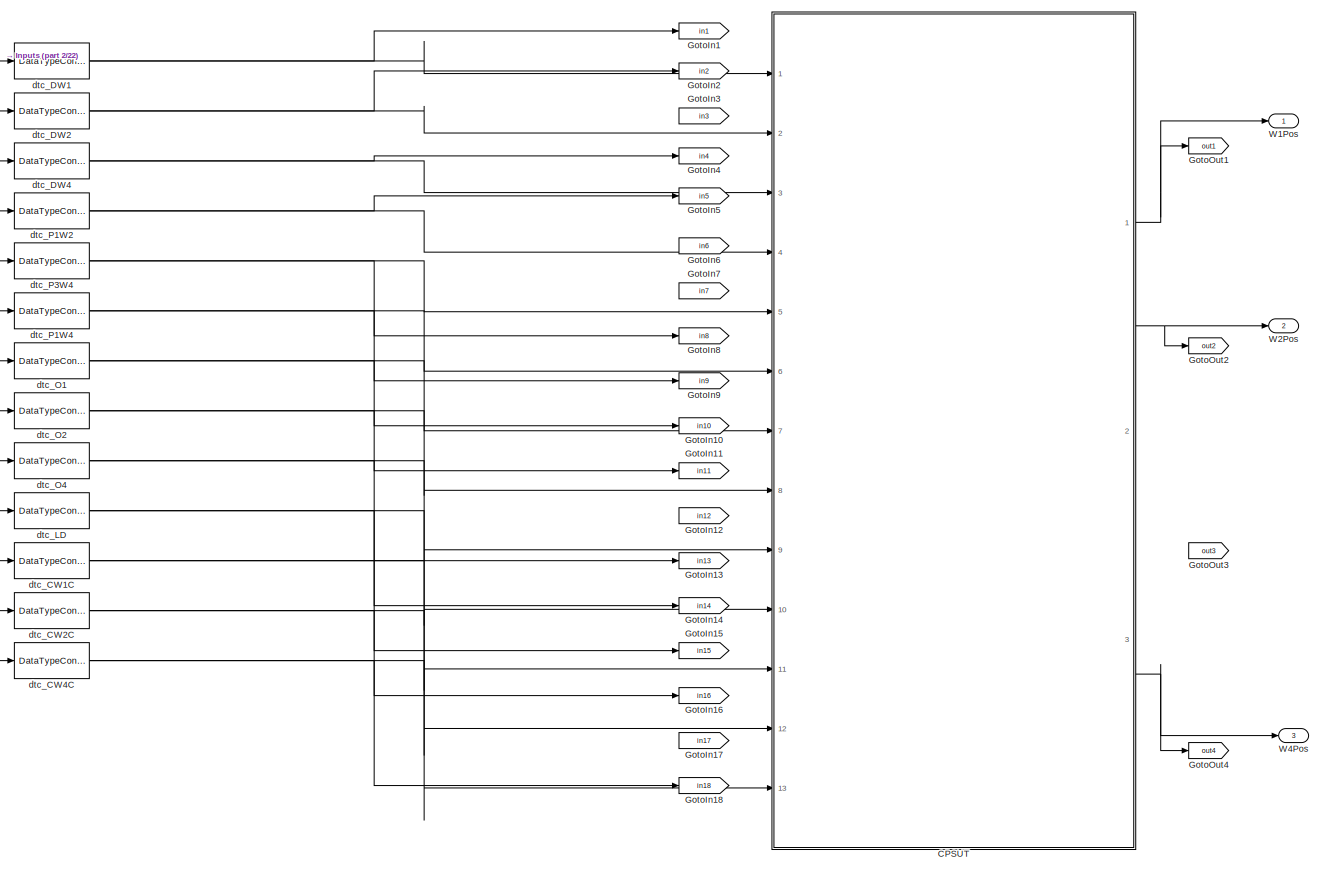
[diagram: root canvas - part 1/22, top left region]
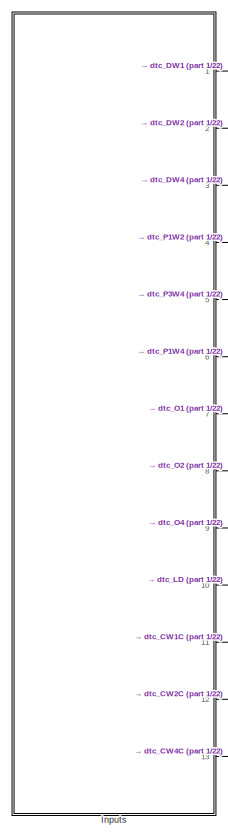
[diagram: root canvas - part 2/22, top left region]
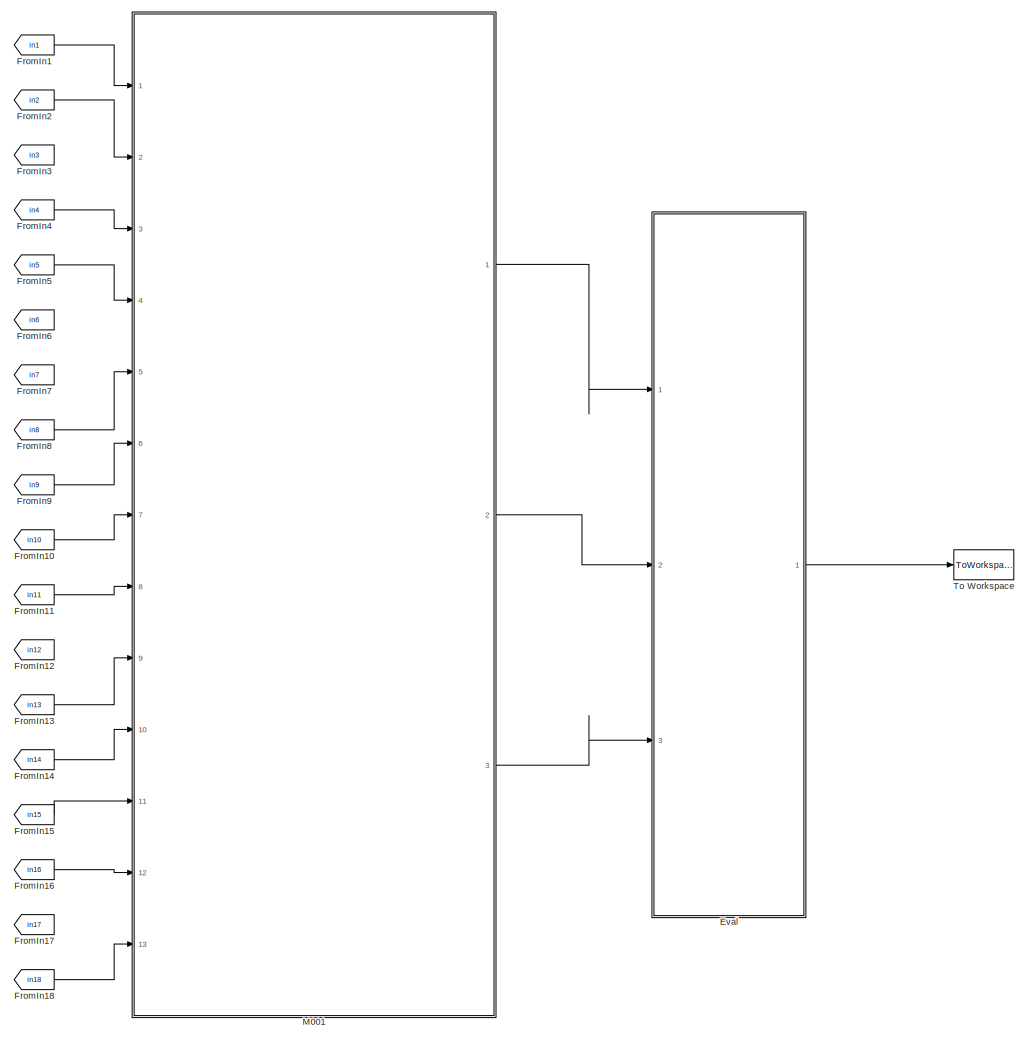
[diagram: root canvas - part 3/22, top center region]
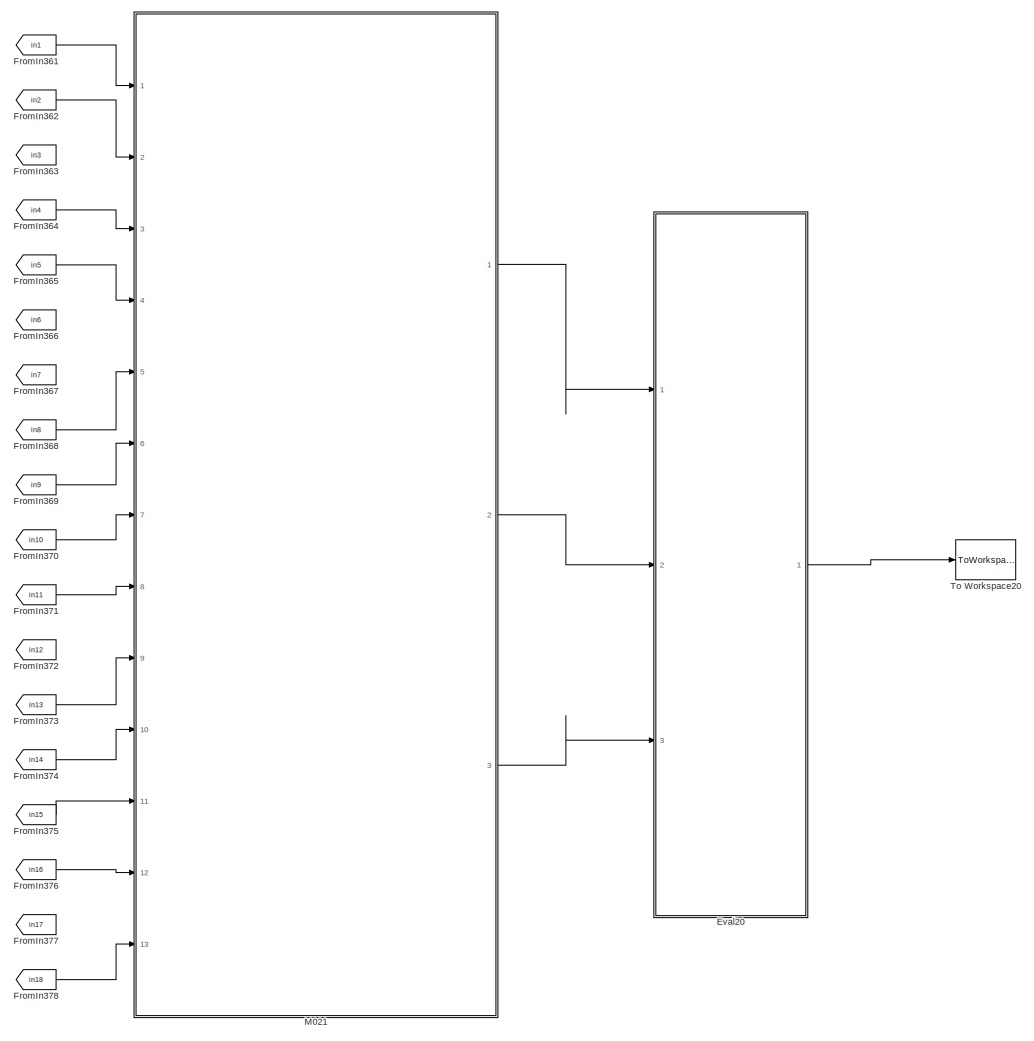
[diagram: root canvas - part 4/22, top center region]
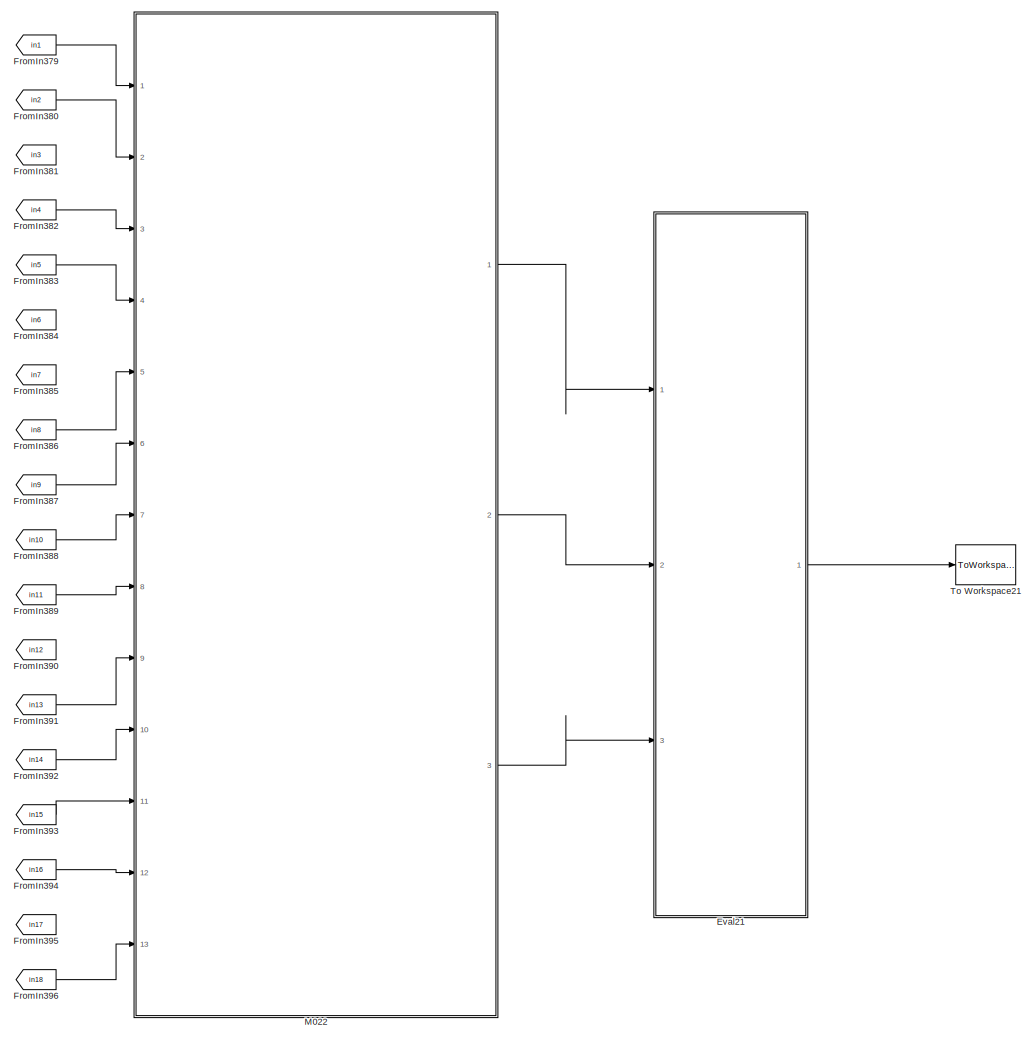
[diagram: root canvas - part 5/22, top center region]
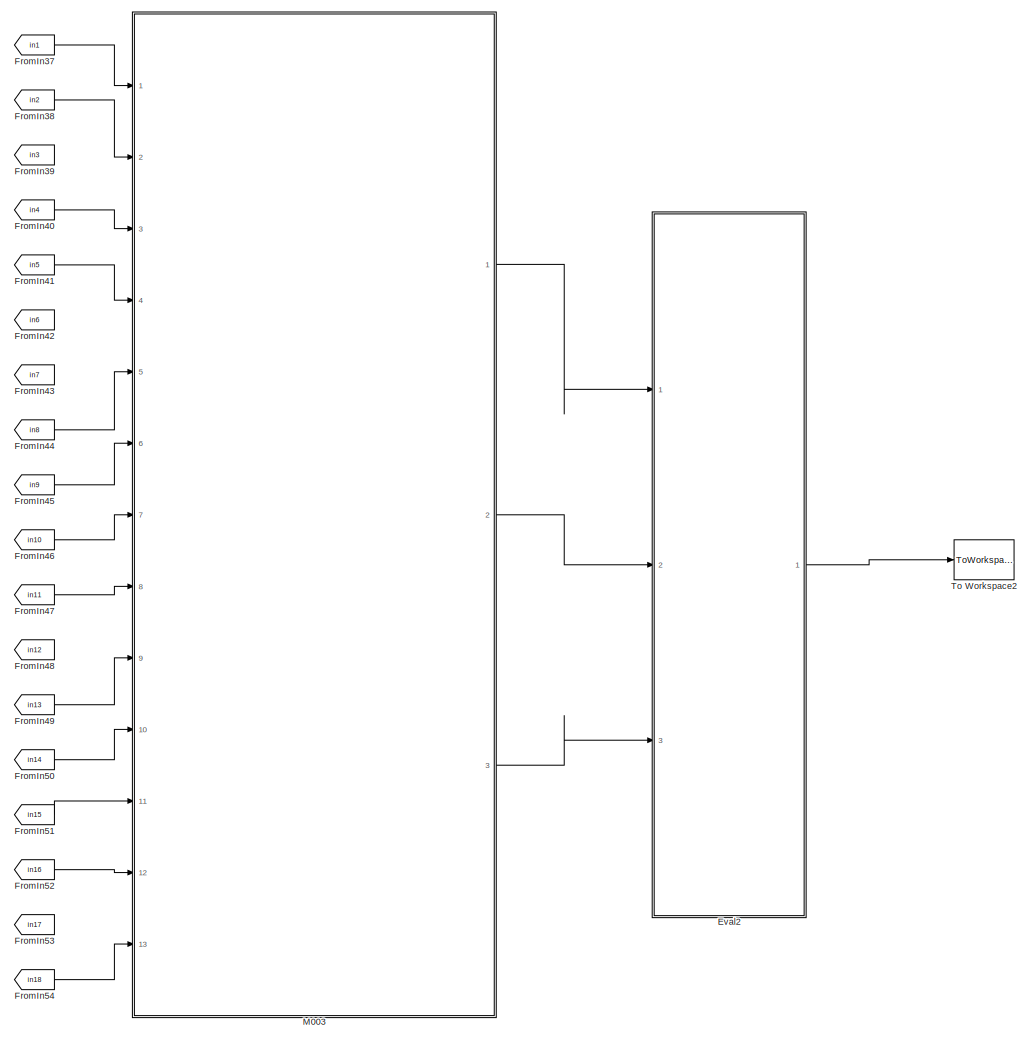
[diagram: root canvas - part 6/22, top center region]
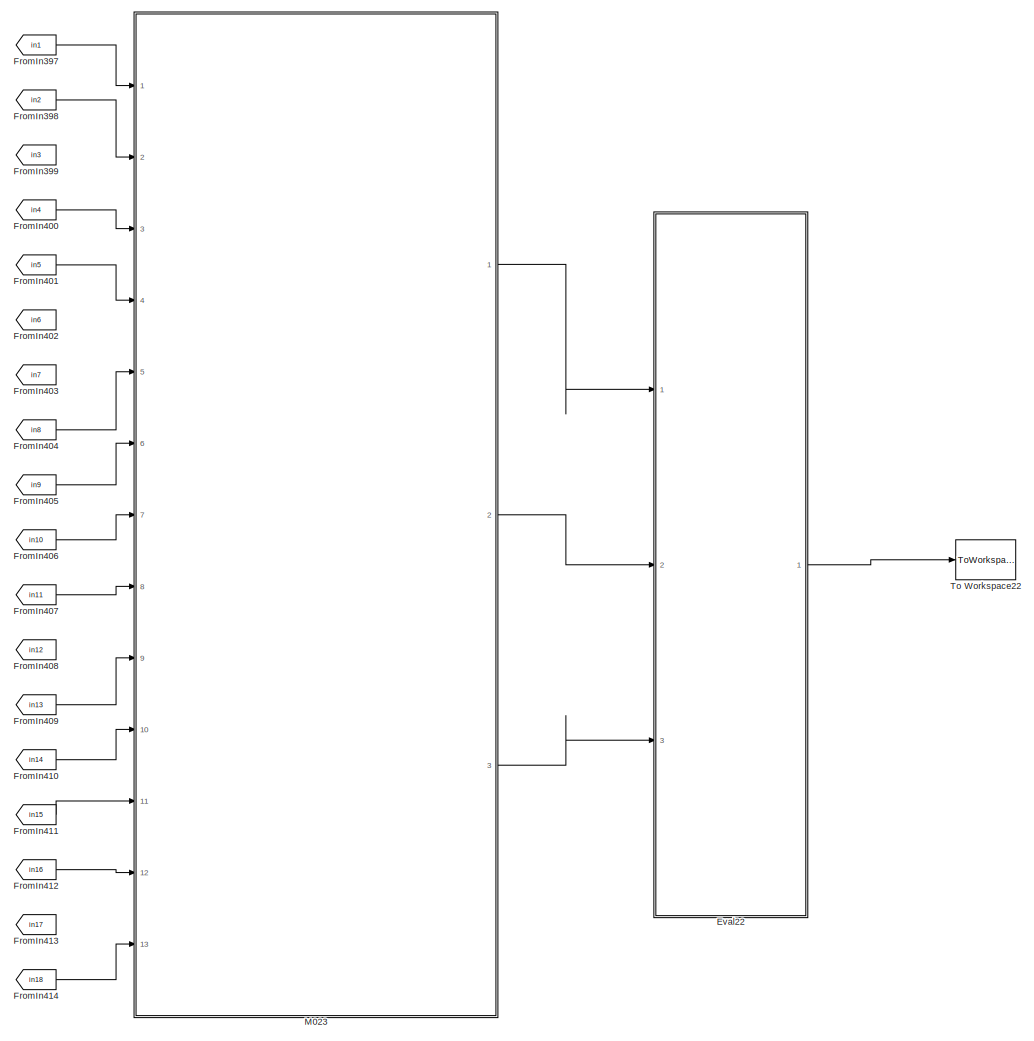
[diagram: root canvas - part 7/22, top center region]
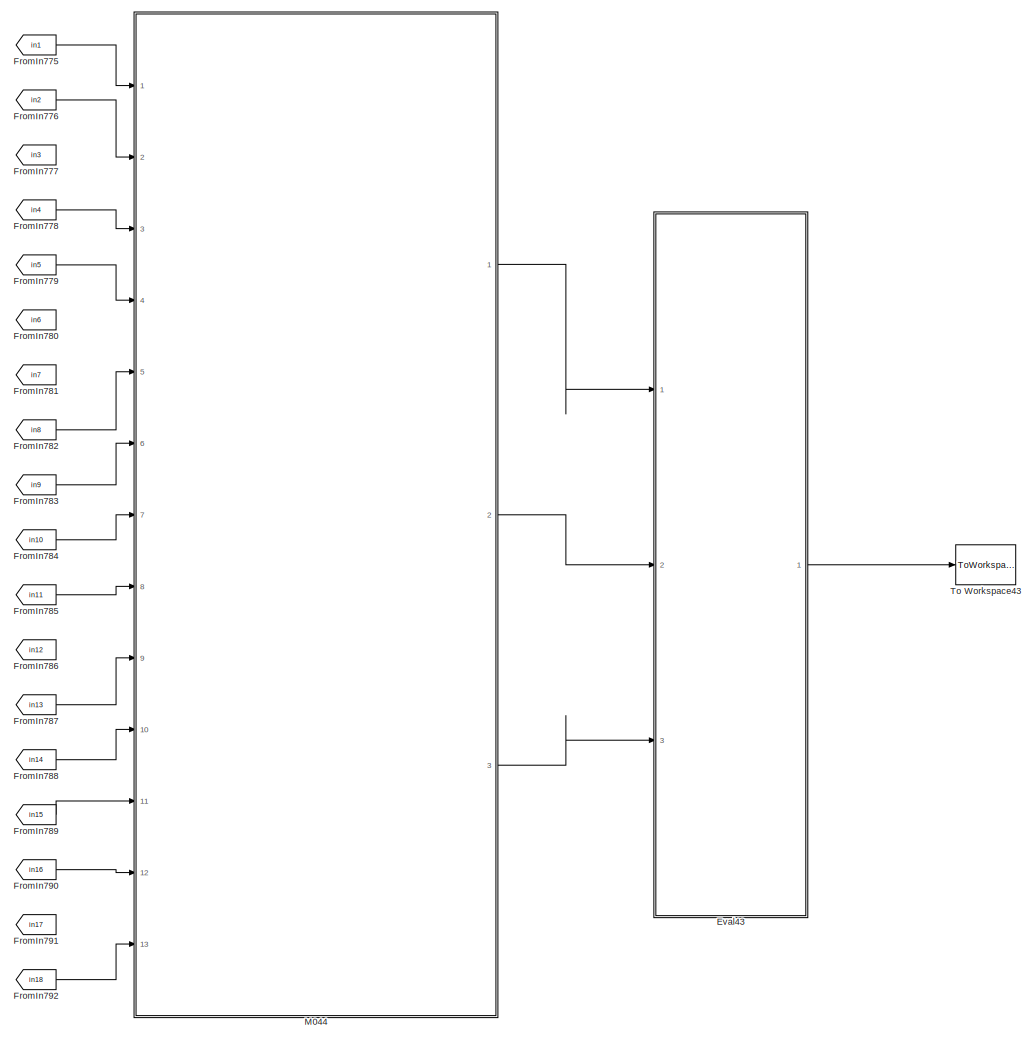
[diagram: root canvas - part 8/22, top right region]
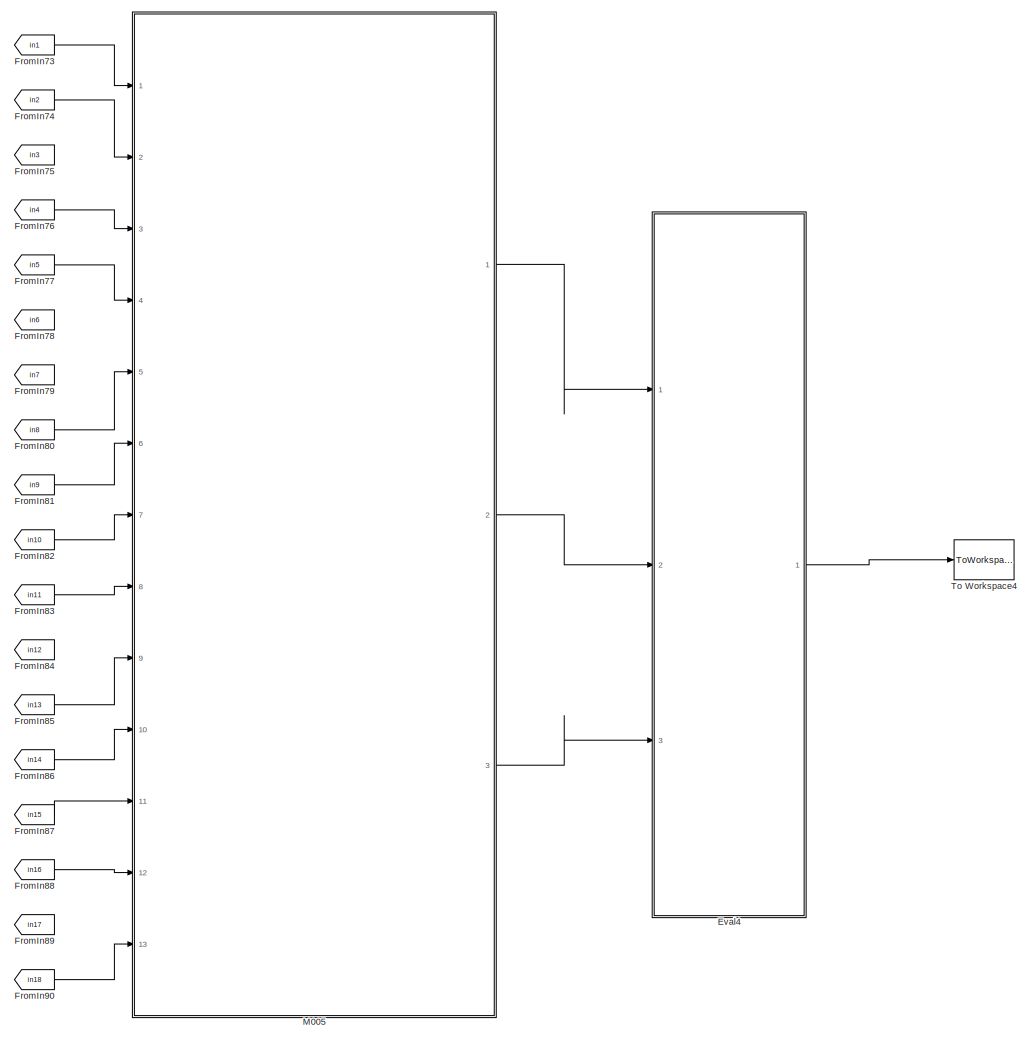
[diagram: root canvas - part 9/22, top center region]
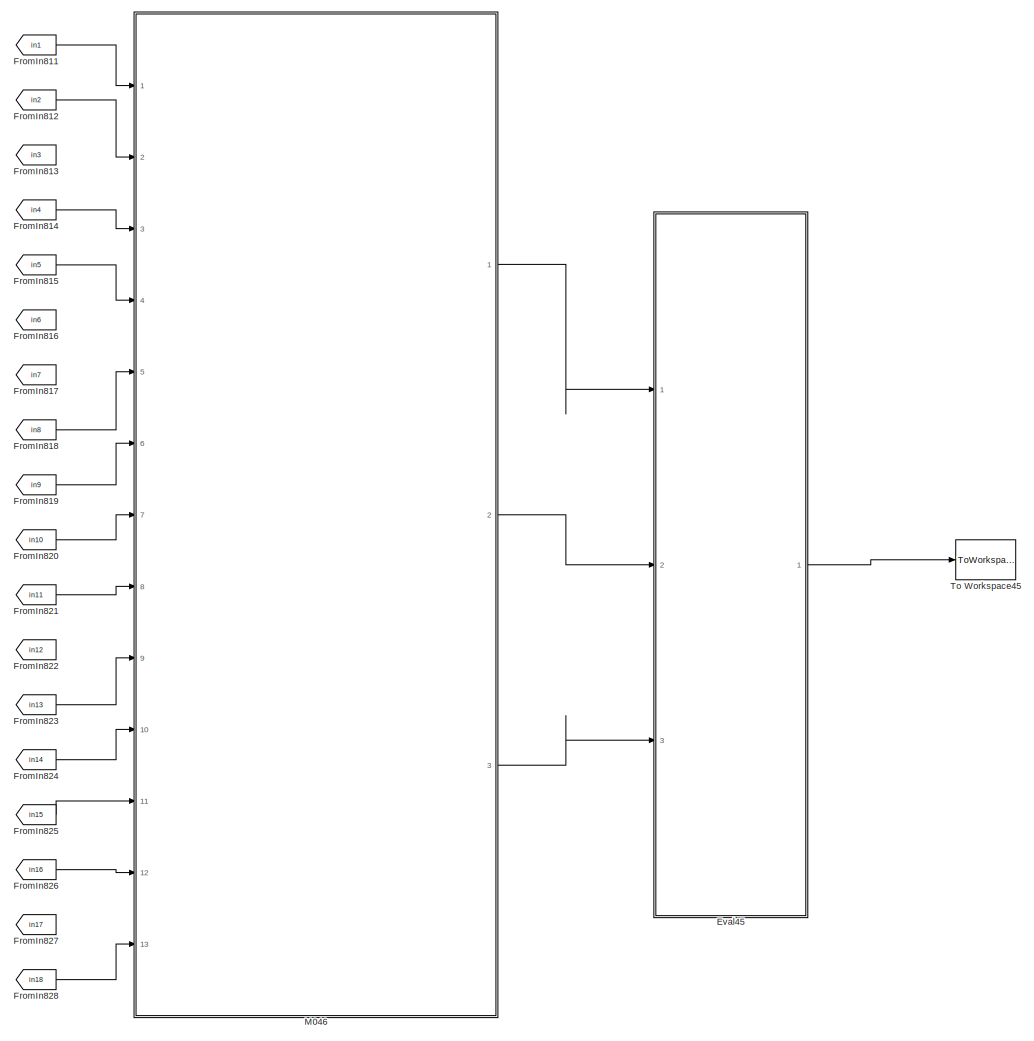
[diagram: root canvas - part 10/22, top right region]
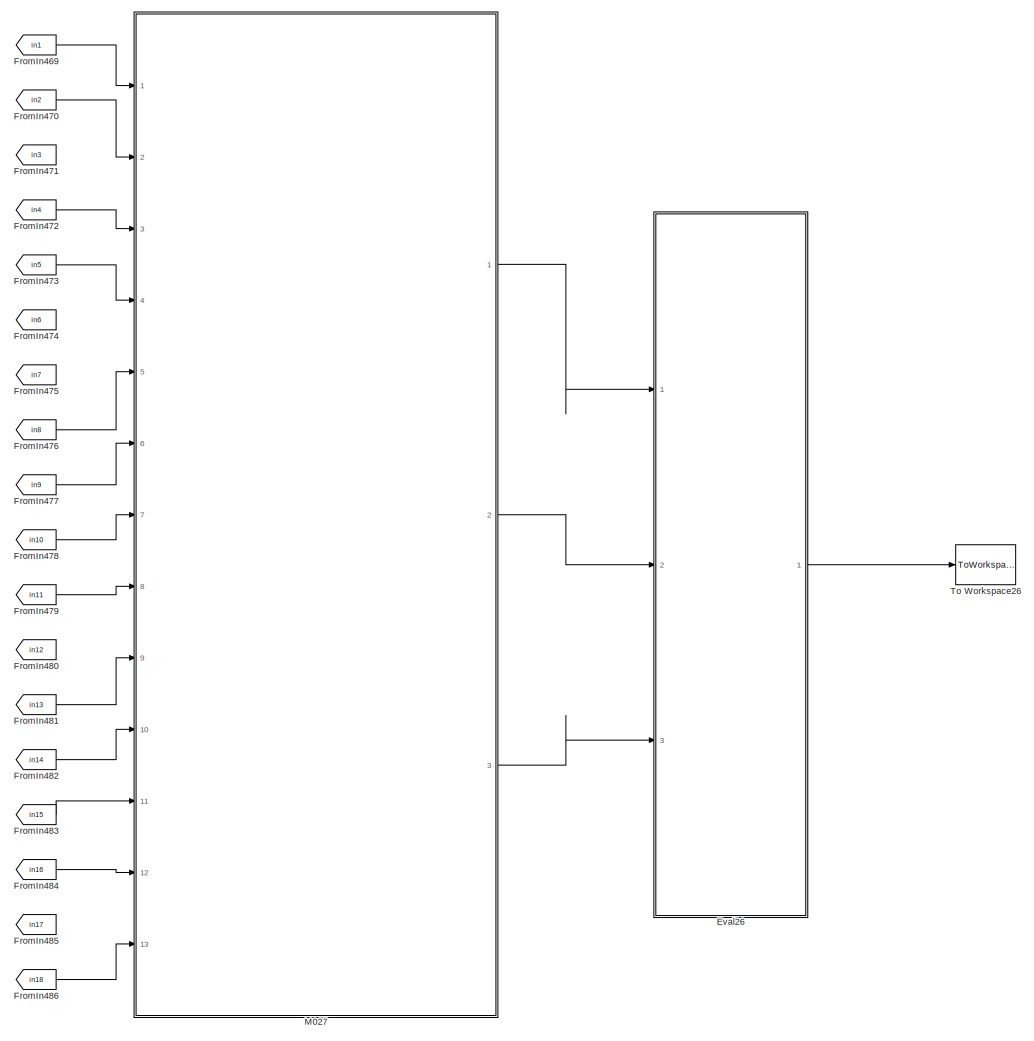
[diagram: root canvas - part 11/22, central region]
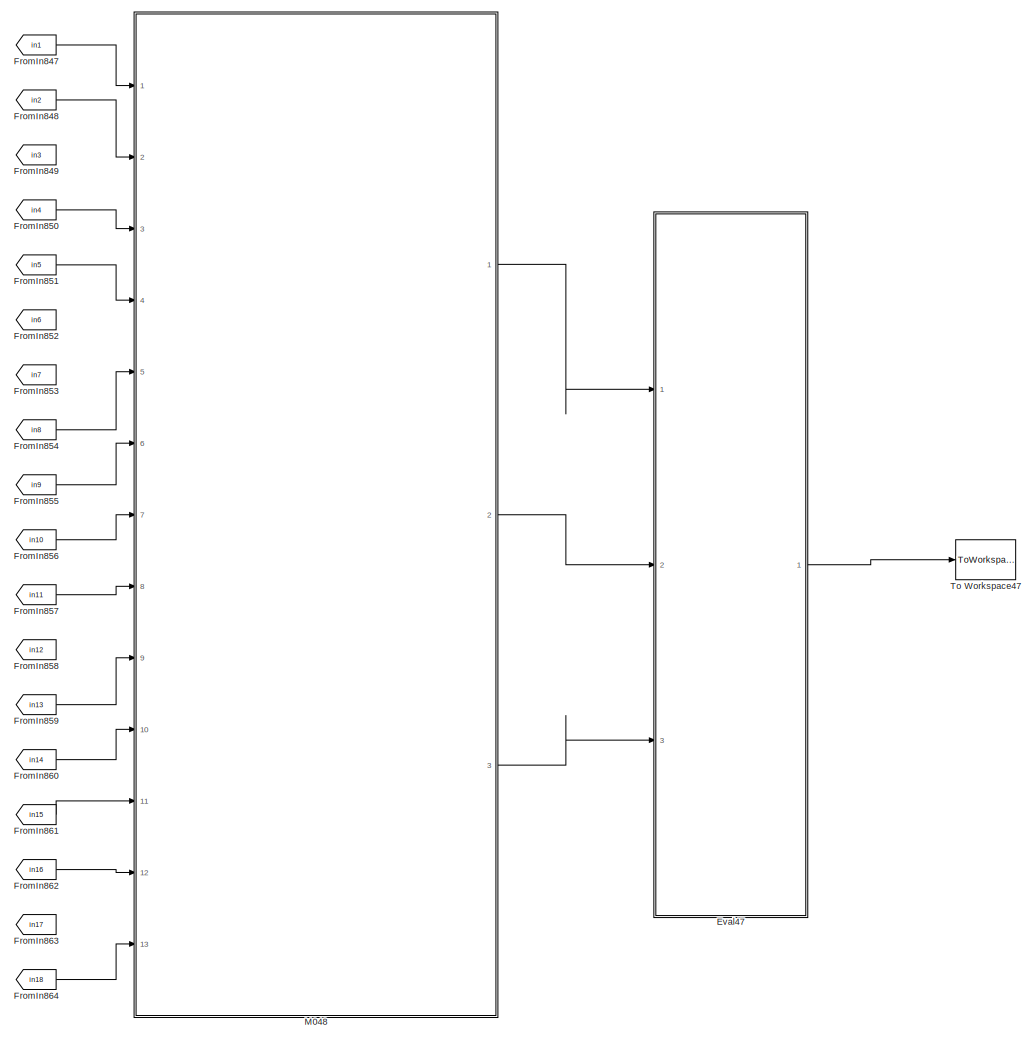
[diagram: root canvas - part 12/22, middle right region]
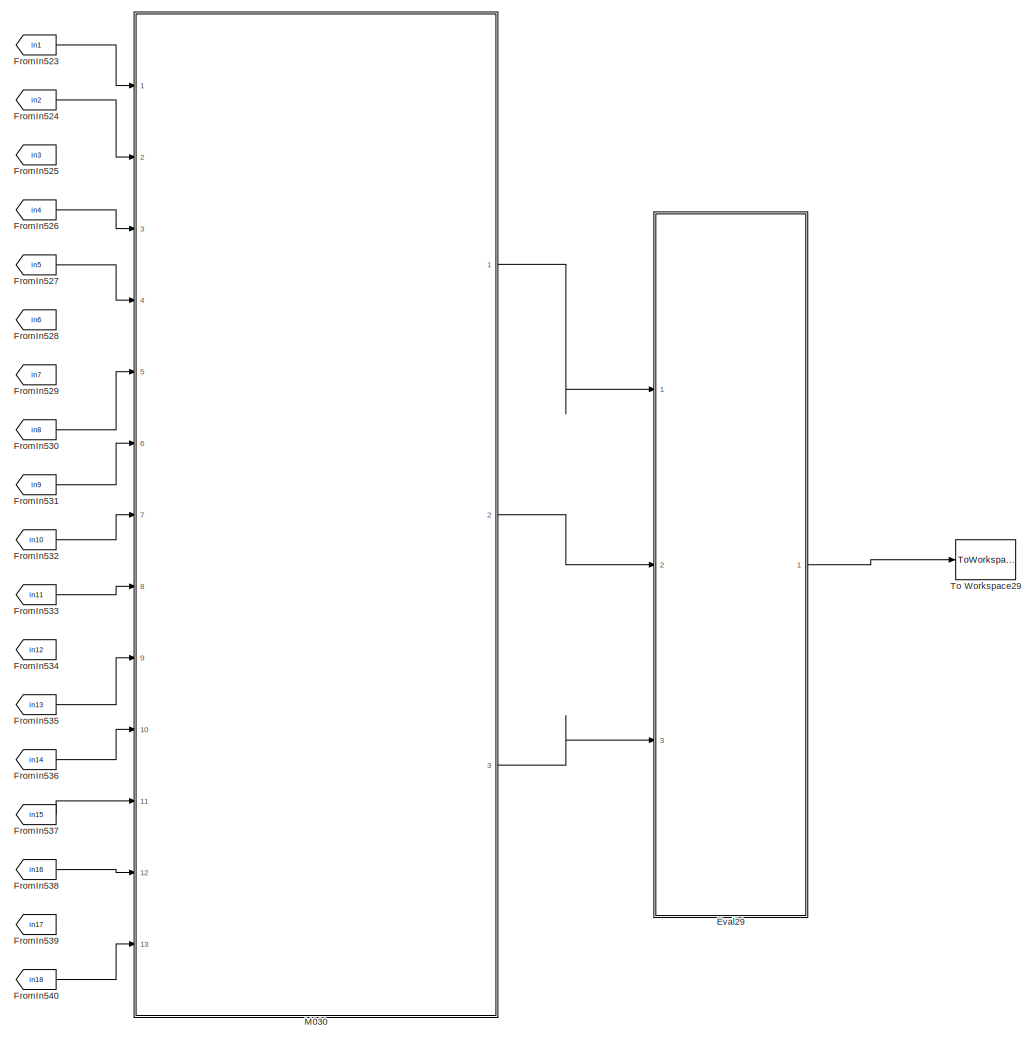
[diagram: root canvas - part 13/22, central region]
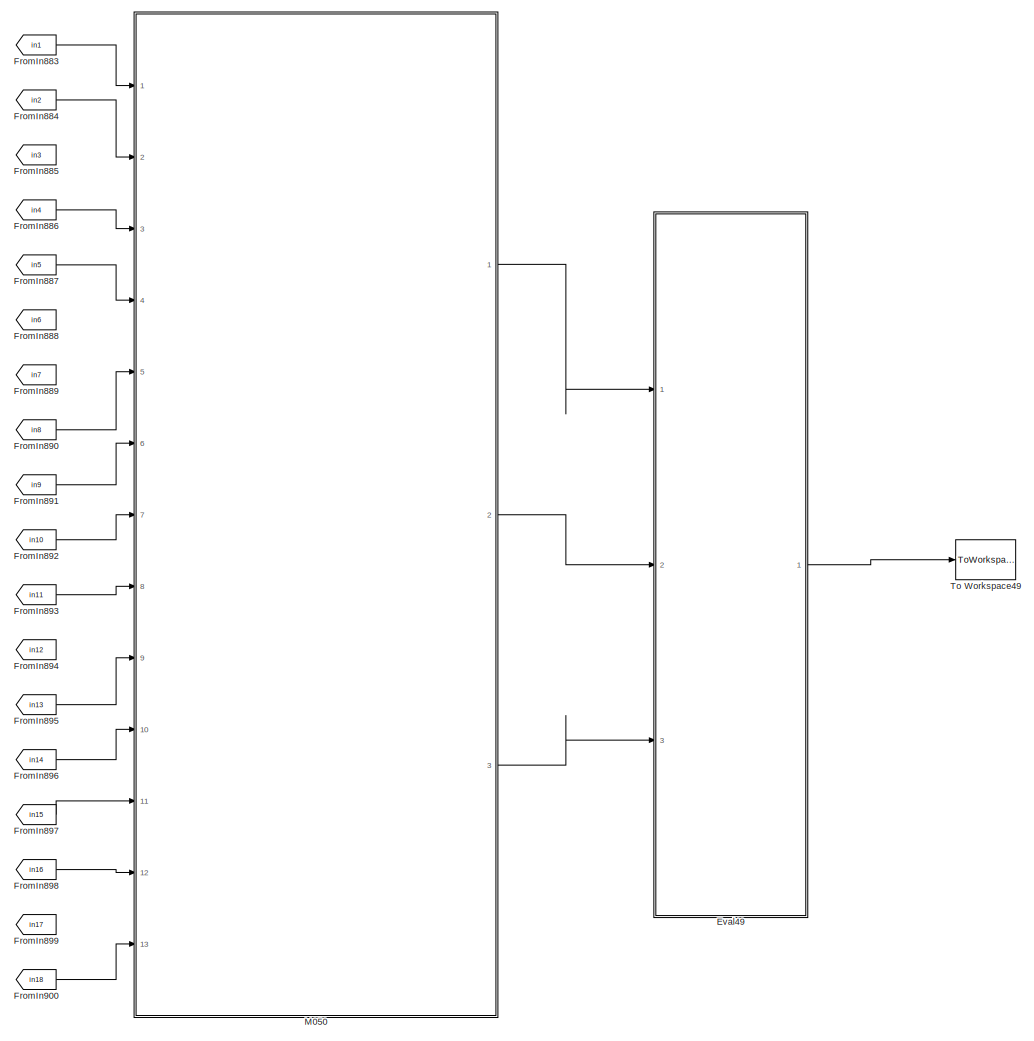
[diagram: root canvas - part 14/22, middle right region]
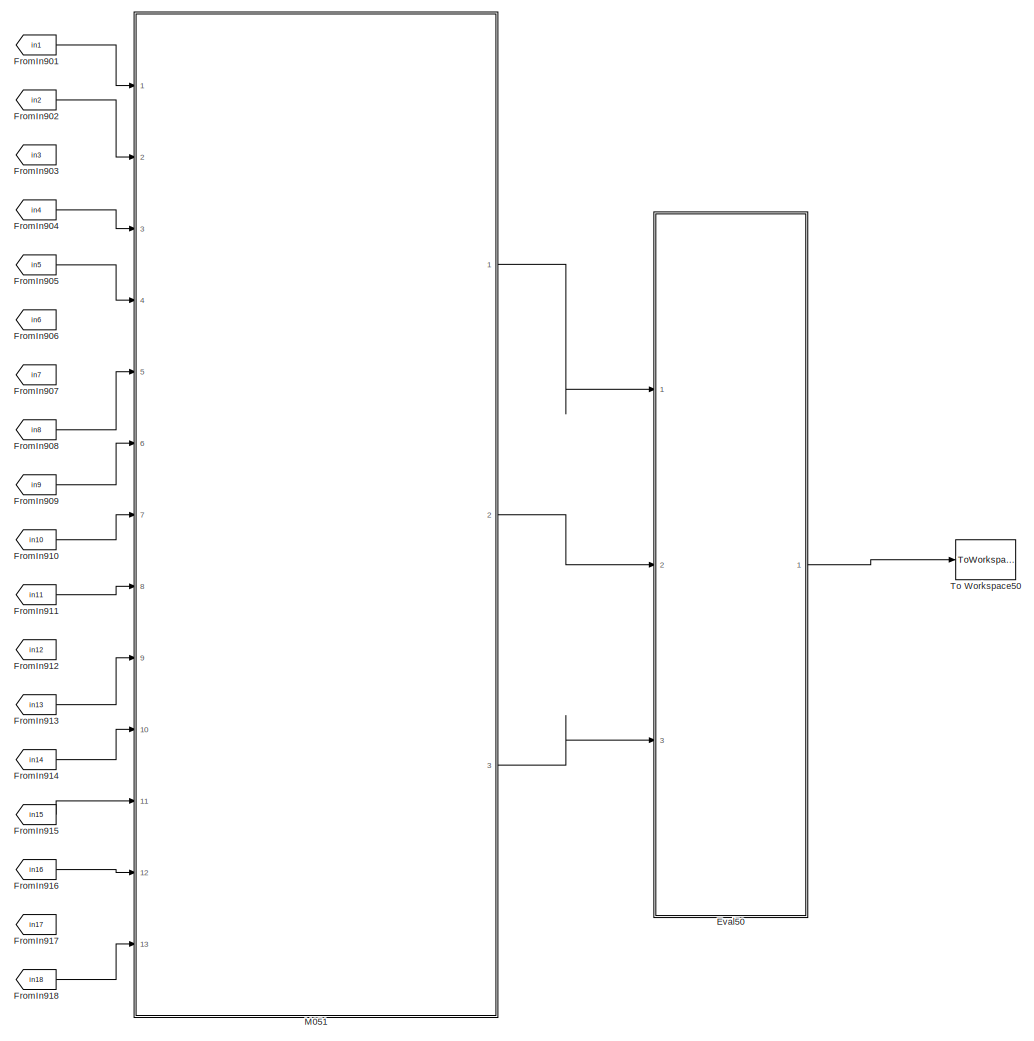
[diagram: root canvas - part 15/22, middle right region]
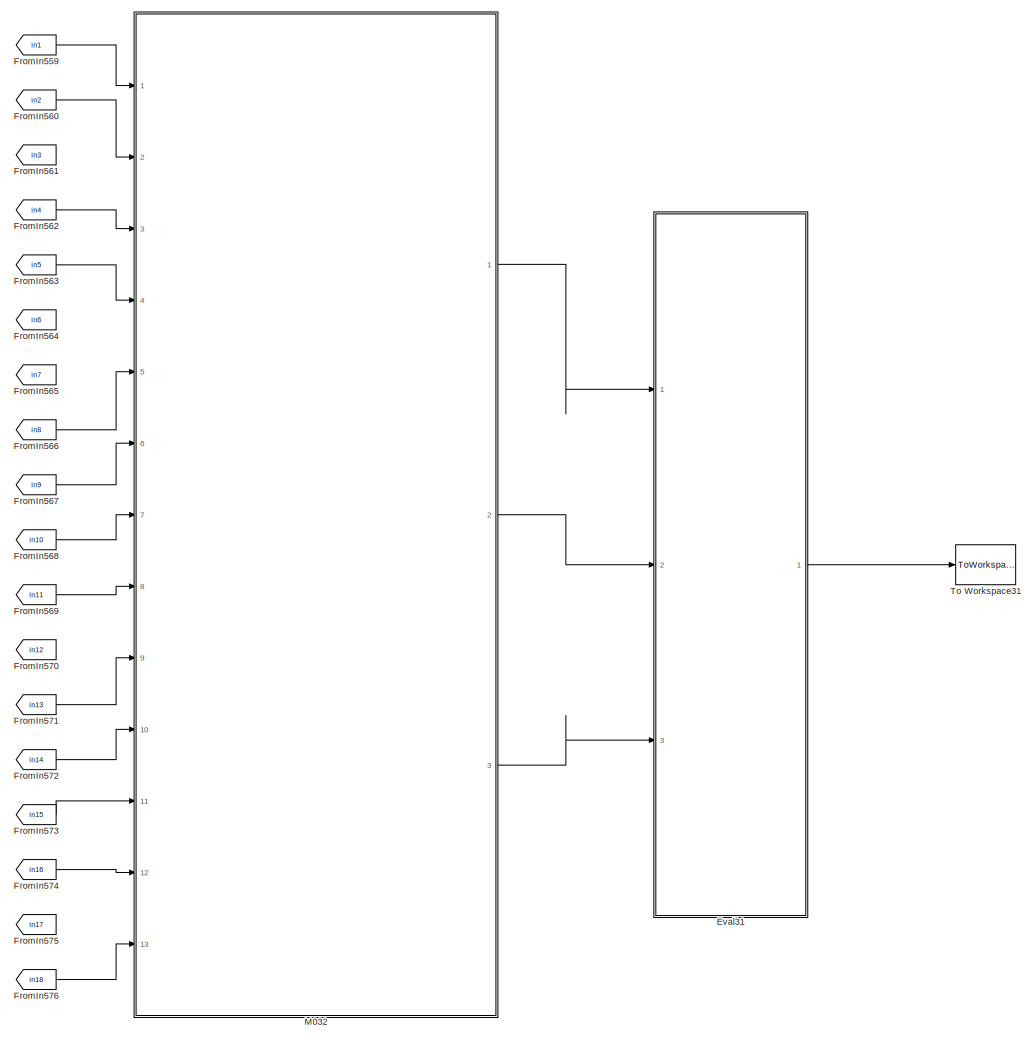
[diagram: root canvas - part 16/22, central region]
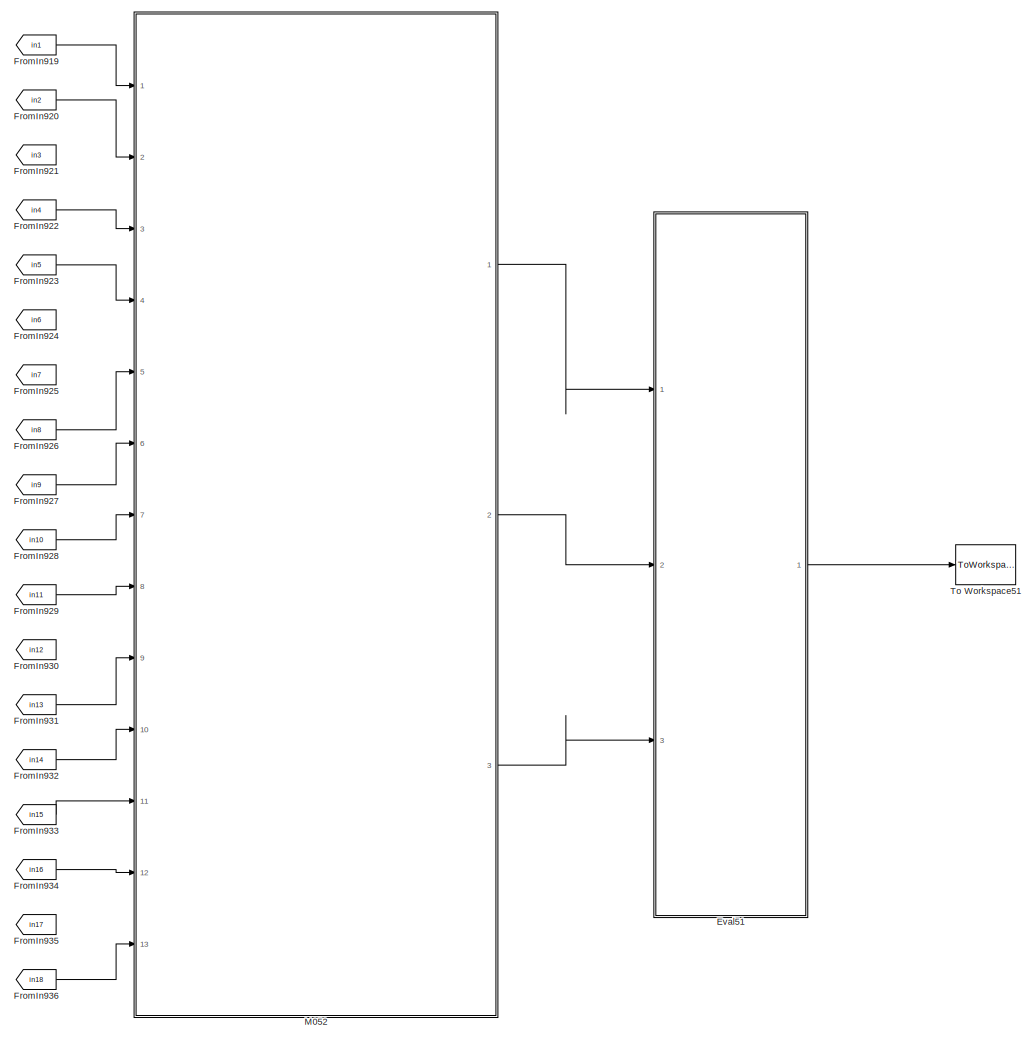
[diagram: root canvas - part 17/22, middle right region]
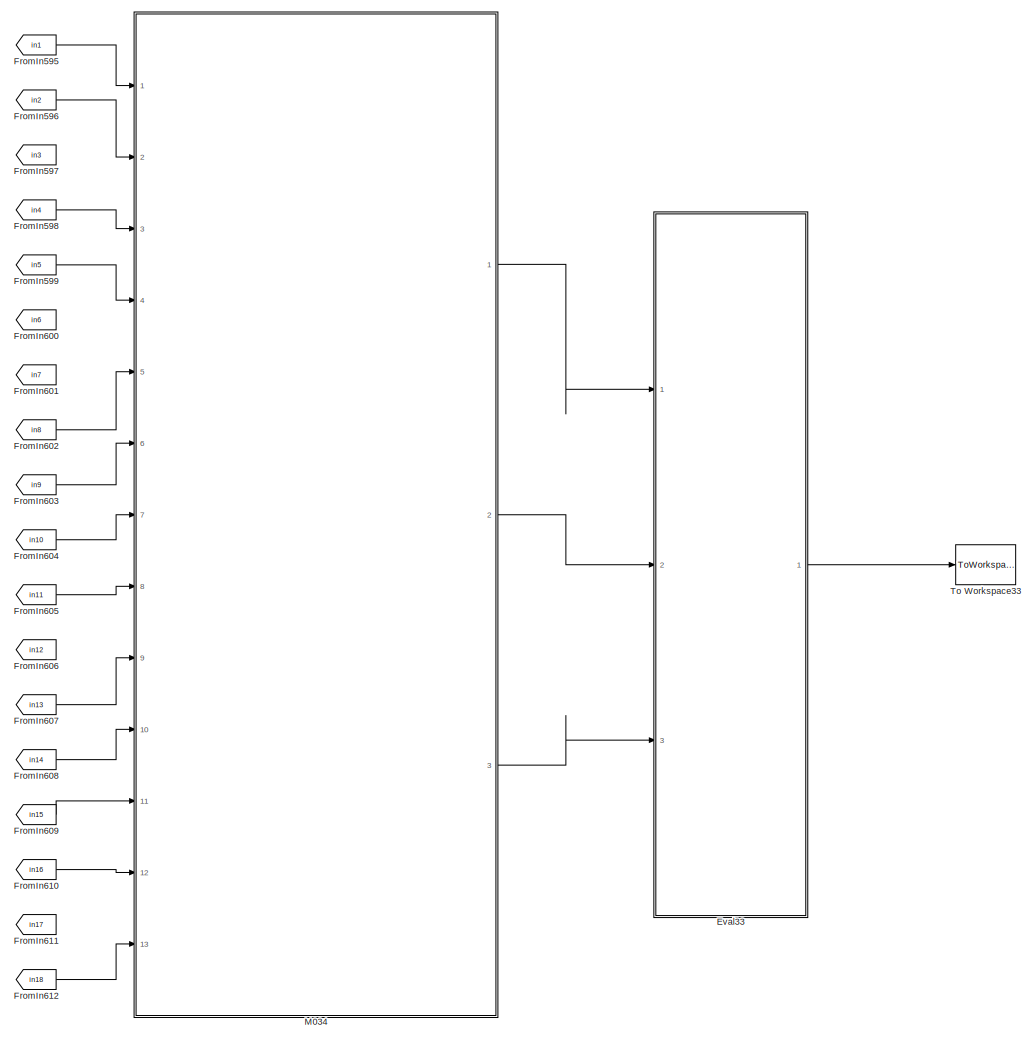
[diagram: root canvas - part 18/22, bottom center region]
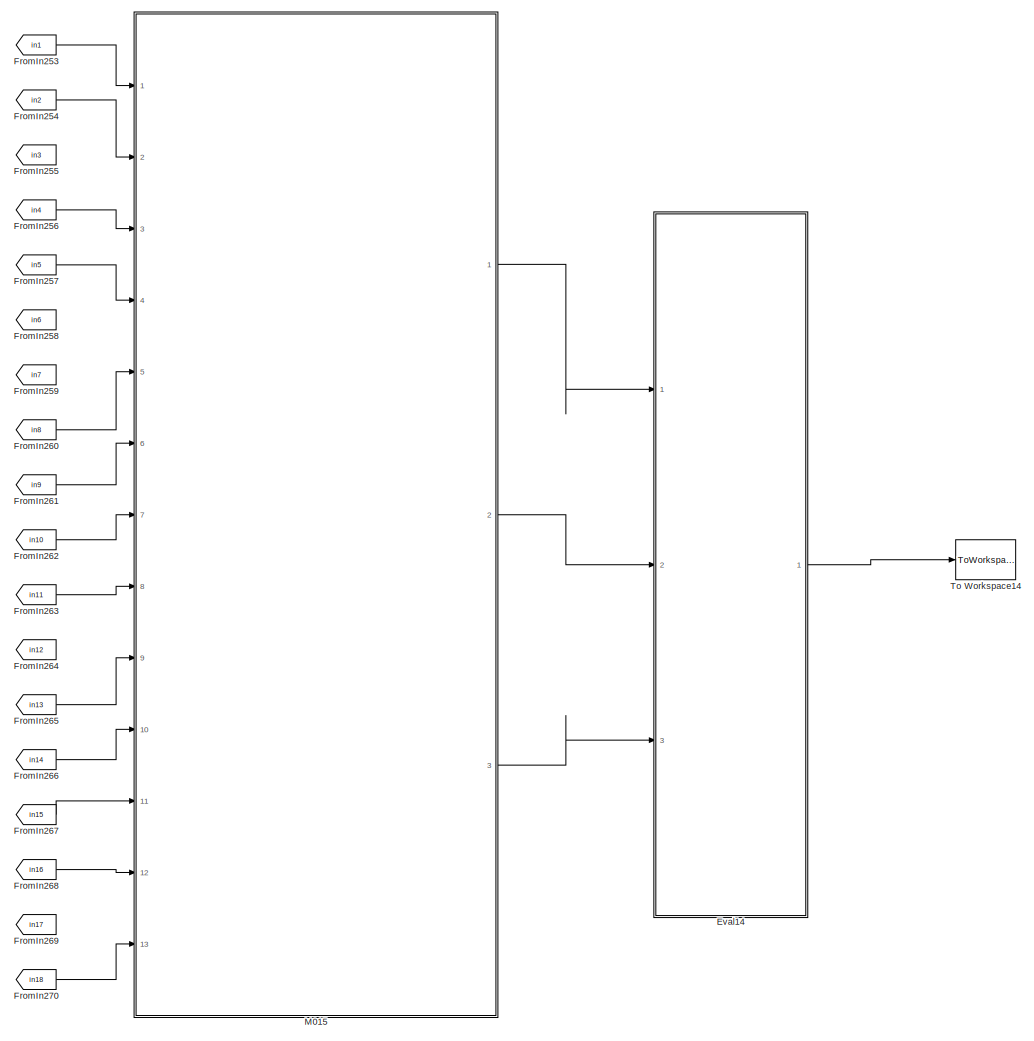
[diagram: root canvas - part 19/22, bottom center region]
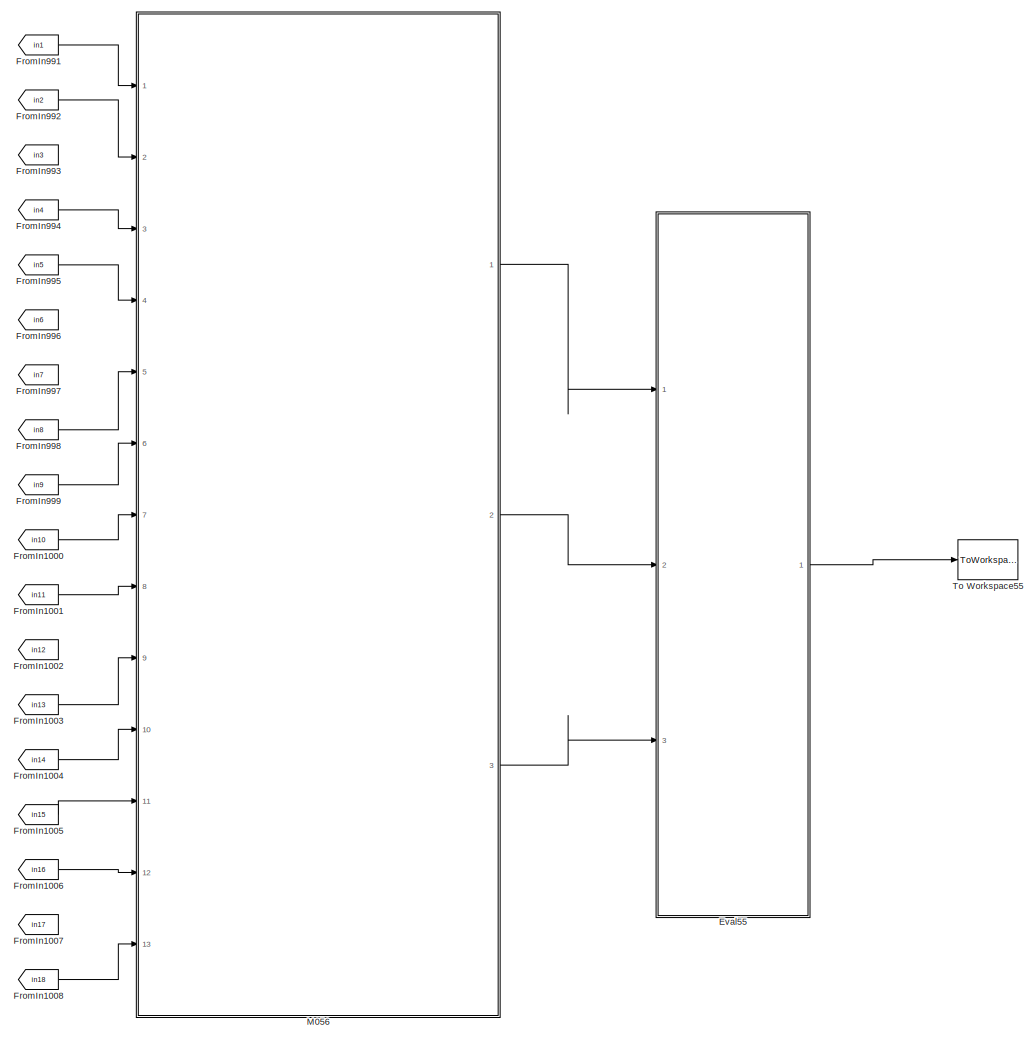
[diagram: root canvas - part 20/22, bottom right region]
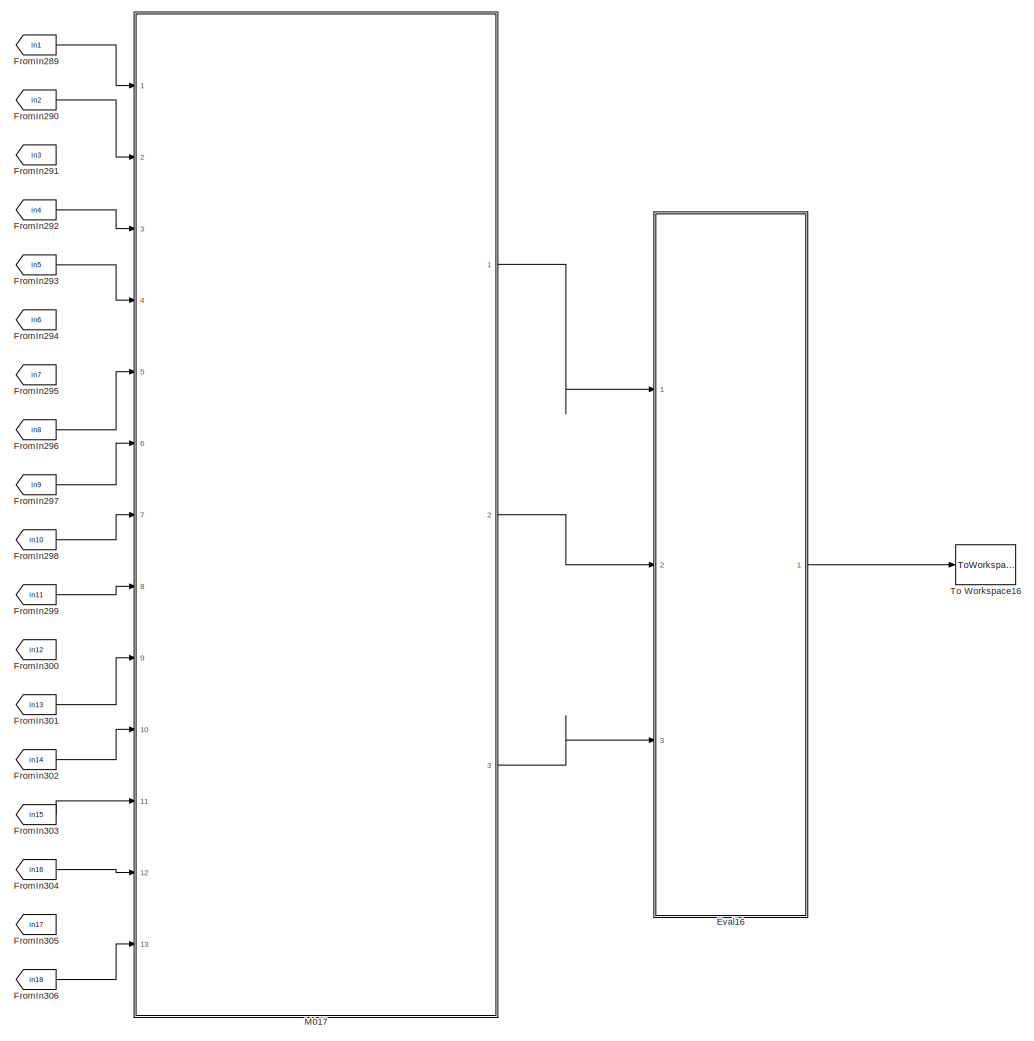
[diagram: root canvas - part 21/22, bottom center region]
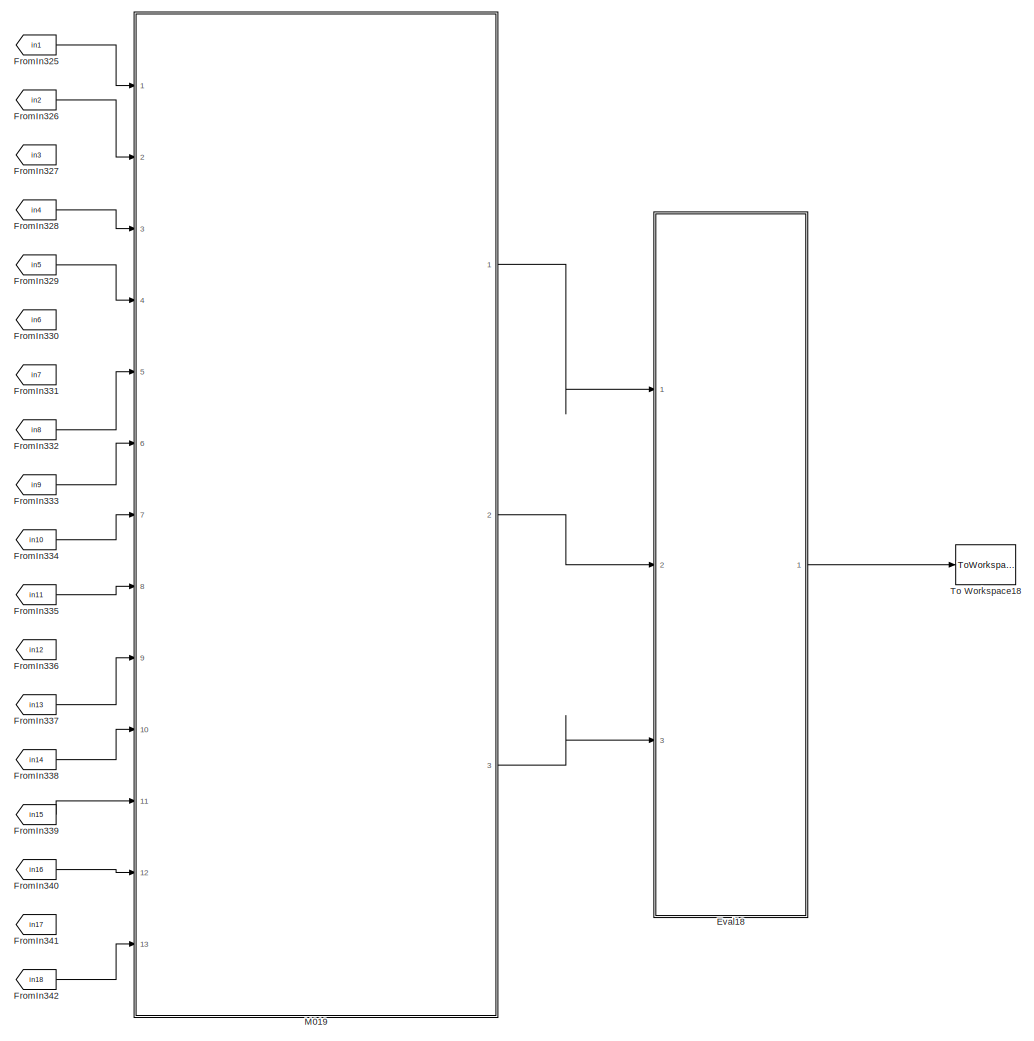
[diagram: root canvas - part 22/22, bottom center region]
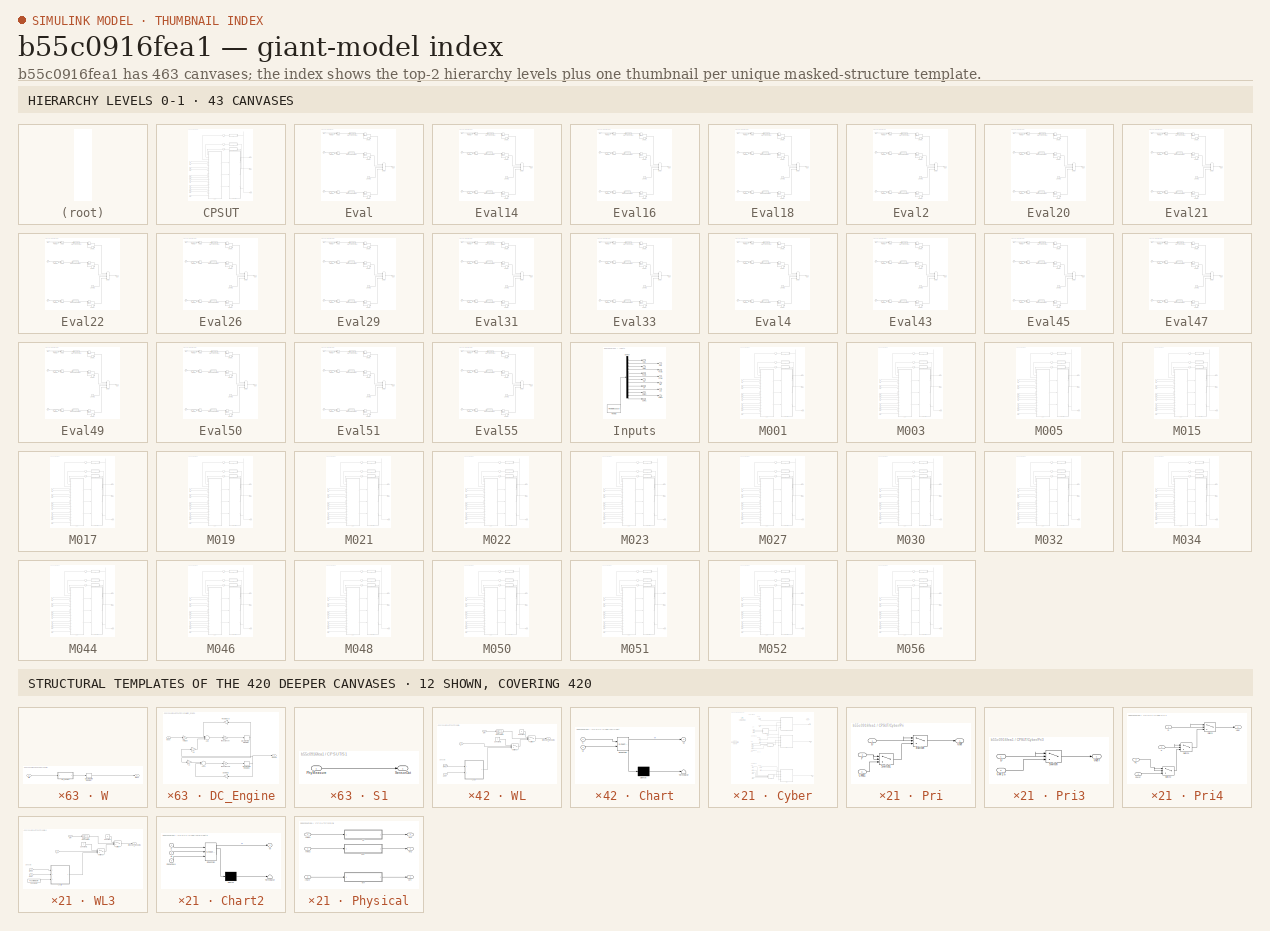
[diagram: thumbnail index - top-2 hierarchy levels (43 canvases) + 12 structural-template representatives of the remaining 420 canvases]
MODEL slx_b55c0916fea1
KIND model
CONFIG AbsTol = auto
CONFIG EnableMultiTasking = on
CONFIG FixedStep = auto
CONFIG MaxStep = auto
CONFIG MinStep = auto
CONFIG RelTol = 1e-3
CONFIG SampleTimeConstraint = Unconstrained
CONFIG Solver = ode3
CONFIG SolverName = ode3
CONFIG StartTime = 0.0
CONFIG StopTime = 10.0
BLOCK [SubSystem] CPSUT
  Ports = [13, 3]
  RequestExecContextInheritance = off
BLOCK [Inport] CPSUT/CW1C
  IconDisplay = Port number
  OutDataTypeStr = int8
  OutMax = 4
  OutMin = 0
  Port = 11
BLOCK [Inport] CPSUT/CW2C
  IconDisplay = Port number
  OutDataTypeStr = int8
  OutMax = 4
  OutMin = 0
  Port = 12
BLOCK [Inport] CPSUT/CW4C
  IconDisplay = Port number
  OutDataTypeStr = int8
  OutMax = 4
  OutMin = 0
  Port = 13
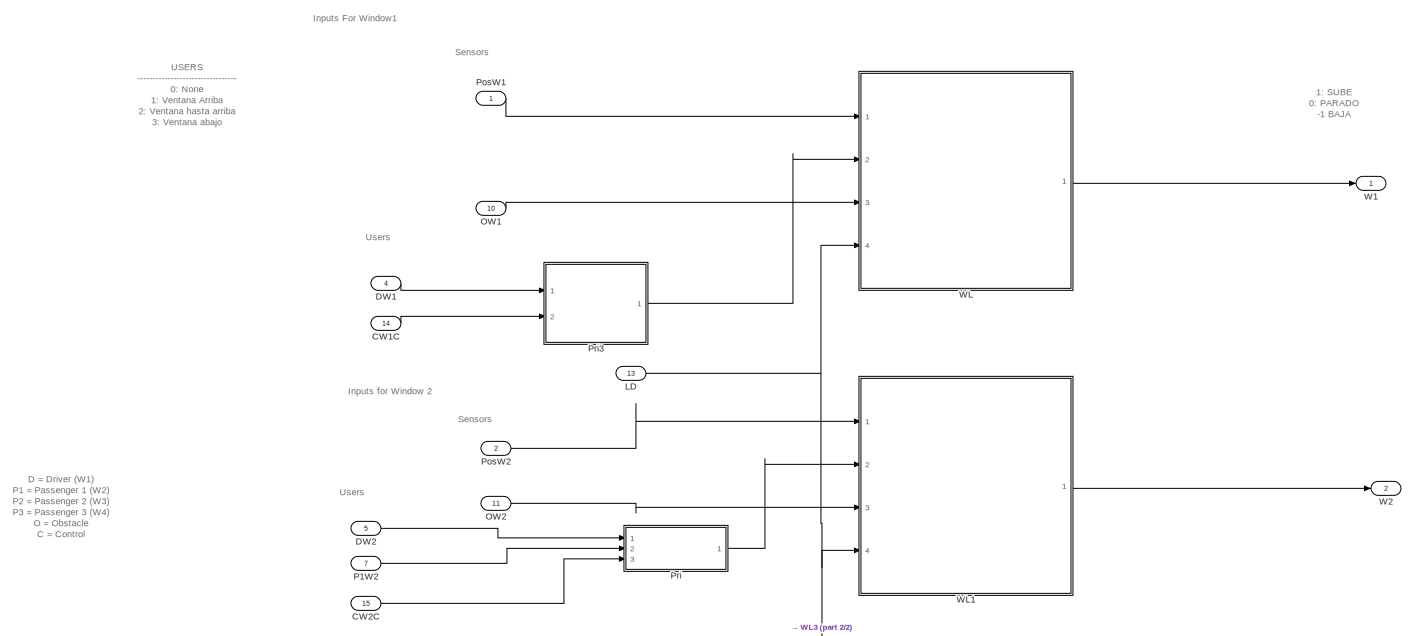
[diagram: CPSUT/Cyber - part 1/2, full width, top band]
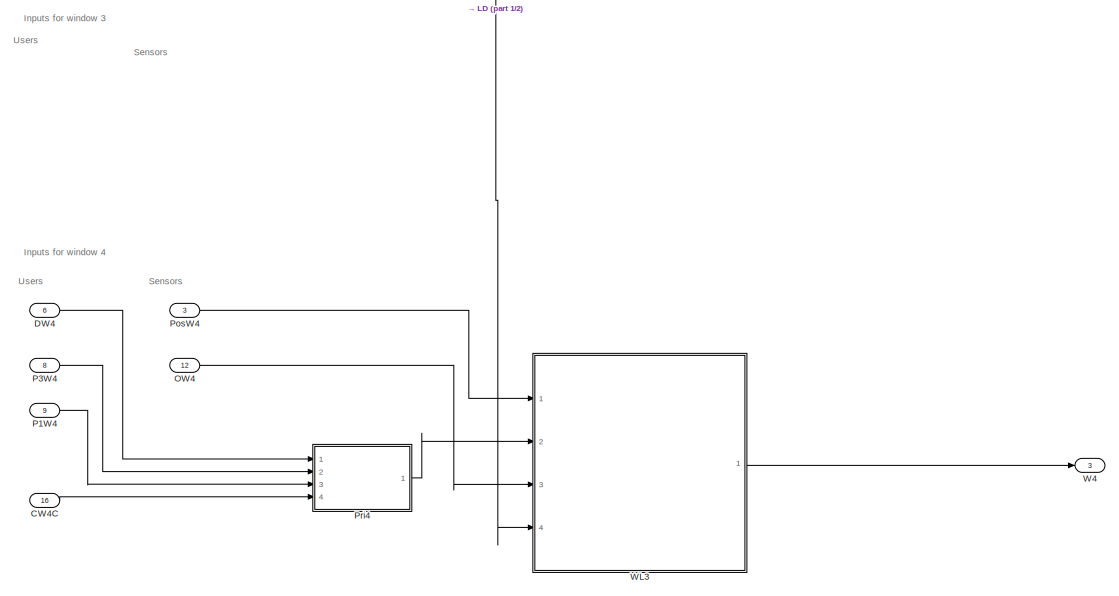
[diagram: CPSUT/Cyber - part 2/2, full width, bottom band]
BLOCK [SubSystem] CPSUT/Cyber
  Ports = [16, 3]
  RequestExecContextInheritance = off
BLOCK [Inport] CPSUT/Cyber/CW1C
  IconDisplay = Port number
  Port = 14
BLOCK [Inport] CPSUT/Cyber/CW2C
  IconDisplay = Port number
  Port = 15
BLOCK [Inport] CPSUT/Cyber/CW4C
  IconDisplay = Port number
  Port = 16
BLOCK [Inport] CPSUT/Cyber/DW1
  IconDisplay = Port number
  Port = 4
BLOCK [Inport] CPSUT/Cyber/DW2
  IconDisplay = Port number
  Port = 5
BLOCK [Inport] CPSUT/Cyber/DW4
  IconDisplay = Port number
  Port = 6
BLOCK [Inport] CPSUT/Cyber/LD
  IconDisplay = Port number
  Port = 13
BLOCK [Inport] CPSUT/Cyber/OW1
  IconDisplay = Port number
  Port = 10
BLOCK [Inport] CPSUT/Cyber/OW2
  IconDisplay = Port number
  Port = 11
BLOCK [Inport] CPSUT/Cyber/OW4
  IconDisplay = Port number
  Port = 12
BLOCK [Inport] CPSUT/Cyber/P1W2
  IconDisplay = Port number
  Port = 7
BLOCK [Inport] CPSUT/Cyber/P1W4
  IconDisplay = Port number
  Port = 9
BLOCK [Inport] CPSUT/Cyber/P3W4
  IconDisplay = Port number
  Port = 8
BLOCK [Inport] CPSUT/Cyber/PosW1
  IconDisplay = Port number
BLOCK [Inport] CPSUT/Cyber/PosW2
  IconDisplay = Port number
  Port = 2
BLOCK [Inport] CPSUT/Cyber/PosW4
  IconDisplay = Port number
  Port = 3
BLOCK [SubSystem] CPSUT/Cyber/Pri
  Ports = [3, 1]
  RequestExecContextInheritance = off
BLOCK [Inport] CPSUT/Cyber/Pri/CW2C
  IconDisplay = Port number
  Port = 3
BLOCK [Inport] CPSUT/Cyber/Pri/D
  IconDisplay = Port number
BLOCK [Inport] CPSUT/Cyber/Pri/P
  IconDisplay = Port number
  Port = 2
BLOCK [Switch] CPSUT/Cyber/Pri/Switch
  Criteria = u2 ~= 0
  InputSameDT = off
  SaturateOnIntegerOverflow = off
BLOCK [Switch] CPSUT/Cyber/Pri/Switch1
  Criteria = u2 ~= 0
  InputSameDT = off
  SaturateOnIntegerOverflow = off
BLOCK [Outport] CPSUT/Cyber/Pri/User
  IconDisplay = Port number
BLOCK [SubSystem] CPSUT/Cyber/Pri3
  Ports = [2, 1]
  RequestExecContextInheritance = off
BLOCK [Inport] CPSUT/Cyber/Pri3/CW1C
  IconDisplay = Port number
  Port = 2
BLOCK [Inport] CPSUT/Cyber/Pri3/D
  IconDisplay = Port number
BLOCK [Switch] CPSUT/Cyber/Pri3/Switch
  Criteria = u2 ~= 0
  InputSameDT = off
  SaturateOnIntegerOverflow = off
BLOCK [Outport] CPSUT/Cyber/Pri3/User
  IconDisplay = Port number
BLOCK [SubSystem] CPSUT/Cyber/Pri4
  Ports = [4, 1]
  RequestExecContextInheritance = off
BLOCK [Inport] CPSUT/Cyber/Pri4/CW4C
  IconDisplay = Port number
  Port = 4
BLOCK [Inport] CPSUT/Cyber/Pri4/D
  IconDisplay = Port number
BLOCK [Inport] CPSUT/Cyber/Pri4/P
  IconDisplay = Port number
  Port = 2
BLOCK [Inport] CPSUT/Cyber/Pri4/P1
  IconDisplay = Port number
  Port = 3
BLOCK [Switch] CPSUT/Cyber/Pri4/Switch
  Criteria = u2 ~= 0
  InputSameDT = off
  SaturateOnIntegerOverflow = off
BLOCK [Switch] CPSUT/Cyber/Pri4/Switch1
  Criteria = u2 ~= 0
  InputSameDT = off
  SaturateOnIntegerOverflow = off
BLOCK [Switch] CPSUT/Cyber/Pri4/Switch2
  Criteria = u2 ~= 0
  InputSameDT = off
  SaturateOnIntegerOverflow = off
BLOCK [Outport] CPSUT/Cyber/Pri4/User
  IconDisplay = Port number
BLOCK [Outport] CPSUT/Cyber/W1
  IconDisplay = Port number
BLOCK [Outport] CPSUT/Cyber/W2
  IconDisplay = Port number
  Port = 2
BLOCK [Outport] CPSUT/Cyber/W4
  IconDisplay = Port number
  Port = 3
BLOCK [SubSystem] CPSUT/Cyber/WL
  Ports = [4, 1]
  RequestExecContextInheritance = off
BLOCK [SubSystem] CPSUT/Cyber/WL/Chart
  ErrorFcn = Stateflow.Translate.translate
  PermitHierarchicalResolution = ExplicitOnly
  Ports = [2, 1]
  RequestExecContextInheritance = off
  SFBlockType = Chart
  TreatAsAtomicUnit = on
BLOCK [Demux] CPSUT/Cyber/WL/Chart/ Demux 
  Outputs = 1
  Ports = [1, 1]
BLOCK [S-Function] CPSUT/Cyber/WL/Chart/ SFunction 
  EnableBusSupport = off
  FunctionName = sf_sfun
  PortCounts = [2 2]
  Ports = [2, 2]
  SFcnIsStateOwnerBlock = off
  SFunctionDeploymentMode = off
  Tag = Stateflow S-Function c00014M_harness 1
BLOCK [Terminator] CPSUT/Cyber/WL/Chart/ Terminator 
BLOCK [Inport] CPSUT/Cyber/WL/Chart/S
  IconDisplay = Port number
BLOCK [Inport] CPSUT/Cyber/WL/Chart/UI
  IconDisplay = Port number
  Port = 2
BLOCK [Outport] CPSUT/Cyber/WL/Chart/W
  IconDisplay = Port number
BLOCK [Constant] CPSUT/Cyber/WL/Constant
  Value = -1
BLOCK [Constant] CPSUT/Cyber/WL/Constant1
  Value = 0
BLOCK [DataTypeConversion] CPSUT/Cyber/WL/Data Type Conversion
  RndMeth = Floor
  SaturateOnIntegerOverflow = off
BLOCK [Inport] CPSUT/Cyber/WL/L
  IconDisplay = Port number
  Port = 4
BLOCK [Inport] CPSUT/Cyber/WL/OW
  IconDisplay = Port number
  Port = 3
BLOCK [Switch] CPSUT/Cyber/WL/Switch
  Criteria = u2 ~= 0
  InputSameDT = off
  SaturateOnIntegerOverflow = off
  Threshold = 1
  ZeroCross = off
BLOCK [Switch] CPSUT/Cyber/WL/Switch1
  Criteria = u2 ~= 0
  InputSameDT = off
  SaturateOnIntegerOverflow = off
BLOCK [Inport] CPSUT/Cyber/WL/User
  IconDisplay = Port number
  Port = 2
BLOCK [Inport] CPSUT/Cyber/WL/WPos
  IconDisplay = Port number
BLOCK [Outport] CPSUT/Cyber/WL/WindowLogicOutput
  IconDisplay = Port number
BLOCK [SubSystem] CPSUT/Cyber/WL1
  Ports = [4, 1]
  RequestExecContextInheritance = off
BLOCK [SubSystem] CPSUT/Cyber/WL1/Chart1
  ErrorFcn = Stateflow.Translate.translate
  PermitHierarchicalResolution = ExplicitOnly
  Ports = [2, 1]
  RequestExecContextInheritance = off
  SFBlockType = Chart
  TreatAsAtomicUnit = on
BLOCK [Demux] CPSUT/Cyber/WL1/Chart1/ Demux 
  Outputs = 1
  Ports = [1, 1]
BLOCK [S-Function] CPSUT/Cyber/WL1/Chart1/ SFunction 
  EnableBusSupport = off
  FunctionName = sf_sfun
  PortCounts = [2 2]
  Ports = [2, 2]
  SFcnIsStateOwnerBlock = off
  SFunctionDeploymentMode = off
  Tag = Stateflow S-Function c00014M_harness 3
BLOCK [Terminator] CPSUT/Cyber/WL1/Chart1/ Terminator 
BLOCK [Inport] CPSUT/Cyber/WL1/Chart1/S
  IconDisplay = Port number
BLOCK [Inport] CPSUT/Cyber/WL1/Chart1/UI
  IconDisplay = Port number
  Port = 2
BLOCK [Outport] CPSUT/Cyber/WL1/Chart1/W
  IconDisplay = Port number
BLOCK [Constant] CPSUT/Cyber/WL1/Constant
  Value = -1
BLOCK [Constant] CPSUT/Cyber/WL1/Constant1
  Value = 0
BLOCK [DataTypeConversion] CPSUT/Cyber/WL1/Data Type Conversion
  RndMeth = Floor
  SaturateOnIntegerOverflow = off
BLOCK [Inport] CPSUT/Cyber/WL1/L
  IconDisplay = Port number
  Port = 4
BLOCK [Inport] CPSUT/Cyber/WL1/OW
  IconDisplay = Port number
  Port = 3
BLOCK [Switch] CPSUT/Cyber/WL1/Switch
  Criteria = u2 ~= 0
  InputSameDT = off
  SaturateOnIntegerOverflow = off
  Threshold = 1
  ZeroCross = off
BLOCK [Switch] CPSUT/Cyber/WL1/Switch1
  Criteria = u2 ~= 0
  InputSameDT = off
  SaturateOnIntegerOverflow = off
BLOCK [Inport] CPSUT/Cyber/WL1/User
  IconDisplay = Port number
  Port = 2
BLOCK [Inport] CPSUT/Cyber/WL1/WPos
  IconDisplay = Port number
BLOCK [Outport] CPSUT/Cyber/WL1/WindowLogicOutput
  IconDisplay = Port number
BLOCK [SubSystem] CPSUT/Cyber/WL3
  Ports = [4, 1]
  RequestExecContextInheritance = off
BLOCK [SubSystem] CPSUT/Cyber/WL3/Chart2
  ErrorFcn = Stateflow.Translate.translate
  PermitHierarchicalResolution = ExplicitOnly
  Ports = [3, 1]
  RequestExecContextInheritance = off
  SFBlockType = Chart
  TreatAsAtomicUnit = on
BLOCK [Demux] CPSUT/Cyber/WL3/Chart2/ Demux 
  Outputs = 1
  Ports = [1, 1]
BLOCK [S-Function] CPSUT/Cyber/WL3/Chart2/ SFunction 
  EnableBusSupport = off
  FunctionName = sf_sfun
  PortCounts = [3 2]
  Ports = [3, 2]
  SFcnIsStateOwnerBlock = off
  SFunctionDeploymentMode = off
  Tag = Stateflow S-Function c00014M_harness 4
BLOCK [Terminator] CPSUT/Cyber/WL3/Chart2/ Terminator 
BLOCK [Inport] CPSUT/Cyber/WL3/Chart2/PosMinW4
  IconDisplay = Port number
  Port = 3
BLOCK [Inport] CPSUT/Cyber/WL3/Chart2/S
  IconDisplay = Port number
BLOCK [Inport] CPSUT/Cyber/WL3/Chart2/UI
  IconDisplay = Port number
  Port = 2
BLOCK [Outport] CPSUT/Cyber/WL3/Chart2/W
  IconDisplay = Port number
BLOCK [Constant] CPSUT/Cyber/WL3/Constant
  Value = -1
BLOCK [Constant] CPSUT/Cyber/WL3/Constant1
  Value = 0
BLOCK [Constant] CPSUT/Cyber/WL3/Constant2
  Value = PosMinimaW4
BLOCK [DataTypeConversion] CPSUT/Cyber/WL3/Data Type Conversion
  RndMeth = Floor
  SaturateOnIntegerOverflow = off
BLOCK [Inport] CPSUT/Cyber/WL3/L
  IconDisplay = Port number
  Port = 4
BLOCK [Inport] CPSUT/Cyber/WL3/OW
  IconDisplay = Port number
  Port = 3
BLOCK [Switch] CPSUT/Cyber/WL3/Switch
  Criteria = u2 ~= 0
  InputSameDT = off
  SaturateOnIntegerOverflow = off
  Threshold = 1
  ZeroCross = off
BLOCK [Switch] CPSUT/Cyber/WL3/Switch1
  Criteria = u2 ~= 0
  InputSameDT = off
  SaturateOnIntegerOverflow = off
BLOCK [Inport] CPSUT/Cyber/WL3/User
  IconDisplay = Port number
  Port = 2
BLOCK [Inport] CPSUT/Cyber/WL3/WPos
  IconDisplay = Port number
BLOCK [Outport] CPSUT/Cyber/WL3/WindowLogicOutput
  IconDisplay = Port number
BLOCK [Inport] CPSUT/DW1
  IconDisplay = Port number
  OutDataTypeStr = int8
  OutMax = 4
  OutMin = 0
BLOCK [Inport] CPSUT/DW2
  IconDisplay = Port number
  OutDataTypeStr = int8
  OutMax = 4
  OutMin = 0
  Port = 2
BLOCK [Inport] CPSUT/DW4
  IconDisplay = Port number
  OutDataTypeStr = int8
  OutMax = 4
  OutMin = 0
  Port = 3
BLOCK [Inport] CPSUT/LD
  IconDisplay = Port number
  OutDataTypeStr = boolean
  Port = 10
BLOCK [Memory] CPSUT/M
BLOCK [Memory] CPSUT/M1
BLOCK [Memory] CPSUT/M3
BLOCK [Inport] CPSUT/O1
  IconDisplay = Port number
  OutDataTypeStr = boolean
  Port = 7
BLOCK [Inport] CPSUT/O2
  IconDisplay = Port number
  OutDataTypeStr = boolean
  Port = 8
BLOCK [Inport] CPSUT/O4
  IconDisplay = Port number
  OutDataTypeStr = boolean
  Port = 9
BLOCK [Inport] CPSUT/P1W2
  IconDisplay = Port number
  OutDataTypeStr = int8
  OutMax = 4
  OutMin = 0
  Port = 4
BLOCK [Inport] CPSUT/P1W4
  IconDisplay = Port number
  OutDataTypeStr = int8
  OutMax = 4
  OutMin = 0
  Port = 6
BLOCK [Inport] CPSUT/P3W4
  IconDisplay = Port number
  OutDataTypeStr = int8
  OutMax = 4
  OutMin = 0
  Port = 5
BLOCK [SubSystem] CPSUT/Physical
  Ports = [3, 3]
  RequestExecContextInheritance = off
BLOCK [Inport] CPSUT/Physical/InW1
  IconDisplay = Port number
BLOCK [Inport] CPSUT/Physical/InW2
  IconDisplay = Port number
  Port = 2
BLOCK [Inport] CPSUT/Physical/InW4
  IconDisplay = Port number
  Port = 3
BLOCK [SubSystem] CPSUT/Physical/W
  Ports = [1, 1]
  RequestExecContextInheritance = off
BLOCK [SubSystem] CPSUT/Physical/W/DC_Engine
  Ports = [1, 1]
  RequestExecContextInheritance = off
BLOCK [Gain] CPSUT/Physical/W/DC_Engine/(Inductance)
  Gain = 1/L
  OutDataTypeStr = Inherit: Inherit via internal rule
  ParamDataTypeStr = Inherit: Inherit via internal rule
  SaturateOnIntegerOverflow = off
BLOCK [Gain] CPSUT/Physical/W/DC_Engine/(Inductance)1
  Gain = 1/J
  OutDataTypeStr = Inherit: Inherit via internal rule
  ParamDataTypeStr = Inherit: Inherit via internal rule
  SaturateOnIntegerOverflow = off
BLOCK [Sum] CPSUT/Physical/W/DC_Engine/Add
  InputSameDT = off
  Inputs = -+-
  OutDataTypeStr = Inherit: Inherit via internal rule
  Ports = [3, 1]
  SaturateOnIntegerOverflow = off
BLOCK [Sum] CPSUT/Physical/W/DC_Engine/Add1
  InputSameDT = off
  Inputs = +-
  OutDataTypeStr = Inherit: Inherit via internal rule
  Ports = [2, 1]
  SaturateOnIntegerOverflow = off
BLOCK [Gain] CPSUT/Physical/W/DC_Engine/Damping
  Gain = b
  OutDataTypeStr = Inherit: Inherit via internal rule
  ParamDataTypeStr = Inherit: Inherit via internal rule
  SaturateOnIntegerOverflow = off
BLOCK [DiscreteIntegrator] CPSUT/Physical/W/DC_Engine/Discrete-Time Integrator
  ICPrevOutput = DiscIntNeverNeededParam
  ICPrevScaledInput = DiscIntNeverNeededParam
  Ports = [1, 1]
  SampleTime = -1
BLOCK [DiscreteIntegrator] CPSUT/Physical/W/DC_Engine/Discrete-Time Integrator1
  ICPrevOutput = DiscIntNeverNeededParam
  ICPrevScaledInput = DiscIntNeverNeededParam
  Ports = [1, 1]
  SampleTime = -1
BLOCK [Gain] CPSUT/Physical/W/DC_Engine/Ke
  Gain = K
  OutDataTypeStr = Inherit: Inherit via internal rule
  ParamDataTypeStr = Inherit: Inherit via internal rule
  SaturateOnIntegerOverflow = off
BLOCK [Gain] CPSUT/Physical/W/DC_Engine/Kt
  Gain = K
  OutDataTypeStr = Inherit: Inherit via internal rule
  ParamDataTypeStr = Inherit: Inherit via internal rule
  SaturateOnIntegerOverflow = off
BLOCK [Gain] CPSUT/Physical/W/DC_Engine/Resistance
  Gain = R
  OutDataTypeStr = Inherit: Inherit via internal rule
  ParamDataTypeStr = Inherit: Inherit via internal rule
  SaturateOnIntegerOverflow = off
BLOCK [Outport] CPSUT/Physical/W/DC_Engine/Speed
  IconDisplay = Port number
BLOCK [Gain] CPSUT/Physical/W/DC_Engine/Voltage
  Gain = 10
  OutDataTypeStr = Inherit: Inherit via internal rule
  ParamDataTypeStr = Inherit: Inherit via internal rule
  SaturateOnIntegerOverflow = off
BLOCK [Inport] CPSUT/Physical/W/DC_Engine/input
  IconDisplay = Port number
BLOCK [DiscreteIntegrator] CPSUT/Physical/W/Discrete-Time Integrator
  ICPrevOutput = DiscIntNeverNeededParam
  ICPrevScaledInput = DiscIntNeverNeededParam
  InitialCondition = 5
  LimitOutput = on
  LowerSaturationLimit = 0
  Ports = [1, 1]
  SampleTime = -1
  UpperSaturationLimit = 5
BLOCK [Inport] CPSUT/Physical/W/WIn
  IconDisplay = Port number
BLOCK [Outport] CPSUT/Physical/W/WPos
  IconDisplay = Port number
BLOCK [Outport] CPSUT/Physical/W1
  IconDisplay = Port number
BLOCK [Outport] CPSUT/Physical/W2
  IconDisplay = Port number
  Port = 2
BLOCK [Outport] CPSUT/Physical/W4
  IconDisplay = Port number
  Port = 3
BLOCK [SubSystem] CPSUT/Physical/W5
  Ports = [1, 1]
  RequestExecContextInheritance = off
BLOCK [SubSystem] CPSUT/Physical/W5/DC_Engine
  Ports = [1, 1]
  RequestExecContextInheritance = off
BLOCK [Gain] CPSUT/Physical/W5/DC_Engine/(Inductance)
  Gain = 1/L
  OutDataTypeStr = Inherit: Inherit via internal rule
  ParamDataTypeStr = Inherit: Inherit via internal rule
  SaturateOnIntegerOverflow = off
BLOCK [Gain] CPSUT/Physical/W5/DC_Engine/(Inductance)1
  Gain = 1/J
  OutDataTypeStr = Inherit: Inherit via internal rule
  ParamDataTypeStr = Inherit: Inherit via internal rule
  SaturateOnIntegerOverflow = off
BLOCK [Sum] CPSUT/Physical/W5/DC_Engine/Add
  InputSameDT = off
  Inputs = -+-
  OutDataTypeStr = Inherit: Inherit via internal rule
  Ports = [3, 1]
  SaturateOnIntegerOverflow = off
BLOCK [Sum] CPSUT/Physical/W5/DC_Engine/Add1
  InputSameDT = off
  Inputs = +-
  OutDataTypeStr = Inherit: Inherit via internal rule
  Ports = [2, 1]
  SaturateOnIntegerOverflow = off
BLOCK [Gain] CPSUT/Physical/W5/DC_Engine/Damping
  Gain = b
  OutDataTypeStr = Inherit: Inherit via internal rule
  ParamDataTypeStr = Inherit: Inherit via internal rule
  SaturateOnIntegerOverflow = off
BLOCK [DiscreteIntegrator] CPSUT/Physical/W5/DC_Engine/Discrete-Time Integrator
  ICPrevOutput = DiscIntNeverNeededParam
  ICPrevScaledInput = DiscIntNeverNeededParam
  Ports = [1, 1]
  SampleTime = -1
BLOCK [DiscreteIntegrator] CPSUT/Physical/W5/DC_Engine/Discrete-Time Integrator1
  ICPrevOutput = DiscIntNeverNeededParam
  ICPrevScaledInput = DiscIntNeverNeededParam
  Ports = [1, 1]
  SampleTime = -1
BLOCK [Gain] CPSUT/Physical/W5/DC_Engine/Ke
  Gain = K
  OutDataTypeStr = Inherit: Inherit via internal rule
  ParamDataTypeStr = Inherit: Inherit via internal rule
  SaturateOnIntegerOverflow = off
BLOCK [Gain] CPSUT/Physical/W5/DC_Engine/Kt
  Gain = K
  OutDataTypeStr = Inherit: Inherit via internal rule
  ParamDataTypeStr = Inherit: Inherit via internal rule
  SaturateOnIntegerOverflow = off
BLOCK [Gain] CPSUT/Physical/W5/DC_Engine/Resistance
  Gain = R
  OutDataTypeStr = Inherit: Inherit via internal rule
  ParamDataTypeStr = Inherit: Inherit via internal rule
  SaturateOnIntegerOverflow = off
BLOCK [Outport] CPSUT/Physical/W5/DC_Engine/Speed
  IconDisplay = Port number
BLOCK [Gain] CPSUT/Physical/W5/DC_Engine/Voltage
  Gain = 10
  OutDataTypeStr = Inherit: Inherit via internal rule
  ParamDataTypeStr = Inherit: Inherit via internal rule
  SaturateOnIntegerOverflow = off
BLOCK [Inport] CPSUT/Physical/W5/DC_Engine/input
  IconDisplay = Port number
BLOCK [DiscreteIntegrator] CPSUT/Physical/W5/Discrete-Time Integrator
  ICPrevOutput = DiscIntNeverNeededParam
  ICPrevScaledInput = DiscIntNeverNeededParam
  InitialCondition = 5
  LimitOutput = on
  LowerSaturationLimit = 0
  Ports = [1, 1]
  SampleTime = -1
  UpperSaturationLimit = 5
BLOCK [Inport] CPSUT/Physical/W5/WIn
  IconDisplay = Port number
BLOCK [Outport] CPSUT/Physical/W5/WPos
  IconDisplay = Port number
BLOCK [SubSystem] CPSUT/Physical/W7
  Ports = [1, 1]
  RequestExecContextInheritance = off
BLOCK [SubSystem] CPSUT/Physical/W7/DC_Engine
  Ports = [1, 1]
  RequestExecContextInheritance = off
BLOCK [Gain] CPSUT/Physical/W7/DC_Engine/(Inductance)
  Gain = 1/L
  OutDataTypeStr = Inherit: Inherit via internal rule
  ParamDataTypeStr = Inherit: Inherit via internal rule
  SaturateOnIntegerOverflow = off
BLOCK [Gain] CPSUT/Physical/W7/DC_Engine/(Inductance)1
  Gain = 1/J
  OutDataTypeStr = Inherit: Inherit via internal rule
  ParamDataTypeStr = Inherit: Inherit via internal rule
  SaturateOnIntegerOverflow = off
BLOCK [Sum] CPSUT/Physical/W7/DC_Engine/Add
  InputSameDT = off
  Inputs = -+-
  OutDataTypeStr = Inherit: Inherit via internal rule
  Ports = [3, 1]
  SaturateOnIntegerOverflow = off
BLOCK [Sum] CPSUT/Physical/W7/DC_Engine/Add1
  InputSameDT = off
  Inputs = +-
  OutDataTypeStr = Inherit: Inherit via internal rule
  Ports = [2, 1]
  SaturateOnIntegerOverflow = off
BLOCK [Gain] CPSUT/Physical/W7/DC_Engine/Damping
  Gain = b
  OutDataTypeStr = Inherit: Inherit via internal rule
  ParamDataTypeStr = Inherit: Inherit via internal rule
  SaturateOnIntegerOverflow = off
BLOCK [DiscreteIntegrator] CPSUT/Physical/W7/DC_Engine/Discrete-Time Integrator
  ICPrevOutput = DiscIntNeverNeededParam
  ICPrevScaledInput = DiscIntNeverNeededParam
  Ports = [1, 1]
  SampleTime = -1
BLOCK [DiscreteIntegrator] CPSUT/Physical/W7/DC_Engine/Discrete-Time Integrator1
  ICPrevOutput = DiscIntNeverNeededParam
  ICPrevScaledInput = DiscIntNeverNeededParam
  Ports = [1, 1]
  SampleTime = -1
BLOCK [Gain] CPSUT/Physical/W7/DC_Engine/Ke
  Gain = K
  OutDataTypeStr = Inherit: Inherit via internal rule
  ParamDataTypeStr = Inherit: Inherit via internal rule
  SaturateOnIntegerOverflow = off
BLOCK [Gain] CPSUT/Physical/W7/DC_Engine/Kt
  Gain = K
  OutDataTypeStr = Inherit: Inherit via internal rule
  ParamDataTypeStr = Inherit: Inherit via internal rule
  SaturateOnIntegerOverflow = off
BLOCK [Gain] CPSUT/Physical/W7/DC_Engine/Resistance
  Gain = R
  OutDataTypeStr = Inherit: Inherit via internal rule
  ParamDataTypeStr = Inherit: Inherit via internal rule
  SaturateOnIntegerOverflow = off
BLOCK [Outport] CPSUT/Physical/W7/DC_Engine/Speed
  IconDisplay = Port number
BLOCK [Gain] CPSUT/Physical/W7/DC_Engine/Voltage
  Gain = 10
  OutDataTypeStr = Inherit: Inherit via internal rule
  ParamDataTypeStr = Inherit: Inherit via internal rule
  SaturateOnIntegerOverflow = off
BLOCK [Inport] CPSUT/Physical/W7/DC_Engine/input
  IconDisplay = Port number
BLOCK [DiscreteIntegrator] CPSUT/Physical/W7/Discrete-Time Integrator
  ICPrevOutput = DiscIntNeverNeededParam
  ICPrevScaledInput = DiscIntNeverNeededParam
  InitialCondition = 5
  LimitOutput = on
  LowerSaturationLimit = PosMinimaW4
  Ports = [1, 1]
  SampleTime = -1
  UpperSaturationLimit = 5
BLOCK [Inport] CPSUT/Physical/W7/WIn
  IconDisplay = Port number
BLOCK [Outport] CPSUT/Physical/W7/WPos
  IconDisplay = Port number
BLOCK [SubSystem] CPSUT/S1
  Ports = [1, 1]
  RequestExecContextInheritance = off
BLOCK [Inport] CPSUT/S1/PhyMeasure
  IconDisplay = Port number
BLOCK [Outport] CPSUT/S1/SensorOut
  IconDisplay = Port number
BLOCK [SubSystem] CPSUT/S2
  Ports = [1, 1]
  RequestExecContextInheritance = off
BLOCK [Inport] CPSUT/S2/PhyMeasure
  IconDisplay = Port number
BLOCK [Outport] CPSUT/S2/SensorOut
  IconDisplay = Port number
BLOCK [SubSystem] CPSUT/S4
  Ports = [1, 1]
  RequestExecContextInheritance = off
BLOCK [Inport] CPSUT/S4/PhyMeasure
  IconDisplay = Port number
BLOCK [Outport] CPSUT/S4/SensorOut
  IconDisplay = Port number
BLOCK [Outport] CPSUT/W1Pos
  IconDisplay = Port number
BLOCK [Outport] CPSUT/W2Pos
  IconDisplay = Port number
  Port = 2
BLOCK [Outport] CPSUT/W4Pos
  IconDisplay = Port number
  Port = 3
BLOCK [SubSystem] Eval
  Ports = [3, 1]
  RequestExecContextInheritance = off
BLOCK [Constant] Eval/Constant3
BLOCK [DataTypeConversion] Eval/Data Type Conversion
  RndMeth = Floor
  SaturateOnIntegerOverflow = off
BLOCK [DataTypeConversion] Eval/Data Type Conversion1
  RndMeth = Floor
  SaturateOnIntegerOverflow = off
BLOCK [DataTypeConversion] Eval/Data Type Conversion3
  RndMeth = Floor
  SaturateOnIntegerOverflow = off
BLOCK [From] Eval/FromOut1
  GotoTag = out1
BLOCK [From] Eval/FromOut2
  GotoTag = out2
BLOCK [From] Eval/FromOut4
  GotoTag = out4
BLOCK [Inport] Eval/In1
  IconDisplay = Port number
BLOCK [Inport] Eval/In2
  IconDisplay = Port number
  Port = 2
BLOCK [Inport] Eval/In4
  IconDisplay = Port number
  Port = 3
BLOCK [Memory] Eval/Memory1
  InitialCondition = 1
BLOCK [Memory] Eval/Memory2
  InitialCondition = 1
BLOCK [Memory] Eval/Memory4
  InitialCondition = 1
BLOCK [MinMax] Eval/MinMax
  InputSameDT = off
  Inputs = 4
  Ports = [4, 1]
  SaturateOnIntegerOverflow = off
BLOCK [MinMax] Eval/MinMax1
  InputSameDT = off
  Inputs = 2
  Ports = [2, 1]
  SaturateOnIntegerOverflow = off
BLOCK [MinMax] Eval/MinMax2
  InputSameDT = off
  Inputs = 2
  Ports = [2, 1]
  SaturateOnIntegerOverflow = off
BLOCK [MinMax] Eval/MinMax4
  InputSameDT = off
  Inputs = 2
  Ports = [2, 1]
  SaturateOnIntegerOverflow = off
BLOCK [Outport] Eval/Out1
  IconDisplay = Port number
BLOCK [RelationalOperator] Eval/ROOut1
  InputSameDT = off
  Operator = ==
  OutDataTypeStr = boolean
  Ports = [2, 1]
  RndMeth = Simplest
BLOCK [RelationalOperator] Eval/ROOut2
  InputSameDT = off
  Operator = ==
  OutDataTypeStr = boolean
  Ports = [2, 1]
  RndMeth = Simplest
BLOCK [RelationalOperator] Eval/ROOut4
  InputSameDT = off
  Operator = ==
  OutDataTypeStr = boolean
  Ports = [2, 1]
  RndMeth = Simplest
BLOCK [SubSystem] Eval14
  Ports = [3, 1]
  RequestExecContextInheritance = off
BLOCK [Constant] Eval14/Constant3
BLOCK [DataTypeConversion] Eval14/Data Type Conversion
  RndMeth = Floor
  SaturateOnIntegerOverflow = off
BLOCK [DataTypeConversion] Eval14/Data Type Conversion1
  RndMeth = Floor
  SaturateOnIntegerOverflow = off
BLOCK [DataTypeConversion] Eval14/Data Type Conversion3
  RndMeth = Floor
  SaturateOnIntegerOverflow = off
BLOCK [From] Eval14/FromOut1
  GotoTag = out1
BLOCK [From] Eval14/FromOut2
  GotoTag = out2
BLOCK [From] Eval14/FromOut4
  GotoTag = out4
BLOCK [Inport] Eval14/In1
  IconDisplay = Port number
BLOCK [Inport] Eval14/In2
  IconDisplay = Port number
  Port = 2
BLOCK [Inport] Eval14/In4
  IconDisplay = Port number
  Port = 3
BLOCK [Memory] Eval14/Memory1
  InitialCondition = 1
BLOCK [Memory] Eval14/Memory2
  InitialCondition = 1
BLOCK [Memory] Eval14/Memory4
  InitialCondition = 1
BLOCK [MinMax] Eval14/MinMax
  InputSameDT = off
  Inputs = 4
  Ports = [4, 1]
  SaturateOnIntegerOverflow = off
BLOCK [MinMax] Eval14/MinMax1
  InputSameDT = off
  Inputs = 2
  Ports = [2, 1]
  SaturateOnIntegerOverflow = off
BLOCK [MinMax] Eval14/MinMax2
  InputSameDT = off
  Inputs = 2
  Ports = [2, 1]
  SaturateOnIntegerOverflow = off
BLOCK [MinMax] Eval14/MinMax4
  InputSameDT = off
  Inputs = 2
  Ports = [2, 1]
  SaturateOnIntegerOverflow = off
BLOCK [Outport] Eval14/Out1
  IconDisplay = Port number
BLOCK [RelationalOperator] Eval14/ROOut1
  InputSameDT = off
  Operator = ==
  OutDataTypeStr = boolean
  Ports = [2, 1]
  RndMeth = Simplest
BLOCK [RelationalOperator] Eval14/ROOut2
  InputSameDT = off
  Operator = ==
  OutDataTypeStr = boolean
  Ports = [2, 1]
  RndMeth = Simplest
BLOCK [RelationalOperator] Eval14/ROOut4
  InputSameDT = off
  Operator = ==
  OutDataTypeStr = boolean
  Ports = [2, 1]
  RndMeth = Simplest
BLOCK [SubSystem] Eval16
  Ports = [3, 1]
  RequestExecContextInheritance = off
BLOCK [Constant] Eval16/Constant3
BLOCK [DataTypeConversion] Eval16/Data Type Conversion
  RndMeth = Floor
  SaturateOnIntegerOverflow = off
BLOCK [DataTypeConversion] Eval16/Data Type Conversion1
  RndMeth = Floor
  SaturateOnIntegerOverflow = off
BLOCK [DataTypeConversion] Eval16/Data Type Conversion3
  RndMeth = Floor
  SaturateOnIntegerOverflow = off
BLOCK [From] Eval16/FromOut1
  GotoTag = out1
BLOCK [From] Eval16/FromOut2
  GotoTag = out2
BLOCK [From] Eval16/FromOut4
  GotoTag = out4
BLOCK [Inport] Eval16/In1
  IconDisplay = Port number
BLOCK [Inport] Eval16/In2
  IconDisplay = Port number
  Port = 2
BLOCK [Inport] Eval16/In4
  IconDisplay = Port number
  Port = 3
BLOCK [Memory] Eval16/Memory1
  InitialCondition = 1
BLOCK [Memory] Eval16/Memory2
  InitialCondition = 1
BLOCK [Memory] Eval16/Memory4
  InitialCondition = 1
BLOCK [MinMax] Eval16/MinMax
  InputSameDT = off
  Inputs = 4
  Ports = [4, 1]
  SaturateOnIntegerOverflow = off
BLOCK [MinMax] Eval16/MinMax1
  InputSameDT = off
  Inputs = 2
  Ports = [2, 1]
  SaturateOnIntegerOverflow = off
BLOCK [MinMax] Eval16/MinMax2
  InputSameDT = off
  Inputs = 2
  Ports = [2, 1]
  SaturateOnIntegerOverflow = off
BLOCK [MinMax] Eval16/MinMax4
  InputSameDT = off
  Inputs = 2
  Ports = [2, 1]
  SaturateOnIntegerOverflow = off
BLOCK [Outport] Eval16/Out1
  IconDisplay = Port number
BLOCK [RelationalOperator] Eval16/ROOut1
  InputSameDT = off
  Operator = ==
  OutDataTypeStr = boolean
  Ports = [2, 1]
  RndMeth = Simplest
BLOCK [RelationalOperator] Eval16/ROOut2
  InputSameDT = off
  Operator = ==
  OutDataTypeStr = boolean
  Ports = [2, 1]
  RndMeth = Simplest
BLOCK [RelationalOperator] Eval16/ROOut4
  InputSameDT = off
  Operator = ==
  OutDataTypeStr = boolean
  Ports = [2, 1]
  RndMeth = Simplest
BLOCK [SubSystem] Eval18
  Ports = [3, 1]
  RequestExecContextInheritance = off
BLOCK [Constant] Eval18/Constant3
BLOCK [DataTypeConversion] Eval18/Data Type Conversion
  RndMeth = Floor
  SaturateOnIntegerOverflow = off
BLOCK [DataTypeConversion] Eval18/Data Type Conversion1
  RndMeth = Floor
  SaturateOnIntegerOverflow = off
BLOCK [DataTypeConversion] Eval18/Data Type Conversion3
  RndMeth = Floor
  SaturateOnIntegerOverflow = off
BLOCK [From] Eval18/FromOut1
  GotoTag = out1
BLOCK [From] Eval18/FromOut2
  GotoTag = out2
BLOCK [From] Eval18/FromOut4
  GotoTag = out4
BLOCK [Inport] Eval18/In1
  IconDisplay = Port number
BLOCK [Inport] Eval18/In2
  IconDisplay = Port number
  Port = 2
BLOCK [Inport] Eval18/In4
  IconDisplay = Port number
  Port = 3
BLOCK [Memory] Eval18/Memory1
  InitialCondition = 1
BLOCK [Memory] Eval18/Memory2
  InitialCondition = 1
BLOCK [Memory] Eval18/Memory4
  InitialCondition = 1
BLOCK [MinMax] Eval18/MinMax
  InputSameDT = off
  Inputs = 4
  Ports = [4, 1]
  SaturateOnIntegerOverflow = off
BLOCK [MinMax] Eval18/MinMax1
  InputSameDT = off
  Inputs = 2
  Ports = [2, 1]
  SaturateOnIntegerOverflow = off
BLOCK [MinMax] Eval18/MinMax2
  InputSameDT = off
  Inputs = 2
  Ports = [2, 1]
  SaturateOnIntegerOverflow = off
BLOCK [MinMax] Eval18/MinMax4
  InputSameDT = off
  Inputs = 2
  Ports = [2, 1]
  SaturateOnIntegerOverflow = off
BLOCK [Outport] Eval18/Out1
  IconDisplay = Port number
BLOCK [RelationalOperator] Eval18/ROOut1
  InputSameDT = off
  Operator = ==
  OutDataTypeStr = boolean
  Ports = [2, 1]
  RndMeth = Simplest
BLOCK [RelationalOperator] Eval18/ROOut2
  InputSameDT = off
  Operator = ==
  OutDataTypeStr = boolean
  Ports = [2, 1]
  RndMeth = Simplest
BLOCK [RelationalOperator] Eval18/ROOut4
  InputSameDT = off
  Operator = ==
  OutDataTypeStr = boolean
  Ports = [2, 1]
  RndMeth = Simplest
BLOCK [SubSystem] Eval2
  Ports = [3, 1]
  RequestExecContextInheritance = off
BLOCK [Constant] Eval2/Constant3
BLOCK [DataTypeConversion] Eval2/Data Type Conversion
  RndMeth = Floor
  SaturateOnIntegerOverflow = off
BLOCK [DataTypeConversion] Eval2/Data Type Conversion1
  RndMeth = Floor
  SaturateOnIntegerOverflow = off
BLOCK [DataTypeConversion] Eval2/Data Type Conversion3
  RndMeth = Floor
  SaturateOnIntegerOverflow = off
BLOCK [From] Eval2/FromOut1
  GotoTag = out1
BLOCK [From] Eval2/FromOut2
  GotoTag = out2
BLOCK [From] Eval2/FromOut4
  GotoTag = out4
BLOCK [Inport] Eval2/In1
  IconDisplay = Port number
BLOCK [Inport] Eval2/In2
  IconDisplay = Port number
  Port = 2
BLOCK [Inport] Eval2/In4
  IconDisplay = Port number
  Port = 3
BLOCK [Memory] Eval2/Memory1
  InitialCondition = 1
BLOCK [Memory] Eval2/Memory2
  InitialCondition = 1
BLOCK [Memory] Eval2/Memory4
  InitialCondition = 1
BLOCK [MinMax] Eval2/MinMax
  InputSameDT = off
  Inputs = 4
  Ports = [4, 1]
  SaturateOnIntegerOverflow = off
BLOCK [MinMax] Eval2/MinMax1
  InputSameDT = off
  Inputs = 2
  Ports = [2, 1]
  SaturateOnIntegerOverflow = off
BLOCK [MinMax] Eval2/MinMax2
  InputSameDT = off
  Inputs = 2
  Ports = [2, 1]
  SaturateOnIntegerOverflow = off
BLOCK [MinMax] Eval2/MinMax4
  InputSameDT = off
  Inputs = 2
  Ports = [2, 1]
  SaturateOnIntegerOverflow = off
BLOCK [Outport] Eval2/Out1
  IconDisplay = Port number
BLOCK [RelationalOperator] Eval2/ROOut1
  InputSameDT = off
  Operator = ==
  OutDataTypeStr = boolean
  Ports = [2, 1]
  RndMeth = Simplest
BLOCK [RelationalOperator] Eval2/ROOut2
  InputSameDT = off
  Operator = ==
  OutDataTypeStr = boolean
  Ports = [2, 1]
  RndMeth = Simplest
BLOCK [RelationalOperator] Eval2/ROOut4
  InputSameDT = off
  Operator = ==
  OutDataTypeStr = boolean
  Ports = [2, 1]
  RndMeth = Simplest
BLOCK [SubSystem] Eval20
  Ports = [3, 1]
  RequestExecContextInheritance = off
BLOCK [Constant] Eval20/Constant3
BLOCK [DataTypeConversion] Eval20/Data Type Conversion
  RndMeth = Floor
  SaturateOnIntegerOverflow = off
BLOCK [DataTypeConversion] Eval20/Data Type Conversion1
  RndMeth = Floor
  SaturateOnIntegerOverflow = off
BLOCK [DataTypeConversion] Eval20/Data Type Conversion3
  RndMeth = Floor
  SaturateOnIntegerOverflow = off
BLOCK [From] Eval20/FromOut1
  GotoTag = out1
BLOCK [From] Eval20/FromOut2
  GotoTag = out2
BLOCK [From] Eval20/FromOut4
  GotoTag = out4
BLOCK [Inport] Eval20/In1
  IconDisplay = Port number
BLOCK [Inport] Eval20/In2
  IconDisplay = Port number
  Port = 2
BLOCK [Inport] Eval20/In4
  IconDisplay = Port number
  Port = 3
BLOCK [Memory] Eval20/Memory1
  InitialCondition = 1
BLOCK [Memory] Eval20/Memory2
  InitialCondition = 1
BLOCK [Memory] Eval20/Memory4
  InitialCondition = 1
BLOCK [MinMax] Eval20/MinMax
  InputSameDT = off
  Inputs = 4
  Ports = [4, 1]
  SaturateOnIntegerOverflow = off
BLOCK [MinMax] Eval20/MinMax1
  InputSameDT = off
  Inputs = 2
  Ports = [2, 1]
  SaturateOnIntegerOverflow = off
BLOCK [MinMax] Eval20/MinMax2
  InputSameDT = off
  Inputs = 2
  Ports = [2, 1]
  SaturateOnIntegerOverflow = off
BLOCK [MinMax] Eval20/MinMax4
  InputSameDT = off
  Inputs = 2
  Ports = [2, 1]
  SaturateOnIntegerOverflow = off
BLOCK [Outport] Eval20/Out1
  IconDisplay = Port number
BLOCK [RelationalOperator] Eval20/ROOut1
  InputSameDT = off
  Operator = ==
  OutDataTypeStr = boolean
  Ports = [2, 1]
  RndMeth = Simplest
BLOCK [RelationalOperator] Eval20/ROOut2
  InputSameDT = off
  Operator = ==
  OutDataTypeStr = boolean
  Ports = [2, 1]
  RndMeth = Simplest
BLOCK [RelationalOperator] Eval20/ROOut4
  InputSameDT = off
  Operator = ==
  OutDataTypeStr = boolean
  Ports = [2, 1]
  RndMeth = Simplest
BLOCK [SubSystem] Eval21
  Ports = [3, 1]
  RequestExecContextInheritance = off
BLOCK [Constant] Eval21/Constant3
BLOCK [DataTypeConversion] Eval21/Data Type Conversion
  RndMeth = Floor
  SaturateOnIntegerOverflow = off
BLOCK [DataTypeConversion] Eval21/Data Type Conversion1
  RndMeth = Floor
  SaturateOnIntegerOverflow = off
BLOCK [DataTypeConversion] Eval21/Data Type Conversion3
  RndMeth = Floor
  SaturateOnIntegerOverflow = off
BLOCK [From] Eval21/FromOut1
  GotoTag = out1
BLOCK [From] Eval21/FromOut2
  GotoTag = out2
BLOCK [From] Eval21/FromOut4
  GotoTag = out4
BLOCK [Inport] Eval21/In1
  IconDisplay = Port number
BLOCK [Inport] Eval21/In2
  IconDisplay = Port number
  Port = 2
BLOCK [Inport] Eval21/In4
  IconDisplay = Port number
  Port = 3
BLOCK [Memory] Eval21/Memory1
  InitialCondition = 1
BLOCK [Memory] Eval21/Memory2
  InitialCondition = 1
BLOCK [Memory] Eval21/Memory4
  InitialCondition = 1
BLOCK [MinMax] Eval21/MinMax
  InputSameDT = off
  Inputs = 4
  Ports = [4, 1]
  SaturateOnIntegerOverflow = off
BLOCK [MinMax] Eval21/MinMax1
  InputSameDT = off
  Inputs = 2
  Ports = [2, 1]
  SaturateOnIntegerOverflow = off
BLOCK [MinMax] Eval21/MinMax2
  InputSameDT = off
  Inputs = 2
  Ports = [2, 1]
  SaturateOnIntegerOverflow = off
BLOCK [MinMax] Eval21/MinMax4
  InputSameDT = off
  Inputs = 2
  Ports = [2, 1]
  SaturateOnIntegerOverflow = off
BLOCK [Outport] Eval21/Out1
  IconDisplay = Port number
BLOCK [RelationalOperator] Eval21/ROOut1
  InputSameDT = off
  Operator = ==
  OutDataTypeStr = boolean
  Ports = [2, 1]
  RndMeth = Simplest
BLOCK [RelationalOperator] Eval21/ROOut2
  InputSameDT = off
  Operator = ==
  OutDataTypeStr = boolean
  Ports = [2, 1]
  RndMeth = Simplest
BLOCK [RelationalOperator] Eval21/ROOut4
  InputSameDT = off
  Operator = ==
  OutDataTypeStr = boolean
  Ports = [2, 1]
  RndMeth = Simplest
BLOCK [SubSystem] Eval22
  Ports = [3, 1]
  RequestExecContextInheritance = off
BLOCK [Constant] Eval22/Constant3
BLOCK [DataTypeConversion] Eval22/Data Type Conversion
  RndMeth = Floor
  SaturateOnIntegerOverflow = off
BLOCK [DataTypeConversion] Eval22/Data Type Conversion1
  RndMeth = Floor
  SaturateOnIntegerOverflow = off
BLOCK [DataTypeConversion] Eval22/Data Type Conversion3
  RndMeth = Floor
  SaturateOnIntegerOverflow = off
BLOCK [From] Eval22/FromOut1
  GotoTag = out1
BLOCK [From] Eval22/FromOut2
  GotoTag = out2
BLOCK [From] Eval22/FromOut4
  GotoTag = out4
BLOCK [Inport] Eval22/In1
  IconDisplay = Port number
BLOCK [Inport] Eval22/In2
  IconDisplay = Port number
  Port = 2
BLOCK [Inport] Eval22/In4
  IconDisplay = Port number
  Port = 3
BLOCK [Memory] Eval22/Memory1
  InitialCondition = 1
BLOCK [Memory] Eval22/Memory2
  InitialCondition = 1
BLOCK [Memory] Eval22/Memory4
  InitialCondition = 1
BLOCK [MinMax] Eval22/MinMax
  InputSameDT = off
  Inputs = 4
  Ports = [4, 1]
  SaturateOnIntegerOverflow = off
BLOCK [MinMax] Eval22/MinMax1
  InputSameDT = off
  Inputs = 2
  Ports = [2, 1]
  SaturateOnIntegerOverflow = off
BLOCK [MinMax] Eval22/MinMax2
  InputSameDT = off
  Inputs = 2
  Ports = [2, 1]
  SaturateOnIntegerOverflow = off
BLOCK [MinMax] Eval22/MinMax4
  InputSameDT = off
  Inputs = 2
  Ports = [2, 1]
  SaturateOnIntegerOverflow = off
BLOCK [Outport] Eval22/Out1
  IconDisplay = Port number
BLOCK [RelationalOperator] Eval22/ROOut1
  InputSameDT = off
  Operator = ==
  OutDataTypeStr = boolean
  Ports = [2, 1]
  RndMeth = Simplest
BLOCK [RelationalOperator] Eval22/ROOut2
  InputSameDT = off
  Operator = ==
  OutDataTypeStr = boolean
  Ports = [2, 1]
  RndMeth = Simplest
BLOCK [RelationalOperator] Eval22/ROOut4
  InputSameDT = off
  Operator = ==
  OutDataTypeStr = boolean
  Ports = [2, 1]
  RndMeth = Simplest
BLOCK [SubSystem] Eval26
  Ports = [3, 1]
  RequestExecContextInheritance = off
BLOCK [Constant] Eval26/Constant3
BLOCK [DataTypeConversion] Eval26/Data Type Conversion
  RndMeth = Floor
  SaturateOnIntegerOverflow = off
BLOCK [DataTypeConversion] Eval26/Data Type Conversion1
  RndMeth = Floor
  SaturateOnIntegerOverflow = off
BLOCK [DataTypeConversion] Eval26/Data Type Conversion3
  RndMeth = Floor
  SaturateOnIntegerOverflow = off
BLOCK [From] Eval26/FromOut1
  GotoTag = out1
BLOCK [From] Eval26/FromOut2
  GotoTag = out2
BLOCK [From] Eval26/FromOut4
  GotoTag = out4
BLOCK [Inport] Eval26/In1
  IconDisplay = Port number
BLOCK [Inport] Eval26/In2
  IconDisplay = Port number
  Port = 2
BLOCK [Inport] Eval26/In4
  IconDisplay = Port number
  Port = 3
BLOCK [Memory] Eval26/Memory1
  InitialCondition = 1
BLOCK [Memory] Eval26/Memory2
  InitialCondition = 1
BLOCK [Memory] Eval26/Memory4
  InitialCondition = 1
BLOCK [MinMax] Eval26/MinMax
  InputSameDT = off
  Inputs = 4
  Ports = [4, 1]
  SaturateOnIntegerOverflow = off
BLOCK [MinMax] Eval26/MinMax1
  InputSameDT = off
  Inputs = 2
  Ports = [2, 1]
  SaturateOnIntegerOverflow = off
BLOCK [MinMax] Eval26/MinMax2
  InputSameDT = off
  Inputs = 2
  Ports = [2, 1]
  SaturateOnIntegerOverflow = off
BLOCK [MinMax] Eval26/MinMax4
  InputSameDT = off
  Inputs = 2
  Ports = [2, 1]
  SaturateOnIntegerOverflow = off
BLOCK [Outport] Eval26/Out1
  IconDisplay = Port number
BLOCK [RelationalOperator] Eval26/ROOut1
  InputSameDT = off
  Operator = ==
  OutDataTypeStr = boolean
  Ports = [2, 1]
  RndMeth = Simplest
BLOCK [RelationalOperator] Eval26/ROOut2
  InputSameDT = off
  Operator = ==
  OutDataTypeStr = boolean
  Ports = [2, 1]
  RndMeth = Simplest
BLOCK [RelationalOperator] Eval26/ROOut4
  InputSameDT = off
  Operator = ==
  OutDataTypeStr = boolean
  Ports = [2, 1]
  RndMeth = Simplest
BLOCK [SubSystem] Eval29
  Ports = [3, 1]
  RequestExecContextInheritance = off
BLOCK [Constant] Eval29/Constant3
BLOCK [DataTypeConversion] Eval29/Data Type Conversion
  RndMeth = Floor
  SaturateOnIntegerOverflow = off
BLOCK [DataTypeConversion] Eval29/Data Type Conversion1
  RndMeth = Floor
  SaturateOnIntegerOverflow = off
BLOCK [DataTypeConversion] Eval29/Data Type Conversion3
  RndMeth = Floor
  SaturateOnIntegerOverflow = off
BLOCK [From] Eval29/FromOut1
  GotoTag = out1
BLOCK [From] Eval29/FromOut2
  GotoTag = out2
BLOCK [From] Eval29/FromOut4
  GotoTag = out4
BLOCK [Inport] Eval29/In1
  IconDisplay = Port number
BLOCK [Inport] Eval29/In2
  IconDisplay = Port number
  Port = 2
BLOCK [Inport] Eval29/In4
  IconDisplay = Port number
  Port = 3
BLOCK [Memory] Eval29/Memory1
  InitialCondition = 1
BLOCK [Memory] Eval29/Memory2
  InitialCondition = 1
BLOCK [Memory] Eval29/Memory4
  InitialCondition = 1
BLOCK [MinMax] Eval29/MinMax
  InputSameDT = off
  Inputs = 4
  Ports = [4, 1]
  SaturateOnIntegerOverflow = off
BLOCK [MinMax] Eval29/MinMax1
  InputSameDT = off
  Inputs = 2
  Ports = [2, 1]
  SaturateOnIntegerOverflow = off
BLOCK [MinMax] Eval29/MinMax2
  InputSameDT = off
  Inputs = 2
  Ports = [2, 1]
  SaturateOnIntegerOverflow = off
BLOCK [MinMax] Eval29/MinMax4
  InputSameDT = off
  Inputs = 2
  Ports = [2, 1]
  SaturateOnIntegerOverflow = off
BLOCK [Outport] Eval29/Out1
  IconDisplay = Port number
BLOCK [RelationalOperator] Eval29/ROOut1
  InputSameDT = off
  Operator = ==
  OutDataTypeStr = boolean
  Ports = [2, 1]
  RndMeth = Simplest
BLOCK [RelationalOperator] Eval29/ROOut2
  InputSameDT = off
  Operator = ==
  OutDataTypeStr = boolean
  Ports = [2, 1]
  RndMeth = Simplest
BLOCK [RelationalOperator] Eval29/ROOut4
  InputSameDT = off
  Operator = ==
  OutDataTypeStr = boolean
  Ports = [2, 1]
  RndMeth = Simplest
BLOCK [SubSystem] Eval31
  Ports = [3, 1]
  RequestExecContextInheritance = off
BLOCK [Constant] Eval31/Constant3
BLOCK [DataTypeConversion] Eval31/Data Type Conversion
  RndMeth = Floor
  SaturateOnIntegerOverflow = off
BLOCK [DataTypeConversion] Eval31/Data Type Conversion1
  RndMeth = Floor
  SaturateOnIntegerOverflow = off
BLOCK [DataTypeConversion] Eval31/Data Type Conversion3
  RndMeth = Floor
  SaturateOnIntegerOverflow = off
BLOCK [From] Eval31/FromOut1
  GotoTag = out1
BLOCK [From] Eval31/FromOut2
  GotoTag = out2
BLOCK [From] Eval31/FromOut4
  GotoTag = out4
BLOCK [Inport] Eval31/In1
  IconDisplay = Port number
BLOCK [Inport] Eval31/In2
  IconDisplay = Port number
  Port = 2
BLOCK [Inport] Eval31/In4
  IconDisplay = Port number
  Port = 3
BLOCK [Memory] Eval31/Memory1
  InitialCondition = 1
BLOCK [Memory] Eval31/Memory2
  InitialCondition = 1
BLOCK [Memory] Eval31/Memory4
  InitialCondition = 1
BLOCK [MinMax] Eval31/MinMax
  InputSameDT = off
  Inputs = 4
  Ports = [4, 1]
  SaturateOnIntegerOverflow = off
BLOCK [MinMax] Eval31/MinMax1
  InputSameDT = off
  Inputs = 2
  Ports = [2, 1]
  SaturateOnIntegerOverflow = off
BLOCK [MinMax] Eval31/MinMax2
  InputSameDT = off
  Inputs = 2
  Ports = [2, 1]
  SaturateOnIntegerOverflow = off
BLOCK [MinMax] Eval31/MinMax4
  InputSameDT = off
  Inputs = 2
  Ports = [2, 1]
  SaturateOnIntegerOverflow = off
BLOCK [Outport] Eval31/Out1
  IconDisplay = Port number
BLOCK [RelationalOperator] Eval31/ROOut1
  InputSameDT = off
  Operator = ==
  OutDataTypeStr = boolean
  Ports = [2, 1]
  RndMeth = Simplest
BLOCK [RelationalOperator] Eval31/ROOut2
  InputSameDT = off
  Operator = ==
  OutDataTypeStr = boolean
  Ports = [2, 1]
  RndMeth = Simplest
BLOCK [RelationalOperator] Eval31/ROOut4
  InputSameDT = off
  Operator = ==
  OutDataTypeStr = boolean
  Ports = [2, 1]
  RndMeth = Simplest
BLOCK [SubSystem] Eval33
  Ports = [3, 1]
  RequestExecContextInheritance = off
BLOCK [Constant] Eval33/Constant3
BLOCK [DataTypeConversion] Eval33/Data Type Conversion
  RndMeth = Floor
  SaturateOnIntegerOverflow = off
BLOCK [DataTypeConversion] Eval33/Data Type Conversion1
  RndMeth = Floor
  SaturateOnIntegerOverflow = off
BLOCK [DataTypeConversion] Eval33/Data Type Conversion3
  RndMeth = Floor
  SaturateOnIntegerOverflow = off
BLOCK [From] Eval33/FromOut1
  GotoTag = out1
BLOCK [From] Eval33/FromOut2
  GotoTag = out2
BLOCK [From] Eval33/FromOut4
  GotoTag = out4
BLOCK [Inport] Eval33/In1
  IconDisplay = Port number
BLOCK [Inport] Eval33/In2
  IconDisplay = Port number
  Port = 2
BLOCK [Inport] Eval33/In4
  IconDisplay = Port number
  Port = 3
BLOCK [Memory] Eval33/Memory1
  InitialCondition = 1
BLOCK [Memory] Eval33/Memory2
  InitialCondition = 1
BLOCK [Memory] Eval33/Memory4
  InitialCondition = 1
BLOCK [MinMax] Eval33/MinMax
  InputSameDT = off
  Inputs = 4
  Ports = [4, 1]
  SaturateOnIntegerOverflow = off
BLOCK [MinMax] Eval33/MinMax1
  InputSameDT = off
  Inputs = 2
  Ports = [2, 1]
  SaturateOnIntegerOverflow = off
BLOCK [MinMax] Eval33/MinMax2
  InputSameDT = off
  Inputs = 2
  Ports = [2, 1]
  SaturateOnIntegerOverflow = off
BLOCK [MinMax] Eval33/MinMax4
  InputSameDT = off
  Inputs = 2
  Ports = [2, 1]
  SaturateOnIntegerOverflow = off
BLOCK [Outport] Eval33/Out1
  IconDisplay = Port number
BLOCK [RelationalOperator] Eval33/ROOut1
  InputSameDT = off
  Operator = ==
  OutDataTypeStr = boolean
  Ports = [2, 1]
  RndMeth = Simplest
BLOCK [RelationalOperator] Eval33/ROOut2
  InputSameDT = off
  Operator = ==
  OutDataTypeStr = boolean
  Ports = [2, 1]
  RndMeth = Simplest
BLOCK [RelationalOperator] Eval33/ROOut4
  InputSameDT = off
  Operator = ==
  OutDataTypeStr = boolean
  Ports = [2, 1]
  RndMeth = Simplest
BLOCK [SubSystem] Eval4
  Ports = [3, 1]
  RequestExecContextInheritance = off
BLOCK [Constant] Eval4/Constant3
BLOCK [DataTypeConversion] Eval4/Data Type Conversion
  RndMeth = Floor
  SaturateOnIntegerOverflow = off
BLOCK [DataTypeConversion] Eval4/Data Type Conversion1
  RndMeth = Floor
  SaturateOnIntegerOverflow = off
BLOCK [DataTypeConversion] Eval4/Data Type Conversion3
  RndMeth = Floor
  SaturateOnIntegerOverflow = off
BLOCK [From] Eval4/FromOut1
  GotoTag = out1
BLOCK [From] Eval4/FromOut2
  GotoTag = out2
BLOCK [From] Eval4/FromOut4
  GotoTag = out4
BLOCK [Inport] Eval4/In1
  IconDisplay = Port number
BLOCK [Inport] Eval4/In2
  IconDisplay = Port number
  Port = 2
BLOCK [Inport] Eval4/In4
  IconDisplay = Port number
  Port = 3
BLOCK [Memory] Eval4/Memory1
  InitialCondition = 1
BLOCK [Memory] Eval4/Memory2
  InitialCondition = 1
BLOCK [Memory] Eval4/Memory4
  InitialCondition = 1
BLOCK [MinMax] Eval4/MinMax
  InputSameDT = off
  Inputs = 4
  Ports = [4, 1]
  SaturateOnIntegerOverflow = off
BLOCK [MinMax] Eval4/MinMax1
  InputSameDT = off
  Inputs = 2
  Ports = [2, 1]
  SaturateOnIntegerOverflow = off
BLOCK [MinMax] Eval4/MinMax2
  InputSameDT = off
  Inputs = 2
  Ports = [2, 1]
  SaturateOnIntegerOverflow = off
BLOCK [MinMax] Eval4/MinMax4
  InputSameDT = off
  Inputs = 2
  Ports = [2, 1]
  SaturateOnIntegerOverflow = off
BLOCK [Outport] Eval4/Out1
  IconDisplay = Port number
BLOCK [RelationalOperator] Eval4/ROOut1
  InputSameDT = off
  Operator = ==
  OutDataTypeStr = boolean
  Ports = [2, 1]
  RndMeth = Simplest
BLOCK [RelationalOperator] Eval4/ROOut2
  InputSameDT = off
  Operator = ==
  OutDataTypeStr = boolean
  Ports = [2, 1]
  RndMeth = Simplest
BLOCK [RelationalOperator] Eval4/ROOut4
  InputSameDT = off
  Operator = ==
  OutDataTypeStr = boolean
  Ports = [2, 1]
  RndMeth = Simplest
BLOCK [SubSystem] Eval43
  Ports = [3, 1]
  RequestExecContextInheritance = off
BLOCK [Constant] Eval43/Constant3
BLOCK [DataTypeConversion] Eval43/Data Type Conversion
  RndMeth = Floor
  SaturateOnIntegerOverflow = off
BLOCK [DataTypeConversion] Eval43/Data Type Conversion1
  RndMeth = Floor
  SaturateOnIntegerOverflow = off
BLOCK [DataTypeConversion] Eval43/Data Type Conversion3
  RndMeth = Floor
  SaturateOnIntegerOverflow = off
BLOCK [From] Eval43/FromOut1
  GotoTag = out1
BLOCK [From] Eval43/FromOut2
  GotoTag = out2
BLOCK [From] Eval43/FromOut4
  GotoTag = out4
BLOCK [Inport] Eval43/In1
  IconDisplay = Port number
BLOCK [Inport] Eval43/In2
  IconDisplay = Port number
  Port = 2
BLOCK [Inport] Eval43/In4
  IconDisplay = Port number
  Port = 3
BLOCK [Memory] Eval43/Memory1
  InitialCondition = 1
BLOCK [Memory] Eval43/Memory2
  InitialCondition = 1
BLOCK [Memory] Eval43/Memory4
  InitialCondition = 1
BLOCK [MinMax] Eval43/MinMax
  InputSameDT = off
  Inputs = 4
  Ports = [4, 1]
  SaturateOnIntegerOverflow = off
BLOCK [MinMax] Eval43/MinMax1
  InputSameDT = off
  Inputs = 2
  Ports = [2, 1]
  SaturateOnIntegerOverflow = off
BLOCK [MinMax] Eval43/MinMax2
  InputSameDT = off
  Inputs = 2
  Ports = [2, 1]
  SaturateOnIntegerOverflow = off
BLOCK [MinMax] Eval43/MinMax4
  InputSameDT = off
  Inputs = 2
  Ports = [2, 1]
  SaturateOnIntegerOverflow = off
BLOCK [Outport] Eval43/Out1
  IconDisplay = Port number
BLOCK [RelationalOperator] Eval43/ROOut1
  InputSameDT = off
  Operator = ==
  OutDataTypeStr = boolean
  Ports = [2, 1]
  RndMeth = Simplest
BLOCK [RelationalOperator] Eval43/ROOut2
  InputSameDT = off
  Operator = ==
  OutDataTypeStr = boolean
  Ports = [2, 1]
  RndMeth = Simplest
BLOCK [RelationalOperator] Eval43/ROOut4
  InputSameDT = off
  Operator = ==
  OutDataTypeStr = boolean
  Ports = [2, 1]
  RndMeth = Simplest
BLOCK [SubSystem] Eval45
  Ports = [3, 1]
  RequestExecContextInheritance = off
BLOCK [Constant] Eval45/Constant3
BLOCK [DataTypeConversion] Eval45/Data Type Conversion
  RndMeth = Floor
  SaturateOnIntegerOverflow = off
BLOCK [DataTypeConversion] Eval45/Data Type Conversion1
  RndMeth = Floor
  SaturateOnIntegerOverflow = off
BLOCK [DataTypeConversion] Eval45/Data Type Conversion3
  RndMeth = Floor
  SaturateOnIntegerOverflow = off
BLOCK [From] Eval45/FromOut1
  GotoTag = out1
BLOCK [From] Eval45/FromOut2
  GotoTag = out2
BLOCK [From] Eval45/FromOut4
  GotoTag = out4
BLOCK [Inport] Eval45/In1
  IconDisplay = Port number
BLOCK [Inport] Eval45/In2
  IconDisplay = Port number
  Port = 2
BLOCK [Inport] Eval45/In4
  IconDisplay = Port number
  Port = 3
BLOCK [Memory] Eval45/Memory1
  InitialCondition = 1
BLOCK [Memory] Eval45/Memory2
  InitialCondition = 1
BLOCK [Memory] Eval45/Memory4
  InitialCondition = 1
BLOCK [MinMax] Eval45/MinMax
  InputSameDT = off
  Inputs = 4
  Ports = [4, 1]
  SaturateOnIntegerOverflow = off
BLOCK [MinMax] Eval45/MinMax1
  InputSameDT = off
  Inputs = 2
  Ports = [2, 1]
  SaturateOnIntegerOverflow = off
BLOCK [MinMax] Eval45/MinMax2
  InputSameDT = off
  Inputs = 2
  Ports = [2, 1]
  SaturateOnIntegerOverflow = off
BLOCK [MinMax] Eval45/MinMax4
  InputSameDT = off
  Inputs = 2
  Ports = [2, 1]
  SaturateOnIntegerOverflow = off
BLOCK [Outport] Eval45/Out1
  IconDisplay = Port number
BLOCK [RelationalOperator] Eval45/ROOut1
  InputSameDT = off
  Operator = ==
  OutDataTypeStr = boolean
  Ports = [2, 1]
  RndMeth = Simplest
BLOCK [RelationalOperator] Eval45/ROOut2
  InputSameDT = off
  Operator = ==
  OutDataTypeStr = boolean
  Ports = [2, 1]
  RndMeth = Simplest
BLOCK [RelationalOperator] Eval45/ROOut4
  InputSameDT = off
  Operator = ==
  OutDataTypeStr = boolean
  Ports = [2, 1]
  RndMeth = Simplest
BLOCK [SubSystem] Eval47
  Ports = [3, 1]
  RequestExecContextInheritance = off
BLOCK [Constant] Eval47/Constant3
BLOCK [DataTypeConversion] Eval47/Data Type Conversion
  RndMeth = Floor
  SaturateOnIntegerOverflow = off
BLOCK [DataTypeConversion] Eval47/Data Type Conversion1
  RndMeth = Floor
  SaturateOnIntegerOverflow = off
BLOCK [DataTypeConversion] Eval47/Data Type Conversion3
  RndMeth = Floor
  SaturateOnIntegerOverflow = off
BLOCK [From] Eval47/FromOut1
  GotoTag = out1
BLOCK [From] Eval47/FromOut2
  GotoTag = out2
BLOCK [From] Eval47/FromOut4
  GotoTag = out4
BLOCK [Inport] Eval47/In1
  IconDisplay = Port number
BLOCK [Inport] Eval47/In2
  IconDisplay = Port number
  Port = 2
BLOCK [Inport] Eval47/In4
  IconDisplay = Port number
  Port = 3
BLOCK [Memory] Eval47/Memory1
  InitialCondition = 1
BLOCK [Memory] Eval47/Memory2
  InitialCondition = 1
BLOCK [Memory] Eval47/Memory4
  InitialCondition = 1
BLOCK [MinMax] Eval47/MinMax
  InputSameDT = off
  Inputs = 4
  Ports = [4, 1]
  SaturateOnIntegerOverflow = off
BLOCK [MinMax] Eval47/MinMax1
  InputSameDT = off
  Inputs = 2
  Ports = [2, 1]
  SaturateOnIntegerOverflow = off
BLOCK [MinMax] Eval47/MinMax2
  InputSameDT = off
  Inputs = 2
  Ports = [2, 1]
  SaturateOnIntegerOverflow = off
BLOCK [MinMax] Eval47/MinMax4
  InputSameDT = off
  Inputs = 2
  Ports = [2, 1]
  SaturateOnIntegerOverflow = off
BLOCK [Outport] Eval47/Out1
  IconDisplay = Port number
BLOCK [RelationalOperator] Eval47/ROOut1
  InputSameDT = off
  Operator = ==
  OutDataTypeStr = boolean
  Ports = [2, 1]
  RndMeth = Simplest
BLOCK [RelationalOperator] Eval47/ROOut2
  InputSameDT = off
  Operator = ==
  OutDataTypeStr = boolean
  Ports = [2, 1]
  RndMeth = Simplest
BLOCK [RelationalOperator] Eval47/ROOut4
  InputSameDT = off
  Operator = ==
  OutDataTypeStr = boolean
  Ports = [2, 1]
  RndMeth = Simplest
BLOCK [SubSystem] Eval49
  Ports = [3, 1]
  RequestExecContextInheritance = off
BLOCK [Constant] Eval49/Constant3
BLOCK [DataTypeConversion] Eval49/Data Type Conversion
  RndMeth = Floor
  SaturateOnIntegerOverflow = off
BLOCK [DataTypeConversion] Eval49/Data Type Conversion1
  RndMeth = Floor
  SaturateOnIntegerOverflow = off
BLOCK [DataTypeConversion] Eval49/Data Type Conversion3
  RndMeth = Floor
  SaturateOnIntegerOverflow = off
BLOCK [From] Eval49/FromOut1
  GotoTag = out1
BLOCK [From] Eval49/FromOut2
  GotoTag = out2
BLOCK [From] Eval49/FromOut4
  GotoTag = out4
BLOCK [Inport] Eval49/In1
  IconDisplay = Port number
BLOCK [Inport] Eval49/In2
  IconDisplay = Port number
  Port = 2
BLOCK [Inport] Eval49/In4
  IconDisplay = Port number
  Port = 3
BLOCK [Memory] Eval49/Memory1
  InitialCondition = 1
BLOCK [Memory] Eval49/Memory2
  InitialCondition = 1
BLOCK [Memory] Eval49/Memory4
  InitialCondition = 1
BLOCK [MinMax] Eval49/MinMax
  InputSameDT = off
  Inputs = 4
  Ports = [4, 1]
  SaturateOnIntegerOverflow = off
BLOCK [MinMax] Eval49/MinMax1
  InputSameDT = off
  Inputs = 2
  Ports = [2, 1]
  SaturateOnIntegerOverflow = off
BLOCK [MinMax] Eval49/MinMax2
  InputSameDT = off
  Inputs = 2
  Ports = [2, 1]
  SaturateOnIntegerOverflow = off
BLOCK [MinMax] Eval49/MinMax4
  InputSameDT = off
  Inputs = 2
  Ports = [2, 1]
  SaturateOnIntegerOverflow = off
BLOCK [Outport] Eval49/Out1
  IconDisplay = Port number
BLOCK [RelationalOperator] Eval49/ROOut1
  InputSameDT = off
  Operator = ==
  OutDataTypeStr = boolean
  Ports = [2, 1]
  RndMeth = Simplest
BLOCK [RelationalOperator] Eval49/ROOut2
  InputSameDT = off
  Operator = ==
  OutDataTypeStr = boolean
  Ports = [2, 1]
  RndMeth = Simplest
BLOCK [RelationalOperator] Eval49/ROOut4
  InputSameDT = off
  Operator = ==
  OutDataTypeStr = boolean
  Ports = [2, 1]
  RndMeth = Simplest
BLOCK [SubSystem] Eval50
  Ports = [3, 1]
  RequestExecContextInheritance = off
BLOCK [Constant] Eval50/Constant3
BLOCK [DataTypeConversion] Eval50/Data Type Conversion
  RndMeth = Floor
  SaturateOnIntegerOverflow = off
BLOCK [DataTypeConversion] Eval50/Data Type Conversion1
  RndMeth = Floor
  SaturateOnIntegerOverflow = off
BLOCK [DataTypeConversion] Eval50/Data Type Conversion3
  RndMeth = Floor
  SaturateOnIntegerOverflow = off
BLOCK [From] Eval50/FromOut1
  GotoTag = out1
BLOCK [From] Eval50/FromOut2
  GotoTag = out2
BLOCK [From] Eval50/FromOut4
  GotoTag = out4
BLOCK [Inport] Eval50/In1
  IconDisplay = Port number
BLOCK [Inport] Eval50/In2
  IconDisplay = Port number
  Port = 2
BLOCK [Inport] Eval50/In4
  IconDisplay = Port number
  Port = 3
BLOCK [Memory] Eval50/Memory1
  InitialCondition = 1
BLOCK [Memory] Eval50/Memory2
  InitialCondition = 1
BLOCK [Memory] Eval50/Memory4
  InitialCondition = 1
BLOCK [MinMax] Eval50/MinMax
  InputSameDT = off
  Inputs = 4
  Ports = [4, 1]
  SaturateOnIntegerOverflow = off
BLOCK [MinMax] Eval50/MinMax1
  InputSameDT = off
  Inputs = 2
  Ports = [2, 1]
  SaturateOnIntegerOverflow = off
BLOCK [MinMax] Eval50/MinMax2
  InputSameDT = off
  Inputs = 2
  Ports = [2, 1]
  SaturateOnIntegerOverflow = off
BLOCK [MinMax] Eval50/MinMax4
  InputSameDT = off
  Inputs = 2
  Ports = [2, 1]
  SaturateOnIntegerOverflow = off
BLOCK [Outport] Eval50/Out1
  IconDisplay = Port number
BLOCK [RelationalOperator] Eval50/ROOut1
  InputSameDT = off
  Operator = ==
  OutDataTypeStr = boolean
  Ports = [2, 1]
  RndMeth = Simplest
BLOCK [RelationalOperator] Eval50/ROOut2
  InputSameDT = off
  Operator = ==
  OutDataTypeStr = boolean
  Ports = [2, 1]
  RndMeth = Simplest
BLOCK [RelationalOperator] Eval50/ROOut4
  InputSameDT = off
  Operator = ==
  OutDataTypeStr = boolean
  Ports = [2, 1]
  RndMeth = Simplest
BLOCK [SubSystem] Eval51
  Ports = [3, 1]
  RequestExecContextInheritance = off
BLOCK [Constant] Eval51/Constant3
BLOCK [DataTypeConversion] Eval51/Data Type Conversion
  RndMeth = Floor
  SaturateOnIntegerOverflow = off
BLOCK [DataTypeConversion] Eval51/Data Type Conversion1
  RndMeth = Floor
  SaturateOnIntegerOverflow = off
BLOCK [DataTypeConversion] Eval51/Data Type Conversion3
  RndMeth = Floor
  SaturateOnIntegerOverflow = off
BLOCK [From] Eval51/FromOut1
  GotoTag = out1
BLOCK [From] Eval51/FromOut2
  GotoTag = out2
BLOCK [From] Eval51/FromOut4
  GotoTag = out4
BLOCK [Inport] Eval51/In1
  IconDisplay = Port number
BLOCK [Inport] Eval51/In2
  IconDisplay = Port number
  Port = 2
BLOCK [Inport] Eval51/In4
  IconDisplay = Port number
  Port = 3
BLOCK [Memory] Eval51/Memory1
  InitialCondition = 1
BLOCK [Memory] Eval51/Memory2
  InitialCondition = 1
BLOCK [Memory] Eval51/Memory4
  InitialCondition = 1
BLOCK [MinMax] Eval51/MinMax
  InputSameDT = off
  Inputs = 4
  Ports = [4, 1]
  SaturateOnIntegerOverflow = off
BLOCK [MinMax] Eval51/MinMax1
  InputSameDT = off
  Inputs = 2
  Ports = [2, 1]
  SaturateOnIntegerOverflow = off
BLOCK [MinMax] Eval51/MinMax2
  InputSameDT = off
  Inputs = 2
  Ports = [2, 1]
  SaturateOnIntegerOverflow = off
BLOCK [MinMax] Eval51/MinMax4
  InputSameDT = off
  Inputs = 2
  Ports = [2, 1]
  SaturateOnIntegerOverflow = off
BLOCK [Outport] Eval51/Out1
  IconDisplay = Port number
BLOCK [RelationalOperator] Eval51/ROOut1
  InputSameDT = off
  Operator = ==
  OutDataTypeStr = boolean
  Ports = [2, 1]
  RndMeth = Simplest
BLOCK [RelationalOperator] Eval51/ROOut2
  InputSameDT = off
  Operator = ==
  OutDataTypeStr = boolean
  Ports = [2, 1]
  RndMeth = Simplest
BLOCK [RelationalOperator] Eval51/ROOut4
  InputSameDT = off
  Operator = ==
  OutDataTypeStr = boolean
  Ports = [2, 1]
  RndMeth = Simplest
BLOCK [SubSystem] Eval55
  Ports = [3, 1]
  RequestExecContextInheritance = off
BLOCK [Constant] Eval55/Constant3
BLOCK [DataTypeConversion] Eval55/Data Type Conversion
  RndMeth = Floor
  SaturateOnIntegerOverflow = off
BLOCK [DataTypeConversion] Eval55/Data Type Conversion1
  RndMeth = Floor
  SaturateOnIntegerOverflow = off
BLOCK [DataTypeConversion] Eval55/Data Type Conversion3
  RndMeth = Floor
  SaturateOnIntegerOverflow = off
BLOCK [From] Eval55/FromOut1
  GotoTag = out1
BLOCK [From] Eval55/FromOut2
  GotoTag = out2
BLOCK [From] Eval55/FromOut4
  GotoTag = out4
BLOCK [Inport] Eval55/In1
  IconDisplay = Port number
BLOCK [Inport] Eval55/In2
  IconDisplay = Port number
  Port = 2
BLOCK [Inport] Eval55/In4
  IconDisplay = Port number
  Port = 3
BLOCK [Memory] Eval55/Memory1
  InitialCondition = 1
BLOCK [Memory] Eval55/Memory2
  InitialCondition = 1
BLOCK [Memory] Eval55/Memory4
  InitialCondition = 1
BLOCK [MinMax] Eval55/MinMax
  InputSameDT = off
  Inputs = 4
  Ports = [4, 1]
  SaturateOnIntegerOverflow = off
BLOCK [MinMax] Eval55/MinMax1
  InputSameDT = off
  Inputs = 2
  Ports = [2, 1]
  SaturateOnIntegerOverflow = off
BLOCK [MinMax] Eval55/MinMax2
  InputSameDT = off
  Inputs = 2
  Ports = [2, 1]
  SaturateOnIntegerOverflow = off
BLOCK [MinMax] Eval55/MinMax4
  InputSameDT = off
  Inputs = 2
  Ports = [2, 1]
  SaturateOnIntegerOverflow = off
BLOCK [Outport] Eval55/Out1
  IconDisplay = Port number
BLOCK [RelationalOperator] Eval55/ROOut1
  InputSameDT = off
  Operator = ==
  OutDataTypeStr = boolean
  Ports = [2, 1]
  RndMeth = Simplest
BLOCK [RelationalOperator] Eval55/ROOut2
  InputSameDT = off
  Operator = ==
  OutDataTypeStr = boolean
  Ports = [2, 1]
  RndMeth = Simplest
BLOCK [RelationalOperator] Eval55/ROOut4
  InputSameDT = off
  Operator = ==
  OutDataTypeStr = boolean
  Ports = [2, 1]
  RndMeth = Simplest
BLOCK [From] FromIn1
  GotoTag = in1
BLOCK [From] FromIn10
  GotoTag = in10
BLOCK [From] FromIn1000
  GotoTag = in10
BLOCK [From] FromIn1001
  GotoTag = in11
BLOCK [From] FromIn1002
  GotoTag = in12
BLOCK [From] FromIn1003
  GotoTag = in13
BLOCK [From] FromIn1004
  GotoTag = in14
BLOCK [From] FromIn1005
  GotoTag = in15
BLOCK [From] FromIn1006
  GotoTag = in16
BLOCK [From] FromIn1007
  GotoTag = in17
BLOCK [From] FromIn1008
  GotoTag = in18
BLOCK [From] FromIn11
  GotoTag = in11
BLOCK [From] FromIn12
  GotoTag = in12
BLOCK [From] FromIn13
  GotoTag = in13
BLOCK [From] FromIn14
  GotoTag = in14
BLOCK [From] FromIn15
  GotoTag = in15
BLOCK [From] FromIn16
  GotoTag = in16
BLOCK [From] FromIn17
  GotoTag = in17
BLOCK [From] FromIn18
  GotoTag = in18
BLOCK [From] FromIn2
  GotoTag = in2
BLOCK [From] FromIn253
  GotoTag = in1
BLOCK [From] FromIn254
  GotoTag = in2
BLOCK [From] FromIn255
  GotoTag = in3
BLOCK [From] FromIn256
  GotoTag = in4
BLOCK [From] FromIn257
  GotoTag = in5
BLOCK [From] FromIn258
  GotoTag = in6
BLOCK [From] FromIn259
  GotoTag = in7
BLOCK [From] FromIn260
  GotoTag = in8
BLOCK [From] FromIn261
  GotoTag = in9
BLOCK [From] FromIn262
  GotoTag = in10
BLOCK [From] FromIn263
  GotoTag = in11
BLOCK [From] FromIn264
  GotoTag = in12
BLOCK [From] FromIn265
  GotoTag = in13
BLOCK [From] FromIn266
  GotoTag = in14
BLOCK [From] FromIn267
  GotoTag = in15
BLOCK [From] FromIn268
  GotoTag = in16
BLOCK [From] FromIn269
  GotoTag = in17
BLOCK [From] FromIn270
  GotoTag = in18
BLOCK [From] FromIn289
  GotoTag = in1
BLOCK [From] FromIn290
  GotoTag = in2
BLOCK [From] FromIn291
  GotoTag = in3
BLOCK [From] FromIn292
  GotoTag = in4
BLOCK [From] FromIn293
  GotoTag = in5
BLOCK [From] FromIn294
  GotoTag = in6
BLOCK [From] FromIn295
  GotoTag = in7
BLOCK [From] FromIn296
  GotoTag = in8
BLOCK [From] FromIn297
  GotoTag = in9
BLOCK [From] FromIn298
  GotoTag = in10
BLOCK [From] FromIn299
  GotoTag = in11
BLOCK [From] FromIn3
  GotoTag = in3
BLOCK [From] FromIn300
  GotoTag = in12
BLOCK [From] FromIn301
  GotoTag = in13
BLOCK [From] FromIn302
  GotoTag = in14
BLOCK [From] FromIn303
  GotoTag = in15
BLOCK [From] FromIn304
  GotoTag = in16
BLOCK [From] FromIn305
  GotoTag = in17
BLOCK [From] FromIn306
  GotoTag = in18
BLOCK [From] FromIn325
  GotoTag = in1
BLOCK [From] FromIn326
  GotoTag = in2
BLOCK [From] FromIn327
  GotoTag = in3
BLOCK [From] FromIn328
  GotoTag = in4
BLOCK [From] FromIn329
  GotoTag = in5
BLOCK [From] FromIn330
  GotoTag = in6
BLOCK [From] FromIn331
  GotoTag = in7
BLOCK [From] FromIn332
  GotoTag = in8
BLOCK [From] FromIn333
  GotoTag = in9
BLOCK [From] FromIn334
  GotoTag = in10
BLOCK [From] FromIn335
  GotoTag = in11
BLOCK [From] FromIn336
  GotoTag = in12
BLOCK [From] FromIn337
  GotoTag = in13
BLOCK [From] FromIn338
  GotoTag = in14
BLOCK [From] FromIn339
  GotoTag = in15
BLOCK [From] FromIn340
  GotoTag = in16
BLOCK [From] FromIn341
  GotoTag = in17
BLOCK [From] FromIn342
  GotoTag = in18
BLOCK [From] FromIn361
  GotoTag = in1
BLOCK [From] FromIn362
  GotoTag = in2
BLOCK [From] FromIn363
  GotoTag = in3
BLOCK [From] FromIn364
  GotoTag = in4
BLOCK [From] FromIn365
  GotoTag = in5
BLOCK [From] FromIn366
  GotoTag = in6
BLOCK [From] FromIn367
  GotoTag = in7
BLOCK [From] FromIn368
  GotoTag = in8
BLOCK [From] FromIn369
  GotoTag = in9
BLOCK [From] FromIn37
  GotoTag = in1
BLOCK [From] FromIn370
  GotoTag = in10
BLOCK [From] FromIn371
  GotoTag = in11
BLOCK [From] FromIn372
  GotoTag = in12
BLOCK [From] FromIn373
  GotoTag = in13
BLOCK [From] FromIn374
  GotoTag = in14
BLOCK [From] FromIn375
  GotoTag = in15
BLOCK [From] FromIn376
  GotoTag = in16
BLOCK [From] FromIn377
  GotoTag = in17
BLOCK [From] FromIn378
  GotoTag = in18
BLOCK [From] FromIn379
  GotoTag = in1
BLOCK [From] FromIn38
  GotoTag = in2
BLOCK [From] FromIn380
  GotoTag = in2
BLOCK [From] FromIn381
  GotoTag = in3
BLOCK [From] FromIn382
  GotoTag = in4
BLOCK [From] FromIn383
  GotoTag = in5
BLOCK [From] FromIn384
  GotoTag = in6
BLOCK [From] FromIn385
  GotoTag = in7
BLOCK [From] FromIn386
  GotoTag = in8
BLOCK [From] FromIn387
  GotoTag = in9
BLOCK [From] FromIn388
  GotoTag = in10
BLOCK [From] FromIn389
  GotoTag = in11
BLOCK [From] FromIn39
  GotoTag = in3
BLOCK [From] FromIn390
  GotoTag = in12
BLOCK [From] FromIn391
  GotoTag = in13
BLOCK [From] FromIn392
  GotoTag = in14
BLOCK [From] FromIn393
  GotoTag = in15
BLOCK [From] FromIn394
  GotoTag = in16
BLOCK [From] FromIn395
  GotoTag = in17
BLOCK [From] FromIn396
  GotoTag = in18
BLOCK [From] FromIn397
  GotoTag = in1
BLOCK [From] FromIn398
  GotoTag = in2
BLOCK [From] FromIn399
  GotoTag = in3
BLOCK [From] FromIn4
  GotoTag = in4
BLOCK [From] FromIn40
  GotoTag = in4
BLOCK [From] FromIn400
  GotoTag = in4
BLOCK [From] FromIn401
  GotoTag = in5
BLOCK [From] FromIn402
  GotoTag = in6
BLOCK [From] FromIn403
  GotoTag = in7
BLOCK [From] FromIn404
  GotoTag = in8
BLOCK [From] FromIn405
  GotoTag = in9
BLOCK [From] FromIn406
  GotoTag = in10
BLOCK [From] FromIn407
  GotoTag = in11
BLOCK [From] FromIn408
  GotoTag = in12
BLOCK [From] FromIn409
  GotoTag = in13
BLOCK [From] FromIn41
  GotoTag = in5
BLOCK [From] FromIn410
  GotoTag = in14
BLOCK [From] FromIn411
  GotoTag = in15
BLOCK [From] FromIn412
  GotoTag = in16
BLOCK [From] FromIn413
  GotoTag = in17
BLOCK [From] FromIn414
  GotoTag = in18
BLOCK [From] FromIn42
  GotoTag = in6
BLOCK [From] FromIn43
  GotoTag = in7
BLOCK [From] FromIn44
  GotoTag = in8
BLOCK [From] FromIn45
  GotoTag = in9
BLOCK [From] FromIn46
  GotoTag = in10
BLOCK [From] FromIn469
  GotoTag = in1
BLOCK [From] FromIn47
  GotoTag = in11
BLOCK [From] FromIn470
  GotoTag = in2
BLOCK [From] FromIn471
  GotoTag = in3
BLOCK [From] FromIn472
  GotoTag = in4
BLOCK [From] FromIn473
  GotoTag = in5
BLOCK [From] FromIn474
  GotoTag = in6
BLOCK [From] FromIn475
  GotoTag = in7
BLOCK [From] FromIn476
  GotoTag = in8
BLOCK [From] FromIn477
  GotoTag = in9
BLOCK [From] FromIn478
  GotoTag = in10
BLOCK [From] FromIn479
  GotoTag = in11
BLOCK [From] FromIn48
  GotoTag = in12
BLOCK [From] FromIn480
  GotoTag = in12
BLOCK [From] FromIn481
  GotoTag = in13
BLOCK [From] FromIn482
  GotoTag = in14
BLOCK [From] FromIn483
  GotoTag = in15
BLOCK [From] FromIn484
  GotoTag = in16
BLOCK [From] FromIn485
  GotoTag = in17
BLOCK [From] FromIn486
  GotoTag = in18
BLOCK [From] FromIn49
  GotoTag = in13
BLOCK [From] FromIn5
  GotoTag = in5
BLOCK [From] FromIn50
  GotoTag = in14
BLOCK [From] FromIn51
  GotoTag = in15
BLOCK [From] FromIn52
  GotoTag = in16
BLOCK [From] FromIn523
  GotoTag = in1
BLOCK [From] FromIn524
  GotoTag = in2
BLOCK [From] FromIn525
  GotoTag = in3
BLOCK [From] FromIn526
  GotoTag = in4
BLOCK [From] FromIn527
  GotoTag = in5
BLOCK [From] FromIn528
  GotoTag = in6
BLOCK [From] FromIn529
  GotoTag = in7
BLOCK [From] FromIn53
  GotoTag = in17
BLOCK [From] FromIn530
  GotoTag = in8
BLOCK [From] FromIn531
  GotoTag = in9
BLOCK [From] FromIn532
  GotoTag = in10
BLOCK [From] FromIn533
  GotoTag = in11
BLOCK [From] FromIn534
  GotoTag = in12
BLOCK [From] FromIn535
  GotoTag = in13
BLOCK [From] FromIn536
  GotoTag = in14
BLOCK [From] FromIn537
  GotoTag = in15
BLOCK [From] FromIn538
  GotoTag = in16
BLOCK [From] FromIn539
  GotoTag = in17
BLOCK [From] FromIn54
  GotoTag = in18
BLOCK [From] FromIn540
  GotoTag = in18
BLOCK [From] FromIn559
  GotoTag = in1
BLOCK [From] FromIn560
  GotoTag = in2
BLOCK [From] FromIn561
  GotoTag = in3
BLOCK [From] FromIn562
  GotoTag = in4
BLOCK [From] FromIn563
  GotoTag = in5
BLOCK [From] FromIn564
  GotoTag = in6
BLOCK [From] FromIn565
  GotoTag = in7
BLOCK [From] FromIn566
  GotoTag = in8
BLOCK [From] FromIn567
  GotoTag = in9
BLOCK [From] FromIn568
  GotoTag = in10
BLOCK [From] FromIn569
  GotoTag = in11
BLOCK [From] FromIn570
  GotoTag = in12
BLOCK [From] FromIn571
  GotoTag = in13
BLOCK [From] FromIn572
  GotoTag = in14
BLOCK [From] FromIn573
  GotoTag = in15
BLOCK [From] FromIn574
  GotoTag = in16
BLOCK [From] FromIn575
  GotoTag = in17
BLOCK [From] FromIn576
  GotoTag = in18
BLOCK [From] FromIn595
  GotoTag = in1
BLOCK [From] FromIn596
  GotoTag = in2
BLOCK [From] FromIn597
  GotoTag = in3
BLOCK [From] FromIn598
  GotoTag = in4
BLOCK [From] FromIn599
  GotoTag = in5
BLOCK [From] FromIn6
  GotoTag = in6
BLOCK [From] FromIn600
  GotoTag = in6
BLOCK [From] FromIn601
  GotoTag = in7
BLOCK [From] FromIn602
  GotoTag = in8
BLOCK [From] FromIn603
  GotoTag = in9
BLOCK [From] FromIn604
  GotoTag = in10
BLOCK [From] FromIn605
  GotoTag = in11
BLOCK [From] FromIn606
  GotoTag = in12
BLOCK [From] FromIn607
  GotoTag = in13
BLOCK [From] FromIn608
  GotoTag = in14
BLOCK [From] FromIn609
  GotoTag = in15
BLOCK [From] FromIn610
  GotoTag = in16
BLOCK [From] FromIn611
  GotoTag = in17
BLOCK [From] FromIn612
  GotoTag = in18
BLOCK [From] FromIn7
  GotoTag = in7
BLOCK [From] FromIn73
  GotoTag = in1
BLOCK [From] FromIn74
  GotoTag = in2
BLOCK [From] FromIn75
  GotoTag = in3
BLOCK [From] FromIn76
  GotoTag = in4
BLOCK [From] FromIn77
  GotoTag = in5
BLOCK [From] FromIn775
  GotoTag = in1
BLOCK [From] FromIn776
  GotoTag = in2
BLOCK [From] FromIn777
  GotoTag = in3
BLOCK [From] FromIn778
  GotoTag = in4
BLOCK [From] FromIn779
  GotoTag = in5
BLOCK [From] FromIn78
  GotoTag = in6
BLOCK [From] FromIn780
  GotoTag = in6
BLOCK [From] FromIn781
  GotoTag = in7
BLOCK [From] FromIn782
  GotoTag = in8
BLOCK [From] FromIn783
  GotoTag = in9
BLOCK [From] FromIn784
  GotoTag = in10
BLOCK [From] FromIn785
  GotoTag = in11
BLOCK [From] FromIn786
  GotoTag = in12
BLOCK [From] FromIn787
  GotoTag = in13
BLOCK [From] FromIn788
  GotoTag = in14
BLOCK [From] FromIn789
  GotoTag = in15
BLOCK [From] FromIn79
  GotoTag = in7
BLOCK [From] FromIn790
  GotoTag = in16
BLOCK [From] FromIn791
  GotoTag = in17
BLOCK [From] FromIn792
  GotoTag = in18
BLOCK [From] FromIn8
  GotoTag = in8
BLOCK [From] FromIn80
  GotoTag = in8
BLOCK [From] FromIn81
  GotoTag = in9
BLOCK [From] FromIn811
  GotoTag = in1
BLOCK [From] FromIn812
  GotoTag = in2
BLOCK [From] FromIn813
  GotoTag = in3
BLOCK [From] FromIn814
  GotoTag = in4
BLOCK [From] FromIn815
  GotoTag = in5
BLOCK [From] FromIn816
  GotoTag = in6
BLOCK [From] FromIn817
  GotoTag = in7
BLOCK [From] FromIn818
  GotoTag = in8
BLOCK [From] FromIn819
  GotoTag = in9
BLOCK [From] FromIn82
  GotoTag = in10
BLOCK [From] FromIn820
  GotoTag = in10
BLOCK [From] FromIn821
  GotoTag = in11
BLOCK [From] FromIn822
  GotoTag = in12
BLOCK [From] FromIn823
  GotoTag = in13
BLOCK [From] FromIn824
  GotoTag = in14
BLOCK [From] FromIn825
  GotoTag = in15
BLOCK [From] FromIn826
  GotoTag = in16
BLOCK [From] FromIn827
  GotoTag = in17
BLOCK [From] FromIn828
  GotoTag = in18
BLOCK [From] FromIn83
  GotoTag = in11
BLOCK [From] FromIn84
  GotoTag = in12
BLOCK [From] FromIn847
  GotoTag = in1
BLOCK [From] FromIn848
  GotoTag = in2
BLOCK [From] FromIn849
  GotoTag = in3
BLOCK [From] FromIn85
  GotoTag = in13
BLOCK [From] FromIn850
  GotoTag = in4
BLOCK [From] FromIn851
  GotoTag = in5
BLOCK [From] FromIn852
  GotoTag = in6
BLOCK [From] FromIn853
  GotoTag = in7
BLOCK [From] FromIn854
  GotoTag = in8
BLOCK [From] FromIn855
  GotoTag = in9
BLOCK [From] FromIn856
  GotoTag = in10
BLOCK [From] FromIn857
  GotoTag = in11
BLOCK [From] FromIn858
  GotoTag = in12
BLOCK [From] FromIn859
  GotoTag = in13
BLOCK [From] FromIn86
  GotoTag = in14
BLOCK [From] FromIn860
  GotoTag = in14
BLOCK [From] FromIn861
  GotoTag = in15
BLOCK [From] FromIn862
  GotoTag = in16
BLOCK [From] FromIn863
  GotoTag = in17
BLOCK [From] FromIn864
  GotoTag = in18
BLOCK [From] FromIn87
  GotoTag = in15
BLOCK [From] FromIn88
  GotoTag = in16
BLOCK [From] FromIn883
  GotoTag = in1
BLOCK [From] FromIn884
  GotoTag = in2
BLOCK [From] FromIn885
  GotoTag = in3
BLOCK [From] FromIn886
  GotoTag = in4
BLOCK [From] FromIn887
  GotoTag = in5
BLOCK [From] FromIn888
  GotoTag = in6
BLOCK [From] FromIn889
  GotoTag = in7
BLOCK [From] FromIn89
  GotoTag = in17
BLOCK [From] FromIn890
  GotoTag = in8
BLOCK [From] FromIn891
  GotoTag = in9
BLOCK [From] FromIn892
  GotoTag = in10
BLOCK [From] FromIn893
  GotoTag = in11
BLOCK [From] FromIn894
  GotoTag = in12
BLOCK [From] FromIn895
  GotoTag = in13
BLOCK [From] FromIn896
  GotoTag = in14
BLOCK [From] FromIn897
  GotoTag = in15
BLOCK [From] FromIn898
  GotoTag = in16
BLOCK [From] FromIn899
  GotoTag = in17
BLOCK [From] FromIn9
  GotoTag = in9
BLOCK [From] FromIn90
  GotoTag = in18
BLOCK [From] FromIn900
  GotoTag = in18
BLOCK [From] FromIn901
  GotoTag = in1
BLOCK [From] FromIn902
  GotoTag = in2
BLOCK [From] FromIn903
  GotoTag = in3
BLOCK [From] FromIn904
  GotoTag = in4
BLOCK [From] FromIn905
  GotoTag = in5
BLOCK [From] FromIn906
  GotoTag = in6
BLOCK [From] FromIn907
  GotoTag = in7
BLOCK [From] FromIn908
  GotoTag = in8
BLOCK [From] FromIn909
  GotoTag = in9
BLOCK [From] FromIn910
  GotoTag = in10
BLOCK [From] FromIn911
  GotoTag = in11
BLOCK [From] FromIn912
  GotoTag = in12
BLOCK [From] FromIn913
  GotoTag = in13
BLOCK [From] FromIn914
  GotoTag = in14
BLOCK [From] FromIn915
  GotoTag = in15
BLOCK [From] FromIn916
  GotoTag = in16
BLOCK [From] FromIn917
  GotoTag = in17
BLOCK [From] FromIn918
  GotoTag = in18
BLOCK [From] FromIn919
  GotoTag = in1
BLOCK [From] FromIn920
  GotoTag = in2
BLOCK [From] FromIn921
  GotoTag = in3
BLOCK [From] FromIn922
  GotoTag = in4
BLOCK [From] FromIn923
  GotoTag = in5
BLOCK [From] FromIn924
  GotoTag = in6
BLOCK [From] FromIn925
  GotoTag = in7
BLOCK [From] FromIn926
  GotoTag = in8
BLOCK [From] FromIn927
  GotoTag = in9
BLOCK [From] FromIn928
  GotoTag = in10
BLOCK [From] FromIn929
  GotoTag = in11
BLOCK [From] FromIn930
  GotoTag = in12
BLOCK [From] FromIn931
  GotoTag = in13
BLOCK [From] FromIn932
  GotoTag = in14
BLOCK [From] FromIn933
  GotoTag = in15
BLOCK [From] FromIn934
  GotoTag = in16
BLOCK [From] FromIn935
  GotoTag = in17
BLOCK [From] FromIn936
  GotoTag = in18
BLOCK [From] FromIn991
  GotoTag = in1
BLOCK [From] FromIn992
  GotoTag = in2
BLOCK [From] FromIn993
  GotoTag = in3
BLOCK [From] FromIn994
  GotoTag = in4
BLOCK [From] FromIn995
  GotoTag = in5
BLOCK [From] FromIn996
  GotoTag = in6
BLOCK [From] FromIn997
  GotoTag = in7
BLOCK [From] FromIn998
  GotoTag = in8
BLOCK [From] FromIn999
  GotoTag = in9
BLOCK [Goto] GotoIn1
  GotoTag = in1
BLOCK [Goto] GotoIn10
  GotoTag = in10
BLOCK [Goto] GotoIn11
  GotoTag = in11
BLOCK [Goto] GotoIn12
  GotoTag = in12
BLOCK [Goto] GotoIn13
  GotoTag = in13
BLOCK [Goto] GotoIn14
  GotoTag = in14
BLOCK [Goto] GotoIn15
  GotoTag = in15
BLOCK [Goto] GotoIn16
  GotoTag = in16
BLOCK [Goto] GotoIn17
  GotoTag = in17
BLOCK [Goto] GotoIn18
  GotoTag = in18
BLOCK [Goto] GotoIn2
  GotoTag = in2
BLOCK [Goto] GotoIn3
  GotoTag = in3
BLOCK [Goto] GotoIn4
  GotoTag = in4
BLOCK [Goto] GotoIn5
  GotoTag = in5
BLOCK [Goto] GotoIn6
  GotoTag = in6
BLOCK [Goto] GotoIn7
  GotoTag = in7
BLOCK [Goto] GotoIn8
  GotoTag = in8
BLOCK [Goto] GotoIn9
  GotoTag = in9
BLOCK [Goto] GotoOut1
  GotoTag = out1
  TagVisibility = global
BLOCK [Goto] GotoOut2
  GotoTag = out2
  TagVisibility = global
BLOCK [Goto] GotoOut3
  GotoTag = out3
  TagVisibility = global
BLOCK [Goto] GotoOut4
  GotoTag = out4
  TagVisibility = global
BLOCK [SubSystem] Inputs
  ClipboardFcn = sigbuilder_block('clipboard');
  CloseFcn = sigbuilder_block('close');
  ContinueFcn = sigbuilder_block('continue');
  CopyFcn = sigbuilder_block('copy');
  DeleteFcn = sigbuilder_block('delete');
  LoadFcn = sigbuilder_block('load');
  MaskHideContents = on
  ModelCloseFcn = sigbuilder_block('modelClose');
  NameChangeFcn = sigbuilder_block('namechange');
  OpenFcn = sigbuilder_block('open');
  PauseFcn = sigbuilder_block('pause');
  Ports = [0, 13]
  PreSaveFcn = sigbuilder_block('preSave');
  RequestExecContextInheritance = off
  StartFcn = sigbuilder_block('start');
  StopFcn = sigbuilder_block('stop');
  Tag = STV Subsys
BLOCK [Outport] Inputs/CW1C
  IconDisplay = Port number
  Port = 11
  Tag = STV Outport
BLOCK [Outport] Inputs/CW2C
  IconDisplay = Port number
  Port = 12
  Tag = STV Outport
BLOCK [Outport] Inputs/CW4C
  IconDisplay = Port number
  Port = 13
  Tag = STV Outport
BLOCK [Outport] Inputs/DW1
  IconDisplay = Port number
  Tag = STV Outport
BLOCK [Outport] Inputs/DW2
  IconDisplay = Port number
  Port = 2
  Tag = STV Outport
BLOCK [Outport] Inputs/DW4
  IconDisplay = Port number
  Port = 3
  Tag = STV Outport
BLOCK [Demux] Inputs/Demux
  Outputs = 13
  Ports = [1, 13]
  Tag = STV Demux
BLOCK [FromWorkspace] Inputs/FromWs
  SampleTime = 0
  Tag = STV FromWs
  VariableName = tuvar
BLOCK [Outport] Inputs/LD
  IconDisplay = Port number
  Port = 10
  Tag = STV Outport
BLOCK [Outport] Inputs/O1
  IconDisplay = Port number
  Port = 7
  Tag = STV Outport
BLOCK [Outport] Inputs/O2
  IconDisplay = Port number
  Port = 8
  Tag = STV Outport
BLOCK [Outport] Inputs/O4
  IconDisplay = Port number
  Port = 9
  Tag = STV Outport
BLOCK [Outport] Inputs/P1W2
  IconDisplay = Port number
  Port = 4
  Tag = STV Outport
BLOCK [Outport] Inputs/P1W4
  IconDisplay = Port number
  Port = 6
  Tag = STV Outport
BLOCK [Outport] Inputs/P3W4
  IconDisplay = Port number
  Port = 5
  Tag = STV Outport
BLOCK [SubSystem] M001
  Ports = [13, 3]
  RequestExecContextInheritance = off
BLOCK [Inport] M001/CW1C
  IconDisplay = Port number
  OutDataTypeStr = int8
  OutMax = 4
  OutMin = 0
  Port = 11
BLOCK [Inport] M001/CW2C
  IconDisplay = Port number
  OutDataTypeStr = int8
  OutMax = 4
  OutMin = 0
  Port = 12
BLOCK [Inport] M001/CW4C
  IconDisplay = Port number
  OutDataTypeStr = int8
  OutMax = 4
  OutMin = 0
  Port = 13
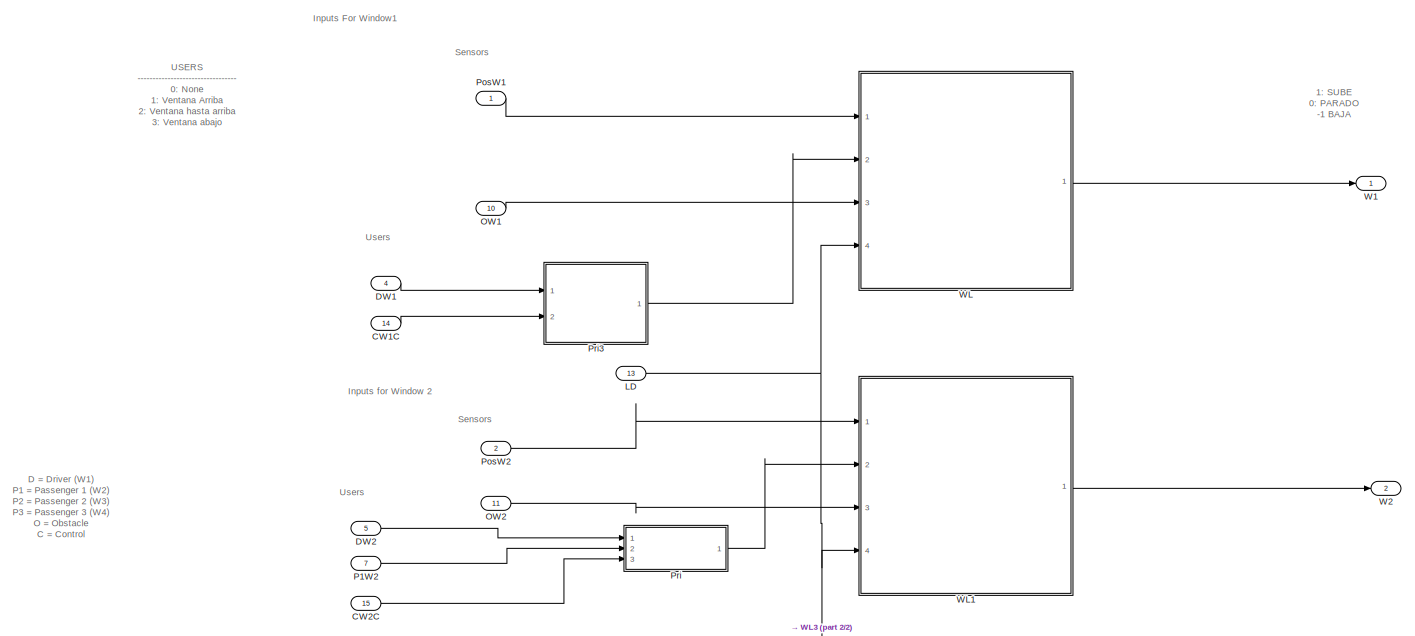
[diagram: M001/Cyber - part 1/2, full width, top band]
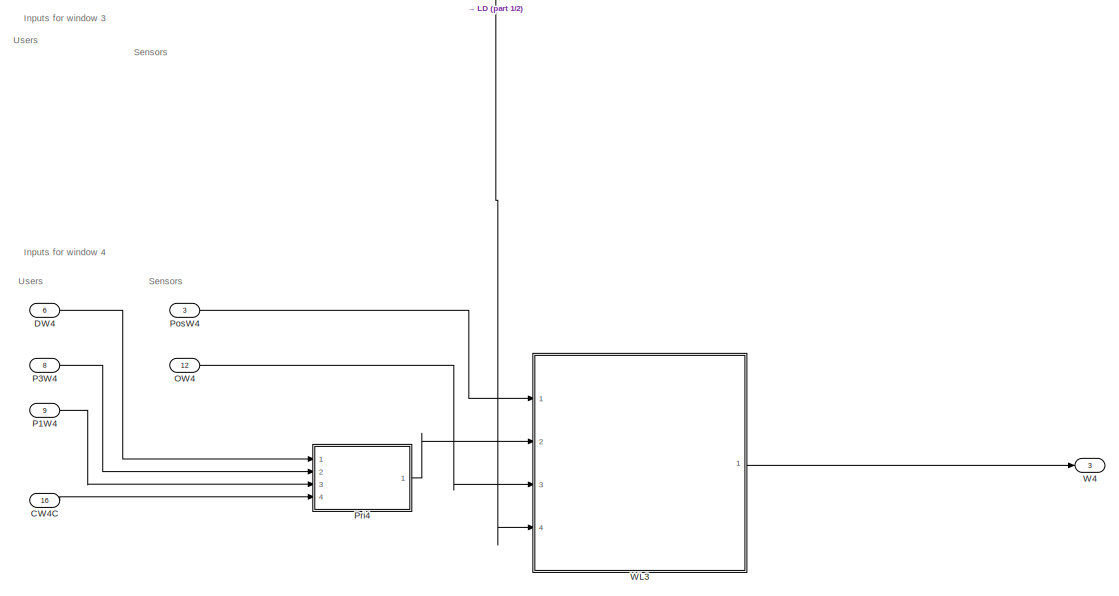
[diagram: M001/Cyber - part 2/2, full width, bottom band]
BLOCK [SubSystem] M001/Cyber
  Ports = [16, 3]
  RequestExecContextInheritance = off
BLOCK [Inport] M001/Cyber/CW1C
  IconDisplay = Port number
  Port = 14
BLOCK [Inport] M001/Cyber/CW2C
  IconDisplay = Port number
  Port = 15
BLOCK [Inport] M001/Cyber/CW4C
  IconDisplay = Port number
  Port = 16
BLOCK [Inport] M001/Cyber/DW1
  IconDisplay = Port number
  Port = 4
BLOCK [Inport] M001/Cyber/DW2
  IconDisplay = Port number
  Port = 5
BLOCK [Inport] M001/Cyber/DW4
  IconDisplay = Port number
  Port = 6
BLOCK [Inport] M001/Cyber/LD
  IconDisplay = Port number
  Port = 13
BLOCK [Inport] M001/Cyber/OW1
  IconDisplay = Port number
  Port = 10
BLOCK [Inport] M001/Cyber/OW2
  IconDisplay = Port number
  Port = 11
BLOCK [Inport] M001/Cyber/OW4
  IconDisplay = Port number
  Port = 12
BLOCK [Inport] M001/Cyber/P1W2
  IconDisplay = Port number
  Port = 7
BLOCK [Inport] M001/Cyber/P1W4
  IconDisplay = Port number
  Port = 9
BLOCK [Inport] M001/Cyber/P3W4
  IconDisplay = Port number
  Port = 8
BLOCK [Inport] M001/Cyber/PosW1
  IconDisplay = Port number
BLOCK [Inport] M001/Cyber/PosW2
  IconDisplay = Port number
  Port = 2
BLOCK [Inport] M001/Cyber/PosW4
  IconDisplay = Port number
  Port = 3
BLOCK [SubSystem] M001/Cyber/Pri
  Ports = [3, 1]
  RequestExecContextInheritance = off
BLOCK [Inport] M001/Cyber/Pri/CW2C
  IconDisplay = Port number
  Port = 3
BLOCK [Inport] M001/Cyber/Pri/D
  IconDisplay = Port number
BLOCK [Inport] M001/Cyber/Pri/P
  IconDisplay = Port number
  Port = 2
BLOCK [Switch] M001/Cyber/Pri/Switch
  Criteria = u2 > Threshold
  InputSameDT = off
  SaturateOnIntegerOverflow = off
  Threshold = 4
BLOCK [Switch] M001/Cyber/Pri/Switch1
  Criteria = u2 ~= 0
  InputSameDT = off
  SaturateOnIntegerOverflow = off
BLOCK [Outport] M001/Cyber/Pri/User
  IconDisplay = Port number
BLOCK [SubSystem] M001/Cyber/Pri3
  Ports = [2, 1]
  RequestExecContextInheritance = off
BLOCK [Inport] M001/Cyber/Pri3/CW1C
  IconDisplay = Port number
  Port = 2
BLOCK [Inport] M001/Cyber/Pri3/D
  IconDisplay = Port number
BLOCK [Switch] M001/Cyber/Pri3/Switch
  Criteria = u2 ~= 0
  InputSameDT = off
  SaturateOnIntegerOverflow = off
BLOCK [Outport] M001/Cyber/Pri3/User
  IconDisplay = Port number
BLOCK [SubSystem] M001/Cyber/Pri4
  Ports = [4, 1]
  RequestExecContextInheritance = off
BLOCK [Inport] M001/Cyber/Pri4/CW4C
  IconDisplay = Port number
  Port = 4
BLOCK [Inport] M001/Cyber/Pri4/D
  IconDisplay = Port number
BLOCK [Inport] M001/Cyber/Pri4/P
  IconDisplay = Port number
  Port = 2
BLOCK [Inport] M001/Cyber/Pri4/P1
  IconDisplay = Port number
  Port = 3
BLOCK [Switch] M001/Cyber/Pri4/Switch
  Criteria = u2 ~= 0
  InputSameDT = off
  SaturateOnIntegerOverflow = off
BLOCK [Switch] M001/Cyber/Pri4/Switch1
  Criteria = u2 ~= 0
  InputSameDT = off
  SaturateOnIntegerOverflow = off
BLOCK [Switch] M001/Cyber/Pri4/Switch2
  Criteria = u2 ~= 0
  InputSameDT = off
  SaturateOnIntegerOverflow = off
BLOCK [Outport] M001/Cyber/Pri4/User
  IconDisplay = Port number
BLOCK [Outport] M001/Cyber/W1
  IconDisplay = Port number
BLOCK [Outport] M001/Cyber/W2
  IconDisplay = Port number
  Port = 2
BLOCK [Outport] M001/Cyber/W4
  IconDisplay = Port number
  Port = 3
BLOCK [SubSystem] M001/Cyber/WL
  Ports = [4, 1]
  RequestExecContextInheritance = off
BLOCK [SubSystem] M001/Cyber/WL/Chart
  ErrorFcn = Stateflow.Translate.translate
  PermitHierarchicalResolution = ExplicitOnly
  Ports = [2, 1]
  RequestExecContextInheritance = off
  SFBlockType = Chart
  TreatAsAtomicUnit = on
BLOCK [Demux] M001/Cyber/WL/Chart/ Demux 
  Outputs = 1
  Ports = [1, 1]
BLOCK [S-Function] M001/Cyber/WL/Chart/ SFunction 
  EnableBusSupport = off
  FunctionName = sf_sfun
  PortCounts = [2 2]
  Ports = [2, 2]
  SFcnIsStateOwnerBlock = off
  SFunctionDeploymentMode = off
  Tag = Stateflow S-Function c00014M_harness 5
BLOCK [Terminator] M001/Cyber/WL/Chart/ Terminator 
BLOCK [Inport] M001/Cyber/WL/Chart/S
  IconDisplay = Port number
BLOCK [Inport] M001/Cyber/WL/Chart/UI
  IconDisplay = Port number
  Port = 2
BLOCK [Outport] M001/Cyber/WL/Chart/W
  IconDisplay = Port number
BLOCK [Constant] M001/Cyber/WL/Constant
  Value = -1
BLOCK [Constant] M001/Cyber/WL/Constant1
  Value = 0
BLOCK [DataTypeConversion] M001/Cyber/WL/Data Type Conversion
  RndMeth = Floor
  SaturateOnIntegerOverflow = off
BLOCK [Inport] M001/Cyber/WL/L
  IconDisplay = Port number
  Port = 4
BLOCK [Inport] M001/Cyber/WL/OW
  IconDisplay = Port number
  Port = 3
BLOCK [Switch] M001/Cyber/WL/Switch
  Criteria = u2 ~= 0
  InputSameDT = off
  SaturateOnIntegerOverflow = off
  Threshold = 1
  ZeroCross = off
BLOCK [Switch] M001/Cyber/WL/Switch1
  Criteria = u2 ~= 0
  InputSameDT = off
  SaturateOnIntegerOverflow = off
BLOCK [Inport] M001/Cyber/WL/User
  IconDisplay = Port number
  Port = 2
BLOCK [Inport] M001/Cyber/WL/WPos
  IconDisplay = Port number
BLOCK [Outport] M001/Cyber/WL/WindowLogicOutput
  IconDisplay = Port number
BLOCK [SubSystem] M001/Cyber/WL1
  Ports = [4, 1]
  RequestExecContextInheritance = off
BLOCK [SubSystem] M001/Cyber/WL1/Chart1
  ErrorFcn = Stateflow.Translate.translate
  PermitHierarchicalResolution = ExplicitOnly
  Ports = [2, 1]
  RequestExecContextInheritance = off
  SFBlockType = Chart
  TreatAsAtomicUnit = on
BLOCK [Demux] M001/Cyber/WL1/Chart1/ Demux 
  Outputs = 1
  Ports = [1, 1]
BLOCK [S-Function] M001/Cyber/WL1/Chart1/ SFunction 
  EnableBusSupport = off
  FunctionName = sf_sfun
  PortCounts = [2 2]
  Ports = [2, 2]
  SFcnIsStateOwnerBlock = off
  SFunctionDeploymentMode = off
  Tag = Stateflow S-Function c00014M_harness 6
BLOCK [Terminator] M001/Cyber/WL1/Chart1/ Terminator 
BLOCK [Inport] M001/Cyber/WL1/Chart1/S
  IconDisplay = Port number
BLOCK [Inport] M001/Cyber/WL1/Chart1/UI
  IconDisplay = Port number
  Port = 2
BLOCK [Outport] M001/Cyber/WL1/Chart1/W
  IconDisplay = Port number
BLOCK [Constant] M001/Cyber/WL1/Constant
  Value = -1
BLOCK [Constant] M001/Cyber/WL1/Constant1
  Value = 0
BLOCK [DataTypeConversion] M001/Cyber/WL1/Data Type Conversion
  RndMeth = Floor
  SaturateOnIntegerOverflow = off
BLOCK [Inport] M001/Cyber/WL1/L
  IconDisplay = Port number
  Port = 4
BLOCK [Inport] M001/Cyber/WL1/OW
  IconDisplay = Port number
  Port = 3
BLOCK [Switch] M001/Cyber/WL1/Switch
  Criteria = u2 ~= 0
  InputSameDT = off
  SaturateOnIntegerOverflow = off
  Threshold = 1
  ZeroCross = off
BLOCK [Switch] M001/Cyber/WL1/Switch1
  Criteria = u2 ~= 0
  InputSameDT = off
  SaturateOnIntegerOverflow = off
BLOCK [Inport] M001/Cyber/WL1/User
  IconDisplay = Port number
  Port = 2
BLOCK [Inport] M001/Cyber/WL1/WPos
  IconDisplay = Port number
BLOCK [Outport] M001/Cyber/WL1/WindowLogicOutput
  IconDisplay = Port number
BLOCK [SubSystem] M001/Cyber/WL3
  Ports = [4, 1]
  RequestExecContextInheritance = off
BLOCK [SubSystem] M001/Cyber/WL3/Chart2
  ErrorFcn = Stateflow.Translate.translate
  PermitHierarchicalResolution = ExplicitOnly
  Ports = [3, 1]
  RequestExecContextInheritance = off
  SFBlockType = Chart
  TreatAsAtomicUnit = on
BLOCK [Demux] M001/Cyber/WL3/Chart2/ Demux 
  Outputs = 1
  Ports = [1, 1]
BLOCK [S-Function] M001/Cyber/WL3/Chart2/ SFunction 
  EnableBusSupport = off
  FunctionName = sf_sfun
  PortCounts = [3 2]
  Ports = [3, 2]
  SFcnIsStateOwnerBlock = off
  SFunctionDeploymentMode = off
  Tag = Stateflow S-Function c00014M_harness 8
BLOCK [Terminator] M001/Cyber/WL3/Chart2/ Terminator 
BLOCK [Inport] M001/Cyber/WL3/Chart2/PosMinW4
  IconDisplay = Port number
  Port = 3
BLOCK [Inport] M001/Cyber/WL3/Chart2/S
  IconDisplay = Port number
BLOCK [Inport] M001/Cyber/WL3/Chart2/UI
  IconDisplay = Port number
  Port = 2
BLOCK [Outport] M001/Cyber/WL3/Chart2/W
  IconDisplay = Port number
BLOCK [Constant] M001/Cyber/WL3/Constant
  Value = -1
BLOCK [Constant] M001/Cyber/WL3/Constant1
  Value = 0
BLOCK [Constant] M001/Cyber/WL3/Constant2
  Value = PosMinimaW4
BLOCK [DataTypeConversion] M001/Cyber/WL3/Data Type Conversion
  RndMeth = Floor
  SaturateOnIntegerOverflow = off
BLOCK [Inport] M001/Cyber/WL3/L
  IconDisplay = Port number
  Port = 4
BLOCK [Inport] M001/Cyber/WL3/OW
  IconDisplay = Port number
  Port = 3
BLOCK [Switch] M001/Cyber/WL3/Switch
  Criteria = u2 ~= 0
  InputSameDT = off
  SaturateOnIntegerOverflow = off
  Threshold = 1
  ZeroCross = off
BLOCK [Switch] M001/Cyber/WL3/Switch1
  Criteria = u2 ~= 0
  InputSameDT = off
  SaturateOnIntegerOverflow = off
BLOCK [Inport] M001/Cyber/WL3/User
  IconDisplay = Port number
  Port = 2
BLOCK [Inport] M001/Cyber/WL3/WPos
  IconDisplay = Port number
BLOCK [Outport] M001/Cyber/WL3/WindowLogicOutput
  IconDisplay = Port number
BLOCK [Inport] M001/DW1
  IconDisplay = Port number
  OutDataTypeStr = int8
  OutMax = 4
  OutMin = 0
BLOCK [Inport] M001/DW2
  IconDisplay = Port number
  OutDataTypeStr = int8
  OutMax = 4
  OutMin = 0
  Port = 2
BLOCK [Inport] M001/DW4
  IconDisplay = Port number
  OutDataTypeStr = int8
  OutMax = 4
  OutMin = 0
  Port = 3
BLOCK [Inport] M001/LD
  IconDisplay = Port number
  OutDataTypeStr = boolean
  Port = 10
BLOCK [Memory] M001/M
BLOCK [Memory] M001/M1
BLOCK [Memory] M001/M3
BLOCK [Inport] M001/O1
  IconDisplay = Port number
  OutDataTypeStr = boolean
  Port = 7
BLOCK [Inport] M001/O2
  IconDisplay = Port number
  OutDataTypeStr = boolean
  Port = 8
BLOCK [Inport] M001/O4
  IconDisplay = Port number
  OutDataTypeStr = boolean
  Port = 9
BLOCK [Inport] M001/P1W2
  IconDisplay = Port number
  OutDataTypeStr = int8
  OutMax = 4
  OutMin = 0
  Port = 4
BLOCK [Inport] M001/P1W4
  IconDisplay = Port number
  OutDataTypeStr = int8
  OutMax = 4
  OutMin = 0
  Port = 6
BLOCK [Inport] M001/P3W4
  IconDisplay = Port number
  OutDataTypeStr = int8
  OutMax = 4
  OutMin = 0
  Port = 5
BLOCK [SubSystem] M001/Physical
  Ports = [3, 3]
  RequestExecContextInheritance = off
BLOCK [Inport] M001/Physical/InW1
  IconDisplay = Port number
BLOCK [Inport] M001/Physical/InW2
  IconDisplay = Port number
  Port = 2
BLOCK [Inport] M001/Physical/InW4
  IconDisplay = Port number
  Port = 3
BLOCK [SubSystem] M001/Physical/W
  Ports = [1, 1]
  RequestExecContextInheritance = off
BLOCK [SubSystem] M001/Physical/W/DC_Engine
  Ports = [1, 1]
  RequestExecContextInheritance = off
BLOCK [Gain] M001/Physical/W/DC_Engine/(Inductance)
  Gain = 1/L
  OutDataTypeStr = Inherit: Inherit via internal rule
  ParamDataTypeStr = Inherit: Inherit via internal rule
  SaturateOnIntegerOverflow = off
BLOCK [Gain] M001/Physical/W/DC_Engine/(Inductance)1
  Gain = 1/J
  OutDataTypeStr = Inherit: Inherit via internal rule
  ParamDataTypeStr = Inherit: Inherit via internal rule
  SaturateOnIntegerOverflow = off
BLOCK [Sum] M001/Physical/W/DC_Engine/Add
  InputSameDT = off
  Inputs = -+-
  OutDataTypeStr = Inherit: Inherit via internal rule
  Ports = [3, 1]
  SaturateOnIntegerOverflow = off
BLOCK [Sum] M001/Physical/W/DC_Engine/Add1
  InputSameDT = off
  Inputs = +-
  OutDataTypeStr = Inherit: Inherit via internal rule
  Ports = [2, 1]
  SaturateOnIntegerOverflow = off
BLOCK [Gain] M001/Physical/W/DC_Engine/Damping
  Gain = b
  OutDataTypeStr = Inherit: Inherit via internal rule
  ParamDataTypeStr = Inherit: Inherit via internal rule
  SaturateOnIntegerOverflow = off
BLOCK [DiscreteIntegrator] M001/Physical/W/DC_Engine/Discrete-Time Integrator
  ICPrevOutput = DiscIntNeverNeededParam
  ICPrevScaledInput = DiscIntNeverNeededParam
  Ports = [1, 1]
  SampleTime = -1
BLOCK [DiscreteIntegrator] M001/Physical/W/DC_Engine/Discrete-Time Integrator1
  ICPrevOutput = DiscIntNeverNeededParam
  ICPrevScaledInput = DiscIntNeverNeededParam
  Ports = [1, 1]
  SampleTime = -1
BLOCK [Gain] M001/Physical/W/DC_Engine/Ke
  Gain = K
  OutDataTypeStr = Inherit: Inherit via internal rule
  ParamDataTypeStr = Inherit: Inherit via internal rule
  SaturateOnIntegerOverflow = off
BLOCK [Gain] M001/Physical/W/DC_Engine/Kt
  Gain = K
  OutDataTypeStr = Inherit: Inherit via internal rule
  ParamDataTypeStr = Inherit: Inherit via internal rule
  SaturateOnIntegerOverflow = off
BLOCK [Gain] M001/Physical/W/DC_Engine/Resistance
  Gain = R
  OutDataTypeStr = Inherit: Inherit via internal rule
  ParamDataTypeStr = Inherit: Inherit via internal rule
  SaturateOnIntegerOverflow = off
BLOCK [Outport] M001/Physical/W/DC_Engine/Speed
  IconDisplay = Port number
BLOCK [Gain] M001/Physical/W/DC_Engine/Voltage
  Gain = 10
  OutDataTypeStr = Inherit: Inherit via internal rule
  ParamDataTypeStr = Inherit: Inherit via internal rule
  SaturateOnIntegerOverflow = off
BLOCK [Inport] M001/Physical/W/DC_Engine/input
  IconDisplay = Port number
BLOCK [DiscreteIntegrator] M001/Physical/W/Discrete-Time Integrator
  ICPrevOutput = DiscIntNeverNeededParam
  ICPrevScaledInput = DiscIntNeverNeededParam
  InitialCondition = 5
  LimitOutput = on
  LowerSaturationLimit = 0
  Ports = [1, 1]
  SampleTime = -1
  UpperSaturationLimit = 5
BLOCK [Inport] M001/Physical/W/WIn
  IconDisplay = Port number
BLOCK [Outport] M001/Physical/W/WPos
  IconDisplay = Port number
BLOCK [Outport] M001/Physical/W1
  IconDisplay = Port number
BLOCK [Outport] M001/Physical/W2
  IconDisplay = Port number
  Port = 2
BLOCK [Outport] M001/Physical/W4
  IconDisplay = Port number
  Port = 3
BLOCK [SubSystem] M001/Physical/W5
  Ports = [1, 1]
  RequestExecContextInheritance = off
BLOCK [SubSystem] M001/Physical/W5/DC_Engine
  Ports = [1, 1]
  RequestExecContextInheritance = off
BLOCK [Gain] M001/Physical/W5/DC_Engine/(Inductance)
  Gain = 1/L
  OutDataTypeStr = Inherit: Inherit via internal rule
  ParamDataTypeStr = Inherit: Inherit via internal rule
  SaturateOnIntegerOverflow = off
BLOCK [Gain] M001/Physical/W5/DC_Engine/(Inductance)1
  Gain = 1/J
  OutDataTypeStr = Inherit: Inherit via internal rule
  ParamDataTypeStr = Inherit: Inherit via internal rule
  SaturateOnIntegerOverflow = off
BLOCK [Sum] M001/Physical/W5/DC_Engine/Add
  InputSameDT = off
  Inputs = -+-
  OutDataTypeStr = Inherit: Inherit via internal rule
  Ports = [3, 1]
  SaturateOnIntegerOverflow = off
BLOCK [Sum] M001/Physical/W5/DC_Engine/Add1
  InputSameDT = off
  Inputs = +-
  OutDataTypeStr = Inherit: Inherit via internal rule
  Ports = [2, 1]
  SaturateOnIntegerOverflow = off
BLOCK [Gain] M001/Physical/W5/DC_Engine/Damping
  Gain = b
  OutDataTypeStr = Inherit: Inherit via internal rule
  ParamDataTypeStr = Inherit: Inherit via internal rule
  SaturateOnIntegerOverflow = off
BLOCK [DiscreteIntegrator] M001/Physical/W5/DC_Engine/Discrete-Time Integrator
  ICPrevOutput = DiscIntNeverNeededParam
  ICPrevScaledInput = DiscIntNeverNeededParam
  Ports = [1, 1]
  SampleTime = -1
BLOCK [DiscreteIntegrator] M001/Physical/W5/DC_Engine/Discrete-Time Integrator1
  ICPrevOutput = DiscIntNeverNeededParam
  ICPrevScaledInput = DiscIntNeverNeededParam
  Ports = [1, 1]
  SampleTime = -1
BLOCK [Gain] M001/Physical/W5/DC_Engine/Ke
  Gain = K
  OutDataTypeStr = Inherit: Inherit via internal rule
  ParamDataTypeStr = Inherit: Inherit via internal rule
  SaturateOnIntegerOverflow = off
BLOCK [Gain] M001/Physical/W5/DC_Engine/Kt
  Gain = K
  OutDataTypeStr = Inherit: Inherit via internal rule
  ParamDataTypeStr = Inherit: Inherit via internal rule
  SaturateOnIntegerOverflow = off
BLOCK [Gain] M001/Physical/W5/DC_Engine/Resistance
  Gain = R
  OutDataTypeStr = Inherit: Inherit via internal rule
  ParamDataTypeStr = Inherit: Inherit via internal rule
  SaturateOnIntegerOverflow = off
BLOCK [Outport] M001/Physical/W5/DC_Engine/Speed
  IconDisplay = Port number
BLOCK [Gain] M001/Physical/W5/DC_Engine/Voltage
  Gain = 10
  OutDataTypeStr = Inherit: Inherit via internal rule
  ParamDataTypeStr = Inherit: Inherit via internal rule
  SaturateOnIntegerOverflow = off
BLOCK [Inport] M001/Physical/W5/DC_Engine/input
  IconDisplay = Port number
BLOCK [DiscreteIntegrator] M001/Physical/W5/Discrete-Time Integrator
  ICPrevOutput = DiscIntNeverNeededParam
  ICPrevScaledInput = DiscIntNeverNeededParam
  InitialCondition = 5
  LimitOutput = on
  LowerSaturationLimit = 0
  Ports = [1, 1]
  SampleTime = -1
  UpperSaturationLimit = 5
BLOCK [Inport] M001/Physical/W5/WIn
  IconDisplay = Port number
BLOCK [Outport] M001/Physical/W5/WPos
  IconDisplay = Port number
BLOCK [SubSystem] M001/Physical/W7
  Ports = [1, 1]
  RequestExecContextInheritance = off
BLOCK [SubSystem] M001/Physical/W7/DC_Engine
  Ports = [1, 1]
  RequestExecContextInheritance = off
BLOCK [Gain] M001/Physical/W7/DC_Engine/(Inductance)
  Gain = 1/L
  OutDataTypeStr = Inherit: Inherit via internal rule
  ParamDataTypeStr = Inherit: Inherit via internal rule
  SaturateOnIntegerOverflow = off
BLOCK [Gain] M001/Physical/W7/DC_Engine/(Inductance)1
  Gain = 1/J
  OutDataTypeStr = Inherit: Inherit via internal rule
  ParamDataTypeStr = Inherit: Inherit via internal rule
  SaturateOnIntegerOverflow = off
BLOCK [Sum] M001/Physical/W7/DC_Engine/Add
  InputSameDT = off
  Inputs = -+-
  OutDataTypeStr = Inherit: Inherit via internal rule
  Ports = [3, 1]
  SaturateOnIntegerOverflow = off
BLOCK [Sum] M001/Physical/W7/DC_Engine/Add1
  InputSameDT = off
  Inputs = +-
  OutDataTypeStr = Inherit: Inherit via internal rule
  Ports = [2, 1]
  SaturateOnIntegerOverflow = off
BLOCK [Gain] M001/Physical/W7/DC_Engine/Damping
  Gain = b
  OutDataTypeStr = Inherit: Inherit via internal rule
  ParamDataTypeStr = Inherit: Inherit via internal rule
  SaturateOnIntegerOverflow = off
BLOCK [DiscreteIntegrator] M001/Physical/W7/DC_Engine/Discrete-Time Integrator
  ICPrevOutput = DiscIntNeverNeededParam
  ICPrevScaledInput = DiscIntNeverNeededParam
  Ports = [1, 1]
  SampleTime = -1
BLOCK [DiscreteIntegrator] M001/Physical/W7/DC_Engine/Discrete-Time Integrator1
  ICPrevOutput = DiscIntNeverNeededParam
  ICPrevScaledInput = DiscIntNeverNeededParam
  Ports = [1, 1]
  SampleTime = -1
BLOCK [Gain] M001/Physical/W7/DC_Engine/Ke
  Gain = K
  OutDataTypeStr = Inherit: Inherit via internal rule
  ParamDataTypeStr = Inherit: Inherit via internal rule
  SaturateOnIntegerOverflow = off
BLOCK [Gain] M001/Physical/W7/DC_Engine/Kt
  Gain = K
  OutDataTypeStr = Inherit: Inherit via internal rule
  ParamDataTypeStr = Inherit: Inherit via internal rule
  SaturateOnIntegerOverflow = off
BLOCK [Gain] M001/Physical/W7/DC_Engine/Resistance
  Gain = R
  OutDataTypeStr = Inherit: Inherit via internal rule
  ParamDataTypeStr = Inherit: Inherit via internal rule
  SaturateOnIntegerOverflow = off
BLOCK [Outport] M001/Physical/W7/DC_Engine/Speed
  IconDisplay = Port number
BLOCK [Gain] M001/Physical/W7/DC_Engine/Voltage
  Gain = 10
  OutDataTypeStr = Inherit: Inherit via internal rule
  ParamDataTypeStr = Inherit: Inherit via internal rule
  SaturateOnIntegerOverflow = off
BLOCK [Inport] M001/Physical/W7/DC_Engine/input
  IconDisplay = Port number
BLOCK [DiscreteIntegrator] M001/Physical/W7/Discrete-Time Integrator
  ICPrevOutput = DiscIntNeverNeededParam
  ICPrevScaledInput = DiscIntNeverNeededParam
  InitialCondition = 5
  LimitOutput = on
  LowerSaturationLimit = PosMinimaW4
  Ports = [1, 1]
  SampleTime = -1
  UpperSaturationLimit = 5
BLOCK [Inport] M001/Physical/W7/WIn
  IconDisplay = Port number
BLOCK [Outport] M001/Physical/W7/WPos
  IconDisplay = Port number
BLOCK [SubSystem] M001/S1
  Ports = [1, 1]
  RequestExecContextInheritance = off
BLOCK [Inport] M001/S1/PhyMeasure
  IconDisplay = Port number
BLOCK [Outport] M001/S1/SensorOut
  IconDisplay = Port number
BLOCK [SubSystem] M001/S2
  Ports = [1, 1]
  RequestExecContextInheritance = off
BLOCK [Inport] M001/S2/PhyMeasure
  IconDisplay = Port number
BLOCK [Outport] M001/S2/SensorOut
  IconDisplay = Port number
BLOCK [SubSystem] M001/S4
  Ports = [1, 1]
  RequestExecContextInheritance = off
BLOCK [Inport] M001/S4/PhyMeasure
  IconDisplay = Port number
BLOCK [Outport] M001/S4/SensorOut
  IconDisplay = Port number
BLOCK [Outport] M001/W1Pos
  IconDisplay = Port number
BLOCK [Outport] M001/W2Pos
  IconDisplay = Port number
  Port = 2
BLOCK [Outport] M001/W4Pos
  IconDisplay = Port number
  Port = 3
BLOCK [SubSystem] M003
  Ports = [13, 3]
  RequestExecContextInheritance = off
BLOCK [Inport] M003/CW1C
  IconDisplay = Port number
  OutDataTypeStr = int8
  OutMax = 4
  OutMin = 0
  Port = 11
BLOCK [Inport] M003/CW2C
  IconDisplay = Port number
  OutDataTypeStr = int8
  OutMax = 4
  OutMin = 0
  Port = 12
BLOCK [Inport] M003/CW4C
  IconDisplay = Port number
  OutDataTypeStr = int8
  OutMax = 4
  OutMin = 0
  Port = 13
BLOCK [SubSystem] M003/Cyber
  Ports = [16, 3]
  RequestExecContextInheritance = off
BLOCK [Inport] M003/Cyber/CW1C
  IconDisplay = Port number
  Port = 14
BLOCK [Inport] M003/Cyber/CW2C
  IconDisplay = Port number
  Port = 15
BLOCK [Inport] M003/Cyber/CW4C
  IconDisplay = Port number
  Port = 16
BLOCK [Inport] M003/Cyber/DW1
  IconDisplay = Port number
  Port = 4
BLOCK [Inport] M003/Cyber/DW2
  IconDisplay = Port number
  Port = 5
BLOCK [Inport] M003/Cyber/DW4
  IconDisplay = Port number
  Port = 6
BLOCK [Inport] M003/Cyber/LD
  IconDisplay = Port number
  Port = 13
BLOCK [Inport] M003/Cyber/OW1
  IconDisplay = Port number
  Port = 10
BLOCK [Inport] M003/Cyber/OW2
  IconDisplay = Port number
  Port = 11
BLOCK [Inport] M003/Cyber/OW4
  IconDisplay = Port number
  Port = 12
BLOCK [Inport] M003/Cyber/P1W2
  IconDisplay = Port number
  Port = 7
BLOCK [Inport] M003/Cyber/P1W4
  IconDisplay = Port number
  Port = 9
BLOCK [Inport] M003/Cyber/P3W4
  IconDisplay = Port number
  Port = 8
BLOCK [Inport] M003/Cyber/PosW1
  IconDisplay = Port number
BLOCK [Inport] M003/Cyber/PosW2
  IconDisplay = Port number
  Port = 2
BLOCK [Inport] M003/Cyber/PosW4
  IconDisplay = Port number
  Port = 3
BLOCK [SubSystem] M003/Cyber/Pri
  Ports = [3, 1]
  RequestExecContextInheritance = off
BLOCK [Inport] M003/Cyber/Pri/CW2C
  IconDisplay = Port number
  Port = 3
BLOCK [Inport] M003/Cyber/Pri/D
  IconDisplay = Port number
BLOCK [Inport] M003/Cyber/Pri/P
  IconDisplay = Port number
  Port = 2
BLOCK [Switch] M003/Cyber/Pri/Switch
  Criteria = u2 > Threshold
  InputSameDT = off
  SaturateOnIntegerOverflow = off
  Threshold = 4
BLOCK [Switch] M003/Cyber/Pri/Switch1
  Criteria = u2 ~= 0
  InputSameDT = off
  SaturateOnIntegerOverflow = off
BLOCK [Outport] M003/Cyber/Pri/User
  IconDisplay = Port number
BLOCK [SubSystem] M003/Cyber/Pri3
  Ports = [2, 1]
  RequestExecContextInheritance = off
BLOCK [Inport] M003/Cyber/Pri3/CW1C
  IconDisplay = Port number
  Port = 2
BLOCK [Inport] M003/Cyber/Pri3/D
  IconDisplay = Port number
BLOCK [Switch] M003/Cyber/Pri3/Switch
  Criteria = u2 ~= 0
  InputSameDT = off
  SaturateOnIntegerOverflow = off
BLOCK [Outport] M003/Cyber/Pri3/User
  IconDisplay = Port number
BLOCK [SubSystem] M003/Cyber/Pri4
  Ports = [4, 1]
  RequestExecContextInheritance = off
BLOCK [Inport] M003/Cyber/Pri4/CW4C
  IconDisplay = Port number
  Port = 4
BLOCK [Inport] M003/Cyber/Pri4/D
  IconDisplay = Port number
BLOCK [Inport] M003/Cyber/Pri4/P
  IconDisplay = Port number
  Port = 2
BLOCK [Inport] M003/Cyber/Pri4/P1
  IconDisplay = Port number
  Port = 3
BLOCK [Switch] M003/Cyber/Pri4/Switch
  Criteria = u2 ~= 0
  InputSameDT = off
  SaturateOnIntegerOverflow = off
BLOCK [Switch] M003/Cyber/Pri4/Switch1
  Criteria = u2 ~= 0
  InputSameDT = off
  SaturateOnIntegerOverflow = off
BLOCK [Switch] M003/Cyber/Pri4/Switch2
  Criteria = u2 ~= 0
  InputSameDT = off
  SaturateOnIntegerOverflow = off
BLOCK [Outport] M003/Cyber/Pri4/User
  IconDisplay = Port number
BLOCK [Outport] M003/Cyber/W1
  IconDisplay = Port number
BLOCK [Outport] M003/Cyber/W2
  IconDisplay = Port number
  Port = 2
BLOCK [Outport] M003/Cyber/W4
  IconDisplay = Port number
  Port = 3
BLOCK [SubSystem] M003/Cyber/WL
  Ports = [4, 1]
  RequestExecContextInheritance = off
BLOCK [SubSystem] M003/Cyber/WL/Chart
  ErrorFcn = Stateflow.Translate.translate
  PermitHierarchicalResolution = ExplicitOnly
  Ports = [2, 1]
  RequestExecContextInheritance = off
  SFBlockType = Chart
  TreatAsAtomicUnit = on
BLOCK [Demux] M003/Cyber/WL/Chart/ Demux 
  Outputs = 1
  Ports = [1, 1]
BLOCK [S-Function] M003/Cyber/WL/Chart/ SFunction 
  EnableBusSupport = off
  FunctionName = sf_sfun
  PortCounts = [2 2]
  Ports = [2, 2]
  SFcnIsStateOwnerBlock = off
  SFunctionDeploymentMode = off
  Tag = Stateflow S-Function c00014M_harness 13
BLOCK [Terminator] M003/Cyber/WL/Chart/ Terminator 
BLOCK [Inport] M003/Cyber/WL/Chart/S
  IconDisplay = Port number
BLOCK [Inport] M003/Cyber/WL/Chart/UI
  IconDisplay = Port number
  Port = 2
BLOCK [Outport] M003/Cyber/WL/Chart/W
  IconDisplay = Port number
BLOCK [Constant] M003/Cyber/WL/Constant
  Value = -1
BLOCK [Constant] M003/Cyber/WL/Constant1
  Value = 0
BLOCK [DataTypeConversion] M003/Cyber/WL/Data Type Conversion
  RndMeth = Floor
  SaturateOnIntegerOverflow = off
BLOCK [Inport] M003/Cyber/WL/L
  IconDisplay = Port number
  Port = 4
BLOCK [Inport] M003/Cyber/WL/OW
  IconDisplay = Port number
  Port = 3
BLOCK [Switch] M003/Cyber/WL/Switch
  Criteria = u2 ~= 0
  InputSameDT = off
  SaturateOnIntegerOverflow = off
  Threshold = 1
  ZeroCross = off
BLOCK [Switch] M003/Cyber/WL/Switch1
  Criteria = u2 ~= 0
  InputSameDT = off
  SaturateOnIntegerOverflow = off
BLOCK [Inport] M003/Cyber/WL/User
  IconDisplay = Port number
  Port = 2
BLOCK [Inport] M003/Cyber/WL/WPos
  IconDisplay = Port number
BLOCK [Outport] M003/Cyber/WL/WindowLogicOutput
  IconDisplay = Port number
BLOCK [SubSystem] M003/Cyber/WL1
  Ports = [4, 1]
  RequestExecContextInheritance = off
BLOCK [SubSystem] M003/Cyber/WL1/Chart1
  ErrorFcn = Stateflow.Translate.translate
  PermitHierarchicalResolution = ExplicitOnly
  Ports = [2, 1]
  RequestExecContextInheritance = off
  SFBlockType = Chart
  TreatAsAtomicUnit = on
BLOCK [Demux] M003/Cyber/WL1/Chart1/ Demux 
  Outputs = 1
  Ports = [1, 1]
BLOCK [S-Function] M003/Cyber/WL1/Chart1/ SFunction 
  EnableBusSupport = off
  FunctionName = sf_sfun
  PortCounts = [2 2]
  Ports = [2, 2]
  SFcnIsStateOwnerBlock = off
  SFunctionDeploymentMode = off
  Tag = Stateflow S-Function c00014M_harness 14
BLOCK [Terminator] M003/Cyber/WL1/Chart1/ Terminator 
BLOCK [Inport] M003/Cyber/WL1/Chart1/S
  IconDisplay = Port number
BLOCK [Inport] M003/Cyber/WL1/Chart1/UI
  IconDisplay = Port number
  Port = 2
BLOCK [Outport] M003/Cyber/WL1/Chart1/W
  IconDisplay = Port number
BLOCK [Constant] M003/Cyber/WL1/Constant
  Value = -1
BLOCK [Constant] M003/Cyber/WL1/Constant1
  Value = 0
BLOCK [DataTypeConversion] M003/Cyber/WL1/Data Type Conversion
  RndMeth = Floor
  SaturateOnIntegerOverflow = off
BLOCK [Inport] M003/Cyber/WL1/L
  IconDisplay = Port number
  Port = 4
BLOCK [Inport] M003/Cyber/WL1/OW
  IconDisplay = Port number
  Port = 3
BLOCK [Switch] M003/Cyber/WL1/Switch
  Criteria = u2 ~= 0
  InputSameDT = off
  SaturateOnIntegerOverflow = off
  Threshold = 1
  ZeroCross = off
BLOCK [Switch] M003/Cyber/WL1/Switch1
  Criteria = u2 ~= 0
  InputSameDT = off
  SaturateOnIntegerOverflow = off
BLOCK [Inport] M003/Cyber/WL1/User
  IconDisplay = Port number
  Port = 2
BLOCK [Inport] M003/Cyber/WL1/WPos
  IconDisplay = Port number
BLOCK [Outport] M003/Cyber/WL1/WindowLogicOutput
  IconDisplay = Port number
BLOCK [SubSystem] M003/Cyber/WL3
  Ports = [4, 1]
  RequestExecContextInheritance = off
BLOCK [SubSystem] M003/Cyber/WL3/Chart2
  ErrorFcn = Stateflow.Translate.translate
  PermitHierarchicalResolution = ExplicitOnly
  Ports = [3, 1]
  RequestExecContextInheritance = off
  SFBlockType = Chart
  TreatAsAtomicUnit = on
BLOCK [Demux] M003/Cyber/WL3/Chart2/ Demux 
  Outputs = 1
  Ports = [1, 1]
BLOCK [S-Function] M003/Cyber/WL3/Chart2/ SFunction 
  EnableBusSupport = off
  FunctionName = sf_sfun
  PortCounts = [3 2]
  Ports = [3, 2]
  SFcnIsStateOwnerBlock = off
  SFunctionDeploymentMode = off
  Tag = Stateflow S-Function c00014M_harness 16
BLOCK [Terminator] M003/Cyber/WL3/Chart2/ Terminator 
BLOCK [Inport] M003/Cyber/WL3/Chart2/PosMinW4
  IconDisplay = Port number
  Port = 3
BLOCK [Inport] M003/Cyber/WL3/Chart2/S
  IconDisplay = Port number
BLOCK [Inport] M003/Cyber/WL3/Chart2/UI
  IconDisplay = Port number
  Port = 2
BLOCK [Outport] M003/Cyber/WL3/Chart2/W
  IconDisplay = Port number
BLOCK [Constant] M003/Cyber/WL3/Constant
  Value = -1
BLOCK [Constant] M003/Cyber/WL3/Constant1
  Value = 0
BLOCK [Constant] M003/Cyber/WL3/Constant2
  Value = PosMinimaW4
BLOCK [DataTypeConversion] M003/Cyber/WL3/Data Type Conversion
  RndMeth = Floor
  SaturateOnIntegerOverflow = off
BLOCK [Inport] M003/Cyber/WL3/L
  IconDisplay = Port number
  Port = 4
BLOCK [Inport] M003/Cyber/WL3/OW
  IconDisplay = Port number
  Port = 3
BLOCK [Switch] M003/Cyber/WL3/Switch
  Criteria = u2 ~= 0
  InputSameDT = off
  SaturateOnIntegerOverflow = off
  Threshold = 1
  ZeroCross = off
BLOCK [Switch] M003/Cyber/WL3/Switch1
  Criteria = u2 ~= 0
  InputSameDT = off
  SaturateOnIntegerOverflow = off
BLOCK [Inport] M003/Cyber/WL3/User
  IconDisplay = Port number
  Port = 2
BLOCK [Inport] M003/Cyber/WL3/WPos
  IconDisplay = Port number
BLOCK [Outport] M003/Cyber/WL3/WindowLogicOutput
  IconDisplay = Port number
BLOCK [Inport] M003/DW1
  IconDisplay = Port number
  OutDataTypeStr = int8
  OutMax = 4
  OutMin = 0
BLOCK [Inport] M003/DW2
  IconDisplay = Port number
  OutDataTypeStr = int8
  OutMax = 4
  OutMin = 0
  Port = 2
BLOCK [Inport] M003/DW4
  IconDisplay = Port number
  OutDataTypeStr = int8
  OutMax = 4
  OutMin = 0
  Port = 3
BLOCK [Inport] M003/LD
  IconDisplay = Port number
  OutDataTypeStr = boolean
  Port = 10
BLOCK [Memory] M003/M
BLOCK [Memory] M003/M1
BLOCK [Memory] M003/M3
BLOCK [Inport] M003/O1
  IconDisplay = Port number
  OutDataTypeStr = boolean
  Port = 7
BLOCK [Inport] M003/O2
  IconDisplay = Port number
  OutDataTypeStr = boolean
  Port = 8
BLOCK [Inport] M003/O4
  IconDisplay = Port number
  OutDataTypeStr = boolean
  Port = 9
BLOCK [Inport] M003/P1W2
  IconDisplay = Port number
  OutDataTypeStr = int8
  OutMax = 4
  OutMin = 0
  Port = 4
BLOCK [Inport] M003/P1W4
  IconDisplay = Port number
  OutDataTypeStr = int8
  OutMax = 4
  OutMin = 0
  Port = 6
BLOCK [Inport] M003/P3W4
  IconDisplay = Port number
  OutDataTypeStr = int8
  OutMax = 4
  OutMin = 0
  Port = 5
BLOCK [SubSystem] M003/Physical
  Ports = [3, 3]
  RequestExecContextInheritance = off
BLOCK [Inport] M003/Physical/InW1
  IconDisplay = Port number
BLOCK [Inport] M003/Physical/InW2
  IconDisplay = Port number
  Port = 2
BLOCK [Inport] M003/Physical/InW4
  IconDisplay = Port number
  Port = 3
BLOCK [SubSystem] M003/Physical/W
  Ports = [1, 1]
  RequestExecContextInheritance = off
BLOCK [SubSystem] M003/Physical/W/DC_Engine
  Ports = [1, 1]
  RequestExecContextInheritance = off
BLOCK [Gain] M003/Physical/W/DC_Engine/(Inductance)
  Gain = 1/L
  OutDataTypeStr = Inherit: Inherit via internal rule
  ParamDataTypeStr = Inherit: Inherit via internal rule
  SaturateOnIntegerOverflow = off
BLOCK [Gain] M003/Physical/W/DC_Engine/(Inductance)1
  Gain = 1/J
  OutDataTypeStr = Inherit: Inherit via internal rule
  ParamDataTypeStr = Inherit: Inherit via internal rule
  SaturateOnIntegerOverflow = off
BLOCK [Sum] M003/Physical/W/DC_Engine/Add
  InputSameDT = off
  Inputs = -+-
  OutDataTypeStr = Inherit: Inherit via internal rule
  Ports = [3, 1]
  SaturateOnIntegerOverflow = off
BLOCK [Sum] M003/Physical/W/DC_Engine/Add1
  InputSameDT = off
  Inputs = +-
  OutDataTypeStr = Inherit: Inherit via internal rule
  Ports = [2, 1]
  SaturateOnIntegerOverflow = off
BLOCK [Gain] M003/Physical/W/DC_Engine/Damping
  Gain = b
  OutDataTypeStr = Inherit: Inherit via internal rule
  ParamDataTypeStr = Inherit: Inherit via internal rule
  SaturateOnIntegerOverflow = off
BLOCK [DiscreteIntegrator] M003/Physical/W/DC_Engine/Discrete-Time Integrator
  ICPrevOutput = DiscIntNeverNeededParam
  ICPrevScaledInput = DiscIntNeverNeededParam
  Ports = [1, 1]
  SampleTime = -1
BLOCK [DiscreteIntegrator] M003/Physical/W/DC_Engine/Discrete-Time Integrator1
  ICPrevOutput = DiscIntNeverNeededParam
  ICPrevScaledInput = DiscIntNeverNeededParam
  Ports = [1, 1]
  SampleTime = -1
BLOCK [Gain] M003/Physical/W/DC_Engine/Ke
  Gain = K
  OutDataTypeStr = Inherit: Inherit via internal rule
  ParamDataTypeStr = Inherit: Inherit via internal rule
  SaturateOnIntegerOverflow = off
BLOCK [Gain] M003/Physical/W/DC_Engine/Kt
  Gain = K
  OutDataTypeStr = Inherit: Inherit via internal rule
  ParamDataTypeStr = Inherit: Inherit via internal rule
  SaturateOnIntegerOverflow = off
BLOCK [Gain] M003/Physical/W/DC_Engine/Resistance
  Gain = R
  OutDataTypeStr = Inherit: Inherit via internal rule
  ParamDataTypeStr = Inherit: Inherit via internal rule
  SaturateOnIntegerOverflow = off
BLOCK [Outport] M003/Physical/W/DC_Engine/Speed
  IconDisplay = Port number
BLOCK [Gain] M003/Physical/W/DC_Engine/Voltage
  Gain = 10
  OutDataTypeStr = Inherit: Inherit via internal rule
  ParamDataTypeStr = Inherit: Inherit via internal rule
  SaturateOnIntegerOverflow = off
BLOCK [Inport] M003/Physical/W/DC_Engine/input
  IconDisplay = Port number
BLOCK [DiscreteIntegrator] M003/Physical/W/Discrete-Time Integrator
  ICPrevOutput = DiscIntNeverNeededParam
  ICPrevScaledInput = DiscIntNeverNeededParam
  InitialCondition = 5
  LimitOutput = on
  LowerSaturationLimit = 0
  Ports = [1, 1]
  SampleTime = -1
  UpperSaturationLimit = 5
BLOCK [Inport] M003/Physical/W/WIn
  IconDisplay = Port number
BLOCK [Outport] M003/Physical/W/WPos
  IconDisplay = Port number
BLOCK [Outport] M003/Physical/W1
  IconDisplay = Port number
BLOCK [Outport] M003/Physical/W2
  IconDisplay = Port number
  Port = 2
BLOCK [Outport] M003/Physical/W4
  IconDisplay = Port number
  Port = 3
BLOCK [SubSystem] M003/Physical/W5
  Ports = [1, 1]
  RequestExecContextInheritance = off
BLOCK [SubSystem] M003/Physical/W5/DC_Engine
  Ports = [1, 1]
  RequestExecContextInheritance = off
BLOCK [Gain] M003/Physical/W5/DC_Engine/(Inductance)
  Gain = 1/L
  OutDataTypeStr = Inherit: Inherit via internal rule
  ParamDataTypeStr = Inherit: Inherit via internal rule
  SaturateOnIntegerOverflow = off
BLOCK [Gain] M003/Physical/W5/DC_Engine/(Inductance)1
  Gain = 1/J
  OutDataTypeStr = Inherit: Inherit via internal rule
  ParamDataTypeStr = Inherit: Inherit via internal rule
  SaturateOnIntegerOverflow = off
BLOCK [Sum] M003/Physical/W5/DC_Engine/Add
  InputSameDT = off
  Inputs = -+-
  OutDataTypeStr = Inherit: Inherit via internal rule
  Ports = [3, 1]
  SaturateOnIntegerOverflow = off
BLOCK [Sum] M003/Physical/W5/DC_Engine/Add1
  InputSameDT = off
  Inputs = +-
  OutDataTypeStr = Inherit: Inherit via internal rule
  Ports = [2, 1]
  SaturateOnIntegerOverflow = off
BLOCK [Gain] M003/Physical/W5/DC_Engine/Damping
  Gain = b
  OutDataTypeStr = Inherit: Inherit via internal rule
  ParamDataTypeStr = Inherit: Inherit via internal rule
  SaturateOnIntegerOverflow = off
BLOCK [DiscreteIntegrator] M003/Physical/W5/DC_Engine/Discrete-Time Integrator
  ICPrevOutput = DiscIntNeverNeededParam
  ICPrevScaledInput = DiscIntNeverNeededParam
  Ports = [1, 1]
  SampleTime = -1
BLOCK [DiscreteIntegrator] M003/Physical/W5/DC_Engine/Discrete-Time Integrator1
  ICPrevOutput = DiscIntNeverNeededParam
  ICPrevScaledInput = DiscIntNeverNeededParam
  Ports = [1, 1]
  SampleTime = -1
BLOCK [Gain] M003/Physical/W5/DC_Engine/Ke
  Gain = K
  OutDataTypeStr = Inherit: Inherit via internal rule
  ParamDataTypeStr = Inherit: Inherit via internal rule
  SaturateOnIntegerOverflow = off
BLOCK [Gain] M003/Physical/W5/DC_Engine/Kt
  Gain = K
  OutDataTypeStr = Inherit: Inherit via internal rule
  ParamDataTypeStr = Inherit: Inherit via internal rule
  SaturateOnIntegerOverflow = off
BLOCK [Gain] M003/Physical/W5/DC_Engine/Resistance
  Gain = R
  OutDataTypeStr = Inherit: Inherit via internal rule
  ParamDataTypeStr = Inherit: Inherit via internal rule
  SaturateOnIntegerOverflow = off
BLOCK [Outport] M003/Physical/W5/DC_Engine/Speed
  IconDisplay = Port number
BLOCK [Gain] M003/Physical/W5/DC_Engine/Voltage
  Gain = 10
  OutDataTypeStr = Inherit: Inherit via internal rule
  ParamDataTypeStr = Inherit: Inherit via internal rule
  SaturateOnIntegerOverflow = off
BLOCK [Inport] M003/Physical/W5/DC_Engine/input
  IconDisplay = Port number
BLOCK [DiscreteIntegrator] M003/Physical/W5/Discrete-Time Integrator
  ICPrevOutput = DiscIntNeverNeededParam
  ICPrevScaledInput = DiscIntNeverNeededParam
  InitialCondition = 5
  LimitOutput = on
  LowerSaturationLimit = 0
  Ports = [1, 1]
  SampleTime = -1
  UpperSaturationLimit = 5
BLOCK [Inport] M003/Physical/W5/WIn
  IconDisplay = Port number
BLOCK [Outport] M003/Physical/W5/WPos
  IconDisplay = Port number
BLOCK [SubSystem] M003/Physical/W7
  Ports = [1, 1]
  RequestExecContextInheritance = off
BLOCK [SubSystem] M003/Physical/W7/DC_Engine
  Ports = [1, 1]
  RequestExecContextInheritance = off
BLOCK [Gain] M003/Physical/W7/DC_Engine/(Inductance)
  Gain = 1/L
  OutDataTypeStr = Inherit: Inherit via internal rule
  ParamDataTypeStr = Inherit: Inherit via internal rule
  SaturateOnIntegerOverflow = off
BLOCK [Gain] M003/Physical/W7/DC_Engine/(Inductance)1
  Gain = 1/J
  OutDataTypeStr = Inherit: Inherit via internal rule
  ParamDataTypeStr = Inherit: Inherit via internal rule
  SaturateOnIntegerOverflow = off
BLOCK [Sum] M003/Physical/W7/DC_Engine/Add
  InputSameDT = off
  Inputs = -+-
  OutDataTypeStr = Inherit: Inherit via internal rule
  Ports = [3, 1]
  SaturateOnIntegerOverflow = off
BLOCK [Sum] M003/Physical/W7/DC_Engine/Add1
  InputSameDT = off
  Inputs = +-
  OutDataTypeStr = Inherit: Inherit via internal rule
  Ports = [2, 1]
  SaturateOnIntegerOverflow = off
BLOCK [Gain] M003/Physical/W7/DC_Engine/Damping
  Gain = b
  OutDataTypeStr = Inherit: Inherit via internal rule
  ParamDataTypeStr = Inherit: Inherit via internal rule
  SaturateOnIntegerOverflow = off
BLOCK [DiscreteIntegrator] M003/Physical/W7/DC_Engine/Discrete-Time Integrator
  ICPrevOutput = DiscIntNeverNeededParam
  ICPrevScaledInput = DiscIntNeverNeededParam
  Ports = [1, 1]
  SampleTime = -1
BLOCK [DiscreteIntegrator] M003/Physical/W7/DC_Engine/Discrete-Time Integrator1
  ICPrevOutput = DiscIntNeverNeededParam
  ICPrevScaledInput = DiscIntNeverNeededParam
  Ports = [1, 1]
  SampleTime = -1
BLOCK [Gain] M003/Physical/W7/DC_Engine/Ke
  Gain = K
  OutDataTypeStr = Inherit: Inherit via internal rule
  ParamDataTypeStr = Inherit: Inherit via internal rule
  SaturateOnIntegerOverflow = off
BLOCK [Gain] M003/Physical/W7/DC_Engine/Kt
  Gain = K
  OutDataTypeStr = Inherit: Inherit via internal rule
  ParamDataTypeStr = Inherit: Inherit via internal rule
  SaturateOnIntegerOverflow = off
BLOCK [Gain] M003/Physical/W7/DC_Engine/Resistance
  Gain = R
  OutDataTypeStr = Inherit: Inherit via internal rule
  ParamDataTypeStr = Inherit: Inherit via internal rule
  SaturateOnIntegerOverflow = off
BLOCK [Outport] M003/Physical/W7/DC_Engine/Speed
  IconDisplay = Port number
BLOCK [Gain] M003/Physical/W7/DC_Engine/Voltage
  Gain = 10
  OutDataTypeStr = Inherit: Inherit via internal rule
  ParamDataTypeStr = Inherit: Inherit via internal rule
  SaturateOnIntegerOverflow = off
BLOCK [Inport] M003/Physical/W7/DC_Engine/input
  IconDisplay = Port number
BLOCK [DiscreteIntegrator] M003/Physical/W7/Discrete-Time Integrator
  ICPrevOutput = DiscIntNeverNeededParam
  ICPrevScaledInput = DiscIntNeverNeededParam
  InitialCondition = 5
  LimitOutput = on
  LowerSaturationLimit = PosMinimaW4
  Ports = [1, 1]
  SampleTime = -1
  UpperSaturationLimit = 5
BLOCK [Inport] M003/Physical/W7/WIn
  IconDisplay = Port number
BLOCK [Outport] M003/Physical/W7/WPos
  IconDisplay = Port number
BLOCK [SubSystem] M003/S1
  Ports = [1, 1]
  RequestExecContextInheritance = off
BLOCK [Inport] M003/S1/PhyMeasure
  IconDisplay = Port number
BLOCK [Outport] M003/S1/SensorOut
  IconDisplay = Port number
BLOCK [SubSystem] M003/S2
  Ports = [1, 1]
  RequestExecContextInheritance = off
BLOCK [Inport] M003/S2/PhyMeasure
  IconDisplay = Port number
BLOCK [Outport] M003/S2/SensorOut
  IconDisplay = Port number
BLOCK [SubSystem] M003/S4
  Ports = [1, 1]
  RequestExecContextInheritance = off
BLOCK [Inport] M003/S4/PhyMeasure
  IconDisplay = Port number
BLOCK [Outport] M003/S4/SensorOut
  IconDisplay = Port number
BLOCK [Outport] M003/W1Pos
  IconDisplay = Port number
BLOCK [Outport] M003/W2Pos
  IconDisplay = Port number
  Port = 2
BLOCK [Outport] M003/W4Pos
  IconDisplay = Port number
  Port = 3
BLOCK [SubSystem] M005
  Ports = [13, 3]
  RequestExecContextInheritance = off
BLOCK [Inport] M005/CW1C
  IconDisplay = Port number
  OutDataTypeStr = int8
  OutMax = 4
  OutMin = 0
  Port = 11
BLOCK [Inport] M005/CW2C
  IconDisplay = Port number
  OutDataTypeStr = int8
  OutMax = 4
  OutMin = 0
  Port = 12
BLOCK [Inport] M005/CW4C
  IconDisplay = Port number
  OutDataTypeStr = int8
  OutMax = 4
  OutMin = 0
  Port = 13
BLOCK [SubSystem] M005/Cyber
  Ports = [16, 3]
  RequestExecContextInheritance = off
BLOCK [Inport] M005/Cyber/CW1C
  IconDisplay = Port number
  Port = 14
BLOCK [Inport] M005/Cyber/CW2C
  IconDisplay = Port number
  Port = 15
BLOCK [Inport] M005/Cyber/CW4C
  IconDisplay = Port number
  Port = 16
BLOCK [Inport] M005/Cyber/DW1
  IconDisplay = Port number
  Port = 4
BLOCK [Inport] M005/Cyber/DW2
  IconDisplay = Port number
  Port = 5
BLOCK [Inport] M005/Cyber/DW4
  IconDisplay = Port number
  Port = 6
BLOCK [Inport] M005/Cyber/LD
  IconDisplay = Port number
  Port = 13
BLOCK [Inport] M005/Cyber/OW1
  IconDisplay = Port number
  Port = 10
BLOCK [Inport] M005/Cyber/OW2
  IconDisplay = Port number
  Port = 11
BLOCK [Inport] M005/Cyber/OW4
  IconDisplay = Port number
  Port = 12
BLOCK [Inport] M005/Cyber/P1W2
  IconDisplay = Port number
  Port = 7
BLOCK [Inport] M005/Cyber/P1W4
  IconDisplay = Port number
  Port = 9
BLOCK [Inport] M005/Cyber/P3W4
  IconDisplay = Port number
  Port = 8
BLOCK [Inport] M005/Cyber/PosW1
  IconDisplay = Port number
BLOCK [Inport] M005/Cyber/PosW2
  IconDisplay = Port number
  Port = 2
BLOCK [Inport] M005/Cyber/PosW4
  IconDisplay = Port number
  Port = 3
BLOCK [SubSystem] M005/Cyber/Pri
  Ports = [3, 1]
  RequestExecContextInheritance = off
BLOCK [Inport] M005/Cyber/Pri/CW2C
  IconDisplay = Port number
  Port = 3
BLOCK [Inport] M005/Cyber/Pri/D
  IconDisplay = Port number
BLOCK [Inport] M005/Cyber/Pri/P
  IconDisplay = Port number
  Port = 2
BLOCK [Switch] M005/Cyber/Pri/Switch
  Criteria = u2 ~= 0
  InputSameDT = off
  SaturateOnIntegerOverflow = off
BLOCK [Switch] M005/Cyber/Pri/Switch1
  Criteria = u2 > Threshold
  InputSameDT = off
  SaturateOnIntegerOverflow = off
  Threshold = 4
BLOCK [Outport] M005/Cyber/Pri/User
  IconDisplay = Port number
BLOCK [SubSystem] M005/Cyber/Pri3
  Ports = [2, 1]
  RequestExecContextInheritance = off
BLOCK [Inport] M005/Cyber/Pri3/CW1C
  IconDisplay = Port number
  Port = 2
BLOCK [Inport] M005/Cyber/Pri3/D
  IconDisplay = Port number
BLOCK [Switch] M005/Cyber/Pri3/Switch
  Criteria = u2 ~= 0
  InputSameDT = off
  SaturateOnIntegerOverflow = off
BLOCK [Outport] M005/Cyber/Pri3/User
  IconDisplay = Port number
BLOCK [SubSystem] M005/Cyber/Pri4
  Ports = [4, 1]
  RequestExecContextInheritance = off
BLOCK [Inport] M005/Cyber/Pri4/CW4C
  IconDisplay = Port number
  Port = 4
BLOCK [Inport] M005/Cyber/Pri4/D
  IconDisplay = Port number
BLOCK [Inport] M005/Cyber/Pri4/P
  IconDisplay = Port number
  Port = 2
BLOCK [Inport] M005/Cyber/Pri4/P1
  IconDisplay = Port number
  Port = 3
BLOCK [Switch] M005/Cyber/Pri4/Switch
  Criteria = u2 ~= 0
  InputSameDT = off
  SaturateOnIntegerOverflow = off
BLOCK [Switch] M005/Cyber/Pri4/Switch1
  Criteria = u2 ~= 0
  InputSameDT = off
  SaturateOnIntegerOverflow = off
BLOCK [Switch] M005/Cyber/Pri4/Switch2
  Criteria = u2 ~= 0
  InputSameDT = off
  SaturateOnIntegerOverflow = off
BLOCK [Outport] M005/Cyber/Pri4/User
  IconDisplay = Port number
BLOCK [Outport] M005/Cyber/W1
  IconDisplay = Port number
BLOCK [Outport] M005/Cyber/W2
  IconDisplay = Port number
  Port = 2
BLOCK [Outport] M005/Cyber/W4
  IconDisplay = Port number
  Port = 3
BLOCK [SubSystem] M005/Cyber/WL
  Ports = [4, 1]
  RequestExecContextInheritance = off
BLOCK [SubSystem] M005/Cyber/WL/Chart
  ErrorFcn = Stateflow.Translate.translate
  PermitHierarchicalResolution = ExplicitOnly
  Ports = [2, 1]
  RequestExecContextInheritance = off
  SFBlockType = Chart
  TreatAsAtomicUnit = on
BLOCK [Demux] M005/Cyber/WL/Chart/ Demux 
  Outputs = 1
  Ports = [1, 1]
BLOCK [S-Function] M005/Cyber/WL/Chart/ SFunction 
  EnableBusSupport = off
  FunctionName = sf_sfun
  PortCounts = [2 2]
  Ports = [2, 2]
  SFcnIsStateOwnerBlock = off
  SFunctionDeploymentMode = off
  Tag = Stateflow S-Function c00014M_harness 21
BLOCK [Terminator] M005/Cyber/WL/Chart/ Terminator 
BLOCK [Inport] M005/Cyber/WL/Chart/S
  IconDisplay = Port number
BLOCK [Inport] M005/Cyber/WL/Chart/UI
  IconDisplay = Port number
  Port = 2
BLOCK [Outport] M005/Cyber/WL/Chart/W
  IconDisplay = Port number
BLOCK [Constant] M005/Cyber/WL/Constant
  Value = -1
BLOCK [Constant] M005/Cyber/WL/Constant1
  Value = 0
BLOCK [DataTypeConversion] M005/Cyber/WL/Data Type Conversion
  RndMeth = Floor
  SaturateOnIntegerOverflow = off
BLOCK [Inport] M005/Cyber/WL/L
  IconDisplay = Port number
  Port = 4
BLOCK [Inport] M005/Cyber/WL/OW
  IconDisplay = Port number
  Port = 3
BLOCK [Switch] M005/Cyber/WL/Switch
  Criteria = u2 ~= 0
  InputSameDT = off
  SaturateOnIntegerOverflow = off
  Threshold = 1
  ZeroCross = off
BLOCK [Switch] M005/Cyber/WL/Switch1
  Criteria = u2 ~= 0
  InputSameDT = off
  SaturateOnIntegerOverflow = off
BLOCK [Inport] M005/Cyber/WL/User
  IconDisplay = Port number
  Port = 2
BLOCK [Inport] M005/Cyber/WL/WPos
  IconDisplay = Port number
BLOCK [Outport] M005/Cyber/WL/WindowLogicOutput
  IconDisplay = Port number
BLOCK [SubSystem] M005/Cyber/WL1
  Ports = [4, 1]
  RequestExecContextInheritance = off
BLOCK [SubSystem] M005/Cyber/WL1/Chart1
  ErrorFcn = Stateflow.Translate.translate
  PermitHierarchicalResolution = ExplicitOnly
  Ports = [2, 1]
  RequestExecContextInheritance = off
  SFBlockType = Chart
  TreatAsAtomicUnit = on
BLOCK [Demux] M005/Cyber/WL1/Chart1/ Demux 
  Outputs = 1
  Ports = [1, 1]
BLOCK [S-Function] M005/Cyber/WL1/Chart1/ SFunction 
  EnableBusSupport = off
  FunctionName = sf_sfun
  PortCounts = [2 2]
  Ports = [2, 2]
  SFcnIsStateOwnerBlock = off
  SFunctionDeploymentMode = off
  Tag = Stateflow S-Function c00014M_harness 22
BLOCK [Terminator] M005/Cyber/WL1/Chart1/ Terminator 
BLOCK [Inport] M005/Cyber/WL1/Chart1/S
  IconDisplay = Port number
BLOCK [Inport] M005/Cyber/WL1/Chart1/UI
  IconDisplay = Port number
  Port = 2
BLOCK [Outport] M005/Cyber/WL1/Chart1/W
  IconDisplay = Port number
BLOCK [Constant] M005/Cyber/WL1/Constant
  Value = -1
BLOCK [Constant] M005/Cyber/WL1/Constant1
  Value = 0
BLOCK [DataTypeConversion] M005/Cyber/WL1/Data Type Conversion
  RndMeth = Floor
  SaturateOnIntegerOverflow = off
BLOCK [Inport] M005/Cyber/WL1/L
  IconDisplay = Port number
  Port = 4
BLOCK [Inport] M005/Cyber/WL1/OW
  IconDisplay = Port number
  Port = 3
BLOCK [Switch] M005/Cyber/WL1/Switch
  Criteria = u2 ~= 0
  InputSameDT = off
  SaturateOnIntegerOverflow = off
  Threshold = 1
  ZeroCross = off
BLOCK [Switch] M005/Cyber/WL1/Switch1
  Criteria = u2 ~= 0
  InputSameDT = off
  SaturateOnIntegerOverflow = off
BLOCK [Inport] M005/Cyber/WL1/User
  IconDisplay = Port number
  Port = 2
BLOCK [Inport] M005/Cyber/WL1/WPos
  IconDisplay = Port number
BLOCK [Outport] M005/Cyber/WL1/WindowLogicOutput
  IconDisplay = Port number
BLOCK [SubSystem] M005/Cyber/WL3
  Ports = [4, 1]
  RequestExecContextInheritance = off
BLOCK [SubSystem] M005/Cyber/WL3/Chart2
  ErrorFcn = Stateflow.Translate.translate
  PermitHierarchicalResolution = ExplicitOnly
  Ports = [3, 1]
  RequestExecContextInheritance = off
  SFBlockType = Chart
  TreatAsAtomicUnit = on
BLOCK [Demux] M005/Cyber/WL3/Chart2/ Demux 
  Outputs = 1
  Ports = [1, 1]
BLOCK [S-Function] M005/Cyber/WL3/Chart2/ SFunction 
  EnableBusSupport = off
  FunctionName = sf_sfun
  PortCounts = [3 2]
  Ports = [3, 2]
  SFcnIsStateOwnerBlock = off
  SFunctionDeploymentMode = off
  Tag = Stateflow S-Function c00014M_harness 24
BLOCK [Terminator] M005/Cyber/WL3/Chart2/ Terminator 
BLOCK [Inport] M005/Cyber/WL3/Chart2/PosMinW4
  IconDisplay = Port number
  Port = 3
BLOCK [Inport] M005/Cyber/WL3/Chart2/S
  IconDisplay = Port number
BLOCK [Inport] M005/Cyber/WL3/Chart2/UI
  IconDisplay = Port number
  Port = 2
BLOCK [Outport] M005/Cyber/WL3/Chart2/W
  IconDisplay = Port number
BLOCK [Constant] M005/Cyber/WL3/Constant
  Value = -1
BLOCK [Constant] M005/Cyber/WL3/Constant1
  Value = 0
BLOCK [Constant] M005/Cyber/WL3/Constant2
  Value = PosMinimaW4
BLOCK [DataTypeConversion] M005/Cyber/WL3/Data Type Conversion
  RndMeth = Floor
  SaturateOnIntegerOverflow = off
BLOCK [Inport] M005/Cyber/WL3/L
  IconDisplay = Port number
  Port = 4
BLOCK [Inport] M005/Cyber/WL3/OW
  IconDisplay = Port number
  Port = 3
BLOCK [Switch] M005/Cyber/WL3/Switch
  Criteria = u2 ~= 0
  InputSameDT = off
  SaturateOnIntegerOverflow = off
  Threshold = 1
  ZeroCross = off
BLOCK [Switch] M005/Cyber/WL3/Switch1
  Criteria = u2 ~= 0
  InputSameDT = off
  SaturateOnIntegerOverflow = off
BLOCK [Inport] M005/Cyber/WL3/User
  IconDisplay = Port number
  Port = 2
BLOCK [Inport] M005/Cyber/WL3/WPos
  IconDisplay = Port number
BLOCK [Outport] M005/Cyber/WL3/WindowLogicOutput
  IconDisplay = Port number
BLOCK [Inport] M005/DW1
  IconDisplay = Port number
  OutDataTypeStr = int8
  OutMax = 4
  OutMin = 0
BLOCK [Inport] M005/DW2
  IconDisplay = Port number
  OutDataTypeStr = int8
  OutMax = 4
  OutMin = 0
  Port = 2
BLOCK [Inport] M005/DW4
  IconDisplay = Port number
  OutDataTypeStr = int8
  OutMax = 4
  OutMin = 0
  Port = 3
BLOCK [Inport] M005/LD
  IconDisplay = Port number
  OutDataTypeStr = boolean
  Port = 10
BLOCK [Memory] M005/M
BLOCK [Memory] M005/M1
BLOCK [Memory] M005/M3
BLOCK [Inport] M005/O1
  IconDisplay = Port number
  OutDataTypeStr = boolean
  Port = 7
BLOCK [Inport] M005/O2
  IconDisplay = Port number
  OutDataTypeStr = boolean
  Port = 8
BLOCK [Inport] M005/O4
  IconDisplay = Port number
  OutDataTypeStr = boolean
  Port = 9
BLOCK [Inport] M005/P1W2
  IconDisplay = Port number
  OutDataTypeStr = int8
  OutMax = 4
  OutMin = 0
  Port = 4
BLOCK [Inport] M005/P1W4
  IconDisplay = Port number
  OutDataTypeStr = int8
  OutMax = 4
  OutMin = 0
  Port = 6
BLOCK [Inport] M005/P3W4
  IconDisplay = Port number
  OutDataTypeStr = int8
  OutMax = 4
  OutMin = 0
  Port = 5
BLOCK [SubSystem] M005/Physical
  Ports = [3, 3]
  RequestExecContextInheritance = off
BLOCK [Inport] M005/Physical/InW1
  IconDisplay = Port number
BLOCK [Inport] M005/Physical/InW2
  IconDisplay = Port number
  Port = 2
BLOCK [Inport] M005/Physical/InW4
  IconDisplay = Port number
  Port = 3
BLOCK [SubSystem] M005/Physical/W
  Ports = [1, 1]
  RequestExecContextInheritance = off
BLOCK [SubSystem] M005/Physical/W/DC_Engine
  Ports = [1, 1]
  RequestExecContextInheritance = off
BLOCK [Gain] M005/Physical/W/DC_Engine/(Inductance)
  Gain = 1/L
  OutDataTypeStr = Inherit: Inherit via internal rule
  ParamDataTypeStr = Inherit: Inherit via internal rule
  SaturateOnIntegerOverflow = off
BLOCK [Gain] M005/Physical/W/DC_Engine/(Inductance)1
  Gain = 1/J
  OutDataTypeStr = Inherit: Inherit via internal rule
  ParamDataTypeStr = Inherit: Inherit via internal rule
  SaturateOnIntegerOverflow = off
BLOCK [Sum] M005/Physical/W/DC_Engine/Add
  InputSameDT = off
  Inputs = -+-
  OutDataTypeStr = Inherit: Inherit via internal rule
  Ports = [3, 1]
  SaturateOnIntegerOverflow = off
BLOCK [Sum] M005/Physical/W/DC_Engine/Add1
  InputSameDT = off
  Inputs = +-
  OutDataTypeStr = Inherit: Inherit via internal rule
  Ports = [2, 1]
  SaturateOnIntegerOverflow = off
BLOCK [Gain] M005/Physical/W/DC_Engine/Damping
  Gain = b
  OutDataTypeStr = Inherit: Inherit via internal rule
  ParamDataTypeStr = Inherit: Inherit via internal rule
  SaturateOnIntegerOverflow = off
BLOCK [DiscreteIntegrator] M005/Physical/W/DC_Engine/Discrete-Time Integrator
  ICPrevOutput = DiscIntNeverNeededParam
  ICPrevScaledInput = DiscIntNeverNeededParam
  Ports = [1, 1]
  SampleTime = -1
BLOCK [DiscreteIntegrator] M005/Physical/W/DC_Engine/Discrete-Time Integrator1
  ICPrevOutput = DiscIntNeverNeededParam
  ICPrevScaledInput = DiscIntNeverNeededParam
  Ports = [1, 1]
  SampleTime = -1
BLOCK [Gain] M005/Physical/W/DC_Engine/Ke
  Gain = K
  OutDataTypeStr = Inherit: Inherit via internal rule
  ParamDataTypeStr = Inherit: Inherit via internal rule
  SaturateOnIntegerOverflow = off
BLOCK [Gain] M005/Physical/W/DC_Engine/Kt
  Gain = K
  OutDataTypeStr = Inherit: Inherit via internal rule
  ParamDataTypeStr = Inherit: Inherit via internal rule
  SaturateOnIntegerOverflow = off
BLOCK [Gain] M005/Physical/W/DC_Engine/Resistance
  Gain = R
  OutDataTypeStr = Inherit: Inherit via internal rule
  ParamDataTypeStr = Inherit: Inherit via internal rule
  SaturateOnIntegerOverflow = off
BLOCK [Outport] M005/Physical/W/DC_Engine/Speed
  IconDisplay = Port number
BLOCK [Gain] M005/Physical/W/DC_Engine/Voltage
  Gain = 10
  OutDataTypeStr = Inherit: Inherit via internal rule
  ParamDataTypeStr = Inherit: Inherit via internal rule
  SaturateOnIntegerOverflow = off
BLOCK [Inport] M005/Physical/W/DC_Engine/input
  IconDisplay = Port number
BLOCK [DiscreteIntegrator] M005/Physical/W/Discrete-Time Integrator
  ICPrevOutput = DiscIntNeverNeededParam
  ICPrevScaledInput = DiscIntNeverNeededParam
  InitialCondition = 5
  LimitOutput = on
  LowerSaturationLimit = 0
  Ports = [1, 1]
  SampleTime = -1
  UpperSaturationLimit = 5
BLOCK [Inport] M005/Physical/W/WIn
  IconDisplay = Port number
BLOCK [Outport] M005/Physical/W/WPos
  IconDisplay = Port number
BLOCK [Outport] M005/Physical/W1
  IconDisplay = Port number
BLOCK [Outport] M005/Physical/W2
  IconDisplay = Port number
  Port = 2
BLOCK [Outport] M005/Physical/W4
  IconDisplay = Port number
  Port = 3
BLOCK [SubSystem] M005/Physical/W5
  Ports = [1, 1]
  RequestExecContextInheritance = off
BLOCK [SubSystem] M005/Physical/W5/DC_Engine
  Ports = [1, 1]
  RequestExecContextInheritance = off
BLOCK [Gain] M005/Physical/W5/DC_Engine/(Inductance)
  Gain = 1/L
  OutDataTypeStr = Inherit: Inherit via internal rule
  ParamDataTypeStr = Inherit: Inherit via internal rule
  SaturateOnIntegerOverflow = off
BLOCK [Gain] M005/Physical/W5/DC_Engine/(Inductance)1
  Gain = 1/J
  OutDataTypeStr = Inherit: Inherit via internal rule
  ParamDataTypeStr = Inherit: Inherit via internal rule
  SaturateOnIntegerOverflow = off
BLOCK [Sum] M005/Physical/W5/DC_Engine/Add
  InputSameDT = off
  Inputs = -+-
  OutDataTypeStr = Inherit: Inherit via internal rule
  Ports = [3, 1]
  SaturateOnIntegerOverflow = off
BLOCK [Sum] M005/Physical/W5/DC_Engine/Add1
  InputSameDT = off
  Inputs = +-
  OutDataTypeStr = Inherit: Inherit via internal rule
  Ports = [2, 1]
  SaturateOnIntegerOverflow = off
BLOCK [Gain] M005/Physical/W5/DC_Engine/Damping
  Gain = b
  OutDataTypeStr = Inherit: Inherit via internal rule
  ParamDataTypeStr = Inherit: Inherit via internal rule
  SaturateOnIntegerOverflow = off
BLOCK [DiscreteIntegrator] M005/Physical/W5/DC_Engine/Discrete-Time Integrator
  ICPrevOutput = DiscIntNeverNeededParam
  ICPrevScaledInput = DiscIntNeverNeededParam
  Ports = [1, 1]
  SampleTime = -1
BLOCK [DiscreteIntegrator] M005/Physical/W5/DC_Engine/Discrete-Time Integrator1
  ICPrevOutput = DiscIntNeverNeededParam
  ICPrevScaledInput = DiscIntNeverNeededParam
  Ports = [1, 1]
  SampleTime = -1
BLOCK [Gain] M005/Physical/W5/DC_Engine/Ke
  Gain = K
  OutDataTypeStr = Inherit: Inherit via internal rule
  ParamDataTypeStr = Inherit: Inherit via internal rule
  SaturateOnIntegerOverflow = off
BLOCK [Gain] M005/Physical/W5/DC_Engine/Kt
  Gain = K
  OutDataTypeStr = Inherit: Inherit via internal rule
  ParamDataTypeStr = Inherit: Inherit via internal rule
  SaturateOnIntegerOverflow = off
BLOCK [Gain] M005/Physical/W5/DC_Engine/Resistance
  Gain = R
  OutDataTypeStr = Inherit: Inherit via internal rule
  ParamDataTypeStr = Inherit: Inherit via internal rule
  SaturateOnIntegerOverflow = off
BLOCK [Outport] M005/Physical/W5/DC_Engine/Speed
  IconDisplay = Port number
BLOCK [Gain] M005/Physical/W5/DC_Engine/Voltage
  Gain = 10
  OutDataTypeStr = Inherit: Inherit via internal rule
  ParamDataTypeStr = Inherit: Inherit via internal rule
  SaturateOnIntegerOverflow = off
BLOCK [Inport] M005/Physical/W5/DC_Engine/input
  IconDisplay = Port number
BLOCK [DiscreteIntegrator] M005/Physical/W5/Discrete-Time Integrator
  ICPrevOutput = DiscIntNeverNeededParam
  ICPrevScaledInput = DiscIntNeverNeededParam
  InitialCondition = 5
  LimitOutput = on
  LowerSaturationLimit = 0
  Ports = [1, 1]
  SampleTime = -1
  UpperSaturationLimit = 5
BLOCK [Inport] M005/Physical/W5/WIn
  IconDisplay = Port number
BLOCK [Outport] M005/Physical/W5/WPos
  IconDisplay = Port number
BLOCK [SubSystem] M005/Physical/W7
  Ports = [1, 1]
  RequestExecContextInheritance = off
BLOCK [SubSystem] M005/Physical/W7/DC_Engine
  Ports = [1, 1]
  RequestExecContextInheritance = off
BLOCK [Gain] M005/Physical/W7/DC_Engine/(Inductance)
  Gain = 1/L
  OutDataTypeStr = Inherit: Inherit via internal rule
  ParamDataTypeStr = Inherit: Inherit via internal rule
  SaturateOnIntegerOverflow = off
BLOCK [Gain] M005/Physical/W7/DC_Engine/(Inductance)1
  Gain = 1/J
  OutDataTypeStr = Inherit: Inherit via internal rule
  ParamDataTypeStr = Inherit: Inherit via internal rule
  SaturateOnIntegerOverflow = off
BLOCK [Sum] M005/Physical/W7/DC_Engine/Add
  InputSameDT = off
  Inputs = -+-
  OutDataTypeStr = Inherit: Inherit via internal rule
  Ports = [3, 1]
  SaturateOnIntegerOverflow = off
BLOCK [Sum] M005/Physical/W7/DC_Engine/Add1
  InputSameDT = off
  Inputs = +-
  OutDataTypeStr = Inherit: Inherit via internal rule
  Ports = [2, 1]
  SaturateOnIntegerOverflow = off
BLOCK [Gain] M005/Physical/W7/DC_Engine/Damping
  Gain = b
  OutDataTypeStr = Inherit: Inherit via internal rule
  ParamDataTypeStr = Inherit: Inherit via internal rule
  SaturateOnIntegerOverflow = off
BLOCK [DiscreteIntegrator] M005/Physical/W7/DC_Engine/Discrete-Time Integrator
  ICPrevOutput = DiscIntNeverNeededParam
  ICPrevScaledInput = DiscIntNeverNeededParam
  Ports = [1, 1]
  SampleTime = -1
BLOCK [DiscreteIntegrator] M005/Physical/W7/DC_Engine/Discrete-Time Integrator1
  ICPrevOutput = DiscIntNeverNeededParam
  ICPrevScaledInput = DiscIntNeverNeededParam
  Ports = [1, 1]
  SampleTime = -1
BLOCK [Gain] M005/Physical/W7/DC_Engine/Ke
  Gain = K
  OutDataTypeStr = Inherit: Inherit via internal rule
  ParamDataTypeStr = Inherit: Inherit via internal rule
  SaturateOnIntegerOverflow = off
BLOCK [Gain] M005/Physical/W7/DC_Engine/Kt
  Gain = K
  OutDataTypeStr = Inherit: Inherit via internal rule
  ParamDataTypeStr = Inherit: Inherit via internal rule
  SaturateOnIntegerOverflow = off
BLOCK [Gain] M005/Physical/W7/DC_Engine/Resistance
  Gain = R
  OutDataTypeStr = Inherit: Inherit via internal rule
  ParamDataTypeStr = Inherit: Inherit via internal rule
  SaturateOnIntegerOverflow = off
BLOCK [Outport] M005/Physical/W7/DC_Engine/Speed
  IconDisplay = Port number
BLOCK [Gain] M005/Physical/W7/DC_Engine/Voltage
  Gain = 10
  OutDataTypeStr = Inherit: Inherit via internal rule
  ParamDataTypeStr = Inherit: Inherit via internal rule
  SaturateOnIntegerOverflow = off
BLOCK [Inport] M005/Physical/W7/DC_Engine/input
  IconDisplay = Port number
BLOCK [DiscreteIntegrator] M005/Physical/W7/Discrete-Time Integrator
  ICPrevOutput = DiscIntNeverNeededParam
  ICPrevScaledInput = DiscIntNeverNeededParam
  InitialCondition = 5
  LimitOutput = on
  LowerSaturationLimit = PosMinimaW4
  Ports = [1, 1]
  SampleTime = -1
  UpperSaturationLimit = 5
BLOCK [Inport] M005/Physical/W7/WIn
  IconDisplay = Port number
BLOCK [Outport] M005/Physical/W7/WPos
  IconDisplay = Port number
BLOCK [SubSystem] M005/S1
  Ports = [1, 1]
  RequestExecContextInheritance = off
BLOCK [Inport] M005/S1/PhyMeasure
  IconDisplay = Port number
BLOCK [Outport] M005/S1/SensorOut
  IconDisplay = Port number
BLOCK [SubSystem] M005/S2
  Ports = [1, 1]
  RequestExecContextInheritance = off
BLOCK [Inport] M005/S2/PhyMeasure
  IconDisplay = Port number
BLOCK [Outport] M005/S2/SensorOut
  IconDisplay = Port number
BLOCK [SubSystem] M005/S4
  Ports = [1, 1]
  RequestExecContextInheritance = off
BLOCK [Inport] M005/S4/PhyMeasure
  IconDisplay = Port number
BLOCK [Outport] M005/S4/SensorOut
  IconDisplay = Port number
BLOCK [Outport] M005/W1Pos
  IconDisplay = Port number
BLOCK [Outport] M005/W2Pos
  IconDisplay = Port number
  Port = 2
BLOCK [Outport] M005/W4Pos
  IconDisplay = Port number
  Port = 3
BLOCK [SubSystem] M015
  Ports = [13, 3]
  RequestExecContextInheritance = off
BLOCK [Inport] M015/CW1C
  IconDisplay = Port number
  OutDataTypeStr = int8
  OutMax = 4
  OutMin = 0
  Port = 11
BLOCK [Inport] M015/CW2C
  IconDisplay = Port number
  OutDataTypeStr = int8
  OutMax = 4
  OutMin = 0
  Port = 12
BLOCK [Inport] M015/CW4C
  IconDisplay = Port number
  OutDataTypeStr = int8
  OutMax = 4
  OutMin = 0
  Port = 13
BLOCK [SubSystem] M015/Cyber
  Ports = [16, 3]
  RequestExecContextInheritance = off
BLOCK [Inport] M015/Cyber/CW1C
  IconDisplay = Port number
  Port = 14
BLOCK [Inport] M015/Cyber/CW2C
  IconDisplay = Port number
  Port = 15
BLOCK [Inport] M015/Cyber/CW4C
  IconDisplay = Port number
  Port = 16
BLOCK [Inport] M015/Cyber/DW1
  IconDisplay = Port number
  Port = 4
BLOCK [Inport] M015/Cyber/DW2
  IconDisplay = Port number
  Port = 5
BLOCK [Inport] M015/Cyber/DW4
  IconDisplay = Port number
  Port = 6
BLOCK [Inport] M015/Cyber/LD
  IconDisplay = Port number
  Port = 13
BLOCK [Inport] M015/Cyber/OW1
  IconDisplay = Port number
  Port = 10
BLOCK [Inport] M015/Cyber/OW2
  IconDisplay = Port number
  Port = 11
BLOCK [Inport] M015/Cyber/OW4
  IconDisplay = Port number
  Port = 12
BLOCK [Inport] M015/Cyber/P1W2
  IconDisplay = Port number
  Port = 7
BLOCK [Inport] M015/Cyber/P1W4
  IconDisplay = Port number
  Port = 9
BLOCK [Inport] M015/Cyber/P3W4
  IconDisplay = Port number
  Port = 8
BLOCK [Inport] M015/Cyber/PosW1
  IconDisplay = Port number
BLOCK [Inport] M015/Cyber/PosW2
  IconDisplay = Port number
  Port = 2
BLOCK [Inport] M015/Cyber/PosW4
  IconDisplay = Port number
  Port = 3
BLOCK [SubSystem] M015/Cyber/Pri
  Ports = [3, 1]
  RequestExecContextInheritance = off
BLOCK [Inport] M015/Cyber/Pri/CW2C
  IconDisplay = Port number
  Port = 3
BLOCK [Inport] M015/Cyber/Pri/D
  IconDisplay = Port number
BLOCK [Inport] M015/Cyber/Pri/P
  IconDisplay = Port number
  Port = 2
BLOCK [Switch] M015/Cyber/Pri/Switch
  Criteria = u2 ~= 0
  InputSameDT = off
  SaturateOnIntegerOverflow = off
BLOCK [Switch] M015/Cyber/Pri/Switch1
  Criteria = u2 ~= 0
  InputSameDT = off
  SaturateOnIntegerOverflow = off
BLOCK [Outport] M015/Cyber/Pri/User
  IconDisplay = Port number
BLOCK [SubSystem] M015/Cyber/Pri3
  Ports = [2, 1]
  RequestExecContextInheritance = off
BLOCK [Inport] M015/Cyber/Pri3/CW1C
  IconDisplay = Port number
  Port = 2
BLOCK [Inport] M015/Cyber/Pri3/D
  IconDisplay = Port number
BLOCK [Switch] M015/Cyber/Pri3/Switch
  Criteria = u2 > Threshold
  InputSameDT = off
  SaturateOnIntegerOverflow = off
  Threshold = 4
BLOCK [Outport] M015/Cyber/Pri3/User
  IconDisplay = Port number
BLOCK [SubSystem] M015/Cyber/Pri4
  Ports = [4, 1]
  RequestExecContextInheritance = off
BLOCK [Inport] M015/Cyber/Pri4/CW4C
  IconDisplay = Port number
  Port = 4
BLOCK [Inport] M015/Cyber/Pri4/D
  IconDisplay = Port number
BLOCK [Inport] M015/Cyber/Pri4/P
  IconDisplay = Port number
  Port = 2
BLOCK [Inport] M015/Cyber/Pri4/P1
  IconDisplay = Port number
  Port = 3
BLOCK [Switch] M015/Cyber/Pri4/Switch
  Criteria = u2 ~= 0
  InputSameDT = off
  SaturateOnIntegerOverflow = off
BLOCK [Switch] M015/Cyber/Pri4/Switch1
  Criteria = u2 ~= 0
  InputSameDT = off
  SaturateOnIntegerOverflow = off
BLOCK [Switch] M015/Cyber/Pri4/Switch2
  Criteria = u2 ~= 0
  InputSameDT = off
  SaturateOnIntegerOverflow = off
BLOCK [Outport] M015/Cyber/Pri4/User
  IconDisplay = Port number
BLOCK [Outport] M015/Cyber/W1
  IconDisplay = Port number
BLOCK [Outport] M015/Cyber/W2
  IconDisplay = Port number
  Port = 2
BLOCK [Outport] M015/Cyber/W4
  IconDisplay = Port number
  Port = 3
BLOCK [SubSystem] M015/Cyber/WL
  Ports = [4, 1]
  RequestExecContextInheritance = off
BLOCK [SubSystem] M015/Cyber/WL/Chart
  ErrorFcn = Stateflow.Translate.translate
  PermitHierarchicalResolution = ExplicitOnly
  Ports = [2, 1]
  RequestExecContextInheritance = off
  SFBlockType = Chart
  TreatAsAtomicUnit = on
BLOCK [Demux] M015/Cyber/WL/Chart/ Demux 
  Outputs = 1
  Ports = [1, 1]
BLOCK [S-Function] M015/Cyber/WL/Chart/ SFunction 
  EnableBusSupport = off
  FunctionName = sf_sfun
  PortCounts = [2 2]
  Ports = [2, 2]
  SFcnIsStateOwnerBlock = off
  SFunctionDeploymentMode = off
  Tag = Stateflow S-Function c00014M_harness 61
BLOCK [Terminator] M015/Cyber/WL/Chart/ Terminator 
BLOCK [Inport] M015/Cyber/WL/Chart/S
  IconDisplay = Port number
BLOCK [Inport] M015/Cyber/WL/Chart/UI
  IconDisplay = Port number
  Port = 2
BLOCK [Outport] M015/Cyber/WL/Chart/W
  IconDisplay = Port number
BLOCK [Constant] M015/Cyber/WL/Constant
  Value = -1
BLOCK [Constant] M015/Cyber/WL/Constant1
  Value = 0
BLOCK [DataTypeConversion] M015/Cyber/WL/Data Type Conversion
  RndMeth = Floor
  SaturateOnIntegerOverflow = off
BLOCK [Inport] M015/Cyber/WL/L
  IconDisplay = Port number
  Port = 4
BLOCK [Inport] M015/Cyber/WL/OW
  IconDisplay = Port number
  Port = 3
BLOCK [Switch] M015/Cyber/WL/Switch
  Criteria = u2 ~= 0
  InputSameDT = off
  SaturateOnIntegerOverflow = off
  Threshold = 1
  ZeroCross = off
BLOCK [Switch] M015/Cyber/WL/Switch1
  Criteria = u2 ~= 0
  InputSameDT = off
  SaturateOnIntegerOverflow = off
BLOCK [Inport] M015/Cyber/WL/User
  IconDisplay = Port number
  Port = 2
BLOCK [Inport] M015/Cyber/WL/WPos
  IconDisplay = Port number
BLOCK [Outport] M015/Cyber/WL/WindowLogicOutput
  IconDisplay = Port number
BLOCK [SubSystem] M015/Cyber/WL1
  Ports = [4, 1]
  RequestExecContextInheritance = off
BLOCK [SubSystem] M015/Cyber/WL1/Chart1
  ErrorFcn = Stateflow.Translate.translate
  PermitHierarchicalResolution = ExplicitOnly
  Ports = [2, 1]
  RequestExecContextInheritance = off
  SFBlockType = Chart
  TreatAsAtomicUnit = on
BLOCK [Demux] M015/Cyber/WL1/Chart1/ Demux 
  Outputs = 1
  Ports = [1, 1]
BLOCK [S-Function] M015/Cyber/WL1/Chart1/ SFunction 
  EnableBusSupport = off
  FunctionName = sf_sfun
  PortCounts = [2 2]
  Ports = [2, 2]
  SFcnIsStateOwnerBlock = off
  SFunctionDeploymentMode = off
  Tag = Stateflow S-Function c00014M_harness 62
BLOCK [Terminator] M015/Cyber/WL1/Chart1/ Terminator 
BLOCK [Inport] M015/Cyber/WL1/Chart1/S
  IconDisplay = Port number
BLOCK [Inport] M015/Cyber/WL1/Chart1/UI
  IconDisplay = Port number
  Port = 2
BLOCK [Outport] M015/Cyber/WL1/Chart1/W
  IconDisplay = Port number
BLOCK [Constant] M015/Cyber/WL1/Constant
  Value = -1
BLOCK [Constant] M015/Cyber/WL1/Constant1
  Value = 0
BLOCK [DataTypeConversion] M015/Cyber/WL1/Data Type Conversion
  RndMeth = Floor
  SaturateOnIntegerOverflow = off
BLOCK [Inport] M015/Cyber/WL1/L
  IconDisplay = Port number
  Port = 4
BLOCK [Inport] M015/Cyber/WL1/OW
  IconDisplay = Port number
  Port = 3
BLOCK [Switch] M015/Cyber/WL1/Switch
  Criteria = u2 ~= 0
  InputSameDT = off
  SaturateOnIntegerOverflow = off
  Threshold = 1
  ZeroCross = off
BLOCK [Switch] M015/Cyber/WL1/Switch1
  Criteria = u2 ~= 0
  InputSameDT = off
  SaturateOnIntegerOverflow = off
BLOCK [Inport] M015/Cyber/WL1/User
  IconDisplay = Port number
  Port = 2
BLOCK [Inport] M015/Cyber/WL1/WPos
  IconDisplay = Port number
BLOCK [Outport] M015/Cyber/WL1/WindowLogicOutput
  IconDisplay = Port number
BLOCK [SubSystem] M015/Cyber/WL3
  Ports = [4, 1]
  RequestExecContextInheritance = off
BLOCK [SubSystem] M015/Cyber/WL3/Chart2
  ErrorFcn = Stateflow.Translate.translate
  PermitHierarchicalResolution = ExplicitOnly
  Ports = [3, 1]
  RequestExecContextInheritance = off
  SFBlockType = Chart
  TreatAsAtomicUnit = on
BLOCK [Demux] M015/Cyber/WL3/Chart2/ Demux 
  Outputs = 1
  Ports = [1, 1]
BLOCK [S-Function] M015/Cyber/WL3/Chart2/ SFunction 
  EnableBusSupport = off
  FunctionName = sf_sfun
  PortCounts = [3 2]
  Ports = [3, 2]
  SFcnIsStateOwnerBlock = off
  SFunctionDeploymentMode = off
  Tag = Stateflow S-Function c00014M_harness 64
BLOCK [Terminator] M015/Cyber/WL3/Chart2/ Terminator 
BLOCK [Inport] M015/Cyber/WL3/Chart2/PosMinW4
  IconDisplay = Port number
  Port = 3
BLOCK [Inport] M015/Cyber/WL3/Chart2/S
  IconDisplay = Port number
BLOCK [Inport] M015/Cyber/WL3/Chart2/UI
  IconDisplay = Port number
  Port = 2
BLOCK [Outport] M015/Cyber/WL3/Chart2/W
  IconDisplay = Port number
BLOCK [Constant] M015/Cyber/WL3/Constant
  Value = -1
BLOCK [Constant] M015/Cyber/WL3/Constant1
  Value = 0
BLOCK [Constant] M015/Cyber/WL3/Constant2
  Value = PosMinimaW4
BLOCK [DataTypeConversion] M015/Cyber/WL3/Data Type Conversion
  RndMeth = Floor
  SaturateOnIntegerOverflow = off
BLOCK [Inport] M015/Cyber/WL3/L
  IconDisplay = Port number
  Port = 4
BLOCK [Inport] M015/Cyber/WL3/OW
  IconDisplay = Port number
  Port = 3
BLOCK [Switch] M015/Cyber/WL3/Switch
  Criteria = u2 ~= 0
  InputSameDT = off
  SaturateOnIntegerOverflow = off
  Threshold = 1
  ZeroCross = off
BLOCK [Switch] M015/Cyber/WL3/Switch1
  Criteria = u2 ~= 0
  InputSameDT = off
  SaturateOnIntegerOverflow = off
BLOCK [Inport] M015/Cyber/WL3/User
  IconDisplay = Port number
  Port = 2
BLOCK [Inport] M015/Cyber/WL3/WPos
  IconDisplay = Port number
BLOCK [Outport] M015/Cyber/WL3/WindowLogicOutput
  IconDisplay = Port number
BLOCK [Inport] M015/DW1
  IconDisplay = Port number
  OutDataTypeStr = int8
  OutMax = 4
  OutMin = 0
BLOCK [Inport] M015/DW2
  IconDisplay = Port number
  OutDataTypeStr = int8
  OutMax = 4
  OutMin = 0
  Port = 2
BLOCK [Inport] M015/DW4
  IconDisplay = Port number
  OutDataTypeStr = int8
  OutMax = 4
  OutMin = 0
  Port = 3
BLOCK [Inport] M015/LD
  IconDisplay = Port number
  OutDataTypeStr = boolean
  Port = 10
BLOCK [Memory] M015/M
BLOCK [Memory] M015/M1
BLOCK [Memory] M015/M3
BLOCK [Inport] M015/O1
  IconDisplay = Port number
  OutDataTypeStr = boolean
  Port = 7
BLOCK [Inport] M015/O2
  IconDisplay = Port number
  OutDataTypeStr = boolean
  Port = 8
BLOCK [Inport] M015/O4
  IconDisplay = Port number
  OutDataTypeStr = boolean
  Port = 9
BLOCK [Inport] M015/P1W2
  IconDisplay = Port number
  OutDataTypeStr = int8
  OutMax = 4
  OutMin = 0
  Port = 4
BLOCK [Inport] M015/P1W4
  IconDisplay = Port number
  OutDataTypeStr = int8
  OutMax = 4
  OutMin = 0
  Port = 6
BLOCK [Inport] M015/P3W4
  IconDisplay = Port number
  OutDataTypeStr = int8
  OutMax = 4
  OutMin = 0
  Port = 5
BLOCK [SubSystem] M015/Physical
  Ports = [3, 3]
  RequestExecContextInheritance = off
BLOCK [Inport] M015/Physical/InW1
  IconDisplay = Port number
BLOCK [Inport] M015/Physical/InW2
  IconDisplay = Port number
  Port = 2
BLOCK [Inport] M015/Physical/InW4
  IconDisplay = Port number
  Port = 3
BLOCK [SubSystem] M015/Physical/W
  Ports = [1, 1]
  RequestExecContextInheritance = off
BLOCK [SubSystem] M015/Physical/W/DC_Engine
  Ports = [1, 1]
  RequestExecContextInheritance = off
BLOCK [Gain] M015/Physical/W/DC_Engine/(Inductance)
  Gain = 1/L
  OutDataTypeStr = Inherit: Inherit via internal rule
  ParamDataTypeStr = Inherit: Inherit via internal rule
  SaturateOnIntegerOverflow = off
BLOCK [Gain] M015/Physical/W/DC_Engine/(Inductance)1
  Gain = 1/J
  OutDataTypeStr = Inherit: Inherit via internal rule
  ParamDataTypeStr = Inherit: Inherit via internal rule
  SaturateOnIntegerOverflow = off
BLOCK [Sum] M015/Physical/W/DC_Engine/Add
  InputSameDT = off
  Inputs = -+-
  OutDataTypeStr = Inherit: Inherit via internal rule
  Ports = [3, 1]
  SaturateOnIntegerOverflow = off
BLOCK [Sum] M015/Physical/W/DC_Engine/Add1
  InputSameDT = off
  Inputs = +-
  OutDataTypeStr = Inherit: Inherit via internal rule
  Ports = [2, 1]
  SaturateOnIntegerOverflow = off
BLOCK [Gain] M015/Physical/W/DC_Engine/Damping
  Gain = b
  OutDataTypeStr = Inherit: Inherit via internal rule
  ParamDataTypeStr = Inherit: Inherit via internal rule
  SaturateOnIntegerOverflow = off
BLOCK [DiscreteIntegrator] M015/Physical/W/DC_Engine/Discrete-Time Integrator
  ICPrevOutput = DiscIntNeverNeededParam
  ICPrevScaledInput = DiscIntNeverNeededParam
  Ports = [1, 1]
  SampleTime = -1
BLOCK [DiscreteIntegrator] M015/Physical/W/DC_Engine/Discrete-Time Integrator1
  ICPrevOutput = DiscIntNeverNeededParam
  ICPrevScaledInput = DiscIntNeverNeededParam
  Ports = [1, 1]
  SampleTime = -1
BLOCK [Gain] M015/Physical/W/DC_Engine/Ke
  Gain = K
  OutDataTypeStr = Inherit: Inherit via internal rule
  ParamDataTypeStr = Inherit: Inherit via internal rule
  SaturateOnIntegerOverflow = off
BLOCK [Gain] M015/Physical/W/DC_Engine/Kt
  Gain = K
  OutDataTypeStr = Inherit: Inherit via internal rule
  ParamDataTypeStr = Inherit: Inherit via internal rule
  SaturateOnIntegerOverflow = off
BLOCK [Gain] M015/Physical/W/DC_Engine/Resistance
  Gain = R
  OutDataTypeStr = Inherit: Inherit via internal rule
  ParamDataTypeStr = Inherit: Inherit via internal rule
  SaturateOnIntegerOverflow = off
BLOCK [Outport] M015/Physical/W/DC_Engine/Speed
  IconDisplay = Port number
BLOCK [Gain] M015/Physical/W/DC_Engine/Voltage
  Gain = 10
  OutDataTypeStr = Inherit: Inherit via internal rule
  ParamDataTypeStr = Inherit: Inherit via internal rule
  SaturateOnIntegerOverflow = off
BLOCK [Inport] M015/Physical/W/DC_Engine/input
  IconDisplay = Port number
BLOCK [DiscreteIntegrator] M015/Physical/W/Discrete-Time Integrator
  ICPrevOutput = DiscIntNeverNeededParam
  ICPrevScaledInput = DiscIntNeverNeededParam
  InitialCondition = 5
  LimitOutput = on
  LowerSaturationLimit = 0
  Ports = [1, 1]
  SampleTime = -1
  UpperSaturationLimit = 5
BLOCK [Inport] M015/Physical/W/WIn
  IconDisplay = Port number
BLOCK [Outport] M015/Physical/W/WPos
  IconDisplay = Port number
BLOCK [Outport] M015/Physical/W1
  IconDisplay = Port number
BLOCK [Outport] M015/Physical/W2
  IconDisplay = Port number
  Port = 2
BLOCK [Outport] M015/Physical/W4
  IconDisplay = Port number
  Port = 3
BLOCK [SubSystem] M015/Physical/W5
  Ports = [1, 1]
  RequestExecContextInheritance = off
BLOCK [SubSystem] M015/Physical/W5/DC_Engine
  Ports = [1, 1]
  RequestExecContextInheritance = off
BLOCK [Gain] M015/Physical/W5/DC_Engine/(Inductance)
  Gain = 1/L
  OutDataTypeStr = Inherit: Inherit via internal rule
  ParamDataTypeStr = Inherit: Inherit via internal rule
  SaturateOnIntegerOverflow = off
BLOCK [Gain] M015/Physical/W5/DC_Engine/(Inductance)1
  Gain = 1/J
  OutDataTypeStr = Inherit: Inherit via internal rule
  ParamDataTypeStr = Inherit: Inherit via internal rule
  SaturateOnIntegerOverflow = off
BLOCK [Sum] M015/Physical/W5/DC_Engine/Add
  InputSameDT = off
  Inputs = -+-
  OutDataTypeStr = Inherit: Inherit via internal rule
  Ports = [3, 1]
  SaturateOnIntegerOverflow = off
BLOCK [Sum] M015/Physical/W5/DC_Engine/Add1
  InputSameDT = off
  Inputs = +-
  OutDataTypeStr = Inherit: Inherit via internal rule
  Ports = [2, 1]
  SaturateOnIntegerOverflow = off
BLOCK [Gain] M015/Physical/W5/DC_Engine/Damping
  Gain = b
  OutDataTypeStr = Inherit: Inherit via internal rule
  ParamDataTypeStr = Inherit: Inherit via internal rule
  SaturateOnIntegerOverflow = off
BLOCK [DiscreteIntegrator] M015/Physical/W5/DC_Engine/Discrete-Time Integrator
  ICPrevOutput = DiscIntNeverNeededParam
  ICPrevScaledInput = DiscIntNeverNeededParam
  Ports = [1, 1]
  SampleTime = -1
BLOCK [DiscreteIntegrator] M015/Physical/W5/DC_Engine/Discrete-Time Integrator1
  ICPrevOutput = DiscIntNeverNeededParam
  ICPrevScaledInput = DiscIntNeverNeededParam
  Ports = [1, 1]
  SampleTime = -1
BLOCK [Gain] M015/Physical/W5/DC_Engine/Ke
  Gain = K
  OutDataTypeStr = Inherit: Inherit via internal rule
  ParamDataTypeStr = Inherit: Inherit via internal rule
  SaturateOnIntegerOverflow = off
BLOCK [Gain] M015/Physical/W5/DC_Engine/Kt
  Gain = K
  OutDataTypeStr = Inherit: Inherit via internal rule
  ParamDataTypeStr = Inherit: Inherit via internal rule
  SaturateOnIntegerOverflow = off
BLOCK [Gain] M015/Physical/W5/DC_Engine/Resistance
  Gain = R
  OutDataTypeStr = Inherit: Inherit via internal rule
  ParamDataTypeStr = Inherit: Inherit via internal rule
  SaturateOnIntegerOverflow = off
BLOCK [Outport] M015/Physical/W5/DC_Engine/Speed
  IconDisplay = Port number
BLOCK [Gain] M015/Physical/W5/DC_Engine/Voltage
  Gain = 10
  OutDataTypeStr = Inherit: Inherit via internal rule
  ParamDataTypeStr = Inherit: Inherit via internal rule
  SaturateOnIntegerOverflow = off
BLOCK [Inport] M015/Physical/W5/DC_Engine/input
  IconDisplay = Port number
BLOCK [DiscreteIntegrator] M015/Physical/W5/Discrete-Time Integrator
  ICPrevOutput = DiscIntNeverNeededParam
  ICPrevScaledInput = DiscIntNeverNeededParam
  InitialCondition = 5
  LimitOutput = on
  LowerSaturationLimit = 0
  Ports = [1, 1]
  SampleTime = -1
  UpperSaturationLimit = 5
BLOCK [Inport] M015/Physical/W5/WIn
  IconDisplay = Port number
BLOCK [Outport] M015/Physical/W5/WPos
  IconDisplay = Port number
BLOCK [SubSystem] M015/Physical/W7
  Ports = [1, 1]
  RequestExecContextInheritance = off
BLOCK [SubSystem] M015/Physical/W7/DC_Engine
  Ports = [1, 1]
  RequestExecContextInheritance = off
BLOCK [Gain] M015/Physical/W7/DC_Engine/(Inductance)
  Gain = 1/L
  OutDataTypeStr = Inherit: Inherit via internal rule
  ParamDataTypeStr = Inherit: Inherit via internal rule
  SaturateOnIntegerOverflow = off
BLOCK [Gain] M015/Physical/W7/DC_Engine/(Inductance)1
  Gain = 1/J
  OutDataTypeStr = Inherit: Inherit via internal rule
  ParamDataTypeStr = Inherit: Inherit via internal rule
  SaturateOnIntegerOverflow = off
BLOCK [Sum] M015/Physical/W7/DC_Engine/Add
  InputSameDT = off
  Inputs = -+-
  OutDataTypeStr = Inherit: Inherit via internal rule
  Ports = [3, 1]
  SaturateOnIntegerOverflow = off
BLOCK [Sum] M015/Physical/W7/DC_Engine/Add1
  InputSameDT = off
  Inputs = +-
  OutDataTypeStr = Inherit: Inherit via internal rule
  Ports = [2, 1]
  SaturateOnIntegerOverflow = off
BLOCK [Gain] M015/Physical/W7/DC_Engine/Damping
  Gain = b
  OutDataTypeStr = Inherit: Inherit via internal rule
  ParamDataTypeStr = Inherit: Inherit via internal rule
  SaturateOnIntegerOverflow = off
BLOCK [DiscreteIntegrator] M015/Physical/W7/DC_Engine/Discrete-Time Integrator
  ICPrevOutput = DiscIntNeverNeededParam
  ICPrevScaledInput = DiscIntNeverNeededParam
  Ports = [1, 1]
  SampleTime = -1
BLOCK [DiscreteIntegrator] M015/Physical/W7/DC_Engine/Discrete-Time Integrator1
  ICPrevOutput = DiscIntNeverNeededParam
  ICPrevScaledInput = DiscIntNeverNeededParam
  Ports = [1, 1]
  SampleTime = -1
BLOCK [Gain] M015/Physical/W7/DC_Engine/Ke
  Gain = K
  OutDataTypeStr = Inherit: Inherit via internal rule
  ParamDataTypeStr = Inherit: Inherit via internal rule
  SaturateOnIntegerOverflow = off
BLOCK [Gain] M015/Physical/W7/DC_Engine/Kt
  Gain = K
  OutDataTypeStr = Inherit: Inherit via internal rule
  ParamDataTypeStr = Inherit: Inherit via internal rule
  SaturateOnIntegerOverflow = off
BLOCK [Gain] M015/Physical/W7/DC_Engine/Resistance
  Gain = R
  OutDataTypeStr = Inherit: Inherit via internal rule
  ParamDataTypeStr = Inherit: Inherit via internal rule
  SaturateOnIntegerOverflow = off
BLOCK [Outport] M015/Physical/W7/DC_Engine/Speed
  IconDisplay = Port number
BLOCK [Gain] M015/Physical/W7/DC_Engine/Voltage
  Gain = 10
  OutDataTypeStr = Inherit: Inherit via internal rule
  ParamDataTypeStr = Inherit: Inherit via internal rule
  SaturateOnIntegerOverflow = off
BLOCK [Inport] M015/Physical/W7/DC_Engine/input
  IconDisplay = Port number
BLOCK [DiscreteIntegrator] M015/Physical/W7/Discrete-Time Integrator
  ICPrevOutput = DiscIntNeverNeededParam
  ICPrevScaledInput = DiscIntNeverNeededParam
  InitialCondition = 5
  LimitOutput = on
  LowerSaturationLimit = PosMinimaW4
  Ports = [1, 1]
  SampleTime = -1
  UpperSaturationLimit = 5
BLOCK [Inport] M015/Physical/W7/WIn
  IconDisplay = Port number
BLOCK [Outport] M015/Physical/W7/WPos
  IconDisplay = Port number
BLOCK [SubSystem] M015/S1
  Ports = [1, 1]
  RequestExecContextInheritance = off
BLOCK [Inport] M015/S1/PhyMeasure
  IconDisplay = Port number
BLOCK [Outport] M015/S1/SensorOut
  IconDisplay = Port number
BLOCK [SubSystem] M015/S2
  Ports = [1, 1]
  RequestExecContextInheritance = off
BLOCK [Inport] M015/S2/PhyMeasure
  IconDisplay = Port number
BLOCK [Outport] M015/S2/SensorOut
  IconDisplay = Port number
BLOCK [SubSystem] M015/S4
  Ports = [1, 1]
  RequestExecContextInheritance = off
BLOCK [Inport] M015/S4/PhyMeasure
  IconDisplay = Port number
BLOCK [Outport] M015/S4/SensorOut
  IconDisplay = Port number
BLOCK [Outport] M015/W1Pos
  IconDisplay = Port number
BLOCK [Outport] M015/W2Pos
  IconDisplay = Port number
  Port = 2
BLOCK [Outport] M015/W4Pos
  IconDisplay = Port number
  Port = 3
BLOCK [SubSystem] M017
  Ports = [13, 3]
  RequestExecContextInheritance = off
BLOCK [Inport] M017/CW1C
  IconDisplay = Port number
  OutDataTypeStr = int8
  OutMax = 4
  OutMin = 0
  Port = 11
BLOCK [Inport] M017/CW2C
  IconDisplay = Port number
  OutDataTypeStr = int8
  OutMax = 4
  OutMin = 0
  Port = 12
BLOCK [Inport] M017/CW4C
  IconDisplay = Port number
  OutDataTypeStr = int8
  OutMax = 4
  OutMin = 0
  Port = 13
BLOCK [SubSystem] M017/Cyber
  Ports = [16, 3]
  RequestExecContextInheritance = off
BLOCK [Inport] M017/Cyber/CW1C
  IconDisplay = Port number
  Port = 14
BLOCK [Inport] M017/Cyber/CW2C
  IconDisplay = Port number
  Port = 15
BLOCK [Inport] M017/Cyber/CW4C
  IconDisplay = Port number
  Port = 16
BLOCK [Inport] M017/Cyber/DW1
  IconDisplay = Port number
  Port = 4
BLOCK [Inport] M017/Cyber/DW2
  IconDisplay = Port number
  Port = 5
BLOCK [Inport] M017/Cyber/DW4
  IconDisplay = Port number
  Port = 6
BLOCK [Inport] M017/Cyber/LD
  IconDisplay = Port number
  Port = 13
BLOCK [Inport] M017/Cyber/OW1
  IconDisplay = Port number
  Port = 10
BLOCK [Inport] M017/Cyber/OW2
  IconDisplay = Port number
  Port = 11
BLOCK [Inport] M017/Cyber/OW4
  IconDisplay = Port number
  Port = 12
BLOCK [Inport] M017/Cyber/P1W2
  IconDisplay = Port number
  Port = 7
BLOCK [Inport] M017/Cyber/P1W4
  IconDisplay = Port number
  Port = 9
BLOCK [Inport] M017/Cyber/P3W4
  IconDisplay = Port number
  Port = 8
BLOCK [Inport] M017/Cyber/PosW1
  IconDisplay = Port number
BLOCK [Inport] M017/Cyber/PosW2
  IconDisplay = Port number
  Port = 2
BLOCK [Inport] M017/Cyber/PosW4
  IconDisplay = Port number
  Port = 3
BLOCK [SubSystem] M017/Cyber/Pri
  Ports = [3, 1]
  RequestExecContextInheritance = off
BLOCK [Inport] M017/Cyber/Pri/CW2C
  IconDisplay = Port number
  Port = 3
BLOCK [Inport] M017/Cyber/Pri/D
  IconDisplay = Port number
BLOCK [Inport] M017/Cyber/Pri/P
  IconDisplay = Port number
  Port = 2
BLOCK [Switch] M017/Cyber/Pri/Switch
  Criteria = u2 ~= 0
  InputSameDT = off
  SaturateOnIntegerOverflow = off
BLOCK [Switch] M017/Cyber/Pri/Switch1
  Criteria = u2 ~= 0
  InputSameDT = off
  SaturateOnIntegerOverflow = off
BLOCK [Outport] M017/Cyber/Pri/User
  IconDisplay = Port number
BLOCK [SubSystem] M017/Cyber/Pri3
  Ports = [2, 1]
  RequestExecContextInheritance = off
BLOCK [Inport] M017/Cyber/Pri3/CW1C
  IconDisplay = Port number
  Port = 2
BLOCK [Inport] M017/Cyber/Pri3/D
  IconDisplay = Port number
BLOCK [Switch] M017/Cyber/Pri3/Switch
  Criteria = u2 ~= 0
  InputSameDT = off
  SaturateOnIntegerOverflow = off
BLOCK [Outport] M017/Cyber/Pri3/User
  IconDisplay = Port number
BLOCK [SubSystem] M017/Cyber/Pri4
  Ports = [4, 1]
  RequestExecContextInheritance = off
BLOCK [Inport] M017/Cyber/Pri4/CW4C
  IconDisplay = Port number
  Port = 4
BLOCK [Inport] M017/Cyber/Pri4/D
  IconDisplay = Port number
BLOCK [Inport] M017/Cyber/Pri4/P
  IconDisplay = Port number
  Port = 2
BLOCK [Inport] M017/Cyber/Pri4/P1
  IconDisplay = Port number
  Port = 3
BLOCK [Switch] M017/Cyber/Pri4/Switch
  Criteria = u2 > Threshold
  InputSameDT = off
  SaturateOnIntegerOverflow = off
  Threshold = 4
BLOCK [Switch] M017/Cyber/Pri4/Switch1
  Criteria = u2 ~= 0
  InputSameDT = off
  SaturateOnIntegerOverflow = off
BLOCK [Switch] M017/Cyber/Pri4/Switch2
  Criteria = u2 ~= 0
  InputSameDT = off
  SaturateOnIntegerOverflow = off
BLOCK [Outport] M017/Cyber/Pri4/User
  IconDisplay = Port number
BLOCK [Outport] M017/Cyber/W1
  IconDisplay = Port number
BLOCK [Outport] M017/Cyber/W2
  IconDisplay = Port number
  Port = 2
BLOCK [Outport] M017/Cyber/W4
  IconDisplay = Port number
  Port = 3
BLOCK [SubSystem] M017/Cyber/WL
  Ports = [4, 1]
  RequestExecContextInheritance = off
BLOCK [SubSystem] M017/Cyber/WL/Chart
  ErrorFcn = Stateflow.Translate.translate
  PermitHierarchicalResolution = ExplicitOnly
  Ports = [2, 1]
  RequestExecContextInheritance = off
  SFBlockType = Chart
  TreatAsAtomicUnit = on
BLOCK [Demux] M017/Cyber/WL/Chart/ Demux 
  Outputs = 1
  Ports = [1, 1]
BLOCK [S-Function] M017/Cyber/WL/Chart/ SFunction 
  EnableBusSupport = off
  FunctionName = sf_sfun
  PortCounts = [2 2]
  Ports = [2, 2]
  SFcnIsStateOwnerBlock = off
  SFunctionDeploymentMode = off
  Tag = Stateflow S-Function c00014M_harness 69
BLOCK [Terminator] M017/Cyber/WL/Chart/ Terminator 
BLOCK [Inport] M017/Cyber/WL/Chart/S
  IconDisplay = Port number
BLOCK [Inport] M017/Cyber/WL/Chart/UI
  IconDisplay = Port number
  Port = 2
BLOCK [Outport] M017/Cyber/WL/Chart/W
  IconDisplay = Port number
BLOCK [Constant] M017/Cyber/WL/Constant
  Value = -1
BLOCK [Constant] M017/Cyber/WL/Constant1
  Value = 0
BLOCK [DataTypeConversion] M017/Cyber/WL/Data Type Conversion
  RndMeth = Floor
  SaturateOnIntegerOverflow = off
BLOCK [Inport] M017/Cyber/WL/L
  IconDisplay = Port number
  Port = 4
BLOCK [Inport] M017/Cyber/WL/OW
  IconDisplay = Port number
  Port = 3
BLOCK [Switch] M017/Cyber/WL/Switch
  Criteria = u2 ~= 0
  InputSameDT = off
  SaturateOnIntegerOverflow = off
  Threshold = 1
  ZeroCross = off
BLOCK [Switch] M017/Cyber/WL/Switch1
  Criteria = u2 ~= 0
  InputSameDT = off
  SaturateOnIntegerOverflow = off
BLOCK [Inport] M017/Cyber/WL/User
  IconDisplay = Port number
  Port = 2
BLOCK [Inport] M017/Cyber/WL/WPos
  IconDisplay = Port number
BLOCK [Outport] M017/Cyber/WL/WindowLogicOutput
  IconDisplay = Port number
BLOCK [SubSystem] M017/Cyber/WL1
  Ports = [4, 1]
  RequestExecContextInheritance = off
BLOCK [SubSystem] M017/Cyber/WL1/Chart1
  ErrorFcn = Stateflow.Translate.translate
  PermitHierarchicalResolution = ExplicitOnly
  Ports = [2, 1]
  RequestExecContextInheritance = off
  SFBlockType = Chart
  TreatAsAtomicUnit = on
BLOCK [Demux] M017/Cyber/WL1/Chart1/ Demux 
  Outputs = 1
  Ports = [1, 1]
BLOCK [S-Function] M017/Cyber/WL1/Chart1/ SFunction 
  EnableBusSupport = off
  FunctionName = sf_sfun
  PortCounts = [2 2]
  Ports = [2, 2]
  SFcnIsStateOwnerBlock = off
  SFunctionDeploymentMode = off
  Tag = Stateflow S-Function c00014M_harness 70
BLOCK [Terminator] M017/Cyber/WL1/Chart1/ Terminator 
BLOCK [Inport] M017/Cyber/WL1/Chart1/S
  IconDisplay = Port number
BLOCK [Inport] M017/Cyber/WL1/Chart1/UI
  IconDisplay = Port number
  Port = 2
BLOCK [Outport] M017/Cyber/WL1/Chart1/W
  IconDisplay = Port number
BLOCK [Constant] M017/Cyber/WL1/Constant
  Value = -1
BLOCK [Constant] M017/Cyber/WL1/Constant1
  Value = 0
BLOCK [DataTypeConversion] M017/Cyber/WL1/Data Type Conversion
  RndMeth = Floor
  SaturateOnIntegerOverflow = off
BLOCK [Inport] M017/Cyber/WL1/L
  IconDisplay = Port number
  Port = 4
BLOCK [Inport] M017/Cyber/WL1/OW
  IconDisplay = Port number
  Port = 3
BLOCK [Switch] M017/Cyber/WL1/Switch
  Criteria = u2 ~= 0
  InputSameDT = off
  SaturateOnIntegerOverflow = off
  Threshold = 1
  ZeroCross = off
BLOCK [Switch] M017/Cyber/WL1/Switch1
  Criteria = u2 ~= 0
  InputSameDT = off
  SaturateOnIntegerOverflow = off
BLOCK [Inport] M017/Cyber/WL1/User
  IconDisplay = Port number
  Port = 2
BLOCK [Inport] M017/Cyber/WL1/WPos
  IconDisplay = Port number
BLOCK [Outport] M017/Cyber/WL1/WindowLogicOutput
  IconDisplay = Port number
BLOCK [SubSystem] M017/Cyber/WL3
  Ports = [4, 1]
  RequestExecContextInheritance = off
BLOCK [SubSystem] M017/Cyber/WL3/Chart2
  ErrorFcn = Stateflow.Translate.translate
  PermitHierarchicalResolution = ExplicitOnly
  Ports = [3, 1]
  RequestExecContextInheritance = off
  SFBlockType = Chart
  TreatAsAtomicUnit = on
BLOCK [Demux] M017/Cyber/WL3/Chart2/ Demux 
  Outputs = 1
  Ports = [1, 1]
BLOCK [S-Function] M017/Cyber/WL3/Chart2/ SFunction 
  EnableBusSupport = off
  FunctionName = sf_sfun
  PortCounts = [3 2]
  Ports = [3, 2]
  SFcnIsStateOwnerBlock = off
  SFunctionDeploymentMode = off
  Tag = Stateflow S-Function c00014M_harness 72
BLOCK [Terminator] M017/Cyber/WL3/Chart2/ Terminator 
BLOCK [Inport] M017/Cyber/WL3/Chart2/PosMinW4
  IconDisplay = Port number
  Port = 3
BLOCK [Inport] M017/Cyber/WL3/Chart2/S
  IconDisplay = Port number
BLOCK [Inport] M017/Cyber/WL3/Chart2/UI
  IconDisplay = Port number
  Port = 2
BLOCK [Outport] M017/Cyber/WL3/Chart2/W
  IconDisplay = Port number
BLOCK [Constant] M017/Cyber/WL3/Constant
  Value = -1
BLOCK [Constant] M017/Cyber/WL3/Constant1
  Value = 0
BLOCK [Constant] M017/Cyber/WL3/Constant2
  Value = PosMinimaW4
BLOCK [DataTypeConversion] M017/Cyber/WL3/Data Type Conversion
  RndMeth = Floor
  SaturateOnIntegerOverflow = off
BLOCK [Inport] M017/Cyber/WL3/L
  IconDisplay = Port number
  Port = 4
BLOCK [Inport] M017/Cyber/WL3/OW
  IconDisplay = Port number
  Port = 3
BLOCK [Switch] M017/Cyber/WL3/Switch
  Criteria = u2 ~= 0
  InputSameDT = off
  SaturateOnIntegerOverflow = off
  Threshold = 1
  ZeroCross = off
BLOCK [Switch] M017/Cyber/WL3/Switch1
  Criteria = u2 ~= 0
  InputSameDT = off
  SaturateOnIntegerOverflow = off
BLOCK [Inport] M017/Cyber/WL3/User
  IconDisplay = Port number
  Port = 2
BLOCK [Inport] M017/Cyber/WL3/WPos
  IconDisplay = Port number
BLOCK [Outport] M017/Cyber/WL3/WindowLogicOutput
  IconDisplay = Port number
BLOCK [Inport] M017/DW1
  IconDisplay = Port number
  OutDataTypeStr = int8
  OutMax = 4
  OutMin = 0
BLOCK [Inport] M017/DW2
  IconDisplay = Port number
  OutDataTypeStr = int8
  OutMax = 4
  OutMin = 0
  Port = 2
BLOCK [Inport] M017/DW4
  IconDisplay = Port number
  OutDataTypeStr = int8
  OutMax = 4
  OutMin = 0
  Port = 3
BLOCK [Inport] M017/LD
  IconDisplay = Port number
  OutDataTypeStr = boolean
  Port = 10
BLOCK [Memory] M017/M
BLOCK [Memory] M017/M1
BLOCK [Memory] M017/M3
BLOCK [Inport] M017/O1
  IconDisplay = Port number
  OutDataTypeStr = boolean
  Port = 7
BLOCK [Inport] M017/O2
  IconDisplay = Port number
  OutDataTypeStr = boolean
  Port = 8
BLOCK [Inport] M017/O4
  IconDisplay = Port number
  OutDataTypeStr = boolean
  Port = 9
BLOCK [Inport] M017/P1W2
  IconDisplay = Port number
  OutDataTypeStr = int8
  OutMax = 4
  OutMin = 0
  Port = 4
BLOCK [Inport] M017/P1W4
  IconDisplay = Port number
  OutDataTypeStr = int8
  OutMax = 4
  OutMin = 0
  Port = 6
BLOCK [Inport] M017/P3W4
  IconDisplay = Port number
  OutDataTypeStr = int8
  OutMax = 4
  OutMin = 0
  Port = 5
BLOCK [SubSystem] M017/Physical
  Ports = [3, 3]
  RequestExecContextInheritance = off
BLOCK [Inport] M017/Physical/InW1
  IconDisplay = Port number
BLOCK [Inport] M017/Physical/InW2
  IconDisplay = Port number
  Port = 2
BLOCK [Inport] M017/Physical/InW4
  IconDisplay = Port number
  Port = 3
BLOCK [SubSystem] M017/Physical/W
  Ports = [1, 1]
  RequestExecContextInheritance = off
BLOCK [SubSystem] M017/Physical/W/DC_Engine
  Ports = [1, 1]
  RequestExecContextInheritance = off
BLOCK [Gain] M017/Physical/W/DC_Engine/(Inductance)
  Gain = 1/L
  OutDataTypeStr = Inherit: Inherit via internal rule
  ParamDataTypeStr = Inherit: Inherit via internal rule
  SaturateOnIntegerOverflow = off
BLOCK [Gain] M017/Physical/W/DC_Engine/(Inductance)1
  Gain = 1/J
  OutDataTypeStr = Inherit: Inherit via internal rule
  ParamDataTypeStr = Inherit: Inherit via internal rule
  SaturateOnIntegerOverflow = off
BLOCK [Sum] M017/Physical/W/DC_Engine/Add
  InputSameDT = off
  Inputs = -+-
  OutDataTypeStr = Inherit: Inherit via internal rule
  Ports = [3, 1]
  SaturateOnIntegerOverflow = off
BLOCK [Sum] M017/Physical/W/DC_Engine/Add1
  InputSameDT = off
  Inputs = +-
  OutDataTypeStr = Inherit: Inherit via internal rule
  Ports = [2, 1]
  SaturateOnIntegerOverflow = off
BLOCK [Gain] M017/Physical/W/DC_Engine/Damping
  Gain = b
  OutDataTypeStr = Inherit: Inherit via internal rule
  ParamDataTypeStr = Inherit: Inherit via internal rule
  SaturateOnIntegerOverflow = off
BLOCK [DiscreteIntegrator] M017/Physical/W/DC_Engine/Discrete-Time Integrator
  ICPrevOutput = DiscIntNeverNeededParam
  ICPrevScaledInput = DiscIntNeverNeededParam
  Ports = [1, 1]
  SampleTime = -1
BLOCK [DiscreteIntegrator] M017/Physical/W/DC_Engine/Discrete-Time Integrator1
  ICPrevOutput = DiscIntNeverNeededParam
  ICPrevScaledInput = DiscIntNeverNeededParam
  Ports = [1, 1]
  SampleTime = -1
BLOCK [Gain] M017/Physical/W/DC_Engine/Ke
  Gain = K
  OutDataTypeStr = Inherit: Inherit via internal rule
  ParamDataTypeStr = Inherit: Inherit via internal rule
  SaturateOnIntegerOverflow = off
BLOCK [Gain] M017/Physical/W/DC_Engine/Kt
  Gain = K
  OutDataTypeStr = Inherit: Inherit via internal rule
  ParamDataTypeStr = Inherit: Inherit via internal rule
  SaturateOnIntegerOverflow = off
BLOCK [Gain] M017/Physical/W/DC_Engine/Resistance
  Gain = R
  OutDataTypeStr = Inherit: Inherit via internal rule
  ParamDataTypeStr = Inherit: Inherit via internal rule
  SaturateOnIntegerOverflow = off
BLOCK [Outport] M017/Physical/W/DC_Engine/Speed
  IconDisplay = Port number
BLOCK [Gain] M017/Physical/W/DC_Engine/Voltage
  Gain = 10
  OutDataTypeStr = Inherit: Inherit via internal rule
  ParamDataTypeStr = Inherit: Inherit via internal rule
  SaturateOnIntegerOverflow = off
BLOCK [Inport] M017/Physical/W/DC_Engine/input
  IconDisplay = Port number
BLOCK [DiscreteIntegrator] M017/Physical/W/Discrete-Time Integrator
  ICPrevOutput = DiscIntNeverNeededParam
  ICPrevScaledInput = DiscIntNeverNeededParam
  InitialCondition = 5
  LimitOutput = on
  LowerSaturationLimit = 0
  Ports = [1, 1]
  SampleTime = -1
  UpperSaturationLimit = 5
BLOCK [Inport] M017/Physical/W/WIn
  IconDisplay = Port number
BLOCK [Outport] M017/Physical/W/WPos
  IconDisplay = Port number
BLOCK [Outport] M017/Physical/W1
  IconDisplay = Port number
BLOCK [Outport] M017/Physical/W2
  IconDisplay = Port number
  Port = 2
BLOCK [Outport] M017/Physical/W4
  IconDisplay = Port number
  Port = 3
BLOCK [SubSystem] M017/Physical/W5
  Ports = [1, 1]
  RequestExecContextInheritance = off
BLOCK [SubSystem] M017/Physical/W5/DC_Engine
  Ports = [1, 1]
  RequestExecContextInheritance = off
BLOCK [Gain] M017/Physical/W5/DC_Engine/(Inductance)
  Gain = 1/L
  OutDataTypeStr = Inherit: Inherit via internal rule
  ParamDataTypeStr = Inherit: Inherit via internal rule
  SaturateOnIntegerOverflow = off
BLOCK [Gain] M017/Physical/W5/DC_Engine/(Inductance)1
  Gain = 1/J
  OutDataTypeStr = Inherit: Inherit via internal rule
  ParamDataTypeStr = Inherit: Inherit via internal rule
  SaturateOnIntegerOverflow = off
BLOCK [Sum] M017/Physical/W5/DC_Engine/Add
  InputSameDT = off
  Inputs = -+-
  OutDataTypeStr = Inherit: Inherit via internal rule
  Ports = [3, 1]
  SaturateOnIntegerOverflow = off
BLOCK [Sum] M017/Physical/W5/DC_Engine/Add1
  InputSameDT = off
  Inputs = +-
  OutDataTypeStr = Inherit: Inherit via internal rule
  Ports = [2, 1]
  SaturateOnIntegerOverflow = off
BLOCK [Gain] M017/Physical/W5/DC_Engine/Damping
  Gain = b
  OutDataTypeStr = Inherit: Inherit via internal rule
  ParamDataTypeStr = Inherit: Inherit via internal rule
  SaturateOnIntegerOverflow = off
BLOCK [DiscreteIntegrator] M017/Physical/W5/DC_Engine/Discrete-Time Integrator
  ICPrevOutput = DiscIntNeverNeededParam
  ICPrevScaledInput = DiscIntNeverNeededParam
  Ports = [1, 1]
  SampleTime = -1
BLOCK [DiscreteIntegrator] M017/Physical/W5/DC_Engine/Discrete-Time Integrator1
  ICPrevOutput = DiscIntNeverNeededParam
  ICPrevScaledInput = DiscIntNeverNeededParam
  Ports = [1, 1]
  SampleTime = -1
BLOCK [Gain] M017/Physical/W5/DC_Engine/Ke
  Gain = K
  OutDataTypeStr = Inherit: Inherit via internal rule
  ParamDataTypeStr = Inherit: Inherit via internal rule
  SaturateOnIntegerOverflow = off
BLOCK [Gain] M017/Physical/W5/DC_Engine/Kt
  Gain = K
  OutDataTypeStr = Inherit: Inherit via internal rule
  ParamDataTypeStr = Inherit: Inherit via internal rule
  SaturateOnIntegerOverflow = off
BLOCK [Gain] M017/Physical/W5/DC_Engine/Resistance
  Gain = R
  OutDataTypeStr = Inherit: Inherit via internal rule
  ParamDataTypeStr = Inherit: Inherit via internal rule
  SaturateOnIntegerOverflow = off
BLOCK [Outport] M017/Physical/W5/DC_Engine/Speed
  IconDisplay = Port number
BLOCK [Gain] M017/Physical/W5/DC_Engine/Voltage
  Gain = 10
  OutDataTypeStr = Inherit: Inherit via internal rule
  ParamDataTypeStr = Inherit: Inherit via internal rule
  SaturateOnIntegerOverflow = off
BLOCK [Inport] M017/Physical/W5/DC_Engine/input
  IconDisplay = Port number
BLOCK [DiscreteIntegrator] M017/Physical/W5/Discrete-Time Integrator
  ICPrevOutput = DiscIntNeverNeededParam
  ICPrevScaledInput = DiscIntNeverNeededParam
  InitialCondition = 5
  LimitOutput = on
  LowerSaturationLimit = 0
  Ports = [1, 1]
  SampleTime = -1
  UpperSaturationLimit = 5
BLOCK [Inport] M017/Physical/W5/WIn
  IconDisplay = Port number
BLOCK [Outport] M017/Physical/W5/WPos
  IconDisplay = Port number
BLOCK [SubSystem] M017/Physical/W7
  Ports = [1, 1]
  RequestExecContextInheritance = off
BLOCK [SubSystem] M017/Physical/W7/DC_Engine
  Ports = [1, 1]
  RequestExecContextInheritance = off
BLOCK [Gain] M017/Physical/W7/DC_Engine/(Inductance)
  Gain = 1/L
  OutDataTypeStr = Inherit: Inherit via internal rule
  ParamDataTypeStr = Inherit: Inherit via internal rule
  SaturateOnIntegerOverflow = off
BLOCK [Gain] M017/Physical/W7/DC_Engine/(Inductance)1
  Gain = 1/J
  OutDataTypeStr = Inherit: Inherit via internal rule
  ParamDataTypeStr = Inherit: Inherit via internal rule
  SaturateOnIntegerOverflow = off
BLOCK [Sum] M017/Physical/W7/DC_Engine/Add
  InputSameDT = off
  Inputs = -+-
  OutDataTypeStr = Inherit: Inherit via internal rule
  Ports = [3, 1]
  SaturateOnIntegerOverflow = off
BLOCK [Sum] M017/Physical/W7/DC_Engine/Add1
  InputSameDT = off
  Inputs = +-
  OutDataTypeStr = Inherit: Inherit via internal rule
  Ports = [2, 1]
  SaturateOnIntegerOverflow = off
BLOCK [Gain] M017/Physical/W7/DC_Engine/Damping
  Gain = b
  OutDataTypeStr = Inherit: Inherit via internal rule
  ParamDataTypeStr = Inherit: Inherit via internal rule
  SaturateOnIntegerOverflow = off
BLOCK [DiscreteIntegrator] M017/Physical/W7/DC_Engine/Discrete-Time Integrator
  ICPrevOutput = DiscIntNeverNeededParam
  ICPrevScaledInput = DiscIntNeverNeededParam
  Ports = [1, 1]
  SampleTime = -1
BLOCK [DiscreteIntegrator] M017/Physical/W7/DC_Engine/Discrete-Time Integrator1
  ICPrevOutput = DiscIntNeverNeededParam
  ICPrevScaledInput = DiscIntNeverNeededParam
  Ports = [1, 1]
  SampleTime = -1
BLOCK [Gain] M017/Physical/W7/DC_Engine/Ke
  Gain = K
  OutDataTypeStr = Inherit: Inherit via internal rule
  ParamDataTypeStr = Inherit: Inherit via internal rule
  SaturateOnIntegerOverflow = off
BLOCK [Gain] M017/Physical/W7/DC_Engine/Kt
  Gain = K
  OutDataTypeStr = Inherit: Inherit via internal rule
  ParamDataTypeStr = Inherit: Inherit via internal rule
  SaturateOnIntegerOverflow = off
BLOCK [Gain] M017/Physical/W7/DC_Engine/Resistance
  Gain = R
  OutDataTypeStr = Inherit: Inherit via internal rule
  ParamDataTypeStr = Inherit: Inherit via internal rule
  SaturateOnIntegerOverflow = off
BLOCK [Outport] M017/Physical/W7/DC_Engine/Speed
  IconDisplay = Port number
BLOCK [Gain] M017/Physical/W7/DC_Engine/Voltage
  Gain = 10
  OutDataTypeStr = Inherit: Inherit via internal rule
  ParamDataTypeStr = Inherit: Inherit via internal rule
  SaturateOnIntegerOverflow = off
BLOCK [Inport] M017/Physical/W7/DC_Engine/input
  IconDisplay = Port number
BLOCK [DiscreteIntegrator] M017/Physical/W7/Discrete-Time Integrator
  ICPrevOutput = DiscIntNeverNeededParam
  ICPrevScaledInput = DiscIntNeverNeededParam
  InitialCondition = 5
  LimitOutput = on
  LowerSaturationLimit = PosMinimaW4
  Ports = [1, 1]
  SampleTime = -1
  UpperSaturationLimit = 5
BLOCK [Inport] M017/Physical/W7/WIn
  IconDisplay = Port number
BLOCK [Outport] M017/Physical/W7/WPos
  IconDisplay = Port number
BLOCK [SubSystem] M017/S1
  Ports = [1, 1]
  RequestExecContextInheritance = off
BLOCK [Inport] M017/S1/PhyMeasure
  IconDisplay = Port number
BLOCK [Outport] M017/S1/SensorOut
  IconDisplay = Port number
BLOCK [SubSystem] M017/S2
  Ports = [1, 1]
  RequestExecContextInheritance = off
BLOCK [Inport] M017/S2/PhyMeasure
  IconDisplay = Port number
BLOCK [Outport] M017/S2/SensorOut
  IconDisplay = Port number
BLOCK [SubSystem] M017/S4
  Ports = [1, 1]
  RequestExecContextInheritance = off
BLOCK [Inport] M017/S4/PhyMeasure
  IconDisplay = Port number
BLOCK [Outport] M017/S4/SensorOut
  IconDisplay = Port number
BLOCK [Outport] M017/W1Pos
  IconDisplay = Port number
BLOCK [Outport] M017/W2Pos
  IconDisplay = Port number
  Port = 2
BLOCK [Outport] M017/W4Pos
  IconDisplay = Port number
  Port = 3
BLOCK [SubSystem] M019
  Ports = [13, 3]
  RequestExecContextInheritance = off
BLOCK [Inport] M019/CW1C
  IconDisplay = Port number
  OutDataTypeStr = int8
  OutMax = 4
  OutMin = 0
  Port = 11
BLOCK [Inport] M019/CW2C
  IconDisplay = Port number
  OutDataTypeStr = int8
  OutMax = 4
  OutMin = 0
  Port = 12
BLOCK [Inport] M019/CW4C
  IconDisplay = Port number
  OutDataTypeStr = int8
  OutMax = 4
  OutMin = 0
  Port = 13
BLOCK [SubSystem] M019/Cyber
  Ports = [16, 3]
  RequestExecContextInheritance = off
BLOCK [Inport] M019/Cyber/CW1C
  IconDisplay = Port number
  Port = 14
BLOCK [Inport] M019/Cyber/CW2C
  IconDisplay = Port number
  Port = 15
BLOCK [Inport] M019/Cyber/CW4C
  IconDisplay = Port number
  Port = 16
BLOCK [Inport] M019/Cyber/DW1
  IconDisplay = Port number
  Port = 4
BLOCK [Inport] M019/Cyber/DW2
  IconDisplay = Port number
  Port = 5
BLOCK [Inport] M019/Cyber/DW4
  IconDisplay = Port number
  Port = 6
BLOCK [Inport] M019/Cyber/LD
  IconDisplay = Port number
  Port = 13
BLOCK [Inport] M019/Cyber/OW1
  IconDisplay = Port number
  Port = 10
BLOCK [Inport] M019/Cyber/OW2
  IconDisplay = Port number
  Port = 11
BLOCK [Inport] M019/Cyber/OW4
  IconDisplay = Port number
  Port = 12
BLOCK [Inport] M019/Cyber/P1W2
  IconDisplay = Port number
  Port = 7
BLOCK [Inport] M019/Cyber/P1W4
  IconDisplay = Port number
  Port = 9
BLOCK [Inport] M019/Cyber/P3W4
  IconDisplay = Port number
  Port = 8
BLOCK [Inport] M019/Cyber/PosW1
  IconDisplay = Port number
BLOCK [Inport] M019/Cyber/PosW2
  IconDisplay = Port number
  Port = 2
BLOCK [Inport] M019/Cyber/PosW4
  IconDisplay = Port number
  Port = 3
BLOCK [SubSystem] M019/Cyber/Pri
  Ports = [3, 1]
  RequestExecContextInheritance = off
BLOCK [Inport] M019/Cyber/Pri/CW2C
  IconDisplay = Port number
  Port = 3
BLOCK [Inport] M019/Cyber/Pri/D
  IconDisplay = Port number
BLOCK [Inport] M019/Cyber/Pri/P
  IconDisplay = Port number
  Port = 2
BLOCK [Switch] M019/Cyber/Pri/Switch
  Criteria = u2 ~= 0
  InputSameDT = off
  SaturateOnIntegerOverflow = off
BLOCK [Switch] M019/Cyber/Pri/Switch1
  Criteria = u2 ~= 0
  InputSameDT = off
  SaturateOnIntegerOverflow = off
BLOCK [Outport] M019/Cyber/Pri/User
  IconDisplay = Port number
BLOCK [SubSystem] M019/Cyber/Pri3
  Ports = [2, 1]
  RequestExecContextInheritance = off
BLOCK [Inport] M019/Cyber/Pri3/CW1C
  IconDisplay = Port number
  Port = 2
BLOCK [Inport] M019/Cyber/Pri3/D
  IconDisplay = Port number
BLOCK [Switch] M019/Cyber/Pri3/Switch
  Criteria = u2 ~= 0
  InputSameDT = off
  SaturateOnIntegerOverflow = off
BLOCK [Outport] M019/Cyber/Pri3/User
  IconDisplay = Port number
BLOCK [SubSystem] M019/Cyber/Pri4
  Ports = [4, 1]
  RequestExecContextInheritance = off
BLOCK [Inport] M019/Cyber/Pri4/CW4C
  IconDisplay = Port number
  Port = 4
BLOCK [Inport] M019/Cyber/Pri4/D
  IconDisplay = Port number
BLOCK [Inport] M019/Cyber/Pri4/P
  IconDisplay = Port number
  Port = 2
BLOCK [Inport] M019/Cyber/Pri4/P1
  IconDisplay = Port number
  Port = 3
BLOCK [Switch] M019/Cyber/Pri4/Switch
  Criteria = u2 ~= 0
  InputSameDT = off
  SaturateOnIntegerOverflow = off
BLOCK [Switch] M019/Cyber/Pri4/Switch1
  Criteria = u2 > Threshold
  InputSameDT = off
  SaturateOnIntegerOverflow = off
  Threshold = 4
BLOCK [Switch] M019/Cyber/Pri4/Switch2
  Criteria = u2 ~= 0
  InputSameDT = off
  SaturateOnIntegerOverflow = off
BLOCK [Outport] M019/Cyber/Pri4/User
  IconDisplay = Port number
BLOCK [Outport] M019/Cyber/W1
  IconDisplay = Port number
BLOCK [Outport] M019/Cyber/W2
  IconDisplay = Port number
  Port = 2
BLOCK [Outport] M019/Cyber/W4
  IconDisplay = Port number
  Port = 3
BLOCK [SubSystem] M019/Cyber/WL
  Ports = [4, 1]
  RequestExecContextInheritance = off
BLOCK [SubSystem] M019/Cyber/WL/Chart
  ErrorFcn = Stateflow.Translate.translate
  PermitHierarchicalResolution = ExplicitOnly
  Ports = [2, 1]
  RequestExecContextInheritance = off
  SFBlockType = Chart
  TreatAsAtomicUnit = on
BLOCK [Demux] M019/Cyber/WL/Chart/ Demux 
  Outputs = 1
  Ports = [1, 1]
BLOCK [S-Function] M019/Cyber/WL/Chart/ SFunction 
  EnableBusSupport = off
  FunctionName = sf_sfun
  PortCounts = [2 2]
  Ports = [2, 2]
  SFcnIsStateOwnerBlock = off
  SFunctionDeploymentMode = off
  Tag = Stateflow S-Function c00014M_harness 77
BLOCK [Terminator] M019/Cyber/WL/Chart/ Terminator 
BLOCK [Inport] M019/Cyber/WL/Chart/S
  IconDisplay = Port number
BLOCK [Inport] M019/Cyber/WL/Chart/UI
  IconDisplay = Port number
  Port = 2
BLOCK [Outport] M019/Cyber/WL/Chart/W
  IconDisplay = Port number
BLOCK [Constant] M019/Cyber/WL/Constant
  Value = -1
BLOCK [Constant] M019/Cyber/WL/Constant1
  Value = 0
BLOCK [DataTypeConversion] M019/Cyber/WL/Data Type Conversion
  RndMeth = Floor
  SaturateOnIntegerOverflow = off
BLOCK [Inport] M019/Cyber/WL/L
  IconDisplay = Port number
  Port = 4
BLOCK [Inport] M019/Cyber/WL/OW
  IconDisplay = Port number
  Port = 3
BLOCK [Switch] M019/Cyber/WL/Switch
  Criteria = u2 ~= 0
  InputSameDT = off
  SaturateOnIntegerOverflow = off
  Threshold = 1
  ZeroCross = off
BLOCK [Switch] M019/Cyber/WL/Switch1
  Criteria = u2 ~= 0
  InputSameDT = off
  SaturateOnIntegerOverflow = off
BLOCK [Inport] M019/Cyber/WL/User
  IconDisplay = Port number
  Port = 2
BLOCK [Inport] M019/Cyber/WL/WPos
  IconDisplay = Port number
BLOCK [Outport] M019/Cyber/WL/WindowLogicOutput
  IconDisplay = Port number
BLOCK [SubSystem] M019/Cyber/WL1
  Ports = [4, 1]
  RequestExecContextInheritance = off
BLOCK [SubSystem] M019/Cyber/WL1/Chart1
  ErrorFcn = Stateflow.Translate.translate
  PermitHierarchicalResolution = ExplicitOnly
  Ports = [2, 1]
  RequestExecContextInheritance = off
  SFBlockType = Chart
  TreatAsAtomicUnit = on
BLOCK [Demux] M019/Cyber/WL1/Chart1/ Demux 
  Outputs = 1
  Ports = [1, 1]
BLOCK [S-Function] M019/Cyber/WL1/Chart1/ SFunction 
  EnableBusSupport = off
  FunctionName = sf_sfun
  PortCounts = [2 2]
  Ports = [2, 2]
  SFcnIsStateOwnerBlock = off
  SFunctionDeploymentMode = off
  Tag = Stateflow S-Function c00014M_harness 78
BLOCK [Terminator] M019/Cyber/WL1/Chart1/ Terminator 
BLOCK [Inport] M019/Cyber/WL1/Chart1/S
  IconDisplay = Port number
BLOCK [Inport] M019/Cyber/WL1/Chart1/UI
  IconDisplay = Port number
  Port = 2
BLOCK [Outport] M019/Cyber/WL1/Chart1/W
  IconDisplay = Port number
BLOCK [Constant] M019/Cyber/WL1/Constant
  Value = -1
BLOCK [Constant] M019/Cyber/WL1/Constant1
  Value = 0
BLOCK [DataTypeConversion] M019/Cyber/WL1/Data Type Conversion
  RndMeth = Floor
  SaturateOnIntegerOverflow = off
BLOCK [Inport] M019/Cyber/WL1/L
  IconDisplay = Port number
  Port = 4
BLOCK [Inport] M019/Cyber/WL1/OW
  IconDisplay = Port number
  Port = 3
BLOCK [Switch] M019/Cyber/WL1/Switch
  Criteria = u2 ~= 0
  InputSameDT = off
  SaturateOnIntegerOverflow = off
  Threshold = 1
  ZeroCross = off
BLOCK [Switch] M019/Cyber/WL1/Switch1
  Criteria = u2 ~= 0
  InputSameDT = off
  SaturateOnIntegerOverflow = off
BLOCK [Inport] M019/Cyber/WL1/User
  IconDisplay = Port number
  Port = 2
BLOCK [Inport] M019/Cyber/WL1/WPos
  IconDisplay = Port number
BLOCK [Outport] M019/Cyber/WL1/WindowLogicOutput
  IconDisplay = Port number
BLOCK [SubSystem] M019/Cyber/WL3
  Ports = [4, 1]
  RequestExecContextInheritance = off
BLOCK [SubSystem] M019/Cyber/WL3/Chart2
  ErrorFcn = Stateflow.Translate.translate
  PermitHierarchicalResolution = ExplicitOnly
  Ports = [3, 1]
  RequestExecContextInheritance = off
  SFBlockType = Chart
  TreatAsAtomicUnit = on
BLOCK [Demux] M019/Cyber/WL3/Chart2/ Demux 
  Outputs = 1
  Ports = [1, 1]
BLOCK [S-Function] M019/Cyber/WL3/Chart2/ SFunction 
  EnableBusSupport = off
  FunctionName = sf_sfun
  PortCounts = [3 2]
  Ports = [3, 2]
  SFcnIsStateOwnerBlock = off
  SFunctionDeploymentMode = off
  Tag = Stateflow S-Function c00014M_harness 80
BLOCK [Terminator] M019/Cyber/WL3/Chart2/ Terminator 
BLOCK [Inport] M019/Cyber/WL3/Chart2/PosMinW4
  IconDisplay = Port number
  Port = 3
BLOCK [Inport] M019/Cyber/WL3/Chart2/S
  IconDisplay = Port number
BLOCK [Inport] M019/Cyber/WL3/Chart2/UI
  IconDisplay = Port number
  Port = 2
BLOCK [Outport] M019/Cyber/WL3/Chart2/W
  IconDisplay = Port number
BLOCK [Constant] M019/Cyber/WL3/Constant
  Value = -1
BLOCK [Constant] M019/Cyber/WL3/Constant1
  Value = 0
BLOCK [Constant] M019/Cyber/WL3/Constant2
  Value = PosMinimaW4
BLOCK [DataTypeConversion] M019/Cyber/WL3/Data Type Conversion
  RndMeth = Floor
  SaturateOnIntegerOverflow = off
BLOCK [Inport] M019/Cyber/WL3/L
  IconDisplay = Port number
  Port = 4
BLOCK [Inport] M019/Cyber/WL3/OW
  IconDisplay = Port number
  Port = 3
BLOCK [Switch] M019/Cyber/WL3/Switch
  Criteria = u2 ~= 0
  InputSameDT = off
  SaturateOnIntegerOverflow = off
  Threshold = 1
  ZeroCross = off
BLOCK [Switch] M019/Cyber/WL3/Switch1
  Criteria = u2 ~= 0
  InputSameDT = off
  SaturateOnIntegerOverflow = off
BLOCK [Inport] M019/Cyber/WL3/User
  IconDisplay = Port number
  Port = 2
BLOCK [Inport] M019/Cyber/WL3/WPos
  IconDisplay = Port number
BLOCK [Outport] M019/Cyber/WL3/WindowLogicOutput
  IconDisplay = Port number
BLOCK [Inport] M019/DW1
  IconDisplay = Port number
  OutDataTypeStr = int8
  OutMax = 4
  OutMin = 0
BLOCK [Inport] M019/DW2
  IconDisplay = Port number
  OutDataTypeStr = int8
  OutMax = 4
  OutMin = 0
  Port = 2
BLOCK [Inport] M019/DW4
  IconDisplay = Port number
  OutDataTypeStr = int8
  OutMax = 4
  OutMin = 0
  Port = 3
BLOCK [Inport] M019/LD
  IconDisplay = Port number
  OutDataTypeStr = boolean
  Port = 10
BLOCK [Memory] M019/M
BLOCK [Memory] M019/M1
BLOCK [Memory] M019/M3
BLOCK [Inport] M019/O1
  IconDisplay = Port number
  OutDataTypeStr = boolean
  Port = 7
BLOCK [Inport] M019/O2
  IconDisplay = Port number
  OutDataTypeStr = boolean
  Port = 8
BLOCK [Inport] M019/O4
  IconDisplay = Port number
  OutDataTypeStr = boolean
  Port = 9
BLOCK [Inport] M019/P1W2
  IconDisplay = Port number
  OutDataTypeStr = int8
  OutMax = 4
  OutMin = 0
  Port = 4
BLOCK [Inport] M019/P1W4
  IconDisplay = Port number
  OutDataTypeStr = int8
  OutMax = 4
  OutMin = 0
  Port = 6
BLOCK [Inport] M019/P3W4
  IconDisplay = Port number
  OutDataTypeStr = int8
  OutMax = 4
  OutMin = 0
  Port = 5
BLOCK [SubSystem] M019/Physical
  Ports = [3, 3]
  RequestExecContextInheritance = off
BLOCK [Inport] M019/Physical/InW1
  IconDisplay = Port number
BLOCK [Inport] M019/Physical/InW2
  IconDisplay = Port number
  Port = 2
BLOCK [Inport] M019/Physical/InW4
  IconDisplay = Port number
  Port = 3
BLOCK [SubSystem] M019/Physical/W
  Ports = [1, 1]
  RequestExecContextInheritance = off
BLOCK [SubSystem] M019/Physical/W/DC_Engine
  Ports = [1, 1]
  RequestExecContextInheritance = off
BLOCK [Gain] M019/Physical/W/DC_Engine/(Inductance)
  Gain = 1/L
  OutDataTypeStr = Inherit: Inherit via internal rule
  ParamDataTypeStr = Inherit: Inherit via internal rule
  SaturateOnIntegerOverflow = off
BLOCK [Gain] M019/Physical/W/DC_Engine/(Inductance)1
  Gain = 1/J
  OutDataTypeStr = Inherit: Inherit via internal rule
  ParamDataTypeStr = Inherit: Inherit via internal rule
  SaturateOnIntegerOverflow = off
BLOCK [Sum] M019/Physical/W/DC_Engine/Add
  InputSameDT = off
  Inputs = -+-
  OutDataTypeStr = Inherit: Inherit via internal rule
  Ports = [3, 1]
  SaturateOnIntegerOverflow = off
BLOCK [Sum] M019/Physical/W/DC_Engine/Add1
  InputSameDT = off
  Inputs = +-
  OutDataTypeStr = Inherit: Inherit via internal rule
  Ports = [2, 1]
  SaturateOnIntegerOverflow = off
BLOCK [Gain] M019/Physical/W/DC_Engine/Damping
  Gain = b
  OutDataTypeStr = Inherit: Inherit via internal rule
  ParamDataTypeStr = Inherit: Inherit via internal rule
  SaturateOnIntegerOverflow = off
BLOCK [DiscreteIntegrator] M019/Physical/W/DC_Engine/Discrete-Time Integrator
  ICPrevOutput = DiscIntNeverNeededParam
  ICPrevScaledInput = DiscIntNeverNeededParam
  Ports = [1, 1]
  SampleTime = -1
BLOCK [DiscreteIntegrator] M019/Physical/W/DC_Engine/Discrete-Time Integrator1
  ICPrevOutput = DiscIntNeverNeededParam
  ICPrevScaledInput = DiscIntNeverNeededParam
  Ports = [1, 1]
  SampleTime = -1
BLOCK [Gain] M019/Physical/W/DC_Engine/Ke
  Gain = K
  OutDataTypeStr = Inherit: Inherit via internal rule
  ParamDataTypeStr = Inherit: Inherit via internal rule
  SaturateOnIntegerOverflow = off
BLOCK [Gain] M019/Physical/W/DC_Engine/Kt
  Gain = K
  OutDataTypeStr = Inherit: Inherit via internal rule
  ParamDataTypeStr = Inherit: Inherit via internal rule
  SaturateOnIntegerOverflow = off
BLOCK [Gain] M019/Physical/W/DC_Engine/Resistance
  Gain = R
  OutDataTypeStr = Inherit: Inherit via internal rule
  ParamDataTypeStr = Inherit: Inherit via internal rule
  SaturateOnIntegerOverflow = off
BLOCK [Outport] M019/Physical/W/DC_Engine/Speed
  IconDisplay = Port number
BLOCK [Gain] M019/Physical/W/DC_Engine/Voltage
  Gain = 10
  OutDataTypeStr = Inherit: Inherit via internal rule
  ParamDataTypeStr = Inherit: Inherit via internal rule
  SaturateOnIntegerOverflow = off
BLOCK [Inport] M019/Physical/W/DC_Engine/input
  IconDisplay = Port number
BLOCK [DiscreteIntegrator] M019/Physical/W/Discrete-Time Integrator
  ICPrevOutput = DiscIntNeverNeededParam
  ICPrevScaledInput = DiscIntNeverNeededParam
  InitialCondition = 5
  LimitOutput = on
  LowerSaturationLimit = 0
  Ports = [1, 1]
  SampleTime = -1
  UpperSaturationLimit = 5
BLOCK [Inport] M019/Physical/W/WIn
  IconDisplay = Port number
BLOCK [Outport] M019/Physical/W/WPos
  IconDisplay = Port number
BLOCK [Outport] M019/Physical/W1
  IconDisplay = Port number
BLOCK [Outport] M019/Physical/W2
  IconDisplay = Port number
  Port = 2
BLOCK [Outport] M019/Physical/W4
  IconDisplay = Port number
  Port = 3
BLOCK [SubSystem] M019/Physical/W5
  Ports = [1, 1]
  RequestExecContextInheritance = off
BLOCK [SubSystem] M019/Physical/W5/DC_Engine
  Ports = [1, 1]
  RequestExecContextInheritance = off
BLOCK [Gain] M019/Physical/W5/DC_Engine/(Inductance)
  Gain = 1/L
  OutDataTypeStr = Inherit: Inherit via internal rule
  ParamDataTypeStr = Inherit: Inherit via internal rule
  SaturateOnIntegerOverflow = off
BLOCK [Gain] M019/Physical/W5/DC_Engine/(Inductance)1
  Gain = 1/J
  OutDataTypeStr = Inherit: Inherit via internal rule
  ParamDataTypeStr = Inherit: Inherit via internal rule
  SaturateOnIntegerOverflow = off
BLOCK [Sum] M019/Physical/W5/DC_Engine/Add
  InputSameDT = off
  Inputs = -+-
  OutDataTypeStr = Inherit: Inherit via internal rule
  Ports = [3, 1]
  SaturateOnIntegerOverflow = off
BLOCK [Sum] M019/Physical/W5/DC_Engine/Add1
  InputSameDT = off
  Inputs = +-
  OutDataTypeStr = Inherit: Inherit via internal rule
  Ports = [2, 1]
  SaturateOnIntegerOverflow = off
BLOCK [Gain] M019/Physical/W5/DC_Engine/Damping
  Gain = b
  OutDataTypeStr = Inherit: Inherit via internal rule
  ParamDataTypeStr = Inherit: Inherit via internal rule
  SaturateOnIntegerOverflow = off
BLOCK [DiscreteIntegrator] M019/Physical/W5/DC_Engine/Discrete-Time Integrator
  ICPrevOutput = DiscIntNeverNeededParam
  ICPrevScaledInput = DiscIntNeverNeededParam
  Ports = [1, 1]
  SampleTime = -1
BLOCK [DiscreteIntegrator] M019/Physical/W5/DC_Engine/Discrete-Time Integrator1
  ICPrevOutput = DiscIntNeverNeededParam
  ICPrevScaledInput = DiscIntNeverNeededParam
  Ports = [1, 1]
  SampleTime = -1
BLOCK [Gain] M019/Physical/W5/DC_Engine/Ke
  Gain = K
  OutDataTypeStr = Inherit: Inherit via internal rule
  ParamDataTypeStr = Inherit: Inherit via internal rule
  SaturateOnIntegerOverflow = off
BLOCK [Gain] M019/Physical/W5/DC_Engine/Kt
  Gain = K
  OutDataTypeStr = Inherit: Inherit via internal rule
  ParamDataTypeStr = Inherit: Inherit via internal rule
  SaturateOnIntegerOverflow = off
BLOCK [Gain] M019/Physical/W5/DC_Engine/Resistance
  Gain = R
  OutDataTypeStr = Inherit: Inherit via internal rule
  ParamDataTypeStr = Inherit: Inherit via internal rule
  SaturateOnIntegerOverflow = off
BLOCK [Outport] M019/Physical/W5/DC_Engine/Speed
  IconDisplay = Port number
BLOCK [Gain] M019/Physical/W5/DC_Engine/Voltage
  Gain = 10
  OutDataTypeStr = Inherit: Inherit via internal rule
  ParamDataTypeStr = Inherit: Inherit via internal rule
  SaturateOnIntegerOverflow = off
BLOCK [Inport] M019/Physical/W5/DC_Engine/input
  IconDisplay = Port number
BLOCK [DiscreteIntegrator] M019/Physical/W5/Discrete-Time Integrator
  ICPrevOutput = DiscIntNeverNeededParam
  ICPrevScaledInput = DiscIntNeverNeededParam
  InitialCondition = 5
  LimitOutput = on
  LowerSaturationLimit = 0
  Ports = [1, 1]
  SampleTime = -1
  UpperSaturationLimit = 5
BLOCK [Inport] M019/Physical/W5/WIn
  IconDisplay = Port number
BLOCK [Outport] M019/Physical/W5/WPos
  IconDisplay = Port number
BLOCK [SubSystem] M019/Physical/W7
  Ports = [1, 1]
  RequestExecContextInheritance = off
BLOCK [SubSystem] M019/Physical/W7/DC_Engine
  Ports = [1, 1]
  RequestExecContextInheritance = off
BLOCK [Gain] M019/Physical/W7/DC_Engine/(Inductance)
  Gain = 1/L
  OutDataTypeStr = Inherit: Inherit via internal rule
  ParamDataTypeStr = Inherit: Inherit via internal rule
  SaturateOnIntegerOverflow = off
BLOCK [Gain] M019/Physical/W7/DC_Engine/(Inductance)1
  Gain = 1/J
  OutDataTypeStr = Inherit: Inherit via internal rule
  ParamDataTypeStr = Inherit: Inherit via internal rule
  SaturateOnIntegerOverflow = off
BLOCK [Sum] M019/Physical/W7/DC_Engine/Add
  InputSameDT = off
  Inputs = -+-
  OutDataTypeStr = Inherit: Inherit via internal rule
  Ports = [3, 1]
  SaturateOnIntegerOverflow = off
BLOCK [Sum] M019/Physical/W7/DC_Engine/Add1
  InputSameDT = off
  Inputs = +-
  OutDataTypeStr = Inherit: Inherit via internal rule
  Ports = [2, 1]
  SaturateOnIntegerOverflow = off
BLOCK [Gain] M019/Physical/W7/DC_Engine/Damping
  Gain = b
  OutDataTypeStr = Inherit: Inherit via internal rule
  ParamDataTypeStr = Inherit: Inherit via internal rule
  SaturateOnIntegerOverflow = off
BLOCK [DiscreteIntegrator] M019/Physical/W7/DC_Engine/Discrete-Time Integrator
  ICPrevOutput = DiscIntNeverNeededParam
  ICPrevScaledInput = DiscIntNeverNeededParam
  Ports = [1, 1]
  SampleTime = -1
BLOCK [DiscreteIntegrator] M019/Physical/W7/DC_Engine/Discrete-Time Integrator1
  ICPrevOutput = DiscIntNeverNeededParam
  ICPrevScaledInput = DiscIntNeverNeededParam
  Ports = [1, 1]
  SampleTime = -1
BLOCK [Gain] M019/Physical/W7/DC_Engine/Ke
  Gain = K
  OutDataTypeStr = Inherit: Inherit via internal rule
  ParamDataTypeStr = Inherit: Inherit via internal rule
  SaturateOnIntegerOverflow = off
BLOCK [Gain] M019/Physical/W7/DC_Engine/Kt
  Gain = K
  OutDataTypeStr = Inherit: Inherit via internal rule
  ParamDataTypeStr = Inherit: Inherit via internal rule
  SaturateOnIntegerOverflow = off
BLOCK [Gain] M019/Physical/W7/DC_Engine/Resistance
  Gain = R
  OutDataTypeStr = Inherit: Inherit via internal rule
  ParamDataTypeStr = Inherit: Inherit via internal rule
  SaturateOnIntegerOverflow = off
BLOCK [Outport] M019/Physical/W7/DC_Engine/Speed
  IconDisplay = Port number
BLOCK [Gain] M019/Physical/W7/DC_Engine/Voltage
  Gain = 10
  OutDataTypeStr = Inherit: Inherit via internal rule
  ParamDataTypeStr = Inherit: Inherit via internal rule
  SaturateOnIntegerOverflow = off
BLOCK [Inport] M019/Physical/W7/DC_Engine/input
  IconDisplay = Port number
BLOCK [DiscreteIntegrator] M019/Physical/W7/Discrete-Time Integrator
  ICPrevOutput = DiscIntNeverNeededParam
  ICPrevScaledInput = DiscIntNeverNeededParam
  InitialCondition = 5
  LimitOutput = on
  LowerSaturationLimit = PosMinimaW4
  Ports = [1, 1]
  SampleTime = -1
  UpperSaturationLimit = 5
BLOCK [Inport] M019/Physical/W7/WIn
  IconDisplay = Port number
BLOCK [Outport] M019/Physical/W7/WPos
  IconDisplay = Port number
BLOCK [SubSystem] M019/S1
  Ports = [1, 1]
  RequestExecContextInheritance = off
BLOCK [Inport] M019/S1/PhyMeasure
  IconDisplay = Port number
BLOCK [Outport] M019/S1/SensorOut
  IconDisplay = Port number
BLOCK [SubSystem] M019/S2
  Ports = [1, 1]
  RequestExecContextInheritance = off
BLOCK [Inport] M019/S2/PhyMeasure
  IconDisplay = Port number
BLOCK [Outport] M019/S2/SensorOut
  IconDisplay = Port number
BLOCK [SubSystem] M019/S4
  Ports = [1, 1]
  RequestExecContextInheritance = off
BLOCK [Inport] M019/S4/PhyMeasure
  IconDisplay = Port number
BLOCK [Outport] M019/S4/SensorOut
  IconDisplay = Port number
BLOCK [Outport] M019/W1Pos
  IconDisplay = Port number
BLOCK [Outport] M019/W2Pos
  IconDisplay = Port number
  Port = 2
BLOCK [Outport] M019/W4Pos
  IconDisplay = Port number
  Port = 3
BLOCK [SubSystem] M021
  Ports = [13, 3]
  RequestExecContextInheritance = off
BLOCK [Inport] M021/CW1C
  IconDisplay = Port number
  OutDataTypeStr = int8
  OutMax = 4
  OutMin = 0
  Port = 11
BLOCK [Inport] M021/CW2C
  IconDisplay = Port number
  OutDataTypeStr = int8
  OutMax = 4
  OutMin = 0
  Port = 12
BLOCK [Inport] M021/CW4C
  IconDisplay = Port number
  OutDataTypeStr = int8
  OutMax = 4
  OutMin = 0
  Port = 13
BLOCK [SubSystem] M021/Cyber
  Ports = [16, 3]
  RequestExecContextInheritance = off
BLOCK [Inport] M021/Cyber/CW1C
  IconDisplay = Port number
  Port = 14
BLOCK [Inport] M021/Cyber/CW2C
  IconDisplay = Port number
  Port = 15
BLOCK [Inport] M021/Cyber/CW4C
  IconDisplay = Port number
  Port = 16
BLOCK [Inport] M021/Cyber/DW1
  IconDisplay = Port number
  Port = 4
BLOCK [Inport] M021/Cyber/DW2
  IconDisplay = Port number
  Port = 5
BLOCK [Inport] M021/Cyber/DW4
  IconDisplay = Port number
  Port = 6
BLOCK [Inport] M021/Cyber/LD
  IconDisplay = Port number
  Port = 13
BLOCK [Inport] M021/Cyber/OW1
  IconDisplay = Port number
  Port = 10
BLOCK [Inport] M021/Cyber/OW2
  IconDisplay = Port number
  Port = 11
BLOCK [Inport] M021/Cyber/OW4
  IconDisplay = Port number
  Port = 12
BLOCK [Inport] M021/Cyber/P1W2
  IconDisplay = Port number
  Port = 7
BLOCK [Inport] M021/Cyber/P1W4
  IconDisplay = Port number
  Port = 9
BLOCK [Inport] M021/Cyber/P3W4
  IconDisplay = Port number
  Port = 8
BLOCK [Inport] M021/Cyber/PosW1
  IconDisplay = Port number
BLOCK [Inport] M021/Cyber/PosW2
  IconDisplay = Port number
  Port = 2
BLOCK [Inport] M021/Cyber/PosW4
  IconDisplay = Port number
  Port = 3
BLOCK [SubSystem] M021/Cyber/Pri
  Ports = [3, 1]
  RequestExecContextInheritance = off
BLOCK [Inport] M021/Cyber/Pri/CW2C
  IconDisplay = Port number
  Port = 3
BLOCK [Inport] M021/Cyber/Pri/D
  IconDisplay = Port number
BLOCK [Inport] M021/Cyber/Pri/P
  IconDisplay = Port number
  Port = 2
BLOCK [Switch] M021/Cyber/Pri/Switch
  Criteria = u2 ~= 0
  InputSameDT = off
  SaturateOnIntegerOverflow = off
BLOCK [Switch] M021/Cyber/Pri/Switch1
  Criteria = u2 ~= 0
  InputSameDT = off
  SaturateOnIntegerOverflow = off
BLOCK [Outport] M021/Cyber/Pri/User
  IconDisplay = Port number
BLOCK [SubSystem] M021/Cyber/Pri3
  Ports = [2, 1]
  RequestExecContextInheritance = off
BLOCK [Inport] M021/Cyber/Pri3/CW1C
  IconDisplay = Port number
  Port = 2
BLOCK [Inport] M021/Cyber/Pri3/D
  IconDisplay = Port number
BLOCK [Switch] M021/Cyber/Pri3/Switch
  Criteria = u2 ~= 0
  InputSameDT = off
  SaturateOnIntegerOverflow = off
BLOCK [Outport] M021/Cyber/Pri3/User
  IconDisplay = Port number
BLOCK [SubSystem] M021/Cyber/Pri4
  Ports = [4, 1]
  RequestExecContextInheritance = off
BLOCK [Inport] M021/Cyber/Pri4/CW4C
  IconDisplay = Port number
  Port = 4
BLOCK [Inport] M021/Cyber/Pri4/D
  IconDisplay = Port number
BLOCK [Inport] M021/Cyber/Pri4/P
  IconDisplay = Port number
  Port = 2
BLOCK [Inport] M021/Cyber/Pri4/P1
  IconDisplay = Port number
  Port = 3
BLOCK [Switch] M021/Cyber/Pri4/Switch
  Criteria = u2 ~= 0
  InputSameDT = off
  SaturateOnIntegerOverflow = off
BLOCK [Switch] M021/Cyber/Pri4/Switch1
  Criteria = u2 ~= 0
  InputSameDT = off
  SaturateOnIntegerOverflow = off
BLOCK [Switch] M021/Cyber/Pri4/Switch2
  Criteria = u2 > Threshold
  InputSameDT = off
  SaturateOnIntegerOverflow = off
  Threshold = 4
BLOCK [Outport] M021/Cyber/Pri4/User
  IconDisplay = Port number
BLOCK [Outport] M021/Cyber/W1
  IconDisplay = Port number
BLOCK [Outport] M021/Cyber/W2
  IconDisplay = Port number
  Port = 2
BLOCK [Outport] M021/Cyber/W4
  IconDisplay = Port number
  Port = 3
BLOCK [SubSystem] M021/Cyber/WL
  Ports = [4, 1]
  RequestExecContextInheritance = off
BLOCK [SubSystem] M021/Cyber/WL/Chart
  ErrorFcn = Stateflow.Translate.translate
  PermitHierarchicalResolution = ExplicitOnly
  Ports = [2, 1]
  RequestExecContextInheritance = off
  SFBlockType = Chart
  TreatAsAtomicUnit = on
BLOCK [Demux] M021/Cyber/WL/Chart/ Demux 
  Outputs = 1
  Ports = [1, 1]
BLOCK [S-Function] M021/Cyber/WL/Chart/ SFunction 
  EnableBusSupport = off
  FunctionName = sf_sfun
  PortCounts = [2 2]
  Ports = [2, 2]
  SFcnIsStateOwnerBlock = off
  SFunctionDeploymentMode = off
  Tag = Stateflow S-Function c00014M_harness 85
BLOCK [Terminator] M021/Cyber/WL/Chart/ Terminator 
BLOCK [Inport] M021/Cyber/WL/Chart/S
  IconDisplay = Port number
BLOCK [Inport] M021/Cyber/WL/Chart/UI
  IconDisplay = Port number
  Port = 2
BLOCK [Outport] M021/Cyber/WL/Chart/W
  IconDisplay = Port number
BLOCK [Constant] M021/Cyber/WL/Constant
  Value = -1
BLOCK [Constant] M021/Cyber/WL/Constant1
  Value = 0
BLOCK [DataTypeConversion] M021/Cyber/WL/Data Type Conversion
  RndMeth = Floor
  SaturateOnIntegerOverflow = off
BLOCK [Inport] M021/Cyber/WL/L
  IconDisplay = Port number
  Port = 4
BLOCK [Inport] M021/Cyber/WL/OW
  IconDisplay = Port number
  Port = 3
BLOCK [Switch] M021/Cyber/WL/Switch
  Criteria = u2 ~= 0
  InputSameDT = off
  SaturateOnIntegerOverflow = off
  Threshold = 1
  ZeroCross = off
BLOCK [Switch] M021/Cyber/WL/Switch1
  Criteria = u2 ~= 0
  InputSameDT = off
  SaturateOnIntegerOverflow = off
BLOCK [Inport] M021/Cyber/WL/User
  IconDisplay = Port number
  Port = 2
BLOCK [Inport] M021/Cyber/WL/WPos
  IconDisplay = Port number
BLOCK [Outport] M021/Cyber/WL/WindowLogicOutput
  IconDisplay = Port number
BLOCK [SubSystem] M021/Cyber/WL1
  Ports = [4, 1]
  RequestExecContextInheritance = off
BLOCK [SubSystem] M021/Cyber/WL1/Chart1
  ErrorFcn = Stateflow.Translate.translate
  PermitHierarchicalResolution = ExplicitOnly
  Ports = [2, 1]
  RequestExecContextInheritance = off
  SFBlockType = Chart
  TreatAsAtomicUnit = on
BLOCK [Demux] M021/Cyber/WL1/Chart1/ Demux 
  Outputs = 1
  Ports = [1, 1]
BLOCK [S-Function] M021/Cyber/WL1/Chart1/ SFunction 
  EnableBusSupport = off
  FunctionName = sf_sfun
  PortCounts = [2 2]
  Ports = [2, 2]
  SFcnIsStateOwnerBlock = off
  SFunctionDeploymentMode = off
  Tag = Stateflow S-Function c00014M_harness 86
BLOCK [Terminator] M021/Cyber/WL1/Chart1/ Terminator 
BLOCK [Inport] M021/Cyber/WL1/Chart1/S
  IconDisplay = Port number
BLOCK [Inport] M021/Cyber/WL1/Chart1/UI
  IconDisplay = Port number
  Port = 2
BLOCK [Outport] M021/Cyber/WL1/Chart1/W
  IconDisplay = Port number
BLOCK [Constant] M021/Cyber/WL1/Constant
  Value = -1
BLOCK [Constant] M021/Cyber/WL1/Constant1
  Value = 0
BLOCK [DataTypeConversion] M021/Cyber/WL1/Data Type Conversion
  RndMeth = Floor
  SaturateOnIntegerOverflow = off
BLOCK [Inport] M021/Cyber/WL1/L
  IconDisplay = Port number
  Port = 4
BLOCK [Inport] M021/Cyber/WL1/OW
  IconDisplay = Port number
  Port = 3
BLOCK [Switch] M021/Cyber/WL1/Switch
  Criteria = u2 ~= 0
  InputSameDT = off
  SaturateOnIntegerOverflow = off
  Threshold = 1
  ZeroCross = off
BLOCK [Switch] M021/Cyber/WL1/Switch1
  Criteria = u2 ~= 0
  InputSameDT = off
  SaturateOnIntegerOverflow = off
BLOCK [Inport] M021/Cyber/WL1/User
  IconDisplay = Port number
  Port = 2
BLOCK [Inport] M021/Cyber/WL1/WPos
  IconDisplay = Port number
BLOCK [Outport] M021/Cyber/WL1/WindowLogicOutput
  IconDisplay = Port number
BLOCK [SubSystem] M021/Cyber/WL3
  Ports = [4, 1]
  RequestExecContextInheritance = off
BLOCK [SubSystem] M021/Cyber/WL3/Chart2
  ErrorFcn = Stateflow.Translate.translate
  PermitHierarchicalResolution = ExplicitOnly
  Ports = [3, 1]
  RequestExecContextInheritance = off
  SFBlockType = Chart
  TreatAsAtomicUnit = on
BLOCK [Demux] M021/Cyber/WL3/Chart2/ Demux 
  Outputs = 1
  Ports = [1, 1]
BLOCK [S-Function] M021/Cyber/WL3/Chart2/ SFunction 
  EnableBusSupport = off
  FunctionName = sf_sfun
  PortCounts = [3 2]
  Ports = [3, 2]
  SFcnIsStateOwnerBlock = off
  SFunctionDeploymentMode = off
  Tag = Stateflow S-Function c00014M_harness 88
BLOCK [Terminator] M021/Cyber/WL3/Chart2/ Terminator 
BLOCK [Inport] M021/Cyber/WL3/Chart2/PosMinW4
  IconDisplay = Port number
  Port = 3
BLOCK [Inport] M021/Cyber/WL3/Chart2/S
  IconDisplay = Port number
BLOCK [Inport] M021/Cyber/WL3/Chart2/UI
  IconDisplay = Port number
  Port = 2
BLOCK [Outport] M021/Cyber/WL3/Chart2/W
  IconDisplay = Port number
BLOCK [Constant] M021/Cyber/WL3/Constant
  Value = -1
BLOCK [Constant] M021/Cyber/WL3/Constant1
  Value = 0
BLOCK [Constant] M021/Cyber/WL3/Constant2
  Value = PosMinimaW4
BLOCK [DataTypeConversion] M021/Cyber/WL3/Data Type Conversion
  RndMeth = Floor
  SaturateOnIntegerOverflow = off
BLOCK [Inport] M021/Cyber/WL3/L
  IconDisplay = Port number
  Port = 4
BLOCK [Inport] M021/Cyber/WL3/OW
  IconDisplay = Port number
  Port = 3
BLOCK [Switch] M021/Cyber/WL3/Switch
  Criteria = u2 ~= 0
  InputSameDT = off
  SaturateOnIntegerOverflow = off
  Threshold = 1
  ZeroCross = off
BLOCK [Switch] M021/Cyber/WL3/Switch1
  Criteria = u2 ~= 0
  InputSameDT = off
  SaturateOnIntegerOverflow = off
BLOCK [Inport] M021/Cyber/WL3/User
  IconDisplay = Port number
  Port = 2
BLOCK [Inport] M021/Cyber/WL3/WPos
  IconDisplay = Port number
BLOCK [Outport] M021/Cyber/WL3/WindowLogicOutput
  IconDisplay = Port number
BLOCK [Inport] M021/DW1
  IconDisplay = Port number
  OutDataTypeStr = int8
  OutMax = 4
  OutMin = 0
BLOCK [Inport] M021/DW2
  IconDisplay = Port number
  OutDataTypeStr = int8
  OutMax = 4
  OutMin = 0
  Port = 2
BLOCK [Inport] M021/DW4
  IconDisplay = Port number
  OutDataTypeStr = int8
  OutMax = 4
  OutMin = 0
  Port = 3
BLOCK [Inport] M021/LD
  IconDisplay = Port number
  OutDataTypeStr = boolean
  Port = 10
BLOCK [Memory] M021/M
BLOCK [Memory] M021/M1
BLOCK [Memory] M021/M3
BLOCK [Inport] M021/O1
  IconDisplay = Port number
  OutDataTypeStr = boolean
  Port = 7
BLOCK [Inport] M021/O2
  IconDisplay = Port number
  OutDataTypeStr = boolean
  Port = 8
BLOCK [Inport] M021/O4
  IconDisplay = Port number
  OutDataTypeStr = boolean
  Port = 9
BLOCK [Inport] M021/P1W2
  IconDisplay = Port number
  OutDataTypeStr = int8
  OutMax = 4
  OutMin = 0
  Port = 4
BLOCK [Inport] M021/P1W4
  IconDisplay = Port number
  OutDataTypeStr = int8
  OutMax = 4
  OutMin = 0
  Port = 6
BLOCK [Inport] M021/P3W4
  IconDisplay = Port number
  OutDataTypeStr = int8
  OutMax = 4
  OutMin = 0
  Port = 5
BLOCK [SubSystem] M021/Physical
  Ports = [3, 3]
  RequestExecContextInheritance = off
BLOCK [Inport] M021/Physical/InW1
  IconDisplay = Port number
BLOCK [Inport] M021/Physical/InW2
  IconDisplay = Port number
  Port = 2
BLOCK [Inport] M021/Physical/InW4
  IconDisplay = Port number
  Port = 3
BLOCK [SubSystem] M021/Physical/W
  Ports = [1, 1]
  RequestExecContextInheritance = off
BLOCK [SubSystem] M021/Physical/W/DC_Engine
  Ports = [1, 1]
  RequestExecContextInheritance = off
BLOCK [Gain] M021/Physical/W/DC_Engine/(Inductance)
  Gain = 1/L
  OutDataTypeStr = Inherit: Inherit via internal rule
  ParamDataTypeStr = Inherit: Inherit via internal rule
  SaturateOnIntegerOverflow = off
BLOCK [Gain] M021/Physical/W/DC_Engine/(Inductance)1
  Gain = 1/J
  OutDataTypeStr = Inherit: Inherit via internal rule
  ParamDataTypeStr = Inherit: Inherit via internal rule
  SaturateOnIntegerOverflow = off
BLOCK [Sum] M021/Physical/W/DC_Engine/Add
  InputSameDT = off
  Inputs = -+-
  OutDataTypeStr = Inherit: Inherit via internal rule
  Ports = [3, 1]
  SaturateOnIntegerOverflow = off
BLOCK [Sum] M021/Physical/W/DC_Engine/Add1
  InputSameDT = off
  Inputs = +-
  OutDataTypeStr = Inherit: Inherit via internal rule
  Ports = [2, 1]
  SaturateOnIntegerOverflow = off
BLOCK [Gain] M021/Physical/W/DC_Engine/Damping
  Gain = b
  OutDataTypeStr = Inherit: Inherit via internal rule
  ParamDataTypeStr = Inherit: Inherit via internal rule
  SaturateOnIntegerOverflow = off
BLOCK [DiscreteIntegrator] M021/Physical/W/DC_Engine/Discrete-Time Integrator
  ICPrevOutput = DiscIntNeverNeededParam
  ICPrevScaledInput = DiscIntNeverNeededParam
  Ports = [1, 1]
  SampleTime = -1
BLOCK [DiscreteIntegrator] M021/Physical/W/DC_Engine/Discrete-Time Integrator1
  ICPrevOutput = DiscIntNeverNeededParam
  ICPrevScaledInput = DiscIntNeverNeededParam
  Ports = [1, 1]
  SampleTime = -1
BLOCK [Gain] M021/Physical/W/DC_Engine/Ke
  Gain = K
  OutDataTypeStr = Inherit: Inherit via internal rule
  ParamDataTypeStr = Inherit: Inherit via internal rule
  SaturateOnIntegerOverflow = off
BLOCK [Gain] M021/Physical/W/DC_Engine/Kt
  Gain = K
  OutDataTypeStr = Inherit: Inherit via internal rule
  ParamDataTypeStr = Inherit: Inherit via internal rule
  SaturateOnIntegerOverflow = off
BLOCK [Gain] M021/Physical/W/DC_Engine/Resistance
  Gain = R
  OutDataTypeStr = Inherit: Inherit via internal rule
  ParamDataTypeStr = Inherit: Inherit via internal rule
  SaturateOnIntegerOverflow = off
BLOCK [Outport] M021/Physical/W/DC_Engine/Speed
  IconDisplay = Port number
BLOCK [Gain] M021/Physical/W/DC_Engine/Voltage
  Gain = 10
  OutDataTypeStr = Inherit: Inherit via internal rule
  ParamDataTypeStr = Inherit: Inherit via internal rule
  SaturateOnIntegerOverflow = off
BLOCK [Inport] M021/Physical/W/DC_Engine/input
  IconDisplay = Port number
BLOCK [DiscreteIntegrator] M021/Physical/W/Discrete-Time Integrator
  ICPrevOutput = DiscIntNeverNeededParam
  ICPrevScaledInput = DiscIntNeverNeededParam
  InitialCondition = 5
  LimitOutput = on
  LowerSaturationLimit = 0
  Ports = [1, 1]
  SampleTime = -1
  UpperSaturationLimit = 5
BLOCK [Inport] M021/Physical/W/WIn
  IconDisplay = Port number
BLOCK [Outport] M021/Physical/W/WPos
  IconDisplay = Port number
BLOCK [Outport] M021/Physical/W1
  IconDisplay = Port number
BLOCK [Outport] M021/Physical/W2
  IconDisplay = Port number
  Port = 2
BLOCK [Outport] M021/Physical/W4
  IconDisplay = Port number
  Port = 3
BLOCK [SubSystem] M021/Physical/W5
  Ports = [1, 1]
  RequestExecContextInheritance = off
BLOCK [SubSystem] M021/Physical/W5/DC_Engine
  Ports = [1, 1]
  RequestExecContextInheritance = off
BLOCK [Gain] M021/Physical/W5/DC_Engine/(Inductance)
  Gain = 1/L
  OutDataTypeStr = Inherit: Inherit via internal rule
  ParamDataTypeStr = Inherit: Inherit via internal rule
  SaturateOnIntegerOverflow = off
BLOCK [Gain] M021/Physical/W5/DC_Engine/(Inductance)1
  Gain = 1/J
  OutDataTypeStr = Inherit: Inherit via internal rule
  ParamDataTypeStr = Inherit: Inherit via internal rule
  SaturateOnIntegerOverflow = off
BLOCK [Sum] M021/Physical/W5/DC_Engine/Add
  InputSameDT = off
  Inputs = -+-
  OutDataTypeStr = Inherit: Inherit via internal rule
  Ports = [3, 1]
  SaturateOnIntegerOverflow = off
BLOCK [Sum] M021/Physical/W5/DC_Engine/Add1
  InputSameDT = off
  Inputs = +-
  OutDataTypeStr = Inherit: Inherit via internal rule
  Ports = [2, 1]
  SaturateOnIntegerOverflow = off
BLOCK [Gain] M021/Physical/W5/DC_Engine/Damping
  Gain = b
  OutDataTypeStr = Inherit: Inherit via internal rule
  ParamDataTypeStr = Inherit: Inherit via internal rule
  SaturateOnIntegerOverflow = off
BLOCK [DiscreteIntegrator] M021/Physical/W5/DC_Engine/Discrete-Time Integrator
  ICPrevOutput = DiscIntNeverNeededParam
  ICPrevScaledInput = DiscIntNeverNeededParam
  Ports = [1, 1]
  SampleTime = -1
BLOCK [DiscreteIntegrator] M021/Physical/W5/DC_Engine/Discrete-Time Integrator1
  ICPrevOutput = DiscIntNeverNeededParam
  ICPrevScaledInput = DiscIntNeverNeededParam
  Ports = [1, 1]
  SampleTime = -1
BLOCK [Gain] M021/Physical/W5/DC_Engine/Ke
  Gain = K
  OutDataTypeStr = Inherit: Inherit via internal rule
  ParamDataTypeStr = Inherit: Inherit via internal rule
  SaturateOnIntegerOverflow = off
BLOCK [Gain] M021/Physical/W5/DC_Engine/Kt
  Gain = K
  OutDataTypeStr = Inherit: Inherit via internal rule
  ParamDataTypeStr = Inherit: Inherit via internal rule
  SaturateOnIntegerOverflow = off
BLOCK [Gain] M021/Physical/W5/DC_Engine/Resistance
  Gain = R
  OutDataTypeStr = Inherit: Inherit via internal rule
  ParamDataTypeStr = Inherit: Inherit via internal rule
  SaturateOnIntegerOverflow = off
BLOCK [Outport] M021/Physical/W5/DC_Engine/Speed
  IconDisplay = Port number
BLOCK [Gain] M021/Physical/W5/DC_Engine/Voltage
  Gain = 10
  OutDataTypeStr = Inherit: Inherit via internal rule
  ParamDataTypeStr = Inherit: Inherit via internal rule
  SaturateOnIntegerOverflow = off
BLOCK [Inport] M021/Physical/W5/DC_Engine/input
  IconDisplay = Port number
BLOCK [DiscreteIntegrator] M021/Physical/W5/Discrete-Time Integrator
  ICPrevOutput = DiscIntNeverNeededParam
  ICPrevScaledInput = DiscIntNeverNeededParam
  InitialCondition = 5
  LimitOutput = on
  LowerSaturationLimit = 0
  Ports = [1, 1]
  SampleTime = -1
  UpperSaturationLimit = 5
BLOCK [Inport] M021/Physical/W5/WIn
  IconDisplay = Port number
BLOCK [Outport] M021/Physical/W5/WPos
  IconDisplay = Port number
BLOCK [SubSystem] M021/Physical/W7
  Ports = [1, 1]
  RequestExecContextInheritance = off
BLOCK [SubSystem] M021/Physical/W7/DC_Engine
  Ports = [1, 1]
  RequestExecContextInheritance = off
BLOCK [Gain] M021/Physical/W7/DC_Engine/(Inductance)
  Gain = 1/L
  OutDataTypeStr = Inherit: Inherit via internal rule
  ParamDataTypeStr = Inherit: Inherit via internal rule
  SaturateOnIntegerOverflow = off
BLOCK [Gain] M021/Physical/W7/DC_Engine/(Inductance)1
  Gain = 1/J
  OutDataTypeStr = Inherit: Inherit via internal rule
  ParamDataTypeStr = Inherit: Inherit via internal rule
  SaturateOnIntegerOverflow = off
BLOCK [Sum] M021/Physical/W7/DC_Engine/Add
  InputSameDT = off
  Inputs = -+-
  OutDataTypeStr = Inherit: Inherit via internal rule
  Ports = [3, 1]
  SaturateOnIntegerOverflow = off
BLOCK [Sum] M021/Physical/W7/DC_Engine/Add1
  InputSameDT = off
  Inputs = +-
  OutDataTypeStr = Inherit: Inherit via internal rule
  Ports = [2, 1]
  SaturateOnIntegerOverflow = off
BLOCK [Gain] M021/Physical/W7/DC_Engine/Damping
  Gain = b
  OutDataTypeStr = Inherit: Inherit via internal rule
  ParamDataTypeStr = Inherit: Inherit via internal rule
  SaturateOnIntegerOverflow = off
BLOCK [DiscreteIntegrator] M021/Physical/W7/DC_Engine/Discrete-Time Integrator
  ICPrevOutput = DiscIntNeverNeededParam
  ICPrevScaledInput = DiscIntNeverNeededParam
  Ports = [1, 1]
  SampleTime = -1
BLOCK [DiscreteIntegrator] M021/Physical/W7/DC_Engine/Discrete-Time Integrator1
  ICPrevOutput = DiscIntNeverNeededParam
  ICPrevScaledInput = DiscIntNeverNeededParam
  Ports = [1, 1]
  SampleTime = -1
BLOCK [Gain] M021/Physical/W7/DC_Engine/Ke
  Gain = K
  OutDataTypeStr = Inherit: Inherit via internal rule
  ParamDataTypeStr = Inherit: Inherit via internal rule
  SaturateOnIntegerOverflow = off
BLOCK [Gain] M021/Physical/W7/DC_Engine/Kt
  Gain = K
  OutDataTypeStr = Inherit: Inherit via internal rule
  ParamDataTypeStr = Inherit: Inherit via internal rule
  SaturateOnIntegerOverflow = off
BLOCK [Gain] M021/Physical/W7/DC_Engine/Resistance
  Gain = R
  OutDataTypeStr = Inherit: Inherit via internal rule
  ParamDataTypeStr = Inherit: Inherit via internal rule
  SaturateOnIntegerOverflow = off
BLOCK [Outport] M021/Physical/W7/DC_Engine/Speed
  IconDisplay = Port number
BLOCK [Gain] M021/Physical/W7/DC_Engine/Voltage
  Gain = 10
  OutDataTypeStr = Inherit: Inherit via internal rule
  ParamDataTypeStr = Inherit: Inherit via internal rule
  SaturateOnIntegerOverflow = off
BLOCK [Inport] M021/Physical/W7/DC_Engine/input
  IconDisplay = Port number
BLOCK [DiscreteIntegrator] M021/Physical/W7/Discrete-Time Integrator
  ICPrevOutput = DiscIntNeverNeededParam
  ICPrevScaledInput = DiscIntNeverNeededParam
  InitialCondition = 5
  LimitOutput = on
  LowerSaturationLimit = PosMinimaW4
  Ports = [1, 1]
  SampleTime = -1
  UpperSaturationLimit = 5
BLOCK [Inport] M021/Physical/W7/WIn
  IconDisplay = Port number
BLOCK [Outport] M021/Physical/W7/WPos
  IconDisplay = Port number
BLOCK [SubSystem] M021/S1
  Ports = [1, 1]
  RequestExecContextInheritance = off
BLOCK [Inport] M021/S1/PhyMeasure
  IconDisplay = Port number
BLOCK [Outport] M021/S1/SensorOut
  IconDisplay = Port number
BLOCK [SubSystem] M021/S2
  Ports = [1, 1]
  RequestExecContextInheritance = off
BLOCK [Inport] M021/S2/PhyMeasure
  IconDisplay = Port number
BLOCK [Outport] M021/S2/SensorOut
  IconDisplay = Port number
BLOCK [SubSystem] M021/S4
  Ports = [1, 1]
  RequestExecContextInheritance = off
BLOCK [Inport] M021/S4/PhyMeasure
  IconDisplay = Port number
BLOCK [Outport] M021/S4/SensorOut
  IconDisplay = Port number
BLOCK [Outport] M021/W1Pos
  IconDisplay = Port number
BLOCK [Outport] M021/W2Pos
  IconDisplay = Port number
  Port = 2
BLOCK [Outport] M021/W4Pos
  IconDisplay = Port number
  Port = 3
BLOCK [SubSystem] M022
  Ports = [13, 3]
  RequestExecContextInheritance = off
BLOCK [Inport] M022/CW1C
  IconDisplay = Port number
  OutDataTypeStr = int8
  OutMax = 4
  OutMin = 0
  Port = 11
BLOCK [Inport] M022/CW2C
  IconDisplay = Port number
  OutDataTypeStr = int8
  OutMax = 4
  OutMin = 0
  Port = 12
BLOCK [Inport] M022/CW4C
  IconDisplay = Port number
  OutDataTypeStr = int8
  OutMax = 4
  OutMin = 0
  Port = 13
BLOCK [SubSystem] M022/Cyber
  Ports = [16, 3]
  RequestExecContextInheritance = off
BLOCK [Inport] M022/Cyber/CW1C
  IconDisplay = Port number
  Port = 14
BLOCK [Inport] M022/Cyber/CW2C
  IconDisplay = Port number
  Port = 15
BLOCK [Inport] M022/Cyber/CW4C
  IconDisplay = Port number
  Port = 16
BLOCK [Inport] M022/Cyber/DW1
  IconDisplay = Port number
  Port = 4
BLOCK [Inport] M022/Cyber/DW2
  IconDisplay = Port number
  Port = 5
BLOCK [Inport] M022/Cyber/DW4
  IconDisplay = Port number
  Port = 6
BLOCK [Inport] M022/Cyber/LD
  IconDisplay = Port number
  Port = 13
BLOCK [Inport] M022/Cyber/OW1
  IconDisplay = Port number
  Port = 10
BLOCK [Inport] M022/Cyber/OW2
  IconDisplay = Port number
  Port = 11
BLOCK [Inport] M022/Cyber/OW4
  IconDisplay = Port number
  Port = 12
BLOCK [Inport] M022/Cyber/P1W2
  IconDisplay = Port number
  Port = 7
BLOCK [Inport] M022/Cyber/P1W4
  IconDisplay = Port number
  Port = 9
BLOCK [Inport] M022/Cyber/P3W4
  IconDisplay = Port number
  Port = 8
BLOCK [Inport] M022/Cyber/PosW1
  IconDisplay = Port number
BLOCK [Inport] M022/Cyber/PosW2
  IconDisplay = Port number
  Port = 2
BLOCK [Inport] M022/Cyber/PosW4
  IconDisplay = Port number
  Port = 3
BLOCK [SubSystem] M022/Cyber/Pri
  Ports = [3, 1]
  RequestExecContextInheritance = off
BLOCK [Inport] M022/Cyber/Pri/CW2C
  IconDisplay = Port number
  Port = 3
BLOCK [Inport] M022/Cyber/Pri/D
  IconDisplay = Port number
BLOCK [Inport] M022/Cyber/Pri/P
  IconDisplay = Port number
  Port = 2
BLOCK [Switch] M022/Cyber/Pri/Switch
  Criteria = u2 ~= 0
  InputSameDT = off
  SaturateOnIntegerOverflow = off
BLOCK [Switch] M022/Cyber/Pri/Switch1
  Criteria = u2 ~= 0
  InputSameDT = off
  SaturateOnIntegerOverflow = off
BLOCK [Outport] M022/Cyber/Pri/User
  IconDisplay = Port number
BLOCK [SubSystem] M022/Cyber/Pri3
  Ports = [2, 1]
  RequestExecContextInheritance = off
BLOCK [Inport] M022/Cyber/Pri3/CW1C
  IconDisplay = Port number
  Port = 2
BLOCK [Inport] M022/Cyber/Pri3/D
  IconDisplay = Port number
BLOCK [Switch] M022/Cyber/Pri3/Switch
  Criteria = u2 ~= 0
  InputSameDT = off
  SaturateOnIntegerOverflow = off
BLOCK [Outport] M022/Cyber/Pri3/User
  IconDisplay = Port number
BLOCK [SubSystem] M022/Cyber/Pri4
  Ports = [4, 1]
  RequestExecContextInheritance = off
BLOCK [Inport] M022/Cyber/Pri4/CW4C
  IconDisplay = Port number
  Port = 4
BLOCK [Inport] M022/Cyber/Pri4/D
  IconDisplay = Port number
BLOCK [Inport] M022/Cyber/Pri4/P
  IconDisplay = Port number
  Port = 2
BLOCK [Inport] M022/Cyber/Pri4/P1
  IconDisplay = Port number
  Port = 3
BLOCK [Switch] M022/Cyber/Pri4/Switch
  Criteria = u2 ~= 0
  InputSameDT = off
  SaturateOnIntegerOverflow = off
BLOCK [Switch] M022/Cyber/Pri4/Switch1
  Criteria = u2 ~= 0
  InputSameDT = off
  SaturateOnIntegerOverflow = off
BLOCK [Switch] M022/Cyber/Pri4/Switch2
  Criteria = u2 ~= 0
  InputSameDT = off
  SaturateOnIntegerOverflow = off
BLOCK [Outport] M022/Cyber/Pri4/User
  IconDisplay = Port number
BLOCK [Outport] M022/Cyber/W1
  IconDisplay = Port number
BLOCK [Outport] M022/Cyber/W2
  IconDisplay = Port number
  Port = 2
BLOCK [Outport] M022/Cyber/W4
  IconDisplay = Port number
  Port = 3
BLOCK [SubSystem] M022/Cyber/WL
  Ports = [4, 1]
  RequestExecContextInheritance = off
BLOCK [SubSystem] M022/Cyber/WL/Chart
  ErrorFcn = Stateflow.Translate.translate
  PermitHierarchicalResolution = ExplicitOnly
  Ports = [2, 1]
  RequestExecContextInheritance = off
  SFBlockType = Chart
  TreatAsAtomicUnit = on
BLOCK [Demux] M022/Cyber/WL/Chart/ Demux 
  Outputs = 1
  Ports = [1, 1]
BLOCK [S-Function] M022/Cyber/WL/Chart/ SFunction 
  EnableBusSupport = off
  FunctionName = sf_sfun
  PortCounts = [2 2]
  Ports = [2, 2]
  SFcnIsStateOwnerBlock = off
  SFunctionDeploymentMode = off
  Tag = Stateflow S-Function c00014M_harness 89
BLOCK [Terminator] M022/Cyber/WL/Chart/ Terminator 
BLOCK [Inport] M022/Cyber/WL/Chart/S
  IconDisplay = Port number
BLOCK [Inport] M022/Cyber/WL/Chart/UI
  IconDisplay = Port number
  Port = 2
BLOCK [Outport] M022/Cyber/WL/Chart/W
  IconDisplay = Port number
BLOCK [Constant] M022/Cyber/WL/Constant
  Value = -1
BLOCK [Constant] M022/Cyber/WL/Constant1
  Value = 0
BLOCK [DataTypeConversion] M022/Cyber/WL/Data Type Conversion
  RndMeth = Floor
  SaturateOnIntegerOverflow = off
BLOCK [Inport] M022/Cyber/WL/L
  IconDisplay = Port number
  Port = 4
BLOCK [Inport] M022/Cyber/WL/OW
  IconDisplay = Port number
  Port = 3
BLOCK [Switch] M022/Cyber/WL/Switch
  Criteria = u2 ~= 0
  InputSameDT = off
  SaturateOnIntegerOverflow = off
  Threshold = 1
  ZeroCross = off
BLOCK [Switch] M022/Cyber/WL/Switch1
  Criteria = u2 > Threshold
  InputSameDT = off
  SaturateOnIntegerOverflow = off
  Threshold = 4
BLOCK [Inport] M022/Cyber/WL/User
  IconDisplay = Port number
  Port = 2
BLOCK [Inport] M022/Cyber/WL/WPos
  IconDisplay = Port number
BLOCK [Outport] M022/Cyber/WL/WindowLogicOutput
  IconDisplay = Port number
BLOCK [SubSystem] M022/Cyber/WL1
  Ports = [4, 1]
  RequestExecContextInheritance = off
BLOCK [SubSystem] M022/Cyber/WL1/Chart1
  ErrorFcn = Stateflow.Translate.translate
  PermitHierarchicalResolution = ExplicitOnly
  Ports = [2, 1]
  RequestExecContextInheritance = off
  SFBlockType = Chart
  TreatAsAtomicUnit = on
BLOCK [Demux] M022/Cyber/WL1/Chart1/ Demux 
  Outputs = 1
  Ports = [1, 1]
BLOCK [S-Function] M022/Cyber/WL1/Chart1/ SFunction 
  EnableBusSupport = off
  FunctionName = sf_sfun
  PortCounts = [2 2]
  Ports = [2, 2]
  SFcnIsStateOwnerBlock = off
  SFunctionDeploymentMode = off
  Tag = Stateflow S-Function c00014M_harness 90
BLOCK [Terminator] M022/Cyber/WL1/Chart1/ Terminator 
BLOCK [Inport] M022/Cyber/WL1/Chart1/S
  IconDisplay = Port number
BLOCK [Inport] M022/Cyber/WL1/Chart1/UI
  IconDisplay = Port number
  Port = 2
BLOCK [Outport] M022/Cyber/WL1/Chart1/W
  IconDisplay = Port number
BLOCK [Constant] M022/Cyber/WL1/Constant
  Value = -1
BLOCK [Constant] M022/Cyber/WL1/Constant1
  Value = 0
BLOCK [DataTypeConversion] M022/Cyber/WL1/Data Type Conversion
  RndMeth = Floor
  SaturateOnIntegerOverflow = off
BLOCK [Inport] M022/Cyber/WL1/L
  IconDisplay = Port number
  Port = 4
BLOCK [Inport] M022/Cyber/WL1/OW
  IconDisplay = Port number
  Port = 3
BLOCK [Switch] M022/Cyber/WL1/Switch
  Criteria = u2 ~= 0
  InputSameDT = off
  SaturateOnIntegerOverflow = off
  Threshold = 1
  ZeroCross = off
BLOCK [Switch] M022/Cyber/WL1/Switch1
  Criteria = u2 ~= 0
  InputSameDT = off
  SaturateOnIntegerOverflow = off
BLOCK [Inport] M022/Cyber/WL1/User
  IconDisplay = Port number
  Port = 2
BLOCK [Inport] M022/Cyber/WL1/WPos
  IconDisplay = Port number
BLOCK [Outport] M022/Cyber/WL1/WindowLogicOutput
  IconDisplay = Port number
BLOCK [SubSystem] M022/Cyber/WL3
  Ports = [4, 1]
  RequestExecContextInheritance = off
BLOCK [SubSystem] M022/Cyber/WL3/Chart2
  ErrorFcn = Stateflow.Translate.translate
  PermitHierarchicalResolution = ExplicitOnly
  Ports = [3, 1]
  RequestExecContextInheritance = off
  SFBlockType = Chart
  TreatAsAtomicUnit = on
BLOCK [Demux] M022/Cyber/WL3/Chart2/ Demux 
  Outputs = 1
  Ports = [1, 1]
BLOCK [S-Function] M022/Cyber/WL3/Chart2/ SFunction 
  EnableBusSupport = off
  FunctionName = sf_sfun
  PortCounts = [3 2]
  Ports = [3, 2]
  SFcnIsStateOwnerBlock = off
  SFunctionDeploymentMode = off
  Tag = Stateflow S-Function c00014M_harness 92
BLOCK [Terminator] M022/Cyber/WL3/Chart2/ Terminator 
BLOCK [Inport] M022/Cyber/WL3/Chart2/PosMinW4
  IconDisplay = Port number
  Port = 3
BLOCK [Inport] M022/Cyber/WL3/Chart2/S
  IconDisplay = Port number
BLOCK [Inport] M022/Cyber/WL3/Chart2/UI
  IconDisplay = Port number
  Port = 2
BLOCK [Outport] M022/Cyber/WL3/Chart2/W
  IconDisplay = Port number
BLOCK [Constant] M022/Cyber/WL3/Constant
  Value = -1
BLOCK [Constant] M022/Cyber/WL3/Constant1
  Value = 0
BLOCK [Constant] M022/Cyber/WL3/Constant2
  Value = PosMinimaW4
BLOCK [DataTypeConversion] M022/Cyber/WL3/Data Type Conversion
  RndMeth = Floor
  SaturateOnIntegerOverflow = off
BLOCK [Inport] M022/Cyber/WL3/L
  IconDisplay = Port number
  Port = 4
BLOCK [Inport] M022/Cyber/WL3/OW
  IconDisplay = Port number
  Port = 3
BLOCK [Switch] M022/Cyber/WL3/Switch
  Criteria = u2 ~= 0
  InputSameDT = off
  SaturateOnIntegerOverflow = off
  Threshold = 1
  ZeroCross = off
BLOCK [Switch] M022/Cyber/WL3/Switch1
  Criteria = u2 ~= 0
  InputSameDT = off
  SaturateOnIntegerOverflow = off
BLOCK [Inport] M022/Cyber/WL3/User
  IconDisplay = Port number
  Port = 2
BLOCK [Inport] M022/Cyber/WL3/WPos
  IconDisplay = Port number
BLOCK [Outport] M022/Cyber/WL3/WindowLogicOutput
  IconDisplay = Port number
BLOCK [Inport] M022/DW1
  IconDisplay = Port number
  OutDataTypeStr = int8
  OutMax = 4
  OutMin = 0
BLOCK [Inport] M022/DW2
  IconDisplay = Port number
  OutDataTypeStr = int8
  OutMax = 4
  OutMin = 0
  Port = 2
BLOCK [Inport] M022/DW4
  IconDisplay = Port number
  OutDataTypeStr = int8
  OutMax = 4
  OutMin = 0
  Port = 3
BLOCK [Inport] M022/LD
  IconDisplay = Port number
  OutDataTypeStr = boolean
  Port = 10
BLOCK [Memory] M022/M
BLOCK [Memory] M022/M1
BLOCK [Memory] M022/M3
BLOCK [Inport] M022/O1
  IconDisplay = Port number
  OutDataTypeStr = boolean
  Port = 7
BLOCK [Inport] M022/O2
  IconDisplay = Port number
  OutDataTypeStr = boolean
  Port = 8
BLOCK [Inport] M022/O4
  IconDisplay = Port number
  OutDataTypeStr = boolean
  Port = 9
BLOCK [Inport] M022/P1W2
  IconDisplay = Port number
  OutDataTypeStr = int8
  OutMax = 4
  OutMin = 0
  Port = 4
BLOCK [Inport] M022/P1W4
  IconDisplay = Port number
  OutDataTypeStr = int8
  OutMax = 4
  OutMin = 0
  Port = 6
BLOCK [Inport] M022/P3W4
  IconDisplay = Port number
  OutDataTypeStr = int8
  OutMax = 4
  OutMin = 0
  Port = 5
BLOCK [SubSystem] M022/Physical
  Ports = [3, 3]
  RequestExecContextInheritance = off
BLOCK [Inport] M022/Physical/InW1
  IconDisplay = Port number
BLOCK [Inport] M022/Physical/InW2
  IconDisplay = Port number
  Port = 2
BLOCK [Inport] M022/Physical/InW4
  IconDisplay = Port number
  Port = 3
BLOCK [SubSystem] M022/Physical/W
  Ports = [1, 1]
  RequestExecContextInheritance = off
BLOCK [SubSystem] M022/Physical/W/DC_Engine
  Ports = [1, 1]
  RequestExecContextInheritance = off
BLOCK [Gain] M022/Physical/W/DC_Engine/(Inductance)
  Gain = 1/L
  OutDataTypeStr = Inherit: Inherit via internal rule
  ParamDataTypeStr = Inherit: Inherit via internal rule
  SaturateOnIntegerOverflow = off
BLOCK [Gain] M022/Physical/W/DC_Engine/(Inductance)1
  Gain = 1/J
  OutDataTypeStr = Inherit: Inherit via internal rule
  ParamDataTypeStr = Inherit: Inherit via internal rule
  SaturateOnIntegerOverflow = off
BLOCK [Sum] M022/Physical/W/DC_Engine/Add
  InputSameDT = off
  Inputs = -+-
  OutDataTypeStr = Inherit: Inherit via internal rule
  Ports = [3, 1]
  SaturateOnIntegerOverflow = off
BLOCK [Sum] M022/Physical/W/DC_Engine/Add1
  InputSameDT = off
  Inputs = +-
  OutDataTypeStr = Inherit: Inherit via internal rule
  Ports = [2, 1]
  SaturateOnIntegerOverflow = off
BLOCK [Gain] M022/Physical/W/DC_Engine/Damping
  Gain = b
  OutDataTypeStr = Inherit: Inherit via internal rule
  ParamDataTypeStr = Inherit: Inherit via internal rule
  SaturateOnIntegerOverflow = off
BLOCK [DiscreteIntegrator] M022/Physical/W/DC_Engine/Discrete-Time Integrator
  ICPrevOutput = DiscIntNeverNeededParam
  ICPrevScaledInput = DiscIntNeverNeededParam
  Ports = [1, 1]
  SampleTime = -1
BLOCK [DiscreteIntegrator] M022/Physical/W/DC_Engine/Discrete-Time Integrator1
  ICPrevOutput = DiscIntNeverNeededParam
  ICPrevScaledInput = DiscIntNeverNeededParam
  Ports = [1, 1]
  SampleTime = -1
BLOCK [Gain] M022/Physical/W/DC_Engine/Ke
  Gain = K
  OutDataTypeStr = Inherit: Inherit via internal rule
  ParamDataTypeStr = Inherit: Inherit via internal rule
  SaturateOnIntegerOverflow = off
BLOCK [Gain] M022/Physical/W/DC_Engine/Kt
  Gain = K
  OutDataTypeStr = Inherit: Inherit via internal rule
  ParamDataTypeStr = Inherit: Inherit via internal rule
  SaturateOnIntegerOverflow = off
BLOCK [Gain] M022/Physical/W/DC_Engine/Resistance
  Gain = R
  OutDataTypeStr = Inherit: Inherit via internal rule
  ParamDataTypeStr = Inherit: Inherit via internal rule
  SaturateOnIntegerOverflow = off
BLOCK [Outport] M022/Physical/W/DC_Engine/Speed
  IconDisplay = Port number
BLOCK [Gain] M022/Physical/W/DC_Engine/Voltage
  Gain = 10
  OutDataTypeStr = Inherit: Inherit via internal rule
  ParamDataTypeStr = Inherit: Inherit via internal rule
  SaturateOnIntegerOverflow = off
BLOCK [Inport] M022/Physical/W/DC_Engine/input
  IconDisplay = Port number
BLOCK [DiscreteIntegrator] M022/Physical/W/Discrete-Time Integrator
  ICPrevOutput = DiscIntNeverNeededParam
  ICPrevScaledInput = DiscIntNeverNeededParam
  InitialCondition = 5
  LimitOutput = on
  LowerSaturationLimit = 0
  Ports = [1, 1]
  SampleTime = -1
  UpperSaturationLimit = 5
BLOCK [Inport] M022/Physical/W/WIn
  IconDisplay = Port number
BLOCK [Outport] M022/Physical/W/WPos
  IconDisplay = Port number
BLOCK [Outport] M022/Physical/W1
  IconDisplay = Port number
BLOCK [Outport] M022/Physical/W2
  IconDisplay = Port number
  Port = 2
BLOCK [Outport] M022/Physical/W4
  IconDisplay = Port number
  Port = 3
BLOCK [SubSystem] M022/Physical/W5
  Ports = [1, 1]
  RequestExecContextInheritance = off
BLOCK [SubSystem] M022/Physical/W5/DC_Engine
  Ports = [1, 1]
  RequestExecContextInheritance = off
BLOCK [Gain] M022/Physical/W5/DC_Engine/(Inductance)
  Gain = 1/L
  OutDataTypeStr = Inherit: Inherit via internal rule
  ParamDataTypeStr = Inherit: Inherit via internal rule
  SaturateOnIntegerOverflow = off
BLOCK [Gain] M022/Physical/W5/DC_Engine/(Inductance)1
  Gain = 1/J
  OutDataTypeStr = Inherit: Inherit via internal rule
  ParamDataTypeStr = Inherit: Inherit via internal rule
  SaturateOnIntegerOverflow = off
BLOCK [Sum] M022/Physical/W5/DC_Engine/Add
  InputSameDT = off
  Inputs = -+-
  OutDataTypeStr = Inherit: Inherit via internal rule
  Ports = [3, 1]
  SaturateOnIntegerOverflow = off
BLOCK [Sum] M022/Physical/W5/DC_Engine/Add1
  InputSameDT = off
  Inputs = +-
  OutDataTypeStr = Inherit: Inherit via internal rule
  Ports = [2, 1]
  SaturateOnIntegerOverflow = off
BLOCK [Gain] M022/Physical/W5/DC_Engine/Damping
  Gain = b
  OutDataTypeStr = Inherit: Inherit via internal rule
  ParamDataTypeStr = Inherit: Inherit via internal rule
  SaturateOnIntegerOverflow = off
BLOCK [DiscreteIntegrator] M022/Physical/W5/DC_Engine/Discrete-Time Integrator
  ICPrevOutput = DiscIntNeverNeededParam
  ICPrevScaledInput = DiscIntNeverNeededParam
  Ports = [1, 1]
  SampleTime = -1
BLOCK [DiscreteIntegrator] M022/Physical/W5/DC_Engine/Discrete-Time Integrator1
  ICPrevOutput = DiscIntNeverNeededParam
  ICPrevScaledInput = DiscIntNeverNeededParam
  Ports = [1, 1]
  SampleTime = -1
BLOCK [Gain] M022/Physical/W5/DC_Engine/Ke
  Gain = K
  OutDataTypeStr = Inherit: Inherit via internal rule
  ParamDataTypeStr = Inherit: Inherit via internal rule
  SaturateOnIntegerOverflow = off
BLOCK [Gain] M022/Physical/W5/DC_Engine/Kt
  Gain = K
  OutDataTypeStr = Inherit: Inherit via internal rule
  ParamDataTypeStr = Inherit: Inherit via internal rule
  SaturateOnIntegerOverflow = off
BLOCK [Gain] M022/Physical/W5/DC_Engine/Resistance
  Gain = R
  OutDataTypeStr = Inherit: Inherit via internal rule
  ParamDataTypeStr = Inherit: Inherit via internal rule
  SaturateOnIntegerOverflow = off
BLOCK [Outport] M022/Physical/W5/DC_Engine/Speed
  IconDisplay = Port number
BLOCK [Gain] M022/Physical/W5/DC_Engine/Voltage
  Gain = 10
  OutDataTypeStr = Inherit: Inherit via internal rule
  ParamDataTypeStr = Inherit: Inherit via internal rule
  SaturateOnIntegerOverflow = off
BLOCK [Inport] M022/Physical/W5/DC_Engine/input
  IconDisplay = Port number
BLOCK [DiscreteIntegrator] M022/Physical/W5/Discrete-Time Integrator
  ICPrevOutput = DiscIntNeverNeededParam
  ICPrevScaledInput = DiscIntNeverNeededParam
  InitialCondition = 5
  LimitOutput = on
  LowerSaturationLimit = 0
  Ports = [1, 1]
  SampleTime = -1
  UpperSaturationLimit = 5
BLOCK [Inport] M022/Physical/W5/WIn
  IconDisplay = Port number
BLOCK [Outport] M022/Physical/W5/WPos
  IconDisplay = Port number
BLOCK [SubSystem] M022/Physical/W7
  Ports = [1, 1]
  RequestExecContextInheritance = off
BLOCK [SubSystem] M022/Physical/W7/DC_Engine
  Ports = [1, 1]
  RequestExecContextInheritance = off
BLOCK [Gain] M022/Physical/W7/DC_Engine/(Inductance)
  Gain = 1/L
  OutDataTypeStr = Inherit: Inherit via internal rule
  ParamDataTypeStr = Inherit: Inherit via internal rule
  SaturateOnIntegerOverflow = off
BLOCK [Gain] M022/Physical/W7/DC_Engine/(Inductance)1
  Gain = 1/J
  OutDataTypeStr = Inherit: Inherit via internal rule
  ParamDataTypeStr = Inherit: Inherit via internal rule
  SaturateOnIntegerOverflow = off
BLOCK [Sum] M022/Physical/W7/DC_Engine/Add
  InputSameDT = off
  Inputs = -+-
  OutDataTypeStr = Inherit: Inherit via internal rule
  Ports = [3, 1]
  SaturateOnIntegerOverflow = off
BLOCK [Sum] M022/Physical/W7/DC_Engine/Add1
  InputSameDT = off
  Inputs = +-
  OutDataTypeStr = Inherit: Inherit via internal rule
  Ports = [2, 1]
  SaturateOnIntegerOverflow = off
BLOCK [Gain] M022/Physical/W7/DC_Engine/Damping
  Gain = b
  OutDataTypeStr = Inherit: Inherit via internal rule
  ParamDataTypeStr = Inherit: Inherit via internal rule
  SaturateOnIntegerOverflow = off
BLOCK [DiscreteIntegrator] M022/Physical/W7/DC_Engine/Discrete-Time Integrator
  ICPrevOutput = DiscIntNeverNeededParam
  ICPrevScaledInput = DiscIntNeverNeededParam
  Ports = [1, 1]
  SampleTime = -1
BLOCK [DiscreteIntegrator] M022/Physical/W7/DC_Engine/Discrete-Time Integrator1
  ICPrevOutput = DiscIntNeverNeededParam
  ICPrevScaledInput = DiscIntNeverNeededParam
  Ports = [1, 1]
  SampleTime = -1
BLOCK [Gain] M022/Physical/W7/DC_Engine/Ke
  Gain = K
  OutDataTypeStr = Inherit: Inherit via internal rule
  ParamDataTypeStr = Inherit: Inherit via internal rule
  SaturateOnIntegerOverflow = off
BLOCK [Gain] M022/Physical/W7/DC_Engine/Kt
  Gain = K
  OutDataTypeStr = Inherit: Inherit via internal rule
  ParamDataTypeStr = Inherit: Inherit via internal rule
  SaturateOnIntegerOverflow = off
BLOCK [Gain] M022/Physical/W7/DC_Engine/Resistance
  Gain = R
  OutDataTypeStr = Inherit: Inherit via internal rule
  ParamDataTypeStr = Inherit: Inherit via internal rule
  SaturateOnIntegerOverflow = off
BLOCK [Outport] M022/Physical/W7/DC_Engine/Speed
  IconDisplay = Port number
BLOCK [Gain] M022/Physical/W7/DC_Engine/Voltage
  Gain = 10
  OutDataTypeStr = Inherit: Inherit via internal rule
  ParamDataTypeStr = Inherit: Inherit via internal rule
  SaturateOnIntegerOverflow = off
BLOCK [Inport] M022/Physical/W7/DC_Engine/input
  IconDisplay = Port number
BLOCK [DiscreteIntegrator] M022/Physical/W7/Discrete-Time Integrator
  ICPrevOutput = DiscIntNeverNeededParam
  ICPrevScaledInput = DiscIntNeverNeededParam
  InitialCondition = 5
  LimitOutput = on
  LowerSaturationLimit = PosMinimaW4
  Ports = [1, 1]
  SampleTime = -1
  UpperSaturationLimit = 5
BLOCK [Inport] M022/Physical/W7/WIn
  IconDisplay = Port number
BLOCK [Outport] M022/Physical/W7/WPos
  IconDisplay = Port number
BLOCK [SubSystem] M022/S1
  Ports = [1, 1]
  RequestExecContextInheritance = off
BLOCK [Inport] M022/S1/PhyMeasure
  IconDisplay = Port number
BLOCK [Outport] M022/S1/SensorOut
  IconDisplay = Port number
BLOCK [SubSystem] M022/S2
  Ports = [1, 1]
  RequestExecContextInheritance = off
BLOCK [Inport] M022/S2/PhyMeasure
  IconDisplay = Port number
BLOCK [Outport] M022/S2/SensorOut
  IconDisplay = Port number
BLOCK [SubSystem] M022/S4
  Ports = [1, 1]
  RequestExecContextInheritance = off
BLOCK [Inport] M022/S4/PhyMeasure
  IconDisplay = Port number
BLOCK [Outport] M022/S4/SensorOut
  IconDisplay = Port number
BLOCK [Outport] M022/W1Pos
  IconDisplay = Port number
BLOCK [Outport] M022/W2Pos
  IconDisplay = Port number
  Port = 2
BLOCK [Outport] M022/W4Pos
  IconDisplay = Port number
  Port = 3
BLOCK [SubSystem] M023
  Ports = [13, 3]
  RequestExecContextInheritance = off
BLOCK [Inport] M023/CW1C
  IconDisplay = Port number
  OutDataTypeStr = int8
  OutMax = 4
  OutMin = 0
  Port = 11
BLOCK [Inport] M023/CW2C
  IconDisplay = Port number
  OutDataTypeStr = int8
  OutMax = 4
  OutMin = 0
  Port = 12
BLOCK [Inport] M023/CW4C
  IconDisplay = Port number
  OutDataTypeStr = int8
  OutMax = 4
  OutMin = 0
  Port = 13
BLOCK [SubSystem] M023/Cyber
  Ports = [16, 3]
  RequestExecContextInheritance = off
BLOCK [Inport] M023/Cyber/CW1C
  IconDisplay = Port number
  Port = 14
BLOCK [Inport] M023/Cyber/CW2C
  IconDisplay = Port number
  Port = 15
BLOCK [Inport] M023/Cyber/CW4C
  IconDisplay = Port number
  Port = 16
BLOCK [Inport] M023/Cyber/DW1
  IconDisplay = Port number
  Port = 4
BLOCK [Inport] M023/Cyber/DW2
  IconDisplay = Port number
  Port = 5
BLOCK [Inport] M023/Cyber/DW4
  IconDisplay = Port number
  Port = 6
BLOCK [Inport] M023/Cyber/LD
  IconDisplay = Port number
  Port = 13
BLOCK [Inport] M023/Cyber/OW1
  IconDisplay = Port number
  Port = 10
BLOCK [Inport] M023/Cyber/OW2
  IconDisplay = Port number
  Port = 11
BLOCK [Inport] M023/Cyber/OW4
  IconDisplay = Port number
  Port = 12
BLOCK [Inport] M023/Cyber/P1W2
  IconDisplay = Port number
  Port = 7
BLOCK [Inport] M023/Cyber/P1W4
  IconDisplay = Port number
  Port = 9
BLOCK [Inport] M023/Cyber/P3W4
  IconDisplay = Port number
  Port = 8
BLOCK [Inport] M023/Cyber/PosW1
  IconDisplay = Port number
BLOCK [Inport] M023/Cyber/PosW2
  IconDisplay = Port number
  Port = 2
BLOCK [Inport] M023/Cyber/PosW4
  IconDisplay = Port number
  Port = 3
BLOCK [SubSystem] M023/Cyber/Pri
  Ports = [3, 1]
  RequestExecContextInheritance = off
BLOCK [Inport] M023/Cyber/Pri/CW2C
  IconDisplay = Port number
  Port = 3
BLOCK [Inport] M023/Cyber/Pri/D
  IconDisplay = Port number
BLOCK [Inport] M023/Cyber/Pri/P
  IconDisplay = Port number
  Port = 2
BLOCK [Switch] M023/Cyber/Pri/Switch
  Criteria = u2 ~= 0
  InputSameDT = off
  SaturateOnIntegerOverflow = off
BLOCK [Switch] M023/Cyber/Pri/Switch1
  Criteria = u2 ~= 0
  InputSameDT = off
  SaturateOnIntegerOverflow = off
BLOCK [Outport] M023/Cyber/Pri/User
  IconDisplay = Port number
BLOCK [SubSystem] M023/Cyber/Pri3
  Ports = [2, 1]
  RequestExecContextInheritance = off
BLOCK [Inport] M023/Cyber/Pri3/CW1C
  IconDisplay = Port number
  Port = 2
BLOCK [Inport] M023/Cyber/Pri3/D
  IconDisplay = Port number
BLOCK [Switch] M023/Cyber/Pri3/Switch
  Criteria = u2 ~= 0
  InputSameDT = off
  SaturateOnIntegerOverflow = off
BLOCK [Outport] M023/Cyber/Pri3/User
  IconDisplay = Port number
BLOCK [SubSystem] M023/Cyber/Pri4
  Ports = [4, 1]
  RequestExecContextInheritance = off
BLOCK [Inport] M023/Cyber/Pri4/CW4C
  IconDisplay = Port number
  Port = 4
BLOCK [Inport] M023/Cyber/Pri4/D
  IconDisplay = Port number
BLOCK [Inport] M023/Cyber/Pri4/P
  IconDisplay = Port number
  Port = 2
BLOCK [Inport] M023/Cyber/Pri4/P1
  IconDisplay = Port number
  Port = 3
BLOCK [Switch] M023/Cyber/Pri4/Switch
  Criteria = u2 ~= 0
  InputSameDT = off
  SaturateOnIntegerOverflow = off
BLOCK [Switch] M023/Cyber/Pri4/Switch1
  Criteria = u2 ~= 0
  InputSameDT = off
  SaturateOnIntegerOverflow = off
BLOCK [Switch] M023/Cyber/Pri4/Switch2
  Criteria = u2 ~= 0
  InputSameDT = off
  SaturateOnIntegerOverflow = off
BLOCK [Outport] M023/Cyber/Pri4/User
  IconDisplay = Port number
BLOCK [Outport] M023/Cyber/W1
  IconDisplay = Port number
BLOCK [Outport] M023/Cyber/W2
  IconDisplay = Port number
  Port = 2
BLOCK [Outport] M023/Cyber/W4
  IconDisplay = Port number
  Port = 3
BLOCK [SubSystem] M023/Cyber/WL
  Ports = [4, 1]
  RequestExecContextInheritance = off
BLOCK [SubSystem] M023/Cyber/WL/Chart
  ErrorFcn = Stateflow.Translate.translate
  PermitHierarchicalResolution = ExplicitOnly
  Ports = [2, 1]
  RequestExecContextInheritance = off
  SFBlockType = Chart
  TreatAsAtomicUnit = on
BLOCK [Demux] M023/Cyber/WL/Chart/ Demux 
  Outputs = 1
  Ports = [1, 1]
BLOCK [S-Function] M023/Cyber/WL/Chart/ SFunction 
  EnableBusSupport = off
  FunctionName = sf_sfun
  PortCounts = [2 2]
  Ports = [2, 2]
  SFcnIsStateOwnerBlock = off
  SFunctionDeploymentMode = off
  Tag = Stateflow S-Function c00014M_harness 93
BLOCK [Terminator] M023/Cyber/WL/Chart/ Terminator 
BLOCK [Inport] M023/Cyber/WL/Chart/S
  IconDisplay = Port number
BLOCK [Inport] M023/Cyber/WL/Chart/UI
  IconDisplay = Port number
  Port = 2
BLOCK [Outport] M023/Cyber/WL/Chart/W
  IconDisplay = Port number
BLOCK [Constant] M023/Cyber/WL/Constant
  Value = -1
BLOCK [Constant] M023/Cyber/WL/Constant1
  Value = 0
BLOCK [DataTypeConversion] M023/Cyber/WL/Data Type Conversion
  RndMeth = Floor
  SaturateOnIntegerOverflow = off
BLOCK [Inport] M023/Cyber/WL/L
  IconDisplay = Port number
  Port = 4
BLOCK [Inport] M023/Cyber/WL/OW
  IconDisplay = Port number
  Port = 3
BLOCK [Switch] M023/Cyber/WL/Switch
  Criteria = u2 ~= 0
  InputSameDT = off
  SaturateOnIntegerOverflow = off
  Threshold = 1
  ZeroCross = off
BLOCK [Switch] M023/Cyber/WL/Switch1
  Criteria = u2 ~= 0
  InputSameDT = off
  SaturateOnIntegerOverflow = off
BLOCK [Inport] M023/Cyber/WL/User
  IconDisplay = Port number
  Port = 2
BLOCK [Inport] M023/Cyber/WL/WPos
  IconDisplay = Port number
BLOCK [Outport] M023/Cyber/WL/WindowLogicOutput
  IconDisplay = Port number
BLOCK [SubSystem] M023/Cyber/WL1
  Ports = [4, 1]
  RequestExecContextInheritance = off
BLOCK [SubSystem] M023/Cyber/WL1/Chart1
  ErrorFcn = Stateflow.Translate.translate
  PermitHierarchicalResolution = ExplicitOnly
  Ports = [2, 1]
  RequestExecContextInheritance = off
  SFBlockType = Chart
  TreatAsAtomicUnit = on
BLOCK [Demux] M023/Cyber/WL1/Chart1/ Demux 
  Outputs = 1
  Ports = [1, 1]
BLOCK [S-Function] M023/Cyber/WL1/Chart1/ SFunction 
  EnableBusSupport = off
  FunctionName = sf_sfun
  PortCounts = [2 2]
  Ports = [2, 2]
  SFcnIsStateOwnerBlock = off
  SFunctionDeploymentMode = off
  Tag = Stateflow S-Function c00014M_harness 94
BLOCK [Terminator] M023/Cyber/WL1/Chart1/ Terminator 
BLOCK [Inport] M023/Cyber/WL1/Chart1/S
  IconDisplay = Port number
BLOCK [Inport] M023/Cyber/WL1/Chart1/UI
  IconDisplay = Port number
  Port = 2
BLOCK [Outport] M023/Cyber/WL1/Chart1/W
  IconDisplay = Port number
BLOCK [Constant] M023/Cyber/WL1/Constant
  Value = -1
BLOCK [Constant] M023/Cyber/WL1/Constant1
  Value = 0
BLOCK [DataTypeConversion] M023/Cyber/WL1/Data Type Conversion
  RndMeth = Floor
  SaturateOnIntegerOverflow = off
BLOCK [Inport] M023/Cyber/WL1/L
  IconDisplay = Port number
  Port = 4
BLOCK [Inport] M023/Cyber/WL1/OW
  IconDisplay = Port number
  Port = 3
BLOCK [Switch] M023/Cyber/WL1/Switch
  Criteria = u2 ~= 0
  InputSameDT = off
  SaturateOnIntegerOverflow = off
  Threshold = 1
  ZeroCross = off
BLOCK [Switch] M023/Cyber/WL1/Switch1
  Criteria = u2 > Threshold
  InputSameDT = off
  SaturateOnIntegerOverflow = off
  Threshold = 4
BLOCK [Inport] M023/Cyber/WL1/User
  IconDisplay = Port number
  Port = 2
BLOCK [Inport] M023/Cyber/WL1/WPos
  IconDisplay = Port number
BLOCK [Outport] M023/Cyber/WL1/WindowLogicOutput
  IconDisplay = Port number
BLOCK [SubSystem] M023/Cyber/WL3
  Ports = [4, 1]
  RequestExecContextInheritance = off
BLOCK [SubSystem] M023/Cyber/WL3/Chart2
  ErrorFcn = Stateflow.Translate.translate
  PermitHierarchicalResolution = ExplicitOnly
  Ports = [3, 1]
  RequestExecContextInheritance = off
  SFBlockType = Chart
  TreatAsAtomicUnit = on
BLOCK [Demux] M023/Cyber/WL3/Chart2/ Demux 
  Outputs = 1
  Ports = [1, 1]
BLOCK [S-Function] M023/Cyber/WL3/Chart2/ SFunction 
  EnableBusSupport = off
  FunctionName = sf_sfun
  PortCounts = [3 2]
  Ports = [3, 2]
  SFcnIsStateOwnerBlock = off
  SFunctionDeploymentMode = off
  Tag = Stateflow S-Function c00014M_harness 96
BLOCK [Terminator] M023/Cyber/WL3/Chart2/ Terminator 
BLOCK [Inport] M023/Cyber/WL3/Chart2/PosMinW4
  IconDisplay = Port number
  Port = 3
BLOCK [Inport] M023/Cyber/WL3/Chart2/S
  IconDisplay = Port number
BLOCK [Inport] M023/Cyber/WL3/Chart2/UI
  IconDisplay = Port number
  Port = 2
BLOCK [Outport] M023/Cyber/WL3/Chart2/W
  IconDisplay = Port number
BLOCK [Constant] M023/Cyber/WL3/Constant
  Value = -1
BLOCK [Constant] M023/Cyber/WL3/Constant1
  Value = 0
BLOCK [Constant] M023/Cyber/WL3/Constant2
  Value = PosMinimaW4
BLOCK [DataTypeConversion] M023/Cyber/WL3/Data Type Conversion
  RndMeth = Floor
  SaturateOnIntegerOverflow = off
BLOCK [Inport] M023/Cyber/WL3/L
  IconDisplay = Port number
  Port = 4
BLOCK [Inport] M023/Cyber/WL3/OW
  IconDisplay = Port number
  Port = 3
BLOCK [Switch] M023/Cyber/WL3/Switch
  Criteria = u2 ~= 0
  InputSameDT = off
  SaturateOnIntegerOverflow = off
  Threshold = 1
  ZeroCross = off
BLOCK [Switch] M023/Cyber/WL3/Switch1
  Criteria = u2 ~= 0
  InputSameDT = off
  SaturateOnIntegerOverflow = off
BLOCK [Inport] M023/Cyber/WL3/User
  IconDisplay = Port number
  Port = 2
BLOCK [Inport] M023/Cyber/WL3/WPos
  IconDisplay = Port number
BLOCK [Outport] M023/Cyber/WL3/WindowLogicOutput
  IconDisplay = Port number
BLOCK [Inport] M023/DW1
  IconDisplay = Port number
  OutDataTypeStr = int8
  OutMax = 4
  OutMin = 0
BLOCK [Inport] M023/DW2
  IconDisplay = Port number
  OutDataTypeStr = int8
  OutMax = 4
  OutMin = 0
  Port = 2
BLOCK [Inport] M023/DW4
  IconDisplay = Port number
  OutDataTypeStr = int8
  OutMax = 4
  OutMin = 0
  Port = 3
BLOCK [Inport] M023/LD
  IconDisplay = Port number
  OutDataTypeStr = boolean
  Port = 10
BLOCK [Memory] M023/M
BLOCK [Memory] M023/M1
BLOCK [Memory] M023/M3
BLOCK [Inport] M023/O1
  IconDisplay = Port number
  OutDataTypeStr = boolean
  Port = 7
BLOCK [Inport] M023/O2
  IconDisplay = Port number
  OutDataTypeStr = boolean
  Port = 8
BLOCK [Inport] M023/O4
  IconDisplay = Port number
  OutDataTypeStr = boolean
  Port = 9
BLOCK [Inport] M023/P1W2
  IconDisplay = Port number
  OutDataTypeStr = int8
  OutMax = 4
  OutMin = 0
  Port = 4
BLOCK [Inport] M023/P1W4
  IconDisplay = Port number
  OutDataTypeStr = int8
  OutMax = 4
  OutMin = 0
  Port = 6
BLOCK [Inport] M023/P3W4
  IconDisplay = Port number
  OutDataTypeStr = int8
  OutMax = 4
  OutMin = 0
  Port = 5
BLOCK [SubSystem] M023/Physical
  Ports = [3, 3]
  RequestExecContextInheritance = off
BLOCK [Inport] M023/Physical/InW1
  IconDisplay = Port number
BLOCK [Inport] M023/Physical/InW2
  IconDisplay = Port number
  Port = 2
BLOCK [Inport] M023/Physical/InW4
  IconDisplay = Port number
  Port = 3
BLOCK [SubSystem] M023/Physical/W
  Ports = [1, 1]
  RequestExecContextInheritance = off
BLOCK [SubSystem] M023/Physical/W/DC_Engine
  Ports = [1, 1]
  RequestExecContextInheritance = off
BLOCK [Gain] M023/Physical/W/DC_Engine/(Inductance)
  Gain = 1/L
  OutDataTypeStr = Inherit: Inherit via internal rule
  ParamDataTypeStr = Inherit: Inherit via internal rule
  SaturateOnIntegerOverflow = off
BLOCK [Gain] M023/Physical/W/DC_Engine/(Inductance)1
  Gain = 1/J
  OutDataTypeStr = Inherit: Inherit via internal rule
  ParamDataTypeStr = Inherit: Inherit via internal rule
  SaturateOnIntegerOverflow = off
BLOCK [Sum] M023/Physical/W/DC_Engine/Add
  InputSameDT = off
  Inputs = -+-
  OutDataTypeStr = Inherit: Inherit via internal rule
  Ports = [3, 1]
  SaturateOnIntegerOverflow = off
BLOCK [Sum] M023/Physical/W/DC_Engine/Add1
  InputSameDT = off
  Inputs = +-
  OutDataTypeStr = Inherit: Inherit via internal rule
  Ports = [2, 1]
  SaturateOnIntegerOverflow = off
BLOCK [Gain] M023/Physical/W/DC_Engine/Damping
  Gain = b
  OutDataTypeStr = Inherit: Inherit via internal rule
  ParamDataTypeStr = Inherit: Inherit via internal rule
  SaturateOnIntegerOverflow = off
BLOCK [DiscreteIntegrator] M023/Physical/W/DC_Engine/Discrete-Time Integrator
  ICPrevOutput = DiscIntNeverNeededParam
  ICPrevScaledInput = DiscIntNeverNeededParam
  Ports = [1, 1]
  SampleTime = -1
BLOCK [DiscreteIntegrator] M023/Physical/W/DC_Engine/Discrete-Time Integrator1
  ICPrevOutput = DiscIntNeverNeededParam
  ICPrevScaledInput = DiscIntNeverNeededParam
  Ports = [1, 1]
  SampleTime = -1
BLOCK [Gain] M023/Physical/W/DC_Engine/Ke
  Gain = K
  OutDataTypeStr = Inherit: Inherit via internal rule
  ParamDataTypeStr = Inherit: Inherit via internal rule
  SaturateOnIntegerOverflow = off
BLOCK [Gain] M023/Physical/W/DC_Engine/Kt
  Gain = K
  OutDataTypeStr = Inherit: Inherit via internal rule
  ParamDataTypeStr = Inherit: Inherit via internal rule
  SaturateOnIntegerOverflow = off
BLOCK [Gain] M023/Physical/W/DC_Engine/Resistance
  Gain = R
  OutDataTypeStr = Inherit: Inherit via internal rule
  ParamDataTypeStr = Inherit: Inherit via internal rule
  SaturateOnIntegerOverflow = off
BLOCK [Outport] M023/Physical/W/DC_Engine/Speed
  IconDisplay = Port number
BLOCK [Gain] M023/Physical/W/DC_Engine/Voltage
  Gain = 10
  OutDataTypeStr = Inherit: Inherit via internal rule
  ParamDataTypeStr = Inherit: Inherit via internal rule
  SaturateOnIntegerOverflow = off
BLOCK [Inport] M023/Physical/W/DC_Engine/input
  IconDisplay = Port number
BLOCK [DiscreteIntegrator] M023/Physical/W/Discrete-Time Integrator
  ICPrevOutput = DiscIntNeverNeededParam
  ICPrevScaledInput = DiscIntNeverNeededParam
  InitialCondition = 5
  LimitOutput = on
  LowerSaturationLimit = 0
  Ports = [1, 1]
  SampleTime = -1
  UpperSaturationLimit = 5
BLOCK [Inport] M023/Physical/W/WIn
  IconDisplay = Port number
BLOCK [Outport] M023/Physical/W/WPos
  IconDisplay = Port number
BLOCK [Outport] M023/Physical/W1
  IconDisplay = Port number
BLOCK [Outport] M023/Physical/W2
  IconDisplay = Port number
  Port = 2
BLOCK [Outport] M023/Physical/W4
  IconDisplay = Port number
  Port = 3
BLOCK [SubSystem] M023/Physical/W5
  Ports = [1, 1]
  RequestExecContextInheritance = off
BLOCK [SubSystem] M023/Physical/W5/DC_Engine
  Ports = [1, 1]
  RequestExecContextInheritance = off
BLOCK [Gain] M023/Physical/W5/DC_Engine/(Inductance)
  Gain = 1/L
  OutDataTypeStr = Inherit: Inherit via internal rule
  ParamDataTypeStr = Inherit: Inherit via internal rule
  SaturateOnIntegerOverflow = off
BLOCK [Gain] M023/Physical/W5/DC_Engine/(Inductance)1
  Gain = 1/J
  OutDataTypeStr = Inherit: Inherit via internal rule
  ParamDataTypeStr = Inherit: Inherit via internal rule
  SaturateOnIntegerOverflow = off
BLOCK [Sum] M023/Physical/W5/DC_Engine/Add
  InputSameDT = off
  Inputs = -+-
  OutDataTypeStr = Inherit: Inherit via internal rule
  Ports = [3, 1]
  SaturateOnIntegerOverflow = off
BLOCK [Sum] M023/Physical/W5/DC_Engine/Add1
  InputSameDT = off
  Inputs = +-
  OutDataTypeStr = Inherit: Inherit via internal rule
  Ports = [2, 1]
  SaturateOnIntegerOverflow = off
BLOCK [Gain] M023/Physical/W5/DC_Engine/Damping
  Gain = b
  OutDataTypeStr = Inherit: Inherit via internal rule
  ParamDataTypeStr = Inherit: Inherit via internal rule
  SaturateOnIntegerOverflow = off
BLOCK [DiscreteIntegrator] M023/Physical/W5/DC_Engine/Discrete-Time Integrator
  ICPrevOutput = DiscIntNeverNeededParam
  ICPrevScaledInput = DiscIntNeverNeededParam
  Ports = [1, 1]
  SampleTime = -1
BLOCK [DiscreteIntegrator] M023/Physical/W5/DC_Engine/Discrete-Time Integrator1
  ICPrevOutput = DiscIntNeverNeededParam
  ICPrevScaledInput = DiscIntNeverNeededParam
  Ports = [1, 1]
  SampleTime = -1
BLOCK [Gain] M023/Physical/W5/DC_Engine/Ke
  Gain = K
  OutDataTypeStr = Inherit: Inherit via internal rule
  ParamDataTypeStr = Inherit: Inherit via internal rule
  SaturateOnIntegerOverflow = off
BLOCK [Gain] M023/Physical/W5/DC_Engine/Kt
  Gain = K
  OutDataTypeStr = Inherit: Inherit via internal rule
  ParamDataTypeStr = Inherit: Inherit via internal rule
  SaturateOnIntegerOverflow = off
BLOCK [Gain] M023/Physical/W5/DC_Engine/Resistance
  Gain = R
  OutDataTypeStr = Inherit: Inherit via internal rule
  ParamDataTypeStr = Inherit: Inherit via internal rule
  SaturateOnIntegerOverflow = off
BLOCK [Outport] M023/Physical/W5/DC_Engine/Speed
  IconDisplay = Port number
BLOCK [Gain] M023/Physical/W5/DC_Engine/Voltage
  Gain = 10
  OutDataTypeStr = Inherit: Inherit via internal rule
  ParamDataTypeStr = Inherit: Inherit via internal rule
  SaturateOnIntegerOverflow = off
BLOCK [Inport] M023/Physical/W5/DC_Engine/input
  IconDisplay = Port number
BLOCK [DiscreteIntegrator] M023/Physical/W5/Discrete-Time Integrator
  ICPrevOutput = DiscIntNeverNeededParam
  ICPrevScaledInput = DiscIntNeverNeededParam
  InitialCondition = 5
  LimitOutput = on
  LowerSaturationLimit = 0
  Ports = [1, 1]
  SampleTime = -1
  UpperSaturationLimit = 5
BLOCK [Inport] M023/Physical/W5/WIn
  IconDisplay = Port number
BLOCK [Outport] M023/Physical/W5/WPos
  IconDisplay = Port number
BLOCK [SubSystem] M023/Physical/W7
  Ports = [1, 1]
  RequestExecContextInheritance = off
BLOCK [SubSystem] M023/Physical/W7/DC_Engine
  Ports = [1, 1]
  RequestExecContextInheritance = off
BLOCK [Gain] M023/Physical/W7/DC_Engine/(Inductance)
  Gain = 1/L
  OutDataTypeStr = Inherit: Inherit via internal rule
  ParamDataTypeStr = Inherit: Inherit via internal rule
  SaturateOnIntegerOverflow = off
BLOCK [Gain] M023/Physical/W7/DC_Engine/(Inductance)1
  Gain = 1/J
  OutDataTypeStr = Inherit: Inherit via internal rule
  ParamDataTypeStr = Inherit: Inherit via internal rule
  SaturateOnIntegerOverflow = off
BLOCK [Sum] M023/Physical/W7/DC_Engine/Add
  InputSameDT = off
  Inputs = -+-
  OutDataTypeStr = Inherit: Inherit via internal rule
  Ports = [3, 1]
  SaturateOnIntegerOverflow = off
BLOCK [Sum] M023/Physical/W7/DC_Engine/Add1
  InputSameDT = off
  Inputs = +-
  OutDataTypeStr = Inherit: Inherit via internal rule
  Ports = [2, 1]
  SaturateOnIntegerOverflow = off
BLOCK [Gain] M023/Physical/W7/DC_Engine/Damping
  Gain = b
  OutDataTypeStr = Inherit: Inherit via internal rule
  ParamDataTypeStr = Inherit: Inherit via internal rule
  SaturateOnIntegerOverflow = off
BLOCK [DiscreteIntegrator] M023/Physical/W7/DC_Engine/Discrete-Time Integrator
  ICPrevOutput = DiscIntNeverNeededParam
  ICPrevScaledInput = DiscIntNeverNeededParam
  Ports = [1, 1]
  SampleTime = -1
BLOCK [DiscreteIntegrator] M023/Physical/W7/DC_Engine/Discrete-Time Integrator1
  ICPrevOutput = DiscIntNeverNeededParam
  ICPrevScaledInput = DiscIntNeverNeededParam
  Ports = [1, 1]
  SampleTime = -1
BLOCK [Gain] M023/Physical/W7/DC_Engine/Ke
  Gain = K
  OutDataTypeStr = Inherit: Inherit via internal rule
  ParamDataTypeStr = Inherit: Inherit via internal rule
  SaturateOnIntegerOverflow = off
BLOCK [Gain] M023/Physical/W7/DC_Engine/Kt
  Gain = K
  OutDataTypeStr = Inherit: Inherit via internal rule
  ParamDataTypeStr = Inherit: Inherit via internal rule
  SaturateOnIntegerOverflow = off
BLOCK [Gain] M023/Physical/W7/DC_Engine/Resistance
  Gain = R
  OutDataTypeStr = Inherit: Inherit via internal rule
  ParamDataTypeStr = Inherit: Inherit via internal rule
  SaturateOnIntegerOverflow = off
BLOCK [Outport] M023/Physical/W7/DC_Engine/Speed
  IconDisplay = Port number
BLOCK [Gain] M023/Physical/W7/DC_Engine/Voltage
  Gain = 10
  OutDataTypeStr = Inherit: Inherit via internal rule
  ParamDataTypeStr = Inherit: Inherit via internal rule
  SaturateOnIntegerOverflow = off
BLOCK [Inport] M023/Physical/W7/DC_Engine/input
  IconDisplay = Port number
BLOCK [DiscreteIntegrator] M023/Physical/W7/Discrete-Time Integrator
  ICPrevOutput = DiscIntNeverNeededParam
  ICPrevScaledInput = DiscIntNeverNeededParam
  InitialCondition = 5
  LimitOutput = on
  LowerSaturationLimit = PosMinimaW4
  Ports = [1, 1]
  SampleTime = -1
  UpperSaturationLimit = 5
BLOCK [Inport] M023/Physical/W7/WIn
  IconDisplay = Port number
BLOCK [Outport] M023/Physical/W7/WPos
  IconDisplay = Port number
BLOCK [SubSystem] M023/S1
  Ports = [1, 1]
  RequestExecContextInheritance = off
BLOCK [Inport] M023/S1/PhyMeasure
  IconDisplay = Port number
BLOCK [Outport] M023/S1/SensorOut
  IconDisplay = Port number
BLOCK [SubSystem] M023/S2
  Ports = [1, 1]
  RequestExecContextInheritance = off
BLOCK [Inport] M023/S2/PhyMeasure
  IconDisplay = Port number
BLOCK [Outport] M023/S2/SensorOut
  IconDisplay = Port number
BLOCK [SubSystem] M023/S4
  Ports = [1, 1]
  RequestExecContextInheritance = off
BLOCK [Inport] M023/S4/PhyMeasure
  IconDisplay = Port number
BLOCK [Outport] M023/S4/SensorOut
  IconDisplay = Port number
BLOCK [Outport] M023/W1Pos
  IconDisplay = Port number
BLOCK [Outport] M023/W2Pos
  IconDisplay = Port number
  Port = 2
BLOCK [Outport] M023/W4Pos
  IconDisplay = Port number
  Port = 3
BLOCK [SubSystem] M027
  Ports = [13, 3]
  RequestExecContextInheritance = off
BLOCK [Inport] M027/CW1C
  IconDisplay = Port number
  OutDataTypeStr = int8
  OutMax = 4
  OutMin = 0
  Port = 11
BLOCK [Inport] M027/CW2C
  IconDisplay = Port number
  OutDataTypeStr = int8
  OutMax = 4
  OutMin = 0
  Port = 12
BLOCK [Inport] M027/CW4C
  IconDisplay = Port number
  OutDataTypeStr = int8
  OutMax = 4
  OutMin = 0
  Port = 13
BLOCK [SubSystem] M027/Cyber
  Ports = [16, 3]
  RequestExecContextInheritance = off
BLOCK [Inport] M027/Cyber/CW1C
  IconDisplay = Port number
  Port = 14
BLOCK [Inport] M027/Cyber/CW2C
  IconDisplay = Port number
  Port = 15
BLOCK [Inport] M027/Cyber/CW4C
  IconDisplay = Port number
  Port = 16
BLOCK [Inport] M027/Cyber/DW1
  IconDisplay = Port number
  Port = 4
BLOCK [Inport] M027/Cyber/DW2
  IconDisplay = Port number
  Port = 5
BLOCK [Inport] M027/Cyber/DW4
  IconDisplay = Port number
  Port = 6
BLOCK [Inport] M027/Cyber/LD
  IconDisplay = Port number
  Port = 13
BLOCK [Inport] M027/Cyber/OW1
  IconDisplay = Port number
  Port = 10
BLOCK [Inport] M027/Cyber/OW2
  IconDisplay = Port number
  Port = 11
BLOCK [Inport] M027/Cyber/OW4
  IconDisplay = Port number
  Port = 12
BLOCK [Inport] M027/Cyber/P1W2
  IconDisplay = Port number
  Port = 7
BLOCK [Inport] M027/Cyber/P1W4
  IconDisplay = Port number
  Port = 9
BLOCK [Inport] M027/Cyber/P3W4
  IconDisplay = Port number
  Port = 8
BLOCK [Inport] M027/Cyber/PosW1
  IconDisplay = Port number
BLOCK [Inport] M027/Cyber/PosW2
  IconDisplay = Port number
  Port = 2
BLOCK [Inport] M027/Cyber/PosW4
  IconDisplay = Port number
  Port = 3
BLOCK [SubSystem] M027/Cyber/Pri
  Ports = [3, 1]
  RequestExecContextInheritance = off
BLOCK [Inport] M027/Cyber/Pri/CW2C
  IconDisplay = Port number
  Port = 3
BLOCK [Inport] M027/Cyber/Pri/D
  IconDisplay = Port number
BLOCK [Inport] M027/Cyber/Pri/P
  IconDisplay = Port number
  Port = 2
BLOCK [Switch] M027/Cyber/Pri/Switch
  Criteria = u2 ~= 0
  InputSameDT = off
  SaturateOnIntegerOverflow = off
BLOCK [Switch] M027/Cyber/Pri/Switch1
  Criteria = u2 ~= 0
  InputSameDT = off
  SaturateOnIntegerOverflow = off
BLOCK [Outport] M027/Cyber/Pri/User
  IconDisplay = Port number
BLOCK [SubSystem] M027/Cyber/Pri3
  Ports = [2, 1]
  RequestExecContextInheritance = off
BLOCK [Inport] M027/Cyber/Pri3/CW1C
  IconDisplay = Port number
  Port = 2
BLOCK [Inport] M027/Cyber/Pri3/D
  IconDisplay = Port number
BLOCK [Switch] M027/Cyber/Pri3/Switch
  Criteria = u2 ~= 0
  InputSameDT = off
  SaturateOnIntegerOverflow = off
BLOCK [Outport] M027/Cyber/Pri3/User
  IconDisplay = Port number
BLOCK [SubSystem] M027/Cyber/Pri4
  Ports = [4, 1]
  RequestExecContextInheritance = off
BLOCK [Inport] M027/Cyber/Pri4/CW4C
  IconDisplay = Port number
  Port = 4
BLOCK [Inport] M027/Cyber/Pri4/D
  IconDisplay = Port number
BLOCK [Inport] M027/Cyber/Pri4/P
  IconDisplay = Port number
  Port = 2
BLOCK [Inport] M027/Cyber/Pri4/P1
  IconDisplay = Port number
  Port = 3
BLOCK [Switch] M027/Cyber/Pri4/Switch
  Criteria = u2 ~= 0
  InputSameDT = off
  SaturateOnIntegerOverflow = off
BLOCK [Switch] M027/Cyber/Pri4/Switch1
  Criteria = u2 ~= 0
  InputSameDT = off
  SaturateOnIntegerOverflow = off
BLOCK [Switch] M027/Cyber/Pri4/Switch2
  Criteria = u2 ~= 0
  InputSameDT = off
  SaturateOnIntegerOverflow = off
BLOCK [Outport] M027/Cyber/Pri4/User
  IconDisplay = Port number
BLOCK [Outport] M027/Cyber/W1
  IconDisplay = Port number
BLOCK [Outport] M027/Cyber/W2
  IconDisplay = Port number
  Port = 2
BLOCK [Outport] M027/Cyber/W4
  IconDisplay = Port number
  Port = 3
BLOCK [SubSystem] M027/Cyber/WL
  Ports = [4, 1]
  RequestExecContextInheritance = off
BLOCK [SubSystem] M027/Cyber/WL/Chart
  ErrorFcn = Stateflow.Translate.translate
  PermitHierarchicalResolution = ExplicitOnly
  Ports = [2, 1]
  RequestExecContextInheritance = off
  SFBlockType = Chart
  TreatAsAtomicUnit = on
BLOCK [Demux] M027/Cyber/WL/Chart/ Demux 
  Outputs = 1
  Ports = [1, 1]
BLOCK [S-Function] M027/Cyber/WL/Chart/ SFunction 
  EnableBusSupport = off
  FunctionName = sf_sfun
  PortCounts = [2 2]
  Ports = [2, 2]
  SFcnIsStateOwnerBlock = off
  SFunctionDeploymentMode = off
  Tag = Stateflow S-Function c00014M_harness 109
BLOCK [Terminator] M027/Cyber/WL/Chart/ Terminator 
BLOCK [Inport] M027/Cyber/WL/Chart/S
  IconDisplay = Port number
BLOCK [Inport] M027/Cyber/WL/Chart/UI
  IconDisplay = Port number
  Port = 2
BLOCK [Outport] M027/Cyber/WL/Chart/W
  IconDisplay = Port number
BLOCK [Constant] M027/Cyber/WL/Constant
  Value = -1
BLOCK [Constant] M027/Cyber/WL/Constant1
  Value = 0
BLOCK [DataTypeConversion] M027/Cyber/WL/Data Type Conversion
  RndMeth = Floor
  SaturateOnIntegerOverflow = off
BLOCK [Inport] M027/Cyber/WL/L
  IconDisplay = Port number
  Port = 4
BLOCK [Inport] M027/Cyber/WL/OW
  IconDisplay = Port number
  Port = 3
BLOCK [Switch] M027/Cyber/WL/Switch
  Criteria = u2 ~= 0
  InputSameDT = off
  SaturateOnIntegerOverflow = off
  Threshold = 1
  ZeroCross = off
BLOCK [Switch] M027/Cyber/WL/Switch1
  Criteria = u2 ~= 0
  InputSameDT = off
  SaturateOnIntegerOverflow = off
BLOCK [Inport] M027/Cyber/WL/User
  IconDisplay = Port number
  Port = 2
BLOCK [Inport] M027/Cyber/WL/WPos
  IconDisplay = Port number
BLOCK [Outport] M027/Cyber/WL/WindowLogicOutput
  IconDisplay = Port number
BLOCK [SubSystem] M027/Cyber/WL1
  Ports = [4, 1]
  RequestExecContextInheritance = off
BLOCK [SubSystem] M027/Cyber/WL1/Chart1
  ErrorFcn = Stateflow.Translate.translate
  PermitHierarchicalResolution = ExplicitOnly
  Ports = [2, 1]
  RequestExecContextInheritance = off
  SFBlockType = Chart
  TreatAsAtomicUnit = on
BLOCK [Demux] M027/Cyber/WL1/Chart1/ Demux 
  Outputs = 1
  Ports = [1, 1]
BLOCK [S-Function] M027/Cyber/WL1/Chart1/ SFunction 
  EnableBusSupport = off
  FunctionName = sf_sfun
  PortCounts = [2 2]
  Ports = [2, 2]
  SFcnIsStateOwnerBlock = off
  SFunctionDeploymentMode = off
  Tag = Stateflow S-Function c00014M_harness 110
BLOCK [Terminator] M027/Cyber/WL1/Chart1/ Terminator 
BLOCK [Inport] M027/Cyber/WL1/Chart1/S
  IconDisplay = Port number
BLOCK [Inport] M027/Cyber/WL1/Chart1/UI
  IconDisplay = Port number
  Port = 2
BLOCK [Outport] M027/Cyber/WL1/Chart1/W
  IconDisplay = Port number
BLOCK [Constant] M027/Cyber/WL1/Constant
  Value = -1
BLOCK [Constant] M027/Cyber/WL1/Constant1
  Value = 0
BLOCK [DataTypeConversion] M027/Cyber/WL1/Data Type Conversion
  RndMeth = Floor
  SaturateOnIntegerOverflow = off
BLOCK [Inport] M027/Cyber/WL1/L
  IconDisplay = Port number
  Port = 4
BLOCK [Inport] M027/Cyber/WL1/OW
  IconDisplay = Port number
  Port = 3
BLOCK [Switch] M027/Cyber/WL1/Switch
  Criteria = u2 ~= 0
  InputSameDT = off
  SaturateOnIntegerOverflow = off
  Threshold = 1
  ZeroCross = off
BLOCK [Switch] M027/Cyber/WL1/Switch1
  Criteria = u2 ~= 0
  InputSameDT = off
  SaturateOnIntegerOverflow = off
BLOCK [Inport] M027/Cyber/WL1/User
  IconDisplay = Port number
  Port = 2
BLOCK [Inport] M027/Cyber/WL1/WPos
  IconDisplay = Port number
BLOCK [Outport] M027/Cyber/WL1/WindowLogicOutput
  IconDisplay = Port number
BLOCK [SubSystem] M027/Cyber/WL3
  Ports = [4, 1]
  RequestExecContextInheritance = off
BLOCK [SubSystem] M027/Cyber/WL3/Chart2
  ErrorFcn = Stateflow.Translate.translate
  PermitHierarchicalResolution = ExplicitOnly
  Ports = [3, 1]
  RequestExecContextInheritance = off
  SFBlockType = Chart
  TreatAsAtomicUnit = on
BLOCK [Demux] M027/Cyber/WL3/Chart2/ Demux 
  Outputs = 1
  Ports = [1, 1]
BLOCK [S-Function] M027/Cyber/WL3/Chart2/ SFunction 
  EnableBusSupport = off
  FunctionName = sf_sfun
  PortCounts = [3 2]
  Ports = [3, 2]
  SFcnIsStateOwnerBlock = off
  SFunctionDeploymentMode = off
  Tag = Stateflow S-Function c00014M_harness 112
BLOCK [Terminator] M027/Cyber/WL3/Chart2/ Terminator 
BLOCK [Inport] M027/Cyber/WL3/Chart2/PosMinW4
  IconDisplay = Port number
  Port = 3
BLOCK [Inport] M027/Cyber/WL3/Chart2/S
  IconDisplay = Port number
BLOCK [Inport] M027/Cyber/WL3/Chart2/UI
  IconDisplay = Port number
  Port = 2
BLOCK [Outport] M027/Cyber/WL3/Chart2/W
  IconDisplay = Port number
BLOCK [Constant] M027/Cyber/WL3/Constant
  Value = -1
BLOCK [Constant] M027/Cyber/WL3/Constant1
  Value = 0
BLOCK [Constant] M027/Cyber/WL3/Constant2
  Value = PosMinimaW4
BLOCK [DataTypeConversion] M027/Cyber/WL3/Data Type Conversion
  RndMeth = Floor
  SaturateOnIntegerOverflow = off
BLOCK [Inport] M027/Cyber/WL3/L
  IconDisplay = Port number
  Port = 4
BLOCK [Inport] M027/Cyber/WL3/OW
  IconDisplay = Port number
  Port = 3
BLOCK [Switch] M027/Cyber/WL3/Switch
  Criteria = u2 ~= 0
  InputSameDT = off
  SaturateOnIntegerOverflow = off
  Threshold = 1
  ZeroCross = off
BLOCK [Switch] M027/Cyber/WL3/Switch1
  Criteria = u2 > Threshold
  InputSameDT = off
  SaturateOnIntegerOverflow = off
  Threshold = 4
BLOCK [Inport] M027/Cyber/WL3/User
  IconDisplay = Port number
  Port = 2
BLOCK [Inport] M027/Cyber/WL3/WPos
  IconDisplay = Port number
BLOCK [Outport] M027/Cyber/WL3/WindowLogicOutput
  IconDisplay = Port number
BLOCK [Inport] M027/DW1
  IconDisplay = Port number
  OutDataTypeStr = int8
  OutMax = 4
  OutMin = 0
BLOCK [Inport] M027/DW2
  IconDisplay = Port number
  OutDataTypeStr = int8
  OutMax = 4
  OutMin = 0
  Port = 2
BLOCK [Inport] M027/DW4
  IconDisplay = Port number
  OutDataTypeStr = int8
  OutMax = 4
  OutMin = 0
  Port = 3
BLOCK [Inport] M027/LD
  IconDisplay = Port number
  OutDataTypeStr = boolean
  Port = 10
BLOCK [Memory] M027/M
BLOCK [Memory] M027/M1
BLOCK [Memory] M027/M3
BLOCK [Inport] M027/O1
  IconDisplay = Port number
  OutDataTypeStr = boolean
  Port = 7
BLOCK [Inport] M027/O2
  IconDisplay = Port number
  OutDataTypeStr = boolean
  Port = 8
BLOCK [Inport] M027/O4
  IconDisplay = Port number
  OutDataTypeStr = boolean
  Port = 9
BLOCK [Inport] M027/P1W2
  IconDisplay = Port number
  OutDataTypeStr = int8
  OutMax = 4
  OutMin = 0
  Port = 4
BLOCK [Inport] M027/P1W4
  IconDisplay = Port number
  OutDataTypeStr = int8
  OutMax = 4
  OutMin = 0
  Port = 6
BLOCK [Inport] M027/P3W4
  IconDisplay = Port number
  OutDataTypeStr = int8
  OutMax = 4
  OutMin = 0
  Port = 5
BLOCK [SubSystem] M027/Physical
  Ports = [3, 3]
  RequestExecContextInheritance = off
BLOCK [Inport] M027/Physical/InW1
  IconDisplay = Port number
BLOCK [Inport] M027/Physical/InW2
  IconDisplay = Port number
  Port = 2
BLOCK [Inport] M027/Physical/InW4
  IconDisplay = Port number
  Port = 3
BLOCK [SubSystem] M027/Physical/W
  Ports = [1, 1]
  RequestExecContextInheritance = off
BLOCK [SubSystem] M027/Physical/W/DC_Engine
  Ports = [1, 1]
  RequestExecContextInheritance = off
BLOCK [Gain] M027/Physical/W/DC_Engine/(Inductance)
  Gain = 1/L
  OutDataTypeStr = Inherit: Inherit via internal rule
  ParamDataTypeStr = Inherit: Inherit via internal rule
  SaturateOnIntegerOverflow = off
BLOCK [Gain] M027/Physical/W/DC_Engine/(Inductance)1
  Gain = 1/J
  OutDataTypeStr = Inherit: Inherit via internal rule
  ParamDataTypeStr = Inherit: Inherit via internal rule
  SaturateOnIntegerOverflow = off
BLOCK [Sum] M027/Physical/W/DC_Engine/Add
  InputSameDT = off
  Inputs = -+-
  OutDataTypeStr = Inherit: Inherit via internal rule
  Ports = [3, 1]
  SaturateOnIntegerOverflow = off
BLOCK [Sum] M027/Physical/W/DC_Engine/Add1
  InputSameDT = off
  Inputs = +-
  OutDataTypeStr = Inherit: Inherit via internal rule
  Ports = [2, 1]
  SaturateOnIntegerOverflow = off
BLOCK [Gain] M027/Physical/W/DC_Engine/Damping
  Gain = b
  OutDataTypeStr = Inherit: Inherit via internal rule
  ParamDataTypeStr = Inherit: Inherit via internal rule
  SaturateOnIntegerOverflow = off
BLOCK [DiscreteIntegrator] M027/Physical/W/DC_Engine/Discrete-Time Integrator
  ICPrevOutput = DiscIntNeverNeededParam
  ICPrevScaledInput = DiscIntNeverNeededParam
  Ports = [1, 1]
  SampleTime = -1
BLOCK [DiscreteIntegrator] M027/Physical/W/DC_Engine/Discrete-Time Integrator1
  ICPrevOutput = DiscIntNeverNeededParam
  ICPrevScaledInput = DiscIntNeverNeededParam
  Ports = [1, 1]
  SampleTime = -1
BLOCK [Gain] M027/Physical/W/DC_Engine/Ke
  Gain = K
  OutDataTypeStr = Inherit: Inherit via internal rule
  ParamDataTypeStr = Inherit: Inherit via internal rule
  SaturateOnIntegerOverflow = off
BLOCK [Gain] M027/Physical/W/DC_Engine/Kt
  Gain = K
  OutDataTypeStr = Inherit: Inherit via internal rule
  ParamDataTypeStr = Inherit: Inherit via internal rule
  SaturateOnIntegerOverflow = off
BLOCK [Gain] M027/Physical/W/DC_Engine/Resistance
  Gain = R
  OutDataTypeStr = Inherit: Inherit via internal rule
  ParamDataTypeStr = Inherit: Inherit via internal rule
  SaturateOnIntegerOverflow = off
BLOCK [Outport] M027/Physical/W/DC_Engine/Speed
  IconDisplay = Port number
BLOCK [Gain] M027/Physical/W/DC_Engine/Voltage
  Gain = 10
  OutDataTypeStr = Inherit: Inherit via internal rule
  ParamDataTypeStr = Inherit: Inherit via internal rule
  SaturateOnIntegerOverflow = off
BLOCK [Inport] M027/Physical/W/DC_Engine/input
  IconDisplay = Port number
BLOCK [DiscreteIntegrator] M027/Physical/W/Discrete-Time Integrator
  ICPrevOutput = DiscIntNeverNeededParam
  ICPrevScaledInput = DiscIntNeverNeededParam
  InitialCondition = 5
  LimitOutput = on
  LowerSaturationLimit = 0
  Ports = [1, 1]
  SampleTime = -1
  UpperSaturationLimit = 5
BLOCK [Inport] M027/Physical/W/WIn
  IconDisplay = Port number
BLOCK [Outport] M027/Physical/W/WPos
  IconDisplay = Port number
BLOCK [Outport] M027/Physical/W1
  IconDisplay = Port number
BLOCK [Outport] M027/Physical/W2
  IconDisplay = Port number
  Port = 2
BLOCK [Outport] M027/Physical/W4
  IconDisplay = Port number
  Port = 3
BLOCK [SubSystem] M027/Physical/W5
  Ports = [1, 1]
  RequestExecContextInheritance = off
BLOCK [SubSystem] M027/Physical/W5/DC_Engine
  Ports = [1, 1]
  RequestExecContextInheritance = off
BLOCK [Gain] M027/Physical/W5/DC_Engine/(Inductance)
  Gain = 1/L
  OutDataTypeStr = Inherit: Inherit via internal rule
  ParamDataTypeStr = Inherit: Inherit via internal rule
  SaturateOnIntegerOverflow = off
BLOCK [Gain] M027/Physical/W5/DC_Engine/(Inductance)1
  Gain = 1/J
  OutDataTypeStr = Inherit: Inherit via internal rule
  ParamDataTypeStr = Inherit: Inherit via internal rule
  SaturateOnIntegerOverflow = off
BLOCK [Sum] M027/Physical/W5/DC_Engine/Add
  InputSameDT = off
  Inputs = -+-
  OutDataTypeStr = Inherit: Inherit via internal rule
  Ports = [3, 1]
  SaturateOnIntegerOverflow = off
BLOCK [Sum] M027/Physical/W5/DC_Engine/Add1
  InputSameDT = off
  Inputs = +-
  OutDataTypeStr = Inherit: Inherit via internal rule
  Ports = [2, 1]
  SaturateOnIntegerOverflow = off
BLOCK [Gain] M027/Physical/W5/DC_Engine/Damping
  Gain = b
  OutDataTypeStr = Inherit: Inherit via internal rule
  ParamDataTypeStr = Inherit: Inherit via internal rule
  SaturateOnIntegerOverflow = off
BLOCK [DiscreteIntegrator] M027/Physical/W5/DC_Engine/Discrete-Time Integrator
  ICPrevOutput = DiscIntNeverNeededParam
  ICPrevScaledInput = DiscIntNeverNeededParam
  Ports = [1, 1]
  SampleTime = -1
BLOCK [DiscreteIntegrator] M027/Physical/W5/DC_Engine/Discrete-Time Integrator1
  ICPrevOutput = DiscIntNeverNeededParam
  ICPrevScaledInput = DiscIntNeverNeededParam
  Ports = [1, 1]
  SampleTime = -1
BLOCK [Gain] M027/Physical/W5/DC_Engine/Ke
  Gain = K
  OutDataTypeStr = Inherit: Inherit via internal rule
  ParamDataTypeStr = Inherit: Inherit via internal rule
  SaturateOnIntegerOverflow = off
BLOCK [Gain] M027/Physical/W5/DC_Engine/Kt
  Gain = K
  OutDataTypeStr = Inherit: Inherit via internal rule
  ParamDataTypeStr = Inherit: Inherit via internal rule
  SaturateOnIntegerOverflow = off
BLOCK [Gain] M027/Physical/W5/DC_Engine/Resistance
  Gain = R
  OutDataTypeStr = Inherit: Inherit via internal rule
  ParamDataTypeStr = Inherit: Inherit via internal rule
  SaturateOnIntegerOverflow = off
BLOCK [Outport] M027/Physical/W5/DC_Engine/Speed
  IconDisplay = Port number
BLOCK [Gain] M027/Physical/W5/DC_Engine/Voltage
  Gain = 10
  OutDataTypeStr = Inherit: Inherit via internal rule
  ParamDataTypeStr = Inherit: Inherit via internal rule
  SaturateOnIntegerOverflow = off
BLOCK [Inport] M027/Physical/W5/DC_Engine/input
  IconDisplay = Port number
BLOCK [DiscreteIntegrator] M027/Physical/W5/Discrete-Time Integrator
  ICPrevOutput = DiscIntNeverNeededParam
  ICPrevScaledInput = DiscIntNeverNeededParam
  InitialCondition = 5
  LimitOutput = on
  LowerSaturationLimit = 0
  Ports = [1, 1]
  SampleTime = -1
  UpperSaturationLimit = 5
BLOCK [Inport] M027/Physical/W5/WIn
  IconDisplay = Port number
BLOCK [Outport] M027/Physical/W5/WPos
  IconDisplay = Port number
BLOCK [SubSystem] M027/Physical/W7
  Ports = [1, 1]
  RequestExecContextInheritance = off
BLOCK [SubSystem] M027/Physical/W7/DC_Engine
  Ports = [1, 1]
  RequestExecContextInheritance = off
BLOCK [Gain] M027/Physical/W7/DC_Engine/(Inductance)
  Gain = 1/L
  OutDataTypeStr = Inherit: Inherit via internal rule
  ParamDataTypeStr = Inherit: Inherit via internal rule
  SaturateOnIntegerOverflow = off
BLOCK [Gain] M027/Physical/W7/DC_Engine/(Inductance)1
  Gain = 1/J
  OutDataTypeStr = Inherit: Inherit via internal rule
  ParamDataTypeStr = Inherit: Inherit via internal rule
  SaturateOnIntegerOverflow = off
BLOCK [Sum] M027/Physical/W7/DC_Engine/Add
  InputSameDT = off
  Inputs = -+-
  OutDataTypeStr = Inherit: Inherit via internal rule
  Ports = [3, 1]
  SaturateOnIntegerOverflow = off
BLOCK [Sum] M027/Physical/W7/DC_Engine/Add1
  InputSameDT = off
  Inputs = +-
  OutDataTypeStr = Inherit: Inherit via internal rule
  Ports = [2, 1]
  SaturateOnIntegerOverflow = off
BLOCK [Gain] M027/Physical/W7/DC_Engine/Damping
  Gain = b
  OutDataTypeStr = Inherit: Inherit via internal rule
  ParamDataTypeStr = Inherit: Inherit via internal rule
  SaturateOnIntegerOverflow = off
BLOCK [DiscreteIntegrator] M027/Physical/W7/DC_Engine/Discrete-Time Integrator
  ICPrevOutput = DiscIntNeverNeededParam
  ICPrevScaledInput = DiscIntNeverNeededParam
  Ports = [1, 1]
  SampleTime = -1
BLOCK [DiscreteIntegrator] M027/Physical/W7/DC_Engine/Discrete-Time Integrator1
  ICPrevOutput = DiscIntNeverNeededParam
  ICPrevScaledInput = DiscIntNeverNeededParam
  Ports = [1, 1]
  SampleTime = -1
BLOCK [Gain] M027/Physical/W7/DC_Engine/Ke
  Gain = K
  OutDataTypeStr = Inherit: Inherit via internal rule
  ParamDataTypeStr = Inherit: Inherit via internal rule
  SaturateOnIntegerOverflow = off
BLOCK [Gain] M027/Physical/W7/DC_Engine/Kt
  Gain = K
  OutDataTypeStr = Inherit: Inherit via internal rule
  ParamDataTypeStr = Inherit: Inherit via internal rule
  SaturateOnIntegerOverflow = off
BLOCK [Gain] M027/Physical/W7/DC_Engine/Resistance
  Gain = R
  OutDataTypeStr = Inherit: Inherit via internal rule
  ParamDataTypeStr = Inherit: Inherit via internal rule
  SaturateOnIntegerOverflow = off
BLOCK [Outport] M027/Physical/W7/DC_Engine/Speed
  IconDisplay = Port number
BLOCK [Gain] M027/Physical/W7/DC_Engine/Voltage
  Gain = 10
  OutDataTypeStr = Inherit: Inherit via internal rule
  ParamDataTypeStr = Inherit: Inherit via internal rule
  SaturateOnIntegerOverflow = off
BLOCK [Inport] M027/Physical/W7/DC_Engine/input
  IconDisplay = Port number
BLOCK [DiscreteIntegrator] M027/Physical/W7/Discrete-Time Integrator
  ICPrevOutput = DiscIntNeverNeededParam
  ICPrevScaledInput = DiscIntNeverNeededParam
  InitialCondition = 5
  LimitOutput = on
  LowerSaturationLimit = PosMinimaW4
  Ports = [1, 1]
  SampleTime = -1
  UpperSaturationLimit = 5
BLOCK [Inport] M027/Physical/W7/WIn
  IconDisplay = Port number
BLOCK [Outport] M027/Physical/W7/WPos
  IconDisplay = Port number
BLOCK [SubSystem] M027/S1
  Ports = [1, 1]
  RequestExecContextInheritance = off
BLOCK [Inport] M027/S1/PhyMeasure
  IconDisplay = Port number
BLOCK [Outport] M027/S1/SensorOut
  IconDisplay = Port number
BLOCK [SubSystem] M027/S2
  Ports = [1, 1]
  RequestExecContextInheritance = off
BLOCK [Inport] M027/S2/PhyMeasure
  IconDisplay = Port number
BLOCK [Outport] M027/S2/SensorOut
  IconDisplay = Port number
BLOCK [SubSystem] M027/S4
  Ports = [1, 1]
  RequestExecContextInheritance = off
BLOCK [Inport] M027/S4/PhyMeasure
  IconDisplay = Port number
BLOCK [Outport] M027/S4/SensorOut
  IconDisplay = Port number
BLOCK [Outport] M027/W1Pos
  IconDisplay = Port number
BLOCK [Outport] M027/W2Pos
  IconDisplay = Port number
  Port = 2
BLOCK [Outport] M027/W4Pos
  IconDisplay = Port number
  Port = 3
BLOCK [SubSystem] M030
  Ports = [13, 3]
  RequestExecContextInheritance = off
BLOCK [Inport] M030/CW1C
  IconDisplay = Port number
  OutDataTypeStr = int8
  OutMax = 4
  OutMin = 0
  Port = 11
BLOCK [Inport] M030/CW2C
  IconDisplay = Port number
  OutDataTypeStr = int8
  OutMax = 4
  OutMin = 0
  Port = 12
BLOCK [Inport] M030/CW4C
  IconDisplay = Port number
  OutDataTypeStr = int8
  OutMax = 4
  OutMin = 0
  Port = 13
BLOCK [SubSystem] M030/Cyber
  Ports = [16, 3]
  RequestExecContextInheritance = off
BLOCK [Inport] M030/Cyber/CW1C
  IconDisplay = Port number
  Port = 14
BLOCK [Inport] M030/Cyber/CW2C
  IconDisplay = Port number
  Port = 15
BLOCK [Inport] M030/Cyber/CW4C
  IconDisplay = Port number
  Port = 16
BLOCK [Inport] M030/Cyber/DW1
  IconDisplay = Port number
  Port = 4
BLOCK [Inport] M030/Cyber/DW2
  IconDisplay = Port number
  Port = 5
BLOCK [Inport] M030/Cyber/DW4
  IconDisplay = Port number
  Port = 6
BLOCK [Inport] M030/Cyber/LD
  IconDisplay = Port number
  Port = 13
BLOCK [Inport] M030/Cyber/OW1
  IconDisplay = Port number
  Port = 10
BLOCK [Inport] M030/Cyber/OW2
  IconDisplay = Port number
  Port = 11
BLOCK [Inport] M030/Cyber/OW4
  IconDisplay = Port number
  Port = 12
BLOCK [Inport] M030/Cyber/P1W2
  IconDisplay = Port number
  Port = 7
BLOCK [Inport] M030/Cyber/P1W4
  IconDisplay = Port number
  Port = 9
BLOCK [Inport] M030/Cyber/P3W4
  IconDisplay = Port number
  Port = 8
BLOCK [Inport] M030/Cyber/PosW1
  IconDisplay = Port number
BLOCK [Inport] M030/Cyber/PosW2
  IconDisplay = Port number
  Port = 2
BLOCK [Inport] M030/Cyber/PosW4
  IconDisplay = Port number
  Port = 3
BLOCK [SubSystem] M030/Cyber/Pri
  Ports = [3, 1]
  RequestExecContextInheritance = off
BLOCK [Inport] M030/Cyber/Pri/CW2C
  IconDisplay = Port number
  Port = 3
BLOCK [Inport] M030/Cyber/Pri/D
  IconDisplay = Port number
BLOCK [Inport] M030/Cyber/Pri/P
  IconDisplay = Port number
  Port = 2
BLOCK [Switch] M030/Cyber/Pri/Switch
  Criteria = u2 ~= 0
  InputSameDT = off
  SaturateOnIntegerOverflow = off
BLOCK [Switch] M030/Cyber/Pri/Switch1
  Criteria = u2 ~= 0
  InputSameDT = off
  SaturateOnIntegerOverflow = off
BLOCK [Outport] M030/Cyber/Pri/User
  IconDisplay = Port number
BLOCK [SubSystem] M030/Cyber/Pri3
  Ports = [2, 1]
  RequestExecContextInheritance = off
BLOCK [Inport] M030/Cyber/Pri3/CW1C
  IconDisplay = Port number
  Port = 2
BLOCK [Inport] M030/Cyber/Pri3/D
  IconDisplay = Port number
BLOCK [Switch] M030/Cyber/Pri3/Switch
  Criteria = u2 ~= 0
  InputSameDT = off
  SaturateOnIntegerOverflow = off
BLOCK [Outport] M030/Cyber/Pri3/User
  IconDisplay = Port number
BLOCK [SubSystem] M030/Cyber/Pri4
  Ports = [4, 1]
  RequestExecContextInheritance = off
BLOCK [Inport] M030/Cyber/Pri4/CW4C
  IconDisplay = Port number
  Port = 4
BLOCK [Inport] M030/Cyber/Pri4/D
  IconDisplay = Port number
BLOCK [Inport] M030/Cyber/Pri4/P
  IconDisplay = Port number
  Port = 2
BLOCK [Inport] M030/Cyber/Pri4/P1
  IconDisplay = Port number
  Port = 3
BLOCK [Switch] M030/Cyber/Pri4/Switch
  Criteria = u2 ~= 0
  InputSameDT = off
  SaturateOnIntegerOverflow = off
BLOCK [Switch] M030/Cyber/Pri4/Switch1
  Criteria = u2 ~= 0
  InputSameDT = off
  SaturateOnIntegerOverflow = off
BLOCK [Switch] M030/Cyber/Pri4/Switch2
  Criteria = u2 ~= 0
  InputSameDT = off
  SaturateOnIntegerOverflow = off
BLOCK [Outport] M030/Cyber/Pri4/User
  IconDisplay = Port number
BLOCK [Outport] M030/Cyber/W1
  IconDisplay = Port number
BLOCK [Outport] M030/Cyber/W2
  IconDisplay = Port number
  Port = 2
BLOCK [Outport] M030/Cyber/W4
  IconDisplay = Port number
  Port = 3
BLOCK [SubSystem] M030/Cyber/WL
  Ports = [4, 1]
  RequestExecContextInheritance = off
BLOCK [SubSystem] M030/Cyber/WL/Chart
  ErrorFcn = Stateflow.Translate.translate
  PermitHierarchicalResolution = ExplicitOnly
  Ports = [2, 1]
  RequestExecContextInheritance = off
  SFBlockType = Chart
  TreatAsAtomicUnit = on
BLOCK [Demux] M030/Cyber/WL/Chart/ Demux 
  Outputs = 1
  Ports = [1, 1]
BLOCK [S-Function] M030/Cyber/WL/Chart/ SFunction 
  EnableBusSupport = off
  FunctionName = sf_sfun
  PortCounts = [2 2]
  Ports = [2, 2]
  SFcnIsStateOwnerBlock = off
  SFunctionDeploymentMode = off
  Tag = Stateflow S-Function c00014M_harness 121
BLOCK [Terminator] M030/Cyber/WL/Chart/ Terminator 
BLOCK [Inport] M030/Cyber/WL/Chart/S
  IconDisplay = Port number
BLOCK [Inport] M030/Cyber/WL/Chart/UI
  IconDisplay = Port number
  Port = 2
BLOCK [Outport] M030/Cyber/WL/Chart/W
  IconDisplay = Port number
BLOCK [Constant] M030/Cyber/WL/Constant
  Value = -1
BLOCK [Constant] M030/Cyber/WL/Constant1
  Value = 0
BLOCK [DataTypeConversion] M030/Cyber/WL/Data Type Conversion
  RndMeth = Floor
  SaturateOnIntegerOverflow = off
BLOCK [Inport] M030/Cyber/WL/L
  IconDisplay = Port number
  Port = 4
BLOCK [Inport] M030/Cyber/WL/OW
  IconDisplay = Port number
  Port = 3
BLOCK [Switch] M030/Cyber/WL/Switch
  Criteria = u2 ~= 0
  InputSameDT = off
  SaturateOnIntegerOverflow = off
  Threshold = 1
  ZeroCross = off
BLOCK [Switch] M030/Cyber/WL/Switch1
  Criteria = u2 ~= 0
  InputSameDT = off
  SaturateOnIntegerOverflow = off
BLOCK [Inport] M030/Cyber/WL/User
  IconDisplay = Port number
  Port = 2
BLOCK [Inport] M030/Cyber/WL/WPos
  IconDisplay = Port number
BLOCK [Outport] M030/Cyber/WL/WindowLogicOutput
  IconDisplay = Port number
BLOCK [SubSystem] M030/Cyber/WL1
  Ports = [4, 1]
  RequestExecContextInheritance = off
BLOCK [SubSystem] M030/Cyber/WL1/Chart1
  ErrorFcn = Stateflow.Translate.translate
  PermitHierarchicalResolution = ExplicitOnly
  Ports = [2, 1]
  RequestExecContextInheritance = off
  SFBlockType = Chart
  TreatAsAtomicUnit = on
BLOCK [Demux] M030/Cyber/WL1/Chart1/ Demux 
  Outputs = 1
  Ports = [1, 1]
BLOCK [S-Function] M030/Cyber/WL1/Chart1/ SFunction 
  EnableBusSupport = off
  FunctionName = sf_sfun
  PortCounts = [2 2]
  Ports = [2, 2]
  SFcnIsStateOwnerBlock = off
  SFunctionDeploymentMode = off
  Tag = Stateflow S-Function c00014M_harness 122
BLOCK [Terminator] M030/Cyber/WL1/Chart1/ Terminator 
BLOCK [Inport] M030/Cyber/WL1/Chart1/S
  IconDisplay = Port number
BLOCK [Inport] M030/Cyber/WL1/Chart1/UI
  IconDisplay = Port number
  Port = 2
BLOCK [Outport] M030/Cyber/WL1/Chart1/W
  IconDisplay = Port number
BLOCK [Constant] M030/Cyber/WL1/Constant
  Value = -1
BLOCK [Constant] M030/Cyber/WL1/Constant1
  Value = 0
BLOCK [DataTypeConversion] M030/Cyber/WL1/Data Type Conversion
  RndMeth = Floor
  SaturateOnIntegerOverflow = off
BLOCK [Inport] M030/Cyber/WL1/L
  IconDisplay = Port number
  Port = 4
BLOCK [Inport] M030/Cyber/WL1/OW
  IconDisplay = Port number
  Port = 3
BLOCK [Switch] M030/Cyber/WL1/Switch
  Criteria = u2 ~= 0
  InputSameDT = off
  SaturateOnIntegerOverflow = off
  Threshold = 1
  ZeroCross = off
BLOCK [Switch] M030/Cyber/WL1/Switch1
  Criteria = u2 ~= 0
  InputSameDT = off
  SaturateOnIntegerOverflow = off
BLOCK [Inport] M030/Cyber/WL1/User
  IconDisplay = Port number
  Port = 2
BLOCK [Inport] M030/Cyber/WL1/WPos
  IconDisplay = Port number
BLOCK [Outport] M030/Cyber/WL1/WindowLogicOutput
  IconDisplay = Port number
BLOCK [SubSystem] M030/Cyber/WL3
  Ports = [4, 1]
  RequestExecContextInheritance = off
BLOCK [SubSystem] M030/Cyber/WL3/Chart2
  ErrorFcn = Stateflow.Translate.translate
  PermitHierarchicalResolution = ExplicitOnly
  Ports = [3, 1]
  RequestExecContextInheritance = off
  SFBlockType = Chart
  TreatAsAtomicUnit = on
BLOCK [Demux] M030/Cyber/WL3/Chart2/ Demux 
  Outputs = 1
  Ports = [1, 1]
BLOCK [S-Function] M030/Cyber/WL3/Chart2/ SFunction 
  EnableBusSupport = off
  FunctionName = sf_sfun
  PortCounts = [3 2]
  Ports = [3, 2]
  SFcnIsStateOwnerBlock = off
  SFunctionDeploymentMode = off
  Tag = Stateflow S-Function c00014M_harness 124
BLOCK [Terminator] M030/Cyber/WL3/Chart2/ Terminator 
BLOCK [Inport] M030/Cyber/WL3/Chart2/PosMinW4
  IconDisplay = Port number
  Port = 3
BLOCK [Inport] M030/Cyber/WL3/Chart2/S
  IconDisplay = Port number
BLOCK [Inport] M030/Cyber/WL3/Chart2/UI
  IconDisplay = Port number
  Port = 2
BLOCK [Outport] M030/Cyber/WL3/Chart2/W
  IconDisplay = Port number
BLOCK [Constant] M030/Cyber/WL3/Constant
  Value = -1
BLOCK [Constant] M030/Cyber/WL3/Constant1
  Value = 0
BLOCK [Constant] M030/Cyber/WL3/Constant2
  Value = PosMinimaW4
BLOCK [DataTypeConversion] M030/Cyber/WL3/Data Type Conversion
  RndMeth = Floor
  SaturateOnIntegerOverflow = off
BLOCK [Inport] M030/Cyber/WL3/L
  IconDisplay = Port number
  Port = 4
BLOCK [Inport] M030/Cyber/WL3/OW
  IconDisplay = Port number
  Port = 3
BLOCK [Switch] M030/Cyber/WL3/Switch
  Criteria = u2 ~= 0
  InputSameDT = off
  SaturateOnIntegerOverflow = off
  Threshold = 1
  ZeroCross = off
BLOCK [Switch] M030/Cyber/WL3/Switch1
  Criteria = u2 ~= 0
  InputSameDT = off
  SaturateOnIntegerOverflow = off
BLOCK [Inport] M030/Cyber/WL3/User
  IconDisplay = Port number
  Port = 2
BLOCK [Inport] M030/Cyber/WL3/WPos
  IconDisplay = Port number
BLOCK [Outport] M030/Cyber/WL3/WindowLogicOutput
  IconDisplay = Port number
BLOCK [Inport] M030/DW1
  IconDisplay = Port number
  OutDataTypeStr = int8
  OutMax = 4
  OutMin = 0
BLOCK [Inport] M030/DW2
  IconDisplay = Port number
  OutDataTypeStr = int8
  OutMax = 4
  OutMin = 0
  Port = 2
BLOCK [Inport] M030/DW4
  IconDisplay = Port number
  OutDataTypeStr = int8
  OutMax = 4
  OutMin = 0
  Port = 3
BLOCK [Inport] M030/LD
  IconDisplay = Port number
  OutDataTypeStr = boolean
  Port = 10
BLOCK [Memory] M030/M
BLOCK [Memory] M030/M1
BLOCK [Memory] M030/M3
BLOCK [Inport] M030/O1
  IconDisplay = Port number
  OutDataTypeStr = boolean
  Port = 7
BLOCK [Inport] M030/O2
  IconDisplay = Port number
  OutDataTypeStr = boolean
  Port = 8
BLOCK [Inport] M030/O4
  IconDisplay = Port number
  OutDataTypeStr = boolean
  Port = 9
BLOCK [Inport] M030/P1W2
  IconDisplay = Port number
  OutDataTypeStr = int8
  OutMax = 4
  OutMin = 0
  Port = 4
BLOCK [Inport] M030/P1W4
  IconDisplay = Port number
  OutDataTypeStr = int8
  OutMax = 4
  OutMin = 0
  Port = 6
BLOCK [Inport] M030/P3W4
  IconDisplay = Port number
  OutDataTypeStr = int8
  OutMax = 4
  OutMin = 0
  Port = 5
BLOCK [SubSystem] M030/Physical
  Ports = [3, 3]
  RequestExecContextInheritance = off
BLOCK [Inport] M030/Physical/InW1
  IconDisplay = Port number
BLOCK [Inport] M030/Physical/InW2
  IconDisplay = Port number
  Port = 2
BLOCK [Inport] M030/Physical/InW4
  IconDisplay = Port number
  Port = 3
BLOCK [SubSystem] M030/Physical/W
  Ports = [1, 1]
  RequestExecContextInheritance = off
BLOCK [SubSystem] M030/Physical/W/DC_Engine
  Ports = [1, 1]
  RequestExecContextInheritance = off
BLOCK [Gain] M030/Physical/W/DC_Engine/(Inductance)
  Gain = 1/L
  OutDataTypeStr = Inherit: Inherit via internal rule
  ParamDataTypeStr = Inherit: Inherit via internal rule
  SaturateOnIntegerOverflow = off
BLOCK [Gain] M030/Physical/W/DC_Engine/(Inductance)1
  Gain = 1/J
  OutDataTypeStr = Inherit: Inherit via internal rule
  ParamDataTypeStr = Inherit: Inherit via internal rule
  SaturateOnIntegerOverflow = off
BLOCK [Sum] M030/Physical/W/DC_Engine/Add
  InputSameDT = off
  Inputs = -+-
  OutDataTypeStr = Inherit: Inherit via internal rule
  Ports = [3, 1]
  SaturateOnIntegerOverflow = off
BLOCK [Sum] M030/Physical/W/DC_Engine/Add1
  InputSameDT = off
  Inputs = +-
  OutDataTypeStr = Inherit: Inherit via internal rule
  Ports = [2, 1]
  SaturateOnIntegerOverflow = off
BLOCK [Gain] M030/Physical/W/DC_Engine/Damping
  Gain = b
  OutDataTypeStr = Inherit: Inherit via internal rule
  ParamDataTypeStr = Inherit: Inherit via internal rule
  SaturateOnIntegerOverflow = off
BLOCK [DiscreteIntegrator] M030/Physical/W/DC_Engine/Discrete-Time Integrator
  ICPrevOutput = DiscIntNeverNeededParam
  ICPrevScaledInput = DiscIntNeverNeededParam
  Ports = [1, 1]
  SampleTime = -1
BLOCK [DiscreteIntegrator] M030/Physical/W/DC_Engine/Discrete-Time Integrator1
  ICPrevOutput = DiscIntNeverNeededParam
  ICPrevScaledInput = DiscIntNeverNeededParam
  Ports = [1, 1]
  SampleTime = -1
BLOCK [Gain] M030/Physical/W/DC_Engine/Ke
  Gain = K
  OutDataTypeStr = Inherit: Inherit via internal rule
  ParamDataTypeStr = Inherit: Inherit via internal rule
  SaturateOnIntegerOverflow = off
BLOCK [Gain] M030/Physical/W/DC_Engine/Kt
  Gain = K
  OutDataTypeStr = Inherit: Inherit via internal rule
  ParamDataTypeStr = Inherit: Inherit via internal rule
  SaturateOnIntegerOverflow = off
BLOCK [Gain] M030/Physical/W/DC_Engine/Resistance
  Gain = R
  OutDataTypeStr = Inherit: Inherit via internal rule
  ParamDataTypeStr = Inherit: Inherit via internal rule
  SaturateOnIntegerOverflow = off
BLOCK [Outport] M030/Physical/W/DC_Engine/Speed
  IconDisplay = Port number
BLOCK [Gain] M030/Physical/W/DC_Engine/Voltage
  Gain = 10
  OutDataTypeStr = Inherit: Inherit via internal rule
  ParamDataTypeStr = Inherit: Inherit via internal rule
  SaturateOnIntegerOverflow = off
BLOCK [Inport] M030/Physical/W/DC_Engine/input
  IconDisplay = Port number
BLOCK [DiscreteIntegrator] M030/Physical/W/Discrete-Time Integrator
  ICPrevOutput = DiscIntNeverNeededParam
  ICPrevScaledInput = DiscIntNeverNeededParam
  InitialCondition = 5
  LimitOutput = on
  LowerSaturationLimit = 0
  Ports = [1, 1]
  SampleTime = -1
  UpperSaturationLimit = 5
BLOCK [Inport] M030/Physical/W/WIn
  IconDisplay = Port number
BLOCK [Outport] M030/Physical/W/WPos
  IconDisplay = Port number
BLOCK [Outport] M030/Physical/W1
  IconDisplay = Port number
BLOCK [Outport] M030/Physical/W2
  IconDisplay = Port number
  Port = 2
BLOCK [Outport] M030/Physical/W4
  IconDisplay = Port number
  Port = 3
BLOCK [SubSystem] M030/Physical/W5
  Ports = [1, 1]
  RequestExecContextInheritance = off
BLOCK [SubSystem] M030/Physical/W5/DC_Engine
  Ports = [1, 1]
  RequestExecContextInheritance = off
BLOCK [Gain] M030/Physical/W5/DC_Engine/(Inductance)
  Gain = 1/L
  OutDataTypeStr = Inherit: Inherit via internal rule
  ParamDataTypeStr = Inherit: Inherit via internal rule
  SaturateOnIntegerOverflow = off
BLOCK [Gain] M030/Physical/W5/DC_Engine/(Inductance)1
  Gain = 1/J
  OutDataTypeStr = Inherit: Inherit via internal rule
  ParamDataTypeStr = Inherit: Inherit via internal rule
  SaturateOnIntegerOverflow = off
BLOCK [Sum] M030/Physical/W5/DC_Engine/Add
  InputSameDT = off
  Inputs = -+-
  OutDataTypeStr = Inherit: Inherit via internal rule
  Ports = [3, 1]
  SaturateOnIntegerOverflow = off
BLOCK [Sum] M030/Physical/W5/DC_Engine/Add1
  InputSameDT = off
  Inputs = +-
  OutDataTypeStr = Inherit: Inherit via internal rule
  Ports = [2, 1]
  SaturateOnIntegerOverflow = off
BLOCK [Gain] M030/Physical/W5/DC_Engine/Damping
  Gain = b
  OutDataTypeStr = Inherit: Inherit via internal rule
  ParamDataTypeStr = Inherit: Inherit via internal rule
  SaturateOnIntegerOverflow = off
BLOCK [DiscreteIntegrator] M030/Physical/W5/DC_Engine/Discrete-Time Integrator
  ICPrevOutput = DiscIntNeverNeededParam
  ICPrevScaledInput = DiscIntNeverNeededParam
  Ports = [1, 1]
  SampleTime = -1
BLOCK [DiscreteIntegrator] M030/Physical/W5/DC_Engine/Discrete-Time Integrator1
  ICPrevOutput = DiscIntNeverNeededParam
  ICPrevScaledInput = DiscIntNeverNeededParam
  Ports = [1, 1]
  SampleTime = -1
BLOCK [Gain] M030/Physical/W5/DC_Engine/Ke
  Gain = K
  OutDataTypeStr = Inherit: Inherit via internal rule
  ParamDataTypeStr = Inherit: Inherit via internal rule
  SaturateOnIntegerOverflow = off
BLOCK [Gain] M030/Physical/W5/DC_Engine/Kt
  Gain = K
  OutDataTypeStr = Inherit: Inherit via internal rule
  ParamDataTypeStr = Inherit: Inherit via internal rule
  SaturateOnIntegerOverflow = off
BLOCK [Gain] M030/Physical/W5/DC_Engine/Resistance
  Gain = R
  OutDataTypeStr = Inherit: Inherit via internal rule
  ParamDataTypeStr = Inherit: Inherit via internal rule
  SaturateOnIntegerOverflow = off
BLOCK [Outport] M030/Physical/W5/DC_Engine/Speed
  IconDisplay = Port number
BLOCK [Gain] M030/Physical/W5/DC_Engine/Voltage
  Gain = 10
  OutDataTypeStr = Inherit: Inherit via internal rule
  ParamDataTypeStr = Inherit: Inherit via internal rule
  SaturateOnIntegerOverflow = off
BLOCK [Inport] M030/Physical/W5/DC_Engine/input
  IconDisplay = Port number
BLOCK [DiscreteIntegrator] M030/Physical/W5/Discrete-Time Integrator
  ICPrevOutput = DiscIntNeverNeededParam
  ICPrevScaledInput = DiscIntNeverNeededParam
  InitialCondition = 5
  LimitOutput = on
  LowerSaturationLimit = 0
  Ports = [1, 1]
  SampleTime = -1
  UpperSaturationLimit = 5
BLOCK [Inport] M030/Physical/W5/WIn
  IconDisplay = Port number
BLOCK [Outport] M030/Physical/W5/WPos
  IconDisplay = Port number
BLOCK [SubSystem] M030/Physical/W7
  Ports = [1, 1]
  RequestExecContextInheritance = off
BLOCK [SubSystem] M030/Physical/W7/DC_Engine
  Ports = [1, 1]
  RequestExecContextInheritance = off
BLOCK [Gain] M030/Physical/W7/DC_Engine/(Inductance)
  Gain = 1/L
  OutDataTypeStr = Inherit: Inherit via internal rule
  ParamDataTypeStr = Inherit: Inherit via internal rule
  SaturateOnIntegerOverflow = off
BLOCK [Gain] M030/Physical/W7/DC_Engine/(Inductance)1
  Gain = 1/J
  OutDataTypeStr = Inherit: Inherit via internal rule
  ParamDataTypeStr = Inherit: Inherit via internal rule
  SaturateOnIntegerOverflow = off
BLOCK [Sum] M030/Physical/W7/DC_Engine/Add
  InputSameDT = off
  Inputs = -+-
  OutDataTypeStr = Inherit: Inherit via internal rule
  Ports = [3, 1]
  SaturateOnIntegerOverflow = off
BLOCK [Sum] M030/Physical/W7/DC_Engine/Add1
  InputSameDT = off
  Inputs = +-
  OutDataTypeStr = Inherit: Inherit via internal rule
  Ports = [2, 1]
  SaturateOnIntegerOverflow = off
BLOCK [Gain] M030/Physical/W7/DC_Engine/Damping
  Gain = b
  OutDataTypeStr = Inherit: Inherit via internal rule
  ParamDataTypeStr = Inherit: Inherit via internal rule
  SaturateOnIntegerOverflow = off
BLOCK [DiscreteIntegrator] M030/Physical/W7/DC_Engine/Discrete-Time Integrator
  ICPrevOutput = DiscIntNeverNeededParam
  ICPrevScaledInput = DiscIntNeverNeededParam
  Ports = [1, 1]
  SampleTime = -1
BLOCK [DiscreteIntegrator] M030/Physical/W7/DC_Engine/Discrete-Time Integrator1
  ICPrevOutput = DiscIntNeverNeededParam
  ICPrevScaledInput = DiscIntNeverNeededParam
  Ports = [1, 1]
  SampleTime = -1
BLOCK [Gain] M030/Physical/W7/DC_Engine/Ke
  Gain = K
  OutDataTypeStr = Inherit: Inherit via internal rule
  ParamDataTypeStr = Inherit: Inherit via internal rule
  SaturateOnIntegerOverflow = off
BLOCK [Gain] M030/Physical/W7/DC_Engine/Kt
  Gain = K
  OutDataTypeStr = Inherit: Inherit via internal rule
  ParamDataTypeStr = Inherit: Inherit via internal rule
  SaturateOnIntegerOverflow = off
BLOCK [Gain] M030/Physical/W7/DC_Engine/Resistance
  Gain = R
  OutDataTypeStr = Inherit: Inherit via internal rule
  ParamDataTypeStr = Inherit: Inherit via internal rule
  SaturateOnIntegerOverflow = off
BLOCK [Outport] M030/Physical/W7/DC_Engine/Speed
  IconDisplay = Port number
BLOCK [Gain] M030/Physical/W7/DC_Engine/Voltage
  Gain = 10
  OutDataTypeStr = Inherit: Inherit via internal rule
  ParamDataTypeStr = Inherit: Inherit via internal rule
  SaturateOnIntegerOverflow = off
BLOCK [Inport] M030/Physical/W7/DC_Engine/input
  IconDisplay = Port number
BLOCK [DiscreteIntegrator] M030/Physical/W7/Discrete-Time Integrator
  ICPrevOutput = DiscIntNeverNeededParam
  ICPrevScaledInput = DiscIntNeverNeededParam
  InitialCondition = 5
  LimitOutput = on
  LowerSaturationLimit = PosMinimaW4
  Ports = [1, 1]
  SampleTime = -1
  UpperSaturationLimit = 5
BLOCK [Inport] M030/Physical/W7/WIn
  IconDisplay = Port number
BLOCK [Outport] M030/Physical/W7/WPos
  IconDisplay = Port number
BLOCK [SubSystem] M030/S1
  Ports = [1, 1]
  RequestExecContextInheritance = off
BLOCK [Inport] M030/S1/PhyMeasure
  IconDisplay = Port number
BLOCK [Outport] M030/S1/SensorOut
  IconDisplay = Port number
BLOCK [SubSystem] M030/S2
  Ports = [1, 1]
  RequestExecContextInheritance = off
BLOCK [Inport] M030/S2/PhyMeasure
  IconDisplay = Port number
BLOCK [Outport] M030/S2/SensorOut
  IconDisplay = Port number
BLOCK [SubSystem] M030/S4
  Ports = [1, 1]
  RequestExecContextInheritance = off
BLOCK [Inport] M030/S4/PhyMeasure
  IconDisplay = Port number
BLOCK [Outport] M030/S4/SensorOut
  IconDisplay = Port number
BLOCK [Outport] M030/W1Pos
  IconDisplay = Port number
BLOCK [Outport] M030/W2Pos
  IconDisplay = Port number
  Port = 2
BLOCK [Outport] M030/W4Pos
  IconDisplay = Port number
  Port = 3
BLOCK [SubSystem] M032
  Ports = [13, 3]
  RequestExecContextInheritance = off
BLOCK [Inport] M032/CW1C
  IconDisplay = Port number
  OutDataTypeStr = int8
  OutMax = 4
  OutMin = 0
  Port = 11
BLOCK [Inport] M032/CW2C
  IconDisplay = Port number
  OutDataTypeStr = int8
  OutMax = 4
  OutMin = 0
  Port = 12
BLOCK [Inport] M032/CW4C
  IconDisplay = Port number
  OutDataTypeStr = int8
  OutMax = 4
  OutMin = 0
  Port = 13
BLOCK [SubSystem] M032/Cyber
  Ports = [16, 3]
  RequestExecContextInheritance = off
BLOCK [Inport] M032/Cyber/CW1C
  IconDisplay = Port number
  Port = 14
BLOCK [Inport] M032/Cyber/CW2C
  IconDisplay = Port number
  Port = 15
BLOCK [Inport] M032/Cyber/CW4C
  IconDisplay = Port number
  Port = 16
BLOCK [Inport] M032/Cyber/DW1
  IconDisplay = Port number
  Port = 4
BLOCK [Inport] M032/Cyber/DW2
  IconDisplay = Port number
  Port = 5
BLOCK [Inport] M032/Cyber/DW4
  IconDisplay = Port number
  Port = 6
BLOCK [Inport] M032/Cyber/LD
  IconDisplay = Port number
  Port = 13
BLOCK [Inport] M032/Cyber/OW1
  IconDisplay = Port number
  Port = 10
BLOCK [Inport] M032/Cyber/OW2
  IconDisplay = Port number
  Port = 11
BLOCK [Inport] M032/Cyber/OW4
  IconDisplay = Port number
  Port = 12
BLOCK [Inport] M032/Cyber/P1W2
  IconDisplay = Port number
  Port = 7
BLOCK [Inport] M032/Cyber/P1W4
  IconDisplay = Port number
  Port = 9
BLOCK [Inport] M032/Cyber/P3W4
  IconDisplay = Port number
  Port = 8
BLOCK [Inport] M032/Cyber/PosW1
  IconDisplay = Port number
BLOCK [Inport] M032/Cyber/PosW2
  IconDisplay = Port number
  Port = 2
BLOCK [Inport] M032/Cyber/PosW4
  IconDisplay = Port number
  Port = 3
BLOCK [SubSystem] M032/Cyber/Pri
  Ports = [3, 1]
  RequestExecContextInheritance = off
BLOCK [Inport] M032/Cyber/Pri/CW2C
  IconDisplay = Port number
  Port = 3
BLOCK [Inport] M032/Cyber/Pri/D
  IconDisplay = Port number
BLOCK [Inport] M032/Cyber/Pri/P
  IconDisplay = Port number
  Port = 2
BLOCK [Switch] M032/Cyber/Pri/Switch
  Criteria = u2 ~= 0
  InputSameDT = off
  SaturateOnIntegerOverflow = off
BLOCK [Switch] M032/Cyber/Pri/Switch1
  Criteria = u2 ~= 0
  InputSameDT = off
  SaturateOnIntegerOverflow = off
BLOCK [Outport] M032/Cyber/Pri/User
  IconDisplay = Port number
BLOCK [SubSystem] M032/Cyber/Pri3
  Ports = [2, 1]
  RequestExecContextInheritance = off
BLOCK [Inport] M032/Cyber/Pri3/CW1C
  IconDisplay = Port number
  Port = 2
BLOCK [Inport] M032/Cyber/Pri3/D
  IconDisplay = Port number
BLOCK [Switch] M032/Cyber/Pri3/Switch
  Criteria = u2 ~= 0
  InputSameDT = off
  SaturateOnIntegerOverflow = off
BLOCK [Outport] M032/Cyber/Pri3/User
  IconDisplay = Port number
BLOCK [SubSystem] M032/Cyber/Pri4
  Ports = [4, 1]
  RequestExecContextInheritance = off
BLOCK [Inport] M032/Cyber/Pri4/CW4C
  IconDisplay = Port number
  Port = 4
BLOCK [Inport] M032/Cyber/Pri4/D
  IconDisplay = Port number
BLOCK [Inport] M032/Cyber/Pri4/P
  IconDisplay = Port number
  Port = 2
BLOCK [Inport] M032/Cyber/Pri4/P1
  IconDisplay = Port number
  Port = 3
BLOCK [Switch] M032/Cyber/Pri4/Switch
  Criteria = u2 ~= 0
  InputSameDT = off
  SaturateOnIntegerOverflow = off
BLOCK [Switch] M032/Cyber/Pri4/Switch1
  Criteria = u2 ~= 0
  InputSameDT = off
  SaturateOnIntegerOverflow = off
BLOCK [Switch] M032/Cyber/Pri4/Switch2
  Criteria = u2 ~= 0
  InputSameDT = off
  SaturateOnIntegerOverflow = off
BLOCK [Outport] M032/Cyber/Pri4/User
  IconDisplay = Port number
BLOCK [Outport] M032/Cyber/W1
  IconDisplay = Port number
BLOCK [Outport] M032/Cyber/W2
  IconDisplay = Port number
  Port = 2
BLOCK [Outport] M032/Cyber/W4
  IconDisplay = Port number
  Port = 3
BLOCK [SubSystem] M032/Cyber/WL
  Ports = [4, 1]
  RequestExecContextInheritance = off
BLOCK [SubSystem] M032/Cyber/WL/Chart
  ErrorFcn = Stateflow.Translate.translate
  PermitHierarchicalResolution = ExplicitOnly
  Ports = [2, 1]
  RequestExecContextInheritance = off
  SFBlockType = Chart
  TreatAsAtomicUnit = on
BLOCK [Demux] M032/Cyber/WL/Chart/ Demux 
  Outputs = 1
  Ports = [1, 1]
BLOCK [S-Function] M032/Cyber/WL/Chart/ SFunction 
  EnableBusSupport = off
  FunctionName = sf_sfun
  PortCounts = [2 2]
  Ports = [2, 2]
  SFcnIsStateOwnerBlock = off
  SFunctionDeploymentMode = off
  Tag = Stateflow S-Function c00014M_harness 129
BLOCK [Terminator] M032/Cyber/WL/Chart/ Terminator 
BLOCK [Inport] M032/Cyber/WL/Chart/S
  IconDisplay = Port number
BLOCK [Inport] M032/Cyber/WL/Chart/UI
  IconDisplay = Port number
  Port = 2
BLOCK [Outport] M032/Cyber/WL/Chart/W
  IconDisplay = Port number
BLOCK [Constant] M032/Cyber/WL/Constant
  Value = -1
BLOCK [Constant] M032/Cyber/WL/Constant1
  Value = 0
BLOCK [DataTypeConversion] M032/Cyber/WL/Data Type Conversion
  RndMeth = Floor
  SaturateOnIntegerOverflow = off
BLOCK [Inport] M032/Cyber/WL/L
  IconDisplay = Port number
  Port = 4
BLOCK [Inport] M032/Cyber/WL/OW
  IconDisplay = Port number
  Port = 3
BLOCK [Switch] M032/Cyber/WL/Switch
  Criteria = u2 ~= 0
  InputSameDT = off
  SaturateOnIntegerOverflow = off
  Threshold = 1
  ZeroCross = off
BLOCK [Switch] M032/Cyber/WL/Switch1
  Criteria = u2 ~= 0
  InputSameDT = off
  SaturateOnIntegerOverflow = off
BLOCK [Inport] M032/Cyber/WL/User
  IconDisplay = Port number
  Port = 2
BLOCK [Inport] M032/Cyber/WL/WPos
  IconDisplay = Port number
BLOCK [Outport] M032/Cyber/WL/WindowLogicOutput
  IconDisplay = Port number
BLOCK [SubSystem] M032/Cyber/WL1
  Ports = [4, 1]
  RequestExecContextInheritance = off
BLOCK [SubSystem] M032/Cyber/WL1/Chart1
  ErrorFcn = Stateflow.Translate.translate
  PermitHierarchicalResolution = ExplicitOnly
  Ports = [2, 1]
  RequestExecContextInheritance = off
  SFBlockType = Chart
  TreatAsAtomicUnit = on
BLOCK [Demux] M032/Cyber/WL1/Chart1/ Demux 
  Outputs = 1
  Ports = [1, 1]
BLOCK [S-Function] M032/Cyber/WL1/Chart1/ SFunction 
  EnableBusSupport = off
  FunctionName = sf_sfun
  PortCounts = [2 2]
  Ports = [2, 2]
  SFcnIsStateOwnerBlock = off
  SFunctionDeploymentMode = off
  Tag = Stateflow S-Function c00014M_harness 130
BLOCK [Terminator] M032/Cyber/WL1/Chart1/ Terminator 
BLOCK [Inport] M032/Cyber/WL1/Chart1/S
  IconDisplay = Port number
BLOCK [Inport] M032/Cyber/WL1/Chart1/UI
  IconDisplay = Port number
  Port = 2
BLOCK [Outport] M032/Cyber/WL1/Chart1/W
  IconDisplay = Port number
BLOCK [Constant] M032/Cyber/WL1/Constant
  Value = -1
BLOCK [Constant] M032/Cyber/WL1/Constant1
  Value = 0
BLOCK [DataTypeConversion] M032/Cyber/WL1/Data Type Conversion
  RndMeth = Floor
  SaturateOnIntegerOverflow = off
BLOCK [Inport] M032/Cyber/WL1/L
  IconDisplay = Port number
  Port = 4
BLOCK [Inport] M032/Cyber/WL1/OW
  IconDisplay = Port number
  Port = 3
BLOCK [Switch] M032/Cyber/WL1/Switch
  Criteria = u2 ~= 0
  InputSameDT = off
  SaturateOnIntegerOverflow = off
  Threshold = 1
  ZeroCross = off
BLOCK [Switch] M032/Cyber/WL1/Switch1
  Criteria = u2 ~= 0
  InputSameDT = off
  SaturateOnIntegerOverflow = off
BLOCK [Inport] M032/Cyber/WL1/User
  IconDisplay = Port number
  Port = 2
BLOCK [Inport] M032/Cyber/WL1/WPos
  IconDisplay = Port number
BLOCK [Outport] M032/Cyber/WL1/WindowLogicOutput
  IconDisplay = Port number
BLOCK [SubSystem] M032/Cyber/WL3
  Ports = [4, 1]
  RequestExecContextInheritance = off
BLOCK [SubSystem] M032/Cyber/WL3/Chart2
  ErrorFcn = Stateflow.Translate.translate
  PermitHierarchicalResolution = ExplicitOnly
  Ports = [3, 1]
  RequestExecContextInheritance = off
  SFBlockType = Chart
  TreatAsAtomicUnit = on
BLOCK [Demux] M032/Cyber/WL3/Chart2/ Demux 
  Outputs = 1
  Ports = [1, 1]
BLOCK [S-Function] M032/Cyber/WL3/Chart2/ SFunction 
  EnableBusSupport = off
  FunctionName = sf_sfun
  PortCounts = [3 2]
  Ports = [3, 2]
  SFcnIsStateOwnerBlock = off
  SFunctionDeploymentMode = off
  Tag = Stateflow S-Function c00014M_harness 132
BLOCK [Terminator] M032/Cyber/WL3/Chart2/ Terminator 
BLOCK [Inport] M032/Cyber/WL3/Chart2/PosMinW4
  IconDisplay = Port number
  Port = 3
BLOCK [Inport] M032/Cyber/WL3/Chart2/S
  IconDisplay = Port number
BLOCK [Inport] M032/Cyber/WL3/Chart2/UI
  IconDisplay = Port number
  Port = 2
BLOCK [Outport] M032/Cyber/WL3/Chart2/W
  IconDisplay = Port number
BLOCK [Constant] M032/Cyber/WL3/Constant
  Value = -1
BLOCK [Constant] M032/Cyber/WL3/Constant1
  Value = 0
BLOCK [Constant] M032/Cyber/WL3/Constant2
  Value = PosMinimaW4
BLOCK [DataTypeConversion] M032/Cyber/WL3/Data Type Conversion
  RndMeth = Floor
  SaturateOnIntegerOverflow = off
BLOCK [Inport] M032/Cyber/WL3/L
  IconDisplay = Port number
  Port = 4
BLOCK [Inport] M032/Cyber/WL3/OW
  IconDisplay = Port number
  Port = 3
BLOCK [Switch] M032/Cyber/WL3/Switch
  Criteria = u2 ~= 0
  InputSameDT = off
  SaturateOnIntegerOverflow = off
  Threshold = 1
  ZeroCross = off
BLOCK [Switch] M032/Cyber/WL3/Switch1
  Criteria = u2 ~= 0
  InputSameDT = off
  SaturateOnIntegerOverflow = off
BLOCK [Inport] M032/Cyber/WL3/User
  IconDisplay = Port number
  Port = 2
BLOCK [Inport] M032/Cyber/WL3/WPos
  IconDisplay = Port number
BLOCK [Outport] M032/Cyber/WL3/WindowLogicOutput
  IconDisplay = Port number
BLOCK [Inport] M032/DW1
  IconDisplay = Port number
  OutDataTypeStr = int8
  OutMax = 4
  OutMin = 0
BLOCK [Inport] M032/DW2
  IconDisplay = Port number
  OutDataTypeStr = int8
  OutMax = 4
  OutMin = 0
  Port = 2
BLOCK [Inport] M032/DW4
  IconDisplay = Port number
  OutDataTypeStr = int8
  OutMax = 4
  OutMin = 0
  Port = 3
BLOCK [Inport] M032/LD
  IconDisplay = Port number
  OutDataTypeStr = boolean
  Port = 10
BLOCK [Memory] M032/M
BLOCK [Memory] M032/M1
BLOCK [Memory] M032/M3
BLOCK [Inport] M032/O1
  IconDisplay = Port number
  OutDataTypeStr = boolean
  Port = 7
BLOCK [Inport] M032/O2
  IconDisplay = Port number
  OutDataTypeStr = boolean
  Port = 8
BLOCK [Inport] M032/O4
  IconDisplay = Port number
  OutDataTypeStr = boolean
  Port = 9
BLOCK [Inport] M032/P1W2
  IconDisplay = Port number
  OutDataTypeStr = int8
  OutMax = 4
  OutMin = 0
  Port = 4
BLOCK [Inport] M032/P1W4
  IconDisplay = Port number
  OutDataTypeStr = int8
  OutMax = 4
  OutMin = 0
  Port = 6
BLOCK [Inport] M032/P3W4
  IconDisplay = Port number
  OutDataTypeStr = int8
  OutMax = 4
  OutMin = 0
  Port = 5
BLOCK [SubSystem] M032/Physical
  Ports = [3, 3]
  RequestExecContextInheritance = off
BLOCK [Inport] M032/Physical/InW1
  IconDisplay = Port number
BLOCK [Inport] M032/Physical/InW2
  IconDisplay = Port number
  Port = 2
BLOCK [Inport] M032/Physical/InW4
  IconDisplay = Port number
  Port = 3
BLOCK [SubSystem] M032/Physical/W
  Ports = [1, 1]
  RequestExecContextInheritance = off
BLOCK [SubSystem] M032/Physical/W/DC_Engine
  Ports = [1, 1]
  RequestExecContextInheritance = off
BLOCK [Gain] M032/Physical/W/DC_Engine/(Inductance)
  Gain = 1/L
  OutDataTypeStr = Inherit: Inherit via internal rule
  ParamDataTypeStr = Inherit: Inherit via internal rule
  SaturateOnIntegerOverflow = off
BLOCK [Gain] M032/Physical/W/DC_Engine/(Inductance)1
  Gain = 1/J
  OutDataTypeStr = Inherit: Inherit via internal rule
  ParamDataTypeStr = Inherit: Inherit via internal rule
  SaturateOnIntegerOverflow = off
BLOCK [Sum] M032/Physical/W/DC_Engine/Add
  InputSameDT = off
  Inputs = -+-
  OutDataTypeStr = Inherit: Inherit via internal rule
  Ports = [3, 1]
  SaturateOnIntegerOverflow = off
BLOCK [Sum] M032/Physical/W/DC_Engine/Add1
  InputSameDT = off
  Inputs = +-
  OutDataTypeStr = Inherit: Inherit via internal rule
  Ports = [2, 1]
  SaturateOnIntegerOverflow = off
BLOCK [Gain] M032/Physical/W/DC_Engine/Damping
  Gain = b
  OutDataTypeStr = Inherit: Inherit via internal rule
  ParamDataTypeStr = Inherit: Inherit via internal rule
  SaturateOnIntegerOverflow = off
BLOCK [DiscreteIntegrator] M032/Physical/W/DC_Engine/Discrete-Time Integrator
  ICPrevOutput = DiscIntNeverNeededParam
  ICPrevScaledInput = DiscIntNeverNeededParam
  Ports = [1, 1]
  SampleTime = -1
BLOCK [DiscreteIntegrator] M032/Physical/W/DC_Engine/Discrete-Time Integrator1
  ICPrevOutput = DiscIntNeverNeededParam
  ICPrevScaledInput = DiscIntNeverNeededParam
  Ports = [1, 1]
  SampleTime = -1
BLOCK [Gain] M032/Physical/W/DC_Engine/Ke
  Gain = K
  OutDataTypeStr = Inherit: Inherit via internal rule
  ParamDataTypeStr = Inherit: Inherit via internal rule
  SaturateOnIntegerOverflow = off
BLOCK [Gain] M032/Physical/W/DC_Engine/Kt
  Gain = K
  OutDataTypeStr = Inherit: Inherit via internal rule
  ParamDataTypeStr = Inherit: Inherit via internal rule
  SaturateOnIntegerOverflow = off
BLOCK [Gain] M032/Physical/W/DC_Engine/Resistance
  Gain = R
  OutDataTypeStr = Inherit: Inherit via internal rule
  ParamDataTypeStr = Inherit: Inherit via internal rule
  SaturateOnIntegerOverflow = off
BLOCK [Outport] M032/Physical/W/DC_Engine/Speed
  IconDisplay = Port number
BLOCK [Gain] M032/Physical/W/DC_Engine/Voltage
  Gain = 10
  OutDataTypeStr = Inherit: Inherit via internal rule
  ParamDataTypeStr = Inherit: Inherit via internal rule
  SaturateOnIntegerOverflow = off
BLOCK [Inport] M032/Physical/W/DC_Engine/input
  IconDisplay = Port number
BLOCK [DiscreteIntegrator] M032/Physical/W/Discrete-Time Integrator
  ICPrevOutput = DiscIntNeverNeededParam
  ICPrevScaledInput = DiscIntNeverNeededParam
  InitialCondition = 5
  LimitOutput = on
  LowerSaturationLimit = 0
  Ports = [1, 1]
  SampleTime = -1
  UpperSaturationLimit = 5
BLOCK [Inport] M032/Physical/W/WIn
  IconDisplay = Port number
BLOCK [Outport] M032/Physical/W/WPos
  IconDisplay = Port number
BLOCK [Outport] M032/Physical/W1
  IconDisplay = Port number
BLOCK [Outport] M032/Physical/W2
  IconDisplay = Port number
  Port = 2
BLOCK [Outport] M032/Physical/W4
  IconDisplay = Port number
  Port = 3
BLOCK [SubSystem] M032/Physical/W5
  Ports = [1, 1]
  RequestExecContextInheritance = off
BLOCK [SubSystem] M032/Physical/W5/DC_Engine
  Ports = [1, 1]
  RequestExecContextInheritance = off
BLOCK [Gain] M032/Physical/W5/DC_Engine/(Inductance)
  Gain = 1/L
  OutDataTypeStr = Inherit: Inherit via internal rule
  ParamDataTypeStr = Inherit: Inherit via internal rule
  SaturateOnIntegerOverflow = off
BLOCK [Gain] M032/Physical/W5/DC_Engine/(Inductance)1
  Gain = 1/J
  OutDataTypeStr = Inherit: Inherit via internal rule
  ParamDataTypeStr = Inherit: Inherit via internal rule
  SaturateOnIntegerOverflow = off
BLOCK [Sum] M032/Physical/W5/DC_Engine/Add
  InputSameDT = off
  Inputs = -+-
  OutDataTypeStr = Inherit: Inherit via internal rule
  Ports = [3, 1]
  SaturateOnIntegerOverflow = off
BLOCK [Sum] M032/Physical/W5/DC_Engine/Add1
  InputSameDT = off
  Inputs = +-
  OutDataTypeStr = Inherit: Inherit via internal rule
  Ports = [2, 1]
  SaturateOnIntegerOverflow = off
BLOCK [Gain] M032/Physical/W5/DC_Engine/Damping
  Gain = b
  OutDataTypeStr = Inherit: Inherit via internal rule
  ParamDataTypeStr = Inherit: Inherit via internal rule
  SaturateOnIntegerOverflow = off
BLOCK [DiscreteIntegrator] M032/Physical/W5/DC_Engine/Discrete-Time Integrator
  ICPrevOutput = DiscIntNeverNeededParam
  ICPrevScaledInput = DiscIntNeverNeededParam
  Ports = [1, 1]
  SampleTime = -1
BLOCK [DiscreteIntegrator] M032/Physical/W5/DC_Engine/Discrete-Time Integrator1
  ICPrevOutput = DiscIntNeverNeededParam
  ICPrevScaledInput = DiscIntNeverNeededParam
  Ports = [1, 1]
  SampleTime = -1
BLOCK [Gain] M032/Physical/W5/DC_Engine/Ke
  Gain = K
  OutDataTypeStr = Inherit: Inherit via internal rule
  ParamDataTypeStr = Inherit: Inherit via internal rule
  SaturateOnIntegerOverflow = off
BLOCK [Gain] M032/Physical/W5/DC_Engine/Kt
  Gain = K
  OutDataTypeStr = Inherit: Inherit via internal rule
  ParamDataTypeStr = Inherit: Inherit via internal rule
  SaturateOnIntegerOverflow = off
BLOCK [Gain] M032/Physical/W5/DC_Engine/Resistance
  Gain = R
  OutDataTypeStr = Inherit: Inherit via internal rule
  ParamDataTypeStr = Inherit: Inherit via internal rule
  SaturateOnIntegerOverflow = off
BLOCK [Outport] M032/Physical/W5/DC_Engine/Speed
  IconDisplay = Port number
BLOCK [Gain] M032/Physical/W5/DC_Engine/Voltage
  Gain = 10
  OutDataTypeStr = Inherit: Inherit via internal rule
  ParamDataTypeStr = Inherit: Inherit via internal rule
  SaturateOnIntegerOverflow = off
BLOCK [Inport] M032/Physical/W5/DC_Engine/input
  IconDisplay = Port number
BLOCK [DiscreteIntegrator] M032/Physical/W5/Discrete-Time Integrator
  ICPrevOutput = DiscIntNeverNeededParam
  ICPrevScaledInput = DiscIntNeverNeededParam
  InitialCondition = 5
  LimitOutput = on
  LowerSaturationLimit = 0
  Ports = [1, 1]
  SampleTime = -1
  UpperSaturationLimit = 5
BLOCK [Inport] M032/Physical/W5/WIn
  IconDisplay = Port number
BLOCK [Outport] M032/Physical/W5/WPos
  IconDisplay = Port number
BLOCK [SubSystem] M032/Physical/W7
  Ports = [1, 1]
  RequestExecContextInheritance = off
BLOCK [SubSystem] M032/Physical/W7/DC_Engine
  Ports = [1, 1]
  RequestExecContextInheritance = off
BLOCK [Gain] M032/Physical/W7/DC_Engine/(Inductance)
  Gain = 1/L
  OutDataTypeStr = Inherit: Inherit via internal rule
  ParamDataTypeStr = Inherit: Inherit via internal rule
  SaturateOnIntegerOverflow = off
BLOCK [Gain] M032/Physical/W7/DC_Engine/(Inductance)1
  Gain = 1/J
  OutDataTypeStr = Inherit: Inherit via internal rule
  ParamDataTypeStr = Inherit: Inherit via internal rule
  SaturateOnIntegerOverflow = off
BLOCK [Sum] M032/Physical/W7/DC_Engine/Add
  InputSameDT = off
  Inputs = -+-
  OutDataTypeStr = Inherit: Inherit via internal rule
  Ports = [3, 1]
  SaturateOnIntegerOverflow = off
BLOCK [Sum] M032/Physical/W7/DC_Engine/Add1
  InputSameDT = off
  Inputs = +-
  OutDataTypeStr = Inherit: Inherit via internal rule
  Ports = [2, 1]
  SaturateOnIntegerOverflow = off
BLOCK [Gain] M032/Physical/W7/DC_Engine/Damping
  Gain = b
  OutDataTypeStr = Inherit: Inherit via internal rule
  ParamDataTypeStr = Inherit: Inherit via internal rule
  SaturateOnIntegerOverflow = off
BLOCK [DiscreteIntegrator] M032/Physical/W7/DC_Engine/Discrete-Time Integrator
  ICPrevOutput = DiscIntNeverNeededParam
  ICPrevScaledInput = DiscIntNeverNeededParam
  Ports = [1, 1]
  SampleTime = -1
BLOCK [DiscreteIntegrator] M032/Physical/W7/DC_Engine/Discrete-Time Integrator1
  ICPrevOutput = DiscIntNeverNeededParam
  ICPrevScaledInput = DiscIntNeverNeededParam
  Ports = [1, 1]
  SampleTime = -1
BLOCK [Gain] M032/Physical/W7/DC_Engine/Ke
  Gain = K
  OutDataTypeStr = Inherit: Inherit via internal rule
  ParamDataTypeStr = Inherit: Inherit via internal rule
  SaturateOnIntegerOverflow = off
BLOCK [Gain] M032/Physical/W7/DC_Engine/Kt
  Gain = K
  OutDataTypeStr = Inherit: Inherit via internal rule
  ParamDataTypeStr = Inherit: Inherit via internal rule
  SaturateOnIntegerOverflow = off
BLOCK [Gain] M032/Physical/W7/DC_Engine/Resistance
  Gain = R
  OutDataTypeStr = Inherit: Inherit via internal rule
  ParamDataTypeStr = Inherit: Inherit via internal rule
  SaturateOnIntegerOverflow = off
BLOCK [Outport] M032/Physical/W7/DC_Engine/Speed
  IconDisplay = Port number
BLOCK [Gain] M032/Physical/W7/DC_Engine/Voltage
  Gain = 10
  OutDataTypeStr = Inherit: Inherit via internal rule
  ParamDataTypeStr = Inherit: Inherit via internal rule
  SaturateOnIntegerOverflow = off
BLOCK [Inport] M032/Physical/W7/DC_Engine/input
  IconDisplay = Port number
BLOCK [DiscreteIntegrator] M032/Physical/W7/Discrete-Time Integrator
  ICPrevOutput = DiscIntNeverNeededParam
  ICPrevScaledInput = DiscIntNeverNeededParam
  InitialCondition = 5
  LimitOutput = on
  LowerSaturationLimit = PosMinimaW4
  Ports = [1, 1]
  SampleTime = -1
  UpperSaturationLimit = 5
BLOCK [Inport] M032/Physical/W7/WIn
  IconDisplay = Port number
BLOCK [Outport] M032/Physical/W7/WPos
  IconDisplay = Port number
BLOCK [SubSystem] M032/S1
  Ports = [1, 1]
  RequestExecContextInheritance = off
BLOCK [Inport] M032/S1/PhyMeasure
  IconDisplay = Port number
BLOCK [Outport] M032/S1/SensorOut
  IconDisplay = Port number
BLOCK [SubSystem] M032/S2
  Ports = [1, 1]
  RequestExecContextInheritance = off
BLOCK [Inport] M032/S2/PhyMeasure
  IconDisplay = Port number
BLOCK [Outport] M032/S2/SensorOut
  IconDisplay = Port number
BLOCK [SubSystem] M032/S4
  Ports = [1, 1]
  RequestExecContextInheritance = off
BLOCK [Inport] M032/S4/PhyMeasure
  IconDisplay = Port number
BLOCK [Outport] M032/S4/SensorOut
  IconDisplay = Port number
BLOCK [Outport] M032/W1Pos
  IconDisplay = Port number
BLOCK [Outport] M032/W2Pos
  IconDisplay = Port number
  Port = 2
BLOCK [Outport] M032/W4Pos
  IconDisplay = Port number
  Port = 3
BLOCK [SubSystem] M034
  Ports = [13, 3]
  RequestExecContextInheritance = off
BLOCK [Inport] M034/CW1C
  IconDisplay = Port number
  OutDataTypeStr = int8
  OutMax = 4
  OutMin = 0
  Port = 11
BLOCK [Inport] M034/CW2C
  IconDisplay = Port number
  OutDataTypeStr = int8
  OutMax = 4
  OutMin = 0
  Port = 12
BLOCK [Inport] M034/CW4C
  IconDisplay = Port number
  OutDataTypeStr = int8
  OutMax = 4
  OutMin = 0
  Port = 13
BLOCK [SubSystem] M034/Cyber
  Ports = [16, 3]
  RequestExecContextInheritance = off
BLOCK [Inport] M034/Cyber/CW1C
  IconDisplay = Port number
  Port = 14
BLOCK [Inport] M034/Cyber/CW2C
  IconDisplay = Port number
  Port = 15
BLOCK [Inport] M034/Cyber/CW4C
  IconDisplay = Port number
  Port = 16
BLOCK [Inport] M034/Cyber/DW1
  IconDisplay = Port number
  Port = 4
BLOCK [Inport] M034/Cyber/DW2
  IconDisplay = Port number
  Port = 5
BLOCK [Inport] M034/Cyber/DW4
  IconDisplay = Port number
  Port = 6
BLOCK [Inport] M034/Cyber/LD
  IconDisplay = Port number
  Port = 13
BLOCK [Inport] M034/Cyber/OW1
  IconDisplay = Port number
  Port = 10
BLOCK [Inport] M034/Cyber/OW2
  IconDisplay = Port number
  Port = 11
BLOCK [Inport] M034/Cyber/OW4
  IconDisplay = Port number
  Port = 12
BLOCK [Inport] M034/Cyber/P1W2
  IconDisplay = Port number
  Port = 7
BLOCK [Inport] M034/Cyber/P1W4
  IconDisplay = Port number
  Port = 9
BLOCK [Inport] M034/Cyber/P3W4
  IconDisplay = Port number
  Port = 8
BLOCK [Inport] M034/Cyber/PosW1
  IconDisplay = Port number
BLOCK [Inport] M034/Cyber/PosW2
  IconDisplay = Port number
  Port = 2
BLOCK [Inport] M034/Cyber/PosW4
  IconDisplay = Port number
  Port = 3
BLOCK [SubSystem] M034/Cyber/Pri
  Ports = [3, 1]
  RequestExecContextInheritance = off
BLOCK [Inport] M034/Cyber/Pri/CW2C
  IconDisplay = Port number
  Port = 3
BLOCK [Inport] M034/Cyber/Pri/D
  IconDisplay = Port number
BLOCK [Inport] M034/Cyber/Pri/P
  IconDisplay = Port number
  Port = 2
BLOCK [Switch] M034/Cyber/Pri/Switch
  Criteria = u2 ~= 0
  InputSameDT = off
  SaturateOnIntegerOverflow = off
BLOCK [Switch] M034/Cyber/Pri/Switch1
  Criteria = u2 ~= 0
  InputSameDT = off
  SaturateOnIntegerOverflow = off
BLOCK [Outport] M034/Cyber/Pri/User
  IconDisplay = Port number
BLOCK [SubSystem] M034/Cyber/Pri3
  Ports = [2, 1]
  RequestExecContextInheritance = off
BLOCK [Inport] M034/Cyber/Pri3/CW1C
  IconDisplay = Port number
  Port = 2
BLOCK [Inport] M034/Cyber/Pri3/D
  IconDisplay = Port number
BLOCK [Switch] M034/Cyber/Pri3/Switch
  Criteria = u2 ~= 0
  InputSameDT = off
  SaturateOnIntegerOverflow = off
BLOCK [Outport] M034/Cyber/Pri3/User
  IconDisplay = Port number
BLOCK [SubSystem] M034/Cyber/Pri4
  Ports = [4, 1]
  RequestExecContextInheritance = off
BLOCK [Inport] M034/Cyber/Pri4/CW4C
  IconDisplay = Port number
  Port = 4
BLOCK [Inport] M034/Cyber/Pri4/D
  IconDisplay = Port number
BLOCK [Inport] M034/Cyber/Pri4/P
  IconDisplay = Port number
  Port = 2
BLOCK [Inport] M034/Cyber/Pri4/P1
  IconDisplay = Port number
  Port = 3
BLOCK [Switch] M034/Cyber/Pri4/Switch
  Criteria = u2 ~= 0
  InputSameDT = off
  SaturateOnIntegerOverflow = off
BLOCK [Switch] M034/Cyber/Pri4/Switch1
  Criteria = u2 ~= 0
  InputSameDT = off
  SaturateOnIntegerOverflow = off
BLOCK [Switch] M034/Cyber/Pri4/Switch2
  Criteria = u2 ~= 0
  InputSameDT = off
  SaturateOnIntegerOverflow = off
BLOCK [Outport] M034/Cyber/Pri4/User
  IconDisplay = Port number
BLOCK [Outport] M034/Cyber/W1
  IconDisplay = Port number
BLOCK [Outport] M034/Cyber/W2
  IconDisplay = Port number
  Port = 2
BLOCK [Outport] M034/Cyber/W4
  IconDisplay = Port number
  Port = 3
BLOCK [SubSystem] M034/Cyber/WL
  Ports = [4, 1]
  RequestExecContextInheritance = off
BLOCK [SubSystem] M034/Cyber/WL/Chart
  ErrorFcn = Stateflow.Translate.translate
  PermitHierarchicalResolution = ExplicitOnly
  Ports = [2, 1]
  RequestExecContextInheritance = off
  SFBlockType = Chart
  TreatAsAtomicUnit = on
BLOCK [Demux] M034/Cyber/WL/Chart/ Demux 
  Outputs = 1
  Ports = [1, 1]
BLOCK [S-Function] M034/Cyber/WL/Chart/ SFunction 
  EnableBusSupport = off
  FunctionName = sf_sfun
  PortCounts = [2 2]
  Ports = [2, 2]
  SFcnIsStateOwnerBlock = off
  SFunctionDeploymentMode = off
  Tag = Stateflow S-Function c00014M_harness 137
BLOCK [Terminator] M034/Cyber/WL/Chart/ Terminator 
BLOCK [Inport] M034/Cyber/WL/Chart/S
  IconDisplay = Port number
BLOCK [Inport] M034/Cyber/WL/Chart/UI
  IconDisplay = Port number
  Port = 2
BLOCK [Outport] M034/Cyber/WL/Chart/W
  IconDisplay = Port number
BLOCK [Constant] M034/Cyber/WL/Constant
  Value = -1
BLOCK [Constant] M034/Cyber/WL/Constant1
  Value = 0
BLOCK [DataTypeConversion] M034/Cyber/WL/Data Type Conversion
  RndMeth = Floor
  SaturateOnIntegerOverflow = off
BLOCK [Inport] M034/Cyber/WL/L
  IconDisplay = Port number
  Port = 4
BLOCK [Inport] M034/Cyber/WL/OW
  IconDisplay = Port number
  Port = 3
BLOCK [Switch] M034/Cyber/WL/Switch
  Criteria = u2 ~= 0
  InputSameDT = off
  SaturateOnIntegerOverflow = off
  Threshold = 1
  ZeroCross = off
BLOCK [Switch] M034/Cyber/WL/Switch1
  Criteria = u2 ~= 0
  InputSameDT = off
  SaturateOnIntegerOverflow = off
BLOCK [Inport] M034/Cyber/WL/User
  IconDisplay = Port number
  Port = 2
BLOCK [Inport] M034/Cyber/WL/WPos
  IconDisplay = Port number
BLOCK [Outport] M034/Cyber/WL/WindowLogicOutput
  IconDisplay = Port number
BLOCK [SubSystem] M034/Cyber/WL1
  Ports = [4, 1]
  RequestExecContextInheritance = off
BLOCK [SubSystem] M034/Cyber/WL1/Chart1
  ErrorFcn = Stateflow.Translate.translate
  PermitHierarchicalResolution = ExplicitOnly
  Ports = [2, 1]
  RequestExecContextInheritance = off
  SFBlockType = Chart
  TreatAsAtomicUnit = on
BLOCK [Demux] M034/Cyber/WL1/Chart1/ Demux 
  Outputs = 1
  Ports = [1, 1]
BLOCK [S-Function] M034/Cyber/WL1/Chart1/ SFunction 
  EnableBusSupport = off
  FunctionName = sf_sfun
  PortCounts = [2 2]
  Ports = [2, 2]
  SFcnIsStateOwnerBlock = off
  SFunctionDeploymentMode = off
  Tag = Stateflow S-Function c00014M_harness 138
BLOCK [Terminator] M034/Cyber/WL1/Chart1/ Terminator 
BLOCK [Inport] M034/Cyber/WL1/Chart1/S
  IconDisplay = Port number
BLOCK [Inport] M034/Cyber/WL1/Chart1/UI
  IconDisplay = Port number
  Port = 2
BLOCK [Outport] M034/Cyber/WL1/Chart1/W
  IconDisplay = Port number
BLOCK [Constant] M034/Cyber/WL1/Constant
  Value = -1
BLOCK [Constant] M034/Cyber/WL1/Constant1
  Value = 0
BLOCK [DataTypeConversion] M034/Cyber/WL1/Data Type Conversion
  RndMeth = Floor
  SaturateOnIntegerOverflow = off
BLOCK [Inport] M034/Cyber/WL1/L
  IconDisplay = Port number
  Port = 4
BLOCK [Inport] M034/Cyber/WL1/OW
  IconDisplay = Port number
  Port = 3
BLOCK [Switch] M034/Cyber/WL1/Switch
  Criteria = u2 ~= 0
  InputSameDT = off
  SaturateOnIntegerOverflow = off
  Threshold = 1
  ZeroCross = off
BLOCK [Switch] M034/Cyber/WL1/Switch1
  Criteria = u2 ~= 0
  InputSameDT = off
  SaturateOnIntegerOverflow = off
BLOCK [Inport] M034/Cyber/WL1/User
  IconDisplay = Port number
  Port = 2
BLOCK [Inport] M034/Cyber/WL1/WPos
  IconDisplay = Port number
BLOCK [Outport] M034/Cyber/WL1/WindowLogicOutput
  IconDisplay = Port number
BLOCK [SubSystem] M034/Cyber/WL3
  Ports = [4, 1]
  RequestExecContextInheritance = off
BLOCK [SubSystem] M034/Cyber/WL3/Chart2
  ErrorFcn = Stateflow.Translate.translate
  PermitHierarchicalResolution = ExplicitOnly
  Ports = [3, 1]
  RequestExecContextInheritance = off
  SFBlockType = Chart
  TreatAsAtomicUnit = on
BLOCK [Demux] M034/Cyber/WL3/Chart2/ Demux 
  Outputs = 1
  Ports = [1, 1]
BLOCK [S-Function] M034/Cyber/WL3/Chart2/ SFunction 
  EnableBusSupport = off
  FunctionName = sf_sfun
  PortCounts = [3 2]
  Ports = [3, 2]
  SFcnIsStateOwnerBlock = off
  SFunctionDeploymentMode = off
  Tag = Stateflow S-Function c00014M_harness 140
BLOCK [Terminator] M034/Cyber/WL3/Chart2/ Terminator 
BLOCK [Inport] M034/Cyber/WL3/Chart2/PosMinW4
  IconDisplay = Port number
  Port = 3
BLOCK [Inport] M034/Cyber/WL3/Chart2/S
  IconDisplay = Port number
BLOCK [Inport] M034/Cyber/WL3/Chart2/UI
  IconDisplay = Port number
  Port = 2
BLOCK [Outport] M034/Cyber/WL3/Chart2/W
  IconDisplay = Port number
BLOCK [Constant] M034/Cyber/WL3/Constant
  Value = -1
BLOCK [Constant] M034/Cyber/WL3/Constant1
  Value = 0
BLOCK [Constant] M034/Cyber/WL3/Constant2
  Value = PosMinimaW4
BLOCK [DataTypeConversion] M034/Cyber/WL3/Data Type Conversion
  RndMeth = Floor
  SaturateOnIntegerOverflow = off
BLOCK [Inport] M034/Cyber/WL3/L
  IconDisplay = Port number
  Port = 4
BLOCK [Inport] M034/Cyber/WL3/OW
  IconDisplay = Port number
  Port = 3
BLOCK [Switch] M034/Cyber/WL3/Switch
  Criteria = u2 ~= 0
  InputSameDT = off
  SaturateOnIntegerOverflow = off
  Threshold = 1
  ZeroCross = off
BLOCK [Switch] M034/Cyber/WL3/Switch1
  Criteria = u2 ~= 0
  InputSameDT = off
  SaturateOnIntegerOverflow = off
BLOCK [Inport] M034/Cyber/WL3/User
  IconDisplay = Port number
  Port = 2
BLOCK [Inport] M034/Cyber/WL3/WPos
  IconDisplay = Port number
BLOCK [Outport] M034/Cyber/WL3/WindowLogicOutput
  IconDisplay = Port number
BLOCK [Inport] M034/DW1
  IconDisplay = Port number
  OutDataTypeStr = int8
  OutMax = 4
  OutMin = 0
BLOCK [Inport] M034/DW2
  IconDisplay = Port number
  OutDataTypeStr = int8
  OutMax = 4
  OutMin = 0
  Port = 2
BLOCK [Inport] M034/DW4
  IconDisplay = Port number
  OutDataTypeStr = int8
  OutMax = 4
  OutMin = 0
  Port = 3
BLOCK [Inport] M034/LD
  IconDisplay = Port number
  OutDataTypeStr = boolean
  Port = 10
BLOCK [Memory] M034/M
BLOCK [Memory] M034/M1
BLOCK [Memory] M034/M3
BLOCK [Inport] M034/O1
  IconDisplay = Port number
  OutDataTypeStr = boolean
  Port = 7
BLOCK [Inport] M034/O2
  IconDisplay = Port number
  OutDataTypeStr = boolean
  Port = 8
BLOCK [Inport] M034/O4
  IconDisplay = Port number
  OutDataTypeStr = boolean
  Port = 9
BLOCK [Inport] M034/P1W2
  IconDisplay = Port number
  OutDataTypeStr = int8
  OutMax = 4
  OutMin = 0
  Port = 4
BLOCK [Inport] M034/P1W4
  IconDisplay = Port number
  OutDataTypeStr = int8
  OutMax = 4
  OutMin = 0
  Port = 6
BLOCK [Inport] M034/P3W4
  IconDisplay = Port number
  OutDataTypeStr = int8
  OutMax = 4
  OutMin = 0
  Port = 5
BLOCK [SubSystem] M034/Physical
  Ports = [3, 3]
  RequestExecContextInheritance = off
BLOCK [Inport] M034/Physical/InW1
  IconDisplay = Port number
BLOCK [Inport] M034/Physical/InW2
  IconDisplay = Port number
  Port = 2
BLOCK [Inport] M034/Physical/InW4
  IconDisplay = Port number
  Port = 3
BLOCK [SubSystem] M034/Physical/W
  Ports = [1, 1]
  RequestExecContextInheritance = off
BLOCK [SubSystem] M034/Physical/W/DC_Engine
  Ports = [1, 1]
  RequestExecContextInheritance = off
BLOCK [Gain] M034/Physical/W/DC_Engine/(Inductance)
  Gain = 1/L
  OutDataTypeStr = Inherit: Inherit via internal rule
  ParamDataTypeStr = Inherit: Inherit via internal rule
  SaturateOnIntegerOverflow = off
BLOCK [Gain] M034/Physical/W/DC_Engine/(Inductance)1
  Gain = 1/J
  OutDataTypeStr = Inherit: Inherit via internal rule
  ParamDataTypeStr = Inherit: Inherit via internal rule
  SaturateOnIntegerOverflow = off
BLOCK [Sum] M034/Physical/W/DC_Engine/Add
  InputSameDT = off
  Inputs = -+-
  OutDataTypeStr = Inherit: Inherit via internal rule
  Ports = [3, 1]
  SaturateOnIntegerOverflow = off
BLOCK [Sum] M034/Physical/W/DC_Engine/Add1
  InputSameDT = off
  Inputs = +-
  OutDataTypeStr = Inherit: Inherit via internal rule
  Ports = [2, 1]
  SaturateOnIntegerOverflow = off
BLOCK [Gain] M034/Physical/W/DC_Engine/Damping
  Gain = b
  OutDataTypeStr = Inherit: Inherit via internal rule
  ParamDataTypeStr = Inherit: Inherit via internal rule
  SaturateOnIntegerOverflow = off
BLOCK [DiscreteIntegrator] M034/Physical/W/DC_Engine/Discrete-Time Integrator
  ICPrevOutput = DiscIntNeverNeededParam
  ICPrevScaledInput = DiscIntNeverNeededParam
  Ports = [1, 1]
  SampleTime = -1
BLOCK [DiscreteIntegrator] M034/Physical/W/DC_Engine/Discrete-Time Integrator1
  ICPrevOutput = DiscIntNeverNeededParam
  ICPrevScaledInput = DiscIntNeverNeededParam
  Ports = [1, 1]
  SampleTime = -1
BLOCK [Gain] M034/Physical/W/DC_Engine/Ke
  Gain = K
  OutDataTypeStr = Inherit: Inherit via internal rule
  ParamDataTypeStr = Inherit: Inherit via internal rule
  SaturateOnIntegerOverflow = off
BLOCK [Gain] M034/Physical/W/DC_Engine/Kt
  Gain = K
  OutDataTypeStr = Inherit: Inherit via internal rule
  ParamDataTypeStr = Inherit: Inherit via internal rule
  SaturateOnIntegerOverflow = off
BLOCK [Gain] M034/Physical/W/DC_Engine/Resistance
  Gain = R
  OutDataTypeStr = Inherit: Inherit via internal rule
  ParamDataTypeStr = Inherit: Inherit via internal rule
  SaturateOnIntegerOverflow = off
BLOCK [Outport] M034/Physical/W/DC_Engine/Speed
  IconDisplay = Port number
BLOCK [Gain] M034/Physical/W/DC_Engine/Voltage
  Gain = 10
  OutDataTypeStr = Inherit: Inherit via internal rule
  ParamDataTypeStr = Inherit: Inherit via internal rule
  SaturateOnIntegerOverflow = off
BLOCK [Inport] M034/Physical/W/DC_Engine/input
  IconDisplay = Port number
BLOCK [DiscreteIntegrator] M034/Physical/W/Discrete-Time Integrator
  ICPrevOutput = DiscIntNeverNeededParam
  ICPrevScaledInput = DiscIntNeverNeededParam
  InitialCondition = 5
  LimitOutput = on
  LowerSaturationLimit = 0
  Ports = [1, 1]
  SampleTime = -1
  UpperSaturationLimit = 5
BLOCK [Inport] M034/Physical/W/WIn
  IconDisplay = Port number
BLOCK [Outport] M034/Physical/W/WPos
  IconDisplay = Port number
BLOCK [Outport] M034/Physical/W1
  IconDisplay = Port number
BLOCK [Outport] M034/Physical/W2
  IconDisplay = Port number
  Port = 2
BLOCK [Outport] M034/Physical/W4
  IconDisplay = Port number
  Port = 3
BLOCK [SubSystem] M034/Physical/W5
  Ports = [1, 1]
  RequestExecContextInheritance = off
BLOCK [SubSystem] M034/Physical/W5/DC_Engine
  Ports = [1, 1]
  RequestExecContextInheritance = off
BLOCK [Gain] M034/Physical/W5/DC_Engine/(Inductance)
  Gain = 1/L
  OutDataTypeStr = Inherit: Inherit via internal rule
  ParamDataTypeStr = Inherit: Inherit via internal rule
  SaturateOnIntegerOverflow = off
BLOCK [Gain] M034/Physical/W5/DC_Engine/(Inductance)1
  Gain = 1/J
  OutDataTypeStr = Inherit: Inherit via internal rule
  ParamDataTypeStr = Inherit: Inherit via internal rule
  SaturateOnIntegerOverflow = off
BLOCK [Sum] M034/Physical/W5/DC_Engine/Add
  InputSameDT = off
  Inputs = -+-
  OutDataTypeStr = Inherit: Inherit via internal rule
  Ports = [3, 1]
  SaturateOnIntegerOverflow = off
BLOCK [Sum] M034/Physical/W5/DC_Engine/Add1
  InputSameDT = off
  Inputs = +-
  OutDataTypeStr = Inherit: Inherit via internal rule
  Ports = [2, 1]
  SaturateOnIntegerOverflow = off
BLOCK [Gain] M034/Physical/W5/DC_Engine/Damping
  Gain = b
  OutDataTypeStr = Inherit: Inherit via internal rule
  ParamDataTypeStr = Inherit: Inherit via internal rule
  SaturateOnIntegerOverflow = off
BLOCK [DiscreteIntegrator] M034/Physical/W5/DC_Engine/Discrete-Time Integrator
  ICPrevOutput = DiscIntNeverNeededParam
  ICPrevScaledInput = DiscIntNeverNeededParam
  Ports = [1, 1]
  SampleTime = -1
BLOCK [DiscreteIntegrator] M034/Physical/W5/DC_Engine/Discrete-Time Integrator1
  ICPrevOutput = DiscIntNeverNeededParam
  ICPrevScaledInput = DiscIntNeverNeededParam
  Ports = [1, 1]
  SampleTime = -1
BLOCK [Gain] M034/Physical/W5/DC_Engine/Ke
  Gain = K
  OutDataTypeStr = Inherit: Inherit via internal rule
  ParamDataTypeStr = Inherit: Inherit via internal rule
  SaturateOnIntegerOverflow = off
BLOCK [Gain] M034/Physical/W5/DC_Engine/Kt
  Gain = K
  OutDataTypeStr = Inherit: Inherit via internal rule
  ParamDataTypeStr = Inherit: Inherit via internal rule
  SaturateOnIntegerOverflow = off
BLOCK [Gain] M034/Physical/W5/DC_Engine/Resistance
  Gain = R
  OutDataTypeStr = Inherit: Inherit via internal rule
  ParamDataTypeStr = Inherit: Inherit via internal rule
  SaturateOnIntegerOverflow = off
BLOCK [Outport] M034/Physical/W5/DC_Engine/Speed
  IconDisplay = Port number
BLOCK [Gain] M034/Physical/W5/DC_Engine/Voltage
  Gain = 10
  OutDataTypeStr = Inherit: Inherit via internal rule
  ParamDataTypeStr = Inherit: Inherit via internal rule
  SaturateOnIntegerOverflow = off
BLOCK [Inport] M034/Physical/W5/DC_Engine/input
  IconDisplay = Port number
BLOCK [DiscreteIntegrator] M034/Physical/W5/Discrete-Time Integrator
  ICPrevOutput = DiscIntNeverNeededParam
  ICPrevScaledInput = DiscIntNeverNeededParam
  InitialCondition = 5
  LimitOutput = on
  LowerSaturationLimit = 0
  Ports = [1, 1]
  SampleTime = -1
  UpperSaturationLimit = 5
BLOCK [Inport] M034/Physical/W5/WIn
  IconDisplay = Port number
BLOCK [Outport] M034/Physical/W5/WPos
  IconDisplay = Port number
BLOCK [SubSystem] M034/Physical/W7
  Ports = [1, 1]
  RequestExecContextInheritance = off
BLOCK [SubSystem] M034/Physical/W7/DC_Engine
  Ports = [1, 1]
  RequestExecContextInheritance = off
BLOCK [Gain] M034/Physical/W7/DC_Engine/(Inductance)
  Gain = 1/L
  OutDataTypeStr = Inherit: Inherit via internal rule
  ParamDataTypeStr = Inherit: Inherit via internal rule
  SaturateOnIntegerOverflow = off
BLOCK [Gain] M034/Physical/W7/DC_Engine/(Inductance)1
  Gain = 1/J
  OutDataTypeStr = Inherit: Inherit via internal rule
  ParamDataTypeStr = Inherit: Inherit via internal rule
  SaturateOnIntegerOverflow = off
BLOCK [Sum] M034/Physical/W7/DC_Engine/Add
  InputSameDT = off
  Inputs = -+-
  OutDataTypeStr = Inherit: Inherit via internal rule
  Ports = [3, 1]
  SaturateOnIntegerOverflow = off
BLOCK [Sum] M034/Physical/W7/DC_Engine/Add1
  InputSameDT = off
  Inputs = +-
  OutDataTypeStr = Inherit: Inherit via internal rule
  Ports = [2, 1]
  SaturateOnIntegerOverflow = off
BLOCK [Gain] M034/Physical/W7/DC_Engine/Damping
  Gain = b
  OutDataTypeStr = Inherit: Inherit via internal rule
  ParamDataTypeStr = Inherit: Inherit via internal rule
  SaturateOnIntegerOverflow = off
BLOCK [DiscreteIntegrator] M034/Physical/W7/DC_Engine/Discrete-Time Integrator
  ICPrevOutput = DiscIntNeverNeededParam
  ICPrevScaledInput = DiscIntNeverNeededParam
  Ports = [1, 1]
  SampleTime = -1
BLOCK [DiscreteIntegrator] M034/Physical/W7/DC_Engine/Discrete-Time Integrator1
  ICPrevOutput = DiscIntNeverNeededParam
  ICPrevScaledInput = DiscIntNeverNeededParam
  Ports = [1, 1]
  SampleTime = -1
BLOCK [Gain] M034/Physical/W7/DC_Engine/Ke
  Gain = K
  OutDataTypeStr = Inherit: Inherit via internal rule
  ParamDataTypeStr = Inherit: Inherit via internal rule
  SaturateOnIntegerOverflow = off
BLOCK [Gain] M034/Physical/W7/DC_Engine/Kt
  Gain = K
  OutDataTypeStr = Inherit: Inherit via internal rule
  ParamDataTypeStr = Inherit: Inherit via internal rule
  SaturateOnIntegerOverflow = off
BLOCK [Gain] M034/Physical/W7/DC_Engine/Resistance
  Gain = R
  OutDataTypeStr = Inherit: Inherit via internal rule
  ParamDataTypeStr = Inherit: Inherit via internal rule
  SaturateOnIntegerOverflow = off
BLOCK [Outport] M034/Physical/W7/DC_Engine/Speed
  IconDisplay = Port number
BLOCK [Gain] M034/Physical/W7/DC_Engine/Voltage
  Gain = 10
  OutDataTypeStr = Inherit: Inherit via internal rule
  ParamDataTypeStr = Inherit: Inherit via internal rule
  SaturateOnIntegerOverflow = off
BLOCK [Inport] M034/Physical/W7/DC_Engine/input
  IconDisplay = Port number
BLOCK [DiscreteIntegrator] M034/Physical/W7/Discrete-Time Integrator
  ICPrevOutput = DiscIntNeverNeededParam
  ICPrevScaledInput = DiscIntNeverNeededParam
  InitialCondition = 5
  LimitOutput = on
  LowerSaturationLimit = PosMinimaW4
  Ports = [1, 1]
  SampleTime = -1
  UpperSaturationLimit = 5
BLOCK [Inport] M034/Physical/W7/WIn
  IconDisplay = Port number
BLOCK [Outport] M034/Physical/W7/WPos
  IconDisplay = Port number
BLOCK [SubSystem] M034/S1
  Ports = [1, 1]
  RequestExecContextInheritance = off
BLOCK [Inport] M034/S1/PhyMeasure
  IconDisplay = Port number
BLOCK [Outport] M034/S1/SensorOut
  IconDisplay = Port number
BLOCK [SubSystem] M034/S2
  Ports = [1, 1]
  RequestExecContextInheritance = off
BLOCK [Inport] M034/S2/PhyMeasure
  IconDisplay = Port number
BLOCK [Outport] M034/S2/SensorOut
  IconDisplay = Port number
BLOCK [SubSystem] M034/S4
  Ports = [1, 1]
  RequestExecContextInheritance = off
BLOCK [Inport] M034/S4/PhyMeasure
  IconDisplay = Port number
BLOCK [Outport] M034/S4/SensorOut
  IconDisplay = Port number
BLOCK [Outport] M034/W1Pos
  IconDisplay = Port number
BLOCK [Outport] M034/W2Pos
  IconDisplay = Port number
  Port = 2
BLOCK [Outport] M034/W4Pos
  IconDisplay = Port number
  Port = 3
BLOCK [SubSystem] M044
  Ports = [13, 3]
  RequestExecContextInheritance = off
BLOCK [Inport] M044/CW1C
  IconDisplay = Port number
  OutDataTypeStr = int8
  OutMax = 4
  OutMin = 0
  Port = 11
BLOCK [Inport] M044/CW2C
  IconDisplay = Port number
  OutDataTypeStr = int8
  OutMax = 4
  OutMin = 0
  Port = 12
BLOCK [Inport] M044/CW4C
  IconDisplay = Port number
  OutDataTypeStr = int8
  OutMax = 4
  OutMin = 0
  Port = 13
BLOCK [SubSystem] M044/Cyber
  Ports = [16, 3]
  RequestExecContextInheritance = off
BLOCK [Inport] M044/Cyber/CW1C
  IconDisplay = Port number
  Port = 14
BLOCK [Inport] M044/Cyber/CW2C
  IconDisplay = Port number
  Port = 15
BLOCK [Inport] M044/Cyber/CW4C
  IconDisplay = Port number
  Port = 16
BLOCK [Inport] M044/Cyber/DW1
  IconDisplay = Port number
  Port = 4
BLOCK [Inport] M044/Cyber/DW2
  IconDisplay = Port number
  Port = 5
BLOCK [Inport] M044/Cyber/DW4
  IconDisplay = Port number
  Port = 6
BLOCK [Inport] M044/Cyber/LD
  IconDisplay = Port number
  Port = 13
BLOCK [Inport] M044/Cyber/OW1
  IconDisplay = Port number
  Port = 10
BLOCK [Inport] M044/Cyber/OW2
  IconDisplay = Port number
  Port = 11
BLOCK [Inport] M044/Cyber/OW4
  IconDisplay = Port number
  Port = 12
BLOCK [Inport] M044/Cyber/P1W2
  IconDisplay = Port number
  Port = 7
BLOCK [Inport] M044/Cyber/P1W4
  IconDisplay = Port number
  Port = 9
BLOCK [Inport] M044/Cyber/P3W4
  IconDisplay = Port number
  Port = 8
BLOCK [Inport] M044/Cyber/PosW1
  IconDisplay = Port number
BLOCK [Inport] M044/Cyber/PosW2
  IconDisplay = Port number
  Port = 2
BLOCK [Inport] M044/Cyber/PosW4
  IconDisplay = Port number
  Port = 3
BLOCK [SubSystem] M044/Cyber/Pri
  Ports = [3, 1]
  RequestExecContextInheritance = off
BLOCK [Inport] M044/Cyber/Pri/CW2C
  IconDisplay = Port number
  Port = 3
BLOCK [Inport] M044/Cyber/Pri/D
  IconDisplay = Port number
BLOCK [Inport] M044/Cyber/Pri/P
  IconDisplay = Port number
  Port = 2
BLOCK [Switch] M044/Cyber/Pri/Switch
  Criteria = u2 ~= 0
  InputSameDT = off
  SaturateOnIntegerOverflow = off
BLOCK [Switch] M044/Cyber/Pri/Switch1
  Criteria = u2 ~= 0
  InputSameDT = off
  SaturateOnIntegerOverflow = off
BLOCK [Outport] M044/Cyber/Pri/User
  IconDisplay = Port number
BLOCK [SubSystem] M044/Cyber/Pri3
  Ports = [2, 1]
  RequestExecContextInheritance = off
BLOCK [Inport] M044/Cyber/Pri3/CW1C
  IconDisplay = Port number
  Port = 2
BLOCK [Inport] M044/Cyber/Pri3/D
  IconDisplay = Port number
BLOCK [Switch] M044/Cyber/Pri3/Switch
  Criteria = u2 ~= 0
  InputSameDT = off
  SaturateOnIntegerOverflow = off
BLOCK [Outport] M044/Cyber/Pri3/User
  IconDisplay = Port number
BLOCK [SubSystem] M044/Cyber/Pri4
  Ports = [4, 1]
  RequestExecContextInheritance = off
BLOCK [Inport] M044/Cyber/Pri4/CW4C
  IconDisplay = Port number
  Port = 4
BLOCK [Inport] M044/Cyber/Pri4/D
  IconDisplay = Port number
BLOCK [Inport] M044/Cyber/Pri4/P
  IconDisplay = Port number
  Port = 2
BLOCK [Inport] M044/Cyber/Pri4/P1
  IconDisplay = Port number
  Port = 3
BLOCK [Switch] M044/Cyber/Pri4/Switch
  Criteria = u2 ~= 0
  InputSameDT = off
  SaturateOnIntegerOverflow = off
BLOCK [Switch] M044/Cyber/Pri4/Switch1
  Criteria = u2 ~= 0
  InputSameDT = off
  SaturateOnIntegerOverflow = off
BLOCK [Switch] M044/Cyber/Pri4/Switch2
  Criteria = u2 ~= 0
  InputSameDT = off
  SaturateOnIntegerOverflow = off
BLOCK [Outport] M044/Cyber/Pri4/User
  IconDisplay = Port number
BLOCK [Outport] M044/Cyber/W1
  IconDisplay = Port number
BLOCK [Outport] M044/Cyber/W2
  IconDisplay = Port number
  Port = 2
BLOCK [Outport] M044/Cyber/W4
  IconDisplay = Port number
  Port = 3
BLOCK [SubSystem] M044/Cyber/WL
  Ports = [4, 1]
  RequestExecContextInheritance = off
BLOCK [SubSystem] M044/Cyber/WL/Chart
  ErrorFcn = Stateflow.Translate.translate
  PermitHierarchicalResolution = ExplicitOnly
  Ports = [2, 1]
  RequestExecContextInheritance = off
  SFBlockType = Chart
  TreatAsAtomicUnit = on
BLOCK [Demux] M044/Cyber/WL/Chart/ Demux 
  Outputs = 1
  Ports = [1, 1]
BLOCK [S-Function] M044/Cyber/WL/Chart/ SFunction 
  EnableBusSupport = off
  FunctionName = sf_sfun
  PortCounts = [2 2]
  Ports = [2, 2]
  SFcnIsStateOwnerBlock = off
  SFunctionDeploymentMode = off
  Tag = Stateflow S-Function c00014M_harness 177
BLOCK [Terminator] M044/Cyber/WL/Chart/ Terminator 
BLOCK [Inport] M044/Cyber/WL/Chart/S
  IconDisplay = Port number
BLOCK [Inport] M044/Cyber/WL/Chart/UI
  IconDisplay = Port number
  Port = 2
BLOCK [Outport] M044/Cyber/WL/Chart/W
  IconDisplay = Port number
BLOCK [Constant] M044/Cyber/WL/Constant
  Value = -1
BLOCK [Constant] M044/Cyber/WL/Constant1
  Value = 0
BLOCK [DataTypeConversion] M044/Cyber/WL/Data Type Conversion
  RndMeth = Floor
  SaturateOnIntegerOverflow = off
BLOCK [Inport] M044/Cyber/WL/L
  IconDisplay = Port number
  Port = 4
BLOCK [Inport] M044/Cyber/WL/OW
  IconDisplay = Port number
  Port = 3
BLOCK [Switch] M044/Cyber/WL/Switch
  Criteria = u2 ~= 0
  InputSameDT = off
  SaturateOnIntegerOverflow = off
  Threshold = 1
  ZeroCross = off
BLOCK [Switch] M044/Cyber/WL/Switch1
  Criteria = u2 ~= 0
  InputSameDT = off
  SaturateOnIntegerOverflow = off
BLOCK [Inport] M044/Cyber/WL/User
  IconDisplay = Port number
  Port = 2
BLOCK [Inport] M044/Cyber/WL/WPos
  IconDisplay = Port number
BLOCK [Outport] M044/Cyber/WL/WindowLogicOutput
  IconDisplay = Port number
BLOCK [SubSystem] M044/Cyber/WL1
  Ports = [4, 1]
  RequestExecContextInheritance = off
BLOCK [SubSystem] M044/Cyber/WL1/Chart1
  ErrorFcn = Stateflow.Translate.translate
  PermitHierarchicalResolution = ExplicitOnly
  Ports = [2, 1]
  RequestExecContextInheritance = off
  SFBlockType = Chart
  TreatAsAtomicUnit = on
BLOCK [Demux] M044/Cyber/WL1/Chart1/ Demux 
  Outputs = 1
  Ports = [1, 1]
BLOCK [S-Function] M044/Cyber/WL1/Chart1/ SFunction 
  EnableBusSupport = off
  FunctionName = sf_sfun
  PortCounts = [2 2]
  Ports = [2, 2]
  SFcnIsStateOwnerBlock = off
  SFunctionDeploymentMode = off
  Tag = Stateflow S-Function c00014M_harness 178
BLOCK [Terminator] M044/Cyber/WL1/Chart1/ Terminator 
BLOCK [Inport] M044/Cyber/WL1/Chart1/S
  IconDisplay = Port number
BLOCK [Inport] M044/Cyber/WL1/Chart1/UI
  IconDisplay = Port number
  Port = 2
BLOCK [Outport] M044/Cyber/WL1/Chart1/W
  IconDisplay = Port number
BLOCK [Constant] M044/Cyber/WL1/Constant
  Value = -1
BLOCK [Constant] M044/Cyber/WL1/Constant1
  Value = 0
BLOCK [DataTypeConversion] M044/Cyber/WL1/Data Type Conversion
  RndMeth = Floor
  SaturateOnIntegerOverflow = off
BLOCK [Inport] M044/Cyber/WL1/L
  IconDisplay = Port number
  Port = 4
BLOCK [Inport] M044/Cyber/WL1/OW
  IconDisplay = Port number
  Port = 3
BLOCK [Switch] M044/Cyber/WL1/Switch
  Criteria = u2 ~= 0
  InputSameDT = off
  SaturateOnIntegerOverflow = off
  Threshold = 1
  ZeroCross = off
BLOCK [Switch] M044/Cyber/WL1/Switch1
  Criteria = u2 ~= 0
  InputSameDT = off
  SaturateOnIntegerOverflow = off
BLOCK [Inport] M044/Cyber/WL1/User
  IconDisplay = Port number
  Port = 2
BLOCK [Inport] M044/Cyber/WL1/WPos
  IconDisplay = Port number
BLOCK [Outport] M044/Cyber/WL1/WindowLogicOutput
  IconDisplay = Port number
BLOCK [SubSystem] M044/Cyber/WL3
  Ports = [4, 1]
  RequestExecContextInheritance = off
BLOCK [SubSystem] M044/Cyber/WL3/Chart2
  ErrorFcn = Stateflow.Translate.translate
  PermitHierarchicalResolution = ExplicitOnly
  Ports = [3, 1]
  RequestExecContextInheritance = off
  SFBlockType = Chart
  TreatAsAtomicUnit = on
BLOCK [Demux] M044/Cyber/WL3/Chart2/ Demux 
  Outputs = 1
  Ports = [1, 1]
BLOCK [S-Function] M044/Cyber/WL3/Chart2/ SFunction 
  EnableBusSupport = off
  FunctionName = sf_sfun
  PortCounts = [3 2]
  Ports = [3, 2]
  SFcnIsStateOwnerBlock = off
  SFunctionDeploymentMode = off
  Tag = Stateflow S-Function c00014M_harness 180
BLOCK [Terminator] M044/Cyber/WL3/Chart2/ Terminator 
BLOCK [Inport] M044/Cyber/WL3/Chart2/PosMinW4
  IconDisplay = Port number
  Port = 3
BLOCK [Inport] M044/Cyber/WL3/Chart2/S
  IconDisplay = Port number
BLOCK [Inport] M044/Cyber/WL3/Chart2/UI
  IconDisplay = Port number
  Port = 2
BLOCK [Outport] M044/Cyber/WL3/Chart2/W
  IconDisplay = Port number
BLOCK [Constant] M044/Cyber/WL3/Constant
  Value = -1
BLOCK [Constant] M044/Cyber/WL3/Constant1
  Value = 0
BLOCK [Constant] M044/Cyber/WL3/Constant2
  Value = PosMinimaW4
BLOCK [DataTypeConversion] M044/Cyber/WL3/Data Type Conversion
  RndMeth = Floor
  SaturateOnIntegerOverflow = off
BLOCK [Inport] M044/Cyber/WL3/L
  IconDisplay = Port number
  Port = 4
BLOCK [Inport] M044/Cyber/WL3/OW
  IconDisplay = Port number
  Port = 3
BLOCK [Switch] M044/Cyber/WL3/Switch
  Criteria = u2 ~= 0
  InputSameDT = off
  SaturateOnIntegerOverflow = off
  Threshold = 1
  ZeroCross = off
BLOCK [Switch] M044/Cyber/WL3/Switch1
  Criteria = u2 ~= 0
  InputSameDT = off
  SaturateOnIntegerOverflow = off
BLOCK [Inport] M044/Cyber/WL3/User
  IconDisplay = Port number
  Port = 2
BLOCK [Inport] M044/Cyber/WL3/WPos
  IconDisplay = Port number
BLOCK [Outport] M044/Cyber/WL3/WindowLogicOutput
  IconDisplay = Port number
BLOCK [Inport] M044/DW1
  IconDisplay = Port number
  OutDataTypeStr = int8
  OutMax = 4
  OutMin = 0
BLOCK [Inport] M044/DW2
  IconDisplay = Port number
  OutDataTypeStr = int8
  OutMax = 4
  OutMin = 0
  Port = 2
BLOCK [Inport] M044/DW4
  IconDisplay = Port number
  OutDataTypeStr = int8
  OutMax = 4
  OutMin = 0
  Port = 3
BLOCK [Inport] M044/LD
  IconDisplay = Port number
  OutDataTypeStr = boolean
  Port = 10
BLOCK [Memory] M044/M
BLOCK [Memory] M044/M1
BLOCK [Memory] M044/M3
BLOCK [Inport] M044/O1
  IconDisplay = Port number
  OutDataTypeStr = boolean
  Port = 7
BLOCK [Inport] M044/O2
  IconDisplay = Port number
  OutDataTypeStr = boolean
  Port = 8
BLOCK [Inport] M044/O4
  IconDisplay = Port number
  OutDataTypeStr = boolean
  Port = 9
BLOCK [Inport] M044/P1W2
  IconDisplay = Port number
  OutDataTypeStr = int8
  OutMax = 4
  OutMin = 0
  Port = 4
BLOCK [Inport] M044/P1W4
  IconDisplay = Port number
  OutDataTypeStr = int8
  OutMax = 4
  OutMin = 0
  Port = 6
BLOCK [Inport] M044/P3W4
  IconDisplay = Port number
  OutDataTypeStr = int8
  OutMax = 4
  OutMin = 0
  Port = 5
BLOCK [SubSystem] M044/Physical
  Ports = [3, 3]
  RequestExecContextInheritance = off
BLOCK [Inport] M044/Physical/InW1
  IconDisplay = Port number
BLOCK [Inport] M044/Physical/InW2
  IconDisplay = Port number
  Port = 2
BLOCK [Inport] M044/Physical/InW4
  IconDisplay = Port number
  Port = 3
BLOCK [SubSystem] M044/Physical/W
  Ports = [1, 1]
  RequestExecContextInheritance = off
BLOCK [SubSystem] M044/Physical/W/DC_Engine
  Ports = [1, 1]
  RequestExecContextInheritance = off
BLOCK [Gain] M044/Physical/W/DC_Engine/(Inductance)
  Gain = 1/L
  OutDataTypeStr = Inherit: Inherit via internal rule
  ParamDataTypeStr = Inherit: Inherit via internal rule
  SaturateOnIntegerOverflow = off
BLOCK [Gain] M044/Physical/W/DC_Engine/(Inductance)1
  Gain = 1/J
  OutDataTypeStr = Inherit: Inherit via internal rule
  ParamDataTypeStr = Inherit: Inherit via internal rule
  SaturateOnIntegerOverflow = off
BLOCK [Sum] M044/Physical/W/DC_Engine/Add
  InputSameDT = off
  Inputs = -+-
  OutDataTypeStr = Inherit: Inherit via internal rule
  Ports = [3, 1]
  SaturateOnIntegerOverflow = off
BLOCK [Sum] M044/Physical/W/DC_Engine/Add1
  InputSameDT = off
  Inputs = +-
  OutDataTypeStr = Inherit: Inherit via internal rule
  Ports = [2, 1]
  SaturateOnIntegerOverflow = off
BLOCK [Gain] M044/Physical/W/DC_Engine/Damping
  Gain = b
  OutDataTypeStr = Inherit: Inherit via internal rule
  ParamDataTypeStr = Inherit: Inherit via internal rule
  SaturateOnIntegerOverflow = off
BLOCK [DiscreteIntegrator] M044/Physical/W/DC_Engine/Discrete-Time Integrator
  ICPrevOutput = DiscIntNeverNeededParam
  ICPrevScaledInput = DiscIntNeverNeededParam
  Ports = [1, 1]
  SampleTime = -1
BLOCK [DiscreteIntegrator] M044/Physical/W/DC_Engine/Discrete-Time Integrator1
  ICPrevOutput = DiscIntNeverNeededParam
  ICPrevScaledInput = DiscIntNeverNeededParam
  Ports = [1, 1]
  SampleTime = -1
BLOCK [Gain] M044/Physical/W/DC_Engine/Ke
  Gain = K
  OutDataTypeStr = Inherit: Inherit via internal rule
  ParamDataTypeStr = Inherit: Inherit via internal rule
  SaturateOnIntegerOverflow = off
BLOCK [Gain] M044/Physical/W/DC_Engine/Kt
  Gain = K
  OutDataTypeStr = Inherit: Inherit via internal rule
  ParamDataTypeStr = Inherit: Inherit via internal rule
  SaturateOnIntegerOverflow = off
BLOCK [Gain] M044/Physical/W/DC_Engine/Resistance
  Gain = R
  OutDataTypeStr = Inherit: Inherit via internal rule
  ParamDataTypeStr = Inherit: Inherit via internal rule
  SaturateOnIntegerOverflow = off
BLOCK [Outport] M044/Physical/W/DC_Engine/Speed
  IconDisplay = Port number
BLOCK [Gain] M044/Physical/W/DC_Engine/Voltage
  Gain = 10
  OutDataTypeStr = Inherit: Inherit via internal rule
  ParamDataTypeStr = Inherit: Inherit via internal rule
  SaturateOnIntegerOverflow = off
BLOCK [Inport] M044/Physical/W/DC_Engine/input
  IconDisplay = Port number
BLOCK [DiscreteIntegrator] M044/Physical/W/Discrete-Time Integrator
  ICPrevOutput = DiscIntNeverNeededParam
  ICPrevScaledInput = DiscIntNeverNeededParam
  InitialCondition = 5
  LimitOutput = on
  LowerSaturationLimit = 0
  Ports = [1, 1]
  SampleTime = -1
  UpperSaturationLimit = 5
BLOCK [Inport] M044/Physical/W/WIn
  IconDisplay = Port number
BLOCK [Outport] M044/Physical/W/WPos
  IconDisplay = Port number
BLOCK [Outport] M044/Physical/W1
  IconDisplay = Port number
BLOCK [Outport] M044/Physical/W2
  IconDisplay = Port number
  Port = 2
BLOCK [Outport] M044/Physical/W4
  IconDisplay = Port number
  Port = 3
BLOCK [SubSystem] M044/Physical/W5
  Ports = [1, 1]
  RequestExecContextInheritance = off
BLOCK [SubSystem] M044/Physical/W5/DC_Engine
  Ports = [1, 1]
  RequestExecContextInheritance = off
BLOCK [Gain] M044/Physical/W5/DC_Engine/(Inductance)
  Gain = 1/L
  OutDataTypeStr = Inherit: Inherit via internal rule
  ParamDataTypeStr = Inherit: Inherit via internal rule
  SaturateOnIntegerOverflow = off
BLOCK [Gain] M044/Physical/W5/DC_Engine/(Inductance)1
  Gain = 1/J
  OutDataTypeStr = Inherit: Inherit via internal rule
  ParamDataTypeStr = Inherit: Inherit via internal rule
  SaturateOnIntegerOverflow = off
BLOCK [Sum] M044/Physical/W5/DC_Engine/Add
  InputSameDT = off
  Inputs = -+-
  OutDataTypeStr = Inherit: Inherit via internal rule
  Ports = [3, 1]
  SaturateOnIntegerOverflow = off
BLOCK [Sum] M044/Physical/W5/DC_Engine/Add1
  InputSameDT = off
  Inputs = +-
  OutDataTypeStr = Inherit: Inherit via internal rule
  Ports = [2, 1]
  SaturateOnIntegerOverflow = off
BLOCK [Gain] M044/Physical/W5/DC_Engine/Damping
  Gain = b
  OutDataTypeStr = Inherit: Inherit via internal rule
  ParamDataTypeStr = Inherit: Inherit via internal rule
  SaturateOnIntegerOverflow = off
BLOCK [DiscreteIntegrator] M044/Physical/W5/DC_Engine/Discrete-Time Integrator
  ICPrevOutput = DiscIntNeverNeededParam
  ICPrevScaledInput = DiscIntNeverNeededParam
  Ports = [1, 1]
  SampleTime = -1
BLOCK [DiscreteIntegrator] M044/Physical/W5/DC_Engine/Discrete-Time Integrator1
  ICPrevOutput = DiscIntNeverNeededParam
  ICPrevScaledInput = DiscIntNeverNeededParam
  Ports = [1, 1]
  SampleTime = -1
BLOCK [Gain] M044/Physical/W5/DC_Engine/Ke
  Gain = K
  OutDataTypeStr = Inherit: Inherit via internal rule
  ParamDataTypeStr = Inherit: Inherit via internal rule
  SaturateOnIntegerOverflow = off
BLOCK [Gain] M044/Physical/W5/DC_Engine/Kt
  Gain = K
  OutDataTypeStr = Inherit: Inherit via internal rule
  ParamDataTypeStr = Inherit: Inherit via internal rule
  SaturateOnIntegerOverflow = off
BLOCK [Gain] M044/Physical/W5/DC_Engine/Resistance
  Gain = R
  OutDataTypeStr = Inherit: Inherit via internal rule
  ParamDataTypeStr = Inherit: Inherit via internal rule
  SaturateOnIntegerOverflow = off
BLOCK [Outport] M044/Physical/W5/DC_Engine/Speed
  IconDisplay = Port number
BLOCK [Gain] M044/Physical/W5/DC_Engine/Voltage
  Gain = 10
  OutDataTypeStr = Inherit: Inherit via internal rule
  ParamDataTypeStr = Inherit: Inherit via internal rule
  SaturateOnIntegerOverflow = off
BLOCK [Inport] M044/Physical/W5/DC_Engine/input
  IconDisplay = Port number
BLOCK [DiscreteIntegrator] M044/Physical/W5/Discrete-Time Integrator
  ICPrevOutput = DiscIntNeverNeededParam
  ICPrevScaledInput = DiscIntNeverNeededParam
  InitialCondition = 5
  LimitOutput = on
  LowerSaturationLimit = 0
  Ports = [1, 1]
  SampleTime = -1
  UpperSaturationLimit = 5
BLOCK [Inport] M044/Physical/W5/WIn
  IconDisplay = Port number
BLOCK [Outport] M044/Physical/W5/WPos
  IconDisplay = Port number
BLOCK [SubSystem] M044/Physical/W7
  Ports = [1, 1]
  RequestExecContextInheritance = off
BLOCK [SubSystem] M044/Physical/W7/DC_Engine
  Ports = [1, 1]
  RequestExecContextInheritance = off
BLOCK [Gain] M044/Physical/W7/DC_Engine/(Inductance)
  Gain = 1/L
  OutDataTypeStr = Inherit: Inherit via internal rule
  ParamDataTypeStr = Inherit: Inherit via internal rule
  SaturateOnIntegerOverflow = off
BLOCK [Gain] M044/Physical/W7/DC_Engine/(Inductance)1
  Gain = 1/J
  OutDataTypeStr = Inherit: Inherit via internal rule
  ParamDataTypeStr = Inherit: Inherit via internal rule
  SaturateOnIntegerOverflow = off
BLOCK [Sum] M044/Physical/W7/DC_Engine/Add
  InputSameDT = off
  Inputs = -+-
  OutDataTypeStr = Inherit: Inherit via internal rule
  Ports = [3, 1]
  SaturateOnIntegerOverflow = off
BLOCK [Sum] M044/Physical/W7/DC_Engine/Add1
  InputSameDT = off
  Inputs = +-
  OutDataTypeStr = Inherit: Inherit via internal rule
  Ports = [2, 1]
  SaturateOnIntegerOverflow = off
BLOCK [Gain] M044/Physical/W7/DC_Engine/Damping
  Gain = b
  OutDataTypeStr = Inherit: Inherit via internal rule
  ParamDataTypeStr = Inherit: Inherit via internal rule
  SaturateOnIntegerOverflow = off
BLOCK [DiscreteIntegrator] M044/Physical/W7/DC_Engine/Discrete-Time Integrator
  ICPrevOutput = DiscIntNeverNeededParam
  ICPrevScaledInput = DiscIntNeverNeededParam
  Ports = [1, 1]
  SampleTime = -1
BLOCK [DiscreteIntegrator] M044/Physical/W7/DC_Engine/Discrete-Time Integrator1
  ICPrevOutput = DiscIntNeverNeededParam
  ICPrevScaledInput = DiscIntNeverNeededParam
  Ports = [1, 1]
  SampleTime = -1
BLOCK [Gain] M044/Physical/W7/DC_Engine/Ke
  Gain = K
  OutDataTypeStr = Inherit: Inherit via internal rule
  ParamDataTypeStr = Inherit: Inherit via internal rule
  SaturateOnIntegerOverflow = off
BLOCK [Gain] M044/Physical/W7/DC_Engine/Kt
  Gain = K
  OutDataTypeStr = Inherit: Inherit via internal rule
  ParamDataTypeStr = Inherit: Inherit via internal rule
  SaturateOnIntegerOverflow = off
BLOCK [Gain] M044/Physical/W7/DC_Engine/Resistance
  Gain = R
  OutDataTypeStr = Inherit: Inherit via internal rule
  ParamDataTypeStr = Inherit: Inherit via internal rule
  SaturateOnIntegerOverflow = off
BLOCK [Outport] M044/Physical/W7/DC_Engine/Speed
  IconDisplay = Port number
BLOCK [Gain] M044/Physical/W7/DC_Engine/Voltage
  Gain = 10
  OutDataTypeStr = Inherit: Inherit via internal rule
  ParamDataTypeStr = Inherit: Inherit via internal rule
  SaturateOnIntegerOverflow = off
BLOCK [Inport] M044/Physical/W7/DC_Engine/input
  IconDisplay = Port number
BLOCK [DiscreteIntegrator] M044/Physical/W7/Discrete-Time Integrator
  ICPrevOutput = DiscIntNeverNeededParam
  ICPrevScaledInput = DiscIntNeverNeededParam
  InitialCondition = 5
  LimitOutput = on
  LowerSaturationLimit = PosMinimaW4
  Ports = [1, 1]
  SampleTime = -1
  UpperSaturationLimit = 5
BLOCK [Inport] M044/Physical/W7/WIn
  IconDisplay = Port number
BLOCK [Outport] M044/Physical/W7/WPos
  IconDisplay = Port number
BLOCK [SubSystem] M044/S1
  Ports = [1, 1]
  RequestExecContextInheritance = off
BLOCK [Inport] M044/S1/PhyMeasure
  IconDisplay = Port number
BLOCK [Outport] M044/S1/SensorOut
  IconDisplay = Port number
BLOCK [SubSystem] M044/S2
  Ports = [1, 1]
  RequestExecContextInheritance = off
BLOCK [Inport] M044/S2/PhyMeasure
  IconDisplay = Port number
BLOCK [Outport] M044/S2/SensorOut
  IconDisplay = Port number
BLOCK [SubSystem] M044/S4
  Ports = [1, 1]
  RequestExecContextInheritance = off
BLOCK [Inport] M044/S4/PhyMeasure
  IconDisplay = Port number
BLOCK [Outport] M044/S4/SensorOut
  IconDisplay = Port number
BLOCK [Outport] M044/W1Pos
  IconDisplay = Port number
BLOCK [Outport] M044/W2Pos
  IconDisplay = Port number
  Port = 2
BLOCK [Outport] M044/W4Pos
  IconDisplay = Port number
  Port = 3
BLOCK [SubSystem] M046
  Ports = [13, 3]
  RequestExecContextInheritance = off
BLOCK [Inport] M046/CW1C
  IconDisplay = Port number
  OutDataTypeStr = int8
  OutMax = 4
  OutMin = 0
  Port = 11
BLOCK [Inport] M046/CW2C
  IconDisplay = Port number
  OutDataTypeStr = int8
  OutMax = 4
  OutMin = 0
  Port = 12
BLOCK [Inport] M046/CW4C
  IconDisplay = Port number
  OutDataTypeStr = int8
  OutMax = 4
  OutMin = 0
  Port = 13
BLOCK [SubSystem] M046/Cyber
  Ports = [16, 3]
  RequestExecContextInheritance = off
BLOCK [Inport] M046/Cyber/CW1C
  IconDisplay = Port number
  Port = 14
BLOCK [Inport] M046/Cyber/CW2C
  IconDisplay = Port number
  Port = 15
BLOCK [Inport] M046/Cyber/CW4C
  IconDisplay = Port number
  Port = 16
BLOCK [Inport] M046/Cyber/DW1
  IconDisplay = Port number
  Port = 4
BLOCK [Inport] M046/Cyber/DW2
  IconDisplay = Port number
  Port = 5
BLOCK [Inport] M046/Cyber/DW4
  IconDisplay = Port number
  Port = 6
BLOCK [Inport] M046/Cyber/LD
  IconDisplay = Port number
  Port = 13
BLOCK [Inport] M046/Cyber/OW1
  IconDisplay = Port number
  Port = 10
BLOCK [Inport] M046/Cyber/OW2
  IconDisplay = Port number
  Port = 11
BLOCK [Inport] M046/Cyber/OW4
  IconDisplay = Port number
  Port = 12
BLOCK [Inport] M046/Cyber/P1W2
  IconDisplay = Port number
  Port = 7
BLOCK [Inport] M046/Cyber/P1W4
  IconDisplay = Port number
  Port = 9
BLOCK [Inport] M046/Cyber/P3W4
  IconDisplay = Port number
  Port = 8
BLOCK [Inport] M046/Cyber/PosW1
  IconDisplay = Port number
BLOCK [Inport] M046/Cyber/PosW2
  IconDisplay = Port number
  Port = 2
BLOCK [Inport] M046/Cyber/PosW4
  IconDisplay = Port number
  Port = 3
BLOCK [SubSystem] M046/Cyber/Pri
  Ports = [3, 1]
  RequestExecContextInheritance = off
BLOCK [Inport] M046/Cyber/Pri/CW2C
  IconDisplay = Port number
  Port = 3
BLOCK [Inport] M046/Cyber/Pri/D
  IconDisplay = Port number
BLOCK [Inport] M046/Cyber/Pri/P
  IconDisplay = Port number
  Port = 2
BLOCK [Switch] M046/Cyber/Pri/Switch
  Criteria = u2 ~= 0
  InputSameDT = off
  SaturateOnIntegerOverflow = off
BLOCK [Switch] M046/Cyber/Pri/Switch1
  Criteria = u2 ~= 0
  InputSameDT = off
  SaturateOnIntegerOverflow = off
BLOCK [Outport] M046/Cyber/Pri/User
  IconDisplay = Port number
BLOCK [SubSystem] M046/Cyber/Pri3
  Ports = [2, 1]
  RequestExecContextInheritance = off
BLOCK [Inport] M046/Cyber/Pri3/CW1C
  IconDisplay = Port number
  Port = 2
BLOCK [Inport] M046/Cyber/Pri3/D
  IconDisplay = Port number
BLOCK [Switch] M046/Cyber/Pri3/Switch
  Criteria = u2 ~= 0
  InputSameDT = off
  SaturateOnIntegerOverflow = off
BLOCK [Outport] M046/Cyber/Pri3/User
  IconDisplay = Port number
BLOCK [SubSystem] M046/Cyber/Pri4
  Ports = [4, 1]
  RequestExecContextInheritance = off
BLOCK [Inport] M046/Cyber/Pri4/CW4C
  IconDisplay = Port number
  Port = 4
BLOCK [Inport] M046/Cyber/Pri4/D
  IconDisplay = Port number
BLOCK [Inport] M046/Cyber/Pri4/P
  IconDisplay = Port number
  Port = 2
BLOCK [Inport] M046/Cyber/Pri4/P1
  IconDisplay = Port number
  Port = 3
BLOCK [Switch] M046/Cyber/Pri4/Switch
  Criteria = u2 ~= 0
  InputSameDT = off
  SaturateOnIntegerOverflow = off
BLOCK [Switch] M046/Cyber/Pri4/Switch1
  Criteria = u2 ~= 0
  InputSameDT = off
  SaturateOnIntegerOverflow = off
BLOCK [Switch] M046/Cyber/Pri4/Switch2
  Criteria = u2 ~= 0
  InputSameDT = off
  SaturateOnIntegerOverflow = off
BLOCK [Outport] M046/Cyber/Pri4/User
  IconDisplay = Port number
BLOCK [Outport] M046/Cyber/W1
  IconDisplay = Port number
BLOCK [Outport] M046/Cyber/W2
  IconDisplay = Port number
  Port = 2
BLOCK [Outport] M046/Cyber/W4
  IconDisplay = Port number
  Port = 3
BLOCK [SubSystem] M046/Cyber/WL
  Ports = [4, 1]
  RequestExecContextInheritance = off
BLOCK [SubSystem] M046/Cyber/WL/Chart
  ErrorFcn = Stateflow.Translate.translate
  PermitHierarchicalResolution = ExplicitOnly
  Ports = [2, 1]
  RequestExecContextInheritance = off
  SFBlockType = Chart
  TreatAsAtomicUnit = on
BLOCK [Demux] M046/Cyber/WL/Chart/ Demux 
  Outputs = 1
  Ports = [1, 1]
BLOCK [S-Function] M046/Cyber/WL/Chart/ SFunction 
  EnableBusSupport = off
  FunctionName = sf_sfun
  PortCounts = [2 2]
  Ports = [2, 2]
  SFcnIsStateOwnerBlock = off
  SFunctionDeploymentMode = off
  Tag = Stateflow S-Function c00014M_harness 185
BLOCK [Terminator] M046/Cyber/WL/Chart/ Terminator 
BLOCK [Inport] M046/Cyber/WL/Chart/S
  IconDisplay = Port number
BLOCK [Inport] M046/Cyber/WL/Chart/UI
  IconDisplay = Port number
  Port = 2
BLOCK [Outport] M046/Cyber/WL/Chart/W
  IconDisplay = Port number
BLOCK [Constant] M046/Cyber/WL/Constant
  Value = -1
BLOCK [Constant] M046/Cyber/WL/Constant1
  Value = 0
BLOCK [DataTypeConversion] M046/Cyber/WL/Data Type Conversion
  RndMeth = Floor
  SaturateOnIntegerOverflow = off
BLOCK [Inport] M046/Cyber/WL/L
  IconDisplay = Port number
  Port = 4
BLOCK [Inport] M046/Cyber/WL/OW
  IconDisplay = Port number
  Port = 3
BLOCK [Switch] M046/Cyber/WL/Switch
  Criteria = u2 ~= 0
  InputSameDT = off
  SaturateOnIntegerOverflow = off
  Threshold = 1
  ZeroCross = off
BLOCK [Switch] M046/Cyber/WL/Switch1
  Criteria = u2 ~= 0
  InputSameDT = off
  SaturateOnIntegerOverflow = off
BLOCK [Inport] M046/Cyber/WL/User
  IconDisplay = Port number
  Port = 2
BLOCK [Inport] M046/Cyber/WL/WPos
  IconDisplay = Port number
BLOCK [Outport] M046/Cyber/WL/WindowLogicOutput
  IconDisplay = Port number
BLOCK [SubSystem] M046/Cyber/WL1
  Ports = [4, 1]
  RequestExecContextInheritance = off
BLOCK [SubSystem] M046/Cyber/WL1/Chart1
  ErrorFcn = Stateflow.Translate.translate
  PermitHierarchicalResolution = ExplicitOnly
  Ports = [2, 1]
  RequestExecContextInheritance = off
  SFBlockType = Chart
  TreatAsAtomicUnit = on
BLOCK [Demux] M046/Cyber/WL1/Chart1/ Demux 
  Outputs = 1
  Ports = [1, 1]
BLOCK [S-Function] M046/Cyber/WL1/Chart1/ SFunction 
  EnableBusSupport = off
  FunctionName = sf_sfun
  PortCounts = [2 2]
  Ports = [2, 2]
  SFcnIsStateOwnerBlock = off
  SFunctionDeploymentMode = off
  Tag = Stateflow S-Function c00014M_harness 186
BLOCK [Terminator] M046/Cyber/WL1/Chart1/ Terminator 
BLOCK [Inport] M046/Cyber/WL1/Chart1/S
  IconDisplay = Port number
BLOCK [Inport] M046/Cyber/WL1/Chart1/UI
  IconDisplay = Port number
  Port = 2
BLOCK [Outport] M046/Cyber/WL1/Chart1/W
  IconDisplay = Port number
BLOCK [Constant] M046/Cyber/WL1/Constant
  Value = -1
BLOCK [Constant] M046/Cyber/WL1/Constant1
  Value = 0
BLOCK [DataTypeConversion] M046/Cyber/WL1/Data Type Conversion
  RndMeth = Floor
  SaturateOnIntegerOverflow = off
BLOCK [Inport] M046/Cyber/WL1/L
  IconDisplay = Port number
  Port = 4
BLOCK [Inport] M046/Cyber/WL1/OW
  IconDisplay = Port number
  Port = 3
BLOCK [Switch] M046/Cyber/WL1/Switch
  Criteria = u2 ~= 0
  InputSameDT = off
  SaturateOnIntegerOverflow = off
  Threshold = 1
  ZeroCross = off
BLOCK [Switch] M046/Cyber/WL1/Switch1
  Criteria = u2 ~= 0
  InputSameDT = off
  SaturateOnIntegerOverflow = off
BLOCK [Inport] M046/Cyber/WL1/User
  IconDisplay = Port number
  Port = 2
BLOCK [Inport] M046/Cyber/WL1/WPos
  IconDisplay = Port number
BLOCK [Outport] M046/Cyber/WL1/WindowLogicOutput
  IconDisplay = Port number
BLOCK [SubSystem] M046/Cyber/WL3
  Ports = [4, 1]
  RequestExecContextInheritance = off
BLOCK [SubSystem] M046/Cyber/WL3/Chart2
  ErrorFcn = Stateflow.Translate.translate
  PermitHierarchicalResolution = ExplicitOnly
  Ports = [3, 1]
  RequestExecContextInheritance = off
  SFBlockType = Chart
  TreatAsAtomicUnit = on
BLOCK [Demux] M046/Cyber/WL3/Chart2/ Demux 
  Outputs = 1
  Ports = [1, 1]
BLOCK [S-Function] M046/Cyber/WL3/Chart2/ SFunction 
  EnableBusSupport = off
  FunctionName = sf_sfun
  PortCounts = [3 2]
  Ports = [3, 2]
  SFcnIsStateOwnerBlock = off
  SFunctionDeploymentMode = off
  Tag = Stateflow S-Function c00014M_harness 188
BLOCK [Terminator] M046/Cyber/WL3/Chart2/ Terminator 
BLOCK [Inport] M046/Cyber/WL3/Chart2/PosMinW4
  IconDisplay = Port number
  Port = 3
BLOCK [Inport] M046/Cyber/WL3/Chart2/S
  IconDisplay = Port number
BLOCK [Inport] M046/Cyber/WL3/Chart2/UI
  IconDisplay = Port number
  Port = 2
BLOCK [Outport] M046/Cyber/WL3/Chart2/W
  IconDisplay = Port number
BLOCK [Constant] M046/Cyber/WL3/Constant
  Value = -1
BLOCK [Constant] M046/Cyber/WL3/Constant1
  Value = 0
BLOCK [Constant] M046/Cyber/WL3/Constant2
  Value = PosMinimaW4
BLOCK [DataTypeConversion] M046/Cyber/WL3/Data Type Conversion
  RndMeth = Floor
  SaturateOnIntegerOverflow = off
BLOCK [Inport] M046/Cyber/WL3/L
  IconDisplay = Port number
  Port = 4
BLOCK [Inport] M046/Cyber/WL3/OW
  IconDisplay = Port number
  Port = 3
BLOCK [Switch] M046/Cyber/WL3/Switch
  Criteria = u2 ~= 0
  InputSameDT = off
  SaturateOnIntegerOverflow = off
  Threshold = 1
  ZeroCross = off
BLOCK [Switch] M046/Cyber/WL3/Switch1
  Criteria = u2 ~= 0
  InputSameDT = off
  SaturateOnIntegerOverflow = off
BLOCK [Inport] M046/Cyber/WL3/User
  IconDisplay = Port number
  Port = 2
BLOCK [Inport] M046/Cyber/WL3/WPos
  IconDisplay = Port number
BLOCK [Outport] M046/Cyber/WL3/WindowLogicOutput
  IconDisplay = Port number
BLOCK [Inport] M046/DW1
  IconDisplay = Port number
  OutDataTypeStr = int8
  OutMax = 4
  OutMin = 0
BLOCK [Inport] M046/DW2
  IconDisplay = Port number
  OutDataTypeStr = int8
  OutMax = 4
  OutMin = 0
  Port = 2
BLOCK [Inport] M046/DW4
  IconDisplay = Port number
  OutDataTypeStr = int8
  OutMax = 4
  OutMin = 0
  Port = 3
BLOCK [Inport] M046/LD
  IconDisplay = Port number
  OutDataTypeStr = boolean
  Port = 10
BLOCK [Memory] M046/M
BLOCK [Memory] M046/M1
BLOCK [Memory] M046/M3
BLOCK [Inport] M046/O1
  IconDisplay = Port number
  OutDataTypeStr = boolean
  Port = 7
BLOCK [Inport] M046/O2
  IconDisplay = Port number
  OutDataTypeStr = boolean
  Port = 8
BLOCK [Inport] M046/O4
  IconDisplay = Port number
  OutDataTypeStr = boolean
  Port = 9
BLOCK [Inport] M046/P1W2
  IconDisplay = Port number
  OutDataTypeStr = int8
  OutMax = 4
  OutMin = 0
  Port = 4
BLOCK [Inport] M046/P1W4
  IconDisplay = Port number
  OutDataTypeStr = int8
  OutMax = 4
  OutMin = 0
  Port = 6
BLOCK [Inport] M046/P3W4
  IconDisplay = Port number
  OutDataTypeStr = int8
  OutMax = 4
  OutMin = 0
  Port = 5
BLOCK [SubSystem] M046/Physical
  Ports = [3, 3]
  RequestExecContextInheritance = off
BLOCK [Inport] M046/Physical/InW1
  IconDisplay = Port number
BLOCK [Inport] M046/Physical/InW2
  IconDisplay = Port number
  Port = 2
BLOCK [Inport] M046/Physical/InW4
  IconDisplay = Port number
  Port = 3
BLOCK [SubSystem] M046/Physical/W
  Ports = [1, 1]
  RequestExecContextInheritance = off
BLOCK [SubSystem] M046/Physical/W/DC_Engine
  Ports = [1, 1]
  RequestExecContextInheritance = off
BLOCK [Gain] M046/Physical/W/DC_Engine/(Inductance)
  Gain = 1/L
  OutDataTypeStr = Inherit: Inherit via internal rule
  ParamDataTypeStr = Inherit: Inherit via internal rule
  SaturateOnIntegerOverflow = off
BLOCK [Gain] M046/Physical/W/DC_Engine/(Inductance)1
  Gain = 1/J
  OutDataTypeStr = Inherit: Inherit via internal rule
  ParamDataTypeStr = Inherit: Inherit via internal rule
  SaturateOnIntegerOverflow = off
BLOCK [Sum] M046/Physical/W/DC_Engine/Add
  InputSameDT = off
  Inputs = -+-
  OutDataTypeStr = Inherit: Inherit via internal rule
  Ports = [3, 1]
  SaturateOnIntegerOverflow = off
BLOCK [Sum] M046/Physical/W/DC_Engine/Add1
  InputSameDT = off
  Inputs = +-
  OutDataTypeStr = Inherit: Inherit via internal rule
  Ports = [2, 1]
  SaturateOnIntegerOverflow = off
BLOCK [Gain] M046/Physical/W/DC_Engine/Damping
  Gain = b
  OutDataTypeStr = Inherit: Inherit via internal rule
  ParamDataTypeStr = Inherit: Inherit via internal rule
  SaturateOnIntegerOverflow = off
BLOCK [DiscreteIntegrator] M046/Physical/W/DC_Engine/Discrete-Time Integrator
  ICPrevOutput = DiscIntNeverNeededParam
  ICPrevScaledInput = DiscIntNeverNeededParam
  Ports = [1, 1]
  SampleTime = -1
BLOCK [DiscreteIntegrator] M046/Physical/W/DC_Engine/Discrete-Time Integrator1
  ICPrevOutput = DiscIntNeverNeededParam
  ICPrevScaledInput = DiscIntNeverNeededParam
  Ports = [1, 1]
  SampleTime = -1
BLOCK [Gain] M046/Physical/W/DC_Engine/Ke
  Gain = K
  OutDataTypeStr = Inherit: Inherit via internal rule
  ParamDataTypeStr = Inherit: Inherit via internal rule
  SaturateOnIntegerOverflow = off
BLOCK [Gain] M046/Physical/W/DC_Engine/Kt
  Gain = K
  OutDataTypeStr = Inherit: Inherit via internal rule
  ParamDataTypeStr = Inherit: Inherit via internal rule
  SaturateOnIntegerOverflow = off
BLOCK [Gain] M046/Physical/W/DC_Engine/Resistance
  Gain = R
  OutDataTypeStr = Inherit: Inherit via internal rule
  ParamDataTypeStr = Inherit: Inherit via internal rule
  SaturateOnIntegerOverflow = off
BLOCK [Outport] M046/Physical/W/DC_Engine/Speed
  IconDisplay = Port number
BLOCK [Gain] M046/Physical/W/DC_Engine/Voltage
  Gain = 10
  OutDataTypeStr = Inherit: Inherit via internal rule
  ParamDataTypeStr = Inherit: Inherit via internal rule
  SaturateOnIntegerOverflow = off
BLOCK [Inport] M046/Physical/W/DC_Engine/input
  IconDisplay = Port number
BLOCK [DiscreteIntegrator] M046/Physical/W/Discrete-Time Integrator
  ICPrevOutput = DiscIntNeverNeededParam
  ICPrevScaledInput = DiscIntNeverNeededParam
  InitialCondition = 5
  LimitOutput = on
  LowerSaturationLimit = 0
  Ports = [1, 1]
  SampleTime = -1
  UpperSaturationLimit = 5
BLOCK [Inport] M046/Physical/W/WIn
  IconDisplay = Port number
BLOCK [Outport] M046/Physical/W/WPos
  IconDisplay = Port number
BLOCK [Outport] M046/Physical/W1
  IconDisplay = Port number
BLOCK [Outport] M046/Physical/W2
  IconDisplay = Port number
  Port = 2
BLOCK [Outport] M046/Physical/W4
  IconDisplay = Port number
  Port = 3
BLOCK [SubSystem] M046/Physical/W5
  Ports = [1, 1]
  RequestExecContextInheritance = off
BLOCK [SubSystem] M046/Physical/W5/DC_Engine
  Ports = [1, 1]
  RequestExecContextInheritance = off
BLOCK [Gain] M046/Physical/W5/DC_Engine/(Inductance)
  Gain = 1/L
  OutDataTypeStr = Inherit: Inherit via internal rule
  ParamDataTypeStr = Inherit: Inherit via internal rule
  SaturateOnIntegerOverflow = off
BLOCK [Gain] M046/Physical/W5/DC_Engine/(Inductance)1
  Gain = 1/J
  OutDataTypeStr = Inherit: Inherit via internal rule
  ParamDataTypeStr = Inherit: Inherit via internal rule
  SaturateOnIntegerOverflow = off
BLOCK [Sum] M046/Physical/W5/DC_Engine/Add
  InputSameDT = off
  Inputs = -+-
  OutDataTypeStr = Inherit: Inherit via internal rule
  Ports = [3, 1]
  SaturateOnIntegerOverflow = off
BLOCK [Sum] M046/Physical/W5/DC_Engine/Add1
  InputSameDT = off
  Inputs = +-
  OutDataTypeStr = Inherit: Inherit via internal rule
  Ports = [2, 1]
  SaturateOnIntegerOverflow = off
BLOCK [Gain] M046/Physical/W5/DC_Engine/Damping
  Gain = b
  OutDataTypeStr = Inherit: Inherit via internal rule
  ParamDataTypeStr = Inherit: Inherit via internal rule
  SaturateOnIntegerOverflow = off
BLOCK [DiscreteIntegrator] M046/Physical/W5/DC_Engine/Discrete-Time Integrator
  ICPrevOutput = DiscIntNeverNeededParam
  ICPrevScaledInput = DiscIntNeverNeededParam
  Ports = [1, 1]
  SampleTime = -1
BLOCK [DiscreteIntegrator] M046/Physical/W5/DC_Engine/Discrete-Time Integrator1
  ICPrevOutput = DiscIntNeverNeededParam
  ICPrevScaledInput = DiscIntNeverNeededParam
  Ports = [1, 1]
  SampleTime = -1
BLOCK [Gain] M046/Physical/W5/DC_Engine/Ke
  Gain = K
  OutDataTypeStr = Inherit: Inherit via internal rule
  ParamDataTypeStr = Inherit: Inherit via internal rule
  SaturateOnIntegerOverflow = off
BLOCK [Gain] M046/Physical/W5/DC_Engine/Kt
  Gain = K
  OutDataTypeStr = Inherit: Inherit via internal rule
  ParamDataTypeStr = Inherit: Inherit via internal rule
  SaturateOnIntegerOverflow = off
BLOCK [Gain] M046/Physical/W5/DC_Engine/Resistance
  Gain = R
  OutDataTypeStr = Inherit: Inherit via internal rule
  ParamDataTypeStr = Inherit: Inherit via internal rule
  SaturateOnIntegerOverflow = off
BLOCK [Outport] M046/Physical/W5/DC_Engine/Speed
  IconDisplay = Port number
BLOCK [Gain] M046/Physical/W5/DC_Engine/Voltage
  Gain = 10
  OutDataTypeStr = Inherit: Inherit via internal rule
  ParamDataTypeStr = Inherit: Inherit via internal rule
  SaturateOnIntegerOverflow = off
BLOCK [Inport] M046/Physical/W5/DC_Engine/input
  IconDisplay = Port number
BLOCK [DiscreteIntegrator] M046/Physical/W5/Discrete-Time Integrator
  ICPrevOutput = DiscIntNeverNeededParam
  ICPrevScaledInput = DiscIntNeverNeededParam
  InitialCondition = 5
  LimitOutput = on
  LowerSaturationLimit = 0
  Ports = [1, 1]
  SampleTime = -1
  UpperSaturationLimit = 5
BLOCK [Inport] M046/Physical/W5/WIn
  IconDisplay = Port number
BLOCK [Outport] M046/Physical/W5/WPos
  IconDisplay = Port number
BLOCK [SubSystem] M046/Physical/W7
  Ports = [1, 1]
  RequestExecContextInheritance = off
BLOCK [SubSystem] M046/Physical/W7/DC_Engine
  Ports = [1, 1]
  RequestExecContextInheritance = off
BLOCK [Gain] M046/Physical/W7/DC_Engine/(Inductance)
  Gain = 1/L
  OutDataTypeStr = Inherit: Inherit via internal rule
  ParamDataTypeStr = Inherit: Inherit via internal rule
  SaturateOnIntegerOverflow = off
BLOCK [Gain] M046/Physical/W7/DC_Engine/(Inductance)1
  Gain = 1/J
  OutDataTypeStr = Inherit: Inherit via internal rule
  ParamDataTypeStr = Inherit: Inherit via internal rule
  SaturateOnIntegerOverflow = off
BLOCK [Sum] M046/Physical/W7/DC_Engine/Add
  InputSameDT = off
  Inputs = -+-
  OutDataTypeStr = Inherit: Inherit via internal rule
  Ports = [3, 1]
  SaturateOnIntegerOverflow = off
BLOCK [Sum] M046/Physical/W7/DC_Engine/Add1
  InputSameDT = off
  Inputs = +-
  OutDataTypeStr = Inherit: Inherit via internal rule
  Ports = [2, 1]
  SaturateOnIntegerOverflow = off
BLOCK [Gain] M046/Physical/W7/DC_Engine/Damping
  Gain = b
  OutDataTypeStr = Inherit: Inherit via internal rule
  ParamDataTypeStr = Inherit: Inherit via internal rule
  SaturateOnIntegerOverflow = off
BLOCK [DiscreteIntegrator] M046/Physical/W7/DC_Engine/Discrete-Time Integrator
  ICPrevOutput = DiscIntNeverNeededParam
  ICPrevScaledInput = DiscIntNeverNeededParam
  Ports = [1, 1]
  SampleTime = -1
BLOCK [DiscreteIntegrator] M046/Physical/W7/DC_Engine/Discrete-Time Integrator1
  ICPrevOutput = DiscIntNeverNeededParam
  ICPrevScaledInput = DiscIntNeverNeededParam
  Ports = [1, 1]
  SampleTime = -1
BLOCK [Gain] M046/Physical/W7/DC_Engine/Ke
  Gain = K
  OutDataTypeStr = Inherit: Inherit via internal rule
  ParamDataTypeStr = Inherit: Inherit via internal rule
  SaturateOnIntegerOverflow = off
BLOCK [Gain] M046/Physical/W7/DC_Engine/Kt
  Gain = K
  OutDataTypeStr = Inherit: Inherit via internal rule
  ParamDataTypeStr = Inherit: Inherit via internal rule
  SaturateOnIntegerOverflow = off
BLOCK [Gain] M046/Physical/W7/DC_Engine/Resistance
  Gain = R
  OutDataTypeStr = Inherit: Inherit via internal rule
  ParamDataTypeStr = Inherit: Inherit via internal rule
  SaturateOnIntegerOverflow = off
BLOCK [Outport] M046/Physical/W7/DC_Engine/Speed
  IconDisplay = Port number
BLOCK [Gain] M046/Physical/W7/DC_Engine/Voltage
  Gain = 10
  OutDataTypeStr = Inherit: Inherit via internal rule
  ParamDataTypeStr = Inherit: Inherit via internal rule
  SaturateOnIntegerOverflow = off
BLOCK [Inport] M046/Physical/W7/DC_Engine/input
  IconDisplay = Port number
BLOCK [DiscreteIntegrator] M046/Physical/W7/Discrete-Time Integrator
  ICPrevOutput = DiscIntNeverNeededParam
  ICPrevScaledInput = DiscIntNeverNeededParam
  InitialCondition = 5
  LimitOutput = on
  LowerSaturationLimit = PosMinimaW4
  Ports = [1, 1]
  SampleTime = -1
  UpperSaturationLimit = 5
BLOCK [Inport] M046/Physical/W7/WIn
  IconDisplay = Port number
BLOCK [Outport] M046/Physical/W7/WPos
  IconDisplay = Port number
BLOCK [SubSystem] M046/S1
  Ports = [1, 1]
  RequestExecContextInheritance = off
BLOCK [Inport] M046/S1/PhyMeasure
  IconDisplay = Port number
BLOCK [Outport] M046/S1/SensorOut
  IconDisplay = Port number
BLOCK [SubSystem] M046/S2
  Ports = [1, 1]
  RequestExecContextInheritance = off
BLOCK [Inport] M046/S2/PhyMeasure
  IconDisplay = Port number
BLOCK [Outport] M046/S2/SensorOut
  IconDisplay = Port number
BLOCK [SubSystem] M046/S4
  Ports = [1, 1]
  RequestExecContextInheritance = off
BLOCK [Inport] M046/S4/PhyMeasure
  IconDisplay = Port number
BLOCK [Outport] M046/S4/SensorOut
  IconDisplay = Port number
BLOCK [Outport] M046/W1Pos
  IconDisplay = Port number
BLOCK [Outport] M046/W2Pos
  IconDisplay = Port number
  Port = 2
BLOCK [Outport] M046/W4Pos
  IconDisplay = Port number
  Port = 3
BLOCK [SubSystem] M048
  Ports = [13, 3]
  RequestExecContextInheritance = off
BLOCK [Inport] M048/CW1C
  IconDisplay = Port number
  OutDataTypeStr = int8
  OutMax = 4
  OutMin = 0
  Port = 11
BLOCK [Inport] M048/CW2C
  IconDisplay = Port number
  OutDataTypeStr = int8
  OutMax = 4
  OutMin = 0
  Port = 12
BLOCK [Inport] M048/CW4C
  IconDisplay = Port number
  OutDataTypeStr = int8
  OutMax = 4
  OutMin = 0
  Port = 13
BLOCK [SubSystem] M048/Cyber
  Ports = [16, 3]
  RequestExecContextInheritance = off
BLOCK [Inport] M048/Cyber/CW1C
  IconDisplay = Port number
  Port = 14
BLOCK [Inport] M048/Cyber/CW2C
  IconDisplay = Port number
  Port = 15
BLOCK [Inport] M048/Cyber/CW4C
  IconDisplay = Port number
  Port = 16
BLOCK [Inport] M048/Cyber/DW1
  IconDisplay = Port number
  Port = 4
BLOCK [Inport] M048/Cyber/DW2
  IconDisplay = Port number
  Port = 5
BLOCK [Inport] M048/Cyber/DW4
  IconDisplay = Port number
  Port = 6
BLOCK [Inport] M048/Cyber/LD
  IconDisplay = Port number
  Port = 13
BLOCK [Inport] M048/Cyber/OW1
  IconDisplay = Port number
  Port = 10
BLOCK [Inport] M048/Cyber/OW2
  IconDisplay = Port number
  Port = 11
BLOCK [Inport] M048/Cyber/OW4
  IconDisplay = Port number
  Port = 12
BLOCK [Inport] M048/Cyber/P1W2
  IconDisplay = Port number
  Port = 7
BLOCK [Inport] M048/Cyber/P1W4
  IconDisplay = Port number
  Port = 9
BLOCK [Inport] M048/Cyber/P3W4
  IconDisplay = Port number
  Port = 8
BLOCK [Inport] M048/Cyber/PosW1
  IconDisplay = Port number
BLOCK [Inport] M048/Cyber/PosW2
  IconDisplay = Port number
  Port = 2
BLOCK [Inport] M048/Cyber/PosW4
  IconDisplay = Port number
  Port = 3
BLOCK [SubSystem] M048/Cyber/Pri
  Ports = [3, 1]
  RequestExecContextInheritance = off
BLOCK [Inport] M048/Cyber/Pri/CW2C
  IconDisplay = Port number
  Port = 3
BLOCK [Inport] M048/Cyber/Pri/D
  IconDisplay = Port number
BLOCK [Inport] M048/Cyber/Pri/P
  IconDisplay = Port number
  Port = 2
BLOCK [Switch] M048/Cyber/Pri/Switch
  Criteria = u2 ~= 0
  InputSameDT = off
  SaturateOnIntegerOverflow = off
BLOCK [Switch] M048/Cyber/Pri/Switch1
  Criteria = u2 ~= 0
  InputSameDT = off
  SaturateOnIntegerOverflow = off
BLOCK [Outport] M048/Cyber/Pri/User
  IconDisplay = Port number
BLOCK [SubSystem] M048/Cyber/Pri3
  Ports = [2, 1]
  RequestExecContextInheritance = off
BLOCK [Inport] M048/Cyber/Pri3/CW1C
  IconDisplay = Port number
  Port = 2
BLOCK [Inport] M048/Cyber/Pri3/D
  IconDisplay = Port number
BLOCK [Switch] M048/Cyber/Pri3/Switch
  Criteria = u2 ~= 0
  InputSameDT = off
  SaturateOnIntegerOverflow = off
BLOCK [Outport] M048/Cyber/Pri3/User
  IconDisplay = Port number
BLOCK [SubSystem] M048/Cyber/Pri4
  Ports = [4, 1]
  RequestExecContextInheritance = off
BLOCK [Inport] M048/Cyber/Pri4/CW4C
  IconDisplay = Port number
  Port = 4
BLOCK [Inport] M048/Cyber/Pri4/D
  IconDisplay = Port number
BLOCK [Inport] M048/Cyber/Pri4/P
  IconDisplay = Port number
  Port = 2
BLOCK [Inport] M048/Cyber/Pri4/P1
  IconDisplay = Port number
  Port = 3
BLOCK [Switch] M048/Cyber/Pri4/Switch
  Criteria = u2 ~= 0
  InputSameDT = off
  SaturateOnIntegerOverflow = off
BLOCK [Switch] M048/Cyber/Pri4/Switch1
  Criteria = u2 ~= 0
  InputSameDT = off
  SaturateOnIntegerOverflow = off
BLOCK [Switch] M048/Cyber/Pri4/Switch2
  Criteria = u2 ~= 0
  InputSameDT = off
  SaturateOnIntegerOverflow = off
BLOCK [Outport] M048/Cyber/Pri4/User
  IconDisplay = Port number
BLOCK [Outport] M048/Cyber/W1
  IconDisplay = Port number
BLOCK [Outport] M048/Cyber/W2
  IconDisplay = Port number
  Port = 2
BLOCK [Outport] M048/Cyber/W4
  IconDisplay = Port number
  Port = 3
BLOCK [SubSystem] M048/Cyber/WL
  Ports = [4, 1]
  RequestExecContextInheritance = off
BLOCK [SubSystem] M048/Cyber/WL/Chart
  ErrorFcn = Stateflow.Translate.translate
  PermitHierarchicalResolution = ExplicitOnly
  Ports = [2, 1]
  RequestExecContextInheritance = off
  SFBlockType = Chart
  TreatAsAtomicUnit = on
BLOCK [Demux] M048/Cyber/WL/Chart/ Demux 
  Outputs = 1
  Ports = [1, 1]
BLOCK [S-Function] M048/Cyber/WL/Chart/ SFunction 
  EnableBusSupport = off
  FunctionName = sf_sfun
  PortCounts = [2 2]
  Ports = [2, 2]
  SFcnIsStateOwnerBlock = off
  SFunctionDeploymentMode = off
  Tag = Stateflow S-Function c00014M_harness 193
BLOCK [Terminator] M048/Cyber/WL/Chart/ Terminator 
BLOCK [Inport] M048/Cyber/WL/Chart/S
  IconDisplay = Port number
BLOCK [Inport] M048/Cyber/WL/Chart/UI
  IconDisplay = Port number
  Port = 2
BLOCK [Outport] M048/Cyber/WL/Chart/W
  IconDisplay = Port number
BLOCK [Constant] M048/Cyber/WL/Constant
  Value = -1
BLOCK [Constant] M048/Cyber/WL/Constant1
  Value = 0
BLOCK [DataTypeConversion] M048/Cyber/WL/Data Type Conversion
  RndMeth = Floor
  SaturateOnIntegerOverflow = off
BLOCK [Inport] M048/Cyber/WL/L
  IconDisplay = Port number
  Port = 4
BLOCK [Inport] M048/Cyber/WL/OW
  IconDisplay = Port number
  Port = 3
BLOCK [Switch] M048/Cyber/WL/Switch
  Criteria = u2 ~= 0
  InputSameDT = off
  SaturateOnIntegerOverflow = off
  Threshold = 1
  ZeroCross = off
BLOCK [Switch] M048/Cyber/WL/Switch1
  Criteria = u2 ~= 0
  InputSameDT = off
  SaturateOnIntegerOverflow = off
BLOCK [Inport] M048/Cyber/WL/User
  IconDisplay = Port number
  Port = 2
BLOCK [Inport] M048/Cyber/WL/WPos
  IconDisplay = Port number
BLOCK [Outport] M048/Cyber/WL/WindowLogicOutput
  IconDisplay = Port number
BLOCK [SubSystem] M048/Cyber/WL1
  Ports = [4, 1]
  RequestExecContextInheritance = off
BLOCK [SubSystem] M048/Cyber/WL1/Chart1
  ErrorFcn = Stateflow.Translate.translate
  PermitHierarchicalResolution = ExplicitOnly
  Ports = [2, 1]
  RequestExecContextInheritance = off
  SFBlockType = Chart
  TreatAsAtomicUnit = on
BLOCK [Demux] M048/Cyber/WL1/Chart1/ Demux 
  Outputs = 1
  Ports = [1, 1]
BLOCK [S-Function] M048/Cyber/WL1/Chart1/ SFunction 
  EnableBusSupport = off
  FunctionName = sf_sfun
  PortCounts = [2 2]
  Ports = [2, 2]
  SFcnIsStateOwnerBlock = off
  SFunctionDeploymentMode = off
  Tag = Stateflow S-Function c00014M_harness 194
BLOCK [Terminator] M048/Cyber/WL1/Chart1/ Terminator 
BLOCK [Inport] M048/Cyber/WL1/Chart1/S
  IconDisplay = Port number
BLOCK [Inport] M048/Cyber/WL1/Chart1/UI
  IconDisplay = Port number
  Port = 2
BLOCK [Outport] M048/Cyber/WL1/Chart1/W
  IconDisplay = Port number
BLOCK [Constant] M048/Cyber/WL1/Constant
  Value = -1
BLOCK [Constant] M048/Cyber/WL1/Constant1
  Value = 0
BLOCK [DataTypeConversion] M048/Cyber/WL1/Data Type Conversion
  RndMeth = Floor
  SaturateOnIntegerOverflow = off
BLOCK [Inport] M048/Cyber/WL1/L
  IconDisplay = Port number
  Port = 4
BLOCK [Inport] M048/Cyber/WL1/OW
  IconDisplay = Port number
  Port = 3
BLOCK [Switch] M048/Cyber/WL1/Switch
  Criteria = u2 ~= 0
  InputSameDT = off
  SaturateOnIntegerOverflow = off
  Threshold = 1
  ZeroCross = off
BLOCK [Switch] M048/Cyber/WL1/Switch1
  Criteria = u2 ~= 0
  InputSameDT = off
  SaturateOnIntegerOverflow = off
BLOCK [Inport] M048/Cyber/WL1/User
  IconDisplay = Port number
  Port = 2
BLOCK [Inport] M048/Cyber/WL1/WPos
  IconDisplay = Port number
BLOCK [Outport] M048/Cyber/WL1/WindowLogicOutput
  IconDisplay = Port number
BLOCK [SubSystem] M048/Cyber/WL3
  Ports = [4, 1]
  RequestExecContextInheritance = off
BLOCK [SubSystem] M048/Cyber/WL3/Chart2
  ErrorFcn = Stateflow.Translate.translate
  PermitHierarchicalResolution = ExplicitOnly
  Ports = [3, 1]
  RequestExecContextInheritance = off
  SFBlockType = Chart
  TreatAsAtomicUnit = on
BLOCK [Demux] M048/Cyber/WL3/Chart2/ Demux 
  Outputs = 1
  Ports = [1, 1]
BLOCK [S-Function] M048/Cyber/WL3/Chart2/ SFunction 
  EnableBusSupport = off
  FunctionName = sf_sfun
  PortCounts = [3 2]
  Ports = [3, 2]
  SFcnIsStateOwnerBlock = off
  SFunctionDeploymentMode = off
  Tag = Stateflow S-Function c00014M_harness 196
BLOCK [Terminator] M048/Cyber/WL3/Chart2/ Terminator 
BLOCK [Inport] M048/Cyber/WL3/Chart2/PosMinW4
  IconDisplay = Port number
  Port = 3
BLOCK [Inport] M048/Cyber/WL3/Chart2/S
  IconDisplay = Port number
BLOCK [Inport] M048/Cyber/WL3/Chart2/UI
  IconDisplay = Port number
  Port = 2
BLOCK [Outport] M048/Cyber/WL3/Chart2/W
  IconDisplay = Port number
BLOCK [Constant] M048/Cyber/WL3/Constant
  Value = -1
BLOCK [Constant] M048/Cyber/WL3/Constant1
  Value = 0
BLOCK [Constant] M048/Cyber/WL3/Constant2
  Value = PosMinimaW4
BLOCK [DataTypeConversion] M048/Cyber/WL3/Data Type Conversion
  RndMeth = Floor
  SaturateOnIntegerOverflow = off
BLOCK [Inport] M048/Cyber/WL3/L
  IconDisplay = Port number
  Port = 4
BLOCK [Inport] M048/Cyber/WL3/OW
  IconDisplay = Port number
  Port = 3
BLOCK [Switch] M048/Cyber/WL3/Switch
  Criteria = u2 ~= 0
  InputSameDT = off
  SaturateOnIntegerOverflow = off
  Threshold = 1
  ZeroCross = off
BLOCK [Switch] M048/Cyber/WL3/Switch1
  Criteria = u2 ~= 0
  InputSameDT = off
  SaturateOnIntegerOverflow = off
BLOCK [Inport] M048/Cyber/WL3/User
  IconDisplay = Port number
  Port = 2
BLOCK [Inport] M048/Cyber/WL3/WPos
  IconDisplay = Port number
BLOCK [Outport] M048/Cyber/WL3/WindowLogicOutput
  IconDisplay = Port number
BLOCK [Inport] M048/DW1
  IconDisplay = Port number
  OutDataTypeStr = int8
  OutMax = 4
  OutMin = 0
BLOCK [Inport] M048/DW2
  IconDisplay = Port number
  OutDataTypeStr = int8
  OutMax = 4
  OutMin = 0
  Port = 2
BLOCK [Inport] M048/DW4
  IconDisplay = Port number
  OutDataTypeStr = int8
  OutMax = 4
  OutMin = 0
  Port = 3
BLOCK [Inport] M048/LD
  IconDisplay = Port number
  OutDataTypeStr = boolean
  Port = 10
BLOCK [Memory] M048/M
BLOCK [Memory] M048/M1
BLOCK [Memory] M048/M3
BLOCK [Inport] M048/O1
  IconDisplay = Port number
  OutDataTypeStr = boolean
  Port = 7
BLOCK [Inport] M048/O2
  IconDisplay = Port number
  OutDataTypeStr = boolean
  Port = 8
BLOCK [Inport] M048/O4
  IconDisplay = Port number
  OutDataTypeStr = boolean
  Port = 9
BLOCK [Inport] M048/P1W2
  IconDisplay = Port number
  OutDataTypeStr = int8
  OutMax = 4
  OutMin = 0
  Port = 4
BLOCK [Inport] M048/P1W4
  IconDisplay = Port number
  OutDataTypeStr = int8
  OutMax = 4
  OutMin = 0
  Port = 6
BLOCK [Inport] M048/P3W4
  IconDisplay = Port number
  OutDataTypeStr = int8
  OutMax = 4
  OutMin = 0
  Port = 5
BLOCK [SubSystem] M048/Physical
  Ports = [3, 3]
  RequestExecContextInheritance = off
BLOCK [Inport] M048/Physical/InW1
  IconDisplay = Port number
BLOCK [Inport] M048/Physical/InW2
  IconDisplay = Port number
  Port = 2
BLOCK [Inport] M048/Physical/InW4
  IconDisplay = Port number
  Port = 3
BLOCK [SubSystem] M048/Physical/W
  Ports = [1, 1]
  RequestExecContextInheritance = off
BLOCK [SubSystem] M048/Physical/W/DC_Engine
  Ports = [1, 1]
  RequestExecContextInheritance = off
BLOCK [Gain] M048/Physical/W/DC_Engine/(Inductance)
  Gain = 1/L
  OutDataTypeStr = Inherit: Inherit via internal rule
  ParamDataTypeStr = Inherit: Inherit via internal rule
  SaturateOnIntegerOverflow = off
BLOCK [Gain] M048/Physical/W/DC_Engine/(Inductance)1
  Gain = 1/J
  OutDataTypeStr = Inherit: Inherit via internal rule
  ParamDataTypeStr = Inherit: Inherit via internal rule
  SaturateOnIntegerOverflow = off
BLOCK [Sum] M048/Physical/W/DC_Engine/Add
  InputSameDT = off
  Inputs = -+-
  OutDataTypeStr = Inherit: Inherit via internal rule
  Ports = [3, 1]
  SaturateOnIntegerOverflow = off
BLOCK [Sum] M048/Physical/W/DC_Engine/Add1
  InputSameDT = off
  Inputs = +-
  OutDataTypeStr = Inherit: Inherit via internal rule
  Ports = [2, 1]
  SaturateOnIntegerOverflow = off
BLOCK [Gain] M048/Physical/W/DC_Engine/Damping
  Gain = b
  OutDataTypeStr = Inherit: Inherit via internal rule
  ParamDataTypeStr = Inherit: Inherit via internal rule
  SaturateOnIntegerOverflow = off
BLOCK [DiscreteIntegrator] M048/Physical/W/DC_Engine/Discrete-Time Integrator
  ICPrevOutput = DiscIntNeverNeededParam
  ICPrevScaledInput = DiscIntNeverNeededParam
  Ports = [1, 1]
  SampleTime = -1
BLOCK [DiscreteIntegrator] M048/Physical/W/DC_Engine/Discrete-Time Integrator1
  ICPrevOutput = DiscIntNeverNeededParam
  ICPrevScaledInput = DiscIntNeverNeededParam
  Ports = [1, 1]
  SampleTime = -1
BLOCK [Gain] M048/Physical/W/DC_Engine/Ke
  Gain = K
  OutDataTypeStr = Inherit: Inherit via internal rule
  ParamDataTypeStr = Inherit: Inherit via internal rule
  SaturateOnIntegerOverflow = off
BLOCK [Gain] M048/Physical/W/DC_Engine/Kt
  Gain = K
  OutDataTypeStr = Inherit: Inherit via internal rule
  ParamDataTypeStr = Inherit: Inherit via internal rule
  SaturateOnIntegerOverflow = off
BLOCK [Gain] M048/Physical/W/DC_Engine/Resistance
  Gain = R
  OutDataTypeStr = Inherit: Inherit via internal rule
  ParamDataTypeStr = Inherit: Inherit via internal rule
  SaturateOnIntegerOverflow = off
BLOCK [Outport] M048/Physical/W/DC_Engine/Speed
  IconDisplay = Port number
BLOCK [Gain] M048/Physical/W/DC_Engine/Voltage
  Gain = 10
  OutDataTypeStr = Inherit: Inherit via internal rule
  ParamDataTypeStr = Inherit: Inherit via internal rule
  SaturateOnIntegerOverflow = off
BLOCK [Inport] M048/Physical/W/DC_Engine/input
  IconDisplay = Port number
BLOCK [DiscreteIntegrator] M048/Physical/W/Discrete-Time Integrator
  ICPrevOutput = DiscIntNeverNeededParam
  ICPrevScaledInput = DiscIntNeverNeededParam
  InitialCondition = 5
  LimitOutput = on
  LowerSaturationLimit = 0
  Ports = [1, 1]
  SampleTime = -1
  UpperSaturationLimit = 5
BLOCK [Inport] M048/Physical/W/WIn
  IconDisplay = Port number
BLOCK [Outport] M048/Physical/W/WPos
  IconDisplay = Port number
BLOCK [Outport] M048/Physical/W1
  IconDisplay = Port number
BLOCK [Outport] M048/Physical/W2
  IconDisplay = Port number
  Port = 2
BLOCK [Outport] M048/Physical/W4
  IconDisplay = Port number
  Port = 3
BLOCK [SubSystem] M048/Physical/W5
  Ports = [1, 1]
  RequestExecContextInheritance = off
BLOCK [SubSystem] M048/Physical/W5/DC_Engine
  Ports = [1, 1]
  RequestExecContextInheritance = off
BLOCK [Gain] M048/Physical/W5/DC_Engine/(Inductance)
  Gain = 1/L
  OutDataTypeStr = Inherit: Inherit via internal rule
  ParamDataTypeStr = Inherit: Inherit via internal rule
  SaturateOnIntegerOverflow = off
BLOCK [Gain] M048/Physical/W5/DC_Engine/(Inductance)1
  Gain = 1/J
  OutDataTypeStr = Inherit: Inherit via internal rule
  ParamDataTypeStr = Inherit: Inherit via internal rule
  SaturateOnIntegerOverflow = off
BLOCK [Sum] M048/Physical/W5/DC_Engine/Add
  InputSameDT = off
  Inputs = -+-
  OutDataTypeStr = Inherit: Inherit via internal rule
  Ports = [3, 1]
  SaturateOnIntegerOverflow = off
BLOCK [Sum] M048/Physical/W5/DC_Engine/Add1
  InputSameDT = off
  Inputs = +-
  OutDataTypeStr = Inherit: Inherit via internal rule
  Ports = [2, 1]
  SaturateOnIntegerOverflow = off
BLOCK [Gain] M048/Physical/W5/DC_Engine/Damping
  Gain = b
  OutDataTypeStr = Inherit: Inherit via internal rule
  ParamDataTypeStr = Inherit: Inherit via internal rule
  SaturateOnIntegerOverflow = off
BLOCK [DiscreteIntegrator] M048/Physical/W5/DC_Engine/Discrete-Time Integrator
  ICPrevOutput = DiscIntNeverNeededParam
  ICPrevScaledInput = DiscIntNeverNeededParam
  Ports = [1, 1]
  SampleTime = -1
BLOCK [DiscreteIntegrator] M048/Physical/W5/DC_Engine/Discrete-Time Integrator1
  ICPrevOutput = DiscIntNeverNeededParam
  ICPrevScaledInput = DiscIntNeverNeededParam
  Ports = [1, 1]
  SampleTime = -1
BLOCK [Gain] M048/Physical/W5/DC_Engine/Ke
  Gain = K
  OutDataTypeStr = Inherit: Inherit via internal rule
  ParamDataTypeStr = Inherit: Inherit via internal rule
  SaturateOnIntegerOverflow = off
BLOCK [Gain] M048/Physical/W5/DC_Engine/Kt
  Gain = K
  OutDataTypeStr = Inherit: Inherit via internal rule
  ParamDataTypeStr = Inherit: Inherit via internal rule
  SaturateOnIntegerOverflow = off
BLOCK [Gain] M048/Physical/W5/DC_Engine/Resistance
  Gain = R
  OutDataTypeStr = Inherit: Inherit via internal rule
  ParamDataTypeStr = Inherit: Inherit via internal rule
  SaturateOnIntegerOverflow = off
BLOCK [Outport] M048/Physical/W5/DC_Engine/Speed
  IconDisplay = Port number
BLOCK [Gain] M048/Physical/W5/DC_Engine/Voltage
  Gain = 10
  OutDataTypeStr = Inherit: Inherit via internal rule
  ParamDataTypeStr = Inherit: Inherit via internal rule
  SaturateOnIntegerOverflow = off
BLOCK [Inport] M048/Physical/W5/DC_Engine/input
  IconDisplay = Port number
BLOCK [DiscreteIntegrator] M048/Physical/W5/Discrete-Time Integrator
  ICPrevOutput = DiscIntNeverNeededParam
  ICPrevScaledInput = DiscIntNeverNeededParam
  InitialCondition = 5
  LimitOutput = on
  LowerSaturationLimit = 0
  Ports = [1, 1]
  SampleTime = -1
  UpperSaturationLimit = 5
BLOCK [Inport] M048/Physical/W5/WIn
  IconDisplay = Port number
BLOCK [Outport] M048/Physical/W5/WPos
  IconDisplay = Port number
BLOCK [SubSystem] M048/Physical/W7
  Ports = [1, 1]
  RequestExecContextInheritance = off
BLOCK [SubSystem] M048/Physical/W7/DC_Engine
  Ports = [1, 1]
  RequestExecContextInheritance = off
BLOCK [Gain] M048/Physical/W7/DC_Engine/(Inductance)
  Gain = 1/L
  OutDataTypeStr = Inherit: Inherit via internal rule
  ParamDataTypeStr = Inherit: Inherit via internal rule
  SaturateOnIntegerOverflow = off
BLOCK [Gain] M048/Physical/W7/DC_Engine/(Inductance)1
  Gain = 1/J
  OutDataTypeStr = Inherit: Inherit via internal rule
  ParamDataTypeStr = Inherit: Inherit via internal rule
  SaturateOnIntegerOverflow = off
BLOCK [Sum] M048/Physical/W7/DC_Engine/Add
  InputSameDT = off
  Inputs = -+-
  OutDataTypeStr = Inherit: Inherit via internal rule
  Ports = [3, 1]
  SaturateOnIntegerOverflow = off
BLOCK [Sum] M048/Physical/W7/DC_Engine/Add1
  InputSameDT = off
  Inputs = +-
  OutDataTypeStr = Inherit: Inherit via internal rule
  Ports = [2, 1]
  SaturateOnIntegerOverflow = off
BLOCK [Gain] M048/Physical/W7/DC_Engine/Damping
  Gain = b
  OutDataTypeStr = Inherit: Inherit via internal rule
  ParamDataTypeStr = Inherit: Inherit via internal rule
  SaturateOnIntegerOverflow = off
BLOCK [DiscreteIntegrator] M048/Physical/W7/DC_Engine/Discrete-Time Integrator
  ICPrevOutput = DiscIntNeverNeededParam
  ICPrevScaledInput = DiscIntNeverNeededParam
  Ports = [1, 1]
  SampleTime = -1
BLOCK [DiscreteIntegrator] M048/Physical/W7/DC_Engine/Discrete-Time Integrator1
  ICPrevOutput = DiscIntNeverNeededParam
  ICPrevScaledInput = DiscIntNeverNeededParam
  Ports = [1, 1]
  SampleTime = -1
BLOCK [Gain] M048/Physical/W7/DC_Engine/Ke
  Gain = K
  OutDataTypeStr = Inherit: Inherit via internal rule
  ParamDataTypeStr = Inherit: Inherit via internal rule
  SaturateOnIntegerOverflow = off
BLOCK [Gain] M048/Physical/W7/DC_Engine/Kt
  Gain = K
  OutDataTypeStr = Inherit: Inherit via internal rule
  ParamDataTypeStr = Inherit: Inherit via internal rule
  SaturateOnIntegerOverflow = off
BLOCK [Gain] M048/Physical/W7/DC_Engine/Resistance
  Gain = R
  OutDataTypeStr = Inherit: Inherit via internal rule
  ParamDataTypeStr = Inherit: Inherit via internal rule
  SaturateOnIntegerOverflow = off
BLOCK [Outport] M048/Physical/W7/DC_Engine/Speed
  IconDisplay = Port number
BLOCK [Gain] M048/Physical/W7/DC_Engine/Voltage
  Gain = 10
  OutDataTypeStr = Inherit: Inherit via internal rule
  ParamDataTypeStr = Inherit: Inherit via internal rule
  SaturateOnIntegerOverflow = off
BLOCK [Inport] M048/Physical/W7/DC_Engine/input
  IconDisplay = Port number
BLOCK [DiscreteIntegrator] M048/Physical/W7/Discrete-Time Integrator
  ICPrevOutput = DiscIntNeverNeededParam
  ICPrevScaledInput = DiscIntNeverNeededParam
  InitialCondition = 5
  LimitOutput = on
  LowerSaturationLimit = PosMinimaW4
  Ports = [1, 1]
  SampleTime = -1
  UpperSaturationLimit = 5
BLOCK [Inport] M048/Physical/W7/WIn
  IconDisplay = Port number
BLOCK [Outport] M048/Physical/W7/WPos
  IconDisplay = Port number
BLOCK [SubSystem] M048/S1
  Ports = [1, 1]
  RequestExecContextInheritance = off
BLOCK [Inport] M048/S1/PhyMeasure
  IconDisplay = Port number
BLOCK [Outport] M048/S1/SensorOut
  IconDisplay = Port number
BLOCK [SubSystem] M048/S2
  Ports = [1, 1]
  RequestExecContextInheritance = off
BLOCK [Inport] M048/S2/PhyMeasure
  IconDisplay = Port number
BLOCK [Outport] M048/S2/SensorOut
  IconDisplay = Port number
BLOCK [SubSystem] M048/S4
  Ports = [1, 1]
  RequestExecContextInheritance = off
BLOCK [Inport] M048/S4/PhyMeasure
  IconDisplay = Port number
BLOCK [Outport] M048/S4/SensorOut
  IconDisplay = Port number
BLOCK [Outport] M048/W1Pos
  IconDisplay = Port number
BLOCK [Outport] M048/W2Pos
  IconDisplay = Port number
  Port = 2
BLOCK [Outport] M048/W4Pos
  IconDisplay = Port number
  Port = 3
BLOCK [SubSystem] M050
  Ports = [13, 3]
  RequestExecContextInheritance = off
BLOCK [Inport] M050/CW1C
  IconDisplay = Port number
  OutDataTypeStr = int8
  OutMax = 4
  OutMin = 0
  Port = 11
BLOCK [Inport] M050/CW2C
  IconDisplay = Port number
  OutDataTypeStr = int8
  OutMax = 4
  OutMin = 0
  Port = 12
BLOCK [Inport] M050/CW4C
  IconDisplay = Port number
  OutDataTypeStr = int8
  OutMax = 4
  OutMin = 0
  Port = 13
BLOCK [SubSystem] M050/Cyber
  Ports = [16, 3]
  RequestExecContextInheritance = off
BLOCK [Inport] M050/Cyber/CW1C
  IconDisplay = Port number
  Port = 14
BLOCK [Inport] M050/Cyber/CW2C
  IconDisplay = Port number
  Port = 15
BLOCK [Inport] M050/Cyber/CW4C
  IconDisplay = Port number
  Port = 16
BLOCK [Inport] M050/Cyber/DW1
  IconDisplay = Port number
  Port = 4
BLOCK [Inport] M050/Cyber/DW2
  IconDisplay = Port number
  Port = 5
BLOCK [Inport] M050/Cyber/DW4
  IconDisplay = Port number
  Port = 6
BLOCK [Inport] M050/Cyber/LD
  IconDisplay = Port number
  Port = 13
BLOCK [Inport] M050/Cyber/OW1
  IconDisplay = Port number
  Port = 10
BLOCK [Inport] M050/Cyber/OW2
  IconDisplay = Port number
  Port = 11
BLOCK [Inport] M050/Cyber/OW4
  IconDisplay = Port number
  Port = 12
BLOCK [Inport] M050/Cyber/P1W2
  IconDisplay = Port number
  Port = 7
BLOCK [Inport] M050/Cyber/P1W4
  IconDisplay = Port number
  Port = 9
BLOCK [Inport] M050/Cyber/P3W4
  IconDisplay = Port number
  Port = 8
BLOCK [Inport] M050/Cyber/PosW1
  IconDisplay = Port number
BLOCK [Inport] M050/Cyber/PosW2
  IconDisplay = Port number
  Port = 2
BLOCK [Inport] M050/Cyber/PosW4
  IconDisplay = Port number
  Port = 3
BLOCK [SubSystem] M050/Cyber/Pri
  Ports = [3, 1]
  RequestExecContextInheritance = off
BLOCK [Inport] M050/Cyber/Pri/CW2C
  IconDisplay = Port number
  Port = 3
BLOCK [Inport] M050/Cyber/Pri/D
  IconDisplay = Port number
BLOCK [Inport] M050/Cyber/Pri/P
  IconDisplay = Port number
  Port = 2
BLOCK [Switch] M050/Cyber/Pri/Switch
  Criteria = u2 ~= 0
  InputSameDT = off
  SaturateOnIntegerOverflow = off
BLOCK [Switch] M050/Cyber/Pri/Switch1
  Criteria = u2 ~= 0
  InputSameDT = off
  SaturateOnIntegerOverflow = off
BLOCK [Outport] M050/Cyber/Pri/User
  IconDisplay = Port number
BLOCK [SubSystem] M050/Cyber/Pri3
  Ports = [2, 1]
  RequestExecContextInheritance = off
BLOCK [Inport] M050/Cyber/Pri3/CW1C
  IconDisplay = Port number
  Port = 2
BLOCK [Inport] M050/Cyber/Pri3/D
  IconDisplay = Port number
BLOCK [Switch] M050/Cyber/Pri3/Switch
  Criteria = u2 ~= 0
  InputSameDT = off
  SaturateOnIntegerOverflow = off
BLOCK [Outport] M050/Cyber/Pri3/User
  IconDisplay = Port number
BLOCK [SubSystem] M050/Cyber/Pri4
  Ports = [4, 1]
  RequestExecContextInheritance = off
BLOCK [Inport] M050/Cyber/Pri4/CW4C
  IconDisplay = Port number
  Port = 4
BLOCK [Inport] M050/Cyber/Pri4/D
  IconDisplay = Port number
BLOCK [Inport] M050/Cyber/Pri4/P
  IconDisplay = Port number
  Port = 2
BLOCK [Inport] M050/Cyber/Pri4/P1
  IconDisplay = Port number
  Port = 3
BLOCK [Switch] M050/Cyber/Pri4/Switch
  Criteria = u2 ~= 0
  InputSameDT = off
  SaturateOnIntegerOverflow = off
BLOCK [Switch] M050/Cyber/Pri4/Switch1
  Criteria = u2 ~= 0
  InputSameDT = off
  SaturateOnIntegerOverflow = off
BLOCK [Switch] M050/Cyber/Pri4/Switch2
  Criteria = u2 ~= 0
  InputSameDT = off
  SaturateOnIntegerOverflow = off
BLOCK [Outport] M050/Cyber/Pri4/User
  IconDisplay = Port number
BLOCK [Outport] M050/Cyber/W1
  IconDisplay = Port number
BLOCK [Outport] M050/Cyber/W2
  IconDisplay = Port number
  Port = 2
BLOCK [Outport] M050/Cyber/W4
  IconDisplay = Port number
  Port = 3
BLOCK [SubSystem] M050/Cyber/WL
  Ports = [4, 1]
  RequestExecContextInheritance = off
BLOCK [SubSystem] M050/Cyber/WL/Chart
  ErrorFcn = Stateflow.Translate.translate
  PermitHierarchicalResolution = ExplicitOnly
  Ports = [2, 1]
  RequestExecContextInheritance = off
  SFBlockType = Chart
  TreatAsAtomicUnit = on
BLOCK [Demux] M050/Cyber/WL/Chart/ Demux 
  Outputs = 1
  Ports = [1, 1]
BLOCK [S-Function] M050/Cyber/WL/Chart/ SFunction 
  EnableBusSupport = off
  FunctionName = sf_sfun
  PortCounts = [2 2]
  Ports = [2, 2]
  SFcnIsStateOwnerBlock = off
  SFunctionDeploymentMode = off
  Tag = Stateflow S-Function c00014M_harness 201
BLOCK [Terminator] M050/Cyber/WL/Chart/ Terminator 
BLOCK [Inport] M050/Cyber/WL/Chart/S
  IconDisplay = Port number
BLOCK [Inport] M050/Cyber/WL/Chart/UI
  IconDisplay = Port number
  Port = 2
BLOCK [Outport] M050/Cyber/WL/Chart/W
  IconDisplay = Port number
BLOCK [Constant] M050/Cyber/WL/Constant
  Value = -1
BLOCK [Constant] M050/Cyber/WL/Constant1
  Value = 0
BLOCK [DataTypeConversion] M050/Cyber/WL/Data Type Conversion
  RndMeth = Floor
  SaturateOnIntegerOverflow = off
BLOCK [Inport] M050/Cyber/WL/L
  IconDisplay = Port number
  Port = 4
BLOCK [Inport] M050/Cyber/WL/OW
  IconDisplay = Port number
  Port = 3
BLOCK [Switch] M050/Cyber/WL/Switch
  Criteria = u2 ~= 0
  InputSameDT = off
  SaturateOnIntegerOverflow = off
  Threshold = 1
  ZeroCross = off
BLOCK [Switch] M050/Cyber/WL/Switch1
  Criteria = u2 ~= 0
  InputSameDT = off
  SaturateOnIntegerOverflow = off
BLOCK [Inport] M050/Cyber/WL/User
  IconDisplay = Port number
  Port = 2
BLOCK [Inport] M050/Cyber/WL/WPos
  IconDisplay = Port number
BLOCK [Outport] M050/Cyber/WL/WindowLogicOutput
  IconDisplay = Port number
BLOCK [SubSystem] M050/Cyber/WL1
  Ports = [4, 1]
  RequestExecContextInheritance = off
BLOCK [SubSystem] M050/Cyber/WL1/Chart1
  ErrorFcn = Stateflow.Translate.translate
  PermitHierarchicalResolution = ExplicitOnly
  Ports = [2, 1]
  RequestExecContextInheritance = off
  SFBlockType = Chart
  TreatAsAtomicUnit = on
BLOCK [Demux] M050/Cyber/WL1/Chart1/ Demux 
  Outputs = 1
  Ports = [1, 1]
BLOCK [S-Function] M050/Cyber/WL1/Chart1/ SFunction 
  EnableBusSupport = off
  FunctionName = sf_sfun
  PortCounts = [2 2]
  Ports = [2, 2]
  SFcnIsStateOwnerBlock = off
  SFunctionDeploymentMode = off
  Tag = Stateflow S-Function c00014M_harness 202
BLOCK [Terminator] M050/Cyber/WL1/Chart1/ Terminator 
BLOCK [Inport] M050/Cyber/WL1/Chart1/S
  IconDisplay = Port number
BLOCK [Inport] M050/Cyber/WL1/Chart1/UI
  IconDisplay = Port number
  Port = 2
BLOCK [Outport] M050/Cyber/WL1/Chart1/W
  IconDisplay = Port number
BLOCK [Constant] M050/Cyber/WL1/Constant
  Value = -1
BLOCK [Constant] M050/Cyber/WL1/Constant1
  Value = 0
BLOCK [DataTypeConversion] M050/Cyber/WL1/Data Type Conversion
  RndMeth = Floor
  SaturateOnIntegerOverflow = off
BLOCK [Inport] M050/Cyber/WL1/L
  IconDisplay = Port number
  Port = 4
BLOCK [Inport] M050/Cyber/WL1/OW
  IconDisplay = Port number
  Port = 3
BLOCK [Switch] M050/Cyber/WL1/Switch
  Criteria = u2 ~= 0
  InputSameDT = off
  SaturateOnIntegerOverflow = off
  Threshold = 1
  ZeroCross = off
BLOCK [Switch] M050/Cyber/WL1/Switch1
  Criteria = u2 ~= 0
  InputSameDT = off
  SaturateOnIntegerOverflow = off
BLOCK [Inport] M050/Cyber/WL1/User
  IconDisplay = Port number
  Port = 2
BLOCK [Inport] M050/Cyber/WL1/WPos
  IconDisplay = Port number
BLOCK [Outport] M050/Cyber/WL1/WindowLogicOutput
  IconDisplay = Port number
BLOCK [SubSystem] M050/Cyber/WL3
  Ports = [4, 1]
  RequestExecContextInheritance = off
BLOCK [SubSystem] M050/Cyber/WL3/Chart2
  ErrorFcn = Stateflow.Translate.translate
  PermitHierarchicalResolution = ExplicitOnly
  Ports = [3, 1]
  RequestExecContextInheritance = off
  SFBlockType = Chart
  TreatAsAtomicUnit = on
BLOCK [Demux] M050/Cyber/WL3/Chart2/ Demux 
  Outputs = 1
  Ports = [1, 1]
BLOCK [S-Function] M050/Cyber/WL3/Chart2/ SFunction 
  EnableBusSupport = off
  FunctionName = sf_sfun
  PortCounts = [3 2]
  Ports = [3, 2]
  SFcnIsStateOwnerBlock = off
  SFunctionDeploymentMode = off
  Tag = Stateflow S-Function c00014M_harness 204
BLOCK [Terminator] M050/Cyber/WL3/Chart2/ Terminator 
BLOCK [Inport] M050/Cyber/WL3/Chart2/PosMinW4
  IconDisplay = Port number
  Port = 3
BLOCK [Inport] M050/Cyber/WL3/Chart2/S
  IconDisplay = Port number
BLOCK [Inport] M050/Cyber/WL3/Chart2/UI
  IconDisplay = Port number
  Port = 2
BLOCK [Outport] M050/Cyber/WL3/Chart2/W
  IconDisplay = Port number
BLOCK [Constant] M050/Cyber/WL3/Constant
  Value = -1
BLOCK [Constant] M050/Cyber/WL3/Constant1
  Value = 0
BLOCK [Constant] M050/Cyber/WL3/Constant2
  Value = PosMinimaW4
BLOCK [DataTypeConversion] M050/Cyber/WL3/Data Type Conversion
  RndMeth = Floor
  SaturateOnIntegerOverflow = off
BLOCK [Inport] M050/Cyber/WL3/L
  IconDisplay = Port number
  Port = 4
BLOCK [Inport] M050/Cyber/WL3/OW
  IconDisplay = Port number
  Port = 3
BLOCK [Switch] M050/Cyber/WL3/Switch
  Criteria = u2 ~= 0
  InputSameDT = off
  SaturateOnIntegerOverflow = off
  Threshold = 1
  ZeroCross = off
BLOCK [Switch] M050/Cyber/WL3/Switch1
  Criteria = u2 ~= 0
  InputSameDT = off
  SaturateOnIntegerOverflow = off
BLOCK [Inport] M050/Cyber/WL3/User
  IconDisplay = Port number
  Port = 2
BLOCK [Inport] M050/Cyber/WL3/WPos
  IconDisplay = Port number
BLOCK [Outport] M050/Cyber/WL3/WindowLogicOutput
  IconDisplay = Port number
BLOCK [Inport] M050/DW1
  IconDisplay = Port number
  OutDataTypeStr = int8
  OutMax = 4
  OutMin = 0
BLOCK [Inport] M050/DW2
  IconDisplay = Port number
  OutDataTypeStr = int8
  OutMax = 4
  OutMin = 0
  Port = 2
BLOCK [Inport] M050/DW4
  IconDisplay = Port number
  OutDataTypeStr = int8
  OutMax = 4
  OutMin = 0
  Port = 3
BLOCK [Inport] M050/LD
  IconDisplay = Port number
  OutDataTypeStr = boolean
  Port = 10
BLOCK [Memory] M050/M
BLOCK [Memory] M050/M1
BLOCK [Memory] M050/M3
BLOCK [Inport] M050/O1
  IconDisplay = Port number
  OutDataTypeStr = boolean
  Port = 7
BLOCK [Inport] M050/O2
  IconDisplay = Port number
  OutDataTypeStr = boolean
  Port = 8
BLOCK [Inport] M050/O4
  IconDisplay = Port number
  OutDataTypeStr = boolean
  Port = 9
BLOCK [Inport] M050/P1W2
  IconDisplay = Port number
  OutDataTypeStr = int8
  OutMax = 4
  OutMin = 0
  Port = 4
BLOCK [Inport] M050/P1W4
  IconDisplay = Port number
  OutDataTypeStr = int8
  OutMax = 4
  OutMin = 0
  Port = 6
BLOCK [Inport] M050/P3W4
  IconDisplay = Port number
  OutDataTypeStr = int8
  OutMax = 4
  OutMin = 0
  Port = 5
BLOCK [SubSystem] M050/Physical
  Ports = [3, 3]
  RequestExecContextInheritance = off
BLOCK [Inport] M050/Physical/InW1
  IconDisplay = Port number
BLOCK [Inport] M050/Physical/InW2
  IconDisplay = Port number
  Port = 2
BLOCK [Inport] M050/Physical/InW4
  IconDisplay = Port number
  Port = 3
BLOCK [SubSystem] M050/Physical/W
  Ports = [1, 1]
  RequestExecContextInheritance = off
BLOCK [SubSystem] M050/Physical/W/DC_Engine
  Ports = [1, 1]
  RequestExecContextInheritance = off
BLOCK [Gain] M050/Physical/W/DC_Engine/(Inductance)
  Gain = 1/L
  OutDataTypeStr = Inherit: Inherit via internal rule
  ParamDataTypeStr = Inherit: Inherit via internal rule
  SaturateOnIntegerOverflow = off
BLOCK [Gain] M050/Physical/W/DC_Engine/(Inductance)1
  Gain = 1/J
  OutDataTypeStr = Inherit: Inherit via internal rule
  ParamDataTypeStr = Inherit: Inherit via internal rule
  SaturateOnIntegerOverflow = off
BLOCK [Sum] M050/Physical/W/DC_Engine/Add
  InputSameDT = off
  Inputs = -+-
  OutDataTypeStr = Inherit: Inherit via internal rule
  Ports = [3, 1]
  SaturateOnIntegerOverflow = off
BLOCK [Sum] M050/Physical/W/DC_Engine/Add1
  InputSameDT = off
  Inputs = +-
  OutDataTypeStr = Inherit: Inherit via internal rule
  Ports = [2, 1]
  SaturateOnIntegerOverflow = off
BLOCK [Gain] M050/Physical/W/DC_Engine/Damping
  Gain = b
  OutDataTypeStr = Inherit: Inherit via internal rule
  ParamDataTypeStr = Inherit: Inherit via internal rule
  SaturateOnIntegerOverflow = off
BLOCK [DiscreteIntegrator] M050/Physical/W/DC_Engine/Discrete-Time Integrator
  ICPrevOutput = DiscIntNeverNeededParam
  ICPrevScaledInput = DiscIntNeverNeededParam
  Ports = [1, 1]
  SampleTime = -1
BLOCK [DiscreteIntegrator] M050/Physical/W/DC_Engine/Discrete-Time Integrator1
  ICPrevOutput = DiscIntNeverNeededParam
  ICPrevScaledInput = DiscIntNeverNeededParam
  Ports = [1, 1]
  SampleTime = -1
BLOCK [Gain] M050/Physical/W/DC_Engine/Ke
  Gain = K
  OutDataTypeStr = Inherit: Inherit via internal rule
  ParamDataTypeStr = Inherit: Inherit via internal rule
  SaturateOnIntegerOverflow = off
BLOCK [Gain] M050/Physical/W/DC_Engine/Kt
  Gain = K
  OutDataTypeStr = Inherit: Inherit via internal rule
  ParamDataTypeStr = Inherit: Inherit via internal rule
  SaturateOnIntegerOverflow = off
BLOCK [Gain] M050/Physical/W/DC_Engine/Resistance
  Gain = R
  OutDataTypeStr = Inherit: Inherit via internal rule
  ParamDataTypeStr = Inherit: Inherit via internal rule
  SaturateOnIntegerOverflow = off
BLOCK [Outport] M050/Physical/W/DC_Engine/Speed
  IconDisplay = Port number
BLOCK [Gain] M050/Physical/W/DC_Engine/Voltage
  Gain = 10
  OutDataTypeStr = Inherit: Inherit via internal rule
  ParamDataTypeStr = Inherit: Inherit via internal rule
  SaturateOnIntegerOverflow = off
BLOCK [Inport] M050/Physical/W/DC_Engine/input
  IconDisplay = Port number
BLOCK [DiscreteIntegrator] M050/Physical/W/Discrete-Time Integrator
  ICPrevOutput = DiscIntNeverNeededParam
  ICPrevScaledInput = DiscIntNeverNeededParam
  InitialCondition = 5
  LimitOutput = on
  LowerSaturationLimit = 0
  Ports = [1, 1]
  SampleTime = -1
  UpperSaturationLimit = 5
BLOCK [Inport] M050/Physical/W/WIn
  IconDisplay = Port number
BLOCK [Outport] M050/Physical/W/WPos
  IconDisplay = Port number
BLOCK [Outport] M050/Physical/W1
  IconDisplay = Port number
BLOCK [Outport] M050/Physical/W2
  IconDisplay = Port number
  Port = 2
BLOCK [Outport] M050/Physical/W4
  IconDisplay = Port number
  Port = 3
BLOCK [SubSystem] M050/Physical/W5
  Ports = [1, 1]
  RequestExecContextInheritance = off
BLOCK [SubSystem] M050/Physical/W5/DC_Engine
  Ports = [1, 1]
  RequestExecContextInheritance = off
BLOCK [Gain] M050/Physical/W5/DC_Engine/(Inductance)
  Gain = 1/L
  OutDataTypeStr = Inherit: Inherit via internal rule
  ParamDataTypeStr = Inherit: Inherit via internal rule
  SaturateOnIntegerOverflow = off
BLOCK [Gain] M050/Physical/W5/DC_Engine/(Inductance)1
  Gain = 1/J
  OutDataTypeStr = Inherit: Inherit via internal rule
  ParamDataTypeStr = Inherit: Inherit via internal rule
  SaturateOnIntegerOverflow = off
BLOCK [Sum] M050/Physical/W5/DC_Engine/Add
  InputSameDT = off
  Inputs = -+-
  OutDataTypeStr = Inherit: Inherit via internal rule
  Ports = [3, 1]
  SaturateOnIntegerOverflow = off
BLOCK [Sum] M050/Physical/W5/DC_Engine/Add1
  InputSameDT = off
  Inputs = +-
  OutDataTypeStr = Inherit: Inherit via internal rule
  Ports = [2, 1]
  SaturateOnIntegerOverflow = off
BLOCK [Gain] M050/Physical/W5/DC_Engine/Damping
  Gain = b
  OutDataTypeStr = Inherit: Inherit via internal rule
  ParamDataTypeStr = Inherit: Inherit via internal rule
  SaturateOnIntegerOverflow = off
BLOCK [DiscreteIntegrator] M050/Physical/W5/DC_Engine/Discrete-Time Integrator
  ICPrevOutput = DiscIntNeverNeededParam
  ICPrevScaledInput = DiscIntNeverNeededParam
  Ports = [1, 1]
  SampleTime = -1
BLOCK [DiscreteIntegrator] M050/Physical/W5/DC_Engine/Discrete-Time Integrator1
  ICPrevOutput = DiscIntNeverNeededParam
  ICPrevScaledInput = DiscIntNeverNeededParam
  Ports = [1, 1]
  SampleTime = -1
BLOCK [Gain] M050/Physical/W5/DC_Engine/Ke
  Gain = K
  OutDataTypeStr = Inherit: Inherit via internal rule
  ParamDataTypeStr = Inherit: Inherit via internal rule
  SaturateOnIntegerOverflow = off
BLOCK [Gain] M050/Physical/W5/DC_Engine/Kt
  Gain = K
  OutDataTypeStr = Inherit: Inherit via internal rule
  ParamDataTypeStr = Inherit: Inherit via internal rule
  SaturateOnIntegerOverflow = off
BLOCK [Gain] M050/Physical/W5/DC_Engine/Resistance
  Gain = R
  OutDataTypeStr = Inherit: Inherit via internal rule
  ParamDataTypeStr = Inherit: Inherit via internal rule
  SaturateOnIntegerOverflow = off
BLOCK [Outport] M050/Physical/W5/DC_Engine/Speed
  IconDisplay = Port number
BLOCK [Gain] M050/Physical/W5/DC_Engine/Voltage
  Gain = 10
  OutDataTypeStr = Inherit: Inherit via internal rule
  ParamDataTypeStr = Inherit: Inherit via internal rule
  SaturateOnIntegerOverflow = off
BLOCK [Inport] M050/Physical/W5/DC_Engine/input
  IconDisplay = Port number
BLOCK [DiscreteIntegrator] M050/Physical/W5/Discrete-Time Integrator
  ICPrevOutput = DiscIntNeverNeededParam
  ICPrevScaledInput = DiscIntNeverNeededParam
  InitialCondition = 5
  LimitOutput = on
  LowerSaturationLimit = 0
  Ports = [1, 1]
  SampleTime = -1
  UpperSaturationLimit = 5
BLOCK [Inport] M050/Physical/W5/WIn
  IconDisplay = Port number
BLOCK [Outport] M050/Physical/W5/WPos
  IconDisplay = Port number
BLOCK [SubSystem] M050/Physical/W7
  Ports = [1, 1]
  RequestExecContextInheritance = off
BLOCK [SubSystem] M050/Physical/W7/DC_Engine
  Ports = [1, 1]
  RequestExecContextInheritance = off
BLOCK [Gain] M050/Physical/W7/DC_Engine/(Inductance)
  Gain = 1/L
  OutDataTypeStr = Inherit: Inherit via internal rule
  ParamDataTypeStr = Inherit: Inherit via internal rule
  SaturateOnIntegerOverflow = off
BLOCK [Gain] M050/Physical/W7/DC_Engine/(Inductance)1
  Gain = 1/J
  OutDataTypeStr = Inherit: Inherit via internal rule
  ParamDataTypeStr = Inherit: Inherit via internal rule
  SaturateOnIntegerOverflow = off
BLOCK [Sum] M050/Physical/W7/DC_Engine/Add
  InputSameDT = off
  Inputs = -+-
  OutDataTypeStr = Inherit: Inherit via internal rule
  Ports = [3, 1]
  SaturateOnIntegerOverflow = off
BLOCK [Sum] M050/Physical/W7/DC_Engine/Add1
  InputSameDT = off
  Inputs = +-
  OutDataTypeStr = Inherit: Inherit via internal rule
  Ports = [2, 1]
  SaturateOnIntegerOverflow = off
BLOCK [Gain] M050/Physical/W7/DC_Engine/Damping
  Gain = b
  OutDataTypeStr = Inherit: Inherit via internal rule
  ParamDataTypeStr = Inherit: Inherit via internal rule
  SaturateOnIntegerOverflow = off
BLOCK [DiscreteIntegrator] M050/Physical/W7/DC_Engine/Discrete-Time Integrator
  ICPrevOutput = DiscIntNeverNeededParam
  ICPrevScaledInput = DiscIntNeverNeededParam
  Ports = [1, 1]
  SampleTime = -1
BLOCK [DiscreteIntegrator] M050/Physical/W7/DC_Engine/Discrete-Time Integrator1
  ICPrevOutput = DiscIntNeverNeededParam
  ICPrevScaledInput = DiscIntNeverNeededParam
  Ports = [1, 1]
  SampleTime = -1
BLOCK [Gain] M050/Physical/W7/DC_Engine/Ke
  Gain = K
  OutDataTypeStr = Inherit: Inherit via internal rule
  ParamDataTypeStr = Inherit: Inherit via internal rule
  SaturateOnIntegerOverflow = off
BLOCK [Gain] M050/Physical/W7/DC_Engine/Kt
  Gain = K
  OutDataTypeStr = Inherit: Inherit via internal rule
  ParamDataTypeStr = Inherit: Inherit via internal rule
  SaturateOnIntegerOverflow = off
BLOCK [Gain] M050/Physical/W7/DC_Engine/Resistance
  Gain = R
  OutDataTypeStr = Inherit: Inherit via internal rule
  ParamDataTypeStr = Inherit: Inherit via internal rule
  SaturateOnIntegerOverflow = off
BLOCK [Outport] M050/Physical/W7/DC_Engine/Speed
  IconDisplay = Port number
BLOCK [Gain] M050/Physical/W7/DC_Engine/Voltage
  Gain = 10
  OutDataTypeStr = Inherit: Inherit via internal rule
  ParamDataTypeStr = Inherit: Inherit via internal rule
  SaturateOnIntegerOverflow = off
BLOCK [Inport] M050/Physical/W7/DC_Engine/input
  IconDisplay = Port number
BLOCK [DiscreteIntegrator] M050/Physical/W7/Discrete-Time Integrator
  ICPrevOutput = DiscIntNeverNeededParam
  ICPrevScaledInput = DiscIntNeverNeededParam
  InitialCondition = 5
  LimitOutput = on
  LowerSaturationLimit = PosMinimaW4
  Ports = [1, 1]
  SampleTime = -1
  UpperSaturationLimit = 5
BLOCK [Inport] M050/Physical/W7/WIn
  IconDisplay = Port number
BLOCK [Outport] M050/Physical/W7/WPos
  IconDisplay = Port number
BLOCK [SubSystem] M050/S1
  Ports = [1, 1]
  RequestExecContextInheritance = off
BLOCK [Inport] M050/S1/PhyMeasure
  IconDisplay = Port number
BLOCK [Outport] M050/S1/SensorOut
  IconDisplay = Port number
BLOCK [SubSystem] M050/S2
  Ports = [1, 1]
  RequestExecContextInheritance = off
BLOCK [Inport] M050/S2/PhyMeasure
  IconDisplay = Port number
BLOCK [Outport] M050/S2/SensorOut
  IconDisplay = Port number
BLOCK [SubSystem] M050/S4
  Ports = [1, 1]
  RequestExecContextInheritance = off
BLOCK [Inport] M050/S4/PhyMeasure
  IconDisplay = Port number
BLOCK [Outport] M050/S4/SensorOut
  IconDisplay = Port number
BLOCK [Outport] M050/W1Pos
  IconDisplay = Port number
BLOCK [Outport] M050/W2Pos
  IconDisplay = Port number
  Port = 2
BLOCK [Outport] M050/W4Pos
  IconDisplay = Port number
  Port = 3
BLOCK [SubSystem] M051
  Ports = [13, 3]
  RequestExecContextInheritance = off
BLOCK [Inport] M051/CW1C
  IconDisplay = Port number
  OutDataTypeStr = int8
  OutMax = 4
  OutMin = 0
  Port = 11
BLOCK [Inport] M051/CW2C
  IconDisplay = Port number
  OutDataTypeStr = int8
  OutMax = 4
  OutMin = 0
  Port = 12
BLOCK [Inport] M051/CW4C
  IconDisplay = Port number
  OutDataTypeStr = int8
  OutMax = 4
  OutMin = 0
  Port = 13
BLOCK [SubSystem] M051/Cyber
  Ports = [16, 3]
  RequestExecContextInheritance = off
BLOCK [Inport] M051/Cyber/CW1C
  IconDisplay = Port number
  Port = 14
BLOCK [Inport] M051/Cyber/CW2C
  IconDisplay = Port number
  Port = 15
BLOCK [Inport] M051/Cyber/CW4C
  IconDisplay = Port number
  Port = 16
BLOCK [Inport] M051/Cyber/DW1
  IconDisplay = Port number
  Port = 4
BLOCK [Inport] M051/Cyber/DW2
  IconDisplay = Port number
  Port = 5
BLOCK [Inport] M051/Cyber/DW4
  IconDisplay = Port number
  Port = 6
BLOCK [Inport] M051/Cyber/LD
  IconDisplay = Port number
  Port = 13
BLOCK [Inport] M051/Cyber/OW1
  IconDisplay = Port number
  Port = 10
BLOCK [Inport] M051/Cyber/OW2
  IconDisplay = Port number
  Port = 11
BLOCK [Inport] M051/Cyber/OW4
  IconDisplay = Port number
  Port = 12
BLOCK [Inport] M051/Cyber/P1W2
  IconDisplay = Port number
  Port = 7
BLOCK [Inport] M051/Cyber/P1W4
  IconDisplay = Port number
  Port = 9
BLOCK [Inport] M051/Cyber/P3W4
  IconDisplay = Port number
  Port = 8
BLOCK [Inport] M051/Cyber/PosW1
  IconDisplay = Port number
BLOCK [Inport] M051/Cyber/PosW2
  IconDisplay = Port number
  Port = 2
BLOCK [Inport] M051/Cyber/PosW4
  IconDisplay = Port number
  Port = 3
BLOCK [SubSystem] M051/Cyber/Pri
  Ports = [3, 1]
  RequestExecContextInheritance = off
BLOCK [Inport] M051/Cyber/Pri/CW2C
  IconDisplay = Port number
  Port = 3
BLOCK [Inport] M051/Cyber/Pri/D
  IconDisplay = Port number
BLOCK [Inport] M051/Cyber/Pri/P
  IconDisplay = Port number
  Port = 2
BLOCK [Switch] M051/Cyber/Pri/Switch
  Criteria = u2 ~= 0
  InputSameDT = off
  SaturateOnIntegerOverflow = off
BLOCK [Switch] M051/Cyber/Pri/Switch1
  Criteria = u2 ~= 0
  InputSameDT = off
  SaturateOnIntegerOverflow = off
BLOCK [Outport] M051/Cyber/Pri/User
  IconDisplay = Port number
BLOCK [SubSystem] M051/Cyber/Pri3
  Ports = [2, 1]
  RequestExecContextInheritance = off
BLOCK [Inport] M051/Cyber/Pri3/CW1C
  IconDisplay = Port number
  Port = 2
BLOCK [Inport] M051/Cyber/Pri3/D
  IconDisplay = Port number
BLOCK [Switch] M051/Cyber/Pri3/Switch
  Criteria = u2 ~= 0
  InputSameDT = off
  SaturateOnIntegerOverflow = off
BLOCK [Outport] M051/Cyber/Pri3/User
  IconDisplay = Port number
BLOCK [SubSystem] M051/Cyber/Pri4
  Ports = [4, 1]
  RequestExecContextInheritance = off
BLOCK [Inport] M051/Cyber/Pri4/CW4C
  IconDisplay = Port number
  Port = 4
BLOCK [Inport] M051/Cyber/Pri4/D
  IconDisplay = Port number
BLOCK [Inport] M051/Cyber/Pri4/P
  IconDisplay = Port number
  Port = 2
BLOCK [Inport] M051/Cyber/Pri4/P1
  IconDisplay = Port number
  Port = 3
BLOCK [Switch] M051/Cyber/Pri4/Switch
  Criteria = u2 ~= 0
  InputSameDT = off
  SaturateOnIntegerOverflow = off
BLOCK [Switch] M051/Cyber/Pri4/Switch1
  Criteria = u2 ~= 0
  InputSameDT = off
  SaturateOnIntegerOverflow = off
BLOCK [Switch] M051/Cyber/Pri4/Switch2
  Criteria = u2 ~= 0
  InputSameDT = off
  SaturateOnIntegerOverflow = off
BLOCK [Outport] M051/Cyber/Pri4/User
  IconDisplay = Port number
BLOCK [Outport] M051/Cyber/W1
  IconDisplay = Port number
BLOCK [Outport] M051/Cyber/W2
  IconDisplay = Port number
  Port = 2
BLOCK [Outport] M051/Cyber/W4
  IconDisplay = Port number
  Port = 3
BLOCK [SubSystem] M051/Cyber/WL
  Ports = [4, 1]
  RequestExecContextInheritance = off
BLOCK [SubSystem] M051/Cyber/WL/Chart
  ErrorFcn = Stateflow.Translate.translate
  PermitHierarchicalResolution = ExplicitOnly
  Ports = [2, 1]
  RequestExecContextInheritance = off
  SFBlockType = Chart
  TreatAsAtomicUnit = on
BLOCK [Demux] M051/Cyber/WL/Chart/ Demux 
  Outputs = 1
  Ports = [1, 1]
BLOCK [S-Function] M051/Cyber/WL/Chart/ SFunction 
  EnableBusSupport = off
  FunctionName = sf_sfun
  PortCounts = [2 2]
  Ports = [2, 2]
  SFcnIsStateOwnerBlock = off
  SFunctionDeploymentMode = off
  Tag = Stateflow S-Function c00014M_harness 205
BLOCK [Terminator] M051/Cyber/WL/Chart/ Terminator 
BLOCK [Inport] M051/Cyber/WL/Chart/S
  IconDisplay = Port number
BLOCK [Inport] M051/Cyber/WL/Chart/UI
  IconDisplay = Port number
  Port = 2
BLOCK [Outport] M051/Cyber/WL/Chart/W
  IconDisplay = Port number
BLOCK [Constant] M051/Cyber/WL/Constant
  Value = -1
BLOCK [Constant] M051/Cyber/WL/Constant1
  Value = 0
BLOCK [DataTypeConversion] M051/Cyber/WL/Data Type Conversion
  RndMeth = Floor
  SaturateOnIntegerOverflow = off
BLOCK [Inport] M051/Cyber/WL/L
  IconDisplay = Port number
  Port = 4
BLOCK [Inport] M051/Cyber/WL/OW
  IconDisplay = Port number
  Port = 3
BLOCK [Switch] M051/Cyber/WL/Switch
  Criteria = u2 ~= 0
  InputSameDT = off
  SaturateOnIntegerOverflow = off
  Threshold = 1
  ZeroCross = off
BLOCK [Switch] M051/Cyber/WL/Switch1
  Criteria = u2 ~= 0
  InputSameDT = off
  SaturateOnIntegerOverflow = off
BLOCK [Inport] M051/Cyber/WL/User
  IconDisplay = Port number
  Port = 2
BLOCK [Inport] M051/Cyber/WL/WPos
  IconDisplay = Port number
BLOCK [Outport] M051/Cyber/WL/WindowLogicOutput
  IconDisplay = Port number
BLOCK [SubSystem] M051/Cyber/WL1
  Ports = [4, 1]
  RequestExecContextInheritance = off
BLOCK [SubSystem] M051/Cyber/WL1/Chart1
  ErrorFcn = Stateflow.Translate.translate
  PermitHierarchicalResolution = ExplicitOnly
  Ports = [2, 1]
  RequestExecContextInheritance = off
  SFBlockType = Chart
  TreatAsAtomicUnit = on
BLOCK [Demux] M051/Cyber/WL1/Chart1/ Demux 
  Outputs = 1
  Ports = [1, 1]
BLOCK [S-Function] M051/Cyber/WL1/Chart1/ SFunction 
  EnableBusSupport = off
  FunctionName = sf_sfun
  PortCounts = [2 2]
  Ports = [2, 2]
  SFcnIsStateOwnerBlock = off
  SFunctionDeploymentMode = off
  Tag = Stateflow S-Function c00014M_harness 206
BLOCK [Terminator] M051/Cyber/WL1/Chart1/ Terminator 
BLOCK [Inport] M051/Cyber/WL1/Chart1/S
  IconDisplay = Port number
BLOCK [Inport] M051/Cyber/WL1/Chart1/UI
  IconDisplay = Port number
  Port = 2
BLOCK [Outport] M051/Cyber/WL1/Chart1/W
  IconDisplay = Port number
BLOCK [Constant] M051/Cyber/WL1/Constant
  Value = -1
BLOCK [Constant] M051/Cyber/WL1/Constant1
  Value = 0
BLOCK [DataTypeConversion] M051/Cyber/WL1/Data Type Conversion
  RndMeth = Floor
  SaturateOnIntegerOverflow = off
BLOCK [Inport] M051/Cyber/WL1/L
  IconDisplay = Port number
  Port = 4
BLOCK [Inport] M051/Cyber/WL1/OW
  IconDisplay = Port number
  Port = 3
BLOCK [Switch] M051/Cyber/WL1/Switch
  Criteria = u2 ~= 0
  InputSameDT = off
  SaturateOnIntegerOverflow = off
  Threshold = 1
  ZeroCross = off
BLOCK [Switch] M051/Cyber/WL1/Switch1
  Criteria = u2 ~= 0
  InputSameDT = off
  SaturateOnIntegerOverflow = off
BLOCK [Inport] M051/Cyber/WL1/User
  IconDisplay = Port number
  Port = 2
BLOCK [Inport] M051/Cyber/WL1/WPos
  IconDisplay = Port number
BLOCK [Outport] M051/Cyber/WL1/WindowLogicOutput
  IconDisplay = Port number
BLOCK [SubSystem] M051/Cyber/WL3
  Ports = [4, 1]
  RequestExecContextInheritance = off
BLOCK [SubSystem] M051/Cyber/WL3/Chart2
  ErrorFcn = Stateflow.Translate.translate
  PermitHierarchicalResolution = ExplicitOnly
  Ports = [3, 1]
  RequestExecContextInheritance = off
  SFBlockType = Chart
  TreatAsAtomicUnit = on
BLOCK [Demux] M051/Cyber/WL3/Chart2/ Demux 
  Outputs = 1
  Ports = [1, 1]
BLOCK [S-Function] M051/Cyber/WL3/Chart2/ SFunction 
  EnableBusSupport = off
  FunctionName = sf_sfun
  PortCounts = [3 2]
  Ports = [3, 2]
  SFcnIsStateOwnerBlock = off
  SFunctionDeploymentMode = off
  Tag = Stateflow S-Function c00014M_harness 208
BLOCK [Terminator] M051/Cyber/WL3/Chart2/ Terminator 
BLOCK [Inport] M051/Cyber/WL3/Chart2/PosMinW4
  IconDisplay = Port number
  Port = 3
BLOCK [Inport] M051/Cyber/WL3/Chart2/S
  IconDisplay = Port number
BLOCK [Inport] M051/Cyber/WL3/Chart2/UI
  IconDisplay = Port number
  Port = 2
BLOCK [Outport] M051/Cyber/WL3/Chart2/W
  IconDisplay = Port number
BLOCK [Constant] M051/Cyber/WL3/Constant
  Value = -1
BLOCK [Constant] M051/Cyber/WL3/Constant1
  Value = 0
BLOCK [Constant] M051/Cyber/WL3/Constant2
  Value = PosMinimaW4
BLOCK [DataTypeConversion] M051/Cyber/WL3/Data Type Conversion
  RndMeth = Floor
  SaturateOnIntegerOverflow = off
BLOCK [Inport] M051/Cyber/WL3/L
  IconDisplay = Port number
  Port = 4
BLOCK [Inport] M051/Cyber/WL3/OW
  IconDisplay = Port number
  Port = 3
BLOCK [Switch] M051/Cyber/WL3/Switch
  Criteria = u2 ~= 0
  InputSameDT = off
  SaturateOnIntegerOverflow = off
  Threshold = 1
  ZeroCross = off
BLOCK [Switch] M051/Cyber/WL3/Switch1
  Criteria = u2 ~= 0
  InputSameDT = off
  SaturateOnIntegerOverflow = off
BLOCK [Inport] M051/Cyber/WL3/User
  IconDisplay = Port number
  Port = 2
BLOCK [Inport] M051/Cyber/WL3/WPos
  IconDisplay = Port number
BLOCK [Outport] M051/Cyber/WL3/WindowLogicOutput
  IconDisplay = Port number
BLOCK [Inport] M051/DW1
  IconDisplay = Port number
  OutDataTypeStr = int8
  OutMax = 4
  OutMin = 0
BLOCK [Inport] M051/DW2
  IconDisplay = Port number
  OutDataTypeStr = int8
  OutMax = 4
  OutMin = 0
  Port = 2
BLOCK [Inport] M051/DW4
  IconDisplay = Port number
  OutDataTypeStr = int8
  OutMax = 4
  OutMin = 0
  Port = 3
BLOCK [Inport] M051/LD
  IconDisplay = Port number
  OutDataTypeStr = boolean
  Port = 10
BLOCK [Memory] M051/M
BLOCK [Memory] M051/M1
BLOCK [Memory] M051/M3
BLOCK [Inport] M051/O1
  IconDisplay = Port number
  OutDataTypeStr = boolean
  Port = 7
BLOCK [Inport] M051/O2
  IconDisplay = Port number
  OutDataTypeStr = boolean
  Port = 8
BLOCK [Inport] M051/O4
  IconDisplay = Port number
  OutDataTypeStr = boolean
  Port = 9
BLOCK [Inport] M051/P1W2
  IconDisplay = Port number
  OutDataTypeStr = int8
  OutMax = 4
  OutMin = 0
  Port = 4
BLOCK [Inport] M051/P1W4
  IconDisplay = Port number
  OutDataTypeStr = int8
  OutMax = 4
  OutMin = 0
  Port = 6
BLOCK [Inport] M051/P3W4
  IconDisplay = Port number
  OutDataTypeStr = int8
  OutMax = 4
  OutMin = 0
  Port = 5
BLOCK [SubSystem] M051/Physical
  Ports = [3, 3]
  RequestExecContextInheritance = off
BLOCK [Inport] M051/Physical/InW1
  IconDisplay = Port number
BLOCK [Inport] M051/Physical/InW2
  IconDisplay = Port number
  Port = 2
BLOCK [Inport] M051/Physical/InW4
  IconDisplay = Port number
  Port = 3
BLOCK [SubSystem] M051/Physical/W
  Ports = [1, 1]
  RequestExecContextInheritance = off
BLOCK [SubSystem] M051/Physical/W/DC_Engine
  Ports = [1, 1]
  RequestExecContextInheritance = off
BLOCK [Gain] M051/Physical/W/DC_Engine/(Inductance)
  Gain = 1/L
  OutDataTypeStr = Inherit: Inherit via internal rule
  ParamDataTypeStr = Inherit: Inherit via internal rule
  SaturateOnIntegerOverflow = off
BLOCK [Gain] M051/Physical/W/DC_Engine/(Inductance)1
  Gain = 1/J
  OutDataTypeStr = Inherit: Inherit via internal rule
  ParamDataTypeStr = Inherit: Inherit via internal rule
  SaturateOnIntegerOverflow = off
BLOCK [Sum] M051/Physical/W/DC_Engine/Add
  InputSameDT = off
  Inputs = -+-
  OutDataTypeStr = Inherit: Inherit via internal rule
  Ports = [3, 1]
  SaturateOnIntegerOverflow = off
BLOCK [Sum] M051/Physical/W/DC_Engine/Add1
  InputSameDT = off
  Inputs = +-
  OutDataTypeStr = Inherit: Inherit via internal rule
  Ports = [2, 1]
  SaturateOnIntegerOverflow = off
BLOCK [Gain] M051/Physical/W/DC_Engine/Damping
  Gain = b
  OutDataTypeStr = Inherit: Inherit via internal rule
  ParamDataTypeStr = Inherit: Inherit via internal rule
  SaturateOnIntegerOverflow = off
BLOCK [DiscreteIntegrator] M051/Physical/W/DC_Engine/Discrete-Time Integrator
  ICPrevOutput = DiscIntNeverNeededParam
  ICPrevScaledInput = DiscIntNeverNeededParam
  Ports = [1, 1]
  SampleTime = -1
BLOCK [DiscreteIntegrator] M051/Physical/W/DC_Engine/Discrete-Time Integrator1
  ICPrevOutput = DiscIntNeverNeededParam
  ICPrevScaledInput = DiscIntNeverNeededParam
  Ports = [1, 1]
  SampleTime = -1
BLOCK [Gain] M051/Physical/W/DC_Engine/Ke
  Gain = K
  OutDataTypeStr = Inherit: Inherit via internal rule
  ParamDataTypeStr = Inherit: Inherit via internal rule
  SaturateOnIntegerOverflow = off
BLOCK [Gain] M051/Physical/W/DC_Engine/Kt
  Gain = K
  OutDataTypeStr = Inherit: Inherit via internal rule
  ParamDataTypeStr = Inherit: Inherit via internal rule
  SaturateOnIntegerOverflow = off
BLOCK [Gain] M051/Physical/W/DC_Engine/Resistance
  Gain = R
  OutDataTypeStr = Inherit: Inherit via internal rule
  ParamDataTypeStr = Inherit: Inherit via internal rule
  SaturateOnIntegerOverflow = off
BLOCK [Outport] M051/Physical/W/DC_Engine/Speed
  IconDisplay = Port number
BLOCK [Gain] M051/Physical/W/DC_Engine/Voltage
  Gain = 10
  OutDataTypeStr = Inherit: Inherit via internal rule
  ParamDataTypeStr = Inherit: Inherit via internal rule
  SaturateOnIntegerOverflow = off
BLOCK [Inport] M051/Physical/W/DC_Engine/input
  IconDisplay = Port number
BLOCK [DiscreteIntegrator] M051/Physical/W/Discrete-Time Integrator
  ICPrevOutput = DiscIntNeverNeededParam
  ICPrevScaledInput = DiscIntNeverNeededParam
  InitialCondition = 5
  LimitOutput = on
  LowerSaturationLimit = 0
  Ports = [1, 1]
  SampleTime = -1
  UpperSaturationLimit = 5
BLOCK [Inport] M051/Physical/W/WIn
  IconDisplay = Port number
BLOCK [Outport] M051/Physical/W/WPos
  IconDisplay = Port number
BLOCK [Outport] M051/Physical/W1
  IconDisplay = Port number
BLOCK [Outport] M051/Physical/W2
  IconDisplay = Port number
  Port = 2
BLOCK [Outport] M051/Physical/W4
  IconDisplay = Port number
  Port = 3
BLOCK [SubSystem] M051/Physical/W5
  Ports = [1, 1]
  RequestExecContextInheritance = off
BLOCK [SubSystem] M051/Physical/W5/DC_Engine
  Ports = [1, 1]
  RequestExecContextInheritance = off
BLOCK [Gain] M051/Physical/W5/DC_Engine/(Inductance)
  Gain = 1/L
  OutDataTypeStr = Inherit: Inherit via internal rule
  ParamDataTypeStr = Inherit: Inherit via internal rule
  SaturateOnIntegerOverflow = off
BLOCK [Gain] M051/Physical/W5/DC_Engine/(Inductance)1
  Gain = 1/J
  OutDataTypeStr = Inherit: Inherit via internal rule
  ParamDataTypeStr = Inherit: Inherit via internal rule
  SaturateOnIntegerOverflow = off
BLOCK [Sum] M051/Physical/W5/DC_Engine/Add
  InputSameDT = off
  Inputs = -+-
  OutDataTypeStr = Inherit: Inherit via internal rule
  Ports = [3, 1]
  SaturateOnIntegerOverflow = off
BLOCK [Sum] M051/Physical/W5/DC_Engine/Add1
  InputSameDT = off
  Inputs = +-
  OutDataTypeStr = Inherit: Inherit via internal rule
  Ports = [2, 1]
  SaturateOnIntegerOverflow = off
BLOCK [Gain] M051/Physical/W5/DC_Engine/Damping
  Gain = b
  OutDataTypeStr = Inherit: Inherit via internal rule
  ParamDataTypeStr = Inherit: Inherit via internal rule
  SaturateOnIntegerOverflow = off
BLOCK [DiscreteIntegrator] M051/Physical/W5/DC_Engine/Discrete-Time Integrator
  ICPrevOutput = DiscIntNeverNeededParam
  ICPrevScaledInput = DiscIntNeverNeededParam
  Ports = [1, 1]
  SampleTime = -1
BLOCK [DiscreteIntegrator] M051/Physical/W5/DC_Engine/Discrete-Time Integrator1
  ICPrevOutput = DiscIntNeverNeededParam
  ICPrevScaledInput = DiscIntNeverNeededParam
  Ports = [1, 1]
  SampleTime = -1
BLOCK [Gain] M051/Physical/W5/DC_Engine/Ke
  Gain = K
  OutDataTypeStr = Inherit: Inherit via internal rule
  ParamDataTypeStr = Inherit: Inherit via internal rule
  SaturateOnIntegerOverflow = off
BLOCK [Gain] M051/Physical/W5/DC_Engine/Kt
  Gain = K
  OutDataTypeStr = Inherit: Inherit via internal rule
  ParamDataTypeStr = Inherit: Inherit via internal rule
  SaturateOnIntegerOverflow = off
BLOCK [Gain] M051/Physical/W5/DC_Engine/Resistance
  Gain = R
  OutDataTypeStr = Inherit: Inherit via internal rule
  ParamDataTypeStr = Inherit: Inherit via internal rule
  SaturateOnIntegerOverflow = off
BLOCK [Outport] M051/Physical/W5/DC_Engine/Speed
  IconDisplay = Port number
BLOCK [Gain] M051/Physical/W5/DC_Engine/Voltage
  Gain = 10
  OutDataTypeStr = Inherit: Inherit via internal rule
  ParamDataTypeStr = Inherit: Inherit via internal rule
  SaturateOnIntegerOverflow = off
BLOCK [Inport] M051/Physical/W5/DC_Engine/input
  IconDisplay = Port number
BLOCK [DiscreteIntegrator] M051/Physical/W5/Discrete-Time Integrator
  ICPrevOutput = DiscIntNeverNeededParam
  ICPrevScaledInput = DiscIntNeverNeededParam
  InitialCondition = 5
  LimitOutput = on
  LowerSaturationLimit = 0
  Ports = [1, 1]
  SampleTime = -1
  UpperSaturationLimit = 5
BLOCK [Inport] M051/Physical/W5/WIn
  IconDisplay = Port number
BLOCK [Outport] M051/Physical/W5/WPos
  IconDisplay = Port number
BLOCK [SubSystem] M051/Physical/W7
  Ports = [1, 1]
  RequestExecContextInheritance = off
BLOCK [SubSystem] M051/Physical/W7/DC_Engine
  Ports = [1, 1]
  RequestExecContextInheritance = off
BLOCK [Gain] M051/Physical/W7/DC_Engine/(Inductance)
  Gain = 1/L
  OutDataTypeStr = Inherit: Inherit via internal rule
  ParamDataTypeStr = Inherit: Inherit via internal rule
  SaturateOnIntegerOverflow = off
BLOCK [Gain] M051/Physical/W7/DC_Engine/(Inductance)1
  Gain = 1/J
  OutDataTypeStr = Inherit: Inherit via internal rule
  ParamDataTypeStr = Inherit: Inherit via internal rule
  SaturateOnIntegerOverflow = off
BLOCK [Sum] M051/Physical/W7/DC_Engine/Add
  InputSameDT = off
  Inputs = -+-
  OutDataTypeStr = Inherit: Inherit via internal rule
  Ports = [3, 1]
  SaturateOnIntegerOverflow = off
BLOCK [Sum] M051/Physical/W7/DC_Engine/Add1
  InputSameDT = off
  Inputs = +-
  OutDataTypeStr = Inherit: Inherit via internal rule
  Ports = [2, 1]
  SaturateOnIntegerOverflow = off
BLOCK [Gain] M051/Physical/W7/DC_Engine/Damping
  Gain = b
  OutDataTypeStr = Inherit: Inherit via internal rule
  ParamDataTypeStr = Inherit: Inherit via internal rule
  SaturateOnIntegerOverflow = off
BLOCK [DiscreteIntegrator] M051/Physical/W7/DC_Engine/Discrete-Time Integrator
  ICPrevOutput = DiscIntNeverNeededParam
  ICPrevScaledInput = DiscIntNeverNeededParam
  Ports = [1, 1]
  SampleTime = -1
BLOCK [DiscreteIntegrator] M051/Physical/W7/DC_Engine/Discrete-Time Integrator1
  ICPrevOutput = DiscIntNeverNeededParam
  ICPrevScaledInput = DiscIntNeverNeededParam
  Ports = [1, 1]
  SampleTime = -1
BLOCK [Gain] M051/Physical/W7/DC_Engine/Ke
  Gain = K
  OutDataTypeStr = Inherit: Inherit via internal rule
  ParamDataTypeStr = Inherit: Inherit via internal rule
  SaturateOnIntegerOverflow = off
BLOCK [Gain] M051/Physical/W7/DC_Engine/Kt
  Gain = K
  OutDataTypeStr = Inherit: Inherit via internal rule
  ParamDataTypeStr = Inherit: Inherit via internal rule
  SaturateOnIntegerOverflow = off
BLOCK [Gain] M051/Physical/W7/DC_Engine/Resistance
  Gain = R
  OutDataTypeStr = Inherit: Inherit via internal rule
  ParamDataTypeStr = Inherit: Inherit via internal rule
  SaturateOnIntegerOverflow = off
BLOCK [Outport] M051/Physical/W7/DC_Engine/Speed
  IconDisplay = Port number
BLOCK [Gain] M051/Physical/W7/DC_Engine/Voltage
  Gain = 10
  OutDataTypeStr = Inherit: Inherit via internal rule
  ParamDataTypeStr = Inherit: Inherit via internal rule
  SaturateOnIntegerOverflow = off
BLOCK [Inport] M051/Physical/W7/DC_Engine/input
  IconDisplay = Port number
BLOCK [DiscreteIntegrator] M051/Physical/W7/Discrete-Time Integrator
  ICPrevOutput = DiscIntNeverNeededParam
  ICPrevScaledInput = DiscIntNeverNeededParam
  InitialCondition = 5
  LimitOutput = on
  LowerSaturationLimit = PosMinimaW4
  Ports = [1, 1]
  SampleTime = -1
  UpperSaturationLimit = 5
BLOCK [Inport] M051/Physical/W7/WIn
  IconDisplay = Port number
BLOCK [Outport] M051/Physical/W7/WPos
  IconDisplay = Port number
BLOCK [SubSystem] M051/S1
  Ports = [1, 1]
  RequestExecContextInheritance = off
BLOCK [Inport] M051/S1/PhyMeasure
  IconDisplay = Port number
BLOCK [Outport] M051/S1/SensorOut
  IconDisplay = Port number
BLOCK [SubSystem] M051/S2
  Ports = [1, 1]
  RequestExecContextInheritance = off
BLOCK [Inport] M051/S2/PhyMeasure
  IconDisplay = Port number
BLOCK [Outport] M051/S2/SensorOut
  IconDisplay = Port number
BLOCK [SubSystem] M051/S4
  Ports = [1, 1]
  RequestExecContextInheritance = off
BLOCK [Inport] M051/S4/PhyMeasure
  IconDisplay = Port number
BLOCK [Outport] M051/S4/SensorOut
  IconDisplay = Port number
BLOCK [Outport] M051/W1Pos
  IconDisplay = Port number
BLOCK [Outport] M051/W2Pos
  IconDisplay = Port number
  Port = 2
BLOCK [Outport] M051/W4Pos
  IconDisplay = Port number
  Port = 3
BLOCK [SubSystem] M052
  Ports = [13, 3]
  RequestExecContextInheritance = off
BLOCK [Inport] M052/CW1C
  IconDisplay = Port number
  OutDataTypeStr = int8
  OutMax = 4
  OutMin = 0
  Port = 11
BLOCK [Inport] M052/CW2C
  IconDisplay = Port number
  OutDataTypeStr = int8
  OutMax = 4
  OutMin = 0
  Port = 12
BLOCK [Inport] M052/CW4C
  IconDisplay = Port number
  OutDataTypeStr = int8
  OutMax = 4
  OutMin = 0
  Port = 13
BLOCK [SubSystem] M052/Cyber
  Ports = [16, 3]
  RequestExecContextInheritance = off
BLOCK [Inport] M052/Cyber/CW1C
  IconDisplay = Port number
  Port = 14
BLOCK [Inport] M052/Cyber/CW2C
  IconDisplay = Port number
  Port = 15
BLOCK [Inport] M052/Cyber/CW4C
  IconDisplay = Port number
  Port = 16
BLOCK [Inport] M052/Cyber/DW1
  IconDisplay = Port number
  Port = 4
BLOCK [Inport] M052/Cyber/DW2
  IconDisplay = Port number
  Port = 5
BLOCK [Inport] M052/Cyber/DW4
  IconDisplay = Port number
  Port = 6
BLOCK [Inport] M052/Cyber/LD
  IconDisplay = Port number
  Port = 13
BLOCK [Inport] M052/Cyber/OW1
  IconDisplay = Port number
  Port = 10
BLOCK [Inport] M052/Cyber/OW2
  IconDisplay = Port number
  Port = 11
BLOCK [Inport] M052/Cyber/OW4
  IconDisplay = Port number
  Port = 12
BLOCK [Inport] M052/Cyber/P1W2
  IconDisplay = Port number
  Port = 7
BLOCK [Inport] M052/Cyber/P1W4
  IconDisplay = Port number
  Port = 9
BLOCK [Inport] M052/Cyber/P3W4
  IconDisplay = Port number
  Port = 8
BLOCK [Inport] M052/Cyber/PosW1
  IconDisplay = Port number
BLOCK [Inport] M052/Cyber/PosW2
  IconDisplay = Port number
  Port = 2
BLOCK [Inport] M052/Cyber/PosW4
  IconDisplay = Port number
  Port = 3
BLOCK [SubSystem] M052/Cyber/Pri
  Ports = [3, 1]
  RequestExecContextInheritance = off
BLOCK [Inport] M052/Cyber/Pri/CW2C
  IconDisplay = Port number
  Port = 3
BLOCK [Inport] M052/Cyber/Pri/D
  IconDisplay = Port number
BLOCK [Inport] M052/Cyber/Pri/P
  IconDisplay = Port number
  Port = 2
BLOCK [Switch] M052/Cyber/Pri/Switch
  Criteria = u2 ~= 0
  InputSameDT = off
  SaturateOnIntegerOverflow = off
BLOCK [Switch] M052/Cyber/Pri/Switch1
  Criteria = u2 ~= 0
  InputSameDT = off
  SaturateOnIntegerOverflow = off
BLOCK [Outport] M052/Cyber/Pri/User
  IconDisplay = Port number
BLOCK [SubSystem] M052/Cyber/Pri3
  Ports = [2, 1]
  RequestExecContextInheritance = off
BLOCK [Inport] M052/Cyber/Pri3/CW1C
  IconDisplay = Port number
  Port = 2
BLOCK [Inport] M052/Cyber/Pri3/D
  IconDisplay = Port number
BLOCK [Switch] M052/Cyber/Pri3/Switch
  Criteria = u2 ~= 0
  InputSameDT = off
  SaturateOnIntegerOverflow = off
BLOCK [Outport] M052/Cyber/Pri3/User
  IconDisplay = Port number
BLOCK [SubSystem] M052/Cyber/Pri4
  Ports = [4, 1]
  RequestExecContextInheritance = off
BLOCK [Inport] M052/Cyber/Pri4/CW4C
  IconDisplay = Port number
  Port = 4
BLOCK [Inport] M052/Cyber/Pri4/D
  IconDisplay = Port number
BLOCK [Inport] M052/Cyber/Pri4/P
  IconDisplay = Port number
  Port = 2
BLOCK [Inport] M052/Cyber/Pri4/P1
  IconDisplay = Port number
  Port = 3
BLOCK [Switch] M052/Cyber/Pri4/Switch
  Criteria = u2 ~= 0
  InputSameDT = off
  SaturateOnIntegerOverflow = off
BLOCK [Switch] M052/Cyber/Pri4/Switch1
  Criteria = u2 ~= 0
  InputSameDT = off
  SaturateOnIntegerOverflow = off
BLOCK [Switch] M052/Cyber/Pri4/Switch2
  Criteria = u2 ~= 0
  InputSameDT = off
  SaturateOnIntegerOverflow = off
BLOCK [Outport] M052/Cyber/Pri4/User
  IconDisplay = Port number
BLOCK [Outport] M052/Cyber/W1
  IconDisplay = Port number
BLOCK [Outport] M052/Cyber/W2
  IconDisplay = Port number
  Port = 2
BLOCK [Outport] M052/Cyber/W4
  IconDisplay = Port number
  Port = 3
BLOCK [SubSystem] M052/Cyber/WL
  Ports = [4, 1]
  RequestExecContextInheritance = off
BLOCK [SubSystem] M052/Cyber/WL/Chart
  ErrorFcn = Stateflow.Translate.translate
  PermitHierarchicalResolution = ExplicitOnly
  Ports = [2, 1]
  RequestExecContextInheritance = off
  SFBlockType = Chart
  TreatAsAtomicUnit = on
BLOCK [Demux] M052/Cyber/WL/Chart/ Demux 
  Outputs = 1
  Ports = [1, 1]
BLOCK [S-Function] M052/Cyber/WL/Chart/ SFunction 
  EnableBusSupport = off
  FunctionName = sf_sfun
  PortCounts = [2 2]
  Ports = [2, 2]
  SFcnIsStateOwnerBlock = off
  SFunctionDeploymentMode = off
  Tag = Stateflow S-Function c00014M_harness 209
BLOCK [Terminator] M052/Cyber/WL/Chart/ Terminator 
BLOCK [Inport] M052/Cyber/WL/Chart/S
  IconDisplay = Port number
BLOCK [Inport] M052/Cyber/WL/Chart/UI
  IconDisplay = Port number
  Port = 2
BLOCK [Outport] M052/Cyber/WL/Chart/W
  IconDisplay = Port number
BLOCK [Constant] M052/Cyber/WL/Constant
  Value = -1
BLOCK [Constant] M052/Cyber/WL/Constant1
  Value = 0
BLOCK [DataTypeConversion] M052/Cyber/WL/Data Type Conversion
  RndMeth = Floor
  SaturateOnIntegerOverflow = off
BLOCK [Inport] M052/Cyber/WL/L
  IconDisplay = Port number
  Port = 4
BLOCK [Inport] M052/Cyber/WL/OW
  IconDisplay = Port number
  Port = 3
BLOCK [Switch] M052/Cyber/WL/Switch
  Criteria = u2 ~= 0
  InputSameDT = off
  SaturateOnIntegerOverflow = off
  Threshold = 1
  ZeroCross = off
BLOCK [Switch] M052/Cyber/WL/Switch1
  Criteria = u2 ~= 0
  InputSameDT = off
  SaturateOnIntegerOverflow = off
BLOCK [Inport] M052/Cyber/WL/User
  IconDisplay = Port number
  Port = 2
BLOCK [Inport] M052/Cyber/WL/WPos
  IconDisplay = Port number
BLOCK [Outport] M052/Cyber/WL/WindowLogicOutput
  IconDisplay = Port number
BLOCK [SubSystem] M052/Cyber/WL1
  Ports = [4, 1]
  RequestExecContextInheritance = off
BLOCK [SubSystem] M052/Cyber/WL1/Chart1
  ErrorFcn = Stateflow.Translate.translate
  PermitHierarchicalResolution = ExplicitOnly
  Ports = [2, 1]
  RequestExecContextInheritance = off
  SFBlockType = Chart
  TreatAsAtomicUnit = on
BLOCK [Demux] M052/Cyber/WL1/Chart1/ Demux 
  Outputs = 1
  Ports = [1, 1]
BLOCK [S-Function] M052/Cyber/WL1/Chart1/ SFunction 
  EnableBusSupport = off
  FunctionName = sf_sfun
  PortCounts = [2 2]
  Ports = [2, 2]
  SFcnIsStateOwnerBlock = off
  SFunctionDeploymentMode = off
  Tag = Stateflow S-Function c00014M_harness 210
BLOCK [Terminator] M052/Cyber/WL1/Chart1/ Terminator 
BLOCK [Inport] M052/Cyber/WL1/Chart1/S
  IconDisplay = Port number
BLOCK [Inport] M052/Cyber/WL1/Chart1/UI
  IconDisplay = Port number
  Port = 2
BLOCK [Outport] M052/Cyber/WL1/Chart1/W
  IconDisplay = Port number
BLOCK [Constant] M052/Cyber/WL1/Constant
  Value = -1
BLOCK [Constant] M052/Cyber/WL1/Constant1
  Value = 0
BLOCK [DataTypeConversion] M052/Cyber/WL1/Data Type Conversion
  RndMeth = Floor
  SaturateOnIntegerOverflow = off
BLOCK [Inport] M052/Cyber/WL1/L
  IconDisplay = Port number
  Port = 4
BLOCK [Inport] M052/Cyber/WL1/OW
  IconDisplay = Port number
  Port = 3
BLOCK [Switch] M052/Cyber/WL1/Switch
  Criteria = u2 ~= 0
  InputSameDT = off
  SaturateOnIntegerOverflow = off
  Threshold = 1
  ZeroCross = off
BLOCK [Switch] M052/Cyber/WL1/Switch1
  Criteria = u2 ~= 0
  InputSameDT = off
  SaturateOnIntegerOverflow = off
BLOCK [Inport] M052/Cyber/WL1/User
  IconDisplay = Port number
  Port = 2
BLOCK [Inport] M052/Cyber/WL1/WPos
  IconDisplay = Port number
BLOCK [Outport] M052/Cyber/WL1/WindowLogicOutput
  IconDisplay = Port number
BLOCK [SubSystem] M052/Cyber/WL3
  Ports = [4, 1]
  RequestExecContextInheritance = off
BLOCK [SubSystem] M052/Cyber/WL3/Chart2
  ErrorFcn = Stateflow.Translate.translate
  PermitHierarchicalResolution = ExplicitOnly
  Ports = [3, 1]
  RequestExecContextInheritance = off
  SFBlockType = Chart
  TreatAsAtomicUnit = on
BLOCK [Demux] M052/Cyber/WL3/Chart2/ Demux 
  Outputs = 1
  Ports = [1, 1]
BLOCK [S-Function] M052/Cyber/WL3/Chart2/ SFunction 
  EnableBusSupport = off
  FunctionName = sf_sfun
  PortCounts = [3 2]
  Ports = [3, 2]
  SFcnIsStateOwnerBlock = off
  SFunctionDeploymentMode = off
  Tag = Stateflow S-Function c00014M_harness 212
BLOCK [Terminator] M052/Cyber/WL3/Chart2/ Terminator 
BLOCK [Inport] M052/Cyber/WL3/Chart2/PosMinW4
  IconDisplay = Port number
  Port = 3
BLOCK [Inport] M052/Cyber/WL3/Chart2/S
  IconDisplay = Port number
BLOCK [Inport] M052/Cyber/WL3/Chart2/UI
  IconDisplay = Port number
  Port = 2
BLOCK [Outport] M052/Cyber/WL3/Chart2/W
  IconDisplay = Port number
BLOCK [Constant] M052/Cyber/WL3/Constant
  Value = -1
BLOCK [Constant] M052/Cyber/WL3/Constant1
  Value = 0
BLOCK [Constant] M052/Cyber/WL3/Constant2
  Value = PosMinimaW4
BLOCK [DataTypeConversion] M052/Cyber/WL3/Data Type Conversion
  RndMeth = Floor
  SaturateOnIntegerOverflow = off
BLOCK [Inport] M052/Cyber/WL3/L
  IconDisplay = Port number
  Port = 4
BLOCK [Inport] M052/Cyber/WL3/OW
  IconDisplay = Port number
  Port = 3
BLOCK [Switch] M052/Cyber/WL3/Switch
  Criteria = u2 ~= 0
  InputSameDT = off
  SaturateOnIntegerOverflow = off
  Threshold = 1
  ZeroCross = off
BLOCK [Switch] M052/Cyber/WL3/Switch1
  Criteria = u2 ~= 0
  InputSameDT = off
  SaturateOnIntegerOverflow = off
BLOCK [Inport] M052/Cyber/WL3/User
  IconDisplay = Port number
  Port = 2
BLOCK [Inport] M052/Cyber/WL3/WPos
  IconDisplay = Port number
BLOCK [Outport] M052/Cyber/WL3/WindowLogicOutput
  IconDisplay = Port number
BLOCK [Inport] M052/DW1
  IconDisplay = Port number
  OutDataTypeStr = int8
  OutMax = 4
  OutMin = 0
BLOCK [Inport] M052/DW2
  IconDisplay = Port number
  OutDataTypeStr = int8
  OutMax = 4
  OutMin = 0
  Port = 2
BLOCK [Inport] M052/DW4
  IconDisplay = Port number
  OutDataTypeStr = int8
  OutMax = 4
  OutMin = 0
  Port = 3
BLOCK [Inport] M052/LD
  IconDisplay = Port number
  OutDataTypeStr = boolean
  Port = 10
BLOCK [Memory] M052/M
BLOCK [Memory] M052/M1
BLOCK [Memory] M052/M3
BLOCK [Inport] M052/O1
  IconDisplay = Port number
  OutDataTypeStr = boolean
  Port = 7
BLOCK [Inport] M052/O2
  IconDisplay = Port number
  OutDataTypeStr = boolean
  Port = 8
BLOCK [Inport] M052/O4
  IconDisplay = Port number
  OutDataTypeStr = boolean
  Port = 9
BLOCK [Inport] M052/P1W2
  IconDisplay = Port number
  OutDataTypeStr = int8
  OutMax = 4
  OutMin = 0
  Port = 4
BLOCK [Inport] M052/P1W4
  IconDisplay = Port number
  OutDataTypeStr = int8
  OutMax = 4
  OutMin = 0
  Port = 6
BLOCK [Inport] M052/P3W4
  IconDisplay = Port number
  OutDataTypeStr = int8
  OutMax = 4
  OutMin = 0
  Port = 5
BLOCK [SubSystem] M052/Physical
  Ports = [3, 3]
  RequestExecContextInheritance = off
BLOCK [Inport] M052/Physical/InW1
  IconDisplay = Port number
BLOCK [Inport] M052/Physical/InW2
  IconDisplay = Port number
  Port = 2
BLOCK [Inport] M052/Physical/InW4
  IconDisplay = Port number
  Port = 3
BLOCK [SubSystem] M052/Physical/W
  Ports = [1, 1]
  RequestExecContextInheritance = off
BLOCK [SubSystem] M052/Physical/W/DC_Engine
  Ports = [1, 1]
  RequestExecContextInheritance = off
BLOCK [Gain] M052/Physical/W/DC_Engine/(Inductance)
  Gain = 1/L
  OutDataTypeStr = Inherit: Inherit via internal rule
  ParamDataTypeStr = Inherit: Inherit via internal rule
  SaturateOnIntegerOverflow = off
BLOCK [Gain] M052/Physical/W/DC_Engine/(Inductance)1
  Gain = 1/J
  OutDataTypeStr = Inherit: Inherit via internal rule
  ParamDataTypeStr = Inherit: Inherit via internal rule
  SaturateOnIntegerOverflow = off
BLOCK [Sum] M052/Physical/W/DC_Engine/Add
  InputSameDT = off
  Inputs = -+-
  OutDataTypeStr = Inherit: Inherit via internal rule
  Ports = [3, 1]
  SaturateOnIntegerOverflow = off
BLOCK [Sum] M052/Physical/W/DC_Engine/Add1
  InputSameDT = off
  Inputs = +-
  OutDataTypeStr = Inherit: Inherit via internal rule
  Ports = [2, 1]
  SaturateOnIntegerOverflow = off
BLOCK [Gain] M052/Physical/W/DC_Engine/Damping
  Gain = b
  OutDataTypeStr = Inherit: Inherit via internal rule
  ParamDataTypeStr = Inherit: Inherit via internal rule
  SaturateOnIntegerOverflow = off
BLOCK [DiscreteIntegrator] M052/Physical/W/DC_Engine/Discrete-Time Integrator
  ICPrevOutput = DiscIntNeverNeededParam
  ICPrevScaledInput = DiscIntNeverNeededParam
  Ports = [1, 1]
  SampleTime = -1
BLOCK [DiscreteIntegrator] M052/Physical/W/DC_Engine/Discrete-Time Integrator1
  ICPrevOutput = DiscIntNeverNeededParam
  ICPrevScaledInput = DiscIntNeverNeededParam
  Ports = [1, 1]
  SampleTime = -1
BLOCK [Gain] M052/Physical/W/DC_Engine/Ke
  Gain = K
  OutDataTypeStr = Inherit: Inherit via internal rule
  ParamDataTypeStr = Inherit: Inherit via internal rule
  SaturateOnIntegerOverflow = off
BLOCK [Gain] M052/Physical/W/DC_Engine/Kt
  Gain = K
  OutDataTypeStr = Inherit: Inherit via internal rule
  ParamDataTypeStr = Inherit: Inherit via internal rule
  SaturateOnIntegerOverflow = off
BLOCK [Gain] M052/Physical/W/DC_Engine/Resistance
  Gain = R
  OutDataTypeStr = Inherit: Inherit via internal rule
  ParamDataTypeStr = Inherit: Inherit via internal rule
  SaturateOnIntegerOverflow = off
BLOCK [Outport] M052/Physical/W/DC_Engine/Speed
  IconDisplay = Port number
BLOCK [Gain] M052/Physical/W/DC_Engine/Voltage
  Gain = 10
  OutDataTypeStr = Inherit: Inherit via internal rule
  ParamDataTypeStr = Inherit: Inherit via internal rule
  SaturateOnIntegerOverflow = off
BLOCK [Inport] M052/Physical/W/DC_Engine/input
  IconDisplay = Port number
BLOCK [DiscreteIntegrator] M052/Physical/W/Discrete-Time Integrator
  ICPrevOutput = DiscIntNeverNeededParam
  ICPrevScaledInput = DiscIntNeverNeededParam
  InitialCondition = 5
  LimitOutput = on
  LowerSaturationLimit = 0
  Ports = [1, 1]
  SampleTime = -1
  UpperSaturationLimit = 5
BLOCK [Inport] M052/Physical/W/WIn
  IconDisplay = Port number
BLOCK [Outport] M052/Physical/W/WPos
  IconDisplay = Port number
BLOCK [Outport] M052/Physical/W1
  IconDisplay = Port number
BLOCK [Outport] M052/Physical/W2
  IconDisplay = Port number
  Port = 2
BLOCK [Outport] M052/Physical/W4
  IconDisplay = Port number
  Port = 3
BLOCK [SubSystem] M052/Physical/W5
  Ports = [1, 1]
  RequestExecContextInheritance = off
BLOCK [SubSystem] M052/Physical/W5/DC_Engine
  Ports = [1, 1]
  RequestExecContextInheritance = off
BLOCK [Gain] M052/Physical/W5/DC_Engine/(Inductance)
  Gain = 1/L
  OutDataTypeStr = Inherit: Inherit via internal rule
  ParamDataTypeStr = Inherit: Inherit via internal rule
  SaturateOnIntegerOverflow = off
BLOCK [Gain] M052/Physical/W5/DC_Engine/(Inductance)1
  Gain = 1/J
  OutDataTypeStr = Inherit: Inherit via internal rule
  ParamDataTypeStr = Inherit: Inherit via internal rule
  SaturateOnIntegerOverflow = off
BLOCK [Sum] M052/Physical/W5/DC_Engine/Add
  InputSameDT = off
  Inputs = -+-
  OutDataTypeStr = Inherit: Inherit via internal rule
  Ports = [3, 1]
  SaturateOnIntegerOverflow = off
BLOCK [Sum] M052/Physical/W5/DC_Engine/Add1
  InputSameDT = off
  Inputs = +-
  OutDataTypeStr = Inherit: Inherit via internal rule
  Ports = [2, 1]
  SaturateOnIntegerOverflow = off
BLOCK [Gain] M052/Physical/W5/DC_Engine/Damping
  Gain = b
  OutDataTypeStr = Inherit: Inherit via internal rule
  ParamDataTypeStr = Inherit: Inherit via internal rule
  SaturateOnIntegerOverflow = off
BLOCK [DiscreteIntegrator] M052/Physical/W5/DC_Engine/Discrete-Time Integrator
  ICPrevOutput = DiscIntNeverNeededParam
  ICPrevScaledInput = DiscIntNeverNeededParam
  Ports = [1, 1]
  SampleTime = -1
BLOCK [DiscreteIntegrator] M052/Physical/W5/DC_Engine/Discrete-Time Integrator1
  ICPrevOutput = DiscIntNeverNeededParam
  ICPrevScaledInput = DiscIntNeverNeededParam
  Ports = [1, 1]
  SampleTime = -1
BLOCK [Gain] M052/Physical/W5/DC_Engine/Ke
  Gain = K
  OutDataTypeStr = Inherit: Inherit via internal rule
  ParamDataTypeStr = Inherit: Inherit via internal rule
  SaturateOnIntegerOverflow = off
BLOCK [Gain] M052/Physical/W5/DC_Engine/Kt
  Gain = K
  OutDataTypeStr = Inherit: Inherit via internal rule
  ParamDataTypeStr = Inherit: Inherit via internal rule
  SaturateOnIntegerOverflow = off
BLOCK [Gain] M052/Physical/W5/DC_Engine/Resistance
  Gain = R
  OutDataTypeStr = Inherit: Inherit via internal rule
  ParamDataTypeStr = Inherit: Inherit via internal rule
  SaturateOnIntegerOverflow = off
BLOCK [Outport] M052/Physical/W5/DC_Engine/Speed
  IconDisplay = Port number
BLOCK [Gain] M052/Physical/W5/DC_Engine/Voltage
  Gain = 10
  OutDataTypeStr = Inherit: Inherit via internal rule
  ParamDataTypeStr = Inherit: Inherit via internal rule
  SaturateOnIntegerOverflow = off
BLOCK [Inport] M052/Physical/W5/DC_Engine/input
  IconDisplay = Port number
BLOCK [DiscreteIntegrator] M052/Physical/W5/Discrete-Time Integrator
  ICPrevOutput = DiscIntNeverNeededParam
  ICPrevScaledInput = DiscIntNeverNeededParam
  InitialCondition = 5
  LimitOutput = on
  LowerSaturationLimit = 0
  Ports = [1, 1]
  SampleTime = -1
  UpperSaturationLimit = 5
BLOCK [Inport] M052/Physical/W5/WIn
  IconDisplay = Port number
BLOCK [Outport] M052/Physical/W5/WPos
  IconDisplay = Port number
BLOCK [SubSystem] M052/Physical/W7
  Ports = [1, 1]
  RequestExecContextInheritance = off
BLOCK [SubSystem] M052/Physical/W7/DC_Engine
  Ports = [1, 1]
  RequestExecContextInheritance = off
BLOCK [Gain] M052/Physical/W7/DC_Engine/(Inductance)
  Gain = 1/L
  OutDataTypeStr = Inherit: Inherit via internal rule
  ParamDataTypeStr = Inherit: Inherit via internal rule
  SaturateOnIntegerOverflow = off
BLOCK [Gain] M052/Physical/W7/DC_Engine/(Inductance)1
  Gain = 1/J
  OutDataTypeStr = Inherit: Inherit via internal rule
  ParamDataTypeStr = Inherit: Inherit via internal rule
  SaturateOnIntegerOverflow = off
BLOCK [Sum] M052/Physical/W7/DC_Engine/Add
  InputSameDT = off
  Inputs = -+-
  OutDataTypeStr = Inherit: Inherit via internal rule
  Ports = [3, 1]
  SaturateOnIntegerOverflow = off
BLOCK [Sum] M052/Physical/W7/DC_Engine/Add1
  InputSameDT = off
  Inputs = +-
  OutDataTypeStr = Inherit: Inherit via internal rule
  Ports = [2, 1]
  SaturateOnIntegerOverflow = off
BLOCK [Gain] M052/Physical/W7/DC_Engine/Damping
  Gain = b
  OutDataTypeStr = Inherit: Inherit via internal rule
  ParamDataTypeStr = Inherit: Inherit via internal rule
  SaturateOnIntegerOverflow = off
BLOCK [DiscreteIntegrator] M052/Physical/W7/DC_Engine/Discrete-Time Integrator
  ICPrevOutput = DiscIntNeverNeededParam
  ICPrevScaledInput = DiscIntNeverNeededParam
  Ports = [1, 1]
  SampleTime = -1
BLOCK [DiscreteIntegrator] M052/Physical/W7/DC_Engine/Discrete-Time Integrator1
  ICPrevOutput = DiscIntNeverNeededParam
  ICPrevScaledInput = DiscIntNeverNeededParam
  Ports = [1, 1]
  SampleTime = -1
BLOCK [Gain] M052/Physical/W7/DC_Engine/Ke
  Gain = K
  OutDataTypeStr = Inherit: Inherit via internal rule
  ParamDataTypeStr = Inherit: Inherit via internal rule
  SaturateOnIntegerOverflow = off
BLOCK [Gain] M052/Physical/W7/DC_Engine/Kt
  Gain = K
  OutDataTypeStr = Inherit: Inherit via internal rule
  ParamDataTypeStr = Inherit: Inherit via internal rule
  SaturateOnIntegerOverflow = off
BLOCK [Gain] M052/Physical/W7/DC_Engine/Resistance
  Gain = R
  OutDataTypeStr = Inherit: Inherit via internal rule
  ParamDataTypeStr = Inherit: Inherit via internal rule
  SaturateOnIntegerOverflow = off
BLOCK [Outport] M052/Physical/W7/DC_Engine/Speed
  IconDisplay = Port number
BLOCK [Gain] M052/Physical/W7/DC_Engine/Voltage
  Gain = 10
  OutDataTypeStr = Inherit: Inherit via internal rule
  ParamDataTypeStr = Inherit: Inherit via internal rule
  SaturateOnIntegerOverflow = off
BLOCK [Inport] M052/Physical/W7/DC_Engine/input
  IconDisplay = Port number
BLOCK [DiscreteIntegrator] M052/Physical/W7/Discrete-Time Integrator
  ICPrevOutput = DiscIntNeverNeededParam
  ICPrevScaledInput = DiscIntNeverNeededParam
  InitialCondition = 5
  LimitOutput = on
  LowerSaturationLimit = PosMinimaW4
  Ports = [1, 1]
  SampleTime = -1
  UpperSaturationLimit = 5
BLOCK [Inport] M052/Physical/W7/WIn
  IconDisplay = Port number
BLOCK [Outport] M052/Physical/W7/WPos
  IconDisplay = Port number
BLOCK [SubSystem] M052/S1
  Ports = [1, 1]
  RequestExecContextInheritance = off
BLOCK [Inport] M052/S1/PhyMeasure
  IconDisplay = Port number
BLOCK [Outport] M052/S1/SensorOut
  IconDisplay = Port number
BLOCK [SubSystem] M052/S2
  Ports = [1, 1]
  RequestExecContextInheritance = off
BLOCK [Inport] M052/S2/PhyMeasure
  IconDisplay = Port number
BLOCK [Outport] M052/S2/SensorOut
  IconDisplay = Port number
BLOCK [SubSystem] M052/S4
  Ports = [1, 1]
  RequestExecContextInheritance = off
BLOCK [Inport] M052/S4/PhyMeasure
  IconDisplay = Port number
BLOCK [Outport] M052/S4/SensorOut
  IconDisplay = Port number
BLOCK [Outport] M052/W1Pos
  IconDisplay = Port number
BLOCK [Outport] M052/W2Pos
  IconDisplay = Port number
  Port = 2
BLOCK [Outport] M052/W4Pos
  IconDisplay = Port number
  Port = 3
BLOCK [SubSystem] M056
  Ports = [13, 3]
  RequestExecContextInheritance = off
BLOCK [Inport] M056/CW1C
  IconDisplay = Port number
  OutDataTypeStr = int8
  OutMax = 4
  OutMin = 0
  Port = 11
BLOCK [Inport] M056/CW2C
  IconDisplay = Port number
  OutDataTypeStr = int8
  OutMax = 4
  OutMin = 0
  Port = 12
BLOCK [Inport] M056/CW4C
  IconDisplay = Port number
  OutDataTypeStr = int8
  OutMax = 4
  OutMin = 0
  Port = 13
BLOCK [SubSystem] M056/Cyber
  Ports = [16, 3]
  RequestExecContextInheritance = off
BLOCK [Inport] M056/Cyber/CW1C
  IconDisplay = Port number
  Port = 14
BLOCK [Inport] M056/Cyber/CW2C
  IconDisplay = Port number
  Port = 15
BLOCK [Inport] M056/Cyber/CW4C
  IconDisplay = Port number
  Port = 16
BLOCK [Inport] M056/Cyber/DW1
  IconDisplay = Port number
  Port = 4
BLOCK [Inport] M056/Cyber/DW2
  IconDisplay = Port number
  Port = 5
BLOCK [Inport] M056/Cyber/DW4
  IconDisplay = Port number
  Port = 6
BLOCK [Inport] M056/Cyber/LD
  IconDisplay = Port number
  Port = 13
BLOCK [Inport] M056/Cyber/OW1
  IconDisplay = Port number
  Port = 10
BLOCK [Inport] M056/Cyber/OW2
  IconDisplay = Port number
  Port = 11
BLOCK [Inport] M056/Cyber/OW4
  IconDisplay = Port number
  Port = 12
BLOCK [Inport] M056/Cyber/P1W2
  IconDisplay = Port number
  Port = 7
BLOCK [Inport] M056/Cyber/P1W4
  IconDisplay = Port number
  Port = 9
BLOCK [Inport] M056/Cyber/P3W4
  IconDisplay = Port number
  Port = 8
BLOCK [Inport] M056/Cyber/PosW1
  IconDisplay = Port number
BLOCK [Inport] M056/Cyber/PosW2
  IconDisplay = Port number
  Port = 2
BLOCK [Inport] M056/Cyber/PosW4
  IconDisplay = Port number
  Port = 3
BLOCK [SubSystem] M056/Cyber/Pri
  Ports = [3, 1]
  RequestExecContextInheritance = off
BLOCK [Inport] M056/Cyber/Pri/CW2C
  IconDisplay = Port number
  Port = 3
BLOCK [Inport] M056/Cyber/Pri/D
  IconDisplay = Port number
BLOCK [Inport] M056/Cyber/Pri/P
  IconDisplay = Port number
  Port = 2
BLOCK [Switch] M056/Cyber/Pri/Switch
  Criteria = u2 ~= 0
  InputSameDT = off
  SaturateOnIntegerOverflow = off
BLOCK [Switch] M056/Cyber/Pri/Switch1
  Criteria = u2 ~= 0
  InputSameDT = off
  SaturateOnIntegerOverflow = off
BLOCK [Outport] M056/Cyber/Pri/User
  IconDisplay = Port number
BLOCK [SubSystem] M056/Cyber/Pri3
  Ports = [2, 1]
  RequestExecContextInheritance = off
BLOCK [Inport] M056/Cyber/Pri3/CW1C
  IconDisplay = Port number
  Port = 2
BLOCK [Inport] M056/Cyber/Pri3/D
  IconDisplay = Port number
BLOCK [Switch] M056/Cyber/Pri3/Switch
  Criteria = u2 ~= 0
  InputSameDT = off
  SaturateOnIntegerOverflow = off
BLOCK [Outport] M056/Cyber/Pri3/User
  IconDisplay = Port number
BLOCK [SubSystem] M056/Cyber/Pri4
  Ports = [4, 1]
  RequestExecContextInheritance = off
BLOCK [Inport] M056/Cyber/Pri4/CW4C
  IconDisplay = Port number
  Port = 4
BLOCK [Inport] M056/Cyber/Pri4/D
  IconDisplay = Port number
BLOCK [Inport] M056/Cyber/Pri4/P
  IconDisplay = Port number
  Port = 2
BLOCK [Inport] M056/Cyber/Pri4/P1
  IconDisplay = Port number
  Port = 3
BLOCK [Switch] M056/Cyber/Pri4/Switch
  Criteria = u2 ~= 0
  InputSameDT = off
  SaturateOnIntegerOverflow = off
BLOCK [Switch] M056/Cyber/Pri4/Switch1
  Criteria = u2 ~= 0
  InputSameDT = off
  SaturateOnIntegerOverflow = off
BLOCK [Switch] M056/Cyber/Pri4/Switch2
  Criteria = u2 ~= 0
  InputSameDT = off
  SaturateOnIntegerOverflow = off
BLOCK [Outport] M056/Cyber/Pri4/User
  IconDisplay = Port number
BLOCK [Outport] M056/Cyber/W1
  IconDisplay = Port number
BLOCK [Outport] M056/Cyber/W2
  IconDisplay = Port number
  Port = 2
BLOCK [Outport] M056/Cyber/W4
  IconDisplay = Port number
  Port = 3
BLOCK [SubSystem] M056/Cyber/WL
  Ports = [4, 1]
  RequestExecContextInheritance = off
BLOCK [SubSystem] M056/Cyber/WL/Chart
  ErrorFcn = Stateflow.Translate.translate
  PermitHierarchicalResolution = ExplicitOnly
  Ports = [2, 1]
  RequestExecContextInheritance = off
  SFBlockType = Chart
  TreatAsAtomicUnit = on
BLOCK [Demux] M056/Cyber/WL/Chart/ Demux 
  Outputs = 1
  Ports = [1, 1]
BLOCK [S-Function] M056/Cyber/WL/Chart/ SFunction 
  EnableBusSupport = off
  FunctionName = sf_sfun
  PortCounts = [2 2]
  Ports = [2, 2]
  SFcnIsStateOwnerBlock = off
  SFunctionDeploymentMode = off
  Tag = Stateflow S-Function c00014M_harness 225
BLOCK [Terminator] M056/Cyber/WL/Chart/ Terminator 
BLOCK [Inport] M056/Cyber/WL/Chart/S
  IconDisplay = Port number
BLOCK [Inport] M056/Cyber/WL/Chart/UI
  IconDisplay = Port number
  Port = 2
BLOCK [Outport] M056/Cyber/WL/Chart/W
  IconDisplay = Port number
BLOCK [Constant] M056/Cyber/WL/Constant
  Value = -1
BLOCK [Constant] M056/Cyber/WL/Constant1
  Value = 0
BLOCK [DataTypeConversion] M056/Cyber/WL/Data Type Conversion
  RndMeth = Floor
  SaturateOnIntegerOverflow = off
BLOCK [Inport] M056/Cyber/WL/L
  IconDisplay = Port number
  Port = 4
BLOCK [Inport] M056/Cyber/WL/OW
  IconDisplay = Port number
  Port = 3
BLOCK [Switch] M056/Cyber/WL/Switch
  Criteria = u2 ~= 0
  InputSameDT = off
  SaturateOnIntegerOverflow = off
  Threshold = 1
  ZeroCross = off
BLOCK [Switch] M056/Cyber/WL/Switch1
  Criteria = u2 ~= 0
  InputSameDT = off
  SaturateOnIntegerOverflow = off
BLOCK [Inport] M056/Cyber/WL/User
  IconDisplay = Port number
  Port = 2
BLOCK [Inport] M056/Cyber/WL/WPos
  IconDisplay = Port number
BLOCK [Outport] M056/Cyber/WL/WindowLogicOutput
  IconDisplay = Port number
BLOCK [SubSystem] M056/Cyber/WL1
  Ports = [4, 1]
  RequestExecContextInheritance = off
BLOCK [SubSystem] M056/Cyber/WL1/Chart1
  ErrorFcn = Stateflow.Translate.translate
  PermitHierarchicalResolution = ExplicitOnly
  Ports = [2, 1]
  RequestExecContextInheritance = off
  SFBlockType = Chart
  TreatAsAtomicUnit = on
BLOCK [Demux] M056/Cyber/WL1/Chart1/ Demux 
  Outputs = 1
  Ports = [1, 1]
BLOCK [S-Function] M056/Cyber/WL1/Chart1/ SFunction 
  EnableBusSupport = off
  FunctionName = sf_sfun
  PortCounts = [2 2]
  Ports = [2, 2]
  SFcnIsStateOwnerBlock = off
  SFunctionDeploymentMode = off
  Tag = Stateflow S-Function c00014M_harness 226
BLOCK [Terminator] M056/Cyber/WL1/Chart1/ Terminator 
BLOCK [Inport] M056/Cyber/WL1/Chart1/S
  IconDisplay = Port number
BLOCK [Inport] M056/Cyber/WL1/Chart1/UI
  IconDisplay = Port number
  Port = 2
BLOCK [Outport] M056/Cyber/WL1/Chart1/W
  IconDisplay = Port number
BLOCK [Constant] M056/Cyber/WL1/Constant
  Value = -1
BLOCK [Constant] M056/Cyber/WL1/Constant1
  Value = 0
BLOCK [DataTypeConversion] M056/Cyber/WL1/Data Type Conversion
  RndMeth = Floor
  SaturateOnIntegerOverflow = off
BLOCK [Inport] M056/Cyber/WL1/L
  IconDisplay = Port number
  Port = 4
BLOCK [Inport] M056/Cyber/WL1/OW
  IconDisplay = Port number
  Port = 3
BLOCK [Switch] M056/Cyber/WL1/Switch
  Criteria = u2 ~= 0
  InputSameDT = off
  SaturateOnIntegerOverflow = off
  Threshold = 1
  ZeroCross = off
BLOCK [Switch] M056/Cyber/WL1/Switch1
  Criteria = u2 ~= 0
  InputSameDT = off
  SaturateOnIntegerOverflow = off
BLOCK [Inport] M056/Cyber/WL1/User
  IconDisplay = Port number
  Port = 2
BLOCK [Inport] M056/Cyber/WL1/WPos
  IconDisplay = Port number
BLOCK [Outport] M056/Cyber/WL1/WindowLogicOutput
  IconDisplay = Port number
BLOCK [SubSystem] M056/Cyber/WL3
  Ports = [4, 1]
  RequestExecContextInheritance = off
BLOCK [SubSystem] M056/Cyber/WL3/Chart2
  ErrorFcn = Stateflow.Translate.translate
  PermitHierarchicalResolution = ExplicitOnly
  Ports = [3, 1]
  RequestExecContextInheritance = off
  SFBlockType = Chart
  TreatAsAtomicUnit = on
BLOCK [Demux] M056/Cyber/WL3/Chart2/ Demux 
  Outputs = 1
  Ports = [1, 1]
BLOCK [S-Function] M056/Cyber/WL3/Chart2/ SFunction 
  EnableBusSupport = off
  FunctionName = sf_sfun
  PortCounts = [3 2]
  Ports = [3, 2]
  SFcnIsStateOwnerBlock = off
  SFunctionDeploymentMode = off
  Tag = Stateflow S-Function c00014M_harness 228
BLOCK [Terminator] M056/Cyber/WL3/Chart2/ Terminator 
BLOCK [Inport] M056/Cyber/WL3/Chart2/PosMinW4
  IconDisplay = Port number
  Port = 3
BLOCK [Inport] M056/Cyber/WL3/Chart2/S
  IconDisplay = Port number
BLOCK [Inport] M056/Cyber/WL3/Chart2/UI
  IconDisplay = Port number
  Port = 2
BLOCK [Outport] M056/Cyber/WL3/Chart2/W
  IconDisplay = Port number
BLOCK [Constant] M056/Cyber/WL3/Constant
  Value = -1
BLOCK [Constant] M056/Cyber/WL3/Constant1
  Value = 0
BLOCK [Constant] M056/Cyber/WL3/Constant2
  Value = PosMinimaW4
BLOCK [DataTypeConversion] M056/Cyber/WL3/Data Type Conversion
  RndMeth = Floor
  SaturateOnIntegerOverflow = off
BLOCK [Inport] M056/Cyber/WL3/L
  IconDisplay = Port number
  Port = 4
BLOCK [Inport] M056/Cyber/WL3/OW
  IconDisplay = Port number
  Port = 3
BLOCK [Switch] M056/Cyber/WL3/Switch
  Criteria = u2 ~= 0
  InputSameDT = off
  SaturateOnIntegerOverflow = off
  Threshold = 1
  ZeroCross = off
BLOCK [Switch] M056/Cyber/WL3/Switch1
  Criteria = u2 ~= 0
  InputSameDT = off
  SaturateOnIntegerOverflow = off
BLOCK [Inport] M056/Cyber/WL3/User
  IconDisplay = Port number
  Port = 2
BLOCK [Inport] M056/Cyber/WL3/WPos
  IconDisplay = Port number
BLOCK [Outport] M056/Cyber/WL3/WindowLogicOutput
  IconDisplay = Port number
BLOCK [Inport] M056/DW1
  IconDisplay = Port number
  OutDataTypeStr = int8
  OutMax = 4
  OutMin = 0
BLOCK [Inport] M056/DW2
  IconDisplay = Port number
  OutDataTypeStr = int8
  OutMax = 4
  OutMin = 0
  Port = 2
BLOCK [Inport] M056/DW4
  IconDisplay = Port number
  OutDataTypeStr = int8
  OutMax = 4
  OutMin = 0
  Port = 3
BLOCK [Inport] M056/LD
  IconDisplay = Port number
  OutDataTypeStr = boolean
  Port = 10
BLOCK [Memory] M056/M
BLOCK [Memory] M056/M1
BLOCK [Memory] M056/M3
BLOCK [Inport] M056/O1
  IconDisplay = Port number
  OutDataTypeStr = boolean
  Port = 7
BLOCK [Inport] M056/O2
  IconDisplay = Port number
  OutDataTypeStr = boolean
  Port = 8
BLOCK [Inport] M056/O4
  IconDisplay = Port number
  OutDataTypeStr = boolean
  Port = 9
BLOCK [Inport] M056/P1W2
  IconDisplay = Port number
  OutDataTypeStr = int8
  OutMax = 4
  OutMin = 0
  Port = 4
BLOCK [Inport] M056/P1W4
  IconDisplay = Port number
  OutDataTypeStr = int8
  OutMax = 4
  OutMin = 0
  Port = 6
BLOCK [Inport] M056/P3W4
  IconDisplay = Port number
  OutDataTypeStr = int8
  OutMax = 4
  OutMin = 0
  Port = 5
BLOCK [SubSystem] M056/Physical
  Ports = [3, 3]
  RequestExecContextInheritance = off
BLOCK [Inport] M056/Physical/InW1
  IconDisplay = Port number
BLOCK [Inport] M056/Physical/InW2
  IconDisplay = Port number
  Port = 2
BLOCK [Inport] M056/Physical/InW4
  IconDisplay = Port number
  Port = 3
BLOCK [SubSystem] M056/Physical/W
  Ports = [1, 1]
  RequestExecContextInheritance = off
BLOCK [SubSystem] M056/Physical/W/DC_Engine
  Ports = [1, 1]
  RequestExecContextInheritance = off
BLOCK [Gain] M056/Physical/W/DC_Engine/(Inductance)
  Gain = 1/L
  OutDataTypeStr = Inherit: Inherit via internal rule
  ParamDataTypeStr = Inherit: Inherit via internal rule
  SaturateOnIntegerOverflow = off
BLOCK [Gain] M056/Physical/W/DC_Engine/(Inductance)1
  Gain = 1/J
  OutDataTypeStr = Inherit: Inherit via internal rule
  ParamDataTypeStr = Inherit: Inherit via internal rule
  SaturateOnIntegerOverflow = off
BLOCK [Sum] M056/Physical/W/DC_Engine/Add
  InputSameDT = off
  Inputs = -+-
  OutDataTypeStr = Inherit: Inherit via internal rule
  Ports = [3, 1]
  SaturateOnIntegerOverflow = off
BLOCK [Sum] M056/Physical/W/DC_Engine/Add1
  InputSameDT = off
  Inputs = +-
  OutDataTypeStr = Inherit: Inherit via internal rule
  Ports = [2, 1]
  SaturateOnIntegerOverflow = off
BLOCK [Gain] M056/Physical/W/DC_Engine/Damping
  Gain = b
  OutDataTypeStr = Inherit: Inherit via internal rule
  ParamDataTypeStr = Inherit: Inherit via internal rule
  SaturateOnIntegerOverflow = off
BLOCK [DiscreteIntegrator] M056/Physical/W/DC_Engine/Discrete-Time Integrator
  ICPrevOutput = DiscIntNeverNeededParam
  ICPrevScaledInput = DiscIntNeverNeededParam
  Ports = [1, 1]
  SampleTime = -1
BLOCK [DiscreteIntegrator] M056/Physical/W/DC_Engine/Discrete-Time Integrator1
  ICPrevOutput = DiscIntNeverNeededParam
  ICPrevScaledInput = DiscIntNeverNeededParam
  Ports = [1, 1]
  SampleTime = -1
BLOCK [Gain] M056/Physical/W/DC_Engine/Ke
  Gain = K
  OutDataTypeStr = Inherit: Inherit via internal rule
  ParamDataTypeStr = Inherit: Inherit via internal rule
  SaturateOnIntegerOverflow = off
BLOCK [Gain] M056/Physical/W/DC_Engine/Kt
  Gain = K
  OutDataTypeStr = Inherit: Inherit via internal rule
  ParamDataTypeStr = Inherit: Inherit via internal rule
  SaturateOnIntegerOverflow = off
BLOCK [Gain] M056/Physical/W/DC_Engine/Resistance
  Gain = R
  OutDataTypeStr = Inherit: Inherit via internal rule
  ParamDataTypeStr = Inherit: Inherit via internal rule
  SaturateOnIntegerOverflow = off
BLOCK [Outport] M056/Physical/W/DC_Engine/Speed
  IconDisplay = Port number
BLOCK [Gain] M056/Physical/W/DC_Engine/Voltage
  Gain = 10
  OutDataTypeStr = Inherit: Inherit via internal rule
  ParamDataTypeStr = Inherit: Inherit via internal rule
  SaturateOnIntegerOverflow = off
BLOCK [Inport] M056/Physical/W/DC_Engine/input
  IconDisplay = Port number
BLOCK [DiscreteIntegrator] M056/Physical/W/Discrete-Time Integrator
  ICPrevOutput = DiscIntNeverNeededParam
  ICPrevScaledInput = DiscIntNeverNeededParam
  InitialCondition = 5
  LimitOutput = on
  LowerSaturationLimit = 0
  Ports = [1, 1]
  SampleTime = -1
  UpperSaturationLimit = 5
BLOCK [Inport] M056/Physical/W/WIn
  IconDisplay = Port number
BLOCK [Outport] M056/Physical/W/WPos
  IconDisplay = Port number
BLOCK [Outport] M056/Physical/W1
  IconDisplay = Port number
BLOCK [Outport] M056/Physical/W2
  IconDisplay = Port number
  Port = 2
BLOCK [Outport] M056/Physical/W4
  IconDisplay = Port number
  Port = 3
BLOCK [SubSystem] M056/Physical/W5
  Ports = [1, 1]
  RequestExecContextInheritance = off
BLOCK [SubSystem] M056/Physical/W5/DC_Engine
  Ports = [1, 1]
  RequestExecContextInheritance = off
BLOCK [Gain] M056/Physical/W5/DC_Engine/(Inductance)
  Gain = 1/L
  OutDataTypeStr = Inherit: Inherit via internal rule
  ParamDataTypeStr = Inherit: Inherit via internal rule
  SaturateOnIntegerOverflow = off
BLOCK [Gain] M056/Physical/W5/DC_Engine/(Inductance)1
  Gain = 1/J
  OutDataTypeStr = Inherit: Inherit via internal rule
  ParamDataTypeStr = Inherit: Inherit via internal rule
  SaturateOnIntegerOverflow = off
BLOCK [Sum] M056/Physical/W5/DC_Engine/Add
  InputSameDT = off
  Inputs = -+-
  OutDataTypeStr = Inherit: Inherit via internal rule
  Ports = [3, 1]
  SaturateOnIntegerOverflow = off
BLOCK [Sum] M056/Physical/W5/DC_Engine/Add1
  InputSameDT = off
  Inputs = +-
  OutDataTypeStr = Inherit: Inherit via internal rule
  Ports = [2, 1]
  SaturateOnIntegerOverflow = off
BLOCK [Gain] M056/Physical/W5/DC_Engine/Damping
  Gain = b
  OutDataTypeStr = Inherit: Inherit via internal rule
  ParamDataTypeStr = Inherit: Inherit via internal rule
  SaturateOnIntegerOverflow = off
BLOCK [DiscreteIntegrator] M056/Physical/W5/DC_Engine/Discrete-Time Integrator
  ICPrevOutput = DiscIntNeverNeededParam
  ICPrevScaledInput = DiscIntNeverNeededParam
  Ports = [1, 1]
  SampleTime = -1
BLOCK [DiscreteIntegrator] M056/Physical/W5/DC_Engine/Discrete-Time Integrator1
  ICPrevOutput = DiscIntNeverNeededParam
  ICPrevScaledInput = DiscIntNeverNeededParam
  Ports = [1, 1]
  SampleTime = -1
BLOCK [Gain] M056/Physical/W5/DC_Engine/Ke
  Gain = K
  OutDataTypeStr = Inherit: Inherit via internal rule
  ParamDataTypeStr = Inherit: Inherit via internal rule
  SaturateOnIntegerOverflow = off
BLOCK [Gain] M056/Physical/W5/DC_Engine/Kt
  Gain = K
  OutDataTypeStr = Inherit: Inherit via internal rule
  ParamDataTypeStr = Inherit: Inherit via internal rule
  SaturateOnIntegerOverflow = off
BLOCK [Gain] M056/Physical/W5/DC_Engine/Resistance
  Gain = R
  OutDataTypeStr = Inherit: Inherit via internal rule
  ParamDataTypeStr = Inherit: Inherit via internal rule
  SaturateOnIntegerOverflow = off
BLOCK [Outport] M056/Physical/W5/DC_Engine/Speed
  IconDisplay = Port number
BLOCK [Gain] M056/Physical/W5/DC_Engine/Voltage
  Gain = 10
  OutDataTypeStr = Inherit: Inherit via internal rule
  ParamDataTypeStr = Inherit: Inherit via internal rule
  SaturateOnIntegerOverflow = off
BLOCK [Inport] M056/Physical/W5/DC_Engine/input
  IconDisplay = Port number
BLOCK [DiscreteIntegrator] M056/Physical/W5/Discrete-Time Integrator
  ICPrevOutput = DiscIntNeverNeededParam
  ICPrevScaledInput = DiscIntNeverNeededParam
  InitialCondition = 5
  LimitOutput = on
  LowerSaturationLimit = 0
  Ports = [1, 1]
  SampleTime = -1
  UpperSaturationLimit = 5
BLOCK [Inport] M056/Physical/W5/WIn
  IconDisplay = Port number
BLOCK [Outport] M056/Physical/W5/WPos
  IconDisplay = Port number
BLOCK [SubSystem] M056/Physical/W7
  Ports = [1, 1]
  RequestExecContextInheritance = off
BLOCK [SubSystem] M056/Physical/W7/DC_Engine
  Ports = [1, 1]
  RequestExecContextInheritance = off
BLOCK [Gain] M056/Physical/W7/DC_Engine/(Inductance)
  Gain = 1/L
  OutDataTypeStr = Inherit: Inherit via internal rule
  ParamDataTypeStr = Inherit: Inherit via internal rule
  SaturateOnIntegerOverflow = off
BLOCK [Gain] M056/Physical/W7/DC_Engine/(Inductance)1
  Gain = 1/J
  OutDataTypeStr = Inherit: Inherit via internal rule
  ParamDataTypeStr = Inherit: Inherit via internal rule
  SaturateOnIntegerOverflow = off
BLOCK [Sum] M056/Physical/W7/DC_Engine/Add
  InputSameDT = off
  Inputs = -+-
  OutDataTypeStr = Inherit: Inherit via internal rule
  Ports = [3, 1]
  SaturateOnIntegerOverflow = off
BLOCK [Sum] M056/Physical/W7/DC_Engine/Add1
  InputSameDT = off
  Inputs = +-
  OutDataTypeStr = Inherit: Inherit via internal rule
  Ports = [2, 1]
  SaturateOnIntegerOverflow = off
BLOCK [Gain] M056/Physical/W7/DC_Engine/Damping
  Gain = b
  OutDataTypeStr = Inherit: Inherit via internal rule
  ParamDataTypeStr = Inherit: Inherit via internal rule
  SaturateOnIntegerOverflow = off
BLOCK [DiscreteIntegrator] M056/Physical/W7/DC_Engine/Discrete-Time Integrator
  ICPrevOutput = DiscIntNeverNeededParam
  ICPrevScaledInput = DiscIntNeverNeededParam
  Ports = [1, 1]
  SampleTime = -1
BLOCK [DiscreteIntegrator] M056/Physical/W7/DC_Engine/Discrete-Time Integrator1
  ICPrevOutput = DiscIntNeverNeededParam
  ICPrevScaledInput = DiscIntNeverNeededParam
  Ports = [1, 1]
  SampleTime = -1
BLOCK [Gain] M056/Physical/W7/DC_Engine/Ke
  Gain = K
  OutDataTypeStr = Inherit: Inherit via internal rule
  ParamDataTypeStr = Inherit: Inherit via internal rule
  SaturateOnIntegerOverflow = off
BLOCK [Gain] M056/Physical/W7/DC_Engine/Kt
  Gain = K
  OutDataTypeStr = Inherit: Inherit via internal rule
  ParamDataTypeStr = Inherit: Inherit via internal rule
  SaturateOnIntegerOverflow = off
BLOCK [Gain] M056/Physical/W7/DC_Engine/Resistance
  Gain = R
  OutDataTypeStr = Inherit: Inherit via internal rule
  ParamDataTypeStr = Inherit: Inherit via internal rule
  SaturateOnIntegerOverflow = off
BLOCK [Outport] M056/Physical/W7/DC_Engine/Speed
  IconDisplay = Port number
BLOCK [Gain] M056/Physical/W7/DC_Engine/Voltage
  Gain = 10
  OutDataTypeStr = Inherit: Inherit via internal rule
  ParamDataTypeStr = Inherit: Inherit via internal rule
  SaturateOnIntegerOverflow = off
BLOCK [Inport] M056/Physical/W7/DC_Engine/input
  IconDisplay = Port number
BLOCK [DiscreteIntegrator] M056/Physical/W7/Discrete-Time Integrator
  ICPrevOutput = DiscIntNeverNeededParam
  ICPrevScaledInput = DiscIntNeverNeededParam
  InitialCondition = 5
  LimitOutput = on
  LowerSaturationLimit = PosMinimaW4
  Ports = [1, 1]
  SampleTime = -1
  UpperSaturationLimit = 5
BLOCK [Inport] M056/Physical/W7/WIn
  IconDisplay = Port number
BLOCK [Outport] M056/Physical/W7/WPos
  IconDisplay = Port number
BLOCK [SubSystem] M056/S1
  Ports = [1, 1]
  RequestExecContextInheritance = off
BLOCK [Inport] M056/S1/PhyMeasure
  IconDisplay = Port number
BLOCK [Outport] M056/S1/SensorOut
  IconDisplay = Port number
BLOCK [SubSystem] M056/S2
  Ports = [1, 1]
  RequestExecContextInheritance = off
BLOCK [Inport] M056/S2/PhyMeasure
  IconDisplay = Port number
BLOCK [Outport] M056/S2/SensorOut
  IconDisplay = Port number
BLOCK [SubSystem] M056/S4
  Ports = [1, 1]
  RequestExecContextInheritance = off
BLOCK [Inport] M056/S4/PhyMeasure
  IconDisplay = Port number
BLOCK [Outport] M056/S4/SensorOut
  IconDisplay = Port number
BLOCK [Outport] M056/W1Pos
  IconDisplay = Port number
BLOCK [Outport] M056/W2Pos
  IconDisplay = Port number
  Port = 2
BLOCK [Outport] M056/W4Pos
  IconDisplay = Port number
  Port = 3
BLOCK [ToWorkspace] To Workspace
  FixptAsFi = on
  MaxDataPoints = inf
  Ports = [1]
  SampleTime = -1
  Save2DSignal = 3-D array (concatenate along third dimension)
  VariableName = mutant001
BLOCK [ToWorkspace] To Workspace14
  FixptAsFi = on
  MaxDataPoints = inf
  Ports = [1]
  SampleTime = -1
  Save2DSignal = 3-D array (concatenate along third dimension)
  VariableName = mutant015
BLOCK [ToWorkspace] To Workspace16
  FixptAsFi = on
  MaxDataPoints = inf
  Ports = [1]
  SampleTime = -1
  Save2DSignal = 3-D array (concatenate along third dimension)
  VariableName = mutant017
BLOCK [ToWorkspace] To Workspace18
  FixptAsFi = on
  MaxDataPoints = inf
  Ports = [1]
  SampleTime = -1
  Save2DSignal = 3-D array (concatenate along third dimension)
  VariableName = mutant019
BLOCK [ToWorkspace] To Workspace2
  FixptAsFi = on
  MaxDataPoints = inf
  Ports = [1]
  SampleTime = -1
  Save2DSignal = 3-D array (concatenate along third dimension)
  VariableName = mutant003
BLOCK [ToWorkspace] To Workspace20
  FixptAsFi = on
  MaxDataPoints = inf
  Ports = [1]
  SampleTime = -1
  Save2DSignal = 3-D array (concatenate along third dimension)
  VariableName = mutant021
BLOCK [ToWorkspace] To Workspace21
  FixptAsFi = on
  MaxDataPoints = inf
  Ports = [1]
  SampleTime = -1
  Save2DSignal = 3-D array (concatenate along third dimension)
  VariableName = mutant022
BLOCK [ToWorkspace] To Workspace22
  FixptAsFi = on
  MaxDataPoints = inf
  Ports = [1]
  SampleTime = -1
  Save2DSignal = 3-D array (concatenate along third dimension)
  VariableName = mutant023
BLOCK [ToWorkspace] To Workspace26
  FixptAsFi = on
  MaxDataPoints = inf
  Ports = [1]
  SampleTime = -1
  Save2DSignal = 3-D array (concatenate along third dimension)
  VariableName = mutant027
BLOCK [ToWorkspace] To Workspace29
  FixptAsFi = on
  MaxDataPoints = inf
  Ports = [1]
  SampleTime = -1
  Save2DSignal = 3-D array (concatenate along third dimension)
  VariableName = mutant030
BLOCK [ToWorkspace] To Workspace31
  FixptAsFi = on
  MaxDataPoints = inf
  Ports = [1]
  SampleTime = -1
  Save2DSignal = 3-D array (concatenate along third dimension)
  VariableName = mutant032
BLOCK [ToWorkspace] To Workspace33
  FixptAsFi = on
  MaxDataPoints = inf
  Ports = [1]
  SampleTime = -1
  Save2DSignal = 3-D array (concatenate along third dimension)
  VariableName = mutant034
BLOCK [ToWorkspace] To Workspace4
  FixptAsFi = on
  MaxDataPoints = inf
  Ports = [1]
  SampleTime = -1
  Save2DSignal = 3-D array (concatenate along third dimension)
  VariableName = mutant005
BLOCK [ToWorkspace] To Workspace43
  FixptAsFi = on
  MaxDataPoints = inf
  Ports = [1]
  SampleTime = -1
  Save2DSignal = 3-D array (concatenate along third dimension)
  VariableName = mutant044
BLOCK [ToWorkspace] To Workspace45
  FixptAsFi = on
  MaxDataPoints = inf
  Ports = [1]
  SampleTime = -1
  Save2DSignal = 3-D array (concatenate along third dimension)
  VariableName = mutant046
BLOCK [ToWorkspace] To Workspace47
  FixptAsFi = on
  MaxDataPoints = inf
  Ports = [1]
  SampleTime = -1
  Save2DSignal = 3-D array (concatenate along third dimension)
  VariableName = mutant048
BLOCK [ToWorkspace] To Workspace49
  FixptAsFi = on
  MaxDataPoints = inf
  Ports = [1]
  SampleTime = -1
  Save2DSignal = 3-D array (concatenate along third dimension)
  VariableName = mutant050
BLOCK [ToWorkspace] To Workspace50
  FixptAsFi = on
  MaxDataPoints = inf
  Ports = [1]
  SampleTime = -1
  Save2DSignal = 3-D array (concatenate along third dimension)
  VariableName = mutant051
BLOCK [ToWorkspace] To Workspace51
  FixptAsFi = on
  MaxDataPoints = inf
  Ports = [1]
  SampleTime = -1
  Save2DSignal = 3-D array (concatenate along third dimension)
  VariableName = mutant052
BLOCK [ToWorkspace] To Workspace55
  FixptAsFi = on
  MaxDataPoints = inf
  Ports = [1]
  SampleTime = -1
  Save2DSignal = 3-D array (concatenate along third dimension)
  VariableName = mutant056
BLOCK [Outport] W1Pos
  IconDisplay = Port number
BLOCK [Outport] W2Pos
  IconDisplay = Port number
  Port = 2
BLOCK [Outport] W4Pos
  IconDisplay = Port number
  Port = 3
BLOCK [DataTypeConversion] dtc_CW1C
  RndMeth = Floor
  SaturateOnIntegerOverflow = off
BLOCK [DataTypeConversion] dtc_CW2C
  RndMeth = Floor
  SaturateOnIntegerOverflow = off
BLOCK [DataTypeConversion] dtc_CW4C
  RndMeth = Floor
  SaturateOnIntegerOverflow = off
BLOCK [DataTypeConversion] dtc_DW1
  RndMeth = Floor
  SaturateOnIntegerOverflow = off
BLOCK [DataTypeConversion] dtc_DW2
  RndMeth = Floor
  SaturateOnIntegerOverflow = off
BLOCK [DataTypeConversion] dtc_DW4
  RndMeth = Floor
  SaturateOnIntegerOverflow = off
BLOCK [DataTypeConversion] dtc_LD
  RndMeth = Floor
  SaturateOnIntegerOverflow = off
BLOCK [DataTypeConversion] dtc_O1
  RndMeth = Floor
  SaturateOnIntegerOverflow = off
BLOCK [DataTypeConversion] dtc_O2
  RndMeth = Floor
  SaturateOnIntegerOverflow = off
BLOCK [DataTypeConversion] dtc_O4
  RndMeth = Floor
  SaturateOnIntegerOverflow = off
BLOCK [DataTypeConversion] dtc_P1W2
  RndMeth = Floor
  SaturateOnIntegerOverflow = off
BLOCK [DataTypeConversion] dtc_P1W4
  RndMeth = Floor
  SaturateOnIntegerOverflow = off
BLOCK [DataTypeConversion] dtc_P3W4
  RndMeth = Floor
  SaturateOnIntegerOverflow = off
ANNOTATION CPSUT/Cyber: 1: SUBE 0: PARADO -1 BAJA
ANNOTATION CPSUT/Cyber: Inputs For Window1
ANNOTATION CPSUT/Cyber: Inputs for Window 2
ANNOTATION CPSUT/Cyber: Inputs for window 3
ANNOTATION CPSUT/Cyber: Inputs for window 4
ANNOTATION CPSUT/Cyber: Sensors
ANNOTATION CPSUT/Cyber: USERS --------------------------------- 0: None 1: Ventana Arriba 2: Ventana hasta arriba 3: Ventana abajo 4: Ventana hasta abajo
ANNOTATION CPSUT/Cyber: Users
ANNOTATION CPSUT/Cyber: D = Driver (W1) P1 = Passenger 1 (W2) P2 = Passenger 2 (W3) P3 = Passenger 3 (W4) O = Obstacle C = Control Pri = Prioritizer LD = LockDriver PosW = PositionWindow WL = WindowLogic OW = ObstacleWindow CWXC = ControlWindowXCentralized S = Sensor L = Lock WPos = WindowPosition M = Memory InW = InputWindow WIn = WindowInput
ANNOTATION CPSUT/Cyber/WL: Sensors
ANNOTATION CPSUT/Cyber/WL1: Sensors
ANNOTATION CPSUT/Cyber/WL3: Sensors
ANNOTATION M001/Cyber: 1: SUBE 0: PARADO -1 BAJA
ANNOTATION M001/Cyber: Inputs For Window1
ANNOTATION M001/Cyber: Inputs for Window 2
ANNOTATION M001/Cyber: Inputs for window 3
ANNOTATION M001/Cyber: Inputs for window 4
ANNOTATION M001/Cyber: Sensors
ANNOTATION M001/Cyber: USERS --------------------------------- 0: None 1: Ventana Arriba 2: Ventana hasta arriba 3: Ventana abajo 4: Ventana hasta abajo
ANNOTATION M001/Cyber: Users
ANNOTATION M001/Cyber: D = Driver (W1) P1 = Passenger 1 (W2) P2 = Passenger 2 (W3) P3 = Passenger 3 (W4) O = Obstacle C = Control Pri = Prioritizer LD = LockDriver PosW = PositionWindow WL = WindowLogic OW = ObstacleWindow CWXC = ControlWindowXCentralized S = Sensor L = Lock WPos = WindowPosition M = Memory InW = InputWindow WIn = WindowInput
ANNOTATION M001/Cyber/WL: Sensors
ANNOTATION M001/Cyber/WL1: Sensors
ANNOTATION M001/Cyber/WL3: Sensors
ANNOTATION M003/Cyber: 1: SUBE 0: PARADO -1 BAJA
ANNOTATION M003/Cyber: Inputs For Window1
ANNOTATION M003/Cyber: Inputs for Window 2
ANNOTATION M003/Cyber: Inputs for window 3
ANNOTATION M003/Cyber: Inputs for window 4
ANNOTATION M003/Cyber: Sensors
ANNOTATION M003/Cyber: USERS --------------------------------- 0: None 1: Ventana Arriba 2: Ventana hasta arriba 3: Ventana abajo 4: Ventana hasta abajo
ANNOTATION M003/Cyber: Users
ANNOTATION M003/Cyber: D = Driver (W1) P1 = Passenger 1 (W2) P2 = Passenger 2 (W3) P3 = Passenger 3 (W4) O = Obstacle C = Control Pri = Prioritizer LD = LockDriver PosW = PositionWindow WL = WindowLogic OW = ObstacleWindow CWXC = ControlWindowXCentralized S = Sensor L = Lock WPos = WindowPosition M = Memory InW = InputWindow WIn = WindowInput
ANNOTATION M003/Cyber/WL: Sensors
ANNOTATION M003/Cyber/WL1: Sensors
ANNOTATION M003/Cyber/WL3: Sensors
ANNOTATION M005/Cyber: 1: SUBE 0: PARADO -1 BAJA
ANNOTATION M005/Cyber: Inputs For Window1
ANNOTATION M005/Cyber: Inputs for Window 2
ANNOTATION M005/Cyber: Inputs for window 3
ANNOTATION M005/Cyber: Inputs for window 4
ANNOTATION M005/Cyber: Sensors
ANNOTATION M005/Cyber: USERS --------------------------------- 0: None 1: Ventana Arriba 2: Ventana hasta arriba 3: Ventana abajo 4: Ventana hasta abajo
ANNOTATION M005/Cyber: Users
ANNOTATION M005/Cyber: D = Driver (W1) P1 = Passenger 1 (W2) P2 = Passenger 2 (W3) P3 = Passenger 3 (W4) O = Obstacle C = Control Pri = Prioritizer LD = LockDriver PosW = PositionWindow WL = WindowLogic OW = ObstacleWindow CWXC = ControlWindowXCentralized S = Sensor L = Lock WPos = WindowPosition M = Memory InW = InputWindow WIn = WindowInput
ANNOTATION M005/Cyber/WL: Sensors
ANNOTATION M005/Cyber/WL1: Sensors
ANNOTATION M005/Cyber/WL3: Sensors
ANNOTATION M015/Cyber: 1: SUBE 0: PARADO -1 BAJA
ANNOTATION M015/Cyber: Inputs For Window1
ANNOTATION M015/Cyber: Inputs for Window 2
ANNOTATION M015/Cyber: Inputs for window 3
ANNOTATION M015/Cyber: Inputs for window 4
ANNOTATION M015/Cyber: Sensors
ANNOTATION M015/Cyber: USERS --------------------------------- 0: None 1: Ventana Arriba 2: Ventana hasta arriba 3: Ventana abajo 4: Ventana hasta abajo
ANNOTATION M015/Cyber: Users
ANNOTATION M015/Cyber: D = Driver (W1) P1 = Passenger 1 (W2) P2 = Passenger 2 (W3) P3 = Passenger 3 (W4) O = Obstacle C = Control Pri = Prioritizer LD = LockDriver PosW = PositionWindow WL = WindowLogic OW = ObstacleWindow CWXC = ControlWindowXCentralized S = Sensor L = Lock WPos = WindowPosition M = Memory InW = InputWindow WIn = WindowInput
ANNOTATION M015/Cyber/WL: Sensors
ANNOTATION M015/Cyber/WL1: Sensors
ANNOTATION M015/Cyber/WL3: Sensors
ANNOTATION M017/Cyber: 1: SUBE 0: PARADO -1 BAJA
ANNOTATION M017/Cyber: Inputs For Window1
ANNOTATION M017/Cyber: Inputs for Window 2
ANNOTATION M017/Cyber: Inputs for window 3
ANNOTATION M017/Cyber: Inputs for window 4
ANNOTATION M017/Cyber: Sensors
ANNOTATION M017/Cyber: USERS --------------------------------- 0: None 1: Ventana Arriba 2: Ventana hasta arriba 3: Ventana abajo 4: Ventana hasta abajo
ANNOTATION M017/Cyber: Users
ANNOTATION M017/Cyber: D = Driver (W1) P1 = Passenger 1 (W2) P2 = Passenger 2 (W3) P3 = Passenger 3 (W4) O = Obstacle C = Control Pri = Prioritizer LD = LockDriver PosW = PositionWindow WL = WindowLogic OW = ObstacleWindow CWXC = ControlWindowXCentralized S = Sensor L = Lock WPos = WindowPosition M = Memory InW = InputWindow WIn = WindowInput
ANNOTATION M017/Cyber/WL: Sensors
ANNOTATION M017/Cyber/WL1: Sensors
ANNOTATION M017/Cyber/WL3: Sensors
ANNOTATION M019/Cyber: 1: SUBE 0: PARADO -1 BAJA
ANNOTATION M019/Cyber: Inputs For Window1
ANNOTATION M019/Cyber: Inputs for Window 2
ANNOTATION M019/Cyber: Inputs for window 3
ANNOTATION M019/Cyber: Inputs for window 4
ANNOTATION M019/Cyber: Sensors
ANNOTATION M019/Cyber: USERS --------------------------------- 0: None 1: Ventana Arriba 2: Ventana hasta arriba 3: Ventana abajo 4: Ventana hasta abajo
ANNOTATION M019/Cyber: Users
ANNOTATION M019/Cyber: D = Driver (W1) P1 = Passenger 1 (W2) P2 = Passenger 2 (W3) P3 = Passenger 3 (W4) O = Obstacle C = Control Pri = Prioritizer LD = LockDriver PosW = PositionWindow WL = WindowLogic OW = ObstacleWindow CWXC = ControlWindowXCentralized S = Sensor L = Lock WPos = WindowPosition M = Memory InW = InputWindow WIn = WindowInput
ANNOTATION M019/Cyber/WL: Sensors
ANNOTATION M019/Cyber/WL1: Sensors
ANNOTATION M019/Cyber/WL3: Sensors
ANNOTATION M021/Cyber: 1: SUBE 0: PARADO -1 BAJA
ANNOTATION M021/Cyber: Inputs For Window1
ANNOTATION M021/Cyber: Inputs for Window 2
ANNOTATION M021/Cyber: Inputs for window 3
ANNOTATION M021/Cyber: Inputs for window 4
ANNOTATION M021/Cyber: Sensors
ANNOTATION M021/Cyber: USERS --------------------------------- 0: None 1: Ventana Arriba 2: Ventana hasta arriba 3: Ventana abajo 4: Ventana hasta abajo
ANNOTATION M021/Cyber: Users
ANNOTATION M021/Cyber: D = Driver (W1) P1 = Passenger 1 (W2) P2 = Passenger 2 (W3) P3 = Passenger 3 (W4) O = Obstacle C = Control Pri = Prioritizer LD = LockDriver PosW = PositionWindow WL = WindowLogic OW = ObstacleWindow CWXC = ControlWindowXCentralized S = Sensor L = Lock WPos = WindowPosition M = Memory InW = InputWindow WIn = WindowInput
ANNOTATION M021/Cyber/WL: Sensors
ANNOTATION M021/Cyber/WL1: Sensors
ANNOTATION M021/Cyber/WL3: Sensors
ANNOTATION M022/Cyber: 1: SUBE 0: PARADO -1 BAJA
ANNOTATION M022/Cyber: Inputs For Window1
ANNOTATION M022/Cyber: Inputs for Window 2
ANNOTATION M022/Cyber: Inputs for window 3
ANNOTATION M022/Cyber: Inputs for window 4
ANNOTATION M022/Cyber: Sensors
ANNOTATION M022/Cyber: USERS --------------------------------- 0: None 1: Ventana Arriba 2: Ventana hasta arriba 3: Ventana abajo 4: Ventana hasta abajo
ANNOTATION M022/Cyber: Users
ANNOTATION M022/Cyber: D = Driver (W1) P1 = Passenger 1 (W2) P2 = Passenger 2 (W3) P3 = Passenger 3 (W4) O = Obstacle C = Control Pri = Prioritizer LD = LockDriver PosW = PositionWindow WL = WindowLogic OW = ObstacleWindow CWXC = ControlWindowXCentralized S = Sensor L = Lock WPos = WindowPosition M = Memory InW = InputWindow WIn = WindowInput
ANNOTATION M022/Cyber/WL: Sensors
ANNOTATION M022/Cyber/WL1: Sensors
ANNOTATION M022/Cyber/WL3: Sensors
ANNOTATION M023/Cyber: 1: SUBE 0: PARADO -1 BAJA
ANNOTATION M023/Cyber: Inputs For Window1
ANNOTATION M023/Cyber: Inputs for Window 2
ANNOTATION M023/Cyber: Inputs for window 3
ANNOTATION M023/Cyber: Inputs for window 4
ANNOTATION M023/Cyber: Sensors
ANNOTATION M023/Cyber: USERS --------------------------------- 0: None 1: Ventana Arriba 2: Ventana hasta arriba 3: Ventana abajo 4: Ventana hasta abajo
ANNOTATION M023/Cyber: Users
ANNOTATION M023/Cyber: D = Driver (W1) P1 = Passenger 1 (W2) P2 = Passenger 2 (W3) P3 = Passenger 3 (W4) O = Obstacle C = Control Pri = Prioritizer LD = LockDriver PosW = PositionWindow WL = WindowLogic OW = ObstacleWindow CWXC = ControlWindowXCentralized S = Sensor L = Lock WPos = WindowPosition M = Memory InW = InputWindow WIn = WindowInput
ANNOTATION M023/Cyber/WL: Sensors
ANNOTATION M023/Cyber/WL1: Sensors
ANNOTATION M023/Cyber/WL3: Sensors
ANNOTATION M027/Cyber: 1: SUBE 0: PARADO -1 BAJA
ANNOTATION M027/Cyber: Inputs For Window1
ANNOTATION M027/Cyber: Inputs for Window 2
ANNOTATION M027/Cyber: Inputs for window 3
ANNOTATION M027/Cyber: Inputs for window 4
ANNOTATION M027/Cyber: Sensors
ANNOTATION M027/Cyber: USERS --------------------------------- 0: None 1: Ventana Arriba 2: Ventana hasta arriba 3: Ventana abajo 4: Ventana hasta abajo
ANNOTATION M027/Cyber: Users
ANNOTATION M027/Cyber: D = Driver (W1) P1 = Passenger 1 (W2) P2 = Passenger 2 (W3) P3 = Passenger 3 (W4) O = Obstacle C = Control Pri = Prioritizer LD = LockDriver PosW = PositionWindow WL = WindowLogic OW = ObstacleWindow CWXC = ControlWindowXCentralized S = Sensor L = Lock WPos = WindowPosition M = Memory InW = InputWindow WIn = WindowInput
ANNOTATION M027/Cyber/WL: Sensors
ANNOTATION M027/Cyber/WL1: Sensors
ANNOTATION M027/Cyber/WL3: Sensors
ANNOTATION M030/Cyber: 1: SUBE 0: PARADO -1 BAJA
ANNOTATION M030/Cyber: Inputs For Window1
ANNOTATION M030/Cyber: Inputs for Window 2
ANNOTATION M030/Cyber: Inputs for window 3
ANNOTATION M030/Cyber: Inputs for window 4
ANNOTATION M030/Cyber: Sensors
ANNOTATION M030/Cyber: USERS --------------------------------- 0: None 1: Ventana Arriba 2: Ventana hasta arriba 3: Ventana abajo 4: Ventana hasta abajo
ANNOTATION M030/Cyber: Users
ANNOTATION M030/Cyber: D = Driver (W1) P1 = Passenger 1 (W2) P2 = Passenger 2 (W3) P3 = Passenger 3 (W4) O = Obstacle C = Control Pri = Prioritizer LD = LockDriver PosW = PositionWindow WL = WindowLogic OW = ObstacleWindow CWXC = ControlWindowXCentralized S = Sensor L = Lock WPos = WindowPosition M = Memory InW = InputWindow WIn = WindowInput
ANNOTATION M030/Cyber/WL: Sensors
ANNOTATION M030/Cyber/WL1: Sensors
ANNOTATION M030/Cyber/WL3: Sensors
ANNOTATION M032/Cyber: 1: SUBE 0: PARADO -1 BAJA
ANNOTATION M032/Cyber: Inputs For Window1
ANNOTATION M032/Cyber: Inputs for Window 2
ANNOTATION M032/Cyber: Inputs for window 3
ANNOTATION M032/Cyber: Inputs for window 4
ANNOTATION M032/Cyber: Sensors
ANNOTATION M032/Cyber: USERS --------------------------------- 0: None 1: Ventana Arriba 2: Ventana hasta arriba 3: Ventana abajo 4: Ventana hasta abajo
ANNOTATION M032/Cyber: Users
ANNOTATION M032/Cyber: D = Driver (W1) P1 = Passenger 1 (W2) P2 = Passenger 2 (W3) P3 = Passenger 3 (W4) O = Obstacle C = Control Pri = Prioritizer LD = LockDriver PosW = PositionWindow WL = WindowLogic OW = ObstacleWindow CWXC = ControlWindowXCentralized S = Sensor L = Lock WPos = WindowPosition M = Memory InW = InputWindow WIn = WindowInput
ANNOTATION M032/Cyber/WL: Sensors
ANNOTATION M032/Cyber/WL1: Sensors
ANNOTATION M032/Cyber/WL3: Sensors
ANNOTATION M034/Cyber: 1: SUBE 0: PARADO -1 BAJA
ANNOTATION M034/Cyber: Inputs For Window1
ANNOTATION M034/Cyber: Inputs for Window 2
ANNOTATION M034/Cyber: Inputs for window 3
ANNOTATION M034/Cyber: Inputs for window 4
ANNOTATION M034/Cyber: Sensors
ANNOTATION M034/Cyber: USERS --------------------------------- 0: None 1: Ventana Arriba 2: Ventana hasta arriba 3: Ventana abajo 4: Ventana hasta abajo
ANNOTATION M034/Cyber: Users
ANNOTATION M034/Cyber: D = Driver (W1) P1 = Passenger 1 (W2) P2 = Passenger 2 (W3) P3 = Passenger 3 (W4) O = Obstacle C = Control Pri = Prioritizer LD = LockDriver PosW = PositionWindow WL = WindowLogic OW = ObstacleWindow CWXC = ControlWindowXCentralized S = Sensor L = Lock WPos = WindowPosition M = Memory InW = InputWindow WIn = WindowInput
ANNOTATION M034/Cyber/WL: Sensors
ANNOTATION M034/Cyber/WL1: Sensors
ANNOTATION M034/Cyber/WL3: Sensors
ANNOTATION M044/Cyber: 1: SUBE 0: PARADO -1 BAJA
ANNOTATION M044/Cyber: Inputs For Window1
ANNOTATION M044/Cyber: Inputs for Window 2
ANNOTATION M044/Cyber: Inputs for window 3
ANNOTATION M044/Cyber: Inputs for window 4
ANNOTATION M044/Cyber: Sensors
ANNOTATION M044/Cyber: USERS --------------------------------- 0: None 1: Ventana Arriba 2: Ventana hasta arriba 3: Ventana abajo 4: Ventana hasta abajo
ANNOTATION M044/Cyber: Users
ANNOTATION M044/Cyber: D = Driver (W1) P1 = Passenger 1 (W2) P2 = Passenger 2 (W3) P3 = Passenger 3 (W4) O = Obstacle C = Control Pri = Prioritizer LD = LockDriver PosW = PositionWindow WL = WindowLogic OW = ObstacleWindow CWXC = ControlWindowXCentralized S = Sensor L = Lock WPos = WindowPosition M = Memory InW = InputWindow WIn = WindowInput
ANNOTATION M044/Cyber/WL: Sensors
ANNOTATION M044/Cyber/WL1: Sensors
ANNOTATION M044/Cyber/WL3: Sensors
ANNOTATION M046/Cyber: 1: SUBE 0: PARADO -1 BAJA
ANNOTATION M046/Cyber: Inputs For Window1
ANNOTATION M046/Cyber: Inputs for Window 2
ANNOTATION M046/Cyber: Inputs for window 3
ANNOTATION M046/Cyber: Inputs for window 4
ANNOTATION M046/Cyber: Sensors
ANNOTATION M046/Cyber: USERS --------------------------------- 0: None 1: Ventana Arriba 2: Ventana hasta arriba 3: Ventana abajo 4: Ventana hasta abajo
ANNOTATION M046/Cyber: Users
ANNOTATION M046/Cyber: D = Driver (W1) P1 = Passenger 1 (W2) P2 = Passenger 2 (W3) P3 = Passenger 3 (W4) O = Obstacle C = Control Pri = Prioritizer LD = LockDriver PosW = PositionWindow WL = WindowLogic OW = ObstacleWindow CWXC = ControlWindowXCentralized S = Sensor L = Lock WPos = WindowPosition M = Memory InW = InputWindow WIn = WindowInput
ANNOTATION M046/Cyber/WL: Sensors
ANNOTATION M046/Cyber/WL1: Sensors
ANNOTATION M046/Cyber/WL3: Sensors
ANNOTATION M048/Cyber: 1: SUBE 0: PARADO -1 BAJA
ANNOTATION M048/Cyber: Inputs For Window1
ANNOTATION M048/Cyber: Inputs for Window 2
ANNOTATION M048/Cyber: Inputs for window 3
ANNOTATION M048/Cyber: Inputs for window 4
ANNOTATION M048/Cyber: Sensors
ANNOTATION M048/Cyber: USERS --------------------------------- 0: None 1: Ventana Arriba 2: Ventana hasta arriba 3: Ventana abajo 4: Ventana hasta abajo
ANNOTATION M048/Cyber: Users
ANNOTATION M048/Cyber: D = Driver (W1) P1 = Passenger 1 (W2) P2 = Passenger 2 (W3) P3 = Passenger 3 (W4) O = Obstacle C = Control Pri = Prioritizer LD = LockDriver PosW = PositionWindow WL = WindowLogic OW = ObstacleWindow CWXC = ControlWindowXCentralized S = Sensor L = Lock WPos = WindowPosition M = Memory InW = InputWindow WIn = WindowInput
ANNOTATION M048/Cyber/WL: Sensors
ANNOTATION M048/Cyber/WL1: Sensors
ANNOTATION M048/Cyber/WL3: Sensors
ANNOTATION M050/Cyber: 1: SUBE 0: PARADO -1 BAJA
ANNOTATION M050/Cyber: Inputs For Window1
ANNOTATION M050/Cyber: Inputs for Window 2
ANNOTATION M050/Cyber: Inputs for window 3
ANNOTATION M050/Cyber: Inputs for window 4
ANNOTATION M050/Cyber: Sensors
ANNOTATION M050/Cyber: USERS --------------------------------- 0: None 1: Ventana Arriba 2: Ventana hasta arriba 3: Ventana abajo 4: Ventana hasta abajo
ANNOTATION M050/Cyber: Users
ANNOTATION M050/Cyber: D = Driver (W1) P1 = Passenger 1 (W2) P2 = Passenger 2 (W3) P3 = Passenger 3 (W4) O = Obstacle C = Control Pri = Prioritizer LD = LockDriver PosW = PositionWindow WL = WindowLogic OW = ObstacleWindow CWXC = ControlWindowXCentralized S = Sensor L = Lock WPos = WindowPosition M = Memory InW = InputWindow WIn = WindowInput
ANNOTATION M050/Cyber/WL: Sensors
ANNOTATION M050/Cyber/WL1: Sensors
ANNOTATION M050/Cyber/WL3: Sensors
ANNOTATION M051/Cyber: 1: SUBE 0: PARADO -1 BAJA
ANNOTATION M051/Cyber: Inputs For Window1
ANNOTATION M051/Cyber: Inputs for Window 2
ANNOTATION M051/Cyber: Inputs for window 3
ANNOTATION M051/Cyber: Inputs for window 4
ANNOTATION M051/Cyber: Sensors
ANNOTATION M051/Cyber: USERS --------------------------------- 0: None 1: Ventana Arriba 2: Ventana hasta arriba 3: Ventana abajo 4: Ventana hasta abajo
ANNOTATION M051/Cyber: Users
ANNOTATION M051/Cyber: D = Driver (W1) P1 = Passenger 1 (W2) P2 = Passenger 2 (W3) P3 = Passenger 3 (W4) O = Obstacle C = Control Pri = Prioritizer LD = LockDriver PosW = PositionWindow WL = WindowLogic OW = ObstacleWindow CWXC = ControlWindowXCentralized S = Sensor L = Lock WPos = WindowPosition M = Memory InW = InputWindow WIn = WindowInput
ANNOTATION M051/Cyber/WL: Sensors
ANNOTATION M051/Cyber/WL1: Sensors
ANNOTATION M051/Cyber/WL3: Sensors
ANNOTATION M052/Cyber: 1: SUBE 0: PARADO -1 BAJA
ANNOTATION M052/Cyber: Inputs For Window1
ANNOTATION M052/Cyber: Inputs for Window 2
ANNOTATION M052/Cyber: Inputs for window 3
ANNOTATION M052/Cyber: Inputs for window 4
ANNOTATION M052/Cyber: Sensors
ANNOTATION M052/Cyber: USERS --------------------------------- 0: None 1: Ventana Arriba 2: Ventana hasta arriba 3: Ventana abajo 4: Ventana hasta abajo
ANNOTATION M052/Cyber: Users
ANNOTATION M052/Cyber: D = Driver (W1) P1 = Passenger 1 (W2) P2 = Passenger 2 (W3) P3 = Passenger 3 (W4) O = Obstacle C = Control Pri = Prioritizer LD = LockDriver PosW = PositionWindow WL = WindowLogic OW = ObstacleWindow CWXC = ControlWindowXCentralized S = Sensor L = Lock WPos = WindowPosition M = Memory InW = InputWindow WIn = WindowInput
ANNOTATION M052/Cyber/WL: Sensors
ANNOTATION M052/Cyber/WL1: Sensors
ANNOTATION M052/Cyber/WL3: Sensors
ANNOTATION M056/Cyber: 1: SUBE 0: PARADO -1 BAJA
ANNOTATION M056/Cyber: Inputs For Window1
ANNOTATION M056/Cyber: Inputs for Window 2
ANNOTATION M056/Cyber: Inputs for window 3
ANNOTATION M056/Cyber: Inputs for window 4
ANNOTATION M056/Cyber: Sensors
ANNOTATION M056/Cyber: USERS --------------------------------- 0: None 1: Ventana Arriba 2: Ventana hasta arriba 3: Ventana abajo 4: Ventana hasta abajo
ANNOTATION M056/Cyber: Users
ANNOTATION M056/Cyber: D = Driver (W1) P1 = Passenger 1 (W2) P2 = Passenger 2 (W3) P3 = Passenger 3 (W4) O = Obstacle C = Control Pri = Prioritizer LD = LockDriver PosW = PositionWindow WL = WindowLogic OW = ObstacleWindow CWXC = ControlWindowXCentralized S = Sensor L = Lock WPos = WindowPosition M = Memory InW = InputWindow WIn = WindowInput
ANNOTATION M056/Cyber/WL: Sensors
ANNOTATION M056/Cyber/WL1: Sensors
ANNOTATION M056/Cyber/WL3: Sensors
LINE CPSUT/CW1C:1 -> CPSUT/Cyber:14
LINE CPSUT/CW2C:1 -> CPSUT/Cyber:15
LINE CPSUT/CW4C:1 -> CPSUT/Cyber:16
LINE CPSUT/Cyber/CW1C:1 -> CPSUT/Cyber/Pri3:2
LINE CPSUT/Cyber/CW2C:1 -> CPSUT/Cyber/Pri:3
LINE CPSUT/Cyber/CW4C:1 -> CPSUT/Cyber/Pri4:4
LINE CPSUT/Cyber/DW1:1 -> CPSUT/Cyber/Pri3:1
LINE CPSUT/Cyber/DW2:1 -> CPSUT/Cyber/Pri:1
LINE CPSUT/Cyber/DW4:1 -> CPSUT/Cyber/Pri4:1
NET CPSUT/Cyber/LD:1 -> CPSUT/Cyber/WL1:4, CPSUT/Cyber/WL3:4, CPSUT/Cyber/WL:4
LINE CPSUT/Cyber/OW1:1 -> CPSUT/Cyber/WL:3
LINE CPSUT/Cyber/OW2:1 -> CPSUT/Cyber/WL1:3
LINE CPSUT/Cyber/OW4:1 -> CPSUT/Cyber/WL3:3
LINE CPSUT/Cyber/P1W2:1 -> CPSUT/Cyber/Pri:2
LINE CPSUT/Cyber/P1W4:1 -> CPSUT/Cyber/Pri4:3
LINE CPSUT/Cyber/P3W4:1 -> CPSUT/Cyber/Pri4:2
LINE CPSUT/Cyber/PosW1:1 -> CPSUT/Cyber/WL:1
LINE CPSUT/Cyber/PosW2:1 -> CPSUT/Cyber/WL1:1
LINE CPSUT/Cyber/PosW4:1 -> CPSUT/Cyber/WL3:1
LINE CPSUT/Cyber/Pri/CW2C:1 -> CPSUT/Cyber/Pri/Switch1:3
NET CPSUT/Cyber/Pri/D:1 -> CPSUT/Cyber/Pri/Switch:1, CPSUT/Cyber/Pri/Switch:2
NET CPSUT/Cyber/Pri/P:1 -> CPSUT/Cyber/Pri/Switch1:1, CPSUT/Cyber/Pri/Switch1:2
LINE CPSUT/Cyber/Pri/Switch1:1 -> CPSUT/Cyber/Pri/Switch:3
LINE CPSUT/Cyber/Pri/Switch:1 -> CPSUT/Cyber/Pri/User:1
LINE CPSUT/Cyber/Pri3/CW1C:1 -> CPSUT/Cyber/Pri3/Switch:3
NET CPSUT/Cyber/Pri3/D:1 -> CPSUT/Cyber/Pri3/Switch:1, CPSUT/Cyber/Pri3/Switch:2
LINE CPSUT/Cyber/Pri3/Switch:1 -> CPSUT/Cyber/Pri3/User:1
LINE CPSUT/Cyber/Pri3:1 -> CPSUT/Cyber/WL:2
LINE CPSUT/Cyber/Pri4/CW4C:1 -> CPSUT/Cyber/Pri4/Switch2:3
NET CPSUT/Cyber/Pri4/D:1 -> CPSUT/Cyber/Pri4/Switch:1, CPSUT/Cyber/Pri4/Switch:2
NET CPSUT/Cyber/Pri4/P1:1 -> CPSUT/Cyber/Pri4/Switch2:1, CPSUT/Cyber/Pri4/Switch2:2
NET CPSUT/Cyber/Pri4/P:1 -> CPSUT/Cyber/Pri4/Switch1:1, CPSUT/Cyber/Pri4/Switch1:2
LINE CPSUT/Cyber/Pri4/Switch1:1 -> CPSUT/Cyber/Pri4/Switch:3
LINE CPSUT/Cyber/Pri4/Switch2:1 -> CPSUT/Cyber/Pri4/Switch1:3
LINE CPSUT/Cyber/Pri4/Switch:1 -> CPSUT/Cyber/Pri4/User:1
LINE CPSUT/Cyber/Pri4:1 -> CPSUT/Cyber/WL3:2
LINE CPSUT/Cyber/Pri:1 -> CPSUT/Cyber/WL1:2
LINE CPSUT/Cyber/WL/Chart:1 -> CPSUT/Cyber/WL/Switch1:3
LINE CPSUT/Cyber/WL/Constant1:1 -> CPSUT/Cyber/WL/Switch1:1
LINE CPSUT/Cyber/WL/Constant:1 -> CPSUT/Cyber/WL/Switch:1
LINE CPSUT/Cyber/WL/Data Type Conversion:1 -> CPSUT/Cyber/WL/Switch:2
LINE CPSUT/Cyber/WL/L:1 -> CPSUT/Cyber/WL/Switch1:2
LINE CPSUT/Cyber/WL/OW:1 -> CPSUT/Cyber/WL/Data Type Conversion:1
LINE CPSUT/Cyber/WL/Switch1:1 -> CPSUT/Cyber/WL/Switch:3
LINE CPSUT/Cyber/WL/Switch:1 -> CPSUT/Cyber/WL/WindowLogicOutput:1
LINE CPSUT/Cyber/WL/User:1 -> CPSUT/Cyber/WL/Chart:2
LINE CPSUT/Cyber/WL/WPos:1 -> CPSUT/Cyber/WL/Chart:1
LINE CPSUT/Cyber/WL1/Chart1:1 -> CPSUT/Cyber/WL1/Switch1:3
LINE CPSUT/Cyber/WL1/Constant1:1 -> CPSUT/Cyber/WL1/Switch1:1
LINE CPSUT/Cyber/WL1/Constant:1 -> CPSUT/Cyber/WL1/Switch:1
LINE CPSUT/Cyber/WL1/Data Type Conversion:1 -> CPSUT/Cyber/WL1/Switch:2
LINE CPSUT/Cyber/WL1/L:1 -> CPSUT/Cyber/WL1/Switch1:2
LINE CPSUT/Cyber/WL1/OW:1 -> CPSUT/Cyber/WL1/Data Type Conversion:1
LINE CPSUT/Cyber/WL1/Switch1:1 -> CPSUT/Cyber/WL1/Switch:3
LINE CPSUT/Cyber/WL1/Switch:1 -> CPSUT/Cyber/WL1/WindowLogicOutput:1
LINE CPSUT/Cyber/WL1/User:1 -> CPSUT/Cyber/WL1/Chart1:2
LINE CPSUT/Cyber/WL1/WPos:1 -> CPSUT/Cyber/WL1/Chart1:1
LINE CPSUT/Cyber/WL1:1 -> CPSUT/Cyber/W2:1
LINE CPSUT/Cyber/WL3/Chart2:1 -> CPSUT/Cyber/WL3/Switch1:3
LINE CPSUT/Cyber/WL3/Constant1:1 -> CPSUT/Cyber/WL3/Switch1:1
LINE CPSUT/Cyber/WL3/Constant2:1 -> CPSUT/Cyber/WL3/Chart2:3
LINE CPSUT/Cyber/WL3/Constant:1 -> CPSUT/Cyber/WL3/Switch:1
LINE CPSUT/Cyber/WL3/Data Type Conversion:1 -> CPSUT/Cyber/WL3/Switch:2
LINE CPSUT/Cyber/WL3/L:1 -> CPSUT/Cyber/WL3/Switch1:2
LINE CPSUT/Cyber/WL3/OW:1 -> CPSUT/Cyber/WL3/Data Type Conversion:1
LINE CPSUT/Cyber/WL3/Switch1:1 -> CPSUT/Cyber/WL3/Switch:3
LINE CPSUT/Cyber/WL3/Switch:1 -> CPSUT/Cyber/WL3/WindowLogicOutput:1
LINE CPSUT/Cyber/WL3/User:1 -> CPSUT/Cyber/WL3/Chart2:2
LINE CPSUT/Cyber/WL3/WPos:1 -> CPSUT/Cyber/WL3/Chart2:1
LINE CPSUT/Cyber/WL3:1 -> CPSUT/Cyber/W4:1
LINE CPSUT/Cyber/WL:1 -> CPSUT/Cyber/W1:1
LINE CPSUT/Cyber:1 -> CPSUT/Physical:1
LINE CPSUT/Cyber:2 -> CPSUT/Physical:2
LINE CPSUT/Cyber:3 -> CPSUT/Physical:3
LINE CPSUT/DW1:1 -> CPSUT/Cyber:4
LINE CPSUT/DW2:1 -> CPSUT/Cyber:5
LINE CPSUT/DW4:1 -> CPSUT/Cyber:6
LINE CPSUT/LD:1 -> CPSUT/Cyber:13
LINE CPSUT/M1:1 -> CPSUT/Cyber:2
LINE CPSUT/M3:1 -> CPSUT/Cyber:3
LINE CPSUT/M:1 -> CPSUT/Cyber:1
LINE CPSUT/O1:1 -> CPSUT/Cyber:10
LINE CPSUT/O2:1 -> CPSUT/Cyber:11
LINE CPSUT/O4:1 -> CPSUT/Cyber:12
LINE CPSUT/P1W2:1 -> CPSUT/Cyber:7
LINE CPSUT/P1W4:1 -> CPSUT/Cyber:9
LINE CPSUT/P3W4:1 -> CPSUT/Cyber:8
LINE CPSUT/Physical/InW1:1 -> CPSUT/Physical/W:1
LINE CPSUT/Physical/InW2:1 -> CPSUT/Physical/W5:1
LINE CPSUT/Physical/InW4:1 -> CPSUT/Physical/W7:1
LINE CPSUT/Physical/W/DC_Engine/(Inductance)1:1 -> CPSUT/Physical/W/DC_Engine/Discrete-Time Integrator1:1
LINE CPSUT/Physical/W/DC_Engine/(Inductance):1 -> CPSUT/Physical/W/DC_Engine/Discrete-Time Integrator:1
LINE CPSUT/Physical/W/DC_Engine/Add1:1 -> CPSUT/Physical/W/DC_Engine/(Inductance)1:1
LINE CPSUT/Physical/W/DC_Engine/Add:1 -> CPSUT/Physical/W/DC_Engine/(Inductance):1
LINE CPSUT/Physical/W/DC_Engine/Damping:1 -> CPSUT/Physical/W/DC_Engine/Add1:2
NET CPSUT/Physical/W/DC_Engine/Discrete-Time Integrator1:1 -> CPSUT/Physical/W/DC_Engine/Damping:1, CPSUT/Physical/W/DC_Engine/Ke:1, CPSUT/Physical/W/DC_Engine/Speed:1
NET CPSUT/Physical/W/DC_Engine/Discrete-Time Integrator:1 -> CPSUT/Physical/W/DC_Engine/Kt:1, CPSUT/Physical/W/DC_Engine/Resistance:1
LINE CPSUT/Physical/W/DC_Engine/Ke:1 -> CPSUT/Physical/W/DC_Engine/Add:3
LINE CPSUT/Physical/W/DC_Engine/Kt:1 -> CPSUT/Physical/W/DC_Engine/Add1:1
LINE CPSUT/Physical/W/DC_Engine/Resistance:1 -> CPSUT/Physical/W/DC_Engine/Add:1
LINE CPSUT/Physical/W/DC_Engine/Voltage:1 -> CPSUT/Physical/W/DC_Engine/Add:2
LINE CPSUT/Physical/W/DC_Engine/input:1 -> CPSUT/Physical/W/DC_Engine/Voltage:1
LINE CPSUT/Physical/W/DC_Engine:1 -> CPSUT/Physical/W/Discrete-Time Integrator:1
LINE CPSUT/Physical/W/Discrete-Time Integrator:1 -> CPSUT/Physical/W/WPos:1
LINE CPSUT/Physical/W/WIn:1 -> CPSUT/Physical/W/DC_Engine:1
LINE CPSUT/Physical/W5/DC_Engine/(Inductance)1:1 -> CPSUT/Physical/W5/DC_Engine/Discrete-Time Integrator1:1
LINE CPSUT/Physical/W5/DC_Engine/(Inductance):1 -> CPSUT/Physical/W5/DC_Engine/Discrete-Time Integrator:1
LINE CPSUT/Physical/W5/DC_Engine/Add1:1 -> CPSUT/Physical/W5/DC_Engine/(Inductance)1:1
LINE CPSUT/Physical/W5/DC_Engine/Add:1 -> CPSUT/Physical/W5/DC_Engine/(Inductance):1
LINE CPSUT/Physical/W5/DC_Engine/Damping:1 -> CPSUT/Physical/W5/DC_Engine/Add1:2
NET CPSUT/Physical/W5/DC_Engine/Discrete-Time Integrator1:1 -> CPSUT/Physical/W5/DC_Engine/Damping:1, CPSUT/Physical/W5/DC_Engine/Ke:1, CPSUT/Physical/W5/DC_Engine/Speed:1
NET CPSUT/Physical/W5/DC_Engine/Discrete-Time Integrator:1 -> CPSUT/Physical/W5/DC_Engine/Kt:1, CPSUT/Physical/W5/DC_Engine/Resistance:1
LINE CPSUT/Physical/W5/DC_Engine/Ke:1 -> CPSUT/Physical/W5/DC_Engine/Add:3
LINE CPSUT/Physical/W5/DC_Engine/Kt:1 -> CPSUT/Physical/W5/DC_Engine/Add1:1
LINE CPSUT/Physical/W5/DC_Engine/Resistance:1 -> CPSUT/Physical/W5/DC_Engine/Add:1
LINE CPSUT/Physical/W5/DC_Engine/Voltage:1 -> CPSUT/Physical/W5/DC_Engine/Add:2
LINE CPSUT/Physical/W5/DC_Engine/input:1 -> CPSUT/Physical/W5/DC_Engine/Voltage:1
LINE CPSUT/Physical/W5/DC_Engine:1 -> CPSUT/Physical/W5/Discrete-Time Integrator:1
LINE CPSUT/Physical/W5/Discrete-Time Integrator:1 -> CPSUT/Physical/W5/WPos:1
LINE CPSUT/Physical/W5/WIn:1 -> CPSUT/Physical/W5/DC_Engine:1
LINE CPSUT/Physical/W5:1 -> CPSUT/Physical/W2:1
LINE CPSUT/Physical/W7/DC_Engine/(Inductance)1:1 -> CPSUT/Physical/W7/DC_Engine/Discrete-Time Integrator1:1
LINE CPSUT/Physical/W7/DC_Engine/(Inductance):1 -> CPSUT/Physical/W7/DC_Engine/Discrete-Time Integrator:1
LINE CPSUT/Physical/W7/DC_Engine/Add1:1 -> CPSUT/Physical/W7/DC_Engine/(Inductance)1:1
LINE CPSUT/Physical/W7/DC_Engine/Add:1 -> CPSUT/Physical/W7/DC_Engine/(Inductance):1
LINE CPSUT/Physical/W7/DC_Engine/Damping:1 -> CPSUT/Physical/W7/DC_Engine/Add1:2
NET CPSUT/Physical/W7/DC_Engine/Discrete-Time Integrator1:1 -> CPSUT/Physical/W7/DC_Engine/Damping:1, CPSUT/Physical/W7/DC_Engine/Ke:1, CPSUT/Physical/W7/DC_Engine/Speed:1
NET CPSUT/Physical/W7/DC_Engine/Discrete-Time Integrator:1 -> CPSUT/Physical/W7/DC_Engine/Kt:1, CPSUT/Physical/W7/DC_Engine/Resistance:1
LINE CPSUT/Physical/W7/DC_Engine/Ke:1 -> CPSUT/Physical/W7/DC_Engine/Add:3
LINE CPSUT/Physical/W7/DC_Engine/Kt:1 -> CPSUT/Physical/W7/DC_Engine/Add1:1
LINE CPSUT/Physical/W7/DC_Engine/Resistance:1 -> CPSUT/Physical/W7/DC_Engine/Add:1
LINE CPSUT/Physical/W7/DC_Engine/Voltage:1 -> CPSUT/Physical/W7/DC_Engine/Add:2
LINE CPSUT/Physical/W7/DC_Engine/input:1 -> CPSUT/Physical/W7/DC_Engine/Voltage:1
LINE CPSUT/Physical/W7/DC_Engine:1 -> CPSUT/Physical/W7/Discrete-Time Integrator:1
LINE CPSUT/Physical/W7/Discrete-Time Integrator:1 -> CPSUT/Physical/W7/WPos:1
LINE CPSUT/Physical/W7/WIn:1 -> CPSUT/Physical/W7/DC_Engine:1
LINE CPSUT/Physical/W7:1 -> CPSUT/Physical/W4:1
LINE CPSUT/Physical/W:1 -> CPSUT/Physical/W1:1
NET CPSUT/Physical:1 -> CPSUT/S1:1, CPSUT/W1Pos:1
NET CPSUT/Physical:2 -> CPSUT/S2:1, CPSUT/W2Pos:1
NET CPSUT/Physical:3 -> CPSUT/S4:1, CPSUT/W4Pos:1
LINE CPSUT/S1/PhyMeasure:1 -> CPSUT/S1/SensorOut:1
LINE CPSUT/S1:1 -> CPSUT/M:1
LINE CPSUT/S2/PhyMeasure:1 -> CPSUT/S2/SensorOut:1
LINE CPSUT/S2:1 -> CPSUT/M1:1
LINE CPSUT/S4/PhyMeasure:1 -> CPSUT/S4/SensorOut:1
LINE CPSUT/S4:1 -> CPSUT/M3:1
NET CPSUT:1 -> GotoOut1:1, W1Pos:1
NET CPSUT:2 -> GotoOut2:1, W2Pos:1
NET CPSUT:3 -> GotoOut4:1, W4Pos:1
LINE Eval/Constant3:1 -> Eval/MinMax:3
LINE Eval/Data Type Conversion1:1 -> Eval/MinMax2:1
LINE Eval/Data Type Conversion3:1 -> Eval/MinMax4:1
LINE Eval/Data Type Conversion:1 -> Eval/MinMax1:1
LINE Eval/FromOut1:1 -> Eval/ROOut1:2
LINE Eval/FromOut2:1 -> Eval/ROOut2:2
LINE Eval/FromOut4:1 -> Eval/ROOut4:2
LINE Eval/In1:1 -> Eval/ROOut1:1
LINE Eval/In2:1 -> Eval/ROOut2:1
LINE Eval/In4:1 -> Eval/ROOut4:1
LINE Eval/Memory1:1 -> Eval/MinMax1:2
LINE Eval/Memory2:1 -> Eval/MinMax2:2
LINE Eval/Memory4:1 -> Eval/MinMax4:2
NET Eval/MinMax1:1 -> Eval/Memory1:1, Eval/MinMax:1
NET Eval/MinMax2:1 -> Eval/Memory2:1, Eval/MinMax:2
NET Eval/MinMax4:1 -> Eval/Memory4:1, Eval/MinMax:4
LINE Eval/MinMax:1 -> Eval/Out1:1
LINE Eval/ROOut1:1 -> Eval/Data Type Conversion:1
LINE Eval/ROOut2:1 -> Eval/Data Type Conversion1:1
LINE Eval/ROOut4:1 -> Eval/Data Type Conversion3:1
LINE Eval14/Constant3:1 -> Eval14/MinMax:3
LINE Eval14/Data Type Conversion1:1 -> Eval14/MinMax2:1
LINE Eval14/Data Type Conversion3:1 -> Eval14/MinMax4:1
LINE Eval14/Data Type Conversion:1 -> Eval14/MinMax1:1
LINE Eval14/FromOut1:1 -> Eval14/ROOut1:2
LINE Eval14/FromOut2:1 -> Eval14/ROOut2:2
LINE Eval14/FromOut4:1 -> Eval14/ROOut4:2
LINE Eval14/In1:1 -> Eval14/ROOut1:1
LINE Eval14/In2:1 -> Eval14/ROOut2:1
LINE Eval14/In4:1 -> Eval14/ROOut4:1
LINE Eval14/Memory1:1 -> Eval14/MinMax1:2
LINE Eval14/Memory2:1 -> Eval14/MinMax2:2
LINE Eval14/Memory4:1 -> Eval14/MinMax4:2
NET Eval14/MinMax1:1 -> Eval14/Memory1:1, Eval14/MinMax:1
NET Eval14/MinMax2:1 -> Eval14/Memory2:1, Eval14/MinMax:2
NET Eval14/MinMax4:1 -> Eval14/Memory4:1, Eval14/MinMax:4
LINE Eval14/MinMax:1 -> Eval14/Out1:1
LINE Eval14/ROOut1:1 -> Eval14/Data Type Conversion:1
LINE Eval14/ROOut2:1 -> Eval14/Data Type Conversion1:1
LINE Eval14/ROOut4:1 -> Eval14/Data Type Conversion3:1
LINE Eval14:1 -> To Workspace14:1
LINE Eval16/Constant3:1 -> Eval16/MinMax:3
LINE Eval16/Data Type Conversion1:1 -> Eval16/MinMax2:1
LINE Eval16/Data Type Conversion3:1 -> Eval16/MinMax4:1
LINE Eval16/Data Type Conversion:1 -> Eval16/MinMax1:1
LINE Eval16/FromOut1:1 -> Eval16/ROOut1:2
LINE Eval16/FromOut2:1 -> Eval16/ROOut2:2
LINE Eval16/FromOut4:1 -> Eval16/ROOut4:2
LINE Eval16/In1:1 -> Eval16/ROOut1:1
LINE Eval16/In2:1 -> Eval16/ROOut2:1
LINE Eval16/In4:1 -> Eval16/ROOut4:1
LINE Eval16/Memory1:1 -> Eval16/MinMax1:2
LINE Eval16/Memory2:1 -> Eval16/MinMax2:2
LINE Eval16/Memory4:1 -> Eval16/MinMax4:2
NET Eval16/MinMax1:1 -> Eval16/Memory1:1, Eval16/MinMax:1
NET Eval16/MinMax2:1 -> Eval16/Memory2:1, Eval16/MinMax:2
NET Eval16/MinMax4:1 -> Eval16/Memory4:1, Eval16/MinMax:4
LINE Eval16/MinMax:1 -> Eval16/Out1:1
LINE Eval16/ROOut1:1 -> Eval16/Data Type Conversion:1
LINE Eval16/ROOut2:1 -> Eval16/Data Type Conversion1:1
LINE Eval16/ROOut4:1 -> Eval16/Data Type Conversion3:1
LINE Eval16:1 -> To Workspace16:1
LINE Eval18/Constant3:1 -> Eval18/MinMax:3
LINE Eval18/Data Type Conversion1:1 -> Eval18/MinMax2:1
LINE Eval18/Data Type Conversion3:1 -> Eval18/MinMax4:1
LINE Eval18/Data Type Conversion:1 -> Eval18/MinMax1:1
LINE Eval18/FromOut1:1 -> Eval18/ROOut1:2
LINE Eval18/FromOut2:1 -> Eval18/ROOut2:2
LINE Eval18/FromOut4:1 -> Eval18/ROOut4:2
LINE Eval18/In1:1 -> Eval18/ROOut1:1
LINE Eval18/In2:1 -> Eval18/ROOut2:1
LINE Eval18/In4:1 -> Eval18/ROOut4:1
LINE Eval18/Memory1:1 -> Eval18/MinMax1:2
LINE Eval18/Memory2:1 -> Eval18/MinMax2:2
LINE Eval18/Memory4:1 -> Eval18/MinMax4:2
NET Eval18/MinMax1:1 -> Eval18/Memory1:1, Eval18/MinMax:1
NET Eval18/MinMax2:1 -> Eval18/Memory2:1, Eval18/MinMax:2
NET Eval18/MinMax4:1 -> Eval18/Memory4:1, Eval18/MinMax:4
LINE Eval18/MinMax:1 -> Eval18/Out1:1
LINE Eval18/ROOut1:1 -> Eval18/Data Type Conversion:1
LINE Eval18/ROOut2:1 -> Eval18/Data Type Conversion1:1
LINE Eval18/ROOut4:1 -> Eval18/Data Type Conversion3:1
LINE Eval18:1 -> To Workspace18:1
LINE Eval2/Constant3:1 -> Eval2/MinMax:3
LINE Eval2/Data Type Conversion1:1 -> Eval2/MinMax2:1
LINE Eval2/Data Type Conversion3:1 -> Eval2/MinMax4:1
LINE Eval2/Data Type Conversion:1 -> Eval2/MinMax1:1
LINE Eval2/FromOut1:1 -> Eval2/ROOut1:2
LINE Eval2/FromOut2:1 -> Eval2/ROOut2:2
LINE Eval2/FromOut4:1 -> Eval2/ROOut4:2
LINE Eval2/In1:1 -> Eval2/ROOut1:1
LINE Eval2/In2:1 -> Eval2/ROOut2:1
LINE Eval2/In4:1 -> Eval2/ROOut4:1
LINE Eval2/Memory1:1 -> Eval2/MinMax1:2
LINE Eval2/Memory2:1 -> Eval2/MinMax2:2
LINE Eval2/Memory4:1 -> Eval2/MinMax4:2
NET Eval2/MinMax1:1 -> Eval2/Memory1:1, Eval2/MinMax:1
NET Eval2/MinMax2:1 -> Eval2/Memory2:1, Eval2/MinMax:2
NET Eval2/MinMax4:1 -> Eval2/Memory4:1, Eval2/MinMax:4
LINE Eval2/MinMax:1 -> Eval2/Out1:1
LINE Eval2/ROOut1:1 -> Eval2/Data Type Conversion:1
LINE Eval2/ROOut2:1 -> Eval2/Data Type Conversion1:1
LINE Eval2/ROOut4:1 -> Eval2/Data Type Conversion3:1
LINE Eval20/Constant3:1 -> Eval20/MinMax:3
LINE Eval20/Data Type Conversion1:1 -> Eval20/MinMax2:1
LINE Eval20/Data Type Conversion3:1 -> Eval20/MinMax4:1
LINE Eval20/Data Type Conversion:1 -> Eval20/MinMax1:1
LINE Eval20/FromOut1:1 -> Eval20/ROOut1:2
LINE Eval20/FromOut2:1 -> Eval20/ROOut2:2
LINE Eval20/FromOut4:1 -> Eval20/ROOut4:2
LINE Eval20/In1:1 -> Eval20/ROOut1:1
LINE Eval20/In2:1 -> Eval20/ROOut2:1
LINE Eval20/In4:1 -> Eval20/ROOut4:1
LINE Eval20/Memory1:1 -> Eval20/MinMax1:2
LINE Eval20/Memory2:1 -> Eval20/MinMax2:2
LINE Eval20/Memory4:1 -> Eval20/MinMax4:2
NET Eval20/MinMax1:1 -> Eval20/Memory1:1, Eval20/MinMax:1
NET Eval20/MinMax2:1 -> Eval20/Memory2:1, Eval20/MinMax:2
NET Eval20/MinMax4:1 -> Eval20/Memory4:1, Eval20/MinMax:4
LINE Eval20/MinMax:1 -> Eval20/Out1:1
LINE Eval20/ROOut1:1 -> Eval20/Data Type Conversion:1
LINE Eval20/ROOut2:1 -> Eval20/Data Type Conversion1:1
LINE Eval20/ROOut4:1 -> Eval20/Data Type Conversion3:1
LINE Eval20:1 -> To Workspace20:1
LINE Eval21/Constant3:1 -> Eval21/MinMax:3
LINE Eval21/Data Type Conversion1:1 -> Eval21/MinMax2:1
LINE Eval21/Data Type Conversion3:1 -> Eval21/MinMax4:1
LINE Eval21/Data Type Conversion:1 -> Eval21/MinMax1:1
LINE Eval21/FromOut1:1 -> Eval21/ROOut1:2
LINE Eval21/FromOut2:1 -> Eval21/ROOut2:2
LINE Eval21/FromOut4:1 -> Eval21/ROOut4:2
LINE Eval21/In1:1 -> Eval21/ROOut1:1
LINE Eval21/In2:1 -> Eval21/ROOut2:1
LINE Eval21/In4:1 -> Eval21/ROOut4:1
LINE Eval21/Memory1:1 -> Eval21/MinMax1:2
LINE Eval21/Memory2:1 -> Eval21/MinMax2:2
LINE Eval21/Memory4:1 -> Eval21/MinMax4:2
NET Eval21/MinMax1:1 -> Eval21/Memory1:1, Eval21/MinMax:1
NET Eval21/MinMax2:1 -> Eval21/Memory2:1, Eval21/MinMax:2
NET Eval21/MinMax4:1 -> Eval21/Memory4:1, Eval21/MinMax:4
LINE Eval21/MinMax:1 -> Eval21/Out1:1
LINE Eval21/ROOut1:1 -> Eval21/Data Type Conversion:1
LINE Eval21/ROOut2:1 -> Eval21/Data Type Conversion1:1
LINE Eval21/ROOut4:1 -> Eval21/Data Type Conversion3:1
LINE Eval21:1 -> To Workspace21:1
LINE Eval22/Constant3:1 -> Eval22/MinMax:3
LINE Eval22/Data Type Conversion1:1 -> Eval22/MinMax2:1
LINE Eval22/Data Type Conversion3:1 -> Eval22/MinMax4:1
LINE Eval22/Data Type Conversion:1 -> Eval22/MinMax1:1
LINE Eval22/FromOut1:1 -> Eval22/ROOut1:2
LINE Eval22/FromOut2:1 -> Eval22/ROOut2:2
LINE Eval22/FromOut4:1 -> Eval22/ROOut4:2
LINE Eval22/In1:1 -> Eval22/ROOut1:1
LINE Eval22/In2:1 -> Eval22/ROOut2:1
LINE Eval22/In4:1 -> Eval22/ROOut4:1
LINE Eval22/Memory1:1 -> Eval22/MinMax1:2
LINE Eval22/Memory2:1 -> Eval22/MinMax2:2
LINE Eval22/Memory4:1 -> Eval22/MinMax4:2
NET Eval22/MinMax1:1 -> Eval22/Memory1:1, Eval22/MinMax:1
NET Eval22/MinMax2:1 -> Eval22/Memory2:1, Eval22/MinMax:2
NET Eval22/MinMax4:1 -> Eval22/Memory4:1, Eval22/MinMax:4
LINE Eval22/MinMax:1 -> Eval22/Out1:1
LINE Eval22/ROOut1:1 -> Eval22/Data Type Conversion:1
LINE Eval22/ROOut2:1 -> Eval22/Data Type Conversion1:1
LINE Eval22/ROOut4:1 -> Eval22/Data Type Conversion3:1
LINE Eval22:1 -> To Workspace22:1
LINE Eval26/Constant3:1 -> Eval26/MinMax:3
LINE Eval26/Data Type Conversion1:1 -> Eval26/MinMax2:1
LINE Eval26/Data Type Conversion3:1 -> Eval26/MinMax4:1
LINE Eval26/Data Type Conversion:1 -> Eval26/MinMax1:1
LINE Eval26/FromOut1:1 -> Eval26/ROOut1:2
LINE Eval26/FromOut2:1 -> Eval26/ROOut2:2
LINE Eval26/FromOut4:1 -> Eval26/ROOut4:2
LINE Eval26/In1:1 -> Eval26/ROOut1:1
LINE Eval26/In2:1 -> Eval26/ROOut2:1
LINE Eval26/In4:1 -> Eval26/ROOut4:1
LINE Eval26/Memory1:1 -> Eval26/MinMax1:2
LINE Eval26/Memory2:1 -> Eval26/MinMax2:2
LINE Eval26/Memory4:1 -> Eval26/MinMax4:2
NET Eval26/MinMax1:1 -> Eval26/Memory1:1, Eval26/MinMax:1
NET Eval26/MinMax2:1 -> Eval26/Memory2:1, Eval26/MinMax:2
NET Eval26/MinMax4:1 -> Eval26/Memory4:1, Eval26/MinMax:4
LINE Eval26/MinMax:1 -> Eval26/Out1:1
LINE Eval26/ROOut1:1 -> Eval26/Data Type Conversion:1
LINE Eval26/ROOut2:1 -> Eval26/Data Type Conversion1:1
LINE Eval26/ROOut4:1 -> Eval26/Data Type Conversion3:1
LINE Eval26:1 -> To Workspace26:1
LINE Eval29/Constant3:1 -> Eval29/MinMax:3
LINE Eval29/Data Type Conversion1:1 -> Eval29/MinMax2:1
LINE Eval29/Data Type Conversion3:1 -> Eval29/MinMax4:1
LINE Eval29/Data Type Conversion:1 -> Eval29/MinMax1:1
LINE Eval29/FromOut1:1 -> Eval29/ROOut1:2
LINE Eval29/FromOut2:1 -> Eval29/ROOut2:2
LINE Eval29/FromOut4:1 -> Eval29/ROOut4:2
LINE Eval29/In1:1 -> Eval29/ROOut1:1
LINE Eval29/In2:1 -> Eval29/ROOut2:1
LINE Eval29/In4:1 -> Eval29/ROOut4:1
LINE Eval29/Memory1:1 -> Eval29/MinMax1:2
LINE Eval29/Memory2:1 -> Eval29/MinMax2:2
LINE Eval29/Memory4:1 -> Eval29/MinMax4:2
NET Eval29/MinMax1:1 -> Eval29/Memory1:1, Eval29/MinMax:1
NET Eval29/MinMax2:1 -> Eval29/Memory2:1, Eval29/MinMax:2
NET Eval29/MinMax4:1 -> Eval29/Memory4:1, Eval29/MinMax:4
LINE Eval29/MinMax:1 -> Eval29/Out1:1
LINE Eval29/ROOut1:1 -> Eval29/Data Type Conversion:1
LINE Eval29/ROOut2:1 -> Eval29/Data Type Conversion1:1
LINE Eval29/ROOut4:1 -> Eval29/Data Type Conversion3:1
LINE Eval29:1 -> To Workspace29:1
LINE Eval2:1 -> To Workspace2:1
LINE Eval31/Constant3:1 -> Eval31/MinMax:3
LINE Eval31/Data Type Conversion1:1 -> Eval31/MinMax2:1
LINE Eval31/Data Type Conversion3:1 -> Eval31/MinMax4:1
LINE Eval31/Data Type Conversion:1 -> Eval31/MinMax1:1
LINE Eval31/FromOut1:1 -> Eval31/ROOut1:2
LINE Eval31/FromOut2:1 -> Eval31/ROOut2:2
LINE Eval31/FromOut4:1 -> Eval31/ROOut4:2
LINE Eval31/In1:1 -> Eval31/ROOut1:1
LINE Eval31/In2:1 -> Eval31/ROOut2:1
LINE Eval31/In4:1 -> Eval31/ROOut4:1
LINE Eval31/Memory1:1 -> Eval31/MinMax1:2
LINE Eval31/Memory2:1 -> Eval31/MinMax2:2
LINE Eval31/Memory4:1 -> Eval31/MinMax4:2
NET Eval31/MinMax1:1 -> Eval31/Memory1:1, Eval31/MinMax:1
NET Eval31/MinMax2:1 -> Eval31/Memory2:1, Eval31/MinMax:2
NET Eval31/MinMax4:1 -> Eval31/Memory4:1, Eval31/MinMax:4
LINE Eval31/MinMax:1 -> Eval31/Out1:1
LINE Eval31/ROOut1:1 -> Eval31/Data Type Conversion:1
LINE Eval31/ROOut2:1 -> Eval31/Data Type Conversion1:1
LINE Eval31/ROOut4:1 -> Eval31/Data Type Conversion3:1
LINE Eval31:1 -> To Workspace31:1
LINE Eval33/Constant3:1 -> Eval33/MinMax:3
LINE Eval33/Data Type Conversion1:1 -> Eval33/MinMax2:1
LINE Eval33/Data Type Conversion3:1 -> Eval33/MinMax4:1
LINE Eval33/Data Type Conversion:1 -> Eval33/MinMax1:1
LINE Eval33/FromOut1:1 -> Eval33/ROOut1:2
LINE Eval33/FromOut2:1 -> Eval33/ROOut2:2
LINE Eval33/FromOut4:1 -> Eval33/ROOut4:2
LINE Eval33/In1:1 -> Eval33/ROOut1:1
LINE Eval33/In2:1 -> Eval33/ROOut2:1
LINE Eval33/In4:1 -> Eval33/ROOut4:1
LINE Eval33/Memory1:1 -> Eval33/MinMax1:2
LINE Eval33/Memory2:1 -> Eval33/MinMax2:2
LINE Eval33/Memory4:1 -> Eval33/MinMax4:2
NET Eval33/MinMax1:1 -> Eval33/Memory1:1, Eval33/MinMax:1
NET Eval33/MinMax2:1 -> Eval33/Memory2:1, Eval33/MinMax:2
NET Eval33/MinMax4:1 -> Eval33/Memory4:1, Eval33/MinMax:4
LINE Eval33/MinMax:1 -> Eval33/Out1:1
LINE Eval33/ROOut1:1 -> Eval33/Data Type Conversion:1
LINE Eval33/ROOut2:1 -> Eval33/Data Type Conversion1:1
LINE Eval33/ROOut4:1 -> Eval33/Data Type Conversion3:1
LINE Eval33:1 -> To Workspace33:1
LINE Eval4/Constant3:1 -> Eval4/MinMax:3
LINE Eval4/Data Type Conversion1:1 -> Eval4/MinMax2:1
LINE Eval4/Data Type Conversion3:1 -> Eval4/MinMax4:1
LINE Eval4/Data Type Conversion:1 -> Eval4/MinMax1:1
LINE Eval4/FromOut1:1 -> Eval4/ROOut1:2
LINE Eval4/FromOut2:1 -> Eval4/ROOut2:2
LINE Eval4/FromOut4:1 -> Eval4/ROOut4:2
LINE Eval4/In1:1 -> Eval4/ROOut1:1
LINE Eval4/In2:1 -> Eval4/ROOut2:1
LINE Eval4/In4:1 -> Eval4/ROOut4:1
LINE Eval4/Memory1:1 -> Eval4/MinMax1:2
LINE Eval4/Memory2:1 -> Eval4/MinMax2:2
LINE Eval4/Memory4:1 -> Eval4/MinMax4:2
NET Eval4/MinMax1:1 -> Eval4/Memory1:1, Eval4/MinMax:1
NET Eval4/MinMax2:1 -> Eval4/Memory2:1, Eval4/MinMax:2
NET Eval4/MinMax4:1 -> Eval4/Memory4:1, Eval4/MinMax:4
LINE Eval4/MinMax:1 -> Eval4/Out1:1
LINE Eval4/ROOut1:1 -> Eval4/Data Type Conversion:1
LINE Eval4/ROOut2:1 -> Eval4/Data Type Conversion1:1
LINE Eval4/ROOut4:1 -> Eval4/Data Type Conversion3:1
LINE Eval43/Constant3:1 -> Eval43/MinMax:3
LINE Eval43/Data Type Conversion1:1 -> Eval43/MinMax2:1
LINE Eval43/Data Type Conversion3:1 -> Eval43/MinMax4:1
LINE Eval43/Data Type Conversion:1 -> Eval43/MinMax1:1
LINE Eval43/FromOut1:1 -> Eval43/ROOut1:2
LINE Eval43/FromOut2:1 -> Eval43/ROOut2:2
LINE Eval43/FromOut4:1 -> Eval43/ROOut4:2
LINE Eval43/In1:1 -> Eval43/ROOut1:1
LINE Eval43/In2:1 -> Eval43/ROOut2:1
LINE Eval43/In4:1 -> Eval43/ROOut4:1
LINE Eval43/Memory1:1 -> Eval43/MinMax1:2
LINE Eval43/Memory2:1 -> Eval43/MinMax2:2
LINE Eval43/Memory4:1 -> Eval43/MinMax4:2
NET Eval43/MinMax1:1 -> Eval43/Memory1:1, Eval43/MinMax:1
NET Eval43/MinMax2:1 -> Eval43/Memory2:1, Eval43/MinMax:2
NET Eval43/MinMax4:1 -> Eval43/Memory4:1, Eval43/MinMax:4
LINE Eval43/MinMax:1 -> Eval43/Out1:1
LINE Eval43/ROOut1:1 -> Eval43/Data Type Conversion:1
LINE Eval43/ROOut2:1 -> Eval43/Data Type Conversion1:1
LINE Eval43/ROOut4:1 -> Eval43/Data Type Conversion3:1
LINE Eval43:1 -> To Workspace43:1
LINE Eval45/Constant3:1 -> Eval45/MinMax:3
LINE Eval45/Data Type Conversion1:1 -> Eval45/MinMax2:1
LINE Eval45/Data Type Conversion3:1 -> Eval45/MinMax4:1
LINE Eval45/Data Type Conversion:1 -> Eval45/MinMax1:1
LINE Eval45/FromOut1:1 -> Eval45/ROOut1:2
LINE Eval45/FromOut2:1 -> Eval45/ROOut2:2
LINE Eval45/FromOut4:1 -> Eval45/ROOut4:2
LINE Eval45/In1:1 -> Eval45/ROOut1:1
LINE Eval45/In2:1 -> Eval45/ROOut2:1
LINE Eval45/In4:1 -> Eval45/ROOut4:1
LINE Eval45/Memory1:1 -> Eval45/MinMax1:2
LINE Eval45/Memory2:1 -> Eval45/MinMax2:2
LINE Eval45/Memory4:1 -> Eval45/MinMax4:2
NET Eval45/MinMax1:1 -> Eval45/Memory1:1, Eval45/MinMax:1
NET Eval45/MinMax2:1 -> Eval45/Memory2:1, Eval45/MinMax:2
NET Eval45/MinMax4:1 -> Eval45/Memory4:1, Eval45/MinMax:4
LINE Eval45/MinMax:1 -> Eval45/Out1:1
LINE Eval45/ROOut1:1 -> Eval45/Data Type Conversion:1
LINE Eval45/ROOut2:1 -> Eval45/Data Type Conversion1:1
LINE Eval45/ROOut4:1 -> Eval45/Data Type Conversion3:1
LINE Eval45:1 -> To Workspace45:1
LINE Eval47/Constant3:1 -> Eval47/MinMax:3
LINE Eval47/Data Type Conversion1:1 -> Eval47/MinMax2:1
LINE Eval47/Data Type Conversion3:1 -> Eval47/MinMax4:1
LINE Eval47/Data Type Conversion:1 -> Eval47/MinMax1:1
LINE Eval47/FromOut1:1 -> Eval47/ROOut1:2
LINE Eval47/FromOut2:1 -> Eval47/ROOut2:2
LINE Eval47/FromOut4:1 -> Eval47/ROOut4:2
LINE Eval47/In1:1 -> Eval47/ROOut1:1
LINE Eval47/In2:1 -> Eval47/ROOut2:1
LINE Eval47/In4:1 -> Eval47/ROOut4:1
LINE Eval47/Memory1:1 -> Eval47/MinMax1:2
LINE Eval47/Memory2:1 -> Eval47/MinMax2:2
LINE Eval47/Memory4:1 -> Eval47/MinMax4:2
NET Eval47/MinMax1:1 -> Eval47/Memory1:1, Eval47/MinMax:1
NET Eval47/MinMax2:1 -> Eval47/Memory2:1, Eval47/MinMax:2
NET Eval47/MinMax4:1 -> Eval47/Memory4:1, Eval47/MinMax:4
LINE Eval47/MinMax:1 -> Eval47/Out1:1
LINE Eval47/ROOut1:1 -> Eval47/Data Type Conversion:1
LINE Eval47/ROOut2:1 -> Eval47/Data Type Conversion1:1
LINE Eval47/ROOut4:1 -> Eval47/Data Type Conversion3:1
LINE Eval47:1 -> To Workspace47:1
LINE Eval49/Constant3:1 -> Eval49/MinMax:3
LINE Eval49/Data Type Conversion1:1 -> Eval49/MinMax2:1
LINE Eval49/Data Type Conversion3:1 -> Eval49/MinMax4:1
LINE Eval49/Data Type Conversion:1 -> Eval49/MinMax1:1
LINE Eval49/FromOut1:1 -> Eval49/ROOut1:2
LINE Eval49/FromOut2:1 -> Eval49/ROOut2:2
LINE Eval49/FromOut4:1 -> Eval49/ROOut4:2
LINE Eval49/In1:1 -> Eval49/ROOut1:1
LINE Eval49/In2:1 -> Eval49/ROOut2:1
LINE Eval49/In4:1 -> Eval49/ROOut4:1
LINE Eval49/Memory1:1 -> Eval49/MinMax1:2
LINE Eval49/Memory2:1 -> Eval49/MinMax2:2
LINE Eval49/Memory4:1 -> Eval49/MinMax4:2
NET Eval49/MinMax1:1 -> Eval49/Memory1:1, Eval49/MinMax:1
NET Eval49/MinMax2:1 -> Eval49/Memory2:1, Eval49/MinMax:2
NET Eval49/MinMax4:1 -> Eval49/Memory4:1, Eval49/MinMax:4
LINE Eval49/MinMax:1 -> Eval49/Out1:1
LINE Eval49/ROOut1:1 -> Eval49/Data Type Conversion:1
LINE Eval49/ROOut2:1 -> Eval49/Data Type Conversion1:1
LINE Eval49/ROOut4:1 -> Eval49/Data Type Conversion3:1
LINE Eval49:1 -> To Workspace49:1
LINE Eval4:1 -> To Workspace4:1
LINE Eval50/Constant3:1 -> Eval50/MinMax:3
LINE Eval50/Data Type Conversion1:1 -> Eval50/MinMax2:1
LINE Eval50/Data Type Conversion3:1 -> Eval50/MinMax4:1
LINE Eval50/Data Type Conversion:1 -> Eval50/MinMax1:1
LINE Eval50/FromOut1:1 -> Eval50/ROOut1:2
LINE Eval50/FromOut2:1 -> Eval50/ROOut2:2
LINE Eval50/FromOut4:1 -> Eval50/ROOut4:2
LINE Eval50/In1:1 -> Eval50/ROOut1:1
LINE Eval50/In2:1 -> Eval50/ROOut2:1
LINE Eval50/In4:1 -> Eval50/ROOut4:1
LINE Eval50/Memory1:1 -> Eval50/MinMax1:2
LINE Eval50/Memory2:1 -> Eval50/MinMax2:2
LINE Eval50/Memory4:1 -> Eval50/MinMax4:2
NET Eval50/MinMax1:1 -> Eval50/Memory1:1, Eval50/MinMax:1
NET Eval50/MinMax2:1 -> Eval50/Memory2:1, Eval50/MinMax:2
NET Eval50/MinMax4:1 -> Eval50/Memory4:1, Eval50/MinMax:4
LINE Eval50/MinMax:1 -> Eval50/Out1:1
LINE Eval50/ROOut1:1 -> Eval50/Data Type Conversion:1
LINE Eval50/ROOut2:1 -> Eval50/Data Type Conversion1:1
LINE Eval50/ROOut4:1 -> Eval50/Data Type Conversion3:1
LINE Eval50:1 -> To Workspace50:1
LINE Eval51/Constant3:1 -> Eval51/MinMax:3
LINE Eval51/Data Type Conversion1:1 -> Eval51/MinMax2:1
LINE Eval51/Data Type Conversion3:1 -> Eval51/MinMax4:1
LINE Eval51/Data Type Conversion:1 -> Eval51/MinMax1:1
LINE Eval51/FromOut1:1 -> Eval51/ROOut1:2
LINE Eval51/FromOut2:1 -> Eval51/ROOut2:2
LINE Eval51/FromOut4:1 -> Eval51/ROOut4:2
LINE Eval51/In1:1 -> Eval51/ROOut1:1
LINE Eval51/In2:1 -> Eval51/ROOut2:1
LINE Eval51/In4:1 -> Eval51/ROOut4:1
LINE Eval51/Memory1:1 -> Eval51/MinMax1:2
LINE Eval51/Memory2:1 -> Eval51/MinMax2:2
LINE Eval51/Memory4:1 -> Eval51/MinMax4:2
NET Eval51/MinMax1:1 -> Eval51/Memory1:1, Eval51/MinMax:1
NET Eval51/MinMax2:1 -> Eval51/Memory2:1, Eval51/MinMax:2
NET Eval51/MinMax4:1 -> Eval51/Memory4:1, Eval51/MinMax:4
LINE Eval51/MinMax:1 -> Eval51/Out1:1
LINE Eval51/ROOut1:1 -> Eval51/Data Type Conversion:1
LINE Eval51/ROOut2:1 -> Eval51/Data Type Conversion1:1
LINE Eval51/ROOut4:1 -> Eval51/Data Type Conversion3:1
LINE Eval51:1 -> To Workspace51:1
LINE Eval55/Constant3:1 -> Eval55/MinMax:3
LINE Eval55/Data Type Conversion1:1 -> Eval55/MinMax2:1
LINE Eval55/Data Type Conversion3:1 -> Eval55/MinMax4:1
LINE Eval55/Data Type Conversion:1 -> Eval55/MinMax1:1
LINE Eval55/FromOut1:1 -> Eval55/ROOut1:2
LINE Eval55/FromOut2:1 -> Eval55/ROOut2:2
LINE Eval55/FromOut4:1 -> Eval55/ROOut4:2
LINE Eval55/In1:1 -> Eval55/ROOut1:1
LINE Eval55/In2:1 -> Eval55/ROOut2:1
LINE Eval55/In4:1 -> Eval55/ROOut4:1
LINE Eval55/Memory1:1 -> Eval55/MinMax1:2
LINE Eval55/Memory2:1 -> Eval55/MinMax2:2
LINE Eval55/Memory4:1 -> Eval55/MinMax4:2
NET Eval55/MinMax1:1 -> Eval55/Memory1:1, Eval55/MinMax:1
NET Eval55/MinMax2:1 -> Eval55/Memory2:1, Eval55/MinMax:2
NET Eval55/MinMax4:1 -> Eval55/Memory4:1, Eval55/MinMax:4
LINE Eval55/MinMax:1 -> Eval55/Out1:1
LINE Eval55/ROOut1:1 -> Eval55/Data Type Conversion:1
LINE Eval55/ROOut2:1 -> Eval55/Data Type Conversion1:1
LINE Eval55/ROOut4:1 -> Eval55/Data Type Conversion3:1
LINE Eval55:1 -> To Workspace55:1
LINE Eval:1 -> To Workspace:1
LINE FromIn1000:1 -> M056:7
LINE FromIn1001:1 -> M056:8
LINE FromIn1003:1 -> M056:9
LINE FromIn1004:1 -> M056:10
LINE FromIn1005:1 -> M056:11
LINE FromIn1006:1 -> M056:12
LINE FromIn1008:1 -> M056:13
LINE FromIn10:1 -> M001:7
LINE FromIn11:1 -> M001:8
LINE FromIn13:1 -> M001:9
LINE FromIn14:1 -> M001:10
LINE FromIn15:1 -> M001:11
LINE FromIn16:1 -> M001:12
LINE FromIn18:1 -> M001:13
LINE FromIn1:1 -> M001:1
LINE FromIn253:1 -> M015:1
LINE FromIn254:1 -> M015:2
LINE FromIn256:1 -> M015:3
LINE FromIn257:1 -> M015:4
LINE FromIn260:1 -> M015:5
LINE FromIn261:1 -> M015:6
LINE FromIn262:1 -> M015:7
LINE FromIn263:1 -> M015:8
LINE FromIn265:1 -> M015:9
LINE FromIn266:1 -> M015:10
LINE FromIn267:1 -> M015:11
LINE FromIn268:1 -> M015:12
LINE FromIn270:1 -> M015:13
LINE FromIn289:1 -> M017:1
LINE FromIn290:1 -> M017:2
LINE FromIn292:1 -> M017:3
LINE FromIn293:1 -> M017:4
LINE FromIn296:1 -> M017:5
LINE FromIn297:1 -> M017:6
LINE FromIn298:1 -> M017:7
LINE FromIn299:1 -> M017:8
LINE FromIn2:1 -> M001:2
LINE FromIn301:1 -> M017:9
LINE FromIn302:1 -> M017:10
LINE FromIn303:1 -> M017:11
LINE FromIn304:1 -> M017:12
LINE FromIn306:1 -> M017:13
LINE FromIn325:1 -> M019:1
LINE FromIn326:1 -> M019:2
LINE FromIn328:1 -> M019:3
LINE FromIn329:1 -> M019:4
LINE FromIn332:1 -> M019:5
LINE FromIn333:1 -> M019:6
LINE FromIn334:1 -> M019:7
LINE FromIn335:1 -> M019:8
LINE FromIn337:1 -> M019:9
LINE FromIn338:1 -> M019:10
LINE FromIn339:1 -> M019:11
LINE FromIn340:1 -> M019:12
LINE FromIn342:1 -> M019:13
LINE FromIn361:1 -> M021:1
LINE FromIn362:1 -> M021:2
LINE FromIn364:1 -> M021:3
LINE FromIn365:1 -> M021:4
LINE FromIn368:1 -> M021:5
LINE FromIn369:1 -> M021:6
LINE FromIn370:1 -> M021:7
LINE FromIn371:1 -> M021:8
LINE FromIn373:1 -> M021:9
LINE FromIn374:1 -> M021:10
LINE FromIn375:1 -> M021:11
LINE FromIn376:1 -> M021:12
LINE FromIn378:1 -> M021:13
LINE FromIn379:1 -> M022:1
LINE FromIn37:1 -> M003:1
LINE FromIn380:1 -> M022:2
LINE FromIn382:1 -> M022:3
LINE FromIn383:1 -> M022:4
LINE FromIn386:1 -> M022:5
LINE FromIn387:1 -> M022:6
LINE FromIn388:1 -> M022:7
LINE FromIn389:1 -> M022:8
LINE FromIn38:1 -> M003:2
LINE FromIn391:1 -> M022:9
LINE FromIn392:1 -> M022:10
LINE FromIn393:1 -> M022:11
LINE FromIn394:1 -> M022:12
LINE FromIn396:1 -> M022:13
LINE FromIn397:1 -> M023:1
LINE FromIn398:1 -> M023:2
LINE FromIn400:1 -> M023:3
LINE FromIn401:1 -> M023:4
LINE FromIn404:1 -> M023:5
LINE FromIn405:1 -> M023:6
LINE FromIn406:1 -> M023:7
LINE FromIn407:1 -> M023:8
LINE FromIn409:1 -> M023:9
LINE FromIn40:1 -> M003:3
LINE FromIn410:1 -> M023:10
LINE FromIn411:1 -> M023:11
LINE FromIn412:1 -> M023:12
LINE FromIn414:1 -> M023:13
LINE FromIn41:1 -> M003:4
LINE FromIn44:1 -> M003:5
LINE FromIn45:1 -> M003:6
LINE FromIn469:1 -> M027:1
LINE FromIn46:1 -> M003:7
LINE FromIn470:1 -> M027:2
LINE FromIn472:1 -> M027:3
LINE FromIn473:1 -> M027:4
LINE FromIn476:1 -> M027:5
LINE FromIn477:1 -> M027:6
LINE FromIn478:1 -> M027:7
LINE FromIn479:1 -> M027:8
LINE FromIn47:1 -> M003:8
LINE FromIn481:1 -> M027:9
LINE FromIn482:1 -> M027:10
LINE FromIn483:1 -> M027:11
LINE FromIn484:1 -> M027:12
LINE FromIn486:1 -> M027:13
LINE FromIn49:1 -> M003:9
LINE FromIn4:1 -> M001:3
LINE FromIn50:1 -> M003:10
LINE FromIn51:1 -> M003:11
LINE FromIn523:1 -> M030:1
LINE FromIn524:1 -> M030:2
LINE FromIn526:1 -> M030:3
LINE FromIn527:1 -> M030:4
LINE FromIn52:1 -> M003:12
LINE FromIn530:1 -> M030:5
LINE FromIn531:1 -> M030:6
LINE FromIn532:1 -> M030:7
LINE FromIn533:1 -> M030:8
LINE FromIn535:1 -> M030:9
LINE FromIn536:1 -> M030:10
LINE FromIn537:1 -> M030:11
LINE FromIn538:1 -> M030:12
LINE FromIn540:1 -> M030:13
LINE FromIn54:1 -> M003:13
LINE FromIn559:1 -> M032:1
LINE FromIn560:1 -> M032:2
LINE FromIn562:1 -> M032:3
LINE FromIn563:1 -> M032:4
LINE FromIn566:1 -> M032:5
LINE FromIn567:1 -> M032:6
LINE FromIn568:1 -> M032:7
LINE FromIn569:1 -> M032:8
LINE FromIn571:1 -> M032:9
LINE FromIn572:1 -> M032:10
LINE FromIn573:1 -> M032:11
LINE FromIn574:1 -> M032:12
LINE FromIn576:1 -> M032:13
LINE FromIn595:1 -> M034:1
LINE FromIn596:1 -> M034:2
LINE FromIn598:1 -> M034:3
LINE FromIn599:1 -> M034:4
LINE FromIn5:1 -> M001:4
LINE FromIn602:1 -> M034:5
LINE FromIn603:1 -> M034:6
LINE FromIn604:1 -> M034:7
LINE FromIn605:1 -> M034:8
LINE FromIn607:1 -> M034:9
LINE FromIn608:1 -> M034:10
LINE FromIn609:1 -> M034:11
LINE FromIn610:1 -> M034:12
LINE FromIn612:1 -> M034:13
LINE FromIn73:1 -> M005:1
LINE FromIn74:1 -> M005:2
LINE FromIn76:1 -> M005:3
LINE FromIn775:1 -> M044:1
LINE FromIn776:1 -> M044:2
LINE FromIn778:1 -> M044:3
LINE FromIn779:1 -> M044:4
LINE FromIn77:1 -> M005:4
LINE FromIn782:1 -> M044:5
LINE FromIn783:1 -> M044:6
LINE FromIn784:1 -> M044:7
LINE FromIn785:1 -> M044:8
LINE FromIn787:1 -> M044:9
LINE FromIn788:1 -> M044:10
LINE FromIn789:1 -> M044:11
LINE FromIn790:1 -> M044:12
LINE FromIn792:1 -> M044:13
LINE FromIn80:1 -> M005:5
LINE FromIn811:1 -> M046:1
LINE FromIn812:1 -> M046:2
LINE FromIn814:1 -> M046:3
LINE FromIn815:1 -> M046:4
LINE FromIn818:1 -> M046:5
LINE FromIn819:1 -> M046:6
LINE FromIn81:1 -> M005:6
LINE FromIn820:1 -> M046:7
LINE FromIn821:1 -> M046:8
LINE FromIn823:1 -> M046:9
LINE FromIn824:1 -> M046:10
LINE FromIn825:1 -> M046:11
LINE FromIn826:1 -> M046:12
LINE FromIn828:1 -> M046:13
LINE FromIn82:1 -> M005:7
LINE FromIn83:1 -> M005:8
LINE FromIn847:1 -> M048:1
LINE FromIn848:1 -> M048:2
LINE FromIn850:1 -> M048:3
LINE FromIn851:1 -> M048:4
LINE FromIn854:1 -> M048:5
LINE FromIn855:1 -> M048:6
LINE FromIn856:1 -> M048:7
LINE FromIn857:1 -> M048:8
LINE FromIn859:1 -> M048:9
LINE FromIn85:1 -> M005:9
LINE FromIn860:1 -> M048:10
LINE FromIn861:1 -> M048:11
LINE FromIn862:1 -> M048:12
LINE FromIn864:1 -> M048:13
LINE FromIn86:1 -> M005:10
LINE FromIn87:1 -> M005:11
LINE FromIn883:1 -> M050:1
LINE FromIn884:1 -> M050:2
LINE FromIn886:1 -> M050:3
LINE FromIn887:1 -> M050:4
LINE FromIn88:1 -> M005:12
LINE FromIn890:1 -> M050:5
LINE FromIn891:1 -> M050:6
LINE FromIn892:1 -> M050:7
LINE FromIn893:1 -> M050:8
LINE FromIn895:1 -> M050:9
LINE FromIn896:1 -> M050:10
LINE FromIn897:1 -> M050:11
LINE FromIn898:1 -> M050:12
LINE FromIn8:1 -> M001:5
LINE FromIn900:1 -> M050:13
LINE FromIn901:1 -> M051:1
LINE FromIn902:1 -> M051:2
LINE FromIn904:1 -> M051:3
LINE FromIn905:1 -> M051:4
LINE FromIn908:1 -> M051:5
LINE FromIn909:1 -> M051:6
LINE FromIn90:1 -> M005:13
LINE FromIn910:1 -> M051:7
LINE FromIn911:1 -> M051:8
LINE FromIn913:1 -> M051:9
LINE FromIn914:1 -> M051:10
LINE FromIn915:1 -> M051:11
LINE FromIn916:1 -> M051:12
LINE FromIn918:1 -> M051:13
LINE FromIn919:1 -> M052:1
LINE FromIn920:1 -> M052:2
LINE FromIn922:1 -> M052:3
LINE FromIn923:1 -> M052:4
LINE FromIn926:1 -> M052:5
LINE FromIn927:1 -> M052:6
LINE FromIn928:1 -> M052:7
LINE FromIn929:1 -> M052:8
LINE FromIn931:1 -> M052:9
LINE FromIn932:1 -> M052:10
LINE FromIn933:1 -> M052:11
LINE FromIn934:1 -> M052:12
LINE FromIn936:1 -> M052:13
LINE FromIn991:1 -> M056:1
LINE FromIn992:1 -> M056:2
LINE FromIn994:1 -> M056:3
LINE FromIn995:1 -> M056:4
LINE FromIn998:1 -> M056:5
LINE FromIn999:1 -> M056:6
LINE FromIn9:1 -> M001:6
LINE Inputs/Demux:1 -> Inputs/DW1:1
LINE Inputs/Demux:10 -> Inputs/LD:1
LINE Inputs/Demux:11 -> Inputs/CW1C:1
LINE Inputs/Demux:12 -> Inputs/CW2C:1
LINE Inputs/Demux:13 -> Inputs/CW4C:1
LINE Inputs/Demux:2 -> Inputs/DW2:1
LINE Inputs/Demux:3 -> Inputs/DW4:1
LINE Inputs/Demux:4 -> Inputs/P1W2:1
LINE Inputs/Demux:5 -> Inputs/P3W4:1
LINE Inputs/Demux:6 -> Inputs/P1W4:1
LINE Inputs/Demux:7 -> Inputs/O1:1
LINE Inputs/Demux:8 -> Inputs/O2:1
LINE Inputs/Demux:9 -> Inputs/O4:1
LINE Inputs/FromWs:1 -> Inputs/Demux:1
LINE Inputs:1 -> dtc_DW1:1
LINE Inputs:10 -> dtc_LD:1
LINE Inputs:11 -> dtc_CW1C:1
LINE Inputs:12 -> dtc_CW2C:1
LINE Inputs:13 -> dtc_CW4C:1
LINE Inputs:2 -> dtc_DW2:1
LINE Inputs:3 -> dtc_DW4:1
LINE Inputs:4 -> dtc_P1W2:1
LINE Inputs:5 -> dtc_P3W4:1
LINE Inputs:6 -> dtc_P1W4:1
LINE Inputs:7 -> dtc_O1:1
LINE Inputs:8 -> dtc_O2:1
LINE Inputs:9 -> dtc_O4:1
LINE M001/CW1C:1 -> M001/Cyber:14
LINE M001/CW2C:1 -> M001/Cyber:15
LINE M001/CW4C:1 -> M001/Cyber:16
LINE M001/Cyber/CW1C:1 -> M001/Cyber/Pri3:2
LINE M001/Cyber/CW2C:1 -> M001/Cyber/Pri:3
LINE M001/Cyber/CW4C:1 -> M001/Cyber/Pri4:4
LINE M001/Cyber/DW1:1 -> M001/Cyber/Pri3:1
LINE M001/Cyber/DW2:1 -> M001/Cyber/Pri:1
LINE M001/Cyber/DW4:1 -> M001/Cyber/Pri4:1
NET M001/Cyber/LD:1 -> M001/Cyber/WL1:4, M001/Cyber/WL3:4, M001/Cyber/WL:4
LINE M001/Cyber/OW1:1 -> M001/Cyber/WL:3
LINE M001/Cyber/OW2:1 -> M001/Cyber/WL1:3
LINE M001/Cyber/OW4:1 -> M001/Cyber/WL3:3
LINE M001/Cyber/P1W2:1 -> M001/Cyber/Pri:2
LINE M001/Cyber/P1W4:1 -> M001/Cyber/Pri4:3
LINE M001/Cyber/P3W4:1 -> M001/Cyber/Pri4:2
LINE M001/Cyber/PosW1:1 -> M001/Cyber/WL:1
LINE M001/Cyber/PosW2:1 -> M001/Cyber/WL1:1
LINE M001/Cyber/PosW4:1 -> M001/Cyber/WL3:1
LINE M001/Cyber/Pri/CW2C:1 -> M001/Cyber/Pri/Switch1:3
NET M001/Cyber/Pri/D:1 -> M001/Cyber/Pri/Switch:1, M001/Cyber/Pri/Switch:2
NET M001/Cyber/Pri/P:1 -> M001/Cyber/Pri/Switch1:1, M001/Cyber/Pri/Switch1:2
LINE M001/Cyber/Pri/Switch1:1 -> M001/Cyber/Pri/Switch:3
LINE M001/Cyber/Pri/Switch:1 -> M001/Cyber/Pri/User:1
LINE M001/Cyber/Pri3/CW1C:1 -> M001/Cyber/Pri3/Switch:3
NET M001/Cyber/Pri3/D:1 -> M001/Cyber/Pri3/Switch:1, M001/Cyber/Pri3/Switch:2
LINE M001/Cyber/Pri3/Switch:1 -> M001/Cyber/Pri3/User:1
LINE M001/Cyber/Pri3:1 -> M001/Cyber/WL:2
LINE M001/Cyber/Pri4/CW4C:1 -> M001/Cyber/Pri4/Switch2:3
NET M001/Cyber/Pri4/D:1 -> M001/Cyber/Pri4/Switch:1, M001/Cyber/Pri4/Switch:2
NET M001/Cyber/Pri4/P1:1 -> M001/Cyber/Pri4/Switch2:1, M001/Cyber/Pri4/Switch2:2
NET M001/Cyber/Pri4/P:1 -> M001/Cyber/Pri4/Switch1:1, M001/Cyber/Pri4/Switch1:2
LINE M001/Cyber/Pri4/Switch1:1 -> M001/Cyber/Pri4/Switch:3
LINE M001/Cyber/Pri4/Switch2:1 -> M001/Cyber/Pri4/Switch1:3
LINE M001/Cyber/Pri4/Switch:1 -> M001/Cyber/Pri4/User:1
LINE M001/Cyber/Pri4:1 -> M001/Cyber/WL3:2
LINE M001/Cyber/Pri:1 -> M001/Cyber/WL1:2
LINE M001/Cyber/WL/Chart:1 -> M001/Cyber/WL/Switch1:3
LINE M001/Cyber/WL/Constant1:1 -> M001/Cyber/WL/Switch1:1
LINE M001/Cyber/WL/Constant:1 -> M001/Cyber/WL/Switch:1
LINE M001/Cyber/WL/Data Type Conversion:1 -> M001/Cyber/WL/Switch:2
LINE M001/Cyber/WL/L:1 -> M001/Cyber/WL/Switch1:2
LINE M001/Cyber/WL/OW:1 -> M001/Cyber/WL/Data Type Conversion:1
LINE M001/Cyber/WL/Switch1:1 -> M001/Cyber/WL/Switch:3
LINE M001/Cyber/WL/Switch:1 -> M001/Cyber/WL/WindowLogicOutput:1
LINE M001/Cyber/WL/User:1 -> M001/Cyber/WL/Chart:2
LINE M001/Cyber/WL/WPos:1 -> M001/Cyber/WL/Chart:1
LINE M001/Cyber/WL1/Chart1:1 -> M001/Cyber/WL1/Switch1:3
LINE M001/Cyber/WL1/Constant1:1 -> M001/Cyber/WL1/Switch1:1
LINE M001/Cyber/WL1/Constant:1 -> M001/Cyber/WL1/Switch:1
LINE M001/Cyber/WL1/Data Type Conversion:1 -> M001/Cyber/WL1/Switch:2
LINE M001/Cyber/WL1/L:1 -> M001/Cyber/WL1/Switch1:2
LINE M001/Cyber/WL1/OW:1 -> M001/Cyber/WL1/Data Type Conversion:1
LINE M001/Cyber/WL1/Switch1:1 -> M001/Cyber/WL1/Switch:3
LINE M001/Cyber/WL1/Switch:1 -> M001/Cyber/WL1/WindowLogicOutput:1
LINE M001/Cyber/WL1/User:1 -> M001/Cyber/WL1/Chart1:2
LINE M001/Cyber/WL1/WPos:1 -> M001/Cyber/WL1/Chart1:1
LINE M001/Cyber/WL1:1 -> M001/Cyber/W2:1
LINE M001/Cyber/WL3/Chart2:1 -> M001/Cyber/WL3/Switch1:3
LINE M001/Cyber/WL3/Constant1:1 -> M001/Cyber/WL3/Switch1:1
LINE M001/Cyber/WL3/Constant2:1 -> M001/Cyber/WL3/Chart2:3
LINE M001/Cyber/WL3/Constant:1 -> M001/Cyber/WL3/Switch:1
LINE M001/Cyber/WL3/Data Type Conversion:1 -> M001/Cyber/WL3/Switch:2
LINE M001/Cyber/WL3/L:1 -> M001/Cyber/WL3/Switch1:2
LINE M001/Cyber/WL3/OW:1 -> M001/Cyber/WL3/Data Type Conversion:1
LINE M001/Cyber/WL3/Switch1:1 -> M001/Cyber/WL3/Switch:3
LINE M001/Cyber/WL3/Switch:1 -> M001/Cyber/WL3/WindowLogicOutput:1
LINE M001/Cyber/WL3/User:1 -> M001/Cyber/WL3/Chart2:2
LINE M001/Cyber/WL3/WPos:1 -> M001/Cyber/WL3/Chart2:1
LINE M001/Cyber/WL3:1 -> M001/Cyber/W4:1
LINE M001/Cyber/WL:1 -> M001/Cyber/W1:1
LINE M001/Cyber:1 -> M001/Physical:1
LINE M001/Cyber:2 -> M001/Physical:2
LINE M001/Cyber:3 -> M001/Physical:3
LINE M001/DW1:1 -> M001/Cyber:4
LINE M001/DW2:1 -> M001/Cyber:5
LINE M001/DW4:1 -> M001/Cyber:6
LINE M001/LD:1 -> M001/Cyber:13
LINE M001/M1:1 -> M001/Cyber:2
LINE M001/M3:1 -> M001/Cyber:3
LINE M001/M:1 -> M001/Cyber:1
LINE M001/O1:1 -> M001/Cyber:10
LINE M001/O2:1 -> M001/Cyber:11
LINE M001/O4:1 -> M001/Cyber:12
LINE M001/P1W2:1 -> M001/Cyber:7
LINE M001/P1W4:1 -> M001/Cyber:9
LINE M001/P3W4:1 -> M001/Cyber:8
LINE M001/Physical/InW1:1 -> M001/Physical/W:1
LINE M001/Physical/InW2:1 -> M001/Physical/W5:1
LINE M001/Physical/InW4:1 -> M001/Physical/W7:1
LINE M001/Physical/W/DC_Engine/(Inductance)1:1 -> M001/Physical/W/DC_Engine/Discrete-Time Integrator1:1
LINE M001/Physical/W/DC_Engine/(Inductance):1 -> M001/Physical/W/DC_Engine/Discrete-Time Integrator:1
LINE M001/Physical/W/DC_Engine/Add1:1 -> M001/Physical/W/DC_Engine/(Inductance)1:1
LINE M001/Physical/W/DC_Engine/Add:1 -> M001/Physical/W/DC_Engine/(Inductance):1
LINE M001/Physical/W/DC_Engine/Damping:1 -> M001/Physical/W/DC_Engine/Add1:2
NET M001/Physical/W/DC_Engine/Discrete-Time Integrator1:1 -> M001/Physical/W/DC_Engine/Damping:1, M001/Physical/W/DC_Engine/Ke:1, M001/Physical/W/DC_Engine/Speed:1
NET M001/Physical/W/DC_Engine/Discrete-Time Integrator:1 -> M001/Physical/W/DC_Engine/Kt:1, M001/Physical/W/DC_Engine/Resistance:1
LINE M001/Physical/W/DC_Engine/Ke:1 -> M001/Physical/W/DC_Engine/Add:3
LINE M001/Physical/W/DC_Engine/Kt:1 -> M001/Physical/W/DC_Engine/Add1:1
LINE M001/Physical/W/DC_Engine/Resistance:1 -> M001/Physical/W/DC_Engine/Add:1
LINE M001/Physical/W/DC_Engine/Voltage:1 -> M001/Physical/W/DC_Engine/Add:2
LINE M001/Physical/W/DC_Engine/input:1 -> M001/Physical/W/DC_Engine/Voltage:1
LINE M001/Physical/W/DC_Engine:1 -> M001/Physical/W/Discrete-Time Integrator:1
LINE M001/Physical/W/Discrete-Time Integrator:1 -> M001/Physical/W/WPos:1
LINE M001/Physical/W/WIn:1 -> M001/Physical/W/DC_Engine:1
LINE M001/Physical/W5/DC_Engine/(Inductance)1:1 -> M001/Physical/W5/DC_Engine/Discrete-Time Integrator1:1
LINE M001/Physical/W5/DC_Engine/(Inductance):1 -> M001/Physical/W5/DC_Engine/Discrete-Time Integrator:1
LINE M001/Physical/W5/DC_Engine/Add1:1 -> M001/Physical/W5/DC_Engine/(Inductance)1:1
LINE M001/Physical/W5/DC_Engine/Add:1 -> M001/Physical/W5/DC_Engine/(Inductance):1
LINE M001/Physical/W5/DC_Engine/Damping:1 -> M001/Physical/W5/DC_Engine/Add1:2
NET M001/Physical/W5/DC_Engine/Discrete-Time Integrator1:1 -> M001/Physical/W5/DC_Engine/Damping:1, M001/Physical/W5/DC_Engine/Ke:1, M001/Physical/W5/DC_Engine/Speed:1
NET M001/Physical/W5/DC_Engine/Discrete-Time Integrator:1 -> M001/Physical/W5/DC_Engine/Kt:1, M001/Physical/W5/DC_Engine/Resistance:1
LINE M001/Physical/W5/DC_Engine/Ke:1 -> M001/Physical/W5/DC_Engine/Add:3
LINE M001/Physical/W5/DC_Engine/Kt:1 -> M001/Physical/W5/DC_Engine/Add1:1
LINE M001/Physical/W5/DC_Engine/Resistance:1 -> M001/Physical/W5/DC_Engine/Add:1
LINE M001/Physical/W5/DC_Engine/Voltage:1 -> M001/Physical/W5/DC_Engine/Add:2
LINE M001/Physical/W5/DC_Engine/input:1 -> M001/Physical/W5/DC_Engine/Voltage:1
LINE M001/Physical/W5/DC_Engine:1 -> M001/Physical/W5/Discrete-Time Integrator:1
LINE M001/Physical/W5/Discrete-Time Integrator:1 -> M001/Physical/W5/WPos:1
LINE M001/Physical/W5/WIn:1 -> M001/Physical/W5/DC_Engine:1
LINE M001/Physical/W5:1 -> M001/Physical/W2:1
LINE M001/Physical/W7/DC_Engine/(Inductance)1:1 -> M001/Physical/W7/DC_Engine/Discrete-Time Integrator1:1
LINE M001/Physical/W7/DC_Engine/(Inductance):1 -> M001/Physical/W7/DC_Engine/Discrete-Time Integrator:1
LINE M001/Physical/W7/DC_Engine/Add1:1 -> M001/Physical/W7/DC_Engine/(Inductance)1:1
LINE M001/Physical/W7/DC_Engine/Add:1 -> M001/Physical/W7/DC_Engine/(Inductance):1
LINE M001/Physical/W7/DC_Engine/Damping:1 -> M001/Physical/W7/DC_Engine/Add1:2
NET M001/Physical/W7/DC_Engine/Discrete-Time Integrator1:1 -> M001/Physical/W7/DC_Engine/Damping:1, M001/Physical/W7/DC_Engine/Ke:1, M001/Physical/W7/DC_Engine/Speed:1
NET M001/Physical/W7/DC_Engine/Discrete-Time Integrator:1 -> M001/Physical/W7/DC_Engine/Kt:1, M001/Physical/W7/DC_Engine/Resistance:1
LINE M001/Physical/W7/DC_Engine/Ke:1 -> M001/Physical/W7/DC_Engine/Add:3
LINE M001/Physical/W7/DC_Engine/Kt:1 -> M001/Physical/W7/DC_Engine/Add1:1
LINE M001/Physical/W7/DC_Engine/Resistance:1 -> M001/Physical/W7/DC_Engine/Add:1
LINE M001/Physical/W7/DC_Engine/Voltage:1 -> M001/Physical/W7/DC_Engine/Add:2
LINE M001/Physical/W7/DC_Engine/input:1 -> M001/Physical/W7/DC_Engine/Voltage:1
LINE M001/Physical/W7/DC_Engine:1 -> M001/Physical/W7/Discrete-Time Integrator:1
LINE M001/Physical/W7/Discrete-Time Integrator:1 -> M001/Physical/W7/WPos:1
LINE M001/Physical/W7/WIn:1 -> M001/Physical/W7/DC_Engine:1
LINE M001/Physical/W7:1 -> M001/Physical/W4:1
LINE M001/Physical/W:1 -> M001/Physical/W1:1
NET M001/Physical:1 -> M001/S1:1, M001/W1Pos:1
NET M001/Physical:2 -> M001/S2:1, M001/W2Pos:1
NET M001/Physical:3 -> M001/S4:1, M001/W4Pos:1
LINE M001/S1/PhyMeasure:1 -> M001/S1/SensorOut:1
LINE M001/S1:1 -> M001/M:1
LINE M001/S2/PhyMeasure:1 -> M001/S2/SensorOut:1
LINE M001/S2:1 -> M001/M1:1
LINE M001/S4/PhyMeasure:1 -> M001/S4/SensorOut:1
LINE M001/S4:1 -> M001/M3:1
LINE M001:1 -> Eval:1
LINE M001:2 -> Eval:2
LINE M001:3 -> Eval:3
LINE M003/CW1C:1 -> M003/Cyber:14
LINE M003/CW2C:1 -> M003/Cyber:15
LINE M003/CW4C:1 -> M003/Cyber:16
LINE M003/Cyber/CW1C:1 -> M003/Cyber/Pri3:2
LINE M003/Cyber/CW2C:1 -> M003/Cyber/Pri:3
LINE M003/Cyber/CW4C:1 -> M003/Cyber/Pri4:4
LINE M003/Cyber/DW1:1 -> M003/Cyber/Pri3:1
LINE M003/Cyber/DW2:1 -> M003/Cyber/Pri:1
LINE M003/Cyber/DW4:1 -> M003/Cyber/Pri4:1
NET M003/Cyber/LD:1 -> M003/Cyber/WL1:4, M003/Cyber/WL3:4, M003/Cyber/WL:4
LINE M003/Cyber/OW1:1 -> M003/Cyber/WL:3
LINE M003/Cyber/OW2:1 -> M003/Cyber/WL1:3
LINE M003/Cyber/OW4:1 -> M003/Cyber/WL3:3
LINE M003/Cyber/P1W2:1 -> M003/Cyber/Pri:2
LINE M003/Cyber/P1W4:1 -> M003/Cyber/Pri4:3
LINE M003/Cyber/P3W4:1 -> M003/Cyber/Pri4:2
LINE M003/Cyber/PosW1:1 -> M003/Cyber/WL:1
LINE M003/Cyber/PosW2:1 -> M003/Cyber/WL1:1
LINE M003/Cyber/PosW4:1 -> M003/Cyber/WL3:1
LINE M003/Cyber/Pri/CW2C:1 -> M003/Cyber/Pri/Switch1:3
NET M003/Cyber/Pri/D:1 -> M003/Cyber/Pri/Switch:1, M003/Cyber/Pri/Switch:2
NET M003/Cyber/Pri/P:1 -> M003/Cyber/Pri/Switch1:1, M003/Cyber/Pri/Switch1:2
LINE M003/Cyber/Pri/Switch1:1 -> M003/Cyber/Pri/Switch:3
LINE M003/Cyber/Pri/Switch:1 -> M003/Cyber/Pri/User:1
LINE M003/Cyber/Pri3/CW1C:1 -> M003/Cyber/Pri3/Switch:3
NET M003/Cyber/Pri3/D:1 -> M003/Cyber/Pri3/Switch:1, M003/Cyber/Pri3/Switch:2
LINE M003/Cyber/Pri3/Switch:1 -> M003/Cyber/Pri3/User:1
LINE M003/Cyber/Pri3:1 -> M003/Cyber/WL:2
LINE M003/Cyber/Pri4/CW4C:1 -> M003/Cyber/Pri4/Switch2:3
NET M003/Cyber/Pri4/D:1 -> M003/Cyber/Pri4/Switch:1, M003/Cyber/Pri4/Switch:2
NET M003/Cyber/Pri4/P1:1 -> M003/Cyber/Pri4/Switch2:1, M003/Cyber/Pri4/Switch2:2
NET M003/Cyber/Pri4/P:1 -> M003/Cyber/Pri4/Switch1:1, M003/Cyber/Pri4/Switch1:2
LINE M003/Cyber/Pri4/Switch1:1 -> M003/Cyber/Pri4/Switch:3
LINE M003/Cyber/Pri4/Switch2:1 -> M003/Cyber/Pri4/Switch1:3
LINE M003/Cyber/Pri4/Switch:1 -> M003/Cyber/Pri4/User:1
LINE M003/Cyber/Pri4:1 -> M003/Cyber/WL3:2
LINE M003/Cyber/Pri:1 -> M003/Cyber/WL1:2
LINE M003/Cyber/WL/Chart:1 -> M003/Cyber/WL/Switch1:3
LINE M003/Cyber/WL/Constant1:1 -> M003/Cyber/WL/Switch1:1
LINE M003/Cyber/WL/Constant:1 -> M003/Cyber/WL/Switch:1
LINE M003/Cyber/WL/Data Type Conversion:1 -> M003/Cyber/WL/Switch:2
LINE M003/Cyber/WL/L:1 -> M003/Cyber/WL/Switch1:2
LINE M003/Cyber/WL/OW:1 -> M003/Cyber/WL/Data Type Conversion:1
LINE M003/Cyber/WL/Switch1:1 -> M003/Cyber/WL/Switch:3
LINE M003/Cyber/WL/Switch:1 -> M003/Cyber/WL/WindowLogicOutput:1
LINE M003/Cyber/WL/User:1 -> M003/Cyber/WL/Chart:2
LINE M003/Cyber/WL/WPos:1 -> M003/Cyber/WL/Chart:1
LINE M003/Cyber/WL1/Chart1:1 -> M003/Cyber/WL1/Switch1:3
LINE M003/Cyber/WL1/Constant1:1 -> M003/Cyber/WL1/Switch1:1
LINE M003/Cyber/WL1/Constant:1 -> M003/Cyber/WL1/Switch:1
LINE M003/Cyber/WL1/Data Type Conversion:1 -> M003/Cyber/WL1/Switch:2
LINE M003/Cyber/WL1/L:1 -> M003/Cyber/WL1/Switch1:2
LINE M003/Cyber/WL1/OW:1 -> M003/Cyber/WL1/Data Type Conversion:1
LINE M003/Cyber/WL1/Switch1:1 -> M003/Cyber/WL1/Switch:3
LINE M003/Cyber/WL1/Switch:1 -> M003/Cyber/WL1/WindowLogicOutput:1
LINE M003/Cyber/WL1/User:1 -> M003/Cyber/WL1/Chart1:2
LINE M003/Cyber/WL1/WPos:1 -> M003/Cyber/WL1/Chart1:1
LINE M003/Cyber/WL1:1 -> M003/Cyber/W2:1
LINE M003/Cyber/WL3/Chart2:1 -> M003/Cyber/WL3/Switch1:3
LINE M003/Cyber/WL3/Constant1:1 -> M003/Cyber/WL3/Switch1:1
LINE M003/Cyber/WL3/Constant2:1 -> M003/Cyber/WL3/Chart2:3
LINE M003/Cyber/WL3/Constant:1 -> M003/Cyber/WL3/Switch:1
LINE M003/Cyber/WL3/Data Type Conversion:1 -> M003/Cyber/WL3/Switch:2
LINE M003/Cyber/WL3/L:1 -> M003/Cyber/WL3/Switch1:2
LINE M003/Cyber/WL3/OW:1 -> M003/Cyber/WL3/Data Type Conversion:1
LINE M003/Cyber/WL3/Switch1:1 -> M003/Cyber/WL3/Switch:3
LINE M003/Cyber/WL3/Switch:1 -> M003/Cyber/WL3/WindowLogicOutput:1
LINE M003/Cyber/WL3/User:1 -> M003/Cyber/WL3/Chart2:2
LINE M003/Cyber/WL3/WPos:1 -> M003/Cyber/WL3/Chart2:1
LINE M003/Cyber/WL3:1 -> M003/Cyber/W4:1
LINE M003/Cyber/WL:1 -> M003/Cyber/W1:1
LINE M003/Cyber:1 -> M003/Physical:1
LINE M003/Cyber:2 -> M003/Physical:2
LINE M003/Cyber:3 -> M003/Physical:3
LINE M003/DW1:1 -> M003/Cyber:4
LINE M003/DW2:1 -> M003/Cyber:5
LINE M003/DW4:1 -> M003/Cyber:6
LINE M003/LD:1 -> M003/Cyber:13
LINE M003/M1:1 -> M003/Cyber:2
LINE M003/M3:1 -> M003/Cyber:3
LINE M003/M:1 -> M003/Cyber:1
LINE M003/O1:1 -> M003/Cyber:10
LINE M003/O2:1 -> M003/Cyber:11
LINE M003/O4:1 -> M003/Cyber:12
LINE M003/P1W2:1 -> M003/Cyber:7
LINE M003/P1W4:1 -> M003/Cyber:9
LINE M003/P3W4:1 -> M003/Cyber:8
LINE M003/Physical/InW1:1 -> M003/Physical/W:1
LINE M003/Physical/InW2:1 -> M003/Physical/W5:1
LINE M003/Physical/InW4:1 -> M003/Physical/W7:1
LINE M003/Physical/W/DC_Engine/(Inductance)1:1 -> M003/Physical/W/DC_Engine/Discrete-Time Integrator1:1
LINE M003/Physical/W/DC_Engine/(Inductance):1 -> M003/Physical/W/DC_Engine/Discrete-Time Integrator:1
LINE M003/Physical/W/DC_Engine/Add1:1 -> M003/Physical/W/DC_Engine/(Inductance)1:1
LINE M003/Physical/W/DC_Engine/Add:1 -> M003/Physical/W/DC_Engine/(Inductance):1
LINE M003/Physical/W/DC_Engine/Damping:1 -> M003/Physical/W/DC_Engine/Add1:2
NET M003/Physical/W/DC_Engine/Discrete-Time Integrator1:1 -> M003/Physical/W/DC_Engine/Damping:1, M003/Physical/W/DC_Engine/Ke:1, M003/Physical/W/DC_Engine/Speed:1
NET M003/Physical/W/DC_Engine/Discrete-Time Integrator:1 -> M003/Physical/W/DC_Engine/Kt:1, M003/Physical/W/DC_Engine/Resistance:1
LINE M003/Physical/W/DC_Engine/Ke:1 -> M003/Physical/W/DC_Engine/Add:3
LINE M003/Physical/W/DC_Engine/Kt:1 -> M003/Physical/W/DC_Engine/Add1:1
LINE M003/Physical/W/DC_Engine/Resistance:1 -> M003/Physical/W/DC_Engine/Add:1
LINE M003/Physical/W/DC_Engine/Voltage:1 -> M003/Physical/W/DC_Engine/Add:2
LINE M003/Physical/W/DC_Engine/input:1 -> M003/Physical/W/DC_Engine/Voltage:1
LINE M003/Physical/W/DC_Engine:1 -> M003/Physical/W/Discrete-Time Integrator:1
LINE M003/Physical/W/Discrete-Time Integrator:1 -> M003/Physical/W/WPos:1
LINE M003/Physical/W/WIn:1 -> M003/Physical/W/DC_Engine:1
LINE M003/Physical/W5/DC_Engine/(Inductance)1:1 -> M003/Physical/W5/DC_Engine/Discrete-Time Integrator1:1
LINE M003/Physical/W5/DC_Engine/(Inductance):1 -> M003/Physical/W5/DC_Engine/Discrete-Time Integrator:1
LINE M003/Physical/W5/DC_Engine/Add1:1 -> M003/Physical/W5/DC_Engine/(Inductance)1:1
LINE M003/Physical/W5/DC_Engine/Add:1 -> M003/Physical/W5/DC_Engine/(Inductance):1
LINE M003/Physical/W5/DC_Engine/Damping:1 -> M003/Physical/W5/DC_Engine/Add1:2
NET M003/Physical/W5/DC_Engine/Discrete-Time Integrator1:1 -> M003/Physical/W5/DC_Engine/Damping:1, M003/Physical/W5/DC_Engine/Ke:1, M003/Physical/W5/DC_Engine/Speed:1
NET M003/Physical/W5/DC_Engine/Discrete-Time Integrator:1 -> M003/Physical/W5/DC_Engine/Kt:1, M003/Physical/W5/DC_Engine/Resistance:1
LINE M003/Physical/W5/DC_Engine/Ke:1 -> M003/Physical/W5/DC_Engine/Add:3
LINE M003/Physical/W5/DC_Engine/Kt:1 -> M003/Physical/W5/DC_Engine/Add1:1
LINE M003/Physical/W5/DC_Engine/Resistance:1 -> M003/Physical/W5/DC_Engine/Add:1
LINE M003/Physical/W5/DC_Engine/Voltage:1 -> M003/Physical/W5/DC_Engine/Add:2
LINE M003/Physical/W5/DC_Engine/input:1 -> M003/Physical/W5/DC_Engine/Voltage:1
LINE M003/Physical/W5/DC_Engine:1 -> M003/Physical/W5/Discrete-Time Integrator:1
LINE M003/Physical/W5/Discrete-Time Integrator:1 -> M003/Physical/W5/WPos:1
LINE M003/Physical/W5/WIn:1 -> M003/Physical/W5/DC_Engine:1
LINE M003/Physical/W5:1 -> M003/Physical/W2:1
LINE M003/Physical/W7/DC_Engine/(Inductance)1:1 -> M003/Physical/W7/DC_Engine/Discrete-Time Integrator1:1
LINE M003/Physical/W7/DC_Engine/(Inductance):1 -> M003/Physical/W7/DC_Engine/Discrete-Time Integrator:1
LINE M003/Physical/W7/DC_Engine/Add1:1 -> M003/Physical/W7/DC_Engine/(Inductance)1:1
LINE M003/Physical/W7/DC_Engine/Add:1 -> M003/Physical/W7/DC_Engine/(Inductance):1
LINE M003/Physical/W7/DC_Engine/Damping:1 -> M003/Physical/W7/DC_Engine/Add1:2
NET M003/Physical/W7/DC_Engine/Discrete-Time Integrator1:1 -> M003/Physical/W7/DC_Engine/Damping:1, M003/Physical/W7/DC_Engine/Ke:1, M003/Physical/W7/DC_Engine/Speed:1
NET M003/Physical/W7/DC_Engine/Discrete-Time Integrator:1 -> M003/Physical/W7/DC_Engine/Kt:1, M003/Physical/W7/DC_Engine/Resistance:1
LINE M003/Physical/W7/DC_Engine/Ke:1 -> M003/Physical/W7/DC_Engine/Add:3
LINE M003/Physical/W7/DC_Engine/Kt:1 -> M003/Physical/W7/DC_Engine/Add1:1
LINE M003/Physical/W7/DC_Engine/Resistance:1 -> M003/Physical/W7/DC_Engine/Add:1
LINE M003/Physical/W7/DC_Engine/Voltage:1 -> M003/Physical/W7/DC_Engine/Add:2
LINE M003/Physical/W7/DC_Engine/input:1 -> M003/Physical/W7/DC_Engine/Voltage:1
LINE M003/Physical/W7/DC_Engine:1 -> M003/Physical/W7/Discrete-Time Integrator:1
LINE M003/Physical/W7/Discrete-Time Integrator:1 -> M003/Physical/W7/WPos:1
LINE M003/Physical/W7/WIn:1 -> M003/Physical/W7/DC_Engine:1
LINE M003/Physical/W7:1 -> M003/Physical/W4:1
LINE M003/Physical/W:1 -> M003/Physical/W1:1
NET M003/Physical:1 -> M003/S1:1, M003/W1Pos:1
NET M003/Physical:2 -> M003/S2:1, M003/W2Pos:1
NET M003/Physical:3 -> M003/S4:1, M003/W4Pos:1
LINE M003/S1/PhyMeasure:1 -> M003/S1/SensorOut:1
LINE M003/S1:1 -> M003/M:1
LINE M003/S2/PhyMeasure:1 -> M003/S2/SensorOut:1
LINE M003/S2:1 -> M003/M1:1
LINE M003/S4/PhyMeasure:1 -> M003/S4/SensorOut:1
LINE M003/S4:1 -> M003/M3:1
LINE M003:1 -> Eval2:1
LINE M003:2 -> Eval2:2
LINE M003:3 -> Eval2:3
LINE M005/CW1C:1 -> M005/Cyber:14
LINE M005/CW2C:1 -> M005/Cyber:15
LINE M005/CW4C:1 -> M005/Cyber:16
LINE M005/Cyber/CW1C:1 -> M005/Cyber/Pri3:2
LINE M005/Cyber/CW2C:1 -> M005/Cyber/Pri:3
LINE M005/Cyber/CW4C:1 -> M005/Cyber/Pri4:4
LINE M005/Cyber/DW1:1 -> M005/Cyber/Pri3:1
LINE M005/Cyber/DW2:1 -> M005/Cyber/Pri:1
LINE M005/Cyber/DW4:1 -> M005/Cyber/Pri4:1
NET M005/Cyber/LD:1 -> M005/Cyber/WL1:4, M005/Cyber/WL3:4, M005/Cyber/WL:4
LINE M005/Cyber/OW1:1 -> M005/Cyber/WL:3
LINE M005/Cyber/OW2:1 -> M005/Cyber/WL1:3
LINE M005/Cyber/OW4:1 -> M005/Cyber/WL3:3
LINE M005/Cyber/P1W2:1 -> M005/Cyber/Pri:2
LINE M005/Cyber/P1W4:1 -> M005/Cyber/Pri4:3
LINE M005/Cyber/P3W4:1 -> M005/Cyber/Pri4:2
LINE M005/Cyber/PosW1:1 -> M005/Cyber/WL:1
LINE M005/Cyber/PosW2:1 -> M005/Cyber/WL1:1
LINE M005/Cyber/PosW4:1 -> M005/Cyber/WL3:1
LINE M005/Cyber/Pri/CW2C:1 -> M005/Cyber/Pri/Switch1:3
NET M005/Cyber/Pri/D:1 -> M005/Cyber/Pri/Switch:1, M005/Cyber/Pri/Switch:2
NET M005/Cyber/Pri/P:1 -> M005/Cyber/Pri/Switch1:1, M005/Cyber/Pri/Switch1:2
LINE M005/Cyber/Pri/Switch1:1 -> M005/Cyber/Pri/Switch:3
LINE M005/Cyber/Pri/Switch:1 -> M005/Cyber/Pri/User:1
LINE M005/Cyber/Pri3/CW1C:1 -> M005/Cyber/Pri3/Switch:3
NET M005/Cyber/Pri3/D:1 -> M005/Cyber/Pri3/Switch:1, M005/Cyber/Pri3/Switch:2
LINE M005/Cyber/Pri3/Switch:1 -> M005/Cyber/Pri3/User:1
LINE M005/Cyber/Pri3:1 -> M005/Cyber/WL:2
LINE M005/Cyber/Pri4/CW4C:1 -> M005/Cyber/Pri4/Switch2:3
NET M005/Cyber/Pri4/D:1 -> M005/Cyber/Pri4/Switch:1, M005/Cyber/Pri4/Switch:2
NET M005/Cyber/Pri4/P1:1 -> M005/Cyber/Pri4/Switch2:1, M005/Cyber/Pri4/Switch2:2
NET M005/Cyber/Pri4/P:1 -> M005/Cyber/Pri4/Switch1:1, M005/Cyber/Pri4/Switch1:2
LINE M005/Cyber/Pri4/Switch1:1 -> M005/Cyber/Pri4/Switch:3
LINE M005/Cyber/Pri4/Switch2:1 -> M005/Cyber/Pri4/Switch1:3
LINE M005/Cyber/Pri4/Switch:1 -> M005/Cyber/Pri4/User:1
LINE M005/Cyber/Pri4:1 -> M005/Cyber/WL3:2
LINE M005/Cyber/Pri:1 -> M005/Cyber/WL1:2
LINE M005/Cyber/WL/Chart:1 -> M005/Cyber/WL/Switch1:3
LINE M005/Cyber/WL/Constant1:1 -> M005/Cyber/WL/Switch1:1
LINE M005/Cyber/WL/Constant:1 -> M005/Cyber/WL/Switch:1
LINE M005/Cyber/WL/Data Type Conversion:1 -> M005/Cyber/WL/Switch:2
LINE M005/Cyber/WL/L:1 -> M005/Cyber/WL/Switch1:2
LINE M005/Cyber/WL/OW:1 -> M005/Cyber/WL/Data Type Conversion:1
LINE M005/Cyber/WL/Switch1:1 -> M005/Cyber/WL/Switch:3
LINE M005/Cyber/WL/Switch:1 -> M005/Cyber/WL/WindowLogicOutput:1
LINE M005/Cyber/WL/User:1 -> M005/Cyber/WL/Chart:2
LINE M005/Cyber/WL/WPos:1 -> M005/Cyber/WL/Chart:1
LINE M005/Cyber/WL1/Chart1:1 -> M005/Cyber/WL1/Switch1:3
LINE M005/Cyber/WL1/Constant1:1 -> M005/Cyber/WL1/Switch1:1
LINE M005/Cyber/WL1/Constant:1 -> M005/Cyber/WL1/Switch:1
LINE M005/Cyber/WL1/Data Type Conversion:1 -> M005/Cyber/WL1/Switch:2
LINE M005/Cyber/WL1/L:1 -> M005/Cyber/WL1/Switch1:2
LINE M005/Cyber/WL1/OW:1 -> M005/Cyber/WL1/Data Type Conversion:1
LINE M005/Cyber/WL1/Switch1:1 -> M005/Cyber/WL1/Switch:3
LINE M005/Cyber/WL1/Switch:1 -> M005/Cyber/WL1/WindowLogicOutput:1
LINE M005/Cyber/WL1/User:1 -> M005/Cyber/WL1/Chart1:2
LINE M005/Cyber/WL1/WPos:1 -> M005/Cyber/WL1/Chart1:1
LINE M005/Cyber/WL1:1 -> M005/Cyber/W2:1
LINE M005/Cyber/WL3/Chart2:1 -> M005/Cyber/WL3/Switch1:3
LINE M005/Cyber/WL3/Constant1:1 -> M005/Cyber/WL3/Switch1:1
LINE M005/Cyber/WL3/Constant2:1 -> M005/Cyber/WL3/Chart2:3
LINE M005/Cyber/WL3/Constant:1 -> M005/Cyber/WL3/Switch:1
LINE M005/Cyber/WL3/Data Type Conversion:1 -> M005/Cyber/WL3/Switch:2
LINE M005/Cyber/WL3/L:1 -> M005/Cyber/WL3/Switch1:2
LINE M005/Cyber/WL3/OW:1 -> M005/Cyber/WL3/Data Type Conversion:1
LINE M005/Cyber/WL3/Switch1:1 -> M005/Cyber/WL3/Switch:3
LINE M005/Cyber/WL3/Switch:1 -> M005/Cyber/WL3/WindowLogicOutput:1
LINE M005/Cyber/WL3/User:1 -> M005/Cyber/WL3/Chart2:2
LINE M005/Cyber/WL3/WPos:1 -> M005/Cyber/WL3/Chart2:1
LINE M005/Cyber/WL3:1 -> M005/Cyber/W4:1
LINE M005/Cyber/WL:1 -> M005/Cyber/W1:1
LINE M005/Cyber:1 -> M005/Physical:1
LINE M005/Cyber:2 -> M005/Physical:2
LINE M005/Cyber:3 -> M005/Physical:3
LINE M005/DW1:1 -> M005/Cyber:4
LINE M005/DW2:1 -> M005/Cyber:5
LINE M005/DW4:1 -> M005/Cyber:6
LINE M005/LD:1 -> M005/Cyber:13
LINE M005/M1:1 -> M005/Cyber:2
LINE M005/M3:1 -> M005/Cyber:3
LINE M005/M:1 -> M005/Cyber:1
LINE M005/O1:1 -> M005/Cyber:10
LINE M005/O2:1 -> M005/Cyber:11
LINE M005/O4:1 -> M005/Cyber:12
LINE M005/P1W2:1 -> M005/Cyber:7
LINE M005/P1W4:1 -> M005/Cyber:9
LINE M005/P3W4:1 -> M005/Cyber:8
LINE M005/Physical/InW1:1 -> M005/Physical/W:1
LINE M005/Physical/InW2:1 -> M005/Physical/W5:1
LINE M005/Physical/InW4:1 -> M005/Physical/W7:1
LINE M005/Physical/W/DC_Engine/(Inductance)1:1 -> M005/Physical/W/DC_Engine/Discrete-Time Integrator1:1
LINE M005/Physical/W/DC_Engine/(Inductance):1 -> M005/Physical/W/DC_Engine/Discrete-Time Integrator:1
LINE M005/Physical/W/DC_Engine/Add1:1 -> M005/Physical/W/DC_Engine/(Inductance)1:1
LINE M005/Physical/W/DC_Engine/Add:1 -> M005/Physical/W/DC_Engine/(Inductance):1
LINE M005/Physical/W/DC_Engine/Damping:1 -> M005/Physical/W/DC_Engine/Add1:2
NET M005/Physical/W/DC_Engine/Discrete-Time Integrator1:1 -> M005/Physical/W/DC_Engine/Damping:1, M005/Physical/W/DC_Engine/Ke:1, M005/Physical/W/DC_Engine/Speed:1
NET M005/Physical/W/DC_Engine/Discrete-Time Integrator:1 -> M005/Physical/W/DC_Engine/Kt:1, M005/Physical/W/DC_Engine/Resistance:1
LINE M005/Physical/W/DC_Engine/Ke:1 -> M005/Physical/W/DC_Engine/Add:3
LINE M005/Physical/W/DC_Engine/Kt:1 -> M005/Physical/W/DC_Engine/Add1:1
LINE M005/Physical/W/DC_Engine/Resistance:1 -> M005/Physical/W/DC_Engine/Add:1
LINE M005/Physical/W/DC_Engine/Voltage:1 -> M005/Physical/W/DC_Engine/Add:2
LINE M005/Physical/W/DC_Engine/input:1 -> M005/Physical/W/DC_Engine/Voltage:1
LINE M005/Physical/W/DC_Engine:1 -> M005/Physical/W/Discrete-Time Integrator:1
LINE M005/Physical/W/Discrete-Time Integrator:1 -> M005/Physical/W/WPos:1
LINE M005/Physical/W/WIn:1 -> M005/Physical/W/DC_Engine:1
LINE M005/Physical/W5/DC_Engine/(Inductance)1:1 -> M005/Physical/W5/DC_Engine/Discrete-Time Integrator1:1
LINE M005/Physical/W5/DC_Engine/(Inductance):1 -> M005/Physical/W5/DC_Engine/Discrete-Time Integrator:1
LINE M005/Physical/W5/DC_Engine/Add1:1 -> M005/Physical/W5/DC_Engine/(Inductance)1:1
LINE M005/Physical/W5/DC_Engine/Add:1 -> M005/Physical/W5/DC_Engine/(Inductance):1
LINE M005/Physical/W5/DC_Engine/Damping:1 -> M005/Physical/W5/DC_Engine/Add1:2
NET M005/Physical/W5/DC_Engine/Discrete-Time Integrator1:1 -> M005/Physical/W5/DC_Engine/Damping:1, M005/Physical/W5/DC_Engine/Ke:1, M005/Physical/W5/DC_Engine/Speed:1
NET M005/Physical/W5/DC_Engine/Discrete-Time Integrator:1 -> M005/Physical/W5/DC_Engine/Kt:1, M005/Physical/W5/DC_Engine/Resistance:1
LINE M005/Physical/W5/DC_Engine/Ke:1 -> M005/Physical/W5/DC_Engine/Add:3
LINE M005/Physical/W5/DC_Engine/Kt:1 -> M005/Physical/W5/DC_Engine/Add1:1
LINE M005/Physical/W5/DC_Engine/Resistance:1 -> M005/Physical/W5/DC_Engine/Add:1
LINE M005/Physical/W5/DC_Engine/Voltage:1 -> M005/Physical/W5/DC_Engine/Add:2
LINE M005/Physical/W5/DC_Engine/input:1 -> M005/Physical/W5/DC_Engine/Voltage:1
LINE M005/Physical/W5/DC_Engine:1 -> M005/Physical/W5/Discrete-Time Integrator:1
LINE M005/Physical/W5/Discrete-Time Integrator:1 -> M005/Physical/W5/WPos:1
LINE M005/Physical/W5/WIn:1 -> M005/Physical/W5/DC_Engine:1
LINE M005/Physical/W5:1 -> M005/Physical/W2:1
LINE M005/Physical/W7/DC_Engine/(Inductance)1:1 -> M005/Physical/W7/DC_Engine/Discrete-Time Integrator1:1
LINE M005/Physical/W7/DC_Engine/(Inductance):1 -> M005/Physical/W7/DC_Engine/Discrete-Time Integrator:1
LINE M005/Physical/W7/DC_Engine/Add1:1 -> M005/Physical/W7/DC_Engine/(Inductance)1:1
LINE M005/Physical/W7/DC_Engine/Add:1 -> M005/Physical/W7/DC_Engine/(Inductance):1
LINE M005/Physical/W7/DC_Engine/Damping:1 -> M005/Physical/W7/DC_Engine/Add1:2
NET M005/Physical/W7/DC_Engine/Discrete-Time Integrator1:1 -> M005/Physical/W7/DC_Engine/Damping:1, M005/Physical/W7/DC_Engine/Ke:1, M005/Physical/W7/DC_Engine/Speed:1
NET M005/Physical/W7/DC_Engine/Discrete-Time Integrator:1 -> M005/Physical/W7/DC_Engine/Kt:1, M005/Physical/W7/DC_Engine/Resistance:1
LINE M005/Physical/W7/DC_Engine/Ke:1 -> M005/Physical/W7/DC_Engine/Add:3
LINE M005/Physical/W7/DC_Engine/Kt:1 -> M005/Physical/W7/DC_Engine/Add1:1
LINE M005/Physical/W7/DC_Engine/Resistance:1 -> M005/Physical/W7/DC_Engine/Add:1
LINE M005/Physical/W7/DC_Engine/Voltage:1 -> M005/Physical/W7/DC_Engine/Add:2
LINE M005/Physical/W7/DC_Engine/input:1 -> M005/Physical/W7/DC_Engine/Voltage:1
LINE M005/Physical/W7/DC_Engine:1 -> M005/Physical/W7/Discrete-Time Integrator:1
LINE M005/Physical/W7/Discrete-Time Integrator:1 -> M005/Physical/W7/WPos:1
LINE M005/Physical/W7/WIn:1 -> M005/Physical/W7/DC_Engine:1
LINE M005/Physical/W7:1 -> M005/Physical/W4:1
LINE M005/Physical/W:1 -> M005/Physical/W1:1
NET M005/Physical:1 -> M005/S1:1, M005/W1Pos:1
NET M005/Physical:2 -> M005/S2:1, M005/W2Pos:1
NET M005/Physical:3 -> M005/S4:1, M005/W4Pos:1
LINE M005/S1/PhyMeasure:1 -> M005/S1/SensorOut:1
LINE M005/S1:1 -> M005/M:1
LINE M005/S2/PhyMeasure:1 -> M005/S2/SensorOut:1
LINE M005/S2:1 -> M005/M1:1
LINE M005/S4/PhyMeasure:1 -> M005/S4/SensorOut:1
LINE M005/S4:1 -> M005/M3:1
LINE M005:1 -> Eval4:1
LINE M005:2 -> Eval4:2
LINE M005:3 -> Eval4:3
LINE M015/CW1C:1 -> M015/Cyber:14
LINE M015/CW2C:1 -> M015/Cyber:15
LINE M015/CW4C:1 -> M015/Cyber:16
LINE M015/Cyber/CW1C:1 -> M015/Cyber/Pri3:2
LINE M015/Cyber/CW2C:1 -> M015/Cyber/Pri:3
LINE M015/Cyber/CW4C:1 -> M015/Cyber/Pri4:4
LINE M015/Cyber/DW1:1 -> M015/Cyber/Pri3:1
LINE M015/Cyber/DW2:1 -> M015/Cyber/Pri:1
LINE M015/Cyber/DW4:1 -> M015/Cyber/Pri4:1
NET M015/Cyber/LD:1 -> M015/Cyber/WL1:4, M015/Cyber/WL3:4, M015/Cyber/WL:4
LINE M015/Cyber/OW1:1 -> M015/Cyber/WL:3
LINE M015/Cyber/OW2:1 -> M015/Cyber/WL1:3
LINE M015/Cyber/OW4:1 -> M015/Cyber/WL3:3
LINE M015/Cyber/P1W2:1 -> M015/Cyber/Pri:2
LINE M015/Cyber/P1W4:1 -> M015/Cyber/Pri4:3
LINE M015/Cyber/P3W4:1 -> M015/Cyber/Pri4:2
LINE M015/Cyber/PosW1:1 -> M015/Cyber/WL:1
LINE M015/Cyber/PosW2:1 -> M015/Cyber/WL1:1
LINE M015/Cyber/PosW4:1 -> M015/Cyber/WL3:1
LINE M015/Cyber/Pri/CW2C:1 -> M015/Cyber/Pri/Switch1:3
NET M015/Cyber/Pri/D:1 -> M015/Cyber/Pri/Switch:1, M015/Cyber/Pri/Switch:2
NET M015/Cyber/Pri/P:1 -> M015/Cyber/Pri/Switch1:1, M015/Cyber/Pri/Switch1:2
LINE M015/Cyber/Pri/Switch1:1 -> M015/Cyber/Pri/Switch:3
LINE M015/Cyber/Pri/Switch:1 -> M015/Cyber/Pri/User:1
LINE M015/Cyber/Pri3/CW1C:1 -> M015/Cyber/Pri3/Switch:3
NET M015/Cyber/Pri3/D:1 -> M015/Cyber/Pri3/Switch:1, M015/Cyber/Pri3/Switch:2
LINE M015/Cyber/Pri3/Switch:1 -> M015/Cyber/Pri3/User:1
LINE M015/Cyber/Pri3:1 -> M015/Cyber/WL:2
LINE M015/Cyber/Pri4/CW4C:1 -> M015/Cyber/Pri4/Switch2:3
NET M015/Cyber/Pri4/D:1 -> M015/Cyber/Pri4/Switch:1, M015/Cyber/Pri4/Switch:2
NET M015/Cyber/Pri4/P1:1 -> M015/Cyber/Pri4/Switch2:1, M015/Cyber/Pri4/Switch2:2
NET M015/Cyber/Pri4/P:1 -> M015/Cyber/Pri4/Switch1:1, M015/Cyber/Pri4/Switch1:2
LINE M015/Cyber/Pri4/Switch1:1 -> M015/Cyber/Pri4/Switch:3
LINE M015/Cyber/Pri4/Switch2:1 -> M015/Cyber/Pri4/Switch1:3
LINE M015/Cyber/Pri4/Switch:1 -> M015/Cyber/Pri4/User:1
LINE M015/Cyber/Pri4:1 -> M015/Cyber/WL3:2
LINE M015/Cyber/Pri:1 -> M015/Cyber/WL1:2
LINE M015/Cyber/WL/Chart:1 -> M015/Cyber/WL/Switch1:3
LINE M015/Cyber/WL/Constant1:1 -> M015/Cyber/WL/Switch1:1
LINE M015/Cyber/WL/Constant:1 -> M015/Cyber/WL/Switch:1
LINE M015/Cyber/WL/Data Type Conversion:1 -> M015/Cyber/WL/Switch:2
LINE M015/Cyber/WL/L:1 -> M015/Cyber/WL/Switch1:2
LINE M015/Cyber/WL/OW:1 -> M015/Cyber/WL/Data Type Conversion:1
LINE M015/Cyber/WL/Switch1:1 -> M015/Cyber/WL/Switch:3
LINE M015/Cyber/WL/Switch:1 -> M015/Cyber/WL/WindowLogicOutput:1
LINE M015/Cyber/WL/User:1 -> M015/Cyber/WL/Chart:2
LINE M015/Cyber/WL/WPos:1 -> M015/Cyber/WL/Chart:1
LINE M015/Cyber/WL1/Chart1:1 -> M015/Cyber/WL1/Switch1:3
LINE M015/Cyber/WL1/Constant1:1 -> M015/Cyber/WL1/Switch1:1
LINE M015/Cyber/WL1/Constant:1 -> M015/Cyber/WL1/Switch:1
LINE M015/Cyber/WL1/Data Type Conversion:1 -> M015/Cyber/WL1/Switch:2
LINE M015/Cyber/WL1/L:1 -> M015/Cyber/WL1/Switch1:2
LINE M015/Cyber/WL1/OW:1 -> M015/Cyber/WL1/Data Type Conversion:1
LINE M015/Cyber/WL1/Switch1:1 -> M015/Cyber/WL1/Switch:3
LINE M015/Cyber/WL1/Switch:1 -> M015/Cyber/WL1/WindowLogicOutput:1
LINE M015/Cyber/WL1/User:1 -> M015/Cyber/WL1/Chart1:2
LINE M015/Cyber/WL1/WPos:1 -> M015/Cyber/WL1/Chart1:1
LINE M015/Cyber/WL1:1 -> M015/Cyber/W2:1
LINE M015/Cyber/WL3/Chart2:1 -> M015/Cyber/WL3/Switch1:3
LINE M015/Cyber/WL3/Constant1:1 -> M015/Cyber/WL3/Switch1:1
LINE M015/Cyber/WL3/Constant2:1 -> M015/Cyber/WL3/Chart2:3
LINE M015/Cyber/WL3/Constant:1 -> M015/Cyber/WL3/Switch:1
LINE M015/Cyber/WL3/Data Type Conversion:1 -> M015/Cyber/WL3/Switch:2
LINE M015/Cyber/WL3/L:1 -> M015/Cyber/WL3/Switch1:2
LINE M015/Cyber/WL3/OW:1 -> M015/Cyber/WL3/Data Type Conversion:1
LINE M015/Cyber/WL3/Switch1:1 -> M015/Cyber/WL3/Switch:3
LINE M015/Cyber/WL3/Switch:1 -> M015/Cyber/WL3/WindowLogicOutput:1
LINE M015/Cyber/WL3/User:1 -> M015/Cyber/WL3/Chart2:2
LINE M015/Cyber/WL3/WPos:1 -> M015/Cyber/WL3/Chart2:1
LINE M015/Cyber/WL3:1 -> M015/Cyber/W4:1
LINE M015/Cyber/WL:1 -> M015/Cyber/W1:1
LINE M015/Cyber:1 -> M015/Physical:1
LINE M015/Cyber:2 -> M015/Physical:2
LINE M015/Cyber:3 -> M015/Physical:3
LINE M015/DW1:1 -> M015/Cyber:4
LINE M015/DW2:1 -> M015/Cyber:5
LINE M015/DW4:1 -> M015/Cyber:6
LINE M015/LD:1 -> M015/Cyber:13
LINE M015/M1:1 -> M015/Cyber:2
LINE M015/M3:1 -> M015/Cyber:3
LINE M015/M:1 -> M015/Cyber:1
LINE M015/O1:1 -> M015/Cyber:10
LINE M015/O2:1 -> M015/Cyber:11
LINE M015/O4:1 -> M015/Cyber:12
LINE M015/P1W2:1 -> M015/Cyber:7
LINE M015/P1W4:1 -> M015/Cyber:9
LINE M015/P3W4:1 -> M015/Cyber:8
LINE M015/Physical/InW1:1 -> M015/Physical/W:1
LINE M015/Physical/InW2:1 -> M015/Physical/W5:1
LINE M015/Physical/InW4:1 -> M015/Physical/W7:1
LINE M015/Physical/W/DC_Engine/(Inductance)1:1 -> M015/Physical/W/DC_Engine/Discrete-Time Integrator1:1
LINE M015/Physical/W/DC_Engine/(Inductance):1 -> M015/Physical/W/DC_Engine/Discrete-Time Integrator:1
LINE M015/Physical/W/DC_Engine/Add1:1 -> M015/Physical/W/DC_Engine/(Inductance)1:1
LINE M015/Physical/W/DC_Engine/Add:1 -> M015/Physical/W/DC_Engine/(Inductance):1
LINE M015/Physical/W/DC_Engine/Damping:1 -> M015/Physical/W/DC_Engine/Add1:2
NET M015/Physical/W/DC_Engine/Discrete-Time Integrator1:1 -> M015/Physical/W/DC_Engine/Damping:1, M015/Physical/W/DC_Engine/Ke:1, M015/Physical/W/DC_Engine/Speed:1
NET M015/Physical/W/DC_Engine/Discrete-Time Integrator:1 -> M015/Physical/W/DC_Engine/Kt:1, M015/Physical/W/DC_Engine/Resistance:1
LINE M015/Physical/W/DC_Engine/Ke:1 -> M015/Physical/W/DC_Engine/Add:3
LINE M015/Physical/W/DC_Engine/Kt:1 -> M015/Physical/W/DC_Engine/Add1:1
LINE M015/Physical/W/DC_Engine/Resistance:1 -> M015/Physical/W/DC_Engine/Add:1
LINE M015/Physical/W/DC_Engine/Voltage:1 -> M015/Physical/W/DC_Engine/Add:2
LINE M015/Physical/W/DC_Engine/input:1 -> M015/Physical/W/DC_Engine/Voltage:1
LINE M015/Physical/W/DC_Engine:1 -> M015/Physical/W/Discrete-Time Integrator:1
LINE M015/Physical/W/Discrete-Time Integrator:1 -> M015/Physical/W/WPos:1
LINE M015/Physical/W/WIn:1 -> M015/Physical/W/DC_Engine:1
LINE M015/Physical/W5/DC_Engine/(Inductance)1:1 -> M015/Physical/W5/DC_Engine/Discrete-Time Integrator1:1
LINE M015/Physical/W5/DC_Engine/(Inductance):1 -> M015/Physical/W5/DC_Engine/Discrete-Time Integrator:1
LINE M015/Physical/W5/DC_Engine/Add1:1 -> M015/Physical/W5/DC_Engine/(Inductance)1:1
LINE M015/Physical/W5/DC_Engine/Add:1 -> M015/Physical/W5/DC_Engine/(Inductance):1
LINE M015/Physical/W5/DC_Engine/Damping:1 -> M015/Physical/W5/DC_Engine/Add1:2
NET M015/Physical/W5/DC_Engine/Discrete-Time Integrator1:1 -> M015/Physical/W5/DC_Engine/Damping:1, M015/Physical/W5/DC_Engine/Ke:1, M015/Physical/W5/DC_Engine/Speed:1
NET M015/Physical/W5/DC_Engine/Discrete-Time Integrator:1 -> M015/Physical/W5/DC_Engine/Kt:1, M015/Physical/W5/DC_Engine/Resistance:1
LINE M015/Physical/W5/DC_Engine/Ke:1 -> M015/Physical/W5/DC_Engine/Add:3
LINE M015/Physical/W5/DC_Engine/Kt:1 -> M015/Physical/W5/DC_Engine/Add1:1
LINE M015/Physical/W5/DC_Engine/Resistance:1 -> M015/Physical/W5/DC_Engine/Add:1
LINE M015/Physical/W5/DC_Engine/Voltage:1 -> M015/Physical/W5/DC_Engine/Add:2
LINE M015/Physical/W5/DC_Engine/input:1 -> M015/Physical/W5/DC_Engine/Voltage:1
LINE M015/Physical/W5/DC_Engine:1 -> M015/Physical/W5/Discrete-Time Integrator:1
LINE M015/Physical/W5/Discrete-Time Integrator:1 -> M015/Physical/W5/WPos:1
LINE M015/Physical/W5/WIn:1 -> M015/Physical/W5/DC_Engine:1
LINE M015/Physical/W5:1 -> M015/Physical/W2:1
LINE M015/Physical/W7/DC_Engine/(Inductance)1:1 -> M015/Physical/W7/DC_Engine/Discrete-Time Integrator1:1
LINE M015/Physical/W7/DC_Engine/(Inductance):1 -> M015/Physical/W7/DC_Engine/Discrete-Time Integrator:1
LINE M015/Physical/W7/DC_Engine/Add1:1 -> M015/Physical/W7/DC_Engine/(Inductance)1:1
LINE M015/Physical/W7/DC_Engine/Add:1 -> M015/Physical/W7/DC_Engine/(Inductance):1
LINE M015/Physical/W7/DC_Engine/Damping:1 -> M015/Physical/W7/DC_Engine/Add1:2
NET M015/Physical/W7/DC_Engine/Discrete-Time Integrator1:1 -> M015/Physical/W7/DC_Engine/Damping:1, M015/Physical/W7/DC_Engine/Ke:1, M015/Physical/W7/DC_Engine/Speed:1
NET M015/Physical/W7/DC_Engine/Discrete-Time Integrator:1 -> M015/Physical/W7/DC_Engine/Kt:1, M015/Physical/W7/DC_Engine/Resistance:1
LINE M015/Physical/W7/DC_Engine/Ke:1 -> M015/Physical/W7/DC_Engine/Add:3
LINE M015/Physical/W7/DC_Engine/Kt:1 -> M015/Physical/W7/DC_Engine/Add1:1
LINE M015/Physical/W7/DC_Engine/Resistance:1 -> M015/Physical/W7/DC_Engine/Add:1
LINE M015/Physical/W7/DC_Engine/Voltage:1 -> M015/Physical/W7/DC_Engine/Add:2
LINE M015/Physical/W7/DC_Engine/input:1 -> M015/Physical/W7/DC_Engine/Voltage:1
LINE M015/Physical/W7/DC_Engine:1 -> M015/Physical/W7/Discrete-Time Integrator:1
LINE M015/Physical/W7/Discrete-Time Integrator:1 -> M015/Physical/W7/WPos:1
LINE M015/Physical/W7/WIn:1 -> M015/Physical/W7/DC_Engine:1
LINE M015/Physical/W7:1 -> M015/Physical/W4:1
LINE M015/Physical/W:1 -> M015/Physical/W1:1
NET M015/Physical:1 -> M015/S1:1, M015/W1Pos:1
NET M015/Physical:2 -> M015/S2:1, M015/W2Pos:1
NET M015/Physical:3 -> M015/S4:1, M015/W4Pos:1
LINE M015/S1/PhyMeasure:1 -> M015/S1/SensorOut:1
LINE M015/S1:1 -> M015/M:1
LINE M015/S2/PhyMeasure:1 -> M015/S2/SensorOut:1
LINE M015/S2:1 -> M015/M1:1
LINE M015/S4/PhyMeasure:1 -> M015/S4/SensorOut:1
LINE M015/S4:1 -> M015/M3:1
LINE M015:1 -> Eval14:1
LINE M015:2 -> Eval14:2
LINE M015:3 -> Eval14:3
LINE M017/CW1C:1 -> M017/Cyber:14
LINE M017/CW2C:1 -> M017/Cyber:15
LINE M017/CW4C:1 -> M017/Cyber:16
LINE M017/Cyber/CW1C:1 -> M017/Cyber/Pri3:2
LINE M017/Cyber/CW2C:1 -> M017/Cyber/Pri:3
LINE M017/Cyber/CW4C:1 -> M017/Cyber/Pri4:4
LINE M017/Cyber/DW1:1 -> M017/Cyber/Pri3:1
LINE M017/Cyber/DW2:1 -> M017/Cyber/Pri:1
LINE M017/Cyber/DW4:1 -> M017/Cyber/Pri4:1
NET M017/Cyber/LD:1 -> M017/Cyber/WL1:4, M017/Cyber/WL3:4, M017/Cyber/WL:4
LINE M017/Cyber/OW1:1 -> M017/Cyber/WL:3
LINE M017/Cyber/OW2:1 -> M017/Cyber/WL1:3
LINE M017/Cyber/OW4:1 -> M017/Cyber/WL3:3
LINE M017/Cyber/P1W2:1 -> M017/Cyber/Pri:2
LINE M017/Cyber/P1W4:1 -> M017/Cyber/Pri4:3
LINE M017/Cyber/P3W4:1 -> M017/Cyber/Pri4:2
LINE M017/Cyber/PosW1:1 -> M017/Cyber/WL:1
LINE M017/Cyber/PosW2:1 -> M017/Cyber/WL1:1
LINE M017/Cyber/PosW4:1 -> M017/Cyber/WL3:1
LINE M017/Cyber/Pri/CW2C:1 -> M017/Cyber/Pri/Switch1:3
NET M017/Cyber/Pri/D:1 -> M017/Cyber/Pri/Switch:1, M017/Cyber/Pri/Switch:2
NET M017/Cyber/Pri/P:1 -> M017/Cyber/Pri/Switch1:1, M017/Cyber/Pri/Switch1:2
LINE M017/Cyber/Pri/Switch1:1 -> M017/Cyber/Pri/Switch:3
LINE M017/Cyber/Pri/Switch:1 -> M017/Cyber/Pri/User:1
LINE M017/Cyber/Pri3/CW1C:1 -> M017/Cyber/Pri3/Switch:3
NET M017/Cyber/Pri3/D:1 -> M017/Cyber/Pri3/Switch:1, M017/Cyber/Pri3/Switch:2
LINE M017/Cyber/Pri3/Switch:1 -> M017/Cyber/Pri3/User:1
LINE M017/Cyber/Pri3:1 -> M017/Cyber/WL:2
LINE M017/Cyber/Pri4/CW4C:1 -> M017/Cyber/Pri4/Switch2:3
NET M017/Cyber/Pri4/D:1 -> M017/Cyber/Pri4/Switch:1, M017/Cyber/Pri4/Switch:2
NET M017/Cyber/Pri4/P1:1 -> M017/Cyber/Pri4/Switch2:1, M017/Cyber/Pri4/Switch2:2
NET M017/Cyber/Pri4/P:1 -> M017/Cyber/Pri4/Switch1:1, M017/Cyber/Pri4/Switch1:2
LINE M017/Cyber/Pri4/Switch1:1 -> M017/Cyber/Pri4/Switch:3
LINE M017/Cyber/Pri4/Switch2:1 -> M017/Cyber/Pri4/Switch1:3
LINE M017/Cyber/Pri4/Switch:1 -> M017/Cyber/Pri4/User:1
LINE M017/Cyber/Pri4:1 -> M017/Cyber/WL3:2
LINE M017/Cyber/Pri:1 -> M017/Cyber/WL1:2
LINE M017/Cyber/WL/Chart:1 -> M017/Cyber/WL/Switch1:3
LINE M017/Cyber/WL/Constant1:1 -> M017/Cyber/WL/Switch1:1
LINE M017/Cyber/WL/Constant:1 -> M017/Cyber/WL/Switch:1
LINE M017/Cyber/WL/Data Type Conversion:1 -> M017/Cyber/WL/Switch:2
LINE M017/Cyber/WL/L:1 -> M017/Cyber/WL/Switch1:2
LINE M017/Cyber/WL/OW:1 -> M017/Cyber/WL/Data Type Conversion:1
LINE M017/Cyber/WL/Switch1:1 -> M017/Cyber/WL/Switch:3
LINE M017/Cyber/WL/Switch:1 -> M017/Cyber/WL/WindowLogicOutput:1
LINE M017/Cyber/WL/User:1 -> M017/Cyber/WL/Chart:2
LINE M017/Cyber/WL/WPos:1 -> M017/Cyber/WL/Chart:1
LINE M017/Cyber/WL1/Chart1:1 -> M017/Cyber/WL1/Switch1:3
LINE M017/Cyber/WL1/Constant1:1 -> M017/Cyber/WL1/Switch1:1
LINE M017/Cyber/WL1/Constant:1 -> M017/Cyber/WL1/Switch:1
LINE M017/Cyber/WL1/Data Type Conversion:1 -> M017/Cyber/WL1/Switch:2
LINE M017/Cyber/WL1/L:1 -> M017/Cyber/WL1/Switch1:2
LINE M017/Cyber/WL1/OW:1 -> M017/Cyber/WL1/Data Type Conversion:1
LINE M017/Cyber/WL1/Switch1:1 -> M017/Cyber/WL1/Switch:3
LINE M017/Cyber/WL1/Switch:1 -> M017/Cyber/WL1/WindowLogicOutput:1
LINE M017/Cyber/WL1/User:1 -> M017/Cyber/WL1/Chart1:2
LINE M017/Cyber/WL1/WPos:1 -> M017/Cyber/WL1/Chart1:1
LINE M017/Cyber/WL1:1 -> M017/Cyber/W2:1
LINE M017/Cyber/WL3/Chart2:1 -> M017/Cyber/WL3/Switch1:3
LINE M017/Cyber/WL3/Constant1:1 -> M017/Cyber/WL3/Switch1:1
LINE M017/Cyber/WL3/Constant2:1 -> M017/Cyber/WL3/Chart2:3
LINE M017/Cyber/WL3/Constant:1 -> M017/Cyber/WL3/Switch:1
LINE M017/Cyber/WL3/Data Type Conversion:1 -> M017/Cyber/WL3/Switch:2
LINE M017/Cyber/WL3/L:1 -> M017/Cyber/WL3/Switch1:2
LINE M017/Cyber/WL3/OW:1 -> M017/Cyber/WL3/Data Type Conversion:1
LINE M017/Cyber/WL3/Switch1:1 -> M017/Cyber/WL3/Switch:3
LINE M017/Cyber/WL3/Switch:1 -> M017/Cyber/WL3/WindowLogicOutput:1
LINE M017/Cyber/WL3/User:1 -> M017/Cyber/WL3/Chart2:2
LINE M017/Cyber/WL3/WPos:1 -> M017/Cyber/WL3/Chart2:1
LINE M017/Cyber/WL3:1 -> M017/Cyber/W4:1
LINE M017/Cyber/WL:1 -> M017/Cyber/W1:1
LINE M017/Cyber:1 -> M017/Physical:1
LINE M017/Cyber:2 -> M017/Physical:2
LINE M017/Cyber:3 -> M017/Physical:3
LINE M017/DW1:1 -> M017/Cyber:4
LINE M017/DW2:1 -> M017/Cyber:5
LINE M017/DW4:1 -> M017/Cyber:6
LINE M017/LD:1 -> M017/Cyber:13
LINE M017/M1:1 -> M017/Cyber:2
LINE M017/M3:1 -> M017/Cyber:3
LINE M017/M:1 -> M017/Cyber:1
LINE M017/O1:1 -> M017/Cyber:10
LINE M017/O2:1 -> M017/Cyber:11
LINE M017/O4:1 -> M017/Cyber:12
LINE M017/P1W2:1 -> M017/Cyber:7
LINE M017/P1W4:1 -> M017/Cyber:9
LINE M017/P3W4:1 -> M017/Cyber:8
LINE M017/Physical/InW1:1 -> M017/Physical/W:1
LINE M017/Physical/InW2:1 -> M017/Physical/W5:1
LINE M017/Physical/InW4:1 -> M017/Physical/W7:1
LINE M017/Physical/W/DC_Engine/(Inductance)1:1 -> M017/Physical/W/DC_Engine/Discrete-Time Integrator1:1
LINE M017/Physical/W/DC_Engine/(Inductance):1 -> M017/Physical/W/DC_Engine/Discrete-Time Integrator:1
LINE M017/Physical/W/DC_Engine/Add1:1 -> M017/Physical/W/DC_Engine/(Inductance)1:1
LINE M017/Physical/W/DC_Engine/Add:1 -> M017/Physical/W/DC_Engine/(Inductance):1
LINE M017/Physical/W/DC_Engine/Damping:1 -> M017/Physical/W/DC_Engine/Add1:2
NET M017/Physical/W/DC_Engine/Discrete-Time Integrator1:1 -> M017/Physical/W/DC_Engine/Damping:1, M017/Physical/W/DC_Engine/Ke:1, M017/Physical/W/DC_Engine/Speed:1
NET M017/Physical/W/DC_Engine/Discrete-Time Integrator:1 -> M017/Physical/W/DC_Engine/Kt:1, M017/Physical/W/DC_Engine/Resistance:1
LINE M017/Physical/W/DC_Engine/Ke:1 -> M017/Physical/W/DC_Engine/Add:3
LINE M017/Physical/W/DC_Engine/Kt:1 -> M017/Physical/W/DC_Engine/Add1:1
LINE M017/Physical/W/DC_Engine/Resistance:1 -> M017/Physical/W/DC_Engine/Add:1
LINE M017/Physical/W/DC_Engine/Voltage:1 -> M017/Physical/W/DC_Engine/Add:2
LINE M017/Physical/W/DC_Engine/input:1 -> M017/Physical/W/DC_Engine/Voltage:1
LINE M017/Physical/W/DC_Engine:1 -> M017/Physical/W/Discrete-Time Integrator:1
LINE M017/Physical/W/Discrete-Time Integrator:1 -> M017/Physical/W/WPos:1
LINE M017/Physical/W/WIn:1 -> M017/Physical/W/DC_Engine:1
LINE M017/Physical/W5/DC_Engine/(Inductance)1:1 -> M017/Physical/W5/DC_Engine/Discrete-Time Integrator1:1
LINE M017/Physical/W5/DC_Engine/(Inductance):1 -> M017/Physical/W5/DC_Engine/Discrete-Time Integrator:1
LINE M017/Physical/W5/DC_Engine/Add1:1 -> M017/Physical/W5/DC_Engine/(Inductance)1:1
LINE M017/Physical/W5/DC_Engine/Add:1 -> M017/Physical/W5/DC_Engine/(Inductance):1
LINE M017/Physical/W5/DC_Engine/Damping:1 -> M017/Physical/W5/DC_Engine/Add1:2
NET M017/Physical/W5/DC_Engine/Discrete-Time Integrator1:1 -> M017/Physical/W5/DC_Engine/Damping:1, M017/Physical/W5/DC_Engine/Ke:1, M017/Physical/W5/DC_Engine/Speed:1
NET M017/Physical/W5/DC_Engine/Discrete-Time Integrator:1 -> M017/Physical/W5/DC_Engine/Kt:1, M017/Physical/W5/DC_Engine/Resistance:1
LINE M017/Physical/W5/DC_Engine/Ke:1 -> M017/Physical/W5/DC_Engine/Add:3
LINE M017/Physical/W5/DC_Engine/Kt:1 -> M017/Physical/W5/DC_Engine/Add1:1
LINE M017/Physical/W5/DC_Engine/Resistance:1 -> M017/Physical/W5/DC_Engine/Add:1
LINE M017/Physical/W5/DC_Engine/Voltage:1 -> M017/Physical/W5/DC_Engine/Add:2
LINE M017/Physical/W5/DC_Engine/input:1 -> M017/Physical/W5/DC_Engine/Voltage:1
LINE M017/Physical/W5/DC_Engine:1 -> M017/Physical/W5/Discrete-Time Integrator:1
LINE M017/Physical/W5/Discrete-Time Integrator:1 -> M017/Physical/W5/WPos:1
LINE M017/Physical/W5/WIn:1 -> M017/Physical/W5/DC_Engine:1
LINE M017/Physical/W5:1 -> M017/Physical/W2:1
LINE M017/Physical/W7/DC_Engine/(Inductance)1:1 -> M017/Physical/W7/DC_Engine/Discrete-Time Integrator1:1
LINE M017/Physical/W7/DC_Engine/(Inductance):1 -> M017/Physical/W7/DC_Engine/Discrete-Time Integrator:1
LINE M017/Physical/W7/DC_Engine/Add1:1 -> M017/Physical/W7/DC_Engine/(Inductance)1:1
LINE M017/Physical/W7/DC_Engine/Add:1 -> M017/Physical/W7/DC_Engine/(Inductance):1
LINE M017/Physical/W7/DC_Engine/Damping:1 -> M017/Physical/W7/DC_Engine/Add1:2
NET M017/Physical/W7/DC_Engine/Discrete-Time Integrator1:1 -> M017/Physical/W7/DC_Engine/Damping:1, M017/Physical/W7/DC_Engine/Ke:1, M017/Physical/W7/DC_Engine/Speed:1
NET M017/Physical/W7/DC_Engine/Discrete-Time Integrator:1 -> M017/Physical/W7/DC_Engine/Kt:1, M017/Physical/W7/DC_Engine/Resistance:1
LINE M017/Physical/W7/DC_Engine/Ke:1 -> M017/Physical/W7/DC_Engine/Add:3
LINE M017/Physical/W7/DC_Engine/Kt:1 -> M017/Physical/W7/DC_Engine/Add1:1
LINE M017/Physical/W7/DC_Engine/Resistance:1 -> M017/Physical/W7/DC_Engine/Add:1
LINE M017/Physical/W7/DC_Engine/Voltage:1 -> M017/Physical/W7/DC_Engine/Add:2
LINE M017/Physical/W7/DC_Engine/input:1 -> M017/Physical/W7/DC_Engine/Voltage:1
LINE M017/Physical/W7/DC_Engine:1 -> M017/Physical/W7/Discrete-Time Integrator:1
LINE M017/Physical/W7/Discrete-Time Integrator:1 -> M017/Physical/W7/WPos:1
LINE M017/Physical/W7/WIn:1 -> M017/Physical/W7/DC_Engine:1
LINE M017/Physical/W7:1 -> M017/Physical/W4:1
LINE M017/Physical/W:1 -> M017/Physical/W1:1
NET M017/Physical:1 -> M017/S1:1, M017/W1Pos:1
NET M017/Physical:2 -> M017/S2:1, M017/W2Pos:1
NET M017/Physical:3 -> M017/S4:1, M017/W4Pos:1
LINE M017/S1/PhyMeasure:1 -> M017/S1/SensorOut:1
LINE M017/S1:1 -> M017/M:1
LINE M017/S2/PhyMeasure:1 -> M017/S2/SensorOut:1
LINE M017/S2:1 -> M017/M1:1
LINE M017/S4/PhyMeasure:1 -> M017/S4/SensorOut:1
LINE M017/S4:1 -> M017/M3:1
LINE M017:1 -> Eval16:1
LINE M017:2 -> Eval16:2
LINE M017:3 -> Eval16:3
LINE M019/CW1C:1 -> M019/Cyber:14
LINE M019/CW2C:1 -> M019/Cyber:15
LINE M019/CW4C:1 -> M019/Cyber:16
LINE M019/Cyber/CW1C:1 -> M019/Cyber/Pri3:2
LINE M019/Cyber/CW2C:1 -> M019/Cyber/Pri:3
LINE M019/Cyber/CW4C:1 -> M019/Cyber/Pri4:4
LINE M019/Cyber/DW1:1 -> M019/Cyber/Pri3:1
LINE M019/Cyber/DW2:1 -> M019/Cyber/Pri:1
LINE M019/Cyber/DW4:1 -> M019/Cyber/Pri4:1
NET M019/Cyber/LD:1 -> M019/Cyber/WL1:4, M019/Cyber/WL3:4, M019/Cyber/WL:4
LINE M019/Cyber/OW1:1 -> M019/Cyber/WL:3
LINE M019/Cyber/OW2:1 -> M019/Cyber/WL1:3
LINE M019/Cyber/OW4:1 -> M019/Cyber/WL3:3
LINE M019/Cyber/P1W2:1 -> M019/Cyber/Pri:2
LINE M019/Cyber/P1W4:1 -> M019/Cyber/Pri4:3
LINE M019/Cyber/P3W4:1 -> M019/Cyber/Pri4:2
LINE M019/Cyber/PosW1:1 -> M019/Cyber/WL:1
LINE M019/Cyber/PosW2:1 -> M019/Cyber/WL1:1
LINE M019/Cyber/PosW4:1 -> M019/Cyber/WL3:1
LINE M019/Cyber/Pri/CW2C:1 -> M019/Cyber/Pri/Switch1:3
NET M019/Cyber/Pri/D:1 -> M019/Cyber/Pri/Switch:1, M019/Cyber/Pri/Switch:2
NET M019/Cyber/Pri/P:1 -> M019/Cyber/Pri/Switch1:1, M019/Cyber/Pri/Switch1:2
LINE M019/Cyber/Pri/Switch1:1 -> M019/Cyber/Pri/Switch:3
LINE M019/Cyber/Pri/Switch:1 -> M019/Cyber/Pri/User:1
LINE M019/Cyber/Pri3/CW1C:1 -> M019/Cyber/Pri3/Switch:3
NET M019/Cyber/Pri3/D:1 -> M019/Cyber/Pri3/Switch:1, M019/Cyber/Pri3/Switch:2
LINE M019/Cyber/Pri3/Switch:1 -> M019/Cyber/Pri3/User:1
LINE M019/Cyber/Pri3:1 -> M019/Cyber/WL:2
LINE M019/Cyber/Pri4/CW4C:1 -> M019/Cyber/Pri4/Switch2:3
NET M019/Cyber/Pri4/D:1 -> M019/Cyber/Pri4/Switch:1, M019/Cyber/Pri4/Switch:2
NET M019/Cyber/Pri4/P1:1 -> M019/Cyber/Pri4/Switch2:1, M019/Cyber/Pri4/Switch2:2
NET M019/Cyber/Pri4/P:1 -> M019/Cyber/Pri4/Switch1:1, M019/Cyber/Pri4/Switch1:2
LINE M019/Cyber/Pri4/Switch1:1 -> M019/Cyber/Pri4/Switch:3
LINE M019/Cyber/Pri4/Switch2:1 -> M019/Cyber/Pri4/Switch1:3
LINE M019/Cyber/Pri4/Switch:1 -> M019/Cyber/Pri4/User:1
LINE M019/Cyber/Pri4:1 -> M019/Cyber/WL3:2
LINE M019/Cyber/Pri:1 -> M019/Cyber/WL1:2
LINE M019/Cyber/WL/Chart:1 -> M019/Cyber/WL/Switch1:3
LINE M019/Cyber/WL/Constant1:1 -> M019/Cyber/WL/Switch1:1
LINE M019/Cyber/WL/Constant:1 -> M019/Cyber/WL/Switch:1
LINE M019/Cyber/WL/Data Type Conversion:1 -> M019/Cyber/WL/Switch:2
LINE M019/Cyber/WL/L:1 -> M019/Cyber/WL/Switch1:2
LINE M019/Cyber/WL/OW:1 -> M019/Cyber/WL/Data Type Conversion:1
LINE M019/Cyber/WL/Switch1:1 -> M019/Cyber/WL/Switch:3
LINE M019/Cyber/WL/Switch:1 -> M019/Cyber/WL/WindowLogicOutput:1
LINE M019/Cyber/WL/User:1 -> M019/Cyber/WL/Chart:2
LINE M019/Cyber/WL/WPos:1 -> M019/Cyber/WL/Chart:1
LINE M019/Cyber/WL1/Chart1:1 -> M019/Cyber/WL1/Switch1:3
LINE M019/Cyber/WL1/Constant1:1 -> M019/Cyber/WL1/Switch1:1
LINE M019/Cyber/WL1/Constant:1 -> M019/Cyber/WL1/Switch:1
LINE M019/Cyber/WL1/Data Type Conversion:1 -> M019/Cyber/WL1/Switch:2
LINE M019/Cyber/WL1/L:1 -> M019/Cyber/WL1/Switch1:2
LINE M019/Cyber/WL1/OW:1 -> M019/Cyber/WL1/Data Type Conversion:1
LINE M019/Cyber/WL1/Switch1:1 -> M019/Cyber/WL1/Switch:3
LINE M019/Cyber/WL1/Switch:1 -> M019/Cyber/WL1/WindowLogicOutput:1
LINE M019/Cyber/WL1/User:1 -> M019/Cyber/WL1/Chart1:2
LINE M019/Cyber/WL1/WPos:1 -> M019/Cyber/WL1/Chart1:1
LINE M019/Cyber/WL1:1 -> M019/Cyber/W2:1
LINE M019/Cyber/WL3/Chart2:1 -> M019/Cyber/WL3/Switch1:3
LINE M019/Cyber/WL3/Constant1:1 -> M019/Cyber/WL3/Switch1:1
LINE M019/Cyber/WL3/Constant2:1 -> M019/Cyber/WL3/Chart2:3
LINE M019/Cyber/WL3/Constant:1 -> M019/Cyber/WL3/Switch:1
LINE M019/Cyber/WL3/Data Type Conversion:1 -> M019/Cyber/WL3/Switch:2
LINE M019/Cyber/WL3/L:1 -> M019/Cyber/WL3/Switch1:2
LINE M019/Cyber/WL3/OW:1 -> M019/Cyber/WL3/Data Type Conversion:1
LINE M019/Cyber/WL3/Switch1:1 -> M019/Cyber/WL3/Switch:3
LINE M019/Cyber/WL3/Switch:1 -> M019/Cyber/WL3/WindowLogicOutput:1
LINE M019/Cyber/WL3/User:1 -> M019/Cyber/WL3/Chart2:2
LINE M019/Cyber/WL3/WPos:1 -> M019/Cyber/WL3/Chart2:1
LINE M019/Cyber/WL3:1 -> M019/Cyber/W4:1
LINE M019/Cyber/WL:1 -> M019/Cyber/W1:1
LINE M019/Cyber:1 -> M019/Physical:1
LINE M019/Cyber:2 -> M019/Physical:2
LINE M019/Cyber:3 -> M019/Physical:3
LINE M019/DW1:1 -> M019/Cyber:4
LINE M019/DW2:1 -> M019/Cyber:5
LINE M019/DW4:1 -> M019/Cyber:6
LINE M019/LD:1 -> M019/Cyber:13
LINE M019/M1:1 -> M019/Cyber:2
LINE M019/M3:1 -> M019/Cyber:3
LINE M019/M:1 -> M019/Cyber:1
LINE M019/O1:1 -> M019/Cyber:10
LINE M019/O2:1 -> M019/Cyber:11
LINE M019/O4:1 -> M019/Cyber:12
LINE M019/P1W2:1 -> M019/Cyber:7
LINE M019/P1W4:1 -> M019/Cyber:9
LINE M019/P3W4:1 -> M019/Cyber:8
LINE M019/Physical/InW1:1 -> M019/Physical/W:1
LINE M019/Physical/InW2:1 -> M019/Physical/W5:1
LINE M019/Physical/InW4:1 -> M019/Physical/W7:1
LINE M019/Physical/W/DC_Engine/(Inductance)1:1 -> M019/Physical/W/DC_Engine/Discrete-Time Integrator1:1
LINE M019/Physical/W/DC_Engine/(Inductance):1 -> M019/Physical/W/DC_Engine/Discrete-Time Integrator:1
LINE M019/Physical/W/DC_Engine/Add1:1 -> M019/Physical/W/DC_Engine/(Inductance)1:1
LINE M019/Physical/W/DC_Engine/Add:1 -> M019/Physical/W/DC_Engine/(Inductance):1
LINE M019/Physical/W/DC_Engine/Damping:1 -> M019/Physical/W/DC_Engine/Add1:2
NET M019/Physical/W/DC_Engine/Discrete-Time Integrator1:1 -> M019/Physical/W/DC_Engine/Damping:1, M019/Physical/W/DC_Engine/Ke:1, M019/Physical/W/DC_Engine/Speed:1
NET M019/Physical/W/DC_Engine/Discrete-Time Integrator:1 -> M019/Physical/W/DC_Engine/Kt:1, M019/Physical/W/DC_Engine/Resistance:1
LINE M019/Physical/W/DC_Engine/Ke:1 -> M019/Physical/W/DC_Engine/Add:3
LINE M019/Physical/W/DC_Engine/Kt:1 -> M019/Physical/W/DC_Engine/Add1:1
LINE M019/Physical/W/DC_Engine/Resistance:1 -> M019/Physical/W/DC_Engine/Add:1
LINE M019/Physical/W/DC_Engine/Voltage:1 -> M019/Physical/W/DC_Engine/Add:2
LINE M019/Physical/W/DC_Engine/input:1 -> M019/Physical/W/DC_Engine/Voltage:1
LINE M019/Physical/W/DC_Engine:1 -> M019/Physical/W/Discrete-Time Integrator:1
LINE M019/Physical/W/Discrete-Time Integrator:1 -> M019/Physical/W/WPos:1
LINE M019/Physical/W/WIn:1 -> M019/Physical/W/DC_Engine:1
LINE M019/Physical/W5/DC_Engine/(Inductance)1:1 -> M019/Physical/W5/DC_Engine/Discrete-Time Integrator1:1
LINE M019/Physical/W5/DC_Engine/(Inductance):1 -> M019/Physical/W5/DC_Engine/Discrete-Time Integrator:1
LINE M019/Physical/W5/DC_Engine/Add1:1 -> M019/Physical/W5/DC_Engine/(Inductance)1:1
LINE M019/Physical/W5/DC_Engine/Add:1 -> M019/Physical/W5/DC_Engine/(Inductance):1
LINE M019/Physical/W5/DC_Engine/Damping:1 -> M019/Physical/W5/DC_Engine/Add1:2
NET M019/Physical/W5/DC_Engine/Discrete-Time Integrator1:1 -> M019/Physical/W5/DC_Engine/Damping:1, M019/Physical/W5/DC_Engine/Ke:1, M019/Physical/W5/DC_Engine/Speed:1
NET M019/Physical/W5/DC_Engine/Discrete-Time Integrator:1 -> M019/Physical/W5/DC_Engine/Kt:1, M019/Physical/W5/DC_Engine/Resistance:1
LINE M019/Physical/W5/DC_Engine/Ke:1 -> M019/Physical/W5/DC_Engine/Add:3
LINE M019/Physical/W5/DC_Engine/Kt:1 -> M019/Physical/W5/DC_Engine/Add1:1
LINE M019/Physical/W5/DC_Engine/Resistance:1 -> M019/Physical/W5/DC_Engine/Add:1
LINE M019/Physical/W5/DC_Engine/Voltage:1 -> M019/Physical/W5/DC_Engine/Add:2
LINE M019/Physical/W5/DC_Engine/input:1 -> M019/Physical/W5/DC_Engine/Voltage:1
LINE M019/Physical/W5/DC_Engine:1 -> M019/Physical/W5/Discrete-Time Integrator:1
LINE M019/Physical/W5/Discrete-Time Integrator:1 -> M019/Physical/W5/WPos:1
LINE M019/Physical/W5/WIn:1 -> M019/Physical/W5/DC_Engine:1
LINE M019/Physical/W5:1 -> M019/Physical/W2:1
LINE M019/Physical/W7/DC_Engine/(Inductance)1:1 -> M019/Physical/W7/DC_Engine/Discrete-Time Integrator1:1
LINE M019/Physical/W7/DC_Engine/(Inductance):1 -> M019/Physical/W7/DC_Engine/Discrete-Time Integrator:1
LINE M019/Physical/W7/DC_Engine/Add1:1 -> M019/Physical/W7/DC_Engine/(Inductance)1:1
LINE M019/Physical/W7/DC_Engine/Add:1 -> M019/Physical/W7/DC_Engine/(Inductance):1
LINE M019/Physical/W7/DC_Engine/Damping:1 -> M019/Physical/W7/DC_Engine/Add1:2
NET M019/Physical/W7/DC_Engine/Discrete-Time Integrator1:1 -> M019/Physical/W7/DC_Engine/Damping:1, M019/Physical/W7/DC_Engine/Ke:1, M019/Physical/W7/DC_Engine/Speed:1
NET M019/Physical/W7/DC_Engine/Discrete-Time Integrator:1 -> M019/Physical/W7/DC_Engine/Kt:1, M019/Physical/W7/DC_Engine/Resistance:1
LINE M019/Physical/W7/DC_Engine/Ke:1 -> M019/Physical/W7/DC_Engine/Add:3
LINE M019/Physical/W7/DC_Engine/Kt:1 -> M019/Physical/W7/DC_Engine/Add1:1
LINE M019/Physical/W7/DC_Engine/Resistance:1 -> M019/Physical/W7/DC_Engine/Add:1
LINE M019/Physical/W7/DC_Engine/Voltage:1 -> M019/Physical/W7/DC_Engine/Add:2
LINE M019/Physical/W7/DC_Engine/input:1 -> M019/Physical/W7/DC_Engine/Voltage:1
LINE M019/Physical/W7/DC_Engine:1 -> M019/Physical/W7/Discrete-Time Integrator:1
LINE M019/Physical/W7/Discrete-Time Integrator:1 -> M019/Physical/W7/WPos:1
LINE M019/Physical/W7/WIn:1 -> M019/Physical/W7/DC_Engine:1
LINE M019/Physical/W7:1 -> M019/Physical/W4:1
LINE M019/Physical/W:1 -> M019/Physical/W1:1
NET M019/Physical:1 -> M019/S1:1, M019/W1Pos:1
NET M019/Physical:2 -> M019/S2:1, M019/W2Pos:1
NET M019/Physical:3 -> M019/S4:1, M019/W4Pos:1
LINE M019/S1/PhyMeasure:1 -> M019/S1/SensorOut:1
LINE M019/S1:1 -> M019/M:1
LINE M019/S2/PhyMeasure:1 -> M019/S2/SensorOut:1
LINE M019/S2:1 -> M019/M1:1
LINE M019/S4/PhyMeasure:1 -> M019/S4/SensorOut:1
LINE M019/S4:1 -> M019/M3:1
LINE M019:1 -> Eval18:1
LINE M019:2 -> Eval18:2
LINE M019:3 -> Eval18:3
LINE M021/CW1C:1 -> M021/Cyber:14
LINE M021/CW2C:1 -> M021/Cyber:15
LINE M021/CW4C:1 -> M021/Cyber:16
LINE M021/Cyber/CW1C:1 -> M021/Cyber/Pri3:2
LINE M021/Cyber/CW2C:1 -> M021/Cyber/Pri:3
LINE M021/Cyber/CW4C:1 -> M021/Cyber/Pri4:4
LINE M021/Cyber/DW1:1 -> M021/Cyber/Pri3:1
LINE M021/Cyber/DW2:1 -> M021/Cyber/Pri:1
LINE M021/Cyber/DW4:1 -> M021/Cyber/Pri4:1
NET M021/Cyber/LD:1 -> M021/Cyber/WL1:4, M021/Cyber/WL3:4, M021/Cyber/WL:4
LINE M021/Cyber/OW1:1 -> M021/Cyber/WL:3
LINE M021/Cyber/OW2:1 -> M021/Cyber/WL1:3
LINE M021/Cyber/OW4:1 -> M021/Cyber/WL3:3
LINE M021/Cyber/P1W2:1 -> M021/Cyber/Pri:2
LINE M021/Cyber/P1W4:1 -> M021/Cyber/Pri4:3
LINE M021/Cyber/P3W4:1 -> M021/Cyber/Pri4:2
LINE M021/Cyber/PosW1:1 -> M021/Cyber/WL:1
LINE M021/Cyber/PosW2:1 -> M021/Cyber/WL1:1
LINE M021/Cyber/PosW4:1 -> M021/Cyber/WL3:1
LINE M021/Cyber/Pri/CW2C:1 -> M021/Cyber/Pri/Switch1:3
NET M021/Cyber/Pri/D:1 -> M021/Cyber/Pri/Switch:1, M021/Cyber/Pri/Switch:2
NET M021/Cyber/Pri/P:1 -> M021/Cyber/Pri/Switch1:1, M021/Cyber/Pri/Switch1:2
LINE M021/Cyber/Pri/Switch1:1 -> M021/Cyber/Pri/Switch:3
LINE M021/Cyber/Pri/Switch:1 -> M021/Cyber/Pri/User:1
LINE M021/Cyber/Pri3/CW1C:1 -> M021/Cyber/Pri3/Switch:3
NET M021/Cyber/Pri3/D:1 -> M021/Cyber/Pri3/Switch:1, M021/Cyber/Pri3/Switch:2
LINE M021/Cyber/Pri3/Switch:1 -> M021/Cyber/Pri3/User:1
LINE M021/Cyber/Pri3:1 -> M021/Cyber/WL:2
LINE M021/Cyber/Pri4/CW4C:1 -> M021/Cyber/Pri4/Switch2:3
NET M021/Cyber/Pri4/D:1 -> M021/Cyber/Pri4/Switch:1, M021/Cyber/Pri4/Switch:2
NET M021/Cyber/Pri4/P1:1 -> M021/Cyber/Pri4/Switch2:1, M021/Cyber/Pri4/Switch2:2
NET M021/Cyber/Pri4/P:1 -> M021/Cyber/Pri4/Switch1:1, M021/Cyber/Pri4/Switch1:2
LINE M021/Cyber/Pri4/Switch1:1 -> M021/Cyber/Pri4/Switch:3
LINE M021/Cyber/Pri4/Switch2:1 -> M021/Cyber/Pri4/Switch1:3
LINE M021/Cyber/Pri4/Switch:1 -> M021/Cyber/Pri4/User:1
LINE M021/Cyber/Pri4:1 -> M021/Cyber/WL3:2
LINE M021/Cyber/Pri:1 -> M021/Cyber/WL1:2
LINE M021/Cyber/WL/Chart:1 -> M021/Cyber/WL/Switch1:3
LINE M021/Cyber/WL/Constant1:1 -> M021/Cyber/WL/Switch1:1
LINE M021/Cyber/WL/Constant:1 -> M021/Cyber/WL/Switch:1
LINE M021/Cyber/WL/Data Type Conversion:1 -> M021/Cyber/WL/Switch:2
LINE M021/Cyber/WL/L:1 -> M021/Cyber/WL/Switch1:2
LINE M021/Cyber/WL/OW:1 -> M021/Cyber/WL/Data Type Conversion:1
LINE M021/Cyber/WL/Switch1:1 -> M021/Cyber/WL/Switch:3
LINE M021/Cyber/WL/Switch:1 -> M021/Cyber/WL/WindowLogicOutput:1
LINE M021/Cyber/WL/User:1 -> M021/Cyber/WL/Chart:2
LINE M021/Cyber/WL/WPos:1 -> M021/Cyber/WL/Chart:1
LINE M021/Cyber/WL1/Chart1:1 -> M021/Cyber/WL1/Switch1:3
LINE M021/Cyber/WL1/Constant1:1 -> M021/Cyber/WL1/Switch1:1
LINE M021/Cyber/WL1/Constant:1 -> M021/Cyber/WL1/Switch:1
LINE M021/Cyber/WL1/Data Type Conversion:1 -> M021/Cyber/WL1/Switch:2
LINE M021/Cyber/WL1/L:1 -> M021/Cyber/WL1/Switch1:2
LINE M021/Cyber/WL1/OW:1 -> M021/Cyber/WL1/Data Type Conversion:1
LINE M021/Cyber/WL1/Switch1:1 -> M021/Cyber/WL1/Switch:3
LINE M021/Cyber/WL1/Switch:1 -> M021/Cyber/WL1/WindowLogicOutput:1
LINE M021/Cyber/WL1/User:1 -> M021/Cyber/WL1/Chart1:2
LINE M021/Cyber/WL1/WPos:1 -> M021/Cyber/WL1/Chart1:1
LINE M021/Cyber/WL1:1 -> M021/Cyber/W2:1
LINE M021/Cyber/WL3/Chart2:1 -> M021/Cyber/WL3/Switch1:3
LINE M021/Cyber/WL3/Constant1:1 -> M021/Cyber/WL3/Switch1:1
LINE M021/Cyber/WL3/Constant2:1 -> M021/Cyber/WL3/Chart2:3
LINE M021/Cyber/WL3/Constant:1 -> M021/Cyber/WL3/Switch:1
LINE M021/Cyber/WL3/Data Type Conversion:1 -> M021/Cyber/WL3/Switch:2
LINE M021/Cyber/WL3/L:1 -> M021/Cyber/WL3/Switch1:2
LINE M021/Cyber/WL3/OW:1 -> M021/Cyber/WL3/Data Type Conversion:1
LINE M021/Cyber/WL3/Switch1:1 -> M021/Cyber/WL3/Switch:3
LINE M021/Cyber/WL3/Switch:1 -> M021/Cyber/WL3/WindowLogicOutput:1
LINE M021/Cyber/WL3/User:1 -> M021/Cyber/WL3/Chart2:2
LINE M021/Cyber/WL3/WPos:1 -> M021/Cyber/WL3/Chart2:1
LINE M021/Cyber/WL3:1 -> M021/Cyber/W4:1
LINE M021/Cyber/WL:1 -> M021/Cyber/W1:1
LINE M021/Cyber:1 -> M021/Physical:1
LINE M021/Cyber:2 -> M021/Physical:2
LINE M021/Cyber:3 -> M021/Physical:3
LINE M021/DW1:1 -> M021/Cyber:4
LINE M021/DW2:1 -> M021/Cyber:5
LINE M021/DW4:1 -> M021/Cyber:6
LINE M021/LD:1 -> M021/Cyber:13
LINE M021/M1:1 -> M021/Cyber:2
LINE M021/M3:1 -> M021/Cyber:3
LINE M021/M:1 -> M021/Cyber:1
LINE M021/O1:1 -> M021/Cyber:10
LINE M021/O2:1 -> M021/Cyber:11
LINE M021/O4:1 -> M021/Cyber:12
LINE M021/P1W2:1 -> M021/Cyber:7
LINE M021/P1W4:1 -> M021/Cyber:9
LINE M021/P3W4:1 -> M021/Cyber:8
LINE M021/Physical/InW1:1 -> M021/Physical/W:1
LINE M021/Physical/InW2:1 -> M021/Physical/W5:1
LINE M021/Physical/InW4:1 -> M021/Physical/W7:1
LINE M021/Physical/W/DC_Engine/(Inductance)1:1 -> M021/Physical/W/DC_Engine/Discrete-Time Integrator1:1
LINE M021/Physical/W/DC_Engine/(Inductance):1 -> M021/Physical/W/DC_Engine/Discrete-Time Integrator:1
LINE M021/Physical/W/DC_Engine/Add1:1 -> M021/Physical/W/DC_Engine/(Inductance)1:1
LINE M021/Physical/W/DC_Engine/Add:1 -> M021/Physical/W/DC_Engine/(Inductance):1
LINE M021/Physical/W/DC_Engine/Damping:1 -> M021/Physical/W/DC_Engine/Add1:2
NET M021/Physical/W/DC_Engine/Discrete-Time Integrator1:1 -> M021/Physical/W/DC_Engine/Damping:1, M021/Physical/W/DC_Engine/Ke:1, M021/Physical/W/DC_Engine/Speed:1
NET M021/Physical/W/DC_Engine/Discrete-Time Integrator:1 -> M021/Physical/W/DC_Engine/Kt:1, M021/Physical/W/DC_Engine/Resistance:1
LINE M021/Physical/W/DC_Engine/Ke:1 -> M021/Physical/W/DC_Engine/Add:3
LINE M021/Physical/W/DC_Engine/Kt:1 -> M021/Physical/W/DC_Engine/Add1:1
LINE M021/Physical/W/DC_Engine/Resistance:1 -> M021/Physical/W/DC_Engine/Add:1
LINE M021/Physical/W/DC_Engine/Voltage:1 -> M021/Physical/W/DC_Engine/Add:2
LINE M021/Physical/W/DC_Engine/input:1 -> M021/Physical/W/DC_Engine/Voltage:1
LINE M021/Physical/W/DC_Engine:1 -> M021/Physical/W/Discrete-Time Integrator:1
LINE M021/Physical/W/Discrete-Time Integrator:1 -> M021/Physical/W/WPos:1
LINE M021/Physical/W/WIn:1 -> M021/Physical/W/DC_Engine:1
LINE M021/Physical/W5/DC_Engine/(Inductance)1:1 -> M021/Physical/W5/DC_Engine/Discrete-Time Integrator1:1
LINE M021/Physical/W5/DC_Engine/(Inductance):1 -> M021/Physical/W5/DC_Engine/Discrete-Time Integrator:1
LINE M021/Physical/W5/DC_Engine/Add1:1 -> M021/Physical/W5/DC_Engine/(Inductance)1:1
LINE M021/Physical/W5/DC_Engine/Add:1 -> M021/Physical/W5/DC_Engine/(Inductance):1
LINE M021/Physical/W5/DC_Engine/Damping:1 -> M021/Physical/W5/DC_Engine/Add1:2
NET M021/Physical/W5/DC_Engine/Discrete-Time Integrator1:1 -> M021/Physical/W5/DC_Engine/Damping:1, M021/Physical/W5/DC_Engine/Ke:1, M021/Physical/W5/DC_Engine/Speed:1
NET M021/Physical/W5/DC_Engine/Discrete-Time Integrator:1 -> M021/Physical/W5/DC_Engine/Kt:1, M021/Physical/W5/DC_Engine/Resistance:1
LINE M021/Physical/W5/DC_Engine/Ke:1 -> M021/Physical/W5/DC_Engine/Add:3
LINE M021/Physical/W5/DC_Engine/Kt:1 -> M021/Physical/W5/DC_Engine/Add1:1
LINE M021/Physical/W5/DC_Engine/Resistance:1 -> M021/Physical/W5/DC_Engine/Add:1
LINE M021/Physical/W5/DC_Engine/Voltage:1 -> M021/Physical/W5/DC_Engine/Add:2
LINE M021/Physical/W5/DC_Engine/input:1 -> M021/Physical/W5/DC_Engine/Voltage:1
LINE M021/Physical/W5/DC_Engine:1 -> M021/Physical/W5/Discrete-Time Integrator:1
LINE M021/Physical/W5/Discrete-Time Integrator:1 -> M021/Physical/W5/WPos:1
LINE M021/Physical/W5/WIn:1 -> M021/Physical/W5/DC_Engine:1
LINE M021/Physical/W5:1 -> M021/Physical/W2:1
LINE M021/Physical/W7/DC_Engine/(Inductance)1:1 -> M021/Physical/W7/DC_Engine/Discrete-Time Integrator1:1
LINE M021/Physical/W7/DC_Engine/(Inductance):1 -> M021/Physical/W7/DC_Engine/Discrete-Time Integrator:1
LINE M021/Physical/W7/DC_Engine/Add1:1 -> M021/Physical/W7/DC_Engine/(Inductance)1:1
LINE M021/Physical/W7/DC_Engine/Add:1 -> M021/Physical/W7/DC_Engine/(Inductance):1
LINE M021/Physical/W7/DC_Engine/Damping:1 -> M021/Physical/W7/DC_Engine/Add1:2
NET M021/Physical/W7/DC_Engine/Discrete-Time Integrator1:1 -> M021/Physical/W7/DC_Engine/Damping:1, M021/Physical/W7/DC_Engine/Ke:1, M021/Physical/W7/DC_Engine/Speed:1
NET M021/Physical/W7/DC_Engine/Discrete-Time Integrator:1 -> M021/Physical/W7/DC_Engine/Kt:1, M021/Physical/W7/DC_Engine/Resistance:1
LINE M021/Physical/W7/DC_Engine/Ke:1 -> M021/Physical/W7/DC_Engine/Add:3
LINE M021/Physical/W7/DC_Engine/Kt:1 -> M021/Physical/W7/DC_Engine/Add1:1
LINE M021/Physical/W7/DC_Engine/Resistance:1 -> M021/Physical/W7/DC_Engine/Add:1
LINE M021/Physical/W7/DC_Engine/Voltage:1 -> M021/Physical/W7/DC_Engine/Add:2
LINE M021/Physical/W7/DC_Engine/input:1 -> M021/Physical/W7/DC_Engine/Voltage:1
LINE M021/Physical/W7/DC_Engine:1 -> M021/Physical/W7/Discrete-Time Integrator:1
LINE M021/Physical/W7/Discrete-Time Integrator:1 -> M021/Physical/W7/WPos:1
LINE M021/Physical/W7/WIn:1 -> M021/Physical/W7/DC_Engine:1
LINE M021/Physical/W7:1 -> M021/Physical/W4:1
LINE M021/Physical/W:1 -> M021/Physical/W1:1
NET M021/Physical:1 -> M021/S1:1, M021/W1Pos:1
NET M021/Physical:2 -> M021/S2:1, M021/W2Pos:1
NET M021/Physical:3 -> M021/S4:1, M021/W4Pos:1
LINE M021/S1/PhyMeasure:1 -> M021/S1/SensorOut:1
LINE M021/S1:1 -> M021/M:1
LINE M021/S2/PhyMeasure:1 -> M021/S2/SensorOut:1
LINE M021/S2:1 -> M021/M1:1
LINE M021/S4/PhyMeasure:1 -> M021/S4/SensorOut:1
LINE M021/S4:1 -> M021/M3:1
LINE M021:1 -> Eval20:1
LINE M021:2 -> Eval20:2
LINE M021:3 -> Eval20:3
LINE M022/CW1C:1 -> M022/Cyber:14
LINE M022/CW2C:1 -> M022/Cyber:15
LINE M022/CW4C:1 -> M022/Cyber:16
LINE M022/Cyber/CW1C:1 -> M022/Cyber/Pri3:2
LINE M022/Cyber/CW2C:1 -> M022/Cyber/Pri:3
LINE M022/Cyber/CW4C:1 -> M022/Cyber/Pri4:4
LINE M022/Cyber/DW1:1 -> M022/Cyber/Pri3:1
LINE M022/Cyber/DW2:1 -> M022/Cyber/Pri:1
LINE M022/Cyber/DW4:1 -> M022/Cyber/Pri4:1
NET M022/Cyber/LD:1 -> M022/Cyber/WL1:4, M022/Cyber/WL3:4, M022/Cyber/WL:4
LINE M022/Cyber/OW1:1 -> M022/Cyber/WL:3
LINE M022/Cyber/OW2:1 -> M022/Cyber/WL1:3
LINE M022/Cyber/OW4:1 -> M022/Cyber/WL3:3
LINE M022/Cyber/P1W2:1 -> M022/Cyber/Pri:2
LINE M022/Cyber/P1W4:1 -> M022/Cyber/Pri4:3
LINE M022/Cyber/P3W4:1 -> M022/Cyber/Pri4:2
LINE M022/Cyber/PosW1:1 -> M022/Cyber/WL:1
LINE M022/Cyber/PosW2:1 -> M022/Cyber/WL1:1
LINE M022/Cyber/PosW4:1 -> M022/Cyber/WL3:1
LINE M022/Cyber/Pri/CW2C:1 -> M022/Cyber/Pri/Switch1:3
NET M022/Cyber/Pri/D:1 -> M022/Cyber/Pri/Switch:1, M022/Cyber/Pri/Switch:2
NET M022/Cyber/Pri/P:1 -> M022/Cyber/Pri/Switch1:1, M022/Cyber/Pri/Switch1:2
LINE M022/Cyber/Pri/Switch1:1 -> M022/Cyber/Pri/Switch:3
LINE M022/Cyber/Pri/Switch:1 -> M022/Cyber/Pri/User:1
LINE M022/Cyber/Pri3/CW1C:1 -> M022/Cyber/Pri3/Switch:3
NET M022/Cyber/Pri3/D:1 -> M022/Cyber/Pri3/Switch:1, M022/Cyber/Pri3/Switch:2
LINE M022/Cyber/Pri3/Switch:1 -> M022/Cyber/Pri3/User:1
LINE M022/Cyber/Pri3:1 -> M022/Cyber/WL:2
LINE M022/Cyber/Pri4/CW4C:1 -> M022/Cyber/Pri4/Switch2:3
NET M022/Cyber/Pri4/D:1 -> M022/Cyber/Pri4/Switch:1, M022/Cyber/Pri4/Switch:2
NET M022/Cyber/Pri4/P1:1 -> M022/Cyber/Pri4/Switch2:1, M022/Cyber/Pri4/Switch2:2
NET M022/Cyber/Pri4/P:1 -> M022/Cyber/Pri4/Switch1:1, M022/Cyber/Pri4/Switch1:2
LINE M022/Cyber/Pri4/Switch1:1 -> M022/Cyber/Pri4/Switch:3
LINE M022/Cyber/Pri4/Switch2:1 -> M022/Cyber/Pri4/Switch1:3
LINE M022/Cyber/Pri4/Switch:1 -> M022/Cyber/Pri4/User:1
LINE M022/Cyber/Pri4:1 -> M022/Cyber/WL3:2
LINE M022/Cyber/Pri:1 -> M022/Cyber/WL1:2
LINE M022/Cyber/WL/Chart:1 -> M022/Cyber/WL/Switch1:3
LINE M022/Cyber/WL/Constant1:1 -> M022/Cyber/WL/Switch1:1
LINE M022/Cyber/WL/Constant:1 -> M022/Cyber/WL/Switch:1
LINE M022/Cyber/WL/Data Type Conversion:1 -> M022/Cyber/WL/Switch:2
LINE M022/Cyber/WL/L:1 -> M022/Cyber/WL/Switch1:2
LINE M022/Cyber/WL/OW:1 -> M022/Cyber/WL/Data Type Conversion:1
LINE M022/Cyber/WL/Switch1:1 -> M022/Cyber/WL/Switch:3
LINE M022/Cyber/WL/Switch:1 -> M022/Cyber/WL/WindowLogicOutput:1
LINE M022/Cyber/WL/User:1 -> M022/Cyber/WL/Chart:2
LINE M022/Cyber/WL/WPos:1 -> M022/Cyber/WL/Chart:1
LINE M022/Cyber/WL1/Chart1:1 -> M022/Cyber/WL1/Switch1:3
LINE M022/Cyber/WL1/Constant1:1 -> M022/Cyber/WL1/Switch1:1
LINE M022/Cyber/WL1/Constant:1 -> M022/Cyber/WL1/Switch:1
LINE M022/Cyber/WL1/Data Type Conversion:1 -> M022/Cyber/WL1/Switch:2
LINE M022/Cyber/WL1/L:1 -> M022/Cyber/WL1/Switch1:2
LINE M022/Cyber/WL1/OW:1 -> M022/Cyber/WL1/Data Type Conversion:1
LINE M022/Cyber/WL1/Switch1:1 -> M022/Cyber/WL1/Switch:3
LINE M022/Cyber/WL1/Switch:1 -> M022/Cyber/WL1/WindowLogicOutput:1
LINE M022/Cyber/WL1/User:1 -> M022/Cyber/WL1/Chart1:2
LINE M022/Cyber/WL1/WPos:1 -> M022/Cyber/WL1/Chart1:1
LINE M022/Cyber/WL1:1 -> M022/Cyber/W2:1
LINE M022/Cyber/WL3/Chart2:1 -> M022/Cyber/WL3/Switch1:3
LINE M022/Cyber/WL3/Constant1:1 -> M022/Cyber/WL3/Switch1:1
LINE M022/Cyber/WL3/Constant2:1 -> M022/Cyber/WL3/Chart2:3
LINE M022/Cyber/WL3/Constant:1 -> M022/Cyber/WL3/Switch:1
LINE M022/Cyber/WL3/Data Type Conversion:1 -> M022/Cyber/WL3/Switch:2
LINE M022/Cyber/WL3/L:1 -> M022/Cyber/WL3/Switch1:2
LINE M022/Cyber/WL3/OW:1 -> M022/Cyber/WL3/Data Type Conversion:1
LINE M022/Cyber/WL3/Switch1:1 -> M022/Cyber/WL3/Switch:3
LINE M022/Cyber/WL3/Switch:1 -> M022/Cyber/WL3/WindowLogicOutput:1
LINE M022/Cyber/WL3/User:1 -> M022/Cyber/WL3/Chart2:2
LINE M022/Cyber/WL3/WPos:1 -> M022/Cyber/WL3/Chart2:1
LINE M022/Cyber/WL3:1 -> M022/Cyber/W4:1
LINE M022/Cyber/WL:1 -> M022/Cyber/W1:1
LINE M022/Cyber:1 -> M022/Physical:1
LINE M022/Cyber:2 -> M022/Physical:2
LINE M022/Cyber:3 -> M022/Physical:3
LINE M022/DW1:1 -> M022/Cyber:4
LINE M022/DW2:1 -> M022/Cyber:5
LINE M022/DW4:1 -> M022/Cyber:6
LINE M022/LD:1 -> M022/Cyber:13
LINE M022/M1:1 -> M022/Cyber:2
LINE M022/M3:1 -> M022/Cyber:3
LINE M022/M:1 -> M022/Cyber:1
LINE M022/O1:1 -> M022/Cyber:10
LINE M022/O2:1 -> M022/Cyber:11
LINE M022/O4:1 -> M022/Cyber:12
LINE M022/P1W2:1 -> M022/Cyber:7
LINE M022/P1W4:1 -> M022/Cyber:9
LINE M022/P3W4:1 -> M022/Cyber:8
LINE M022/Physical/InW1:1 -> M022/Physical/W:1
LINE M022/Physical/InW2:1 -> M022/Physical/W5:1
LINE M022/Physical/InW4:1 -> M022/Physical/W7:1
LINE M022/Physical/W/DC_Engine/(Inductance)1:1 -> M022/Physical/W/DC_Engine/Discrete-Time Integrator1:1
LINE M022/Physical/W/DC_Engine/(Inductance):1 -> M022/Physical/W/DC_Engine/Discrete-Time Integrator:1
LINE M022/Physical/W/DC_Engine/Add1:1 -> M022/Physical/W/DC_Engine/(Inductance)1:1
LINE M022/Physical/W/DC_Engine/Add:1 -> M022/Physical/W/DC_Engine/(Inductance):1
LINE M022/Physical/W/DC_Engine/Damping:1 -> M022/Physical/W/DC_Engine/Add1:2
NET M022/Physical/W/DC_Engine/Discrete-Time Integrator1:1 -> M022/Physical/W/DC_Engine/Damping:1, M022/Physical/W/DC_Engine/Ke:1, M022/Physical/W/DC_Engine/Speed:1
NET M022/Physical/W/DC_Engine/Discrete-Time Integrator:1 -> M022/Physical/W/DC_Engine/Kt:1, M022/Physical/W/DC_Engine/Resistance:1
LINE M022/Physical/W/DC_Engine/Ke:1 -> M022/Physical/W/DC_Engine/Add:3
LINE M022/Physical/W/DC_Engine/Kt:1 -> M022/Physical/W/DC_Engine/Add1:1
LINE M022/Physical/W/DC_Engine/Resistance:1 -> M022/Physical/W/DC_Engine/Add:1
LINE M022/Physical/W/DC_Engine/Voltage:1 -> M022/Physical/W/DC_Engine/Add:2
LINE M022/Physical/W/DC_Engine/input:1 -> M022/Physical/W/DC_Engine/Voltage:1
LINE M022/Physical/W/DC_Engine:1 -> M022/Physical/W/Discrete-Time Integrator:1
LINE M022/Physical/W/Discrete-Time Integrator:1 -> M022/Physical/W/WPos:1
LINE M022/Physical/W/WIn:1 -> M022/Physical/W/DC_Engine:1
LINE M022/Physical/W5/DC_Engine/(Inductance)1:1 -> M022/Physical/W5/DC_Engine/Discrete-Time Integrator1:1
LINE M022/Physical/W5/DC_Engine/(Inductance):1 -> M022/Physical/W5/DC_Engine/Discrete-Time Integrator:1
LINE M022/Physical/W5/DC_Engine/Add1:1 -> M022/Physical/W5/DC_Engine/(Inductance)1:1
LINE M022/Physical/W5/DC_Engine/Add:1 -> M022/Physical/W5/DC_Engine/(Inductance):1
LINE M022/Physical/W5/DC_Engine/Damping:1 -> M022/Physical/W5/DC_Engine/Add1:2
NET M022/Physical/W5/DC_Engine/Discrete-Time Integrator1:1 -> M022/Physical/W5/DC_Engine/Damping:1, M022/Physical/W5/DC_Engine/Ke:1, M022/Physical/W5/DC_Engine/Speed:1
NET M022/Physical/W5/DC_Engine/Discrete-Time Integrator:1 -> M022/Physical/W5/DC_Engine/Kt:1, M022/Physical/W5/DC_Engine/Resistance:1
LINE M022/Physical/W5/DC_Engine/Ke:1 -> M022/Physical/W5/DC_Engine/Add:3
LINE M022/Physical/W5/DC_Engine/Kt:1 -> M022/Physical/W5/DC_Engine/Add1:1
LINE M022/Physical/W5/DC_Engine/Resistance:1 -> M022/Physical/W5/DC_Engine/Add:1
LINE M022/Physical/W5/DC_Engine/Voltage:1 -> M022/Physical/W5/DC_Engine/Add:2
LINE M022/Physical/W5/DC_Engine/input:1 -> M022/Physical/W5/DC_Engine/Voltage:1
LINE M022/Physical/W5/DC_Engine:1 -> M022/Physical/W5/Discrete-Time Integrator:1
LINE M022/Physical/W5/Discrete-Time Integrator:1 -> M022/Physical/W5/WPos:1
LINE M022/Physical/W5/WIn:1 -> M022/Physical/W5/DC_Engine:1
LINE M022/Physical/W5:1 -> M022/Physical/W2:1
LINE M022/Physical/W7/DC_Engine/(Inductance)1:1 -> M022/Physical/W7/DC_Engine/Discrete-Time Integrator1:1
LINE M022/Physical/W7/DC_Engine/(Inductance):1 -> M022/Physical/W7/DC_Engine/Discrete-Time Integrator:1
LINE M022/Physical/W7/DC_Engine/Add1:1 -> M022/Physical/W7/DC_Engine/(Inductance)1:1
LINE M022/Physical/W7/DC_Engine/Add:1 -> M022/Physical/W7/DC_Engine/(Inductance):1
LINE M022/Physical/W7/DC_Engine/Damping:1 -> M022/Physical/W7/DC_Engine/Add1:2
NET M022/Physical/W7/DC_Engine/Discrete-Time Integrator1:1 -> M022/Physical/W7/DC_Engine/Damping:1, M022/Physical/W7/DC_Engine/Ke:1, M022/Physical/W7/DC_Engine/Speed:1
NET M022/Physical/W7/DC_Engine/Discrete-Time Integrator:1 -> M022/Physical/W7/DC_Engine/Kt:1, M022/Physical/W7/DC_Engine/Resistance:1
LINE M022/Physical/W7/DC_Engine/Ke:1 -> M022/Physical/W7/DC_Engine/Add:3
LINE M022/Physical/W7/DC_Engine/Kt:1 -> M022/Physical/W7/DC_Engine/Add1:1
LINE M022/Physical/W7/DC_Engine/Resistance:1 -> M022/Physical/W7/DC_Engine/Add:1
LINE M022/Physical/W7/DC_Engine/Voltage:1 -> M022/Physical/W7/DC_Engine/Add:2
LINE M022/Physical/W7/DC_Engine/input:1 -> M022/Physical/W7/DC_Engine/Voltage:1
LINE M022/Physical/W7/DC_Engine:1 -> M022/Physical/W7/Discrete-Time Integrator:1
LINE M022/Physical/W7/Discrete-Time Integrator:1 -> M022/Physical/W7/WPos:1
LINE M022/Physical/W7/WIn:1 -> M022/Physical/W7/DC_Engine:1
LINE M022/Physical/W7:1 -> M022/Physical/W4:1
LINE M022/Physical/W:1 -> M022/Physical/W1:1
NET M022/Physical:1 -> M022/S1:1, M022/W1Pos:1
NET M022/Physical:2 -> M022/S2:1, M022/W2Pos:1
NET M022/Physical:3 -> M022/S4:1, M022/W4Pos:1
LINE M022/S1/PhyMeasure:1 -> M022/S1/SensorOut:1
LINE M022/S1:1 -> M022/M:1
LINE M022/S2/PhyMeasure:1 -> M022/S2/SensorOut:1
LINE M022/S2:1 -> M022/M1:1
LINE M022/S4/PhyMeasure:1 -> M022/S4/SensorOut:1
LINE M022/S4:1 -> M022/M3:1
LINE M022:1 -> Eval21:1
LINE M022:2 -> Eval21:2
LINE M022:3 -> Eval21:3
LINE M023/CW1C:1 -> M023/Cyber:14
LINE M023/CW2C:1 -> M023/Cyber:15
LINE M023/CW4C:1 -> M023/Cyber:16
LINE M023/Cyber/CW1C:1 -> M023/Cyber/Pri3:2
LINE M023/Cyber/CW2C:1 -> M023/Cyber/Pri:3
LINE M023/Cyber/CW4C:1 -> M023/Cyber/Pri4:4
LINE M023/Cyber/DW1:1 -> M023/Cyber/Pri3:1
LINE M023/Cyber/DW2:1 -> M023/Cyber/Pri:1
LINE M023/Cyber/DW4:1 -> M023/Cyber/Pri4:1
NET M023/Cyber/LD:1 -> M023/Cyber/WL1:4, M023/Cyber/WL3:4, M023/Cyber/WL:4
LINE M023/Cyber/OW1:1 -> M023/Cyber/WL:3
LINE M023/Cyber/OW2:1 -> M023/Cyber/WL1:3
LINE M023/Cyber/OW4:1 -> M023/Cyber/WL3:3
LINE M023/Cyber/P1W2:1 -> M023/Cyber/Pri:2
LINE M023/Cyber/P1W4:1 -> M023/Cyber/Pri4:3
LINE M023/Cyber/P3W4:1 -> M023/Cyber/Pri4:2
LINE M023/Cyber/PosW1:1 -> M023/Cyber/WL:1
LINE M023/Cyber/PosW2:1 -> M023/Cyber/WL1:1
LINE M023/Cyber/PosW4:1 -> M023/Cyber/WL3:1
LINE M023/Cyber/Pri/CW2C:1 -> M023/Cyber/Pri/Switch1:3
NET M023/Cyber/Pri/D:1 -> M023/Cyber/Pri/Switch:1, M023/Cyber/Pri/Switch:2
NET M023/Cyber/Pri/P:1 -> M023/Cyber/Pri/Switch1:1, M023/Cyber/Pri/Switch1:2
LINE M023/Cyber/Pri/Switch1:1 -> M023/Cyber/Pri/Switch:3
LINE M023/Cyber/Pri/Switch:1 -> M023/Cyber/Pri/User:1
LINE M023/Cyber/Pri3/CW1C:1 -> M023/Cyber/Pri3/Switch:3
NET M023/Cyber/Pri3/D:1 -> M023/Cyber/Pri3/Switch:1, M023/Cyber/Pri3/Switch:2
LINE M023/Cyber/Pri3/Switch:1 -> M023/Cyber/Pri3/User:1
LINE M023/Cyber/Pri3:1 -> M023/Cyber/WL:2
LINE M023/Cyber/Pri4/CW4C:1 -> M023/Cyber/Pri4/Switch2:3
NET M023/Cyber/Pri4/D:1 -> M023/Cyber/Pri4/Switch:1, M023/Cyber/Pri4/Switch:2
NET M023/Cyber/Pri4/P1:1 -> M023/Cyber/Pri4/Switch2:1, M023/Cyber/Pri4/Switch2:2
NET M023/Cyber/Pri4/P:1 -> M023/Cyber/Pri4/Switch1:1, M023/Cyber/Pri4/Switch1:2
LINE M023/Cyber/Pri4/Switch1:1 -> M023/Cyber/Pri4/Switch:3
LINE M023/Cyber/Pri4/Switch2:1 -> M023/Cyber/Pri4/Switch1:3
LINE M023/Cyber/Pri4/Switch:1 -> M023/Cyber/Pri4/User:1
LINE M023/Cyber/Pri4:1 -> M023/Cyber/WL3:2
LINE M023/Cyber/Pri:1 -> M023/Cyber/WL1:2
LINE M023/Cyber/WL/Chart:1 -> M023/Cyber/WL/Switch1:3
LINE M023/Cyber/WL/Constant1:1 -> M023/Cyber/WL/Switch1:1
LINE M023/Cyber/WL/Constant:1 -> M023/Cyber/WL/Switch:1
LINE M023/Cyber/WL/Data Type Conversion:1 -> M023/Cyber/WL/Switch:2
LINE M023/Cyber/WL/L:1 -> M023/Cyber/WL/Switch1:2
LINE M023/Cyber/WL/OW:1 -> M023/Cyber/WL/Data Type Conversion:1
LINE M023/Cyber/WL/Switch1:1 -> M023/Cyber/WL/Switch:3
LINE M023/Cyber/WL/Switch:1 -> M023/Cyber/WL/WindowLogicOutput:1
LINE M023/Cyber/WL/User:1 -> M023/Cyber/WL/Chart:2
LINE M023/Cyber/WL/WPos:1 -> M023/Cyber/WL/Chart:1
LINE M023/Cyber/WL1/Chart1:1 -> M023/Cyber/WL1/Switch1:3
LINE M023/Cyber/WL1/Constant1:1 -> M023/Cyber/WL1/Switch1:1
LINE M023/Cyber/WL1/Constant:1 -> M023/Cyber/WL1/Switch:1
LINE M023/Cyber/WL1/Data Type Conversion:1 -> M023/Cyber/WL1/Switch:2
LINE M023/Cyber/WL1/L:1 -> M023/Cyber/WL1/Switch1:2
LINE M023/Cyber/WL1/OW:1 -> M023/Cyber/WL1/Data Type Conversion:1
LINE M023/Cyber/WL1/Switch1:1 -> M023/Cyber/WL1/Switch:3
LINE M023/Cyber/WL1/Switch:1 -> M023/Cyber/WL1/WindowLogicOutput:1
LINE M023/Cyber/WL1/User:1 -> M023/Cyber/WL1/Chart1:2
LINE M023/Cyber/WL1/WPos:1 -> M023/Cyber/WL1/Chart1:1
LINE M023/Cyber/WL1:1 -> M023/Cyber/W2:1
LINE M023/Cyber/WL3/Chart2:1 -> M023/Cyber/WL3/Switch1:3
LINE M023/Cyber/WL3/Constant1:1 -> M023/Cyber/WL3/Switch1:1
LINE M023/Cyber/WL3/Constant2:1 -> M023/Cyber/WL3/Chart2:3
LINE M023/Cyber/WL3/Constant:1 -> M023/Cyber/WL3/Switch:1
LINE M023/Cyber/WL3/Data Type Conversion:1 -> M023/Cyber/WL3/Switch:2
LINE M023/Cyber/WL3/L:1 -> M023/Cyber/WL3/Switch1:2
LINE M023/Cyber/WL3/OW:1 -> M023/Cyber/WL3/Data Type Conversion:1
LINE M023/Cyber/WL3/Switch1:1 -> M023/Cyber/WL3/Switch:3
LINE M023/Cyber/WL3/Switch:1 -> M023/Cyber/WL3/WindowLogicOutput:1
LINE M023/Cyber/WL3/User:1 -> M023/Cyber/WL3/Chart2:2
LINE M023/Cyber/WL3/WPos:1 -> M023/Cyber/WL3/Chart2:1
LINE M023/Cyber/WL3:1 -> M023/Cyber/W4:1
LINE M023/Cyber/WL:1 -> M023/Cyber/W1:1
LINE M023/Cyber:1 -> M023/Physical:1
LINE M023/Cyber:2 -> M023/Physical:2
LINE M023/Cyber:3 -> M023/Physical:3
LINE M023/DW1:1 -> M023/Cyber:4
LINE M023/DW2:1 -> M023/Cyber:5
LINE M023/DW4:1 -> M023/Cyber:6
LINE M023/LD:1 -> M023/Cyber:13
LINE M023/M1:1 -> M023/Cyber:2
LINE M023/M3:1 -> M023/Cyber:3
LINE M023/M:1 -> M023/Cyber:1
LINE M023/O1:1 -> M023/Cyber:10
LINE M023/O2:1 -> M023/Cyber:11
LINE M023/O4:1 -> M023/Cyber:12
LINE M023/P1W2:1 -> M023/Cyber:7
LINE M023/P1W4:1 -> M023/Cyber:9
LINE M023/P3W4:1 -> M023/Cyber:8
LINE M023/Physical/InW1:1 -> M023/Physical/W:1
LINE M023/Physical/InW2:1 -> M023/Physical/W5:1
LINE M023/Physical/InW4:1 -> M023/Physical/W7:1
LINE M023/Physical/W/DC_Engine/(Inductance)1:1 -> M023/Physical/W/DC_Engine/Discrete-Time Integrator1:1
LINE M023/Physical/W/DC_Engine/(Inductance):1 -> M023/Physical/W/DC_Engine/Discrete-Time Integrator:1
LINE M023/Physical/W/DC_Engine/Add1:1 -> M023/Physical/W/DC_Engine/(Inductance)1:1
LINE M023/Physical/W/DC_Engine/Add:1 -> M023/Physical/W/DC_Engine/(Inductance):1
LINE M023/Physical/W/DC_Engine/Damping:1 -> M023/Physical/W/DC_Engine/Add1:2
NET M023/Physical/W/DC_Engine/Discrete-Time Integrator1:1 -> M023/Physical/W/DC_Engine/Damping:1, M023/Physical/W/DC_Engine/Ke:1, M023/Physical/W/DC_Engine/Speed:1
NET M023/Physical/W/DC_Engine/Discrete-Time Integrator:1 -> M023/Physical/W/DC_Engine/Kt:1, M023/Physical/W/DC_Engine/Resistance:1
LINE M023/Physical/W/DC_Engine/Ke:1 -> M023/Physical/W/DC_Engine/Add:3
LINE M023/Physical/W/DC_Engine/Kt:1 -> M023/Physical/W/DC_Engine/Add1:1
LINE M023/Physical/W/DC_Engine/Resistance:1 -> M023/Physical/W/DC_Engine/Add:1
LINE M023/Physical/W/DC_Engine/Voltage:1 -> M023/Physical/W/DC_Engine/Add:2
LINE M023/Physical/W/DC_Engine/input:1 -> M023/Physical/W/DC_Engine/Voltage:1
LINE M023/Physical/W/DC_Engine:1 -> M023/Physical/W/Discrete-Time Integrator:1
LINE M023/Physical/W/Discrete-Time Integrator:1 -> M023/Physical/W/WPos:1
LINE M023/Physical/W/WIn:1 -> M023/Physical/W/DC_Engine:1
LINE M023/Physical/W5/DC_Engine/(Inductance)1:1 -> M023/Physical/W5/DC_Engine/Discrete-Time Integrator1:1
LINE M023/Physical/W5/DC_Engine/(Inductance):1 -> M023/Physical/W5/DC_Engine/Discrete-Time Integrator:1
LINE M023/Physical/W5/DC_Engine/Add1:1 -> M023/Physical/W5/DC_Engine/(Inductance)1:1
LINE M023/Physical/W5/DC_Engine/Add:1 -> M023/Physical/W5/DC_Engine/(Inductance):1
LINE M023/Physical/W5/DC_Engine/Damping:1 -> M023/Physical/W5/DC_Engine/Add1:2
NET M023/Physical/W5/DC_Engine/Discrete-Time Integrator1:1 -> M023/Physical/W5/DC_Engine/Damping:1, M023/Physical/W5/DC_Engine/Ke:1, M023/Physical/W5/DC_Engine/Speed:1
NET M023/Physical/W5/DC_Engine/Discrete-Time Integrator:1 -> M023/Physical/W5/DC_Engine/Kt:1, M023/Physical/W5/DC_Engine/Resistance:1
LINE M023/Physical/W5/DC_Engine/Ke:1 -> M023/Physical/W5/DC_Engine/Add:3
LINE M023/Physical/W5/DC_Engine/Kt:1 -> M023/Physical/W5/DC_Engine/Add1:1
LINE M023/Physical/W5/DC_Engine/Resistance:1 -> M023/Physical/W5/DC_Engine/Add:1
LINE M023/Physical/W5/DC_Engine/Voltage:1 -> M023/Physical/W5/DC_Engine/Add:2
LINE M023/Physical/W5/DC_Engine/input:1 -> M023/Physical/W5/DC_Engine/Voltage:1
LINE M023/Physical/W5/DC_Engine:1 -> M023/Physical/W5/Discrete-Time Integrator:1
LINE M023/Physical/W5/Discrete-Time Integrator:1 -> M023/Physical/W5/WPos:1
LINE M023/Physical/W5/WIn:1 -> M023/Physical/W5/DC_Engine:1
LINE M023/Physical/W5:1 -> M023/Physical/W2:1
LINE M023/Physical/W7/DC_Engine/(Inductance)1:1 -> M023/Physical/W7/DC_Engine/Discrete-Time Integrator1:1
LINE M023/Physical/W7/DC_Engine/(Inductance):1 -> M023/Physical/W7/DC_Engine/Discrete-Time Integrator:1
LINE M023/Physical/W7/DC_Engine/Add1:1 -> M023/Physical/W7/DC_Engine/(Inductance)1:1
LINE M023/Physical/W7/DC_Engine/Add:1 -> M023/Physical/W7/DC_Engine/(Inductance):1
LINE M023/Physical/W7/DC_Engine/Damping:1 -> M023/Physical/W7/DC_Engine/Add1:2
NET M023/Physical/W7/DC_Engine/Discrete-Time Integrator1:1 -> M023/Physical/W7/DC_Engine/Damping:1, M023/Physical/W7/DC_Engine/Ke:1, M023/Physical/W7/DC_Engine/Speed:1
NET M023/Physical/W7/DC_Engine/Discrete-Time Integrator:1 -> M023/Physical/W7/DC_Engine/Kt:1, M023/Physical/W7/DC_Engine/Resistance:1
LINE M023/Physical/W7/DC_Engine/Ke:1 -> M023/Physical/W7/DC_Engine/Add:3
LINE M023/Physical/W7/DC_Engine/Kt:1 -> M023/Physical/W7/DC_Engine/Add1:1
LINE M023/Physical/W7/DC_Engine/Resistance:1 -> M023/Physical/W7/DC_Engine/Add:1
LINE M023/Physical/W7/DC_Engine/Voltage:1 -> M023/Physical/W7/DC_Engine/Add:2
LINE M023/Physical/W7/DC_Engine/input:1 -> M023/Physical/W7/DC_Engine/Voltage:1
LINE M023/Physical/W7/DC_Engine:1 -> M023/Physical/W7/Discrete-Time Integrator:1
LINE M023/Physical/W7/Discrete-Time Integrator:1 -> M023/Physical/W7/WPos:1
LINE M023/Physical/W7/WIn:1 -> M023/Physical/W7/DC_Engine:1
LINE M023/Physical/W7:1 -> M023/Physical/W4:1
LINE M023/Physical/W:1 -> M023/Physical/W1:1
NET M023/Physical:1 -> M023/S1:1, M023/W1Pos:1
NET M023/Physical:2 -> M023/S2:1, M023/W2Pos:1
NET M023/Physical:3 -> M023/S4:1, M023/W4Pos:1
LINE M023/S1/PhyMeasure:1 -> M023/S1/SensorOut:1
LINE M023/S1:1 -> M023/M:1
LINE M023/S2/PhyMeasure:1 -> M023/S2/SensorOut:1
LINE M023/S2:1 -> M023/M1:1
LINE M023/S4/PhyMeasure:1 -> M023/S4/SensorOut:1
LINE M023/S4:1 -> M023/M3:1
LINE M023:1 -> Eval22:1
LINE M023:2 -> Eval22:2
LINE M023:3 -> Eval22:3
LINE M027/CW1C:1 -> M027/Cyber:14
LINE M027/CW2C:1 -> M027/Cyber:15
LINE M027/CW4C:1 -> M027/Cyber:16
LINE M027/Cyber/CW1C:1 -> M027/Cyber/Pri3:2
LINE M027/Cyber/CW2C:1 -> M027/Cyber/Pri:3
LINE M027/Cyber/CW4C:1 -> M027/Cyber/Pri4:4
LINE M027/Cyber/DW1:1 -> M027/Cyber/Pri3:1
LINE M027/Cyber/DW2:1 -> M027/Cyber/Pri:1
LINE M027/Cyber/DW4:1 -> M027/Cyber/Pri4:1
NET M027/Cyber/LD:1 -> M027/Cyber/WL1:4, M027/Cyber/WL3:4, M027/Cyber/WL:4
LINE M027/Cyber/OW1:1 -> M027/Cyber/WL:3
LINE M027/Cyber/OW2:1 -> M027/Cyber/WL1:3
LINE M027/Cyber/OW4:1 -> M027/Cyber/WL3:3
LINE M027/Cyber/P1W2:1 -> M027/Cyber/Pri:2
LINE M027/Cyber/P1W4:1 -> M027/Cyber/Pri4:3
LINE M027/Cyber/P3W4:1 -> M027/Cyber/Pri4:2
LINE M027/Cyber/PosW1:1 -> M027/Cyber/WL:1
LINE M027/Cyber/PosW2:1 -> M027/Cyber/WL1:1
LINE M027/Cyber/PosW4:1 -> M027/Cyber/WL3:1
LINE M027/Cyber/Pri/CW2C:1 -> M027/Cyber/Pri/Switch1:3
NET M027/Cyber/Pri/D:1 -> M027/Cyber/Pri/Switch:1, M027/Cyber/Pri/Switch:2
NET M027/Cyber/Pri/P:1 -> M027/Cyber/Pri/Switch1:1, M027/Cyber/Pri/Switch1:2
LINE M027/Cyber/Pri/Switch1:1 -> M027/Cyber/Pri/Switch:3
LINE M027/Cyber/Pri/Switch:1 -> M027/Cyber/Pri/User:1
LINE M027/Cyber/Pri3/CW1C:1 -> M027/Cyber/Pri3/Switch:3
NET M027/Cyber/Pri3/D:1 -> M027/Cyber/Pri3/Switch:1, M027/Cyber/Pri3/Switch:2
LINE M027/Cyber/Pri3/Switch:1 -> M027/Cyber/Pri3/User:1
LINE M027/Cyber/Pri3:1 -> M027/Cyber/WL:2
LINE M027/Cyber/Pri4/CW4C:1 -> M027/Cyber/Pri4/Switch2:3
NET M027/Cyber/Pri4/D:1 -> M027/Cyber/Pri4/Switch:1, M027/Cyber/Pri4/Switch:2
NET M027/Cyber/Pri4/P1:1 -> M027/Cyber/Pri4/Switch2:1, M027/Cyber/Pri4/Switch2:2
NET M027/Cyber/Pri4/P:1 -> M027/Cyber/Pri4/Switch1:1, M027/Cyber/Pri4/Switch1:2
LINE M027/Cyber/Pri4/Switch1:1 -> M027/Cyber/Pri4/Switch:3
LINE M027/Cyber/Pri4/Switch2:1 -> M027/Cyber/Pri4/Switch1:3
LINE M027/Cyber/Pri4/Switch:1 -> M027/Cyber/Pri4/User:1
LINE M027/Cyber/Pri4:1 -> M027/Cyber/WL3:2
LINE M027/Cyber/Pri:1 -> M027/Cyber/WL1:2
LINE M027/Cyber/WL/Chart:1 -> M027/Cyber/WL/Switch1:3
LINE M027/Cyber/WL/Constant1:1 -> M027/Cyber/WL/Switch1:1
LINE M027/Cyber/WL/Constant:1 -> M027/Cyber/WL/Switch:1
LINE M027/Cyber/WL/Data Type Conversion:1 -> M027/Cyber/WL/Switch:2
LINE M027/Cyber/WL/L:1 -> M027/Cyber/WL/Switch1:2
LINE M027/Cyber/WL/OW:1 -> M027/Cyber/WL/Data Type Conversion:1
LINE M027/Cyber/WL/Switch1:1 -> M027/Cyber/WL/Switch:3
LINE M027/Cyber/WL/Switch:1 -> M027/Cyber/WL/WindowLogicOutput:1
LINE M027/Cyber/WL/User:1 -> M027/Cyber/WL/Chart:2
LINE M027/Cyber/WL/WPos:1 -> M027/Cyber/WL/Chart:1
LINE M027/Cyber/WL1/Chart1:1 -> M027/Cyber/WL1/Switch1:3
LINE M027/Cyber/WL1/Constant1:1 -> M027/Cyber/WL1/Switch1:1
LINE M027/Cyber/WL1/Constant:1 -> M027/Cyber/WL1/Switch:1
LINE M027/Cyber/WL1/Data Type Conversion:1 -> M027/Cyber/WL1/Switch:2
LINE M027/Cyber/WL1/L:1 -> M027/Cyber/WL1/Switch1:2
LINE M027/Cyber/WL1/OW:1 -> M027/Cyber/WL1/Data Type Conversion:1
LINE M027/Cyber/WL1/Switch1:1 -> M027/Cyber/WL1/Switch:3
LINE M027/Cyber/WL1/Switch:1 -> M027/Cyber/WL1/WindowLogicOutput:1
LINE M027/Cyber/WL1/User:1 -> M027/Cyber/WL1/Chart1:2
LINE M027/Cyber/WL1/WPos:1 -> M027/Cyber/WL1/Chart1:1
LINE M027/Cyber/WL1:1 -> M027/Cyber/W2:1
LINE M027/Cyber/WL3/Chart2:1 -> M027/Cyber/WL3/Switch1:3
LINE M027/Cyber/WL3/Constant1:1 -> M027/Cyber/WL3/Switch1:1
LINE M027/Cyber/WL3/Constant2:1 -> M027/Cyber/WL3/Chart2:3
LINE M027/Cyber/WL3/Constant:1 -> M027/Cyber/WL3/Switch:1
LINE M027/Cyber/WL3/Data Type Conversion:1 -> M027/Cyber/WL3/Switch:2
LINE M027/Cyber/WL3/L:1 -> M027/Cyber/WL3/Switch1:2
LINE M027/Cyber/WL3/OW:1 -> M027/Cyber/WL3/Data Type Conversion:1
LINE M027/Cyber/WL3/Switch1:1 -> M027/Cyber/WL3/Switch:3
LINE M027/Cyber/WL3/Switch:1 -> M027/Cyber/WL3/WindowLogicOutput:1
LINE M027/Cyber/WL3/User:1 -> M027/Cyber/WL3/Chart2:2
LINE M027/Cyber/WL3/WPos:1 -> M027/Cyber/WL3/Chart2:1
LINE M027/Cyber/WL3:1 -> M027/Cyber/W4:1
LINE M027/Cyber/WL:1 -> M027/Cyber/W1:1
LINE M027/Cyber:1 -> M027/Physical:1
LINE M027/Cyber:2 -> M027/Physical:2
LINE M027/Cyber:3 -> M027/Physical:3
LINE M027/DW1:1 -> M027/Cyber:4
LINE M027/DW2:1 -> M027/Cyber:5
LINE M027/DW4:1 -> M027/Cyber:6
LINE M027/LD:1 -> M027/Cyber:13
LINE M027/M1:1 -> M027/Cyber:2
LINE M027/M3:1 -> M027/Cyber:3
LINE M027/M:1 -> M027/Cyber:1
LINE M027/O1:1 -> M027/Cyber:10
LINE M027/O2:1 -> M027/Cyber:11
LINE M027/O4:1 -> M027/Cyber:12
LINE M027/P1W2:1 -> M027/Cyber:7
LINE M027/P1W4:1 -> M027/Cyber:9
LINE M027/P3W4:1 -> M027/Cyber:8
LINE M027/Physical/InW1:1 -> M027/Physical/W:1
LINE M027/Physical/InW2:1 -> M027/Physical/W5:1
LINE M027/Physical/InW4:1 -> M027/Physical/W7:1
LINE M027/Physical/W/DC_Engine/(Inductance)1:1 -> M027/Physical/W/DC_Engine/Discrete-Time Integrator1:1
LINE M027/Physical/W/DC_Engine/(Inductance):1 -> M027/Physical/W/DC_Engine/Discrete-Time Integrator:1
LINE M027/Physical/W/DC_Engine/Add1:1 -> M027/Physical/W/DC_Engine/(Inductance)1:1
LINE M027/Physical/W/DC_Engine/Add:1 -> M027/Physical/W/DC_Engine/(Inductance):1
LINE M027/Physical/W/DC_Engine/Damping:1 -> M027/Physical/W/DC_Engine/Add1:2
NET M027/Physical/W/DC_Engine/Discrete-Time Integrator1:1 -> M027/Physical/W/DC_Engine/Damping:1, M027/Physical/W/DC_Engine/Ke:1, M027/Physical/W/DC_Engine/Speed:1
NET M027/Physical/W/DC_Engine/Discrete-Time Integrator:1 -> M027/Physical/W/DC_Engine/Kt:1, M027/Physical/W/DC_Engine/Resistance:1
LINE M027/Physical/W/DC_Engine/Ke:1 -> M027/Physical/W/DC_Engine/Add:3
LINE M027/Physical/W/DC_Engine/Kt:1 -> M027/Physical/W/DC_Engine/Add1:1
LINE M027/Physical/W/DC_Engine/Resistance:1 -> M027/Physical/W/DC_Engine/Add:1
LINE M027/Physical/W/DC_Engine/Voltage:1 -> M027/Physical/W/DC_Engine/Add:2
LINE M027/Physical/W/DC_Engine/input:1 -> M027/Physical/W/DC_Engine/Voltage:1
LINE M027/Physical/W/DC_Engine:1 -> M027/Physical/W/Discrete-Time Integrator:1
LINE M027/Physical/W/Discrete-Time Integrator:1 -> M027/Physical/W/WPos:1
LINE M027/Physical/W/WIn:1 -> M027/Physical/W/DC_Engine:1
LINE M027/Physical/W5/DC_Engine/(Inductance)1:1 -> M027/Physical/W5/DC_Engine/Discrete-Time Integrator1:1
LINE M027/Physical/W5/DC_Engine/(Inductance):1 -> M027/Physical/W5/DC_Engine/Discrete-Time Integrator:1
LINE M027/Physical/W5/DC_Engine/Add1:1 -> M027/Physical/W5/DC_Engine/(Inductance)1:1
LINE M027/Physical/W5/DC_Engine/Add:1 -> M027/Physical/W5/DC_Engine/(Inductance):1
LINE M027/Physical/W5/DC_Engine/Damping:1 -> M027/Physical/W5/DC_Engine/Add1:2
NET M027/Physical/W5/DC_Engine/Discrete-Time Integrator1:1 -> M027/Physical/W5/DC_Engine/Damping:1, M027/Physical/W5/DC_Engine/Ke:1, M027/Physical/W5/DC_Engine/Speed:1
NET M027/Physical/W5/DC_Engine/Discrete-Time Integrator:1 -> M027/Physical/W5/DC_Engine/Kt:1, M027/Physical/W5/DC_Engine/Resistance:1
LINE M027/Physical/W5/DC_Engine/Ke:1 -> M027/Physical/W5/DC_Engine/Add:3
LINE M027/Physical/W5/DC_Engine/Kt:1 -> M027/Physical/W5/DC_Engine/Add1:1
LINE M027/Physical/W5/DC_Engine/Resistance:1 -> M027/Physical/W5/DC_Engine/Add:1
LINE M027/Physical/W5/DC_Engine/Voltage:1 -> M027/Physical/W5/DC_Engine/Add:2
LINE M027/Physical/W5/DC_Engine/input:1 -> M027/Physical/W5/DC_Engine/Voltage:1
LINE M027/Physical/W5/DC_Engine:1 -> M027/Physical/W5/Discrete-Time Integrator:1
LINE M027/Physical/W5/Discrete-Time Integrator:1 -> M027/Physical/W5/WPos:1
LINE M027/Physical/W5/WIn:1 -> M027/Physical/W5/DC_Engine:1
LINE M027/Physical/W5:1 -> M027/Physical/W2:1
LINE M027/Physical/W7/DC_Engine/(Inductance)1:1 -> M027/Physical/W7/DC_Engine/Discrete-Time Integrator1:1
LINE M027/Physical/W7/DC_Engine/(Inductance):1 -> M027/Physical/W7/DC_Engine/Discrete-Time Integrator:1
LINE M027/Physical/W7/DC_Engine/Add1:1 -> M027/Physical/W7/DC_Engine/(Inductance)1:1
LINE M027/Physical/W7/DC_Engine/Add:1 -> M027/Physical/W7/DC_Engine/(Inductance):1
LINE M027/Physical/W7/DC_Engine/Damping:1 -> M027/Physical/W7/DC_Engine/Add1:2
NET M027/Physical/W7/DC_Engine/Discrete-Time Integrator1:1 -> M027/Physical/W7/DC_Engine/Damping:1, M027/Physical/W7/DC_Engine/Ke:1, M027/Physical/W7/DC_Engine/Speed:1
NET M027/Physical/W7/DC_Engine/Discrete-Time Integrator:1 -> M027/Physical/W7/DC_Engine/Kt:1, M027/Physical/W7/DC_Engine/Resistance:1
LINE M027/Physical/W7/DC_Engine/Ke:1 -> M027/Physical/W7/DC_Engine/Add:3
LINE M027/Physical/W7/DC_Engine/Kt:1 -> M027/Physical/W7/DC_Engine/Add1:1
LINE M027/Physical/W7/DC_Engine/Resistance:1 -> M027/Physical/W7/DC_Engine/Add:1
LINE M027/Physical/W7/DC_Engine/Voltage:1 -> M027/Physical/W7/DC_Engine/Add:2
LINE M027/Physical/W7/DC_Engine/input:1 -> M027/Physical/W7/DC_Engine/Voltage:1
LINE M027/Physical/W7/DC_Engine:1 -> M027/Physical/W7/Discrete-Time Integrator:1
LINE M027/Physical/W7/Discrete-Time Integrator:1 -> M027/Physical/W7/WPos:1
LINE M027/Physical/W7/WIn:1 -> M027/Physical/W7/DC_Engine:1
LINE M027/Physical/W7:1 -> M027/Physical/W4:1
LINE M027/Physical/W:1 -> M027/Physical/W1:1
NET M027/Physical:1 -> M027/S1:1, M027/W1Pos:1
NET M027/Physical:2 -> M027/S2:1, M027/W2Pos:1
NET M027/Physical:3 -> M027/S4:1, M027/W4Pos:1
LINE M027/S1/PhyMeasure:1 -> M027/S1/SensorOut:1
LINE M027/S1:1 -> M027/M:1
LINE M027/S2/PhyMeasure:1 -> M027/S2/SensorOut:1
LINE M027/S2:1 -> M027/M1:1
LINE M027/S4/PhyMeasure:1 -> M027/S4/SensorOut:1
LINE M027/S4:1 -> M027/M3:1
LINE M027:1 -> Eval26:1
LINE M027:2 -> Eval26:2
LINE M027:3 -> Eval26:3
LINE M030/CW1C:1 -> M030/Cyber:14
LINE M030/CW2C:1 -> M030/Cyber:15
LINE M030/CW4C:1 -> M030/Cyber:16
LINE M030/Cyber/CW1C:1 -> M030/Cyber/Pri3:2
LINE M030/Cyber/CW2C:1 -> M030/Cyber/Pri:3
LINE M030/Cyber/CW4C:1 -> M030/Cyber/Pri4:4
LINE M030/Cyber/DW1:1 -> M030/Cyber/Pri3:1
LINE M030/Cyber/DW2:1 -> M030/Cyber/Pri:1
LINE M030/Cyber/DW4:1 -> M030/Cyber/Pri4:1
NET M030/Cyber/LD:1 -> M030/Cyber/WL1:4, M030/Cyber/WL3:4, M030/Cyber/WL:4
LINE M030/Cyber/OW1:1 -> M030/Cyber/WL:3
LINE M030/Cyber/OW2:1 -> M030/Cyber/WL1:3
LINE M030/Cyber/OW4:1 -> M030/Cyber/WL3:3
LINE M030/Cyber/P1W2:1 -> M030/Cyber/Pri:2
LINE M030/Cyber/P1W4:1 -> M030/Cyber/Pri4:3
LINE M030/Cyber/P3W4:1 -> M030/Cyber/Pri4:2
LINE M030/Cyber/PosW1:1 -> M030/Cyber/WL:1
LINE M030/Cyber/PosW2:1 -> M030/Cyber/WL1:1
LINE M030/Cyber/PosW4:1 -> M030/Cyber/WL3:1
LINE M030/Cyber/Pri/CW2C:1 -> M030/Cyber/Pri/Switch1:3
LINE M030/Cyber/Pri/D:1 -> M030/Cyber/Pri/Switch:3
NET M030/Cyber/Pri/P:1 -> M030/Cyber/Pri/Switch1:1, M030/Cyber/Pri/Switch1:2
NET M030/Cyber/Pri/Switch1:1 -> M030/Cyber/Pri/Switch:1, M030/Cyber/Pri/Switch:2
LINE M030/Cyber/Pri/Switch:1 -> M030/Cyber/Pri/User:1
LINE M030/Cyber/Pri3/CW1C:1 -> M030/Cyber/Pri3/Switch:3
NET M030/Cyber/Pri3/D:1 -> M030/Cyber/Pri3/Switch:1, M030/Cyber/Pri3/Switch:2
LINE M030/Cyber/Pri3/Switch:1 -> M030/Cyber/Pri3/User:1
LINE M030/Cyber/Pri3:1 -> M030/Cyber/WL:2
LINE M030/Cyber/Pri4/CW4C:1 -> M030/Cyber/Pri4/Switch2:3
NET M030/Cyber/Pri4/D:1 -> M030/Cyber/Pri4/Switch:1, M030/Cyber/Pri4/Switch:2
NET M030/Cyber/Pri4/P1:1 -> M030/Cyber/Pri4/Switch2:1, M030/Cyber/Pri4/Switch2:2
NET M030/Cyber/Pri4/P:1 -> M030/Cyber/Pri4/Switch1:1, M030/Cyber/Pri4/Switch1:2
LINE M030/Cyber/Pri4/Switch1:1 -> M030/Cyber/Pri4/Switch:3
LINE M030/Cyber/Pri4/Switch2:1 -> M030/Cyber/Pri4/Switch1:3
LINE M030/Cyber/Pri4/Switch:1 -> M030/Cyber/Pri4/User:1
LINE M030/Cyber/Pri4:1 -> M030/Cyber/WL3:2
LINE M030/Cyber/Pri:1 -> M030/Cyber/WL1:2
LINE M030/Cyber/WL/Chart:1 -> M030/Cyber/WL/Switch1:3
LINE M030/Cyber/WL/Constant1:1 -> M030/Cyber/WL/Switch1:1
LINE M030/Cyber/WL/Constant:1 -> M030/Cyber/WL/Switch:1
LINE M030/Cyber/WL/Data Type Conversion:1 -> M030/Cyber/WL/Switch:2
LINE M030/Cyber/WL/L:1 -> M030/Cyber/WL/Switch1:2
LINE M030/Cyber/WL/OW:1 -> M030/Cyber/WL/Data Type Conversion:1
LINE M030/Cyber/WL/Switch1:1 -> M030/Cyber/WL/Switch:3
LINE M030/Cyber/WL/Switch:1 -> M030/Cyber/WL/WindowLogicOutput:1
LINE M030/Cyber/WL/User:1 -> M030/Cyber/WL/Chart:2
LINE M030/Cyber/WL/WPos:1 -> M030/Cyber/WL/Chart:1
LINE M030/Cyber/WL1/Chart1:1 -> M030/Cyber/WL1/Switch1:3
LINE M030/Cyber/WL1/Constant1:1 -> M030/Cyber/WL1/Switch1:1
LINE M030/Cyber/WL1/Constant:1 -> M030/Cyber/WL1/Switch:1
LINE M030/Cyber/WL1/Data Type Conversion:1 -> M030/Cyber/WL1/Switch:2
LINE M030/Cyber/WL1/L:1 -> M030/Cyber/WL1/Switch1:2
LINE M030/Cyber/WL1/OW:1 -> M030/Cyber/WL1/Data Type Conversion:1
LINE M030/Cyber/WL1/Switch1:1 -> M030/Cyber/WL1/Switch:3
LINE M030/Cyber/WL1/Switch:1 -> M030/Cyber/WL1/WindowLogicOutput:1
LINE M030/Cyber/WL1/User:1 -> M030/Cyber/WL1/Chart1:2
LINE M030/Cyber/WL1/WPos:1 -> M030/Cyber/WL1/Chart1:1
LINE M030/Cyber/WL1:1 -> M030/Cyber/W2:1
LINE M030/Cyber/WL3/Chart2:1 -> M030/Cyber/WL3/Switch1:3
LINE M030/Cyber/WL3/Constant1:1 -> M030/Cyber/WL3/Switch1:1
LINE M030/Cyber/WL3/Constant2:1 -> M030/Cyber/WL3/Chart2:3
LINE M030/Cyber/WL3/Constant:1 -> M030/Cyber/WL3/Switch:1
LINE M030/Cyber/WL3/Data Type Conversion:1 -> M030/Cyber/WL3/Switch:2
LINE M030/Cyber/WL3/L:1 -> M030/Cyber/WL3/Switch1:2
LINE M030/Cyber/WL3/OW:1 -> M030/Cyber/WL3/Data Type Conversion:1
LINE M030/Cyber/WL3/Switch1:1 -> M030/Cyber/WL3/Switch:3
LINE M030/Cyber/WL3/Switch:1 -> M030/Cyber/WL3/WindowLogicOutput:1
LINE M030/Cyber/WL3/User:1 -> M030/Cyber/WL3/Chart2:2
LINE M030/Cyber/WL3/WPos:1 -> M030/Cyber/WL3/Chart2:1
LINE M030/Cyber/WL3:1 -> M030/Cyber/W4:1
LINE M030/Cyber/WL:1 -> M030/Cyber/W1:1
LINE M030/Cyber:1 -> M030/Physical:1
LINE M030/Cyber:2 -> M030/Physical:2
LINE M030/Cyber:3 -> M030/Physical:3
LINE M030/DW1:1 -> M030/Cyber:4
LINE M030/DW2:1 -> M030/Cyber:5
LINE M030/DW4:1 -> M030/Cyber:6
LINE M030/LD:1 -> M030/Cyber:13
LINE M030/M1:1 -> M030/Cyber:2
LINE M030/M3:1 -> M030/Cyber:3
LINE M030/M:1 -> M030/Cyber:1
LINE M030/O1:1 -> M030/Cyber:10
LINE M030/O2:1 -> M030/Cyber:11
LINE M030/O4:1 -> M030/Cyber:12
LINE M030/P1W2:1 -> M030/Cyber:7
LINE M030/P1W4:1 -> M030/Cyber:9
LINE M030/P3W4:1 -> M030/Cyber:8
LINE M030/Physical/InW1:1 -> M030/Physical/W:1
LINE M030/Physical/InW2:1 -> M030/Physical/W5:1
LINE M030/Physical/InW4:1 -> M030/Physical/W7:1
LINE M030/Physical/W/DC_Engine/(Inductance)1:1 -> M030/Physical/W/DC_Engine/Discrete-Time Integrator1:1
LINE M030/Physical/W/DC_Engine/(Inductance):1 -> M030/Physical/W/DC_Engine/Discrete-Time Integrator:1
LINE M030/Physical/W/DC_Engine/Add1:1 -> M030/Physical/W/DC_Engine/(Inductance)1:1
LINE M030/Physical/W/DC_Engine/Add:1 -> M030/Physical/W/DC_Engine/(Inductance):1
LINE M030/Physical/W/DC_Engine/Damping:1 -> M030/Physical/W/DC_Engine/Add1:2
NET M030/Physical/W/DC_Engine/Discrete-Time Integrator1:1 -> M030/Physical/W/DC_Engine/Damping:1, M030/Physical/W/DC_Engine/Ke:1, M030/Physical/W/DC_Engine/Speed:1
NET M030/Physical/W/DC_Engine/Discrete-Time Integrator:1 -> M030/Physical/W/DC_Engine/Kt:1, M030/Physical/W/DC_Engine/Resistance:1
LINE M030/Physical/W/DC_Engine/Ke:1 -> M030/Physical/W/DC_Engine/Add:3
LINE M030/Physical/W/DC_Engine/Kt:1 -> M030/Physical/W/DC_Engine/Add1:1
LINE M030/Physical/W/DC_Engine/Resistance:1 -> M030/Physical/W/DC_Engine/Add:1
LINE M030/Physical/W/DC_Engine/Voltage:1 -> M030/Physical/W/DC_Engine/Add:2
LINE M030/Physical/W/DC_Engine/input:1 -> M030/Physical/W/DC_Engine/Voltage:1
LINE M030/Physical/W/DC_Engine:1 -> M030/Physical/W/Discrete-Time Integrator:1
LINE M030/Physical/W/Discrete-Time Integrator:1 -> M030/Physical/W/WPos:1
LINE M030/Physical/W/WIn:1 -> M030/Physical/W/DC_Engine:1
LINE M030/Physical/W5/DC_Engine/(Inductance)1:1 -> M030/Physical/W5/DC_Engine/Discrete-Time Integrator1:1
LINE M030/Physical/W5/DC_Engine/(Inductance):1 -> M030/Physical/W5/DC_Engine/Discrete-Time Integrator:1
LINE M030/Physical/W5/DC_Engine/Add1:1 -> M030/Physical/W5/DC_Engine/(Inductance)1:1
LINE M030/Physical/W5/DC_Engine/Add:1 -> M030/Physical/W5/DC_Engine/(Inductance):1
LINE M030/Physical/W5/DC_Engine/Damping:1 -> M030/Physical/W5/DC_Engine/Add1:2
NET M030/Physical/W5/DC_Engine/Discrete-Time Integrator1:1 -> M030/Physical/W5/DC_Engine/Damping:1, M030/Physical/W5/DC_Engine/Ke:1, M030/Physical/W5/DC_Engine/Speed:1
NET M030/Physical/W5/DC_Engine/Discrete-Time Integrator:1 -> M030/Physical/W5/DC_Engine/Kt:1, M030/Physical/W5/DC_Engine/Resistance:1
LINE M030/Physical/W5/DC_Engine/Ke:1 -> M030/Physical/W5/DC_Engine/Add:3
LINE M030/Physical/W5/DC_Engine/Kt:1 -> M030/Physical/W5/DC_Engine/Add1:1
LINE M030/Physical/W5/DC_Engine/Resistance:1 -> M030/Physical/W5/DC_Engine/Add:1
LINE M030/Physical/W5/DC_Engine/Voltage:1 -> M030/Physical/W5/DC_Engine/Add:2
LINE M030/Physical/W5/DC_Engine/input:1 -> M030/Physical/W5/DC_Engine/Voltage:1
LINE M030/Physical/W5/DC_Engine:1 -> M030/Physical/W5/Discrete-Time Integrator:1
LINE M030/Physical/W5/Discrete-Time Integrator:1 -> M030/Physical/W5/WPos:1
LINE M030/Physical/W5/WIn:1 -> M030/Physical/W5/DC_Engine:1
LINE M030/Physical/W5:1 -> M030/Physical/W2:1
LINE M030/Physical/W7/DC_Engine/(Inductance)1:1 -> M030/Physical/W7/DC_Engine/Discrete-Time Integrator1:1
LINE M030/Physical/W7/DC_Engine/(Inductance):1 -> M030/Physical/W7/DC_Engine/Discrete-Time Integrator:1
LINE M030/Physical/W7/DC_Engine/Add1:1 -> M030/Physical/W7/DC_Engine/(Inductance)1:1
LINE M030/Physical/W7/DC_Engine/Add:1 -> M030/Physical/W7/DC_Engine/(Inductance):1
LINE M030/Physical/W7/DC_Engine/Damping:1 -> M030/Physical/W7/DC_Engine/Add1:2
NET M030/Physical/W7/DC_Engine/Discrete-Time Integrator1:1 -> M030/Physical/W7/DC_Engine/Damping:1, M030/Physical/W7/DC_Engine/Ke:1, M030/Physical/W7/DC_Engine/Speed:1
NET M030/Physical/W7/DC_Engine/Discrete-Time Integrator:1 -> M030/Physical/W7/DC_Engine/Kt:1, M030/Physical/W7/DC_Engine/Resistance:1
LINE M030/Physical/W7/DC_Engine/Ke:1 -> M030/Physical/W7/DC_Engine/Add:3
LINE M030/Physical/W7/DC_Engine/Kt:1 -> M030/Physical/W7/DC_Engine/Add1:1
LINE M030/Physical/W7/DC_Engine/Resistance:1 -> M030/Physical/W7/DC_Engine/Add:1
LINE M030/Physical/W7/DC_Engine/Voltage:1 -> M030/Physical/W7/DC_Engine/Add:2
LINE M030/Physical/W7/DC_Engine/input:1 -> M030/Physical/W7/DC_Engine/Voltage:1
LINE M030/Physical/W7/DC_Engine:1 -> M030/Physical/W7/Discrete-Time Integrator:1
LINE M030/Physical/W7/Discrete-Time Integrator:1 -> M030/Physical/W7/WPos:1
LINE M030/Physical/W7/WIn:1 -> M030/Physical/W7/DC_Engine:1
LINE M030/Physical/W7:1 -> M030/Physical/W4:1
LINE M030/Physical/W:1 -> M030/Physical/W1:1
NET M030/Physical:1 -> M030/S1:1, M030/W1Pos:1
NET M030/Physical:2 -> M030/S2:1, M030/W2Pos:1
NET M030/Physical:3 -> M030/S4:1, M030/W4Pos:1
LINE M030/S1/PhyMeasure:1 -> M030/S1/SensorOut:1
LINE M030/S1:1 -> M030/M:1
LINE M030/S2/PhyMeasure:1 -> M030/S2/SensorOut:1
LINE M030/S2:1 -> M030/M1:1
LINE M030/S4/PhyMeasure:1 -> M030/S4/SensorOut:1
LINE M030/S4:1 -> M030/M3:1
LINE M030:1 -> Eval29:1
LINE M030:2 -> Eval29:2
LINE M030:3 -> Eval29:3
LINE M032/CW1C:1 -> M032/Cyber:14
LINE M032/CW2C:1 -> M032/Cyber:15
LINE M032/CW4C:1 -> M032/Cyber:16
LINE M032/Cyber/CW1C:1 -> M032/Cyber/Pri3:2
LINE M032/Cyber/CW2C:1 -> M032/Cyber/Pri:3
LINE M032/Cyber/CW4C:1 -> M032/Cyber/Pri4:4
LINE M032/Cyber/DW1:1 -> M032/Cyber/Pri3:1
LINE M032/Cyber/DW2:1 -> M032/Cyber/Pri:1
LINE M032/Cyber/DW4:1 -> M032/Cyber/Pri4:1
NET M032/Cyber/LD:1 -> M032/Cyber/WL1:4, M032/Cyber/WL3:4, M032/Cyber/WL:4
LINE M032/Cyber/OW1:1 -> M032/Cyber/WL:3
LINE M032/Cyber/OW2:1 -> M032/Cyber/WL1:3
LINE M032/Cyber/OW4:1 -> M032/Cyber/WL3:3
LINE M032/Cyber/P1W2:1 -> M032/Cyber/Pri:2
LINE M032/Cyber/P1W4:1 -> M032/Cyber/Pri4:3
LINE M032/Cyber/P3W4:1 -> M032/Cyber/Pri4:2
LINE M032/Cyber/PosW1:1 -> M032/Cyber/WL:1
LINE M032/Cyber/PosW2:1 -> M032/Cyber/WL1:1
LINE M032/Cyber/PosW4:1 -> M032/Cyber/WL3:1
LINE M032/Cyber/Pri/CW2C:1 -> M032/Cyber/Pri/Switch1:3
LINE M032/Cyber/Pri/D:1 -> M032/Cyber/Pri/Switch:3
NET M032/Cyber/Pri/P:1 -> M032/Cyber/Pri/Switch1:1, M032/Cyber/Pri/Switch1:2
NET M032/Cyber/Pri/Switch1:1 -> M032/Cyber/Pri/Switch:1, M032/Cyber/Pri/Switch:2
LINE M032/Cyber/Pri/Switch:1 -> M032/Cyber/Pri/User:1
LINE M032/Cyber/Pri3/CW1C:1 -> M032/Cyber/Pri3/Switch:3
NET M032/Cyber/Pri3/D:1 -> M032/Cyber/Pri3/Switch:1, M032/Cyber/Pri3/Switch:2
LINE M032/Cyber/Pri3/Switch:1 -> M032/Cyber/Pri3/User:1
LINE M032/Cyber/Pri3:1 -> M032/Cyber/WL:2
LINE M032/Cyber/Pri4/CW4C:1 -> M032/Cyber/Pri4/Switch2:3
NET M032/Cyber/Pri4/D:1 -> M032/Cyber/Pri4/Switch:1, M032/Cyber/Pri4/Switch:2
NET M032/Cyber/Pri4/P1:1 -> M032/Cyber/Pri4/Switch2:1, M032/Cyber/Pri4/Switch2:2
NET M032/Cyber/Pri4/P:1 -> M032/Cyber/Pri4/Switch1:1, M032/Cyber/Pri4/Switch1:2
LINE M032/Cyber/Pri4/Switch1:1 -> M032/Cyber/Pri4/Switch:3
LINE M032/Cyber/Pri4/Switch2:1 -> M032/Cyber/Pri4/Switch1:3
LINE M032/Cyber/Pri4/Switch:1 -> M032/Cyber/Pri4/User:1
LINE M032/Cyber/Pri4:1 -> M032/Cyber/WL3:2
LINE M032/Cyber/Pri:1 -> M032/Cyber/WL1:2
LINE M032/Cyber/WL/Chart:1 -> M032/Cyber/WL/Switch1:3
LINE M032/Cyber/WL/Constant1:1 -> M032/Cyber/WL/Switch1:1
LINE M032/Cyber/WL/Constant:1 -> M032/Cyber/WL/Switch:1
LINE M032/Cyber/WL/Data Type Conversion:1 -> M032/Cyber/WL/Switch:2
LINE M032/Cyber/WL/L:1 -> M032/Cyber/WL/Switch1:2
LINE M032/Cyber/WL/OW:1 -> M032/Cyber/WL/Data Type Conversion:1
LINE M032/Cyber/WL/Switch1:1 -> M032/Cyber/WL/Switch:3
LINE M032/Cyber/WL/Switch:1 -> M032/Cyber/WL/WindowLogicOutput:1
LINE M032/Cyber/WL/User:1 -> M032/Cyber/WL/Chart:2
LINE M032/Cyber/WL/WPos:1 -> M032/Cyber/WL/Chart:1
LINE M032/Cyber/WL1/Chart1:1 -> M032/Cyber/WL1/Switch1:3
LINE M032/Cyber/WL1/Constant1:1 -> M032/Cyber/WL1/Switch1:1
LINE M032/Cyber/WL1/Constant:1 -> M032/Cyber/WL1/Switch:1
LINE M032/Cyber/WL1/Data Type Conversion:1 -> M032/Cyber/WL1/Switch:2
LINE M032/Cyber/WL1/L:1 -> M032/Cyber/WL1/Switch1:2
LINE M032/Cyber/WL1/OW:1 -> M032/Cyber/WL1/Data Type Conversion:1
LINE M032/Cyber/WL1/Switch1:1 -> M032/Cyber/WL1/Switch:3
LINE M032/Cyber/WL1/Switch:1 -> M032/Cyber/WL1/WindowLogicOutput:1
LINE M032/Cyber/WL1/User:1 -> M032/Cyber/WL1/Chart1:2
LINE M032/Cyber/WL1/WPos:1 -> M032/Cyber/WL1/Chart1:1
LINE M032/Cyber/WL1:1 -> M032/Cyber/W2:1
LINE M032/Cyber/WL3/Chart2:1 -> M032/Cyber/WL3/Switch1:3
LINE M032/Cyber/WL3/Constant1:1 -> M032/Cyber/WL3/Switch1:1
LINE M032/Cyber/WL3/Constant2:1 -> M032/Cyber/WL3/Chart2:3
LINE M032/Cyber/WL3/Constant:1 -> M032/Cyber/WL3/Switch:1
LINE M032/Cyber/WL3/Data Type Conversion:1 -> M032/Cyber/WL3/Switch:2
LINE M032/Cyber/WL3/L:1 -> M032/Cyber/WL3/Switch1:2
LINE M032/Cyber/WL3/OW:1 -> M032/Cyber/WL3/Data Type Conversion:1
LINE M032/Cyber/WL3/Switch1:1 -> M032/Cyber/WL3/Switch:3
LINE M032/Cyber/WL3/Switch:1 -> M032/Cyber/WL3/WindowLogicOutput:1
LINE M032/Cyber/WL3/User:1 -> M032/Cyber/WL3/Chart2:2
LINE M032/Cyber/WL3/WPos:1 -> M032/Cyber/WL3/Chart2:1
LINE M032/Cyber/WL3:1 -> M032/Cyber/W4:1
LINE M032/Cyber/WL:1 -> M032/Cyber/W1:1
LINE M032/Cyber:1 -> M032/Physical:1
LINE M032/Cyber:2 -> M032/Physical:2
LINE M032/Cyber:3 -> M032/Physical:3
LINE M032/DW1:1 -> M032/Cyber:4
LINE M032/DW2:1 -> M032/Cyber:5
LINE M032/DW4:1 -> M032/Cyber:6
LINE M032/LD:1 -> M032/Cyber:13
LINE M032/M1:1 -> M032/Cyber:2
LINE M032/M3:1 -> M032/Cyber:3
LINE M032/M:1 -> M032/Cyber:1
LINE M032/O1:1 -> M032/Cyber:10
LINE M032/O2:1 -> M032/Cyber:11
LINE M032/O4:1 -> M032/Cyber:12
LINE M032/P1W2:1 -> M032/Cyber:7
LINE M032/P1W4:1 -> M032/Cyber:9
LINE M032/P3W4:1 -> M032/Cyber:8
LINE M032/Physical/InW1:1 -> M032/Physical/W:1
LINE M032/Physical/InW2:1 -> M032/Physical/W5:1
LINE M032/Physical/InW4:1 -> M032/Physical/W7:1
LINE M032/Physical/W/DC_Engine/(Inductance)1:1 -> M032/Physical/W/DC_Engine/Discrete-Time Integrator1:1
LINE M032/Physical/W/DC_Engine/(Inductance):1 -> M032/Physical/W/DC_Engine/Discrete-Time Integrator:1
LINE M032/Physical/W/DC_Engine/Add1:1 -> M032/Physical/W/DC_Engine/(Inductance)1:1
LINE M032/Physical/W/DC_Engine/Add:1 -> M032/Physical/W/DC_Engine/(Inductance):1
LINE M032/Physical/W/DC_Engine/Damping:1 -> M032/Physical/W/DC_Engine/Add1:2
NET M032/Physical/W/DC_Engine/Discrete-Time Integrator1:1 -> M032/Physical/W/DC_Engine/Damping:1, M032/Physical/W/DC_Engine/Ke:1, M032/Physical/W/DC_Engine/Speed:1
NET M032/Physical/W/DC_Engine/Discrete-Time Integrator:1 -> M032/Physical/W/DC_Engine/Kt:1, M032/Physical/W/DC_Engine/Resistance:1
LINE M032/Physical/W/DC_Engine/Ke:1 -> M032/Physical/W/DC_Engine/Add:3
LINE M032/Physical/W/DC_Engine/Kt:1 -> M032/Physical/W/DC_Engine/Add1:1
LINE M032/Physical/W/DC_Engine/Resistance:1 -> M032/Physical/W/DC_Engine/Add:1
LINE M032/Physical/W/DC_Engine/Voltage:1 -> M032/Physical/W/DC_Engine/Add:2
LINE M032/Physical/W/DC_Engine/input:1 -> M032/Physical/W/DC_Engine/Voltage:1
LINE M032/Physical/W/DC_Engine:1 -> M032/Physical/W/Discrete-Time Integrator:1
LINE M032/Physical/W/Discrete-Time Integrator:1 -> M032/Physical/W/WPos:1
LINE M032/Physical/W/WIn:1 -> M032/Physical/W/DC_Engine:1
LINE M032/Physical/W5/DC_Engine/(Inductance)1:1 -> M032/Physical/W5/DC_Engine/Discrete-Time Integrator1:1
LINE M032/Physical/W5/DC_Engine/(Inductance):1 -> M032/Physical/W5/DC_Engine/Discrete-Time Integrator:1
LINE M032/Physical/W5/DC_Engine/Add1:1 -> M032/Physical/W5/DC_Engine/(Inductance)1:1
LINE M032/Physical/W5/DC_Engine/Add:1 -> M032/Physical/W5/DC_Engine/(Inductance):1
LINE M032/Physical/W5/DC_Engine/Damping:1 -> M032/Physical/W5/DC_Engine/Add1:2
NET M032/Physical/W5/DC_Engine/Discrete-Time Integrator1:1 -> M032/Physical/W5/DC_Engine/Damping:1, M032/Physical/W5/DC_Engine/Ke:1, M032/Physical/W5/DC_Engine/Speed:1
NET M032/Physical/W5/DC_Engine/Discrete-Time Integrator:1 -> M032/Physical/W5/DC_Engine/Kt:1, M032/Physical/W5/DC_Engine/Resistance:1
LINE M032/Physical/W5/DC_Engine/Ke:1 -> M032/Physical/W5/DC_Engine/Add:3
LINE M032/Physical/W5/DC_Engine/Kt:1 -> M032/Physical/W5/DC_Engine/Add1:1
LINE M032/Physical/W5/DC_Engine/Resistance:1 -> M032/Physical/W5/DC_Engine/Add:1
LINE M032/Physical/W5/DC_Engine/Voltage:1 -> M032/Physical/W5/DC_Engine/Add:2
LINE M032/Physical/W5/DC_Engine/input:1 -> M032/Physical/W5/DC_Engine/Voltage:1
LINE M032/Physical/W5/DC_Engine:1 -> M032/Physical/W5/Discrete-Time Integrator:1
LINE M032/Physical/W5/Discrete-Time Integrator:1 -> M032/Physical/W5/WPos:1
LINE M032/Physical/W5/WIn:1 -> M032/Physical/W5/DC_Engine:1
LINE M032/Physical/W5:1 -> M032/Physical/W2:1
LINE M032/Physical/W7/DC_Engine/(Inductance)1:1 -> M032/Physical/W7/DC_Engine/Discrete-Time Integrator1:1
LINE M032/Physical/W7/DC_Engine/(Inductance):1 -> M032/Physical/W7/DC_Engine/Discrete-Time Integrator:1
LINE M032/Physical/W7/DC_Engine/Add1:1 -> M032/Physical/W7/DC_Engine/(Inductance)1:1
LINE M032/Physical/W7/DC_Engine/Add:1 -> M032/Physical/W7/DC_Engine/(Inductance):1
LINE M032/Physical/W7/DC_Engine/Damping:1 -> M032/Physical/W7/DC_Engine/Add1:2
NET M032/Physical/W7/DC_Engine/Discrete-Time Integrator1:1 -> M032/Physical/W7/DC_Engine/Damping:1, M032/Physical/W7/DC_Engine/Ke:1, M032/Physical/W7/DC_Engine/Speed:1
NET M032/Physical/W7/DC_Engine/Discrete-Time Integrator:1 -> M032/Physical/W7/DC_Engine/Kt:1, M032/Physical/W7/DC_Engine/Resistance:1
LINE M032/Physical/W7/DC_Engine/Ke:1 -> M032/Physical/W7/DC_Engine/Add:3
LINE M032/Physical/W7/DC_Engine/Kt:1 -> M032/Physical/W7/DC_Engine/Add1:1
LINE M032/Physical/W7/DC_Engine/Resistance:1 -> M032/Physical/W7/DC_Engine/Add:1
LINE M032/Physical/W7/DC_Engine/Voltage:1 -> M032/Physical/W7/DC_Engine/Add:2
LINE M032/Physical/W7/DC_Engine/input:1 -> M032/Physical/W7/DC_Engine/Voltage:1
LINE M032/Physical/W7/DC_Engine:1 -> M032/Physical/W7/Discrete-Time Integrator:1
LINE M032/Physical/W7/Discrete-Time Integrator:1 -> M032/Physical/W7/WPos:1
LINE M032/Physical/W7/WIn:1 -> M032/Physical/W7/DC_Engine:1
LINE M032/Physical/W7:1 -> M032/Physical/W4:1
LINE M032/Physical/W:1 -> M032/Physical/W1:1
NET M032/Physical:1 -> M032/S1:1, M032/W1Pos:1
NET M032/Physical:2 -> M032/S2:1, M032/W2Pos:1
NET M032/Physical:3 -> M032/S4:1, M032/W4Pos:1
LINE M032/S1/PhyMeasure:1 -> M032/S1/SensorOut:1
LINE M032/S1:1 -> M032/M:1
LINE M032/S2/PhyMeasure:1 -> M032/S2/SensorOut:1
LINE M032/S2:1 -> M032/M1:1
LINE M032/S4/PhyMeasure:1 -> M032/S4/SensorOut:1
LINE M032/S4:1 -> M032/M3:1
LINE M032:1 -> Eval31:1
LINE M032:2 -> Eval31:2
LINE M032:3 -> Eval31:3
LINE M034/CW1C:1 -> M034/Cyber:14
LINE M034/CW2C:1 -> M034/Cyber:15
LINE M034/CW4C:1 -> M034/Cyber:16
LINE M034/Cyber/CW1C:1 -> M034/Cyber/Pri3:2
LINE M034/Cyber/CW2C:1 -> M034/Cyber/Pri:3
LINE M034/Cyber/CW4C:1 -> M034/Cyber/Pri4:4
LINE M034/Cyber/DW1:1 -> M034/Cyber/Pri3:1
LINE M034/Cyber/DW2:1 -> M034/Cyber/Pri:1
LINE M034/Cyber/DW4:1 -> M034/Cyber/Pri4:1
NET M034/Cyber/LD:1 -> M034/Cyber/WL1:4, M034/Cyber/WL3:4, M034/Cyber/WL:4
LINE M034/Cyber/OW1:1 -> M034/Cyber/WL:3
LINE M034/Cyber/OW2:1 -> M034/Cyber/WL1:3
LINE M034/Cyber/OW4:1 -> M034/Cyber/WL3:3
LINE M034/Cyber/P1W2:1 -> M034/Cyber/Pri:2
LINE M034/Cyber/P1W4:1 -> M034/Cyber/Pri4:3
LINE M034/Cyber/P3W4:1 -> M034/Cyber/Pri4:2
LINE M034/Cyber/PosW1:1 -> M034/Cyber/WL:1
LINE M034/Cyber/PosW2:1 -> M034/Cyber/WL1:1
LINE M034/Cyber/PosW4:1 -> M034/Cyber/WL3:1
NET M034/Cyber/Pri/CW2C:1 -> M034/Cyber/Pri/Switch1:1, M034/Cyber/Pri/Switch1:2
NET M034/Cyber/Pri/D:1 -> M034/Cyber/Pri/Switch:1, M034/Cyber/Pri/Switch:2
LINE M034/Cyber/Pri/P:1 -> M034/Cyber/Pri/Switch1:3
LINE M034/Cyber/Pri/Switch1:1 -> M034/Cyber/Pri/Switch:3
LINE M034/Cyber/Pri/Switch:1 -> M034/Cyber/Pri/User:1
LINE M034/Cyber/Pri3/CW1C:1 -> M034/Cyber/Pri3/Switch:3
NET M034/Cyber/Pri3/D:1 -> M034/Cyber/Pri3/Switch:1, M034/Cyber/Pri3/Switch:2
LINE M034/Cyber/Pri3/Switch:1 -> M034/Cyber/Pri3/User:1
LINE M034/Cyber/Pri3:1 -> M034/Cyber/WL:2
LINE M034/Cyber/Pri4/CW4C:1 -> M034/Cyber/Pri4/Switch2:3
NET M034/Cyber/Pri4/D:1 -> M034/Cyber/Pri4/Switch:1, M034/Cyber/Pri4/Switch:2
NET M034/Cyber/Pri4/P1:1 -> M034/Cyber/Pri4/Switch2:1, M034/Cyber/Pri4/Switch2:2
NET M034/Cyber/Pri4/P:1 -> M034/Cyber/Pri4/Switch1:1, M034/Cyber/Pri4/Switch1:2
LINE M034/Cyber/Pri4/Switch1:1 -> M034/Cyber/Pri4/Switch:3
LINE M034/Cyber/Pri4/Switch2:1 -> M034/Cyber/Pri4/Switch1:3
LINE M034/Cyber/Pri4/Switch:1 -> M034/Cyber/Pri4/User:1
LINE M034/Cyber/Pri4:1 -> M034/Cyber/WL3:2
LINE M034/Cyber/Pri:1 -> M034/Cyber/WL1:2
LINE M034/Cyber/WL/Chart:1 -> M034/Cyber/WL/Switch1:3
LINE M034/Cyber/WL/Constant1:1 -> M034/Cyber/WL/Switch1:1
LINE M034/Cyber/WL/Constant:1 -> M034/Cyber/WL/Switch:1
LINE M034/Cyber/WL/Data Type Conversion:1 -> M034/Cyber/WL/Switch:2
LINE M034/Cyber/WL/L:1 -> M034/Cyber/WL/Switch1:2
LINE M034/Cyber/WL/OW:1 -> M034/Cyber/WL/Data Type Conversion:1
LINE M034/Cyber/WL/Switch1:1 -> M034/Cyber/WL/Switch:3
LINE M034/Cyber/WL/Switch:1 -> M034/Cyber/WL/WindowLogicOutput:1
LINE M034/Cyber/WL/User:1 -> M034/Cyber/WL/Chart:2
LINE M034/Cyber/WL/WPos:1 -> M034/Cyber/WL/Chart:1
LINE M034/Cyber/WL1/Chart1:1 -> M034/Cyber/WL1/Switch1:3
LINE M034/Cyber/WL1/Constant1:1 -> M034/Cyber/WL1/Switch1:1
LINE M034/Cyber/WL1/Constant:1 -> M034/Cyber/WL1/Switch:1
LINE M034/Cyber/WL1/Data Type Conversion:1 -> M034/Cyber/WL1/Switch:2
LINE M034/Cyber/WL1/L:1 -> M034/Cyber/WL1/Switch1:2
LINE M034/Cyber/WL1/OW:1 -> M034/Cyber/WL1/Data Type Conversion:1
LINE M034/Cyber/WL1/Switch1:1 -> M034/Cyber/WL1/Switch:3
LINE M034/Cyber/WL1/Switch:1 -> M034/Cyber/WL1/WindowLogicOutput:1
LINE M034/Cyber/WL1/User:1 -> M034/Cyber/WL1/Chart1:2
LINE M034/Cyber/WL1/WPos:1 -> M034/Cyber/WL1/Chart1:1
LINE M034/Cyber/WL1:1 -> M034/Cyber/W2:1
LINE M034/Cyber/WL3/Chart2:1 -> M034/Cyber/WL3/Switch1:3
LINE M034/Cyber/WL3/Constant1:1 -> M034/Cyber/WL3/Switch1:1
LINE M034/Cyber/WL3/Constant2:1 -> M034/Cyber/WL3/Chart2:3
LINE M034/Cyber/WL3/Constant:1 -> M034/Cyber/WL3/Switch:1
LINE M034/Cyber/WL3/Data Type Conversion:1 -> M034/Cyber/WL3/Switch:2
LINE M034/Cyber/WL3/L:1 -> M034/Cyber/WL3/Switch1:2
LINE M034/Cyber/WL3/OW:1 -> M034/Cyber/WL3/Data Type Conversion:1
LINE M034/Cyber/WL3/Switch1:1 -> M034/Cyber/WL3/Switch:3
LINE M034/Cyber/WL3/Switch:1 -> M034/Cyber/WL3/WindowLogicOutput:1
LINE M034/Cyber/WL3/User:1 -> M034/Cyber/WL3/Chart2:2
LINE M034/Cyber/WL3/WPos:1 -> M034/Cyber/WL3/Chart2:1
LINE M034/Cyber/WL3:1 -> M034/Cyber/W4:1
LINE M034/Cyber/WL:1 -> M034/Cyber/W1:1
LINE M034/Cyber:1 -> M034/Physical:1
LINE M034/Cyber:2 -> M034/Physical:2
LINE M034/Cyber:3 -> M034/Physical:3
LINE M034/DW1:1 -> M034/Cyber:4
LINE M034/DW2:1 -> M034/Cyber:5
LINE M034/DW4:1 -> M034/Cyber:6
LINE M034/LD:1 -> M034/Cyber:13
LINE M034/M1:1 -> M034/Cyber:2
LINE M034/M3:1 -> M034/Cyber:3
LINE M034/M:1 -> M034/Cyber:1
LINE M034/O1:1 -> M034/Cyber:10
LINE M034/O2:1 -> M034/Cyber:11
LINE M034/O4:1 -> M034/Cyber:12
LINE M034/P1W2:1 -> M034/Cyber:7
LINE M034/P1W4:1 -> M034/Cyber:9
LINE M034/P3W4:1 -> M034/Cyber:8
LINE M034/Physical/InW1:1 -> M034/Physical/W:1
LINE M034/Physical/InW2:1 -> M034/Physical/W5:1
LINE M034/Physical/InW4:1 -> M034/Physical/W7:1
LINE M034/Physical/W/DC_Engine/(Inductance)1:1 -> M034/Physical/W/DC_Engine/Discrete-Time Integrator1:1
LINE M034/Physical/W/DC_Engine/(Inductance):1 -> M034/Physical/W/DC_Engine/Discrete-Time Integrator:1
LINE M034/Physical/W/DC_Engine/Add1:1 -> M034/Physical/W/DC_Engine/(Inductance)1:1
LINE M034/Physical/W/DC_Engine/Add:1 -> M034/Physical/W/DC_Engine/(Inductance):1
LINE M034/Physical/W/DC_Engine/Damping:1 -> M034/Physical/W/DC_Engine/Add1:2
NET M034/Physical/W/DC_Engine/Discrete-Time Integrator1:1 -> M034/Physical/W/DC_Engine/Damping:1, M034/Physical/W/DC_Engine/Ke:1, M034/Physical/W/DC_Engine/Speed:1
NET M034/Physical/W/DC_Engine/Discrete-Time Integrator:1 -> M034/Physical/W/DC_Engine/Kt:1, M034/Physical/W/DC_Engine/Resistance:1
LINE M034/Physical/W/DC_Engine/Ke:1 -> M034/Physical/W/DC_Engine/Add:3
LINE M034/Physical/W/DC_Engine/Kt:1 -> M034/Physical/W/DC_Engine/Add1:1
LINE M034/Physical/W/DC_Engine/Resistance:1 -> M034/Physical/W/DC_Engine/Add:1
LINE M034/Physical/W/DC_Engine/Voltage:1 -> M034/Physical/W/DC_Engine/Add:2
LINE M034/Physical/W/DC_Engine/input:1 -> M034/Physical/W/DC_Engine/Voltage:1
LINE M034/Physical/W/DC_Engine:1 -> M034/Physical/W/Discrete-Time Integrator:1
LINE M034/Physical/W/Discrete-Time Integrator:1 -> M034/Physical/W/WPos:1
LINE M034/Physical/W/WIn:1 -> M034/Physical/W/DC_Engine:1
LINE M034/Physical/W5/DC_Engine/(Inductance)1:1 -> M034/Physical/W5/DC_Engine/Discrete-Time Integrator1:1
LINE M034/Physical/W5/DC_Engine/(Inductance):1 -> M034/Physical/W5/DC_Engine/Discrete-Time Integrator:1
LINE M034/Physical/W5/DC_Engine/Add1:1 -> M034/Physical/W5/DC_Engine/(Inductance)1:1
LINE M034/Physical/W5/DC_Engine/Add:1 -> M034/Physical/W5/DC_Engine/(Inductance):1
LINE M034/Physical/W5/DC_Engine/Damping:1 -> M034/Physical/W5/DC_Engine/Add1:2
NET M034/Physical/W5/DC_Engine/Discrete-Time Integrator1:1 -> M034/Physical/W5/DC_Engine/Damping:1, M034/Physical/W5/DC_Engine/Ke:1, M034/Physical/W5/DC_Engine/Speed:1
NET M034/Physical/W5/DC_Engine/Discrete-Time Integrator:1 -> M034/Physical/W5/DC_Engine/Kt:1, M034/Physical/W5/DC_Engine/Resistance:1
LINE M034/Physical/W5/DC_Engine/Ke:1 -> M034/Physical/W5/DC_Engine/Add:3
LINE M034/Physical/W5/DC_Engine/Kt:1 -> M034/Physical/W5/DC_Engine/Add1:1
LINE M034/Physical/W5/DC_Engine/Resistance:1 -> M034/Physical/W5/DC_Engine/Add:1
LINE M034/Physical/W5/DC_Engine/Voltage:1 -> M034/Physical/W5/DC_Engine/Add:2
LINE M034/Physical/W5/DC_Engine/input:1 -> M034/Physical/W5/DC_Engine/Voltage:1
LINE M034/Physical/W5/DC_Engine:1 -> M034/Physical/W5/Discrete-Time Integrator:1
LINE M034/Physical/W5/Discrete-Time Integrator:1 -> M034/Physical/W5/WPos:1
LINE M034/Physical/W5/WIn:1 -> M034/Physical/W5/DC_Engine:1
LINE M034/Physical/W5:1 -> M034/Physical/W2:1
LINE M034/Physical/W7/DC_Engine/(Inductance)1:1 -> M034/Physical/W7/DC_Engine/Discrete-Time Integrator1:1
LINE M034/Physical/W7/DC_Engine/(Inductance):1 -> M034/Physical/W7/DC_Engine/Discrete-Time Integrator:1
LINE M034/Physical/W7/DC_Engine/Add1:1 -> M034/Physical/W7/DC_Engine/(Inductance)1:1
LINE M034/Physical/W7/DC_Engine/Add:1 -> M034/Physical/W7/DC_Engine/(Inductance):1
LINE M034/Physical/W7/DC_Engine/Damping:1 -> M034/Physical/W7/DC_Engine/Add1:2
NET M034/Physical/W7/DC_Engine/Discrete-Time Integrator1:1 -> M034/Physical/W7/DC_Engine/Damping:1, M034/Physical/W7/DC_Engine/Ke:1, M034/Physical/W7/DC_Engine/Speed:1
NET M034/Physical/W7/DC_Engine/Discrete-Time Integrator:1 -> M034/Physical/W7/DC_Engine/Kt:1, M034/Physical/W7/DC_Engine/Resistance:1
LINE M034/Physical/W7/DC_Engine/Ke:1 -> M034/Physical/W7/DC_Engine/Add:3
LINE M034/Physical/W7/DC_Engine/Kt:1 -> M034/Physical/W7/DC_Engine/Add1:1
LINE M034/Physical/W7/DC_Engine/Resistance:1 -> M034/Physical/W7/DC_Engine/Add:1
LINE M034/Physical/W7/DC_Engine/Voltage:1 -> M034/Physical/W7/DC_Engine/Add:2
LINE M034/Physical/W7/DC_Engine/input:1 -> M034/Physical/W7/DC_Engine/Voltage:1
LINE M034/Physical/W7/DC_Engine:1 -> M034/Physical/W7/Discrete-Time Integrator:1
LINE M034/Physical/W7/Discrete-Time Integrator:1 -> M034/Physical/W7/WPos:1
LINE M034/Physical/W7/WIn:1 -> M034/Physical/W7/DC_Engine:1
LINE M034/Physical/W7:1 -> M034/Physical/W4:1
LINE M034/Physical/W:1 -> M034/Physical/W1:1
NET M034/Physical:1 -> M034/S1:1, M034/W1Pos:1
NET M034/Physical:2 -> M034/S2:1, M034/W2Pos:1
NET M034/Physical:3 -> M034/S4:1, M034/W4Pos:1
LINE M034/S1/PhyMeasure:1 -> M034/S1/SensorOut:1
LINE M034/S1:1 -> M034/M:1
LINE M034/S2/PhyMeasure:1 -> M034/S2/SensorOut:1
LINE M034/S2:1 -> M034/M1:1
LINE M034/S4/PhyMeasure:1 -> M034/S4/SensorOut:1
LINE M034/S4:1 -> M034/M3:1
LINE M034:1 -> Eval33:1
LINE M034:2 -> Eval33:2
LINE M034:3 -> Eval33:3
LINE M044/CW1C:1 -> M044/Cyber:14
LINE M044/CW2C:1 -> M044/Cyber:15
LINE M044/CW4C:1 -> M044/Cyber:16
LINE M044/Cyber/CW1C:1 -> M044/Cyber/Pri3:2
LINE M044/Cyber/CW2C:1 -> M044/Cyber/Pri:3
LINE M044/Cyber/CW4C:1 -> M044/Cyber/Pri4:4
LINE M044/Cyber/DW1:1 -> M044/Cyber/Pri3:1
LINE M044/Cyber/DW2:1 -> M044/Cyber/Pri:1
LINE M044/Cyber/DW4:1 -> M044/Cyber/Pri4:1
NET M044/Cyber/LD:1 -> M044/Cyber/WL1:4, M044/Cyber/WL3:4, M044/Cyber/WL:4
LINE M044/Cyber/OW1:1 -> M044/Cyber/WL:3
LINE M044/Cyber/OW2:1 -> M044/Cyber/WL1:3
LINE M044/Cyber/OW4:1 -> M044/Cyber/WL3:3
LINE M044/Cyber/P1W2:1 -> M044/Cyber/Pri:2
LINE M044/Cyber/P1W4:1 -> M044/Cyber/Pri4:3
LINE M044/Cyber/P3W4:1 -> M044/Cyber/Pri4:2
LINE M044/Cyber/PosW1:1 -> M044/Cyber/WL:1
LINE M044/Cyber/PosW2:1 -> M044/Cyber/WL1:1
LINE M044/Cyber/PosW4:1 -> M044/Cyber/WL3:1
LINE M044/Cyber/Pri/CW2C:1 -> M044/Cyber/Pri/Switch1:3
NET M044/Cyber/Pri/D:1 -> M044/Cyber/Pri/Switch:1, M044/Cyber/Pri/Switch:2
NET M044/Cyber/Pri/P:1 -> M044/Cyber/Pri/Switch1:1, M044/Cyber/Pri/Switch1:2
LINE M044/Cyber/Pri/Switch1:1 -> M044/Cyber/Pri/Switch:3
LINE M044/Cyber/Pri/Switch:1 -> M044/Cyber/Pri/User:1
NET M044/Cyber/Pri3/CW1C:1 -> M044/Cyber/Pri3/Switch:1, M044/Cyber/Pri3/Switch:2
LINE M044/Cyber/Pri3/D:1 -> M044/Cyber/Pri3/Switch:3
LINE M044/Cyber/Pri3/Switch:1 -> M044/Cyber/Pri3/User:1
LINE M044/Cyber/Pri3:1 -> M044/Cyber/WL:2
LINE M044/Cyber/Pri4/CW4C:1 -> M044/Cyber/Pri4/Switch2:3
NET M044/Cyber/Pri4/D:1 -> M044/Cyber/Pri4/Switch:1, M044/Cyber/Pri4/Switch:2
NET M044/Cyber/Pri4/P1:1 -> M044/Cyber/Pri4/Switch2:1, M044/Cyber/Pri4/Switch2:2
NET M044/Cyber/Pri4/P:1 -> M044/Cyber/Pri4/Switch1:1, M044/Cyber/Pri4/Switch1:2
LINE M044/Cyber/Pri4/Switch1:1 -> M044/Cyber/Pri4/Switch:3
LINE M044/Cyber/Pri4/Switch2:1 -> M044/Cyber/Pri4/Switch1:3
LINE M044/Cyber/Pri4/Switch:1 -> M044/Cyber/Pri4/User:1
LINE M044/Cyber/Pri4:1 -> M044/Cyber/WL3:2
LINE M044/Cyber/Pri:1 -> M044/Cyber/WL1:2
LINE M044/Cyber/WL/Chart:1 -> M044/Cyber/WL/Switch1:3
LINE M044/Cyber/WL/Constant1:1 -> M044/Cyber/WL/Switch1:1
LINE M044/Cyber/WL/Constant:1 -> M044/Cyber/WL/Switch:1
LINE M044/Cyber/WL/Data Type Conversion:1 -> M044/Cyber/WL/Switch:2
LINE M044/Cyber/WL/L:1 -> M044/Cyber/WL/Switch1:2
LINE M044/Cyber/WL/OW:1 -> M044/Cyber/WL/Data Type Conversion:1
LINE M044/Cyber/WL/Switch1:1 -> M044/Cyber/WL/Switch:3
LINE M044/Cyber/WL/Switch:1 -> M044/Cyber/WL/WindowLogicOutput:1
LINE M044/Cyber/WL/User:1 -> M044/Cyber/WL/Chart:2
LINE M044/Cyber/WL/WPos:1 -> M044/Cyber/WL/Chart:1
LINE M044/Cyber/WL1/Chart1:1 -> M044/Cyber/WL1/Switch1:3
LINE M044/Cyber/WL1/Constant1:1 -> M044/Cyber/WL1/Switch1:1
LINE M044/Cyber/WL1/Constant:1 -> M044/Cyber/WL1/Switch:1
LINE M044/Cyber/WL1/Data Type Conversion:1 -> M044/Cyber/WL1/Switch:2
LINE M044/Cyber/WL1/L:1 -> M044/Cyber/WL1/Switch1:2
LINE M044/Cyber/WL1/OW:1 -> M044/Cyber/WL1/Data Type Conversion:1
LINE M044/Cyber/WL1/Switch1:1 -> M044/Cyber/WL1/Switch:3
LINE M044/Cyber/WL1/Switch:1 -> M044/Cyber/WL1/WindowLogicOutput:1
LINE M044/Cyber/WL1/User:1 -> M044/Cyber/WL1/Chart1:2
LINE M044/Cyber/WL1/WPos:1 -> M044/Cyber/WL1/Chart1:1
LINE M044/Cyber/WL1:1 -> M044/Cyber/W2:1
LINE M044/Cyber/WL3/Chart2:1 -> M044/Cyber/WL3/Switch1:3
LINE M044/Cyber/WL3/Constant1:1 -> M044/Cyber/WL3/Switch1:1
LINE M044/Cyber/WL3/Constant2:1 -> M044/Cyber/WL3/Chart2:3
LINE M044/Cyber/WL3/Constant:1 -> M044/Cyber/WL3/Switch:1
LINE M044/Cyber/WL3/Data Type Conversion:1 -> M044/Cyber/WL3/Switch:2
LINE M044/Cyber/WL3/L:1 -> M044/Cyber/WL3/Switch1:2
LINE M044/Cyber/WL3/OW:1 -> M044/Cyber/WL3/Data Type Conversion:1
LINE M044/Cyber/WL3/Switch1:1 -> M044/Cyber/WL3/Switch:3
LINE M044/Cyber/WL3/Switch:1 -> M044/Cyber/WL3/WindowLogicOutput:1
LINE M044/Cyber/WL3/User:1 -> M044/Cyber/WL3/Chart2:2
LINE M044/Cyber/WL3/WPos:1 -> M044/Cyber/WL3/Chart2:1
LINE M044/Cyber/WL3:1 -> M044/Cyber/W4:1
LINE M044/Cyber/WL:1 -> M044/Cyber/W1:1
LINE M044/Cyber:1 -> M044/Physical:1
LINE M044/Cyber:2 -> M044/Physical:2
LINE M044/Cyber:3 -> M044/Physical:3
LINE M044/DW1:1 -> M044/Cyber:4
LINE M044/DW2:1 -> M044/Cyber:5
LINE M044/DW4:1 -> M044/Cyber:6
LINE M044/LD:1 -> M044/Cyber:13
LINE M044/M1:1 -> M044/Cyber:2
LINE M044/M3:1 -> M044/Cyber:3
LINE M044/M:1 -> M044/Cyber:1
LINE M044/O1:1 -> M044/Cyber:10
LINE M044/O2:1 -> M044/Cyber:11
LINE M044/O4:1 -> M044/Cyber:12
LINE M044/P1W2:1 -> M044/Cyber:7
LINE M044/P1W4:1 -> M044/Cyber:9
LINE M044/P3W4:1 -> M044/Cyber:8
LINE M044/Physical/InW1:1 -> M044/Physical/W:1
LINE M044/Physical/InW2:1 -> M044/Physical/W5:1
LINE M044/Physical/InW4:1 -> M044/Physical/W7:1
LINE M044/Physical/W/DC_Engine/(Inductance)1:1 -> M044/Physical/W/DC_Engine/Discrete-Time Integrator1:1
LINE M044/Physical/W/DC_Engine/(Inductance):1 -> M044/Physical/W/DC_Engine/Discrete-Time Integrator:1
LINE M044/Physical/W/DC_Engine/Add1:1 -> M044/Physical/W/DC_Engine/(Inductance)1:1
LINE M044/Physical/W/DC_Engine/Add:1 -> M044/Physical/W/DC_Engine/(Inductance):1
LINE M044/Physical/W/DC_Engine/Damping:1 -> M044/Physical/W/DC_Engine/Add1:2
NET M044/Physical/W/DC_Engine/Discrete-Time Integrator1:1 -> M044/Physical/W/DC_Engine/Damping:1, M044/Physical/W/DC_Engine/Ke:1, M044/Physical/W/DC_Engine/Speed:1
NET M044/Physical/W/DC_Engine/Discrete-Time Integrator:1 -> M044/Physical/W/DC_Engine/Kt:1, M044/Physical/W/DC_Engine/Resistance:1
LINE M044/Physical/W/DC_Engine/Ke:1 -> M044/Physical/W/DC_Engine/Add:3
LINE M044/Physical/W/DC_Engine/Kt:1 -> M044/Physical/W/DC_Engine/Add1:1
LINE M044/Physical/W/DC_Engine/Resistance:1 -> M044/Physical/W/DC_Engine/Add:1
LINE M044/Physical/W/DC_Engine/Voltage:1 -> M044/Physical/W/DC_Engine/Add:2
LINE M044/Physical/W/DC_Engine/input:1 -> M044/Physical/W/DC_Engine/Voltage:1
LINE M044/Physical/W/DC_Engine:1 -> M044/Physical/W/Discrete-Time Integrator:1
LINE M044/Physical/W/Discrete-Time Integrator:1 -> M044/Physical/W/WPos:1
LINE M044/Physical/W/WIn:1 -> M044/Physical/W/DC_Engine:1
LINE M044/Physical/W5/DC_Engine/(Inductance)1:1 -> M044/Physical/W5/DC_Engine/Discrete-Time Integrator1:1
LINE M044/Physical/W5/DC_Engine/(Inductance):1 -> M044/Physical/W5/DC_Engine/Discrete-Time Integrator:1
LINE M044/Physical/W5/DC_Engine/Add1:1 -> M044/Physical/W5/DC_Engine/(Inductance)1:1
LINE M044/Physical/W5/DC_Engine/Add:1 -> M044/Physical/W5/DC_Engine/(Inductance):1
LINE M044/Physical/W5/DC_Engine/Damping:1 -> M044/Physical/W5/DC_Engine/Add1:2
NET M044/Physical/W5/DC_Engine/Discrete-Time Integrator1:1 -> M044/Physical/W5/DC_Engine/Damping:1, M044/Physical/W5/DC_Engine/Ke:1, M044/Physical/W5/DC_Engine/Speed:1
NET M044/Physical/W5/DC_Engine/Discrete-Time Integrator:1 -> M044/Physical/W5/DC_Engine/Kt:1, M044/Physical/W5/DC_Engine/Resistance:1
LINE M044/Physical/W5/DC_Engine/Ke:1 -> M044/Physical/W5/DC_Engine/Add:3
LINE M044/Physical/W5/DC_Engine/Kt:1 -> M044/Physical/W5/DC_Engine/Add1:1
LINE M044/Physical/W5/DC_Engine/Resistance:1 -> M044/Physical/W5/DC_Engine/Add:1
LINE M044/Physical/W5/DC_Engine/Voltage:1 -> M044/Physical/W5/DC_Engine/Add:2
LINE M044/Physical/W5/DC_Engine/input:1 -> M044/Physical/W5/DC_Engine/Voltage:1
LINE M044/Physical/W5/DC_Engine:1 -> M044/Physical/W5/Discrete-Time Integrator:1
LINE M044/Physical/W5/Discrete-Time Integrator:1 -> M044/Physical/W5/WPos:1
LINE M044/Physical/W5/WIn:1 -> M044/Physical/W5/DC_Engine:1
LINE M044/Physical/W5:1 -> M044/Physical/W2:1
LINE M044/Physical/W7/DC_Engine/(Inductance)1:1 -> M044/Physical/W7/DC_Engine/Discrete-Time Integrator1:1
LINE M044/Physical/W7/DC_Engine/(Inductance):1 -> M044/Physical/W7/DC_Engine/Discrete-Time Integrator:1
LINE M044/Physical/W7/DC_Engine/Add1:1 -> M044/Physical/W7/DC_Engine/(Inductance)1:1
LINE M044/Physical/W7/DC_Engine/Add:1 -> M044/Physical/W7/DC_Engine/(Inductance):1
LINE M044/Physical/W7/DC_Engine/Damping:1 -> M044/Physical/W7/DC_Engine/Add1:2
NET M044/Physical/W7/DC_Engine/Discrete-Time Integrator1:1 -> M044/Physical/W7/DC_Engine/Damping:1, M044/Physical/W7/DC_Engine/Ke:1, M044/Physical/W7/DC_Engine/Speed:1
NET M044/Physical/W7/DC_Engine/Discrete-Time Integrator:1 -> M044/Physical/W7/DC_Engine/Kt:1, M044/Physical/W7/DC_Engine/Resistance:1
LINE M044/Physical/W7/DC_Engine/Ke:1 -> M044/Physical/W7/DC_Engine/Add:3
LINE M044/Physical/W7/DC_Engine/Kt:1 -> M044/Physical/W7/DC_Engine/Add1:1
LINE M044/Physical/W7/DC_Engine/Resistance:1 -> M044/Physical/W7/DC_Engine/Add:1
LINE M044/Physical/W7/DC_Engine/Voltage:1 -> M044/Physical/W7/DC_Engine/Add:2
LINE M044/Physical/W7/DC_Engine/input:1 -> M044/Physical/W7/DC_Engine/Voltage:1
LINE M044/Physical/W7/DC_Engine:1 -> M044/Physical/W7/Discrete-Time Integrator:1
LINE M044/Physical/W7/Discrete-Time Integrator:1 -> M044/Physical/W7/WPos:1
LINE M044/Physical/W7/WIn:1 -> M044/Physical/W7/DC_Engine:1
LINE M044/Physical/W7:1 -> M044/Physical/W4:1
LINE M044/Physical/W:1 -> M044/Physical/W1:1
NET M044/Physical:1 -> M044/S1:1, M044/W1Pos:1
NET M044/Physical:2 -> M044/S2:1, M044/W2Pos:1
NET M044/Physical:3 -> M044/S4:1, M044/W4Pos:1
LINE M044/S1/PhyMeasure:1 -> M044/S1/SensorOut:1
LINE M044/S1:1 -> M044/M:1
LINE M044/S2/PhyMeasure:1 -> M044/S2/SensorOut:1
LINE M044/S2:1 -> M044/M1:1
LINE M044/S4/PhyMeasure:1 -> M044/S4/SensorOut:1
LINE M044/S4:1 -> M044/M3:1
LINE M044:1 -> Eval43:1
LINE M044:2 -> Eval43:2
LINE M044:3 -> Eval43:3
LINE M046/CW1C:1 -> M046/Cyber:14
LINE M046/CW2C:1 -> M046/Cyber:15
LINE M046/CW4C:1 -> M046/Cyber:16
LINE M046/Cyber/CW1C:1 -> M046/Cyber/Pri3:2
LINE M046/Cyber/CW2C:1 -> M046/Cyber/Pri:3
LINE M046/Cyber/CW4C:1 -> M046/Cyber/Pri4:4
LINE M046/Cyber/DW1:1 -> M046/Cyber/Pri3:1
LINE M046/Cyber/DW2:1 -> M046/Cyber/Pri:1
LINE M046/Cyber/DW4:1 -> M046/Cyber/Pri4:1
NET M046/Cyber/LD:1 -> M046/Cyber/WL1:4, M046/Cyber/WL3:4, M046/Cyber/WL:4
LINE M046/Cyber/OW1:1 -> M046/Cyber/WL:3
LINE M046/Cyber/OW2:1 -> M046/Cyber/WL1:3
LINE M046/Cyber/OW4:1 -> M046/Cyber/WL3:3
LINE M046/Cyber/P1W2:1 -> M046/Cyber/Pri:2
LINE M046/Cyber/P1W4:1 -> M046/Cyber/Pri4:3
LINE M046/Cyber/P3W4:1 -> M046/Cyber/Pri4:2
LINE M046/Cyber/PosW1:1 -> M046/Cyber/WL:1
LINE M046/Cyber/PosW2:1 -> M046/Cyber/WL1:1
LINE M046/Cyber/PosW4:1 -> M046/Cyber/WL3:1
LINE M046/Cyber/Pri/CW2C:1 -> M046/Cyber/Pri/Switch1:3
NET M046/Cyber/Pri/D:1 -> M046/Cyber/Pri/Switch:1, M046/Cyber/Pri/Switch:2
NET M046/Cyber/Pri/P:1 -> M046/Cyber/Pri/Switch1:1, M046/Cyber/Pri/Switch1:2
LINE M046/Cyber/Pri/Switch1:1 -> M046/Cyber/Pri/Switch:3
LINE M046/Cyber/Pri/Switch:1 -> M046/Cyber/Pri/User:1
LINE M046/Cyber/Pri3/CW1C:1 -> M046/Cyber/Pri3/Switch:3
NET M046/Cyber/Pri3/D:1 -> M046/Cyber/Pri3/Switch:1, M046/Cyber/Pri3/Switch:2
LINE M046/Cyber/Pri3/Switch:1 -> M046/Cyber/Pri3/User:1
LINE M046/Cyber/Pri3:1 -> M046/Cyber/WL:2
LINE M046/Cyber/Pri4/CW4C:1 -> M046/Cyber/Pri4/Switch2:3
LINE M046/Cyber/Pri4/D:1 -> M046/Cyber/Pri4/Switch:3
NET M046/Cyber/Pri4/P1:1 -> M046/Cyber/Pri4/Switch2:1, M046/Cyber/Pri4/Switch2:2
NET M046/Cyber/Pri4/P:1 -> M046/Cyber/Pri4/Switch1:1, M046/Cyber/Pri4/Switch1:2
NET M046/Cyber/Pri4/Switch1:1 -> M046/Cyber/Pri4/Switch:1, M046/Cyber/Pri4/Switch:2
LINE M046/Cyber/Pri4/Switch2:1 -> M046/Cyber/Pri4/Switch1:3
LINE M046/Cyber/Pri4/Switch:1 -> M046/Cyber/Pri4/User:1
LINE M046/Cyber/Pri4:1 -> M046/Cyber/WL3:2
LINE M046/Cyber/Pri:1 -> M046/Cyber/WL1:2
LINE M046/Cyber/WL/Chart:1 -> M046/Cyber/WL/Switch1:3
LINE M046/Cyber/WL/Constant1:1 -> M046/Cyber/WL/Switch1:1
LINE M046/Cyber/WL/Constant:1 -> M046/Cyber/WL/Switch:1
LINE M046/Cyber/WL/Data Type Conversion:1 -> M046/Cyber/WL/Switch:2
LINE M046/Cyber/WL/L:1 -> M046/Cyber/WL/Switch1:2
LINE M046/Cyber/WL/OW:1 -> M046/Cyber/WL/Data Type Conversion:1
LINE M046/Cyber/WL/Switch1:1 -> M046/Cyber/WL/Switch:3
LINE M046/Cyber/WL/Switch:1 -> M046/Cyber/WL/WindowLogicOutput:1
LINE M046/Cyber/WL/User:1 -> M046/Cyber/WL/Chart:2
LINE M046/Cyber/WL/WPos:1 -> M046/Cyber/WL/Chart:1
LINE M046/Cyber/WL1/Chart1:1 -> M046/Cyber/WL1/Switch1:3
LINE M046/Cyber/WL1/Constant1:1 -> M046/Cyber/WL1/Switch1:1
LINE M046/Cyber/WL1/Constant:1 -> M046/Cyber/WL1/Switch:1
LINE M046/Cyber/WL1/Data Type Conversion:1 -> M046/Cyber/WL1/Switch:2
LINE M046/Cyber/WL1/L:1 -> M046/Cyber/WL1/Switch1:2
LINE M046/Cyber/WL1/OW:1 -> M046/Cyber/WL1/Data Type Conversion:1
LINE M046/Cyber/WL1/Switch1:1 -> M046/Cyber/WL1/Switch:3
LINE M046/Cyber/WL1/Switch:1 -> M046/Cyber/WL1/WindowLogicOutput:1
LINE M046/Cyber/WL1/User:1 -> M046/Cyber/WL1/Chart1:2
LINE M046/Cyber/WL1/WPos:1 -> M046/Cyber/WL1/Chart1:1
LINE M046/Cyber/WL1:1 -> M046/Cyber/W2:1
LINE M046/Cyber/WL3/Chart2:1 -> M046/Cyber/WL3/Switch1:3
LINE M046/Cyber/WL3/Constant1:1 -> M046/Cyber/WL3/Switch1:1
LINE M046/Cyber/WL3/Constant2:1 -> M046/Cyber/WL3/Chart2:3
LINE M046/Cyber/WL3/Constant:1 -> M046/Cyber/WL3/Switch:1
LINE M046/Cyber/WL3/Data Type Conversion:1 -> M046/Cyber/WL3/Switch:2
LINE M046/Cyber/WL3/L:1 -> M046/Cyber/WL3/Switch1:2
LINE M046/Cyber/WL3/OW:1 -> M046/Cyber/WL3/Data Type Conversion:1
LINE M046/Cyber/WL3/Switch1:1 -> M046/Cyber/WL3/Switch:3
LINE M046/Cyber/WL3/Switch:1 -> M046/Cyber/WL3/WindowLogicOutput:1
LINE M046/Cyber/WL3/User:1 -> M046/Cyber/WL3/Chart2:2
LINE M046/Cyber/WL3/WPos:1 -> M046/Cyber/WL3/Chart2:1
LINE M046/Cyber/WL3:1 -> M046/Cyber/W4:1
LINE M046/Cyber/WL:1 -> M046/Cyber/W1:1
LINE M046/Cyber:1 -> M046/Physical:1
LINE M046/Cyber:2 -> M046/Physical:2
LINE M046/Cyber:3 -> M046/Physical:3
LINE M046/DW1:1 -> M046/Cyber:4
LINE M046/DW2:1 -> M046/Cyber:5
LINE M046/DW4:1 -> M046/Cyber:6
LINE M046/LD:1 -> M046/Cyber:13
LINE M046/M1:1 -> M046/Cyber:2
LINE M046/M3:1 -> M046/Cyber:3
LINE M046/M:1 -> M046/Cyber:1
LINE M046/O1:1 -> M046/Cyber:10
LINE M046/O2:1 -> M046/Cyber:11
LINE M046/O4:1 -> M046/Cyber:12
LINE M046/P1W2:1 -> M046/Cyber:7
LINE M046/P1W4:1 -> M046/Cyber:9
LINE M046/P3W4:1 -> M046/Cyber:8
LINE M046/Physical/InW1:1 -> M046/Physical/W:1
LINE M046/Physical/InW2:1 -> M046/Physical/W5:1
LINE M046/Physical/InW4:1 -> M046/Physical/W7:1
LINE M046/Physical/W/DC_Engine/(Inductance)1:1 -> M046/Physical/W/DC_Engine/Discrete-Time Integrator1:1
LINE M046/Physical/W/DC_Engine/(Inductance):1 -> M046/Physical/W/DC_Engine/Discrete-Time Integrator:1
LINE M046/Physical/W/DC_Engine/Add1:1 -> M046/Physical/W/DC_Engine/(Inductance)1:1
LINE M046/Physical/W/DC_Engine/Add:1 -> M046/Physical/W/DC_Engine/(Inductance):1
LINE M046/Physical/W/DC_Engine/Damping:1 -> M046/Physical/W/DC_Engine/Add1:2
NET M046/Physical/W/DC_Engine/Discrete-Time Integrator1:1 -> M046/Physical/W/DC_Engine/Damping:1, M046/Physical/W/DC_Engine/Ke:1, M046/Physical/W/DC_Engine/Speed:1
NET M046/Physical/W/DC_Engine/Discrete-Time Integrator:1 -> M046/Physical/W/DC_Engine/Kt:1, M046/Physical/W/DC_Engine/Resistance:1
LINE M046/Physical/W/DC_Engine/Ke:1 -> M046/Physical/W/DC_Engine/Add:3
LINE M046/Physical/W/DC_Engine/Kt:1 -> M046/Physical/W/DC_Engine/Add1:1
LINE M046/Physical/W/DC_Engine/Resistance:1 -> M046/Physical/W/DC_Engine/Add:1
LINE M046/Physical/W/DC_Engine/Voltage:1 -> M046/Physical/W/DC_Engine/Add:2
LINE M046/Physical/W/DC_Engine/input:1 -> M046/Physical/W/DC_Engine/Voltage:1
LINE M046/Physical/W/DC_Engine:1 -> M046/Physical/W/Discrete-Time Integrator:1
LINE M046/Physical/W/Discrete-Time Integrator:1 -> M046/Physical/W/WPos:1
LINE M046/Physical/W/WIn:1 -> M046/Physical/W/DC_Engine:1
LINE M046/Physical/W5/DC_Engine/(Inductance)1:1 -> M046/Physical/W5/DC_Engine/Discrete-Time Integrator1:1
LINE M046/Physical/W5/DC_Engine/(Inductance):1 -> M046/Physical/W5/DC_Engine/Discrete-Time Integrator:1
LINE M046/Physical/W5/DC_Engine/Add1:1 -> M046/Physical/W5/DC_Engine/(Inductance)1:1
LINE M046/Physical/W5/DC_Engine/Add:1 -> M046/Physical/W5/DC_Engine/(Inductance):1
LINE M046/Physical/W5/DC_Engine/Damping:1 -> M046/Physical/W5/DC_Engine/Add1:2
NET M046/Physical/W5/DC_Engine/Discrete-Time Integrator1:1 -> M046/Physical/W5/DC_Engine/Damping:1, M046/Physical/W5/DC_Engine/Ke:1, M046/Physical/W5/DC_Engine/Speed:1
NET M046/Physical/W5/DC_Engine/Discrete-Time Integrator:1 -> M046/Physical/W5/DC_Engine/Kt:1, M046/Physical/W5/DC_Engine/Resistance:1
LINE M046/Physical/W5/DC_Engine/Ke:1 -> M046/Physical/W5/DC_Engine/Add:3
LINE M046/Physical/W5/DC_Engine/Kt:1 -> M046/Physical/W5/DC_Engine/Add1:1
LINE M046/Physical/W5/DC_Engine/Resistance:1 -> M046/Physical/W5/DC_Engine/Add:1
LINE M046/Physical/W5/DC_Engine/Voltage:1 -> M046/Physical/W5/DC_Engine/Add:2
LINE M046/Physical/W5/DC_Engine/input:1 -> M046/Physical/W5/DC_Engine/Voltage:1
LINE M046/Physical/W5/DC_Engine:1 -> M046/Physical/W5/Discrete-Time Integrator:1
LINE M046/Physical/W5/Discrete-Time Integrator:1 -> M046/Physical/W5/WPos:1
LINE M046/Physical/W5/WIn:1 -> M046/Physical/W5/DC_Engine:1
LINE M046/Physical/W5:1 -> M046/Physical/W2:1
LINE M046/Physical/W7/DC_Engine/(Inductance)1:1 -> M046/Physical/W7/DC_Engine/Discrete-Time Integrator1:1
LINE M046/Physical/W7/DC_Engine/(Inductance):1 -> M046/Physical/W7/DC_Engine/Discrete-Time Integrator:1
LINE M046/Physical/W7/DC_Engine/Add1:1 -> M046/Physical/W7/DC_Engine/(Inductance)1:1
LINE M046/Physical/W7/DC_Engine/Add:1 -> M046/Physical/W7/DC_Engine/(Inductance):1
LINE M046/Physical/W7/DC_Engine/Damping:1 -> M046/Physical/W7/DC_Engine/Add1:2
NET M046/Physical/W7/DC_Engine/Discrete-Time Integrator1:1 -> M046/Physical/W7/DC_Engine/Damping:1, M046/Physical/W7/DC_Engine/Ke:1, M046/Physical/W7/DC_Engine/Speed:1
NET M046/Physical/W7/DC_Engine/Discrete-Time Integrator:1 -> M046/Physical/W7/DC_Engine/Kt:1, M046/Physical/W7/DC_Engine/Resistance:1
LINE M046/Physical/W7/DC_Engine/Ke:1 -> M046/Physical/W7/DC_Engine/Add:3
LINE M046/Physical/W7/DC_Engine/Kt:1 -> M046/Physical/W7/DC_Engine/Add1:1
LINE M046/Physical/W7/DC_Engine/Resistance:1 -> M046/Physical/W7/DC_Engine/Add:1
LINE M046/Physical/W7/DC_Engine/Voltage:1 -> M046/Physical/W7/DC_Engine/Add:2
LINE M046/Physical/W7/DC_Engine/input:1 -> M046/Physical/W7/DC_Engine/Voltage:1
LINE M046/Physical/W7/DC_Engine:1 -> M046/Physical/W7/Discrete-Time Integrator:1
LINE M046/Physical/W7/Discrete-Time Integrator:1 -> M046/Physical/W7/WPos:1
LINE M046/Physical/W7/WIn:1 -> M046/Physical/W7/DC_Engine:1
LINE M046/Physical/W7:1 -> M046/Physical/W4:1
LINE M046/Physical/W:1 -> M046/Physical/W1:1
NET M046/Physical:1 -> M046/S1:1, M046/W1Pos:1
NET M046/Physical:2 -> M046/S2:1, M046/W2Pos:1
NET M046/Physical:3 -> M046/S4:1, M046/W4Pos:1
LINE M046/S1/PhyMeasure:1 -> M046/S1/SensorOut:1
LINE M046/S1:1 -> M046/M:1
LINE M046/S2/PhyMeasure:1 -> M046/S2/SensorOut:1
LINE M046/S2:1 -> M046/M1:1
LINE M046/S4/PhyMeasure:1 -> M046/S4/SensorOut:1
LINE M046/S4:1 -> M046/M3:1
LINE M046:1 -> Eval45:1
LINE M046:2 -> Eval45:2
LINE M046:3 -> Eval45:3
LINE M048/CW1C:1 -> M048/Cyber:14
LINE M048/CW2C:1 -> M048/Cyber:15
LINE M048/CW4C:1 -> M048/Cyber:16
LINE M048/Cyber/CW1C:1 -> M048/Cyber/Pri3:2
LINE M048/Cyber/CW2C:1 -> M048/Cyber/Pri:3
LINE M048/Cyber/CW4C:1 -> M048/Cyber/Pri4:4
LINE M048/Cyber/DW1:1 -> M048/Cyber/Pri3:1
LINE M048/Cyber/DW2:1 -> M048/Cyber/Pri:1
LINE M048/Cyber/DW4:1 -> M048/Cyber/Pri4:1
NET M048/Cyber/LD:1 -> M048/Cyber/WL1:4, M048/Cyber/WL3:4, M048/Cyber/WL:4
LINE M048/Cyber/OW1:1 -> M048/Cyber/WL:3
LINE M048/Cyber/OW2:1 -> M048/Cyber/WL1:3
LINE M048/Cyber/OW4:1 -> M048/Cyber/WL3:3
LINE M048/Cyber/P1W2:1 -> M048/Cyber/Pri:2
LINE M048/Cyber/P1W4:1 -> M048/Cyber/Pri4:3
LINE M048/Cyber/P3W4:1 -> M048/Cyber/Pri4:2
LINE M048/Cyber/PosW1:1 -> M048/Cyber/WL:1
LINE M048/Cyber/PosW2:1 -> M048/Cyber/WL1:1
LINE M048/Cyber/PosW4:1 -> M048/Cyber/WL3:1
LINE M048/Cyber/Pri/CW2C:1 -> M048/Cyber/Pri/Switch1:3
NET M048/Cyber/Pri/D:1 -> M048/Cyber/Pri/Switch:1, M048/Cyber/Pri/Switch:2
NET M048/Cyber/Pri/P:1 -> M048/Cyber/Pri/Switch1:1, M048/Cyber/Pri/Switch1:2
LINE M048/Cyber/Pri/Switch1:1 -> M048/Cyber/Pri/Switch:3
LINE M048/Cyber/Pri/Switch:1 -> M048/Cyber/Pri/User:1
LINE M048/Cyber/Pri3/CW1C:1 -> M048/Cyber/Pri3/Switch:3
NET M048/Cyber/Pri3/D:1 -> M048/Cyber/Pri3/Switch:1, M048/Cyber/Pri3/Switch:2
LINE M048/Cyber/Pri3/Switch:1 -> M048/Cyber/Pri3/User:1
LINE M048/Cyber/Pri3:1 -> M048/Cyber/WL:2
LINE M048/Cyber/Pri4/CW4C:1 -> M048/Cyber/Pri4/Switch2:3
NET M048/Cyber/Pri4/D:1 -> M048/Cyber/Pri4/Switch:1, M048/Cyber/Pri4/Switch:2
NET M048/Cyber/Pri4/P1:1 -> M048/Cyber/Pri4/Switch2:1, M048/Cyber/Pri4/Switch2:2
LINE M048/Cyber/Pri4/P:1 -> M048/Cyber/Pri4/Switch1:3
LINE M048/Cyber/Pri4/Switch1:1 -> M048/Cyber/Pri4/Switch:3
NET M048/Cyber/Pri4/Switch2:1 -> M048/Cyber/Pri4/Switch1:1, M048/Cyber/Pri4/Switch1:2
LINE M048/Cyber/Pri4/Switch:1 -> M048/Cyber/Pri4/User:1
LINE M048/Cyber/Pri4:1 -> M048/Cyber/WL3:2
LINE M048/Cyber/Pri:1 -> M048/Cyber/WL1:2
LINE M048/Cyber/WL/Chart:1 -> M048/Cyber/WL/Switch1:3
LINE M048/Cyber/WL/Constant1:1 -> M048/Cyber/WL/Switch1:1
LINE M048/Cyber/WL/Constant:1 -> M048/Cyber/WL/Switch:1
LINE M048/Cyber/WL/Data Type Conversion:1 -> M048/Cyber/WL/Switch:2
LINE M048/Cyber/WL/L:1 -> M048/Cyber/WL/Switch1:2
LINE M048/Cyber/WL/OW:1 -> M048/Cyber/WL/Data Type Conversion:1
LINE M048/Cyber/WL/Switch1:1 -> M048/Cyber/WL/Switch:3
LINE M048/Cyber/WL/Switch:1 -> M048/Cyber/WL/WindowLogicOutput:1
LINE M048/Cyber/WL/User:1 -> M048/Cyber/WL/Chart:2
LINE M048/Cyber/WL/WPos:1 -> M048/Cyber/WL/Chart:1
LINE M048/Cyber/WL1/Chart1:1 -> M048/Cyber/WL1/Switch1:3
LINE M048/Cyber/WL1/Constant1:1 -> M048/Cyber/WL1/Switch1:1
LINE M048/Cyber/WL1/Constant:1 -> M048/Cyber/WL1/Switch:1
LINE M048/Cyber/WL1/Data Type Conversion:1 -> M048/Cyber/WL1/Switch:2
LINE M048/Cyber/WL1/L:1 -> M048/Cyber/WL1/Switch1:2
LINE M048/Cyber/WL1/OW:1 -> M048/Cyber/WL1/Data Type Conversion:1
LINE M048/Cyber/WL1/Switch1:1 -> M048/Cyber/WL1/Switch:3
LINE M048/Cyber/WL1/Switch:1 -> M048/Cyber/WL1/WindowLogicOutput:1
LINE M048/Cyber/WL1/User:1 -> M048/Cyber/WL1/Chart1:2
LINE M048/Cyber/WL1/WPos:1 -> M048/Cyber/WL1/Chart1:1
LINE M048/Cyber/WL1:1 -> M048/Cyber/W2:1
LINE M048/Cyber/WL3/Chart2:1 -> M048/Cyber/WL3/Switch1:3
LINE M048/Cyber/WL3/Constant1:1 -> M048/Cyber/WL3/Switch1:1
LINE M048/Cyber/WL3/Constant2:1 -> M048/Cyber/WL3/Chart2:3
LINE M048/Cyber/WL3/Constant:1 -> M048/Cyber/WL3/Switch:1
LINE M048/Cyber/WL3/Data Type Conversion:1 -> M048/Cyber/WL3/Switch:2
LINE M048/Cyber/WL3/L:1 -> M048/Cyber/WL3/Switch1:2
LINE M048/Cyber/WL3/OW:1 -> M048/Cyber/WL3/Data Type Conversion:1
LINE M048/Cyber/WL3/Switch1:1 -> M048/Cyber/WL3/Switch:3
LINE M048/Cyber/WL3/Switch:1 -> M048/Cyber/WL3/WindowLogicOutput:1
LINE M048/Cyber/WL3/User:1 -> M048/Cyber/WL3/Chart2:2
LINE M048/Cyber/WL3/WPos:1 -> M048/Cyber/WL3/Chart2:1
LINE M048/Cyber/WL3:1 -> M048/Cyber/W4:1
LINE M048/Cyber/WL:1 -> M048/Cyber/W1:1
LINE M048/Cyber:1 -> M048/Physical:1
LINE M048/Cyber:2 -> M048/Physical:2
LINE M048/Cyber:3 -> M048/Physical:3
LINE M048/DW1:1 -> M048/Cyber:4
LINE M048/DW2:1 -> M048/Cyber:5
LINE M048/DW4:1 -> M048/Cyber:6
LINE M048/LD:1 -> M048/Cyber:13
LINE M048/M1:1 -> M048/Cyber:2
LINE M048/M3:1 -> M048/Cyber:3
LINE M048/M:1 -> M048/Cyber:1
LINE M048/O1:1 -> M048/Cyber:10
LINE M048/O2:1 -> M048/Cyber:11
LINE M048/O4:1 -> M048/Cyber:12
LINE M048/P1W2:1 -> M048/Cyber:7
LINE M048/P1W4:1 -> M048/Cyber:9
LINE M048/P3W4:1 -> M048/Cyber:8
LINE M048/Physical/InW1:1 -> M048/Physical/W:1
LINE M048/Physical/InW2:1 -> M048/Physical/W5:1
LINE M048/Physical/InW4:1 -> M048/Physical/W7:1
LINE M048/Physical/W/DC_Engine/(Inductance)1:1 -> M048/Physical/W/DC_Engine/Discrete-Time Integrator1:1
LINE M048/Physical/W/DC_Engine/(Inductance):1 -> M048/Physical/W/DC_Engine/Discrete-Time Integrator:1
LINE M048/Physical/W/DC_Engine/Add1:1 -> M048/Physical/W/DC_Engine/(Inductance)1:1
LINE M048/Physical/W/DC_Engine/Add:1 -> M048/Physical/W/DC_Engine/(Inductance):1
LINE M048/Physical/W/DC_Engine/Damping:1 -> M048/Physical/W/DC_Engine/Add1:2
NET M048/Physical/W/DC_Engine/Discrete-Time Integrator1:1 -> M048/Physical/W/DC_Engine/Damping:1, M048/Physical/W/DC_Engine/Ke:1, M048/Physical/W/DC_Engine/Speed:1
NET M048/Physical/W/DC_Engine/Discrete-Time Integrator:1 -> M048/Physical/W/DC_Engine/Kt:1, M048/Physical/W/DC_Engine/Resistance:1
LINE M048/Physical/W/DC_Engine/Ke:1 -> M048/Physical/W/DC_Engine/Add:3
LINE M048/Physical/W/DC_Engine/Kt:1 -> M048/Physical/W/DC_Engine/Add1:1
LINE M048/Physical/W/DC_Engine/Resistance:1 -> M048/Physical/W/DC_Engine/Add:1
LINE M048/Physical/W/DC_Engine/Voltage:1 -> M048/Physical/W/DC_Engine/Add:2
LINE M048/Physical/W/DC_Engine/input:1 -> M048/Physical/W/DC_Engine/Voltage:1
LINE M048/Physical/W/DC_Engine:1 -> M048/Physical/W/Discrete-Time Integrator:1
LINE M048/Physical/W/Discrete-Time Integrator:1 -> M048/Physical/W/WPos:1
LINE M048/Physical/W/WIn:1 -> M048/Physical/W/DC_Engine:1
LINE M048/Physical/W5/DC_Engine/(Inductance)1:1 -> M048/Physical/W5/DC_Engine/Discrete-Time Integrator1:1
LINE M048/Physical/W5/DC_Engine/(Inductance):1 -> M048/Physical/W5/DC_Engine/Discrete-Time Integrator:1
LINE M048/Physical/W5/DC_Engine/Add1:1 -> M048/Physical/W5/DC_Engine/(Inductance)1:1
LINE M048/Physical/W5/DC_Engine/Add:1 -> M048/Physical/W5/DC_Engine/(Inductance):1
LINE M048/Physical/W5/DC_Engine/Damping:1 -> M048/Physical/W5/DC_Engine/Add1:2
NET M048/Physical/W5/DC_Engine/Discrete-Time Integrator1:1 -> M048/Physical/W5/DC_Engine/Damping:1, M048/Physical/W5/DC_Engine/Ke:1, M048/Physical/W5/DC_Engine/Speed:1
NET M048/Physical/W5/DC_Engine/Discrete-Time Integrator:1 -> M048/Physical/W5/DC_Engine/Kt:1, M048/Physical/W5/DC_Engine/Resistance:1
LINE M048/Physical/W5/DC_Engine/Ke:1 -> M048/Physical/W5/DC_Engine/Add:3
LINE M048/Physical/W5/DC_Engine/Kt:1 -> M048/Physical/W5/DC_Engine/Add1:1
LINE M048/Physical/W5/DC_Engine/Resistance:1 -> M048/Physical/W5/DC_Engine/Add:1
LINE M048/Physical/W5/DC_Engine/Voltage:1 -> M048/Physical/W5/DC_Engine/Add:2
LINE M048/Physical/W5/DC_Engine/input:1 -> M048/Physical/W5/DC_Engine/Voltage:1
LINE M048/Physical/W5/DC_Engine:1 -> M048/Physical/W5/Discrete-Time Integrator:1
LINE M048/Physical/W5/Discrete-Time Integrator:1 -> M048/Physical/W5/WPos:1
LINE M048/Physical/W5/WIn:1 -> M048/Physical/W5/DC_Engine:1
LINE M048/Physical/W5:1 -> M048/Physical/W2:1
LINE M048/Physical/W7/DC_Engine/(Inductance)1:1 -> M048/Physical/W7/DC_Engine/Discrete-Time Integrator1:1
LINE M048/Physical/W7/DC_Engine/(Inductance):1 -> M048/Physical/W7/DC_Engine/Discrete-Time Integrator:1
LINE M048/Physical/W7/DC_Engine/Add1:1 -> M048/Physical/W7/DC_Engine/(Inductance)1:1
LINE M048/Physical/W7/DC_Engine/Add:1 -> M048/Physical/W7/DC_Engine/(Inductance):1
LINE M048/Physical/W7/DC_Engine/Damping:1 -> M048/Physical/W7/DC_Engine/Add1:2
NET M048/Physical/W7/DC_Engine/Discrete-Time Integrator1:1 -> M048/Physical/W7/DC_Engine/Damping:1, M048/Physical/W7/DC_Engine/Ke:1, M048/Physical/W7/DC_Engine/Speed:1
NET M048/Physical/W7/DC_Engine/Discrete-Time Integrator:1 -> M048/Physical/W7/DC_Engine/Kt:1, M048/Physical/W7/DC_Engine/Resistance:1
LINE M048/Physical/W7/DC_Engine/Ke:1 -> M048/Physical/W7/DC_Engine/Add:3
LINE M048/Physical/W7/DC_Engine/Kt:1 -> M048/Physical/W7/DC_Engine/Add1:1
LINE M048/Physical/W7/DC_Engine/Resistance:1 -> M048/Physical/W7/DC_Engine/Add:1
LINE M048/Physical/W7/DC_Engine/Voltage:1 -> M048/Physical/W7/DC_Engine/Add:2
LINE M048/Physical/W7/DC_Engine/input:1 -> M048/Physical/W7/DC_Engine/Voltage:1
LINE M048/Physical/W7/DC_Engine:1 -> M048/Physical/W7/Discrete-Time Integrator:1
LINE M048/Physical/W7/Discrete-Time Integrator:1 -> M048/Physical/W7/WPos:1
LINE M048/Physical/W7/WIn:1 -> M048/Physical/W7/DC_Engine:1
LINE M048/Physical/W7:1 -> M048/Physical/W4:1
LINE M048/Physical/W:1 -> M048/Physical/W1:1
NET M048/Physical:1 -> M048/S1:1, M048/W1Pos:1
NET M048/Physical:2 -> M048/S2:1, M048/W2Pos:1
NET M048/Physical:3 -> M048/S4:1, M048/W4Pos:1
LINE M048/S1/PhyMeasure:1 -> M048/S1/SensorOut:1
LINE M048/S1:1 -> M048/M:1
LINE M048/S2/PhyMeasure:1 -> M048/S2/SensorOut:1
LINE M048/S2:1 -> M048/M1:1
LINE M048/S4/PhyMeasure:1 -> M048/S4/SensorOut:1
LINE M048/S4:1 -> M048/M3:1
LINE M048:1 -> Eval47:1
LINE M048:2 -> Eval47:2
LINE M048:3 -> Eval47:3
LINE M050/CW1C:1 -> M050/Cyber:14
LINE M050/CW2C:1 -> M050/Cyber:15
LINE M050/CW4C:1 -> M050/Cyber:16
LINE M050/Cyber/CW1C:1 -> M050/Cyber/Pri3:2
LINE M050/Cyber/CW2C:1 -> M050/Cyber/Pri:3
LINE M050/Cyber/CW4C:1 -> M050/Cyber/Pri4:4
LINE M050/Cyber/DW1:1 -> M050/Cyber/Pri3:1
LINE M050/Cyber/DW2:1 -> M050/Cyber/Pri:1
LINE M050/Cyber/DW4:1 -> M050/Cyber/Pri4:1
NET M050/Cyber/LD:1 -> M050/Cyber/WL1:4, M050/Cyber/WL3:4, M050/Cyber/WL:4
LINE M050/Cyber/OW1:1 -> M050/Cyber/WL:3
LINE M050/Cyber/OW2:1 -> M050/Cyber/WL1:3
LINE M050/Cyber/OW4:1 -> M050/Cyber/WL3:3
LINE M050/Cyber/P1W2:1 -> M050/Cyber/Pri:2
LINE M050/Cyber/P1W4:1 -> M050/Cyber/Pri4:3
LINE M050/Cyber/P3W4:1 -> M050/Cyber/Pri4:2
LINE M050/Cyber/PosW1:1 -> M050/Cyber/WL:1
LINE M050/Cyber/PosW2:1 -> M050/Cyber/WL1:1
LINE M050/Cyber/PosW4:1 -> M050/Cyber/WL3:1
LINE M050/Cyber/Pri/CW2C:1 -> M050/Cyber/Pri/Switch1:3
NET M050/Cyber/Pri/D:1 -> M050/Cyber/Pri/Switch:1, M050/Cyber/Pri/Switch:2
NET M050/Cyber/Pri/P:1 -> M050/Cyber/Pri/Switch1:1, M050/Cyber/Pri/Switch1:2
LINE M050/Cyber/Pri/Switch1:1 -> M050/Cyber/Pri/Switch:3
LINE M050/Cyber/Pri/Switch:1 -> M050/Cyber/Pri/User:1
LINE M050/Cyber/Pri3/CW1C:1 -> M050/Cyber/Pri3/Switch:3
NET M050/Cyber/Pri3/D:1 -> M050/Cyber/Pri3/Switch:1, M050/Cyber/Pri3/Switch:2
LINE M050/Cyber/Pri3/Switch:1 -> M050/Cyber/Pri3/User:1
LINE M050/Cyber/Pri3:1 -> M050/Cyber/WL:2
NET M050/Cyber/Pri4/CW4C:1 -> M050/Cyber/Pri4/Switch2:1, M050/Cyber/Pri4/Switch2:2
NET M050/Cyber/Pri4/D:1 -> M050/Cyber/Pri4/Switch:1, M050/Cyber/Pri4/Switch:2
LINE M050/Cyber/Pri4/P1:1 -> M050/Cyber/Pri4/Switch2:3
NET M050/Cyber/Pri4/P:1 -> M050/Cyber/Pri4/Switch1:1, M050/Cyber/Pri4/Switch1:2
LINE M050/Cyber/Pri4/Switch1:1 -> M050/Cyber/Pri4/Switch:3
LINE M050/Cyber/Pri4/Switch2:1 -> M050/Cyber/Pri4/Switch1:3
LINE M050/Cyber/Pri4/Switch:1 -> M050/Cyber/Pri4/User:1
LINE M050/Cyber/Pri4:1 -> M050/Cyber/WL3:2
LINE M050/Cyber/Pri:1 -> M050/Cyber/WL1:2
LINE M050/Cyber/WL/Chart:1 -> M050/Cyber/WL/Switch1:3
LINE M050/Cyber/WL/Constant1:1 -> M050/Cyber/WL/Switch1:1
LINE M050/Cyber/WL/Constant:1 -> M050/Cyber/WL/Switch:1
LINE M050/Cyber/WL/Data Type Conversion:1 -> M050/Cyber/WL/Switch:2
LINE M050/Cyber/WL/L:1 -> M050/Cyber/WL/Switch1:2
LINE M050/Cyber/WL/OW:1 -> M050/Cyber/WL/Data Type Conversion:1
LINE M050/Cyber/WL/Switch1:1 -> M050/Cyber/WL/Switch:3
LINE M050/Cyber/WL/Switch:1 -> M050/Cyber/WL/WindowLogicOutput:1
LINE M050/Cyber/WL/User:1 -> M050/Cyber/WL/Chart:2
LINE M050/Cyber/WL/WPos:1 -> M050/Cyber/WL/Chart:1
LINE M050/Cyber/WL1/Chart1:1 -> M050/Cyber/WL1/Switch1:3
LINE M050/Cyber/WL1/Constant1:1 -> M050/Cyber/WL1/Switch1:1
LINE M050/Cyber/WL1/Constant:1 -> M050/Cyber/WL1/Switch:1
LINE M050/Cyber/WL1/Data Type Conversion:1 -> M050/Cyber/WL1/Switch:2
LINE M050/Cyber/WL1/L:1 -> M050/Cyber/WL1/Switch1:2
LINE M050/Cyber/WL1/OW:1 -> M050/Cyber/WL1/Data Type Conversion:1
LINE M050/Cyber/WL1/Switch1:1 -> M050/Cyber/WL1/Switch:3
LINE M050/Cyber/WL1/Switch:1 -> M050/Cyber/WL1/WindowLogicOutput:1
LINE M050/Cyber/WL1/User:1 -> M050/Cyber/WL1/Chart1:2
LINE M050/Cyber/WL1/WPos:1 -> M050/Cyber/WL1/Chart1:1
LINE M050/Cyber/WL1:1 -> M050/Cyber/W2:1
LINE M050/Cyber/WL3/Chart2:1 -> M050/Cyber/WL3/Switch1:3
LINE M050/Cyber/WL3/Constant1:1 -> M050/Cyber/WL3/Switch1:1
LINE M050/Cyber/WL3/Constant2:1 -> M050/Cyber/WL3/Chart2:3
LINE M050/Cyber/WL3/Constant:1 -> M050/Cyber/WL3/Switch:1
LINE M050/Cyber/WL3/Data Type Conversion:1 -> M050/Cyber/WL3/Switch:2
LINE M050/Cyber/WL3/L:1 -> M050/Cyber/WL3/Switch1:2
LINE M050/Cyber/WL3/OW:1 -> M050/Cyber/WL3/Data Type Conversion:1
LINE M050/Cyber/WL3/Switch1:1 -> M050/Cyber/WL3/Switch:3
LINE M050/Cyber/WL3/Switch:1 -> M050/Cyber/WL3/WindowLogicOutput:1
LINE M050/Cyber/WL3/User:1 -> M050/Cyber/WL3/Chart2:2
LINE M050/Cyber/WL3/WPos:1 -> M050/Cyber/WL3/Chart2:1
LINE M050/Cyber/WL3:1 -> M050/Cyber/W4:1
LINE M050/Cyber/WL:1 -> M050/Cyber/W1:1
LINE M050/Cyber:1 -> M050/Physical:1
LINE M050/Cyber:2 -> M050/Physical:2
LINE M050/Cyber:3 -> M050/Physical:3
LINE M050/DW1:1 -> M050/Cyber:4
LINE M050/DW2:1 -> M050/Cyber:5
LINE M050/DW4:1 -> M050/Cyber:6
LINE M050/LD:1 -> M050/Cyber:13
LINE M050/M1:1 -> M050/Cyber:2
LINE M050/M3:1 -> M050/Cyber:3
LINE M050/M:1 -> M050/Cyber:1
LINE M050/O1:1 -> M050/Cyber:10
LINE M050/O2:1 -> M050/Cyber:11
LINE M050/O4:1 -> M050/Cyber:12
LINE M050/P1W2:1 -> M050/Cyber:7
LINE M050/P1W4:1 -> M050/Cyber:9
LINE M050/P3W4:1 -> M050/Cyber:8
LINE M050/Physical/InW1:1 -> M050/Physical/W:1
LINE M050/Physical/InW2:1 -> M050/Physical/W5:1
LINE M050/Physical/InW4:1 -> M050/Physical/W7:1
LINE M050/Physical/W/DC_Engine/(Inductance)1:1 -> M050/Physical/W/DC_Engine/Discrete-Time Integrator1:1
LINE M050/Physical/W/DC_Engine/(Inductance):1 -> M050/Physical/W/DC_Engine/Discrete-Time Integrator:1
LINE M050/Physical/W/DC_Engine/Add1:1 -> M050/Physical/W/DC_Engine/(Inductance)1:1
LINE M050/Physical/W/DC_Engine/Add:1 -> M050/Physical/W/DC_Engine/(Inductance):1
LINE M050/Physical/W/DC_Engine/Damping:1 -> M050/Physical/W/DC_Engine/Add1:2
NET M050/Physical/W/DC_Engine/Discrete-Time Integrator1:1 -> M050/Physical/W/DC_Engine/Damping:1, M050/Physical/W/DC_Engine/Ke:1, M050/Physical/W/DC_Engine/Speed:1
NET M050/Physical/W/DC_Engine/Discrete-Time Integrator:1 -> M050/Physical/W/DC_Engine/Kt:1, M050/Physical/W/DC_Engine/Resistance:1
LINE M050/Physical/W/DC_Engine/Ke:1 -> M050/Physical/W/DC_Engine/Add:3
LINE M050/Physical/W/DC_Engine/Kt:1 -> M050/Physical/W/DC_Engine/Add1:1
LINE M050/Physical/W/DC_Engine/Resistance:1 -> M050/Physical/W/DC_Engine/Add:1
LINE M050/Physical/W/DC_Engine/Voltage:1 -> M050/Physical/W/DC_Engine/Add:2
LINE M050/Physical/W/DC_Engine/input:1 -> M050/Physical/W/DC_Engine/Voltage:1
LINE M050/Physical/W/DC_Engine:1 -> M050/Physical/W/Discrete-Time Integrator:1
LINE M050/Physical/W/Discrete-Time Integrator:1 -> M050/Physical/W/WPos:1
LINE M050/Physical/W/WIn:1 -> M050/Physical/W/DC_Engine:1
LINE M050/Physical/W5/DC_Engine/(Inductance)1:1 -> M050/Physical/W5/DC_Engine/Discrete-Time Integrator1:1
LINE M050/Physical/W5/DC_Engine/(Inductance):1 -> M050/Physical/W5/DC_Engine/Discrete-Time Integrator:1
LINE M050/Physical/W5/DC_Engine/Add1:1 -> M050/Physical/W5/DC_Engine/(Inductance)1:1
LINE M050/Physical/W5/DC_Engine/Add:1 -> M050/Physical/W5/DC_Engine/(Inductance):1
LINE M050/Physical/W5/DC_Engine/Damping:1 -> M050/Physical/W5/DC_Engine/Add1:2
NET M050/Physical/W5/DC_Engine/Discrete-Time Integrator1:1 -> M050/Physical/W5/DC_Engine/Damping:1, M050/Physical/W5/DC_Engine/Ke:1, M050/Physical/W5/DC_Engine/Speed:1
NET M050/Physical/W5/DC_Engine/Discrete-Time Integrator:1 -> M050/Physical/W5/DC_Engine/Kt:1, M050/Physical/W5/DC_Engine/Resistance:1
LINE M050/Physical/W5/DC_Engine/Ke:1 -> M050/Physical/W5/DC_Engine/Add:3
LINE M050/Physical/W5/DC_Engine/Kt:1 -> M050/Physical/W5/DC_Engine/Add1:1
LINE M050/Physical/W5/DC_Engine/Resistance:1 -> M050/Physical/W5/DC_Engine/Add:1
LINE M050/Physical/W5/DC_Engine/Voltage:1 -> M050/Physical/W5/DC_Engine/Add:2
LINE M050/Physical/W5/DC_Engine/input:1 -> M050/Physical/W5/DC_Engine/Voltage:1
LINE M050/Physical/W5/DC_Engine:1 -> M050/Physical/W5/Discrete-Time Integrator:1
LINE M050/Physical/W5/Discrete-Time Integrator:1 -> M050/Physical/W5/WPos:1
LINE M050/Physical/W5/WIn:1 -> M050/Physical/W5/DC_Engine:1
LINE M050/Physical/W5:1 -> M050/Physical/W2:1
LINE M050/Physical/W7/DC_Engine/(Inductance)1:1 -> M050/Physical/W7/DC_Engine/Discrete-Time Integrator1:1
LINE M050/Physical/W7/DC_Engine/(Inductance):1 -> M050/Physical/W7/DC_Engine/Discrete-Time Integrator:1
LINE M050/Physical/W7/DC_Engine/Add1:1 -> M050/Physical/W7/DC_Engine/(Inductance)1:1
LINE M050/Physical/W7/DC_Engine/Add:1 -> M050/Physical/W7/DC_Engine/(Inductance):1
LINE M050/Physical/W7/DC_Engine/Damping:1 -> M050/Physical/W7/DC_Engine/Add1:2
NET M050/Physical/W7/DC_Engine/Discrete-Time Integrator1:1 -> M050/Physical/W7/DC_Engine/Damping:1, M050/Physical/W7/DC_Engine/Ke:1, M050/Physical/W7/DC_Engine/Speed:1
NET M050/Physical/W7/DC_Engine/Discrete-Time Integrator:1 -> M050/Physical/W7/DC_Engine/Kt:1, M050/Physical/W7/DC_Engine/Resistance:1
LINE M050/Physical/W7/DC_Engine/Ke:1 -> M050/Physical/W7/DC_Engine/Add:3
LINE M050/Physical/W7/DC_Engine/Kt:1 -> M050/Physical/W7/DC_Engine/Add1:1
LINE M050/Physical/W7/DC_Engine/Resistance:1 -> M050/Physical/W7/DC_Engine/Add:1
LINE M050/Physical/W7/DC_Engine/Voltage:1 -> M050/Physical/W7/DC_Engine/Add:2
LINE M050/Physical/W7/DC_Engine/input:1 -> M050/Physical/W7/DC_Engine/Voltage:1
LINE M050/Physical/W7/DC_Engine:1 -> M050/Physical/W7/Discrete-Time Integrator:1
LINE M050/Physical/W7/Discrete-Time Integrator:1 -> M050/Physical/W7/WPos:1
LINE M050/Physical/W7/WIn:1 -> M050/Physical/W7/DC_Engine:1
LINE M050/Physical/W7:1 -> M050/Physical/W4:1
LINE M050/Physical/W:1 -> M050/Physical/W1:1
NET M050/Physical:1 -> M050/S1:1, M050/W1Pos:1
NET M050/Physical:2 -> M050/S2:1, M050/W2Pos:1
NET M050/Physical:3 -> M050/S4:1, M050/W4Pos:1
LINE M050/S1/PhyMeasure:1 -> M050/S1/SensorOut:1
LINE M050/S1:1 -> M050/M:1
LINE M050/S2/PhyMeasure:1 -> M050/S2/SensorOut:1
LINE M050/S2:1 -> M050/M1:1
LINE M050/S4/PhyMeasure:1 -> M050/S4/SensorOut:1
LINE M050/S4:1 -> M050/M3:1
LINE M050:1 -> Eval49:1
LINE M050:2 -> Eval49:2
LINE M050:3 -> Eval49:3
LINE M051/CW1C:1 -> M051/Cyber:14
LINE M051/CW2C:1 -> M051/Cyber:15
LINE M051/CW4C:1 -> M051/Cyber:16
LINE M051/Cyber/CW1C:1 -> M051/Cyber/Pri3:2
LINE M051/Cyber/CW2C:1 -> M051/Cyber/Pri:3
LINE M051/Cyber/CW4C:1 -> M051/Cyber/Pri4:4
LINE M051/Cyber/DW1:1 -> M051/Cyber/Pri3:1
LINE M051/Cyber/DW2:1 -> M051/Cyber/Pri:1
LINE M051/Cyber/DW4:1 -> M051/Cyber/Pri4:1
NET M051/Cyber/LD:1 -> M051/Cyber/WL1:4, M051/Cyber/WL3:4, M051/Cyber/WL:4
LINE M051/Cyber/OW1:1 -> M051/Cyber/WL:3
LINE M051/Cyber/OW2:1 -> M051/Cyber/WL1:3
LINE M051/Cyber/OW4:1 -> M051/Cyber/WL3:3
LINE M051/Cyber/P1W2:1 -> M051/Cyber/Pri:2
LINE M051/Cyber/P1W4:1 -> M051/Cyber/Pri4:3
LINE M051/Cyber/P3W4:1 -> M051/Cyber/Pri4:2
LINE M051/Cyber/PosW1:1 -> M051/Cyber/WL:1
LINE M051/Cyber/PosW2:1 -> M051/Cyber/WL1:1
LINE M051/Cyber/PosW4:1 -> M051/Cyber/WL3:1
LINE M051/Cyber/Pri/CW2C:1 -> M051/Cyber/Pri/Switch1:3
NET M051/Cyber/Pri/D:1 -> M051/Cyber/Pri/Switch:1, M051/Cyber/Pri/Switch:2
NET M051/Cyber/Pri/P:1 -> M051/Cyber/Pri/Switch1:1, M051/Cyber/Pri/Switch1:2
LINE M051/Cyber/Pri/Switch1:1 -> M051/Cyber/Pri/Switch:3
LINE M051/Cyber/Pri/Switch:1 -> M051/Cyber/Pri/User:1
LINE M051/Cyber/Pri3/CW1C:1 -> M051/Cyber/Pri3/Switch:3
NET M051/Cyber/Pri3/D:1 -> M051/Cyber/Pri3/Switch:1, M051/Cyber/Pri3/Switch:2
LINE M051/Cyber/Pri3/Switch:1 -> M051/Cyber/Pri3/User:1
LINE M051/Cyber/Pri3:1 -> M051/Cyber/WL:2
LINE M051/Cyber/Pri4/CW4C:1 -> M051/Cyber/Pri4/Switch2:3
NET M051/Cyber/Pri4/D:1 -> M051/Cyber/Pri4/Switch:1, M051/Cyber/Pri4/Switch:2
NET M051/Cyber/Pri4/P1:1 -> M051/Cyber/Pri4/Switch2:1, M051/Cyber/Pri4/Switch2:2
NET M051/Cyber/Pri4/P:1 -> M051/Cyber/Pri4/Switch1:1, M051/Cyber/Pri4/Switch1:2
LINE M051/Cyber/Pri4/Switch1:1 -> M051/Cyber/Pri4/Switch:3
LINE M051/Cyber/Pri4/Switch2:1 -> M051/Cyber/Pri4/Switch1:3
LINE M051/Cyber/Pri4/Switch:1 -> M051/Cyber/Pri4/User:1
LINE M051/Cyber/Pri4:1 -> M051/Cyber/WL3:2
LINE M051/Cyber/Pri:1 -> M051/Cyber/WL1:2
LINE M051/Cyber/WL/Chart:1 -> M051/Cyber/WL/Switch1:2
LINE M051/Cyber/WL/Constant1:1 -> M051/Cyber/WL/Switch1:1
LINE M051/Cyber/WL/Constant:1 -> M051/Cyber/WL/Switch:1
LINE M051/Cyber/WL/Data Type Conversion:1 -> M051/Cyber/WL/Switch:2
LINE M051/Cyber/WL/L:1 -> M051/Cyber/WL/Switch1:3
LINE M051/Cyber/WL/OW:1 -> M051/Cyber/WL/Data Type Conversion:1
LINE M051/Cyber/WL/Switch1:1 -> M051/Cyber/WL/Switch:3
LINE M051/Cyber/WL/Switch:1 -> M051/Cyber/WL/WindowLogicOutput:1
LINE M051/Cyber/WL/User:1 -> M051/Cyber/WL/Chart:2
LINE M051/Cyber/WL/WPos:1 -> M051/Cyber/WL/Chart:1
LINE M051/Cyber/WL1/Chart1:1 -> M051/Cyber/WL1/Switch1:3
LINE M051/Cyber/WL1/Constant1:1 -> M051/Cyber/WL1/Switch1:1
LINE M051/Cyber/WL1/Constant:1 -> M051/Cyber/WL1/Switch:1
LINE M051/Cyber/WL1/Data Type Conversion:1 -> M051/Cyber/WL1/Switch:2
LINE M051/Cyber/WL1/L:1 -> M051/Cyber/WL1/Switch1:2
LINE M051/Cyber/WL1/OW:1 -> M051/Cyber/WL1/Data Type Conversion:1
LINE M051/Cyber/WL1/Switch1:1 -> M051/Cyber/WL1/Switch:3
LINE M051/Cyber/WL1/Switch:1 -> M051/Cyber/WL1/WindowLogicOutput:1
LINE M051/Cyber/WL1/User:1 -> M051/Cyber/WL1/Chart1:2
LINE M051/Cyber/WL1/WPos:1 -> M051/Cyber/WL1/Chart1:1
LINE M051/Cyber/WL1:1 -> M051/Cyber/W2:1
LINE M051/Cyber/WL3/Chart2:1 -> M051/Cyber/WL3/Switch1:3
LINE M051/Cyber/WL3/Constant1:1 -> M051/Cyber/WL3/Switch1:1
LINE M051/Cyber/WL3/Constant2:1 -> M051/Cyber/WL3/Chart2:3
LINE M051/Cyber/WL3/Constant:1 -> M051/Cyber/WL3/Switch:1
LINE M051/Cyber/WL3/Data Type Conversion:1 -> M051/Cyber/WL3/Switch:2
LINE M051/Cyber/WL3/L:1 -> M051/Cyber/WL3/Switch1:2
LINE M051/Cyber/WL3/OW:1 -> M051/Cyber/WL3/Data Type Conversion:1
LINE M051/Cyber/WL3/Switch1:1 -> M051/Cyber/WL3/Switch:3
LINE M051/Cyber/WL3/Switch:1 -> M051/Cyber/WL3/WindowLogicOutput:1
LINE M051/Cyber/WL3/User:1 -> M051/Cyber/WL3/Chart2:2
LINE M051/Cyber/WL3/WPos:1 -> M051/Cyber/WL3/Chart2:1
LINE M051/Cyber/WL3:1 -> M051/Cyber/W4:1
LINE M051/Cyber/WL:1 -> M051/Cyber/W1:1
LINE M051/Cyber:1 -> M051/Physical:1
LINE M051/Cyber:2 -> M051/Physical:2
LINE M051/Cyber:3 -> M051/Physical:3
LINE M051/DW1:1 -> M051/Cyber:4
LINE M051/DW2:1 -> M051/Cyber:5
LINE M051/DW4:1 -> M051/Cyber:6
LINE M051/LD:1 -> M051/Cyber:13
LINE M051/M1:1 -> M051/Cyber:2
LINE M051/M3:1 -> M051/Cyber:3
LINE M051/M:1 -> M051/Cyber:1
LINE M051/O1:1 -> M051/Cyber:10
LINE M051/O2:1 -> M051/Cyber:11
LINE M051/O4:1 -> M051/Cyber:12
LINE M051/P1W2:1 -> M051/Cyber:7
LINE M051/P1W4:1 -> M051/Cyber:9
LINE M051/P3W4:1 -> M051/Cyber:8
LINE M051/Physical/InW1:1 -> M051/Physical/W:1
LINE M051/Physical/InW2:1 -> M051/Physical/W5:1
LINE M051/Physical/InW4:1 -> M051/Physical/W7:1
LINE M051/Physical/W/DC_Engine/(Inductance)1:1 -> M051/Physical/W/DC_Engine/Discrete-Time Integrator1:1
LINE M051/Physical/W/DC_Engine/(Inductance):1 -> M051/Physical/W/DC_Engine/Discrete-Time Integrator:1
LINE M051/Physical/W/DC_Engine/Add1:1 -> M051/Physical/W/DC_Engine/(Inductance)1:1
LINE M051/Physical/W/DC_Engine/Add:1 -> M051/Physical/W/DC_Engine/(Inductance):1
LINE M051/Physical/W/DC_Engine/Damping:1 -> M051/Physical/W/DC_Engine/Add1:2
NET M051/Physical/W/DC_Engine/Discrete-Time Integrator1:1 -> M051/Physical/W/DC_Engine/Damping:1, M051/Physical/W/DC_Engine/Ke:1, M051/Physical/W/DC_Engine/Speed:1
NET M051/Physical/W/DC_Engine/Discrete-Time Integrator:1 -> M051/Physical/W/DC_Engine/Kt:1, M051/Physical/W/DC_Engine/Resistance:1
LINE M051/Physical/W/DC_Engine/Ke:1 -> M051/Physical/W/DC_Engine/Add:3
LINE M051/Physical/W/DC_Engine/Kt:1 -> M051/Physical/W/DC_Engine/Add1:1
LINE M051/Physical/W/DC_Engine/Resistance:1 -> M051/Physical/W/DC_Engine/Add:1
LINE M051/Physical/W/DC_Engine/Voltage:1 -> M051/Physical/W/DC_Engine/Add:2
LINE M051/Physical/W/DC_Engine/input:1 -> M051/Physical/W/DC_Engine/Voltage:1
LINE M051/Physical/W/DC_Engine:1 -> M051/Physical/W/Discrete-Time Integrator:1
LINE M051/Physical/W/Discrete-Time Integrator:1 -> M051/Physical/W/WPos:1
LINE M051/Physical/W/WIn:1 -> M051/Physical/W/DC_Engine:1
LINE M051/Physical/W5/DC_Engine/(Inductance)1:1 -> M051/Physical/W5/DC_Engine/Discrete-Time Integrator1:1
LINE M051/Physical/W5/DC_Engine/(Inductance):1 -> M051/Physical/W5/DC_Engine/Discrete-Time Integrator:1
LINE M051/Physical/W5/DC_Engine/Add1:1 -> M051/Physical/W5/DC_Engine/(Inductance)1:1
LINE M051/Physical/W5/DC_Engine/Add:1 -> M051/Physical/W5/DC_Engine/(Inductance):1
LINE M051/Physical/W5/DC_Engine/Damping:1 -> M051/Physical/W5/DC_Engine/Add1:2
NET M051/Physical/W5/DC_Engine/Discrete-Time Integrator1:1 -> M051/Physical/W5/DC_Engine/Damping:1, M051/Physical/W5/DC_Engine/Ke:1, M051/Physical/W5/DC_Engine/Speed:1
NET M051/Physical/W5/DC_Engine/Discrete-Time Integrator:1 -> M051/Physical/W5/DC_Engine/Kt:1, M051/Physical/W5/DC_Engine/Resistance:1
LINE M051/Physical/W5/DC_Engine/Ke:1 -> M051/Physical/W5/DC_Engine/Add:3
LINE M051/Physical/W5/DC_Engine/Kt:1 -> M051/Physical/W5/DC_Engine/Add1:1
LINE M051/Physical/W5/DC_Engine/Resistance:1 -> M051/Physical/W5/DC_Engine/Add:1
LINE M051/Physical/W5/DC_Engine/Voltage:1 -> M051/Physical/W5/DC_Engine/Add:2
LINE M051/Physical/W5/DC_Engine/input:1 -> M051/Physical/W5/DC_Engine/Voltage:1
LINE M051/Physical/W5/DC_Engine:1 -> M051/Physical/W5/Discrete-Time Integrator:1
LINE M051/Physical/W5/Discrete-Time Integrator:1 -> M051/Physical/W5/WPos:1
LINE M051/Physical/W5/WIn:1 -> M051/Physical/W5/DC_Engine:1
LINE M051/Physical/W5:1 -> M051/Physical/W2:1
LINE M051/Physical/W7/DC_Engine/(Inductance)1:1 -> M051/Physical/W7/DC_Engine/Discrete-Time Integrator1:1
LINE M051/Physical/W7/DC_Engine/(Inductance):1 -> M051/Physical/W7/DC_Engine/Discrete-Time Integrator:1
LINE M051/Physical/W7/DC_Engine/Add1:1 -> M051/Physical/W7/DC_Engine/(Inductance)1:1
LINE M051/Physical/W7/DC_Engine/Add:1 -> M051/Physical/W7/DC_Engine/(Inductance):1
LINE M051/Physical/W7/DC_Engine/Damping:1 -> M051/Physical/W7/DC_Engine/Add1:2
NET M051/Physical/W7/DC_Engine/Discrete-Time Integrator1:1 -> M051/Physical/W7/DC_Engine/Damping:1, M051/Physical/W7/DC_Engine/Ke:1, M051/Physical/W7/DC_Engine/Speed:1
NET M051/Physical/W7/DC_Engine/Discrete-Time Integrator:1 -> M051/Physical/W7/DC_Engine/Kt:1, M051/Physical/W7/DC_Engine/Resistance:1
LINE M051/Physical/W7/DC_Engine/Ke:1 -> M051/Physical/W7/DC_Engine/Add:3
LINE M051/Physical/W7/DC_Engine/Kt:1 -> M051/Physical/W7/DC_Engine/Add1:1
LINE M051/Physical/W7/DC_Engine/Resistance:1 -> M051/Physical/W7/DC_Engine/Add:1
LINE M051/Physical/W7/DC_Engine/Voltage:1 -> M051/Physical/W7/DC_Engine/Add:2
LINE M051/Physical/W7/DC_Engine/input:1 -> M051/Physical/W7/DC_Engine/Voltage:1
LINE M051/Physical/W7/DC_Engine:1 -> M051/Physical/W7/Discrete-Time Integrator:1
LINE M051/Physical/W7/Discrete-Time Integrator:1 -> M051/Physical/W7/WPos:1
LINE M051/Physical/W7/WIn:1 -> M051/Physical/W7/DC_Engine:1
LINE M051/Physical/W7:1 -> M051/Physical/W4:1
LINE M051/Physical/W:1 -> M051/Physical/W1:1
NET M051/Physical:1 -> M051/S1:1, M051/W1Pos:1
NET M051/Physical:2 -> M051/S2:1, M051/W2Pos:1
NET M051/Physical:3 -> M051/S4:1, M051/W4Pos:1
LINE M051/S1/PhyMeasure:1 -> M051/S1/SensorOut:1
LINE M051/S1:1 -> M051/M:1
LINE M051/S2/PhyMeasure:1 -> M051/S2/SensorOut:1
LINE M051/S2:1 -> M051/M1:1
LINE M051/S4/PhyMeasure:1 -> M051/S4/SensorOut:1
LINE M051/S4:1 -> M051/M3:1
LINE M051:1 -> Eval50:1
LINE M051:2 -> Eval50:2
LINE M051:3 -> Eval50:3
LINE M052/CW1C:1 -> M052/Cyber:14
LINE M052/CW2C:1 -> M052/Cyber:15
LINE M052/CW4C:1 -> M052/Cyber:16
LINE M052/Cyber/CW1C:1 -> M052/Cyber/Pri3:2
LINE M052/Cyber/CW2C:1 -> M052/Cyber/Pri:3
LINE M052/Cyber/CW4C:1 -> M052/Cyber/Pri4:4
LINE M052/Cyber/DW1:1 -> M052/Cyber/Pri3:1
LINE M052/Cyber/DW2:1 -> M052/Cyber/Pri:1
LINE M052/Cyber/DW4:1 -> M052/Cyber/Pri4:1
NET M052/Cyber/LD:1 -> M052/Cyber/WL1:4, M052/Cyber/WL3:4, M052/Cyber/WL:4
LINE M052/Cyber/OW1:1 -> M052/Cyber/WL:3
LINE M052/Cyber/OW2:1 -> M052/Cyber/WL1:3
LINE M052/Cyber/OW4:1 -> M052/Cyber/WL3:3
LINE M052/Cyber/P1W2:1 -> M052/Cyber/Pri:2
LINE M052/Cyber/P1W4:1 -> M052/Cyber/Pri4:3
LINE M052/Cyber/P3W4:1 -> M052/Cyber/Pri4:2
LINE M052/Cyber/PosW1:1 -> M052/Cyber/WL:1
LINE M052/Cyber/PosW2:1 -> M052/Cyber/WL1:1
LINE M052/Cyber/PosW4:1 -> M052/Cyber/WL3:1
LINE M052/Cyber/Pri/CW2C:1 -> M052/Cyber/Pri/Switch1:3
NET M052/Cyber/Pri/D:1 -> M052/Cyber/Pri/Switch:1, M052/Cyber/Pri/Switch:2
NET M052/Cyber/Pri/P:1 -> M052/Cyber/Pri/Switch1:1, M052/Cyber/Pri/Switch1:2
LINE M052/Cyber/Pri/Switch1:1 -> M052/Cyber/Pri/Switch:3
LINE M052/Cyber/Pri/Switch:1 -> M052/Cyber/Pri/User:1
LINE M052/Cyber/Pri3/CW1C:1 -> M052/Cyber/Pri3/Switch:3
NET M052/Cyber/Pri3/D:1 -> M052/Cyber/Pri3/Switch:1, M052/Cyber/Pri3/Switch:2
LINE M052/Cyber/Pri3/Switch:1 -> M052/Cyber/Pri3/User:1
LINE M052/Cyber/Pri3:1 -> M052/Cyber/WL:2
LINE M052/Cyber/Pri4/CW4C:1 -> M052/Cyber/Pri4/Switch2:3
NET M052/Cyber/Pri4/D:1 -> M052/Cyber/Pri4/Switch:1, M052/Cyber/Pri4/Switch:2
NET M052/Cyber/Pri4/P1:1 -> M052/Cyber/Pri4/Switch2:1, M052/Cyber/Pri4/Switch2:2
NET M052/Cyber/Pri4/P:1 -> M052/Cyber/Pri4/Switch1:1, M052/Cyber/Pri4/Switch1:2
LINE M052/Cyber/Pri4/Switch1:1 -> M052/Cyber/Pri4/Switch:3
LINE M052/Cyber/Pri4/Switch2:1 -> M052/Cyber/Pri4/Switch1:3
LINE M052/Cyber/Pri4/Switch:1 -> M052/Cyber/Pri4/User:1
LINE M052/Cyber/Pri4:1 -> M052/Cyber/WL3:2
LINE M052/Cyber/Pri:1 -> M052/Cyber/WL1:2
LINE M052/Cyber/WL/Chart:1 -> M052/Cyber/WL/Switch1:3
LINE M052/Cyber/WL/Constant1:1 -> M052/Cyber/WL/Switch1:1
LINE M052/Cyber/WL/Constant:1 -> M052/Cyber/WL/Switch:1
LINE M052/Cyber/WL/Data Type Conversion:1 -> M052/Cyber/WL/Switch:2
LINE M052/Cyber/WL/L:1 -> M052/Cyber/WL/Switch1:2
LINE M052/Cyber/WL/OW:1 -> M052/Cyber/WL/Data Type Conversion:1
LINE M052/Cyber/WL/Switch1:1 -> M052/Cyber/WL/Switch:3
LINE M052/Cyber/WL/Switch:1 -> M052/Cyber/WL/WindowLogicOutput:1
LINE M052/Cyber/WL/User:1 -> M052/Cyber/WL/Chart:2
LINE M052/Cyber/WL/WPos:1 -> M052/Cyber/WL/Chart:1
LINE M052/Cyber/WL1/Chart1:1 -> M052/Cyber/WL1/Switch1:2
LINE M052/Cyber/WL1/Constant1:1 -> M052/Cyber/WL1/Switch1:1
LINE M052/Cyber/WL1/Constant:1 -> M052/Cyber/WL1/Switch:1
LINE M052/Cyber/WL1/Data Type Conversion:1 -> M052/Cyber/WL1/Switch:2
LINE M052/Cyber/WL1/L:1 -> M052/Cyber/WL1/Switch1:3
LINE M052/Cyber/WL1/OW:1 -> M052/Cyber/WL1/Data Type Conversion:1
LINE M052/Cyber/WL1/Switch1:1 -> M052/Cyber/WL1/Switch:3
LINE M052/Cyber/WL1/Switch:1 -> M052/Cyber/WL1/WindowLogicOutput:1
LINE M052/Cyber/WL1/User:1 -> M052/Cyber/WL1/Chart1:2
LINE M052/Cyber/WL1/WPos:1 -> M052/Cyber/WL1/Chart1:1
LINE M052/Cyber/WL1:1 -> M052/Cyber/W2:1
LINE M052/Cyber/WL3/Chart2:1 -> M052/Cyber/WL3/Switch1:3
LINE M052/Cyber/WL3/Constant1:1 -> M052/Cyber/WL3/Switch1:1
LINE M052/Cyber/WL3/Constant2:1 -> M052/Cyber/WL3/Chart2:3
LINE M052/Cyber/WL3/Constant:1 -> M052/Cyber/WL3/Switch:1
LINE M052/Cyber/WL3/Data Type Conversion:1 -> M052/Cyber/WL3/Switch:2
LINE M052/Cyber/WL3/L:1 -> M052/Cyber/WL3/Switch1:2
LINE M052/Cyber/WL3/OW:1 -> M052/Cyber/WL3/Data Type Conversion:1
LINE M052/Cyber/WL3/Switch1:1 -> M052/Cyber/WL3/Switch:3
LINE M052/Cyber/WL3/Switch:1 -> M052/Cyber/WL3/WindowLogicOutput:1
LINE M052/Cyber/WL3/User:1 -> M052/Cyber/WL3/Chart2:2
LINE M052/Cyber/WL3/WPos:1 -> M052/Cyber/WL3/Chart2:1
LINE M052/Cyber/WL3:1 -> M052/Cyber/W4:1
LINE M052/Cyber/WL:1 -> M052/Cyber/W1:1
LINE M052/Cyber:1 -> M052/Physical:1
LINE M052/Cyber:2 -> M052/Physical:2
LINE M052/Cyber:3 -> M052/Physical:3
LINE M052/DW1:1 -> M052/Cyber:4
LINE M052/DW2:1 -> M052/Cyber:5
LINE M052/DW4:1 -> M052/Cyber:6
LINE M052/LD:1 -> M052/Cyber:13
LINE M052/M1:1 -> M052/Cyber:2
LINE M052/M3:1 -> M052/Cyber:3
LINE M052/M:1 -> M052/Cyber:1
LINE M052/O1:1 -> M052/Cyber:10
LINE M052/O2:1 -> M052/Cyber:11
LINE M052/O4:1 -> M052/Cyber:12
LINE M052/P1W2:1 -> M052/Cyber:7
LINE M052/P1W4:1 -> M052/Cyber:9
LINE M052/P3W4:1 -> M052/Cyber:8
LINE M052/Physical/InW1:1 -> M052/Physical/W:1
LINE M052/Physical/InW2:1 -> M052/Physical/W5:1
LINE M052/Physical/InW4:1 -> M052/Physical/W7:1
LINE M052/Physical/W/DC_Engine/(Inductance)1:1 -> M052/Physical/W/DC_Engine/Discrete-Time Integrator1:1
LINE M052/Physical/W/DC_Engine/(Inductance):1 -> M052/Physical/W/DC_Engine/Discrete-Time Integrator:1
LINE M052/Physical/W/DC_Engine/Add1:1 -> M052/Physical/W/DC_Engine/(Inductance)1:1
LINE M052/Physical/W/DC_Engine/Add:1 -> M052/Physical/W/DC_Engine/(Inductance):1
LINE M052/Physical/W/DC_Engine/Damping:1 -> M052/Physical/W/DC_Engine/Add1:2
NET M052/Physical/W/DC_Engine/Discrete-Time Integrator1:1 -> M052/Physical/W/DC_Engine/Damping:1, M052/Physical/W/DC_Engine/Ke:1, M052/Physical/W/DC_Engine/Speed:1
NET M052/Physical/W/DC_Engine/Discrete-Time Integrator:1 -> M052/Physical/W/DC_Engine/Kt:1, M052/Physical/W/DC_Engine/Resistance:1
LINE M052/Physical/W/DC_Engine/Ke:1 -> M052/Physical/W/DC_Engine/Add:3
LINE M052/Physical/W/DC_Engine/Kt:1 -> M052/Physical/W/DC_Engine/Add1:1
LINE M052/Physical/W/DC_Engine/Resistance:1 -> M052/Physical/W/DC_Engine/Add:1
LINE M052/Physical/W/DC_Engine/Voltage:1 -> M052/Physical/W/DC_Engine/Add:2
LINE M052/Physical/W/DC_Engine/input:1 -> M052/Physical/W/DC_Engine/Voltage:1
LINE M052/Physical/W/DC_Engine:1 -> M052/Physical/W/Discrete-Time Integrator:1
LINE M052/Physical/W/Discrete-Time Integrator:1 -> M052/Physical/W/WPos:1
LINE M052/Physical/W/WIn:1 -> M052/Physical/W/DC_Engine:1
LINE M052/Physical/W5/DC_Engine/(Inductance)1:1 -> M052/Physical/W5/DC_Engine/Discrete-Time Integrator1:1
LINE M052/Physical/W5/DC_Engine/(Inductance):1 -> M052/Physical/W5/DC_Engine/Discrete-Time Integrator:1
LINE M052/Physical/W5/DC_Engine/Add1:1 -> M052/Physical/W5/DC_Engine/(Inductance)1:1
LINE M052/Physical/W5/DC_Engine/Add:1 -> M052/Physical/W5/DC_Engine/(Inductance):1
LINE M052/Physical/W5/DC_Engine/Damping:1 -> M052/Physical/W5/DC_Engine/Add1:2
NET M052/Physical/W5/DC_Engine/Discrete-Time Integrator1:1 -> M052/Physical/W5/DC_Engine/Damping:1, M052/Physical/W5/DC_Engine/Ke:1, M052/Physical/W5/DC_Engine/Speed:1
NET M052/Physical/W5/DC_Engine/Discrete-Time Integrator:1 -> M052/Physical/W5/DC_Engine/Kt:1, M052/Physical/W5/DC_Engine/Resistance:1
LINE M052/Physical/W5/DC_Engine/Ke:1 -> M052/Physical/W5/DC_Engine/Add:3
LINE M052/Physical/W5/DC_Engine/Kt:1 -> M052/Physical/W5/DC_Engine/Add1:1
LINE M052/Physical/W5/DC_Engine/Resistance:1 -> M052/Physical/W5/DC_Engine/Add:1
LINE M052/Physical/W5/DC_Engine/Voltage:1 -> M052/Physical/W5/DC_Engine/Add:2
LINE M052/Physical/W5/DC_Engine/input:1 -> M052/Physical/W5/DC_Engine/Voltage:1
LINE M052/Physical/W5/DC_Engine:1 -> M052/Physical/W5/Discrete-Time Integrator:1
LINE M052/Physical/W5/Discrete-Time Integrator:1 -> M052/Physical/W5/WPos:1
LINE M052/Physical/W5/WIn:1 -> M052/Physical/W5/DC_Engine:1
LINE M052/Physical/W5:1 -> M052/Physical/W2:1
LINE M052/Physical/W7/DC_Engine/(Inductance)1:1 -> M052/Physical/W7/DC_Engine/Discrete-Time Integrator1:1
LINE M052/Physical/W7/DC_Engine/(Inductance):1 -> M052/Physical/W7/DC_Engine/Discrete-Time Integrator:1
LINE M052/Physical/W7/DC_Engine/Add1:1 -> M052/Physical/W7/DC_Engine/(Inductance)1:1
LINE M052/Physical/W7/DC_Engine/Add:1 -> M052/Physical/W7/DC_Engine/(Inductance):1
LINE M052/Physical/W7/DC_Engine/Damping:1 -> M052/Physical/W7/DC_Engine/Add1:2
NET M052/Physical/W7/DC_Engine/Discrete-Time Integrator1:1 -> M052/Physical/W7/DC_Engine/Damping:1, M052/Physical/W7/DC_Engine/Ke:1, M052/Physical/W7/DC_Engine/Speed:1
NET M052/Physical/W7/DC_Engine/Discrete-Time Integrator:1 -> M052/Physical/W7/DC_Engine/Kt:1, M052/Physical/W7/DC_Engine/Resistance:1
LINE M052/Physical/W7/DC_Engine/Ke:1 -> M052/Physical/W7/DC_Engine/Add:3
LINE M052/Physical/W7/DC_Engine/Kt:1 -> M052/Physical/W7/DC_Engine/Add1:1
LINE M052/Physical/W7/DC_Engine/Resistance:1 -> M052/Physical/W7/DC_Engine/Add:1
LINE M052/Physical/W7/DC_Engine/Voltage:1 -> M052/Physical/W7/DC_Engine/Add:2
LINE M052/Physical/W7/DC_Engine/input:1 -> M052/Physical/W7/DC_Engine/Voltage:1
LINE M052/Physical/W7/DC_Engine:1 -> M052/Physical/W7/Discrete-Time Integrator:1
LINE M052/Physical/W7/Discrete-Time Integrator:1 -> M052/Physical/W7/WPos:1
LINE M052/Physical/W7/WIn:1 -> M052/Physical/W7/DC_Engine:1
LINE M052/Physical/W7:1 -> M052/Physical/W4:1
LINE M052/Physical/W:1 -> M052/Physical/W1:1
NET M052/Physical:1 -> M052/S1:1, M052/W1Pos:1
NET M052/Physical:2 -> M052/S2:1, M052/W2Pos:1
NET M052/Physical:3 -> M052/S4:1, M052/W4Pos:1
LINE M052/S1/PhyMeasure:1 -> M052/S1/SensorOut:1
LINE M052/S1:1 -> M052/M:1
LINE M052/S2/PhyMeasure:1 -> M052/S2/SensorOut:1
LINE M052/S2:1 -> M052/M1:1
LINE M052/S4/PhyMeasure:1 -> M052/S4/SensorOut:1
LINE M052/S4:1 -> M052/M3:1
LINE M052:1 -> Eval51:1
LINE M052:2 -> Eval51:2
LINE M052:3 -> Eval51:3
LINE M056/CW1C:1 -> M056/Cyber:14
LINE M056/CW2C:1 -> M056/Cyber:15
LINE M056/CW4C:1 -> M056/Cyber:16
LINE M056/Cyber/CW1C:1 -> M056/Cyber/Pri3:2
LINE M056/Cyber/CW2C:1 -> M056/Cyber/Pri:3
LINE M056/Cyber/CW4C:1 -> M056/Cyber/Pri4:4
LINE M056/Cyber/DW1:1 -> M056/Cyber/Pri3:1
LINE M056/Cyber/DW2:1 -> M056/Cyber/Pri:1
LINE M056/Cyber/DW4:1 -> M056/Cyber/Pri4:1
NET M056/Cyber/LD:1 -> M056/Cyber/WL1:4, M056/Cyber/WL3:4, M056/Cyber/WL:4
LINE M056/Cyber/OW1:1 -> M056/Cyber/WL:3
LINE M056/Cyber/OW2:1 -> M056/Cyber/WL1:3
LINE M056/Cyber/OW4:1 -> M056/Cyber/WL3:3
LINE M056/Cyber/P1W2:1 -> M056/Cyber/Pri:2
LINE M056/Cyber/P1W4:1 -> M056/Cyber/Pri4:3
LINE M056/Cyber/P3W4:1 -> M056/Cyber/Pri4:2
LINE M056/Cyber/PosW1:1 -> M056/Cyber/WL:1
LINE M056/Cyber/PosW2:1 -> M056/Cyber/WL1:1
LINE M056/Cyber/PosW4:1 -> M056/Cyber/WL3:1
LINE M056/Cyber/Pri/CW2C:1 -> M056/Cyber/Pri/Switch1:3
NET M056/Cyber/Pri/D:1 -> M056/Cyber/Pri/Switch:1, M056/Cyber/Pri/Switch:2
NET M056/Cyber/Pri/P:1 -> M056/Cyber/Pri/Switch1:1, M056/Cyber/Pri/Switch1:2
LINE M056/Cyber/Pri/Switch1:1 -> M056/Cyber/Pri/Switch:3
LINE M056/Cyber/Pri/Switch:1 -> M056/Cyber/Pri/User:1
LINE M056/Cyber/Pri3/CW1C:1 -> M056/Cyber/Pri3/Switch:3
NET M056/Cyber/Pri3/D:1 -> M056/Cyber/Pri3/Switch:1, M056/Cyber/Pri3/Switch:2
LINE M056/Cyber/Pri3/Switch:1 -> M056/Cyber/Pri3/User:1
LINE M056/Cyber/Pri3:1 -> M056/Cyber/WL:2
LINE M056/Cyber/Pri4/CW4C:1 -> M056/Cyber/Pri4/Switch2:3
NET M056/Cyber/Pri4/D:1 -> M056/Cyber/Pri4/Switch:1, M056/Cyber/Pri4/Switch:2
NET M056/Cyber/Pri4/P1:1 -> M056/Cyber/Pri4/Switch2:1, M056/Cyber/Pri4/Switch2:2
NET M056/Cyber/Pri4/P:1 -> M056/Cyber/Pri4/Switch1:1, M056/Cyber/Pri4/Switch1:2
LINE M056/Cyber/Pri4/Switch1:1 -> M056/Cyber/Pri4/Switch:3
LINE M056/Cyber/Pri4/Switch2:1 -> M056/Cyber/Pri4/Switch1:3
LINE M056/Cyber/Pri4/Switch:1 -> M056/Cyber/Pri4/User:1
LINE M056/Cyber/Pri4:1 -> M056/Cyber/WL3:2
LINE M056/Cyber/Pri:1 -> M056/Cyber/WL1:2
LINE M056/Cyber/WL/Chart:1 -> M056/Cyber/WL/Switch1:3
LINE M056/Cyber/WL/Constant1:1 -> M056/Cyber/WL/Switch1:1
LINE M056/Cyber/WL/Constant:1 -> M056/Cyber/WL/Switch:1
LINE M056/Cyber/WL/Data Type Conversion:1 -> M056/Cyber/WL/Switch:2
LINE M056/Cyber/WL/L:1 -> M056/Cyber/WL/Switch1:2
LINE M056/Cyber/WL/OW:1 -> M056/Cyber/WL/Data Type Conversion:1
LINE M056/Cyber/WL/Switch1:1 -> M056/Cyber/WL/Switch:3
LINE M056/Cyber/WL/Switch:1 -> M056/Cyber/WL/WindowLogicOutput:1
LINE M056/Cyber/WL/User:1 -> M056/Cyber/WL/Chart:2
LINE M056/Cyber/WL/WPos:1 -> M056/Cyber/WL/Chart:1
LINE M056/Cyber/WL1/Chart1:1 -> M056/Cyber/WL1/Switch1:3
LINE M056/Cyber/WL1/Constant1:1 -> M056/Cyber/WL1/Switch1:1
LINE M056/Cyber/WL1/Constant:1 -> M056/Cyber/WL1/Switch:1
LINE M056/Cyber/WL1/Data Type Conversion:1 -> M056/Cyber/WL1/Switch:2
LINE M056/Cyber/WL1/L:1 -> M056/Cyber/WL1/Switch1:2
LINE M056/Cyber/WL1/OW:1 -> M056/Cyber/WL1/Data Type Conversion:1
LINE M056/Cyber/WL1/Switch1:1 -> M056/Cyber/WL1/Switch:3
LINE M056/Cyber/WL1/Switch:1 -> M056/Cyber/WL1/WindowLogicOutput:1
LINE M056/Cyber/WL1/User:1 -> M056/Cyber/WL1/Chart1:2
LINE M056/Cyber/WL1/WPos:1 -> M056/Cyber/WL1/Chart1:1
LINE M056/Cyber/WL1:1 -> M056/Cyber/W2:1
LINE M056/Cyber/WL3/Chart2:1 -> M056/Cyber/WL3/Switch1:2
LINE M056/Cyber/WL3/Constant1:1 -> M056/Cyber/WL3/Switch1:1
LINE M056/Cyber/WL3/Constant2:1 -> M056/Cyber/WL3/Chart2:3
LINE M056/Cyber/WL3/Constant:1 -> M056/Cyber/WL3/Switch:1
LINE M056/Cyber/WL3/Data Type Conversion:1 -> M056/Cyber/WL3/Switch:2
LINE M056/Cyber/WL3/L:1 -> M056/Cyber/WL3/Switch1:3
LINE M056/Cyber/WL3/OW:1 -> M056/Cyber/WL3/Data Type Conversion:1
LINE M056/Cyber/WL3/Switch1:1 -> M056/Cyber/WL3/Switch:3
LINE M056/Cyber/WL3/Switch:1 -> M056/Cyber/WL3/WindowLogicOutput:1
LINE M056/Cyber/WL3/User:1 -> M056/Cyber/WL3/Chart2:2
LINE M056/Cyber/WL3/WPos:1 -> M056/Cyber/WL3/Chart2:1
LINE M056/Cyber/WL3:1 -> M056/Cyber/W4:1
LINE M056/Cyber/WL:1 -> M056/Cyber/W1:1
LINE M056/Cyber:1 -> M056/Physical:1
LINE M056/Cyber:2 -> M056/Physical:2
LINE M056/Cyber:3 -> M056/Physical:3
LINE M056/DW1:1 -> M056/Cyber:4
LINE M056/DW2:1 -> M056/Cyber:5
LINE M056/DW4:1 -> M056/Cyber:6
LINE M056/LD:1 -> M056/Cyber:13
LINE M056/M1:1 -> M056/Cyber:2
LINE M056/M3:1 -> M056/Cyber:3
LINE M056/M:1 -> M056/Cyber:1
LINE M056/O1:1 -> M056/Cyber:10
LINE M056/O2:1 -> M056/Cyber:11
LINE M056/O4:1 -> M056/Cyber:12
LINE M056/P1W2:1 -> M056/Cyber:7
LINE M056/P1W4:1 -> M056/Cyber:9
LINE M056/P3W4:1 -> M056/Cyber:8
LINE M056/Physical/InW1:1 -> M056/Physical/W:1
LINE M056/Physical/InW2:1 -> M056/Physical/W5:1
LINE M056/Physical/InW4:1 -> M056/Physical/W7:1
LINE M056/Physical/W/DC_Engine/(Inductance)1:1 -> M056/Physical/W/DC_Engine/Discrete-Time Integrator1:1
LINE M056/Physical/W/DC_Engine/(Inductance):1 -> M056/Physical/W/DC_Engine/Discrete-Time Integrator:1
LINE M056/Physical/W/DC_Engine/Add1:1 -> M056/Physical/W/DC_Engine/(Inductance)1:1
LINE M056/Physical/W/DC_Engine/Add:1 -> M056/Physical/W/DC_Engine/(Inductance):1
LINE M056/Physical/W/DC_Engine/Damping:1 -> M056/Physical/W/DC_Engine/Add1:2
NET M056/Physical/W/DC_Engine/Discrete-Time Integrator1:1 -> M056/Physical/W/DC_Engine/Damping:1, M056/Physical/W/DC_Engine/Ke:1, M056/Physical/W/DC_Engine/Speed:1
NET M056/Physical/W/DC_Engine/Discrete-Time Integrator:1 -> M056/Physical/W/DC_Engine/Kt:1, M056/Physical/W/DC_Engine/Resistance:1
LINE M056/Physical/W/DC_Engine/Ke:1 -> M056/Physical/W/DC_Engine/Add:3
LINE M056/Physical/W/DC_Engine/Kt:1 -> M056/Physical/W/DC_Engine/Add1:1
LINE M056/Physical/W/DC_Engine/Resistance:1 -> M056/Physical/W/DC_Engine/Add:1
LINE M056/Physical/W/DC_Engine/Voltage:1 -> M056/Physical/W/DC_Engine/Add:2
LINE M056/Physical/W/DC_Engine/input:1 -> M056/Physical/W/DC_Engine/Voltage:1
LINE M056/Physical/W/DC_Engine:1 -> M056/Physical/W/Discrete-Time Integrator:1
LINE M056/Physical/W/Discrete-Time Integrator:1 -> M056/Physical/W/WPos:1
LINE M056/Physical/W/WIn:1 -> M056/Physical/W/DC_Engine:1
LINE M056/Physical/W5/DC_Engine/(Inductance)1:1 -> M056/Physical/W5/DC_Engine/Discrete-Time Integrator1:1
LINE M056/Physical/W5/DC_Engine/(Inductance):1 -> M056/Physical/W5/DC_Engine/Discrete-Time Integrator:1
LINE M056/Physical/W5/DC_Engine/Add1:1 -> M056/Physical/W5/DC_Engine/(Inductance)1:1
LINE M056/Physical/W5/DC_Engine/Add:1 -> M056/Physical/W5/DC_Engine/(Inductance):1
LINE M056/Physical/W5/DC_Engine/Damping:1 -> M056/Physical/W5/DC_Engine/Add1:2
NET M056/Physical/W5/DC_Engine/Discrete-Time Integrator1:1 -> M056/Physical/W5/DC_Engine/Damping:1, M056/Physical/W5/DC_Engine/Ke:1, M056/Physical/W5/DC_Engine/Speed:1
NET M056/Physical/W5/DC_Engine/Discrete-Time Integrator:1 -> M056/Physical/W5/DC_Engine/Kt:1, M056/Physical/W5/DC_Engine/Resistance:1
LINE M056/Physical/W5/DC_Engine/Ke:1 -> M056/Physical/W5/DC_Engine/Add:3
LINE M056/Physical/W5/DC_Engine/Kt:1 -> M056/Physical/W5/DC_Engine/Add1:1
LINE M056/Physical/W5/DC_Engine/Resistance:1 -> M056/Physical/W5/DC_Engine/Add:1
LINE M056/Physical/W5/DC_Engine/Voltage:1 -> M056/Physical/W5/DC_Engine/Add:2
LINE M056/Physical/W5/DC_Engine/input:1 -> M056/Physical/W5/DC_Engine/Voltage:1
LINE M056/Physical/W5/DC_Engine:1 -> M056/Physical/W5/Discrete-Time Integrator:1
LINE M056/Physical/W5/Discrete-Time Integrator:1 -> M056/Physical/W5/WPos:1
LINE M056/Physical/W5/WIn:1 -> M056/Physical/W5/DC_Engine:1
LINE M056/Physical/W5:1 -> M056/Physical/W2:1
LINE M056/Physical/W7/DC_Engine/(Inductance)1:1 -> M056/Physical/W7/DC_Engine/Discrete-Time Integrator1:1
LINE M056/Physical/W7/DC_Engine/(Inductance):1 -> M056/Physical/W7/DC_Engine/Discrete-Time Integrator:1
LINE M056/Physical/W7/DC_Engine/Add1:1 -> M056/Physical/W7/DC_Engine/(Inductance)1:1
LINE M056/Physical/W7/DC_Engine/Add:1 -> M056/Physical/W7/DC_Engine/(Inductance):1
LINE M056/Physical/W7/DC_Engine/Damping:1 -> M056/Physical/W7/DC_Engine/Add1:2
NET M056/Physical/W7/DC_Engine/Discrete-Time Integrator1:1 -> M056/Physical/W7/DC_Engine/Damping:1, M056/Physical/W7/DC_Engine/Ke:1, M056/Physical/W7/DC_Engine/Speed:1
NET M056/Physical/W7/DC_Engine/Discrete-Time Integrator:1 -> M056/Physical/W7/DC_Engine/Kt:1, M056/Physical/W7/DC_Engine/Resistance:1
LINE M056/Physical/W7/DC_Engine/Ke:1 -> M056/Physical/W7/DC_Engine/Add:3
LINE M056/Physical/W7/DC_Engine/Kt:1 -> M056/Physical/W7/DC_Engine/Add1:1
LINE M056/Physical/W7/DC_Engine/Resistance:1 -> M056/Physical/W7/DC_Engine/Add:1
LINE M056/Physical/W7/DC_Engine/Voltage:1 -> M056/Physical/W7/DC_Engine/Add:2
LINE M056/Physical/W7/DC_Engine/input:1 -> M056/Physical/W7/DC_Engine/Voltage:1
LINE M056/Physical/W7/DC_Engine:1 -> M056/Physical/W7/Discrete-Time Integrator:1
LINE M056/Physical/W7/Discrete-Time Integrator:1 -> M056/Physical/W7/WPos:1
LINE M056/Physical/W7/WIn:1 -> M056/Physical/W7/DC_Engine:1
LINE M056/Physical/W7:1 -> M056/Physical/W4:1
LINE M056/Physical/W:1 -> M056/Physical/W1:1
NET M056/Physical:1 -> M056/S1:1, M056/W1Pos:1
NET M056/Physical:2 -> M056/S2:1, M056/W2Pos:1
NET M056/Physical:3 -> M056/S4:1, M056/W4Pos:1
LINE M056/S1/PhyMeasure:1 -> M056/S1/SensorOut:1
LINE M056/S1:1 -> M056/M:1
LINE M056/S2/PhyMeasure:1 -> M056/S2/SensorOut:1
LINE M056/S2:1 -> M056/M1:1
LINE M056/S4/PhyMeasure:1 -> M056/S4/SensorOut:1
LINE M056/S4:1 -> M056/M3:1
LINE M056:1 -> Eval55:1
LINE M056:2 -> Eval55:2
LINE M056:3 -> Eval55:3
NET dtc_CW1C:1 -> CPSUT:11, GotoIn15:1
NET dtc_CW2C:1 -> CPSUT:12, GotoIn16:1
NET dtc_CW4C:1 -> CPSUT:13, GotoIn18:1
NET dtc_DW1:1 -> CPSUT:1, GotoIn1:1
NET dtc_DW2:1 -> CPSUT:2, GotoIn2:1
NET dtc_DW4:1 -> CPSUT:3, GotoIn4:1
NET dtc_LD:1 -> CPSUT:10, GotoIn14:1
NET dtc_O1:1 -> CPSUT:7, GotoIn10:1
NET dtc_O2:1 -> CPSUT:8, GotoIn11:1
NET dtc_O4:1 -> CPSUT:9, GotoIn13:1
NET dtc_P1W2:1 -> CPSUT:4, GotoIn5:1
NET dtc_P1W4:1 -> CPSUT:6, GotoIn9:1
NET dtc_P3W4:1 -> CPSUT:5, GotoIn8:1
note: NET lines group one-source signal fan-out (src -> all destinations, sorted); 1:1 wires keep LINE
CHART CPSUT/Cyber/WL/Chart states=5 transitions=21
  STATE_LABEL 'Bajand_hasta_abajo\nentry: W = -1;'
  STATE_LABEL 'Bajando\nentry: W = -1;'
  STATE_LABEL 'Idle\nentry:W = 0; \n'
  STATE_LABEL 'Subiendo_hasta_arriba\nentry: W = 1;'
  STATE_LABEL 'Subiendo\nentry: W = 1;'
CHART CPSUT/Cyber/WL1/Chart1 states=5 transitions=21
  STATE_LABEL 'Bajand_hasta_abajo\nentry: W = -1;'
  STATE_LABEL 'Bajando\nentry: W = -1;'
  STATE_LABEL 'Idle\nentry:W = 0; \n'
  STATE_LABEL 'Subiendo_hasta_arriba\nentry: W = 1;'
  STATE_LABEL 'Subiendo\nentry: W = 1;'
CHART CPSUT/Cyber/WL3/Chart2 states=5 transitions=21
  STATE_LABEL 'Bajand_hasta_abajo\nentry: W = -1;'
  STATE_LABEL 'Bajando\nentry: W = -1;'
  STATE_LABEL 'Idle\nentry:W = 0; \n'
  STATE_LABEL 'Subiendo_hasta_arriba\nentry: W = 1;'
  STATE_LABEL 'Subiendo\nentry: W = 1;'
CHART M001/Cyber/WL/Chart states=5 transitions=21
  STATE_LABEL 'Bajand_hasta_abajo\nentry: W = -1;'
  STATE_LABEL 'Bajando\nentry: W = -1;'
  STATE_LABEL 'Idle\nentry:W = 0; \n'
  STATE_LABEL 'Subiendo_hasta_arriba\nentry: W = 1;'
  STATE_LABEL 'Subiendo\nentry: W = 1;'
CHART M001/Cyber/WL1/Chart1 states=5 transitions=21
  STATE_LABEL 'Bajand_hasta_abajo\nentry: W = -1;'
  STATE_LABEL 'Bajando\nentry: W = -1;'
  STATE_LABEL 'Idle\nentry:W = 0; \n'
  STATE_LABEL 'Subiendo_hasta_arriba\nentry: W = 1;'
  STATE_LABEL 'Subiendo\nentry: W = 1;'
CHART M001/Cyber/WL3/Chart2 states=5 transitions=21
  STATE_LABEL 'Bajand_hasta_abajo\nentry: W = -1;'
  STATE_LABEL 'Bajando\nentry: W = -1;'
  STATE_LABEL 'Idle\nentry:W = 0; \n'
  STATE_LABEL 'Subiendo_hasta_arriba\nentry: W = 1;'
  STATE_LABEL 'Subiendo\nentry: W = 1;'
CHART M003/Cyber/WL/Chart states=5 transitions=21
  STATE_LABEL 'Bajand_hasta_abajo\nentry: W = -1;'
  STATE_LABEL 'Bajando\nentry: W = -1;'
  STATE_LABEL 'Idle\nentry:W = 0; \n'
  STATE_LABEL 'Subiendo_hasta_arriba\nentry: W = 1;'
  STATE_LABEL 'Subiendo\nentry: W = 1;'
CHART M003/Cyber/WL1/Chart1 states=5 transitions=21
  STATE_LABEL 'Bajand_hasta_abajo\nentry: W = -1;'
  STATE_LABEL 'Bajando\nentry: W = -1;'
  STATE_LABEL 'Idle\nentry:W = 0; \n'
  STATE_LABEL 'Subiendo_hasta_arriba\nentry: W = 1;'
  STATE_LABEL 'Subiendo\nentry: W = 1;'
CHART M003/Cyber/WL3/Chart2 states=5 transitions=21
  STATE_LABEL 'Bajand_hasta_abajo\nentry: W = -1;'
  STATE_LABEL 'Bajando\nentry: W = -1;'
  STATE_LABEL 'Idle\nentry:W = 0; \n'
  STATE_LABEL 'Subiendo_hasta_arriba\nentry: W = 1;'
  STATE_LABEL 'Subiendo\nentry: W = 1;'
CHART M005/Cyber/WL/Chart states=5 transitions=21
  STATE_LABEL 'Bajand_hasta_abajo\nentry: W = -1;'
  STATE_LABEL 'Bajando\nentry: W = -1;'
  STATE_LABEL 'Idle\nentry:W = 0; \n'
  STATE_LABEL 'Subiendo_hasta_arriba\nentry: W = 1;'
  STATE_LABEL 'Subiendo\nentry: W = 1;'
CHART M005/Cyber/WL1/Chart1 states=5 transitions=21
  STATE_LABEL 'Bajand_hasta_abajo\nentry: W = -1;'
  STATE_LABEL 'Bajando\nentry: W = -1;'
  STATE_LABEL 'Idle\nentry:W = 0; \n'
  STATE_LABEL 'Subiendo_hasta_arriba\nentry: W = 1;'
  STATE_LABEL 'Subiendo\nentry: W = 1;'
CHART M005/Cyber/WL3/Chart2 states=5 transitions=21
  STATE_LABEL 'Bajand_hasta_abajo\nentry: W = -1;'
  STATE_LABEL 'Bajando\nentry: W = -1;'
  STATE_LABEL 'Idle\nentry:W = 0; \n'
  STATE_LABEL 'Subiendo_hasta_arriba\nentry: W = 1;'
  STATE_LABEL 'Subiendo\nentry: W = 1;'
CHART M015/Cyber/WL/Chart states=5 transitions=21
  STATE_LABEL 'Bajand_hasta_abajo\nentry: W = -1;'
  STATE_LABEL 'Bajando\nentry: W = -1;'
  STATE_LABEL 'Idle\nentry:W = 0; \n'
  STATE_LABEL 'Subiendo_hasta_arriba\nentry: W = 1;'
  STATE_LABEL 'Subiendo\nentry: W = 1;'
CHART M015/Cyber/WL1/Chart1 states=5 transitions=21
  STATE_LABEL 'Bajand_hasta_abajo\nentry: W = -1;'
  STATE_LABEL 'Bajando\nentry: W = -1;'
  STATE_LABEL 'Idle\nentry:W = 0; \n'
  STATE_LABEL 'Subiendo_hasta_arriba\nentry: W = 1;'
  STATE_LABEL 'Subiendo\nentry: W = 1;'
CHART M015/Cyber/WL3/Chart2 states=5 transitions=21
  STATE_LABEL 'Bajand_hasta_abajo\nentry: W = -1;'
  STATE_LABEL 'Bajando\nentry: W = -1;'
  STATE_LABEL 'Idle\nentry:W = 0; \n'
  STATE_LABEL 'Subiendo_hasta_arriba\nentry: W = 1;'
  STATE_LABEL 'Subiendo\nentry: W = 1;'
CHART M017/Cyber/WL/Chart states=5 transitions=21
  STATE_LABEL 'Bajand_hasta_abajo\nentry: W = -1;'
  STATE_LABEL 'Bajando\nentry: W = -1;'
  STATE_LABEL 'Idle\nentry:W = 0; \n'
  STATE_LABEL 'Subiendo_hasta_arriba\nentry: W = 1;'
  STATE_LABEL 'Subiendo\nentry: W = 1;'
CHART M017/Cyber/WL1/Chart1 states=5 transitions=21
  STATE_LABEL 'Bajand_hasta_abajo\nentry: W = -1;'
  STATE_LABEL 'Bajando\nentry: W = -1;'
  STATE_LABEL 'Idle\nentry:W = 0; \n'
  STATE_LABEL 'Subiendo_hasta_arriba\nentry: W = 1;'
  STATE_LABEL 'Subiendo\nentry: W = 1;'
CHART M017/Cyber/WL3/Chart2 states=5 transitions=21
  STATE_LABEL 'Bajand_hasta_abajo\nentry: W = -1;'
  STATE_LABEL 'Bajando\nentry: W = -1;'
  STATE_LABEL 'Idle\nentry:W = 0; \n'
  STATE_LABEL 'Subiendo_hasta_arriba\nentry: W = 1;'
  STATE_LABEL 'Subiendo\nentry: W = 1;'
CHART M019/Cyber/WL/Chart states=5 transitions=21
  STATE_LABEL 'Bajand_hasta_abajo\nentry: W = -1;'
  STATE_LABEL 'Bajando\nentry: W = -1;'
  STATE_LABEL 'Idle\nentry:W = 0; \n'
  STATE_LABEL 'Subiendo_hasta_arriba\nentry: W = 1;'
  STATE_LABEL 'Subiendo\nentry: W = 1;'
CHART M019/Cyber/WL1/Chart1 states=5 transitions=21
  STATE_LABEL 'Bajand_hasta_abajo\nentry: W = -1;'
  STATE_LABEL 'Bajando\nentry: W = -1;'
  STATE_LABEL 'Idle\nentry:W = 0; \n'
  STATE_LABEL 'Subiendo_hasta_arriba\nentry: W = 1;'
  STATE_LABEL 'Subiendo\nentry: W = 1;'
CHART M019/Cyber/WL3/Chart2 states=5 transitions=21
  STATE_LABEL 'Bajand_hasta_abajo\nentry: W = -1;'
  STATE_LABEL 'Bajando\nentry: W = -1;'
  STATE_LABEL 'Idle\nentry:W = 0; \n'
  STATE_LABEL 'Subiendo_hasta_arriba\nentry: W = 1;'
  STATE_LABEL 'Subiendo\nentry: W = 1;'
CHART M021/Cyber/WL/Chart states=5 transitions=21
  STATE_LABEL 'Bajand_hasta_abajo\nentry: W = -1;'
  STATE_LABEL 'Bajando\nentry: W = -1;'
  STATE_LABEL 'Idle\nentry:W = 0; \n'
  STATE_LABEL 'Subiendo_hasta_arriba\nentry: W = 1;'
  STATE_LABEL 'Subiendo\nentry: W = 1;'
CHART M021/Cyber/WL1/Chart1 states=5 transitions=21
  STATE_LABEL 'Bajand_hasta_abajo\nentry: W = -1;'
  STATE_LABEL 'Bajando\nentry: W = -1;'
  STATE_LABEL 'Idle\nentry:W = 0; \n'
  STATE_LABEL 'Subiendo_hasta_arriba\nentry: W = 1;'
  STATE_LABEL 'Subiendo\nentry: W = 1;'
CHART M021/Cyber/WL3/Chart2 states=5 transitions=21
  STATE_LABEL 'Bajand_hasta_abajo\nentry: W = -1;'
  STATE_LABEL 'Bajando\nentry: W = -1;'
  STATE_LABEL 'Idle\nentry:W = 0; \n'
  STATE_LABEL 'Subiendo_hasta_arriba\nentry: W = 1;'
  STATE_LABEL 'Subiendo\nentry: W = 1;'
CHART M022/Cyber/WL/Chart states=5 transitions=21
  STATE_LABEL 'Bajand_hasta_abajo\nentry: W = -1;'
  STATE_LABEL 'Bajando\nentry: W = -1;'
  STATE_LABEL 'Idle\nentry:W = 0; \n'
  STATE_LABEL 'Subiendo_hasta_arriba\nentry: W = 1;'
  STATE_LABEL 'Subiendo\nentry: W = 1;'
CHART M022/Cyber/WL1/Chart1 states=5 transitions=21
  STATE_LABEL 'Bajand_hasta_abajo\nentry: W = -1;'
  STATE_LABEL 'Bajando\nentry: W = -1;'
  STATE_LABEL 'Idle\nentry:W = 0; \n'
  STATE_LABEL 'Subiendo_hasta_arriba\nentry: W = 1;'
  STATE_LABEL 'Subiendo\nentry: W = 1;'
CHART M022/Cyber/WL3/Chart2 states=5 transitions=21
  STATE_LABEL 'Bajand_hasta_abajo\nentry: W = -1;'
  STATE_LABEL 'Bajando\nentry: W = -1;'
  STATE_LABEL 'Idle\nentry:W = 0; \n'
  STATE_LABEL 'Subiendo_hasta_arriba\nentry: W = 1;'
  STATE_LABEL 'Subiendo\nentry: W = 1;'
CHART M023/Cyber/WL/Chart states=5 transitions=21
  STATE_LABEL 'Bajand_hasta_abajo\nentry: W = -1;'
  STATE_LABEL 'Bajando\nentry: W = -1;'
  STATE_LABEL 'Idle\nentry:W = 0; \n'
  STATE_LABEL 'Subiendo_hasta_arriba\nentry: W = 1;'
  STATE_LABEL 'Subiendo\nentry: W = 1;'
CHART M023/Cyber/WL1/Chart1 states=5 transitions=21
  STATE_LABEL 'Bajand_hasta_abajo\nentry: W = -1;'
  STATE_LABEL 'Bajando\nentry: W = -1;'
  STATE_LABEL 'Idle\nentry:W = 0; \n'
  STATE_LABEL 'Subiendo_hasta_arriba\nentry: W = 1;'
  STATE_LABEL 'Subiendo\nentry: W = 1;'
CHART M023/Cyber/WL3/Chart2 states=5 transitions=21
  STATE_LABEL 'Bajand_hasta_abajo\nentry: W = -1;'
  STATE_LABEL 'Bajando\nentry: W = -1;'
  STATE_LABEL 'Idle\nentry:W = 0; \n'
  STATE_LABEL 'Subiendo_hasta_arriba\nentry: W = 1;'
  STATE_LABEL 'Subiendo\nentry: W = 1;'
CHART M027/Cyber/WL/Chart states=5 transitions=21
  STATE_LABEL 'Bajand_hasta_abajo\nentry: W = -1;'
  STATE_LABEL 'Bajando\nentry: W = -1;'
  STATE_LABEL 'Idle\nentry:W = 0; \n'
  STATE_LABEL 'Subiendo_hasta_arriba\nentry: W = 1;'
  STATE_LABEL 'Subiendo\nentry: W = 1;'
CHART M027/Cyber/WL1/Chart1 states=5 transitions=21
  STATE_LABEL 'Bajand_hasta_abajo\nentry: W = -1;'
  STATE_LABEL 'Bajando\nentry: W = -1;'
  STATE_LABEL 'Idle\nentry:W = 0; \n'
  STATE_LABEL 'Subiendo_hasta_arriba\nentry: W = 1;'
  STATE_LABEL 'Subiendo\nentry: W = 1;'
CHART M027/Cyber/WL3/Chart2 states=5 transitions=21
  STATE_LABEL 'Bajand_hasta_abajo\nentry: W = -1;'
  STATE_LABEL 'Bajando\nentry: W = -1;'
  STATE_LABEL 'Idle\nentry:W = 0; \n'
  STATE_LABEL 'Subiendo_hasta_arriba\nentry: W = 1;'
  STATE_LABEL 'Subiendo\nentry: W = 1;'
CHART M030/Cyber/WL/Chart states=5 transitions=21
  STATE_LABEL 'Bajand_hasta_abajo\nentry: W = -1;'
  STATE_LABEL 'Bajando\nentry: W = -1;'
  STATE_LABEL 'Idle\nentry:W = 0; \n'
  STATE_LABEL 'Subiendo_hasta_arriba\nentry: W = 1;'
  STATE_LABEL 'Subiendo\nentry: W = 1;'
CHART M030/Cyber/WL1/Chart1 states=5 transitions=21
  STATE_LABEL 'Bajand_hasta_abajo\nentry: W = -1;'
  STATE_LABEL 'Bajando\nentry: W = -1;'
  STATE_LABEL 'Idle\nentry:W = 0; \n'
  STATE_LABEL 'Subiendo_hasta_arriba\nentry: W = 1;'
  STATE_LABEL 'Subiendo\nentry: W = 1;'
CHART M030/Cyber/WL3/Chart2 states=5 transitions=21
  STATE_LABEL 'Bajand_hasta_abajo\nentry: W = -1;'
  STATE_LABEL 'Bajando\nentry: W = -1;'
  STATE_LABEL 'Idle\nentry:W = 0; \n'
  STATE_LABEL 'Subiendo_hasta_arriba\nentry: W = 1;'
  STATE_LABEL 'Subiendo\nentry: W = 1;'
CHART M032/Cyber/WL/Chart states=5 transitions=21
  STATE_LABEL 'Bajand_hasta_abajo\nentry: W = -1;'
  STATE_LABEL 'Bajando\nentry: W = -1;'
  STATE_LABEL 'Idle\nentry:W = 0; \n'
  STATE_LABEL 'Subiendo_hasta_arriba\nentry: W = 1;'
  STATE_LABEL 'Subiendo\nentry: W = 1;'
CHART M032/Cyber/WL1/Chart1 states=5 transitions=21
  STATE_LABEL 'Bajand_hasta_abajo\nentry: W = -1;'
  STATE_LABEL 'Bajando\nentry: W = -1;'
  STATE_LABEL 'Idle\nentry:W = 0; \n'
  STATE_LABEL 'Subiendo_hasta_arriba\nentry: W = 1;'
  STATE_LABEL 'Subiendo\nentry: W = 1;'
CHART M032/Cyber/WL3/Chart2 states=5 transitions=21
  STATE_LABEL 'Bajand_hasta_abajo\nentry: W = -1;'
  STATE_LABEL 'Bajando\nentry: W = -1;'
  STATE_LABEL 'Idle\nentry:W = 0; \n'
  STATE_LABEL 'Subiendo_hasta_arriba\nentry: W = 1;'
  STATE_LABEL 'Subiendo\nentry: W = 1;'
CHART M034/Cyber/WL/Chart states=5 transitions=21
  STATE_LABEL 'Bajand_hasta_abajo\nentry: W = -1;'
  STATE_LABEL 'Bajando\nentry: W = -1;'
  STATE_LABEL 'Idle\nentry:W = 0; \n'
  STATE_LABEL 'Subiendo_hasta_arriba\nentry: W = 1;'
  STATE_LABEL 'Subiendo\nentry: W = 1;'
CHART M034/Cyber/WL1/Chart1 states=5 transitions=21
  STATE_LABEL 'Bajand_hasta_abajo\nentry: W = -1;'
  STATE_LABEL 'Bajando\nentry: W = -1;'
  STATE_LABEL 'Idle\nentry:W = 0; \n'
  STATE_LABEL 'Subiendo_hasta_arriba\nentry: W = 1;'
  STATE_LABEL 'Subiendo\nentry: W = 1;'
CHART M034/Cyber/WL3/Chart2 states=5 transitions=21
  STATE_LABEL 'Bajand_hasta_abajo\nentry: W = -1;'
  STATE_LABEL 'Bajando\nentry: W = -1;'
  STATE_LABEL 'Idle\nentry:W = 0; \n'
  STATE_LABEL 'Subiendo_hasta_arriba\nentry: W = 1;'
  STATE_LABEL 'Subiendo\nentry: W = 1;'
CHART M044/Cyber/WL/Chart states=5 transitions=21
  STATE_LABEL 'Bajand_hasta_abajo\nentry: W = -1;'
  STATE_LABEL 'Bajando\nentry: W = -1;'
  STATE_LABEL 'Idle\nentry:W = 0; \n'
  STATE_LABEL 'Subiendo_hasta_arriba\nentry: W = 1;'
  STATE_LABEL 'Subiendo\nentry: W = 1;'
CHART M044/Cyber/WL1/Chart1 states=5 transitions=21
  STATE_LABEL 'Bajand_hasta_abajo\nentry: W = -1;'
  STATE_LABEL 'Bajando\nentry: W = -1;'
  STATE_LABEL 'Idle\nentry:W = 0; \n'
  STATE_LABEL 'Subiendo_hasta_arriba\nentry: W = 1;'
  STATE_LABEL 'Subiendo\nentry: W = 1;'
CHART M044/Cyber/WL3/Chart2 states=5 transitions=21
  STATE_LABEL 'Bajand_hasta_abajo\nentry: W = -1;'
  STATE_LABEL 'Bajando\nentry: W = -1;'
  STATE_LABEL 'Idle\nentry:W = 0; \n'
  STATE_LABEL 'Subiendo_hasta_arriba\nentry: W = 1;'
  STATE_LABEL 'Subiendo\nentry: W = 1;'
CHART M046/Cyber/WL/Chart states=5 transitions=21
  STATE_LABEL 'Bajand_hasta_abajo\nentry: W = -1;'
  STATE_LABEL 'Bajando\nentry: W = -1;'
  STATE_LABEL 'Idle\nentry:W = 0; \n'
  STATE_LABEL 'Subiendo_hasta_arriba\nentry: W = 1;'
  STATE_LABEL 'Subiendo\nentry: W = 1;'
CHART M046/Cyber/WL1/Chart1 states=5 transitions=21
  STATE_LABEL 'Bajand_hasta_abajo\nentry: W = -1;'
  STATE_LABEL 'Bajando\nentry: W = -1;'
  STATE_LABEL 'Idle\nentry:W = 0; \n'
  STATE_LABEL 'Subiendo_hasta_arriba\nentry: W = 1;'
  STATE_LABEL 'Subiendo\nentry: W = 1;'
CHART M046/Cyber/WL3/Chart2 states=5 transitions=21
  STATE_LABEL 'Bajand_hasta_abajo\nentry: W = -1;'
  STATE_LABEL 'Bajando\nentry: W = -1;'
  STATE_LABEL 'Idle\nentry:W = 0; \n'
  STATE_LABEL 'Subiendo_hasta_arriba\nentry: W = 1;'
  STATE_LABEL 'Subiendo\nentry: W = 1;'
CHART M048/Cyber/WL/Chart states=5 transitions=21
  STATE_LABEL 'Bajand_hasta_abajo\nentry: W = -1;'
  STATE_LABEL 'Bajando\nentry: W = -1;'
  STATE_LABEL 'Idle\nentry:W = 0; \n'
  STATE_LABEL 'Subiendo_hasta_arriba\nentry: W = 1;'
  STATE_LABEL 'Subiendo\nentry: W = 1;'
CHART M048/Cyber/WL1/Chart1 states=5 transitions=21
  STATE_LABEL 'Bajand_hasta_abajo\nentry: W = -1;'
  STATE_LABEL 'Bajando\nentry: W = -1;'
  STATE_LABEL 'Idle\nentry:W = 0; \n'
  STATE_LABEL 'Subiendo_hasta_arriba\nentry: W = 1;'
  STATE_LABEL 'Subiendo\nentry: W = 1;'
CHART M048/Cyber/WL3/Chart2 states=5 transitions=21
  STATE_LABEL 'Bajand_hasta_abajo\nentry: W = -1;'
  STATE_LABEL 'Bajando\nentry: W = -1;'
  STATE_LABEL 'Idle\nentry:W = 0; \n'
  STATE_LABEL 'Subiendo_hasta_arriba\nentry: W = 1;'
  STATE_LABEL 'Subiendo\nentry: W = 1;'
CHART M050/Cyber/WL/Chart states=5 transitions=21
  STATE_LABEL 'Bajand_hasta_abajo\nentry: W = -1;'
  STATE_LABEL 'Bajando\nentry: W = -1;'
  STATE_LABEL 'Idle\nentry:W = 0; \n'
  STATE_LABEL 'Subiendo_hasta_arriba\nentry: W = 1;'
  STATE_LABEL 'Subiendo\nentry: W = 1;'
CHART M050/Cyber/WL1/Chart1 states=5 transitions=21
  STATE_LABEL 'Bajand_hasta_abajo\nentry: W = -1;'
  STATE_LABEL 'Bajando\nentry: W = -1;'
  STATE_LABEL 'Idle\nentry:W = 0; \n'
  STATE_LABEL 'Subiendo_hasta_arriba\nentry: W = 1;'
  STATE_LABEL 'Subiendo\nentry: W = 1;'
CHART M050/Cyber/WL3/Chart2 states=5 transitions=21
  STATE_LABEL 'Bajand_hasta_abajo\nentry: W = -1;'
  STATE_LABEL 'Bajando\nentry: W = -1;'
  STATE_LABEL 'Idle\nentry:W = 0; \n'
  STATE_LABEL 'Subiendo_hasta_arriba\nentry: W = 1;'
  STATE_LABEL 'Subiendo\nentry: W = 1;'
CHART M051/Cyber/WL/Chart states=5 transitions=21
  STATE_LABEL 'Bajand_hasta_abajo\nentry: W = -1;'
  STATE_LABEL 'Bajando\nentry: W = -1;'
  STATE_LABEL 'Idle\nentry:W = 0; \n'
  STATE_LABEL 'Subiendo_hasta_arriba\nentry: W = 1;'
  STATE_LABEL 'Subiendo\nentry: W = 1;'
CHART M051/Cyber/WL1/Chart1 states=5 transitions=21
  STATE_LABEL 'Bajand_hasta_abajo\nentry: W = -1;'
  STATE_LABEL 'Bajando\nentry: W = -1;'
  STATE_LABEL 'Idle\nentry:W = 0; \n'
  STATE_LABEL 'Subiendo_hasta_arriba\nentry: W = 1;'
  STATE_LABEL 'Subiendo\nentry: W = 1;'
CHART M051/Cyber/WL3/Chart2 states=5 transitions=21
  STATE_LABEL 'Bajand_hasta_abajo\nentry: W = -1;'
  STATE_LABEL 'Bajando\nentry: W = -1;'
  STATE_LABEL 'Idle\nentry:W = 0; \n'
  STATE_LABEL 'Subiendo_hasta_arriba\nentry: W = 1;'
  STATE_LABEL 'Subiendo\nentry: W = 1;'
CHART M052/Cyber/WL/Chart states=5 transitions=21
  STATE_LABEL 'Bajand_hasta_abajo\nentry: W = -1;'
  STATE_LABEL 'Bajando\nentry: W = -1;'
  STATE_LABEL 'Idle\nentry:W = 0; \n'
  STATE_LABEL 'Subiendo_hasta_arriba\nentry: W = 1;'
  STATE_LABEL 'Subiendo\nentry: W = 1;'
CHART M052/Cyber/WL1/Chart1 states=5 transitions=21
  STATE_LABEL 'Bajand_hasta_abajo\nentry: W = -1;'
  STATE_LABEL 'Bajando\nentry: W = -1;'
  STATE_LABEL 'Idle\nentry:W = 0; \n'
  STATE_LABEL 'Subiendo_hasta_arriba\nentry: W = 1;'
  STATE_LABEL 'Subiendo\nentry: W = 1;'
CHART M052/Cyber/WL3/Chart2 states=5 transitions=21
  STATE_LABEL 'Bajand_hasta_abajo\nentry: W = -1;'
  STATE_LABEL 'Bajando\nentry: W = -1;'
  STATE_LABEL 'Idle\nentry:W = 0; \n'
  STATE_LABEL 'Subiendo_hasta_arriba\nentry: W = 1;'
  STATE_LABEL 'Subiendo\nentry: W = 1;'
CHART M056/Cyber/WL/Chart states=5 transitions=21
  STATE_LABEL 'Bajand_hasta_abajo\nentry: W = -1;'
  STATE_LABEL 'Bajando\nentry: W = -1;'
  STATE_LABEL 'Idle\nentry:W = 0; \n'
  STATE_LABEL 'Subiendo_hasta_arriba\nentry: W = 1;'
  STATE_LABEL 'Subiendo\nentry: W = 1;'
CHART M056/Cyber/WL1/Chart1 states=5 transitions=21
  STATE_LABEL 'Bajand_hasta_abajo\nentry: W = -1;'
  STATE_LABEL 'Bajando\nentry: W = -1;'
  STATE_LABEL 'Idle\nentry:W = 0; \n'
  STATE_LABEL 'Subiendo_hasta_arriba\nentry: W = 1;'
  STATE_LABEL 'Subiendo\nentry: W = 1;'
CHART M056/Cyber/WL3/Chart2 states=5 transitions=21
  STATE_LABEL 'Bajand_hasta_abajo\nentry: W = -1;'
  STATE_LABEL 'Bajando\nentry: W = -1;'
  STATE_LABEL 'Idle\nentry:W = 0; \n'
  STATE_LABEL 'Subiendo_hasta_arriba\nentry: W = 1;'
  STATE_LABEL 'Subiendo\nentry: W = 1;'
